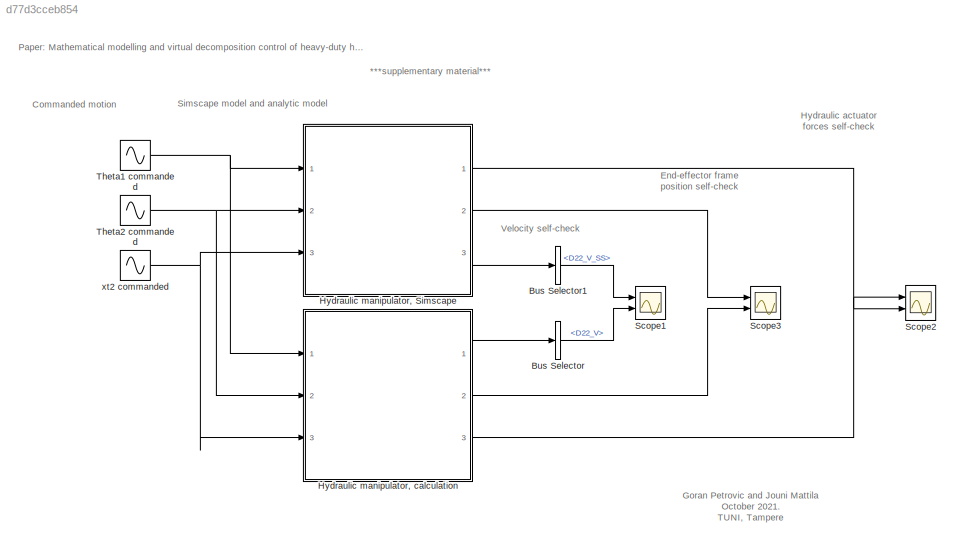
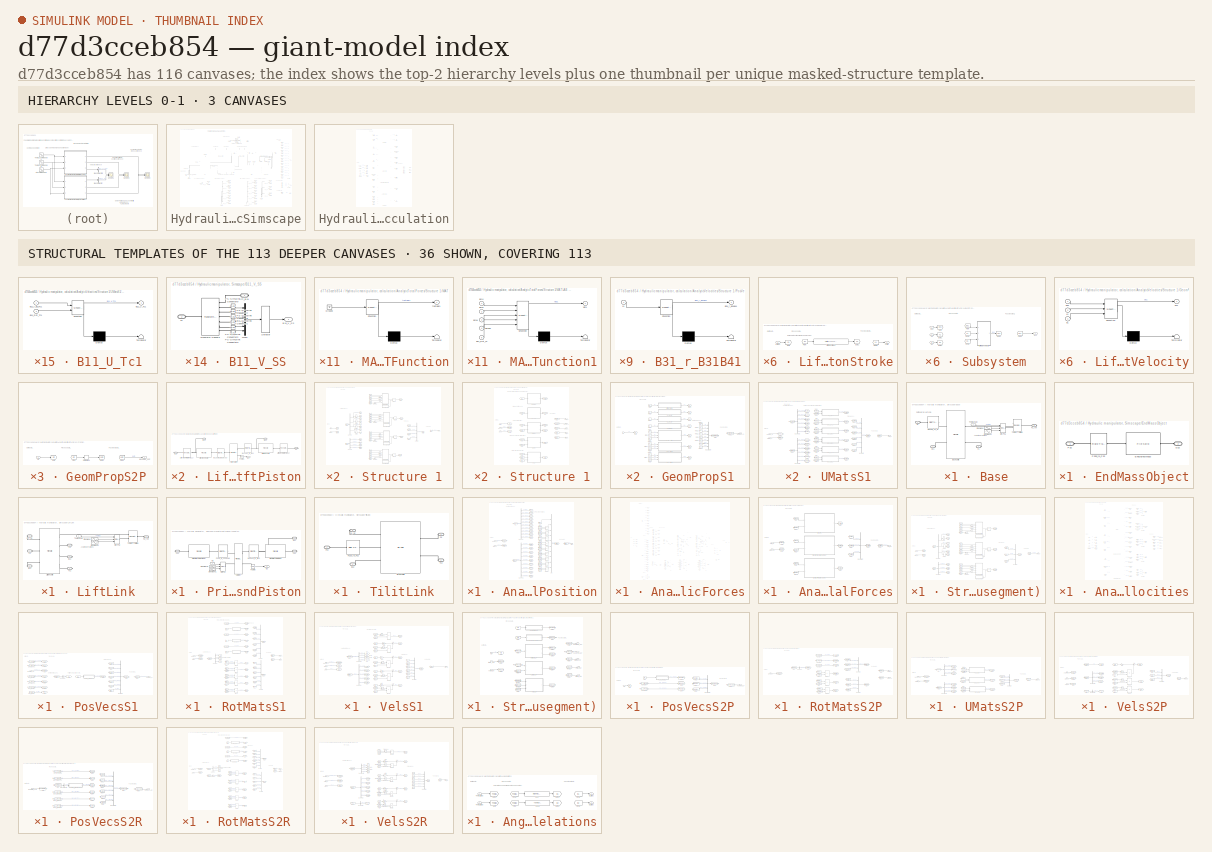
[diagram: thumbnail index - top-2 hierarchy levels (3 canvases) + 36 structural-template representatives of the remaining 113 canvases]
MODEL slx_d77d3cceb854
KIND model
CONFIG AbsTol = auto
CONFIG EnableMultiTasking = off
CONFIG FixedStep = 0.001
CONFIG MaxStep = 0.001
CONFIG MinStep = auto
CONFIG RelTol = 1e-7
CONFIG SampleTimeConstraint = Unconstrained
CONFIG SolverName = ode4
CONFIG StartTime = 0.0
CONFIG StopTime = 10
BLOCK [BusSelector] Bus Selector
  OutputSignals = Vels_S2P.D22_V
  Ports = [1, 1]
BLOCK [BusSelector] Bus Selector1
  OutputSignals = D22_V_SS
  Ports = [1, 1]
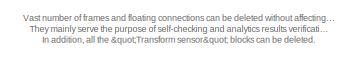
[diagram: Hydraulic manipulator, Simscape - part 1/6, top left region]
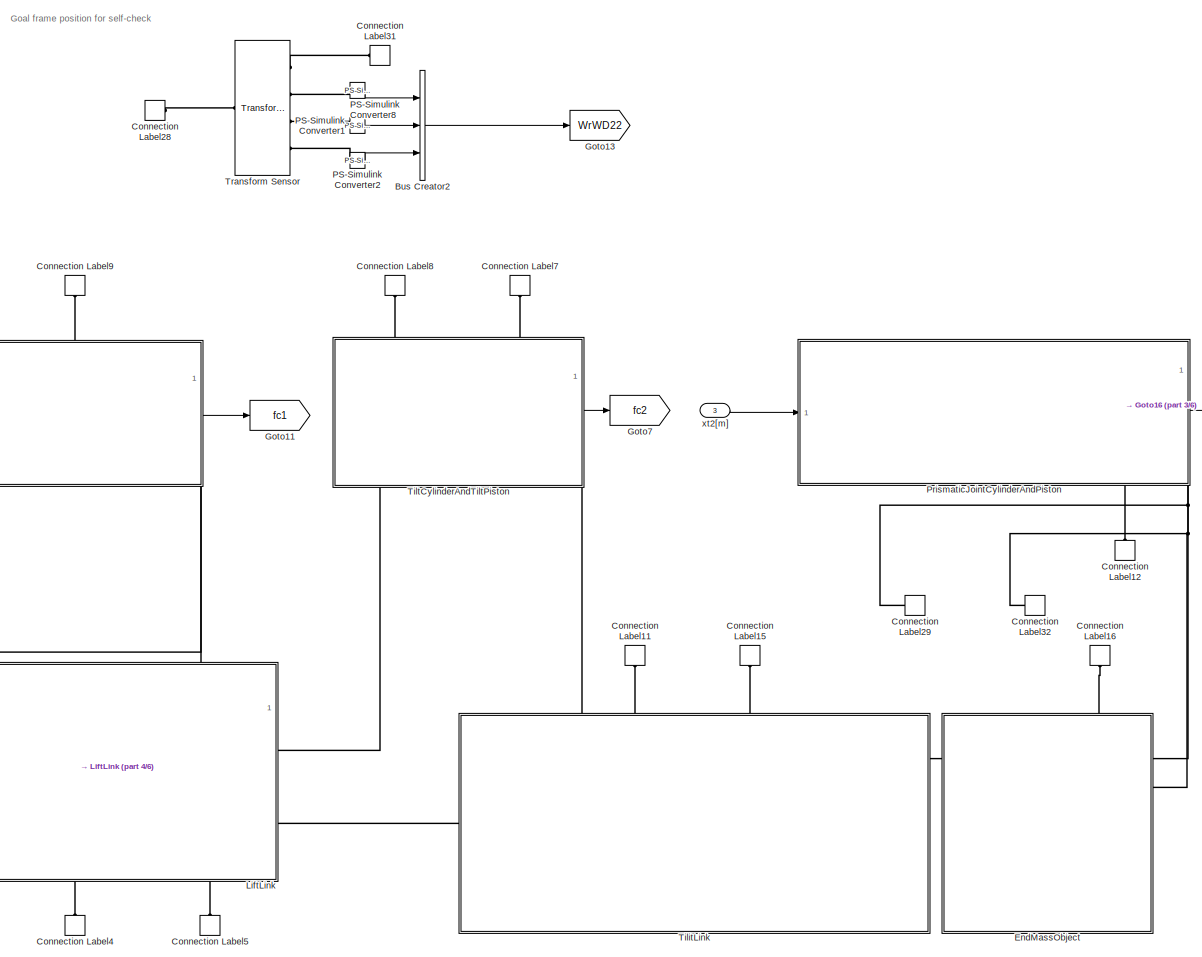
[diagram: Hydraulic manipulator, Simscape - part 2/6, central region]
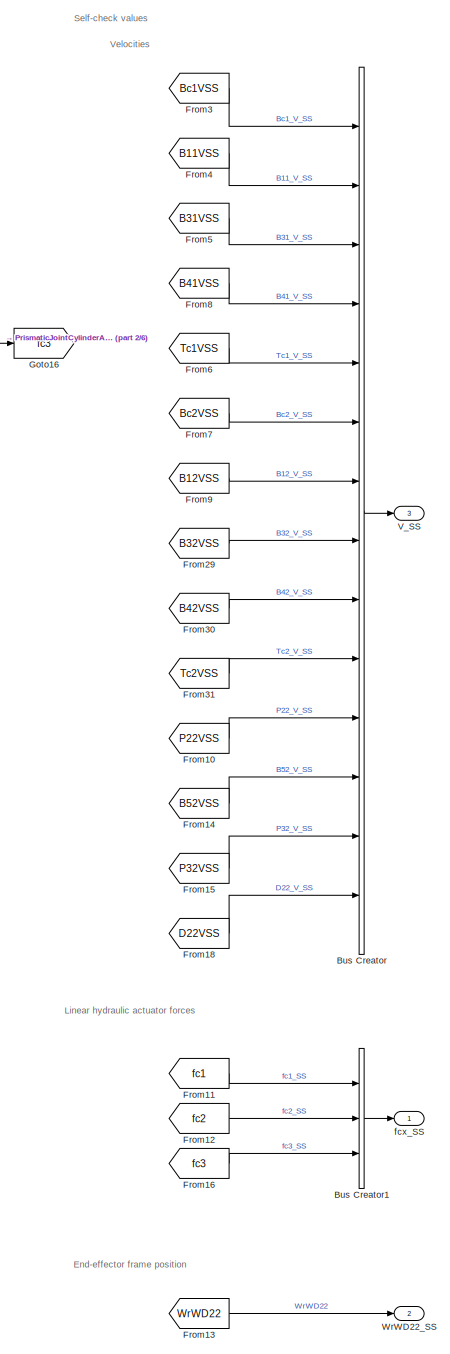
[diagram: Hydraulic manipulator, Simscape - part 3/6, middle right region]
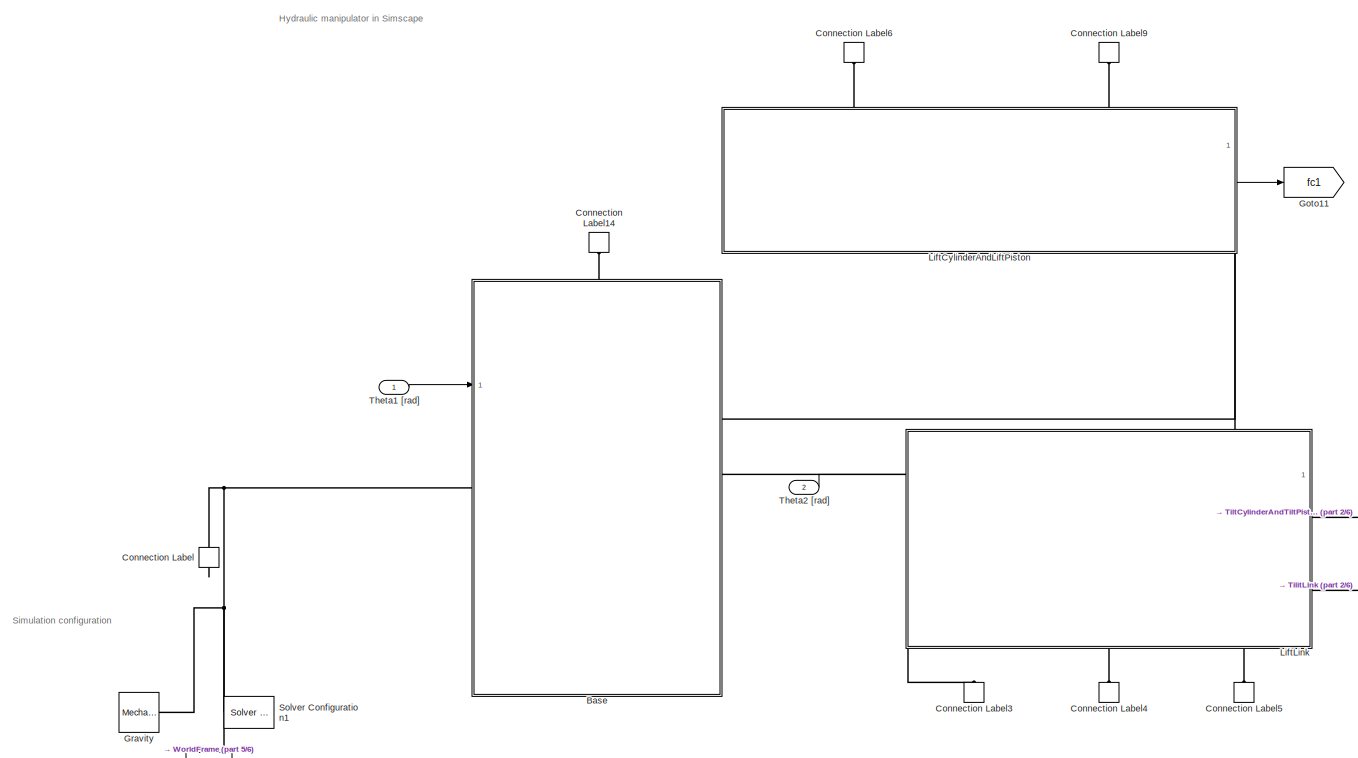
[diagram: Hydraulic manipulator, Simscape - part 4/6, middle left region]
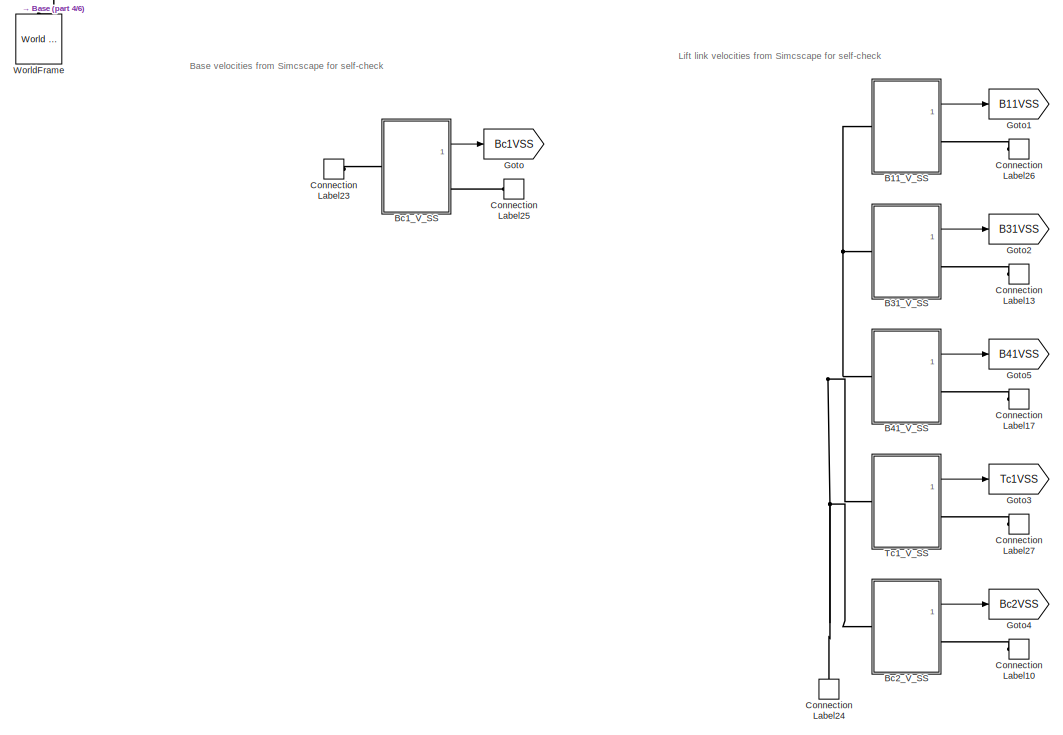
[diagram: Hydraulic manipulator, Simscape - part 5/6, bottom left region]
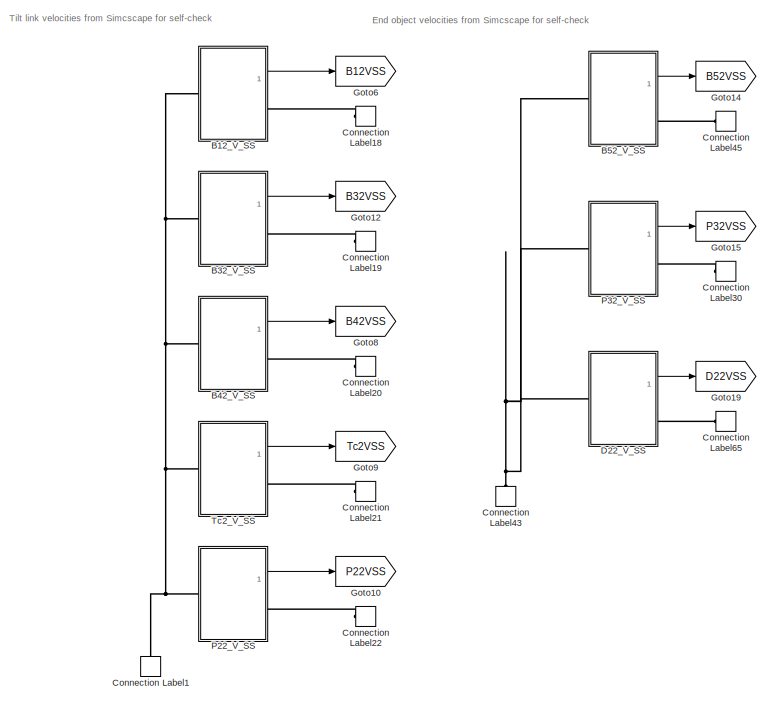
[diagram: Hydraulic manipulator, Simscape - part 6/6, bottom right region]
BLOCK [SubSystem] Hydraulic manipulator, Simscape
  Ports = [3, 3]
  RequestExecContextInheritance = off
BLOCK [SubSystem] Hydraulic manipulator, Simscape/B11_V_SS
  Ports = [0, 1, 0, 0, 0, 1, 1]
  RequestExecContextInheritance = off
BLOCK [Outport] Hydraulic manipulator, Simscape/B11_V_SS/B11_V_SS
BLOCK [PMIOPort] Hydraulic manipulator, Simscape/B11_V_SS/Lift_B11
  Side = Right
BLOCK [Mux] Hydraulic manipulator, Simscape/B11_V_SS/Mux3
  DisplayOption = bar
  Inputs = 6
  Ports = [6, 1]
BLOCK [Reference] Hydraulic manipulator, Simscape/B11_V_SS/PS-Simulink Converter1  REF=nesl_utility/PS-Simulink
Converter
  Ports = [0, 1, 0, 0, 0, 1]
  SourceBlock = nesl_utility/PS-Simulink\nConverter
  SourceProductBaseCode = SS
  SourceType = PS-Simulink\nConverter
BLOCK [Reference] Hydraulic manipulator, Simscape/B11_V_SS/PS-Simulink Converter2  REF=nesl_utility/PS-Simulink
Converter
  Ports = [0, 1, 0, 0, 0, 1]
  SourceBlock = nesl_utility/PS-Simulink\nConverter
  SourceProductBaseCode = SS
  SourceType = PS-Simulink\nConverter
BLOCK [Reference] Hydraulic manipulator, Simscape/B11_V_SS/PS-Simulink Converter3  REF=nesl_utility/PS-Simulink
Converter
  Ports = [0, 1, 0, 0, 0, 1]
  SourceBlock = nesl_utility/PS-Simulink\nConverter
  SourceProductBaseCode = SS
  SourceType = PS-Simulink\nConverter
BLOCK [Reference] Hydraulic manipulator, Simscape/B11_V_SS/PS-Simulink Converter7  REF=nesl_utility/PS-Simulink
Converter
  Ports = [0, 1, 0, 0, 0, 1]
  SourceBlock = nesl_utility/PS-Simulink\nConverter
  SourceProductBaseCode = SS
  SourceType = PS-Simulink\nConverter
BLOCK [Reference] Hydraulic manipulator, Simscape/B11_V_SS/PS-Simulink Converter8  REF=nesl_utility/PS-Simulink
Converter
  Ports = [0, 1, 0, 0, 0, 1]
  SourceBlock = nesl_utility/PS-Simulink\nConverter
  SourceProductBaseCode = SS
  SourceType = PS-Simulink\nConverter
BLOCK [Reference] Hydraulic manipulator, Simscape/B11_V_SS/PS-Simulink Converter9  REF=nesl_utility/PS-Simulink
Converter
  Ports = [0, 1, 0, 0, 0, 1]
  SourceBlock = nesl_utility/PS-Simulink\nConverter
  SourceProductBaseCode = SS
  SourceType = PS-Simulink\nConverter
BLOCK [Selector] Hydraulic manipulator, Simscape/B11_V_SS/Selector
  IndexOptions = Index vector (dialog)
  Indices = [4 5 6 1 2 3]
  InputPortWidth = 6
  OutputSizes = 1
  Ports = [1, 1]
BLOCK [Reference] Hydraulic manipulator, Simscape/B11_V_SS/Transform Sensor3  REF=sm_lib/Frames and
Transforms/Transform
Sensor
  Ports = [0, 0, 0, 0, 0, 1, 7]
  SourceBlock = sm_lib/Frames and\nTransforms/Transform\nSensor
  SourceProductBaseCode = MS
  SourceType = Transform\nSensor
BLOCK [PMIOPort] Hydraulic manipulator, Simscape/B11_V_SS/W
  Port = 2
  Side = Left
BLOCK [SubSystem] Hydraulic manipulator, Simscape/B12_V_SS
  Ports = [0, 1, 0, 0, 0, 1, 1]
  RequestExecContextInheritance = off
BLOCK [Outport] Hydraulic manipulator, Simscape/B12_V_SS/B12_V_SS
BLOCK [Mux] Hydraulic manipulator, Simscape/B12_V_SS/Mux3
  DisplayOption = bar
  Inputs = 6
  Ports = [6, 1]
BLOCK [Reference] Hydraulic manipulator, Simscape/B12_V_SS/PS-Simulink Converter1  REF=nesl_utility/PS-Simulink
Converter
  Ports = [0, 1, 0, 0, 0, 1]
  SourceBlock = nesl_utility/PS-Simulink\nConverter
  SourceProductBaseCode = SS
  SourceType = PS-Simulink\nConverter
BLOCK [Reference] Hydraulic manipulator, Simscape/B12_V_SS/PS-Simulink Converter2  REF=nesl_utility/PS-Simulink
Converter
  Ports = [0, 1, 0, 0, 0, 1]
  SourceBlock = nesl_utility/PS-Simulink\nConverter
  SourceProductBaseCode = SS
  SourceType = PS-Simulink\nConverter
BLOCK [Reference] Hydraulic manipulator, Simscape/B12_V_SS/PS-Simulink Converter3  REF=nesl_utility/PS-Simulink
Converter
  Ports = [0, 1, 0, 0, 0, 1]
  SourceBlock = nesl_utility/PS-Simulink\nConverter
  SourceProductBaseCode = SS
  SourceType = PS-Simulink\nConverter
BLOCK [Reference] Hydraulic manipulator, Simscape/B12_V_SS/PS-Simulink Converter7  REF=nesl_utility/PS-Simulink
Converter
  Ports = [0, 1, 0, 0, 0, 1]
  SourceBlock = nesl_utility/PS-Simulink\nConverter
  SourceProductBaseCode = SS
  SourceType = PS-Simulink\nConverter
BLOCK [Reference] Hydraulic manipulator, Simscape/B12_V_SS/PS-Simulink Converter8  REF=nesl_utility/PS-Simulink
Converter
  Ports = [0, 1, 0, 0, 0, 1]
  SourceBlock = nesl_utility/PS-Simulink\nConverter
  SourceProductBaseCode = SS
  SourceType = PS-Simulink\nConverter
BLOCK [Reference] Hydraulic manipulator, Simscape/B12_V_SS/PS-Simulink Converter9  REF=nesl_utility/PS-Simulink
Converter
  Ports = [0, 1, 0, 0, 0, 1]
  SourceBlock = nesl_utility/PS-Simulink\nConverter
  SourceProductBaseCode = SS
  SourceType = PS-Simulink\nConverter
BLOCK [Selector] Hydraulic manipulator, Simscape/B12_V_SS/Selector1
  IndexOptions = Index vector (dialog)
  Indices = [4 5 6 1 2 3]
  InputPortWidth = 6
  OutputSizes = 1
  Ports = [1, 1]
BLOCK [PMIOPort] Hydraulic manipulator, Simscape/B12_V_SS/Tilt_B12
  Side = Right
BLOCK [Reference] Hydraulic manipulator, Simscape/B12_V_SS/Transform Sensor1  REF=sm_lib/Frames and
Transforms/Transform
Sensor
  Ports = [0, 0, 0, 0, 0, 1, 7]
  SourceBlock = sm_lib/Frames and\nTransforms/Transform\nSensor
  SourceProductBaseCode = MS
  SourceType = Transform\nSensor
BLOCK [PMIOPort] Hydraulic manipulator, Simscape/B12_V_SS/W
  Port = 2
  Side = Left
BLOCK [SubSystem] Hydraulic manipulator, Simscape/B31_V_SS
  Ports = [0, 1, 0, 0, 0, 1, 1]
  RequestExecContextInheritance = off
BLOCK [Outport] Hydraulic manipulator, Simscape/B31_V_SS/B31_V_SS
BLOCK [PMIOPort] Hydraulic manipulator, Simscape/B31_V_SS/Lift_B31
  Side = Right
BLOCK [Mux] Hydraulic manipulator, Simscape/B31_V_SS/Mux3
  DisplayOption = bar
  Inputs = 6
  Ports = [6, 1]
BLOCK [Reference] Hydraulic manipulator, Simscape/B31_V_SS/PS-Simulink Converter1  REF=nesl_utility/PS-Simulink
Converter
  Ports = [0, 1, 0, 0, 0, 1]
  SourceBlock = nesl_utility/PS-Simulink\nConverter
  SourceProductBaseCode = SS
  SourceType = PS-Simulink\nConverter
BLOCK [Reference] Hydraulic manipulator, Simscape/B31_V_SS/PS-Simulink Converter2  REF=nesl_utility/PS-Simulink
Converter
  Ports = [0, 1, 0, 0, 0, 1]
  SourceBlock = nesl_utility/PS-Simulink\nConverter
  SourceProductBaseCode = SS
  SourceType = PS-Simulink\nConverter
BLOCK [Reference] Hydraulic manipulator, Simscape/B31_V_SS/PS-Simulink Converter3  REF=nesl_utility/PS-Simulink
Converter
  Ports = [0, 1, 0, 0, 0, 1]
  SourceBlock = nesl_utility/PS-Simulink\nConverter
  SourceProductBaseCode = SS
  SourceType = PS-Simulink\nConverter
BLOCK [Reference] Hydraulic manipulator, Simscape/B31_V_SS/PS-Simulink Converter7  REF=nesl_utility/PS-Simulink
Converter
  Ports = [0, 1, 0, 0, 0, 1]
  SourceBlock = nesl_utility/PS-Simulink\nConverter
  SourceProductBaseCode = SS
  SourceType = PS-Simulink\nConverter
BLOCK [Reference] Hydraulic manipulator, Simscape/B31_V_SS/PS-Simulink Converter8  REF=nesl_utility/PS-Simulink
Converter
  Ports = [0, 1, 0, 0, 0, 1]
  SourceBlock = nesl_utility/PS-Simulink\nConverter
  SourceProductBaseCode = SS
  SourceType = PS-Simulink\nConverter
BLOCK [Reference] Hydraulic manipulator, Simscape/B31_V_SS/PS-Simulink Converter9  REF=nesl_utility/PS-Simulink
Converter
  Ports = [0, 1, 0, 0, 0, 1]
  SourceBlock = nesl_utility/PS-Simulink\nConverter
  SourceProductBaseCode = SS
  SourceType = PS-Simulink\nConverter
BLOCK [Selector] Hydraulic manipulator, Simscape/B31_V_SS/Selector1
  IndexOptions = Index vector (dialog)
  Indices = [4 5 6 1 2 3]
  InputPortWidth = 6
  OutputSizes = 1
  Ports = [1, 1]
BLOCK [Reference] Hydraulic manipulator, Simscape/B31_V_SS/Transform Sensor1  REF=sm_lib/Frames and
Transforms/Transform
Sensor
  Ports = [0, 0, 0, 0, 0, 1, 7]
  SourceBlock = sm_lib/Frames and\nTransforms/Transform\nSensor
  SourceProductBaseCode = MS
  SourceType = Transform\nSensor
BLOCK [PMIOPort] Hydraulic manipulator, Simscape/B31_V_SS/W
  Port = 2
  Side = Left
BLOCK [SubSystem] Hydraulic manipulator, Simscape/B32_V_SS
  Ports = [0, 1, 0, 0, 0, 1, 1]
  RequestExecContextInheritance = off
BLOCK [Outport] Hydraulic manipulator, Simscape/B32_V_SS/B32_V_SS
BLOCK [Mux] Hydraulic manipulator, Simscape/B32_V_SS/Mux3
  DisplayOption = bar
  Inputs = 6
  Ports = [6, 1]
BLOCK [Reference] Hydraulic manipulator, Simscape/B32_V_SS/PS-Simulink Converter1  REF=nesl_utility/PS-Simulink
Converter
  Ports = [0, 1, 0, 0, 0, 1]
  SourceBlock = nesl_utility/PS-Simulink\nConverter
  SourceProductBaseCode = SS
  SourceType = PS-Simulink\nConverter
BLOCK [Reference] Hydraulic manipulator, Simscape/B32_V_SS/PS-Simulink Converter2  REF=nesl_utility/PS-Simulink
Converter
  Ports = [0, 1, 0, 0, 0, 1]
  SourceBlock = nesl_utility/PS-Simulink\nConverter
  SourceProductBaseCode = SS
  SourceType = PS-Simulink\nConverter
BLOCK [Reference] Hydraulic manipulator, Simscape/B32_V_SS/PS-Simulink Converter3  REF=nesl_utility/PS-Simulink
Converter
  Ports = [0, 1, 0, 0, 0, 1]
  SourceBlock = nesl_utility/PS-Simulink\nConverter
  SourceProductBaseCode = SS
  SourceType = PS-Simulink\nConverter
BLOCK [Reference] Hydraulic manipulator, Simscape/B32_V_SS/PS-Simulink Converter7  REF=nesl_utility/PS-Simulink
Converter
  Ports = [0, 1, 0, 0, 0, 1]
  SourceBlock = nesl_utility/PS-Simulink\nConverter
  SourceProductBaseCode = SS
  SourceType = PS-Simulink\nConverter
BLOCK [Reference] Hydraulic manipulator, Simscape/B32_V_SS/PS-Simulink Converter8  REF=nesl_utility/PS-Simulink
Converter
  Ports = [0, 1, 0, 0, 0, 1]
  SourceBlock = nesl_utility/PS-Simulink\nConverter
  SourceProductBaseCode = SS
  SourceType = PS-Simulink\nConverter
BLOCK [Reference] Hydraulic manipulator, Simscape/B32_V_SS/PS-Simulink Converter9  REF=nesl_utility/PS-Simulink
Converter
  Ports = [0, 1, 0, 0, 0, 1]
  SourceBlock = nesl_utility/PS-Simulink\nConverter
  SourceProductBaseCode = SS
  SourceType = PS-Simulink\nConverter
BLOCK [Selector] Hydraulic manipulator, Simscape/B32_V_SS/Selector1
  IndexOptions = Index vector (dialog)
  Indices = [4 5 6 1 2 3]
  InputPortWidth = 6
  OutputSizes = 1
  Ports = [1, 1]
BLOCK [PMIOPort] Hydraulic manipulator, Simscape/B32_V_SS/Tilt_B32
  Side = Right
BLOCK [Reference] Hydraulic manipulator, Simscape/B32_V_SS/Transform Sensor1  REF=sm_lib/Frames and
Transforms/Transform
Sensor
  Ports = [0, 0, 0, 0, 0, 1, 7]
  SourceBlock = sm_lib/Frames and\nTransforms/Transform\nSensor
  SourceProductBaseCode = MS
  SourceType = Transform\nSensor
BLOCK [PMIOPort] Hydraulic manipulator, Simscape/B32_V_SS/W
  Port = 2
  Side = Left
BLOCK [SubSystem] Hydraulic manipulator, Simscape/B41_V_SS
  Ports = [0, 1, 0, 0, 0, 1, 1]
  RequestExecContextInheritance = off
BLOCK [Outport] Hydraulic manipulator, Simscape/B41_V_SS/B41_V_SS
BLOCK [PMIOPort] Hydraulic manipulator, Simscape/B41_V_SS/Lift_B41
  Side = Right
BLOCK [Mux] Hydraulic manipulator, Simscape/B41_V_SS/Mux3
  DisplayOption = bar
  Inputs = 6
  Ports = [6, 1]
BLOCK [Reference] Hydraulic manipulator, Simscape/B41_V_SS/PS-Simulink Converter1  REF=nesl_utility/PS-Simulink
Converter
  Ports = [0, 1, 0, 0, 0, 1]
  SourceBlock = nesl_utility/PS-Simulink\nConverter
  SourceProductBaseCode = SS
  SourceType = PS-Simulink\nConverter
BLOCK [Reference] Hydraulic manipulator, Simscape/B41_V_SS/PS-Simulink Converter2  REF=nesl_utility/PS-Simulink
Converter
  Ports = [0, 1, 0, 0, 0, 1]
  SourceBlock = nesl_utility/PS-Simulink\nConverter
  SourceProductBaseCode = SS
  SourceType = PS-Simulink\nConverter
BLOCK [Reference] Hydraulic manipulator, Simscape/B41_V_SS/PS-Simulink Converter3  REF=nesl_utility/PS-Simulink
Converter
  Ports = [0, 1, 0, 0, 0, 1]
  SourceBlock = nesl_utility/PS-Simulink\nConverter
  SourceProductBaseCode = SS
  SourceType = PS-Simulink\nConverter
BLOCK [Reference] Hydraulic manipulator, Simscape/B41_V_SS/PS-Simulink Converter7  REF=nesl_utility/PS-Simulink
Converter
  Ports = [0, 1, 0, 0, 0, 1]
  SourceBlock = nesl_utility/PS-Simulink\nConverter
  SourceProductBaseCode = SS
  SourceType = PS-Simulink\nConverter
BLOCK [Reference] Hydraulic manipulator, Simscape/B41_V_SS/PS-Simulink Converter8  REF=nesl_utility/PS-Simulink
Converter
  Ports = [0, 1, 0, 0, 0, 1]
  SourceBlock = nesl_utility/PS-Simulink\nConverter
  SourceProductBaseCode = SS
  SourceType = PS-Simulink\nConverter
BLOCK [Reference] Hydraulic manipulator, Simscape/B41_V_SS/PS-Simulink Converter9  REF=nesl_utility/PS-Simulink
Converter
  Ports = [0, 1, 0, 0, 0, 1]
  SourceBlock = nesl_utility/PS-Simulink\nConverter
  SourceProductBaseCode = SS
  SourceType = PS-Simulink\nConverter
BLOCK [Selector] Hydraulic manipulator, Simscape/B41_V_SS/Selector1
  IndexOptions = Index vector (dialog)
  Indices = [4 5 6 1 2 3]
  InputPortWidth = 6
  OutputSizes = 1
  Ports = [1, 1]
BLOCK [Reference] Hydraulic manipulator, Simscape/B41_V_SS/Transform Sensor1  REF=sm_lib/Frames and
Transforms/Transform
Sensor
  Ports = [0, 0, 0, 0, 0, 1, 7]
  SourceBlock = sm_lib/Frames and\nTransforms/Transform\nSensor
  SourceProductBaseCode = MS
  SourceType = Transform\nSensor
BLOCK [PMIOPort] Hydraulic manipulator, Simscape/B41_V_SS/W
  Port = 2
  Side = Left
BLOCK [SubSystem] Hydraulic manipulator, Simscape/B42_V_SS
  Ports = [0, 1, 0, 0, 0, 1, 1]
  RequestExecContextInheritance = off
BLOCK [Outport] Hydraulic manipulator, Simscape/B42_V_SS/B42_V_SS
BLOCK [Mux] Hydraulic manipulator, Simscape/B42_V_SS/Mux3
  DisplayOption = bar
  Inputs = 6
  Ports = [6, 1]
BLOCK [Reference] Hydraulic manipulator, Simscape/B42_V_SS/PS-Simulink Converter1  REF=nesl_utility/PS-Simulink
Converter
  Ports = [0, 1, 0, 0, 0, 1]
  SourceBlock = nesl_utility/PS-Simulink\nConverter
  SourceProductBaseCode = SS
  SourceType = PS-Simulink\nConverter
BLOCK [Reference] Hydraulic manipulator, Simscape/B42_V_SS/PS-Simulink Converter2  REF=nesl_utility/PS-Simulink
Converter
  Ports = [0, 1, 0, 0, 0, 1]
  SourceBlock = nesl_utility/PS-Simulink\nConverter
  SourceProductBaseCode = SS
  SourceType = PS-Simulink\nConverter
BLOCK [Reference] Hydraulic manipulator, Simscape/B42_V_SS/PS-Simulink Converter3  REF=nesl_utility/PS-Simulink
Converter
  Ports = [0, 1, 0, 0, 0, 1]
  SourceBlock = nesl_utility/PS-Simulink\nConverter
  SourceProductBaseCode = SS
  SourceType = PS-Simulink\nConverter
BLOCK [Reference] Hydraulic manipulator, Simscape/B42_V_SS/PS-Simulink Converter7  REF=nesl_utility/PS-Simulink
Converter
  Ports = [0, 1, 0, 0, 0, 1]
  SourceBlock = nesl_utility/PS-Simulink\nConverter
  SourceProductBaseCode = SS
  SourceType = PS-Simulink\nConverter
BLOCK [Reference] Hydraulic manipulator, Simscape/B42_V_SS/PS-Simulink Converter8  REF=nesl_utility/PS-Simulink
Converter
  Ports = [0, 1, 0, 0, 0, 1]
  SourceBlock = nesl_utility/PS-Simulink\nConverter
  SourceProductBaseCode = SS
  SourceType = PS-Simulink\nConverter
BLOCK [Reference] Hydraulic manipulator, Simscape/B42_V_SS/PS-Simulink Converter9  REF=nesl_utility/PS-Simulink
Converter
  Ports = [0, 1, 0, 0, 0, 1]
  SourceBlock = nesl_utility/PS-Simulink\nConverter
  SourceProductBaseCode = SS
  SourceType = PS-Simulink\nConverter
BLOCK [Selector] Hydraulic manipulator, Simscape/B42_V_SS/Selector1
  IndexOptions = Index vector (dialog)
  Indices = [4 5 6 1 2 3]
  InputPortWidth = 6
  OutputSizes = 1
  Ports = [1, 1]
BLOCK [PMIOPort] Hydraulic manipulator, Simscape/B42_V_SS/Tilt_B42
  Side = Right
BLOCK [Reference] Hydraulic manipulator, Simscape/B42_V_SS/Transform Sensor1  REF=sm_lib/Frames and
Transforms/Transform
Sensor
  Ports = [0, 0, 0, 0, 0, 1, 7]
  SourceBlock = sm_lib/Frames and\nTransforms/Transform\nSensor
  SourceProductBaseCode = MS
  SourceType = Transform\nSensor
BLOCK [PMIOPort] Hydraulic manipulator, Simscape/B42_V_SS/W
  Port = 2
  Side = Left
BLOCK [SubSystem] Hydraulic manipulator, Simscape/B52_V_SS
  Ports = [0, 1, 0, 0, 0, 1, 1]
  RequestExecContextInheritance = off
BLOCK [Outport] Hydraulic manipulator, Simscape/B52_V_SS/B52_V_SS
BLOCK [Mux] Hydraulic manipulator, Simscape/B52_V_SS/Mux3
  DisplayOption = bar
  Inputs = 6
  Ports = [6, 1]
BLOCK [PMIOPort] Hydraulic manipulator, Simscape/B52_V_SS/Obj_B52
  Side = Right
BLOCK [Reference] Hydraulic manipulator, Simscape/B52_V_SS/PS-Simulink Converter1  REF=nesl_utility/PS-Simulink
Converter
  Ports = [0, 1, 0, 0, 0, 1]
  SourceBlock = nesl_utility/PS-Simulink\nConverter
  SourceProductBaseCode = SS
  SourceType = PS-Simulink\nConverter
BLOCK [Reference] Hydraulic manipulator, Simscape/B52_V_SS/PS-Simulink Converter2  REF=nesl_utility/PS-Simulink
Converter
  Ports = [0, 1, 0, 0, 0, 1]
  SourceBlock = nesl_utility/PS-Simulink\nConverter
  SourceProductBaseCode = SS
  SourceType = PS-Simulink\nConverter
BLOCK [Reference] Hydraulic manipulator, Simscape/B52_V_SS/PS-Simulink Converter3  REF=nesl_utility/PS-Simulink
Converter
  Ports = [0, 1, 0, 0, 0, 1]
  SourceBlock = nesl_utility/PS-Simulink\nConverter
  SourceProductBaseCode = SS
  SourceType = PS-Simulink\nConverter
BLOCK [Reference] Hydraulic manipulator, Simscape/B52_V_SS/PS-Simulink Converter7  REF=nesl_utility/PS-Simulink
Converter
  Ports = [0, 1, 0, 0, 0, 1]
  SourceBlock = nesl_utility/PS-Simulink\nConverter
  SourceProductBaseCode = SS
  SourceType = PS-Simulink\nConverter
BLOCK [Reference] Hydraulic manipulator, Simscape/B52_V_SS/PS-Simulink Converter8  REF=nesl_utility/PS-Simulink
Converter
  Ports = [0, 1, 0, 0, 0, 1]
  SourceBlock = nesl_utility/PS-Simulink\nConverter
  SourceProductBaseCode = SS
  SourceType = PS-Simulink\nConverter
BLOCK [Reference] Hydraulic manipulator, Simscape/B52_V_SS/PS-Simulink Converter9  REF=nesl_utility/PS-Simulink
Converter
  Ports = [0, 1, 0, 0, 0, 1]
  SourceBlock = nesl_utility/PS-Simulink\nConverter
  SourceProductBaseCode = SS
  SourceType = PS-Simulink\nConverter
BLOCK [Selector] Hydraulic manipulator, Simscape/B52_V_SS/Selector1
  IndexOptions = Index vector (dialog)
  Indices = [4 5 6 1 2 3]
  InputPortWidth = 6
  OutputSizes = 1
  Ports = [1, 1]
BLOCK [Reference] Hydraulic manipulator, Simscape/B52_V_SS/Transform Sensor1  REF=sm_lib/Frames and
Transforms/Transform
Sensor
  Ports = [0, 0, 0, 0, 0, 1, 7]
  SourceBlock = sm_lib/Frames and\nTransforms/Transform\nSensor
  SourceProductBaseCode = MS
  SourceType = Transform\nSensor
BLOCK [PMIOPort] Hydraulic manipulator, Simscape/B52_V_SS/W
  Port = 2
  Side = Left
BLOCK [SubSystem] Hydraulic manipulator, Simscape/Base
  PortSchema = {"entries":[{"content":{"sides":[{"content":{"connectorIds":["In1","LConn1"]},"type":"ConnectorPlacement.EquallySpacedRectSide","uuid":"74e7f3c6-cbce-4102-a556-47a2132f5eea"},{"content":{"connectorIds":["RConn1","RConn2"],"side":"RIGHT"},"type":"ConnectorPlacement.EquallySpacedRectSide","uuid":"9dc74751-c8ff-4cb6-874a-dcd58e00de96"},{"content":{"connectorIds":["LConn2"],"side":"TOP"},"type":"Conne...<+270ch>
  Ports = [1, 0, 0, 0, 0, 2, 2]
  RequestExecContextInheritance = off
BLOCK [Reference] Hydraulic manipulator, Simscape/Base/BaseR_To_W  REF=sm_lib/Frames and
Transforms/Rigid
Transform
  Ports = [0, 0, 0, 0, 0, 1, 1]
  SourceBlock = sm_lib/Frames and\nTransforms/Rigid\nTransform
  SourceProductBaseCode = MS
  SourceType = Rigid\nTransform
BLOCK [Reference] Hydraulic manipulator, Simscape/Base/BaseSolid  REF=sm_lib/Body Elements/File Solid
  Ports = [0, 0, 0, 0, 0, 2, 2]
  SourceBlock = sm_lib/Body Elements/File Solid
  SourceProductBaseCode = MS
  SourceType = File Solid
BLOCK [PMIOPort] Hydraulic manipulator, Simscape/Base/Bc1
  NameLocation = top
  Port = 2
  Side = Left
BLOCK [PMIOPort] Hydraulic manipulator, Simscape/Base/F1
  Port = 3
  Side = Right
BLOCK [PMIOPort] Hydraulic manipulator, Simscape/Base/F2_rot
  Port = 4
  Side = Right
BLOCK [Reference] Hydraulic manipulator, Simscape/Base/Sim-PS1  REF=nesl_utility/Simulink-PS
Converter
  Ports = [3, 0, 0, 0, 0, 0, 1]
  SourceBlock = nesl_utility/Simulink-PS\nConverter
  SourceProductBaseCode = SS
  SourceType = Simulink-PS\nConverter
BLOCK [Sin] Hydraulic manipulator, Simscape/Base/Sine Wave
  Amplitude = Th1A*Th1f
  Frequency = Th1f
  Phase = pi/2
  Ports = [0, 1]
  SampleTime = 0
BLOCK [Sin] Hydraulic manipulator, Simscape/Base/Sine Wave1
  Amplitude = Th1A*Th1f*Th1f
  Frequency = Th1f
  Phase = pi
  Ports = [0, 1]
  SampleTime = 0
BLOCK [Reference] Hydraulic manipulator, Simscape/Base/Theta1-rotation  REF=sm_lib/Joints/Revolute Joint
  Ports = [0, 0, 0, 0, 0, 2, 1]
  SourceBlock = sm_lib/Joints/Revolute Joint
  SourceProductBaseCode = MS
  SourceType = Revolute Joint
BLOCK [Inport] Hydraulic manipulator, Simscape/Base/Theta1[rad]
BLOCK [PMIOPort] Hydraulic manipulator, Simscape/Base/W
  Side = Left
BLOCK [SubSystem] Hydraulic manipulator, Simscape/Bc1_V_SS
  Ports = [0, 1, 0, 0, 0, 1, 1]
  RequestExecContextInheritance = off
BLOCK [Outport] Hydraulic manipulator, Simscape/Bc1_V_SS/Bc1_V_SS
BLOCK [Mux] Hydraulic manipulator, Simscape/Bc1_V_SS/Mux3
  DisplayOption = bar
  Inputs = 6
  Ports = [6, 1]
BLOCK [Reference] Hydraulic manipulator, Simscape/Bc1_V_SS/PS-Simulink Converter1  REF=nesl_utility/PS-Simulink
Converter
  Ports = [0, 1, 0, 0, 0, 1]
  SourceBlock = nesl_utility/PS-Simulink\nConverter
  SourceProductBaseCode = SS
  SourceType = PS-Simulink\nConverter
BLOCK [Reference] Hydraulic manipulator, Simscape/Bc1_V_SS/PS-Simulink Converter2  REF=nesl_utility/PS-Simulink
Converter
  Ports = [0, 1, 0, 0, 0, 1]
  SourceBlock = nesl_utility/PS-Simulink\nConverter
  SourceProductBaseCode = SS
  SourceType = PS-Simulink\nConverter
BLOCK [Reference] Hydraulic manipulator, Simscape/Bc1_V_SS/PS-Simulink Converter3  REF=nesl_utility/PS-Simulink
Converter
  Ports = [0, 1, 0, 0, 0, 1]
  SourceBlock = nesl_utility/PS-Simulink\nConverter
  SourceProductBaseCode = SS
  SourceType = PS-Simulink\nConverter
BLOCK [Reference] Hydraulic manipulator, Simscape/Bc1_V_SS/PS-Simulink Converter7  REF=nesl_utility/PS-Simulink
Converter
  Ports = [0, 1, 0, 0, 0, 1]
  SourceBlock = nesl_utility/PS-Simulink\nConverter
  SourceProductBaseCode = SS
  SourceType = PS-Simulink\nConverter
BLOCK [Reference] Hydraulic manipulator, Simscape/Bc1_V_SS/PS-Simulink Converter8  REF=nesl_utility/PS-Simulink
Converter
  Ports = [0, 1, 0, 0, 0, 1]
  SourceBlock = nesl_utility/PS-Simulink\nConverter
  SourceProductBaseCode = SS
  SourceType = PS-Simulink\nConverter
BLOCK [Reference] Hydraulic manipulator, Simscape/Bc1_V_SS/PS-Simulink Converter9  REF=nesl_utility/PS-Simulink
Converter
  Ports = [0, 1, 0, 0, 0, 1]
  SourceBlock = nesl_utility/PS-Simulink\nConverter
  SourceProductBaseCode = SS
  SourceType = PS-Simulink\nConverter
BLOCK [PMIOPort] Hydraulic manipulator, Simscape/Bc1_V_SS/Pillar_Bc1
  Side = Right
BLOCK [Selector] Hydraulic manipulator, Simscape/Bc1_V_SS/Selector
  IndexOptions = Index vector (dialog)
  Indices = [4 5 6 1 2 3]
  InputPortWidth = 6
  OutputSizes = 1
  Ports = [1, 1]
BLOCK [Reference] Hydraulic manipulator, Simscape/Bc1_V_SS/Transform Sensor3  REF=sm_lib/Frames and
Transforms/Transform
Sensor
  Ports = [0, 0, 0, 0, 0, 1, 7]
  SourceBlock = sm_lib/Frames and\nTransforms/Transform\nSensor
  SourceProductBaseCode = MS
  SourceType = Transform\nSensor
BLOCK [PMIOPort] Hydraulic manipulator, Simscape/Bc1_V_SS/W
  Port = 2
  Side = Left
BLOCK [SubSystem] Hydraulic manipulator, Simscape/Bc2_V_SS
  Ports = [0, 1, 0, 0, 0, 1, 1]
  RequestExecContextInheritance = off
BLOCK [Outport] Hydraulic manipulator, Simscape/Bc2_V_SS/Bc2_V_SS
BLOCK [PMIOPort] Hydraulic manipulator, Simscape/Bc2_V_SS/Lift_Bc2
  Side = Right
BLOCK [Mux] Hydraulic manipulator, Simscape/Bc2_V_SS/Mux3
  DisplayOption = bar
  Inputs = 6
  Ports = [6, 1]
BLOCK [Reference] Hydraulic manipulator, Simscape/Bc2_V_SS/PS-Simulink Converter1  REF=nesl_utility/PS-Simulink
Converter
  Ports = [0, 1, 0, 0, 0, 1]
  SourceBlock = nesl_utility/PS-Simulink\nConverter
  SourceProductBaseCode = SS
  SourceType = PS-Simulink\nConverter
BLOCK [Reference] Hydraulic manipulator, Simscape/Bc2_V_SS/PS-Simulink Converter2  REF=nesl_utility/PS-Simulink
Converter
  Ports = [0, 1, 0, 0, 0, 1]
  SourceBlock = nesl_utility/PS-Simulink\nConverter
  SourceProductBaseCode = SS
  SourceType = PS-Simulink\nConverter
BLOCK [Reference] Hydraulic manipulator, Simscape/Bc2_V_SS/PS-Simulink Converter3  REF=nesl_utility/PS-Simulink
Converter
  Ports = [0, 1, 0, 0, 0, 1]
  SourceBlock = nesl_utility/PS-Simulink\nConverter
  SourceProductBaseCode = SS
  SourceType = PS-Simulink\nConverter
BLOCK [Reference] Hydraulic manipulator, Simscape/Bc2_V_SS/PS-Simulink Converter7  REF=nesl_utility/PS-Simulink
Converter
  Ports = [0, 1, 0, 0, 0, 1]
  SourceBlock = nesl_utility/PS-Simulink\nConverter
  SourceProductBaseCode = SS
  SourceType = PS-Simulink\nConverter
BLOCK [Reference] Hydraulic manipulator, Simscape/Bc2_V_SS/PS-Simulink Converter8  REF=nesl_utility/PS-Simulink
Converter
  Ports = [0, 1, 0, 0, 0, 1]
  SourceBlock = nesl_utility/PS-Simulink\nConverter
  SourceProductBaseCode = SS
  SourceType = PS-Simulink\nConverter
BLOCK [Reference] Hydraulic manipulator, Simscape/Bc2_V_SS/PS-Simulink Converter9  REF=nesl_utility/PS-Simulink
Converter
  Ports = [0, 1, 0, 0, 0, 1]
  SourceBlock = nesl_utility/PS-Simulink\nConverter
  SourceProductBaseCode = SS
  SourceType = PS-Simulink\nConverter
BLOCK [Selector] Hydraulic manipulator, Simscape/Bc2_V_SS/Selector1
  IndexOptions = Index vector (dialog)
  Indices = [4 5 6 1 2 3]
  InputPortWidth = 6
  OutputSizes = 1
  Ports = [1, 1]
BLOCK [Reference] Hydraulic manipulator, Simscape/Bc2_V_SS/Transform Sensor1  REF=sm_lib/Frames and
Transforms/Transform
Sensor
  Ports = [0, 0, 0, 0, 0, 1, 7]
  SourceBlock = sm_lib/Frames and\nTransforms/Transform\nSensor
  SourceProductBaseCode = MS
  SourceType = Transform\nSensor
BLOCK [PMIOPort] Hydraulic manipulator, Simscape/Bc2_V_SS/W
  Port = 2
  Side = Left
BLOCK [BusCreator] Hydraulic manipulator, Simscape/Bus Creator
  DisplayOption = bar
  InheritFromInputs = on
  Inputs = Bc1_V_SS,B11_V_SS,B31_V_SS,B41_V_SS,Tc1_V_SS,Bc2_V_SS,B12_V_SS,B32_V_SS,B42_V_SS,Tc2_V_SS,P22_V_SS,B52_V_SS,P32_V_SS,D22_V_SS
  Ports = [14, 1]
BLOCK [BusCreator] Hydraulic manipulator, Simscape/Bus Creator1
  DisplayOption = bar
  InheritFromInputs = on
  Inputs = 3
  Ports = [3, 1]
BLOCK [BusCreator] Hydraulic manipulator, Simscape/Bus Creator2
  DisplayOption = bar
  InheritFromInputs = on
  Inputs = 3
  Ports = [3, 1]
BLOCK [ConnectionLabel] Hydraulic manipulator, Simscape/Connection Label
  Label = W
  NameLocation = right
  Ports = [0, 0, 0, 0, 0, 1]
BLOCK [ConnectionLabel] Hydraulic manipulator, Simscape/Connection Label1
  Label = W
  NameLocation = left
  Ports = [0, 0, 0, 0, 0, 1]
BLOCK [ConnectionLabel] Hydraulic manipulator, Simscape/Connection Label10
  Label = Bc2
  Ports = [0, 0, 0, 0, 0, 1]
BLOCK [ConnectionLabel] Hydraulic manipulator, Simscape/Connection Label11
  Label = B12
  NameLocation = right
  Ports = [0, 0, 0, 0, 0, 1]
BLOCK [ConnectionLabel] Hydraulic manipulator, Simscape/Connection Label12
  Label = B52
  NameLocation = left
  Ports = [0, 0, 0, 0, 0, 1]
BLOCK [ConnectionLabel] Hydraulic manipulator, Simscape/Connection Label13
  Label = B31
  Ports = [0, 0, 0, 0, 0, 1]
BLOCK [ConnectionLabel] Hydraulic manipulator, Simscape/Connection Label14
  Label = Bc1
  NameLocation = right
  Ports = [0, 0, 0, 0, 0, 1]
BLOCK [ConnectionLabel] Hydraulic manipulator, Simscape/Connection Label15
  Label = Tc2
  NameLocation = right
  Ports = [0, 0, 0, 0, 0, 1]
BLOCK [ConnectionLabel] Hydraulic manipulator, Simscape/Connection Label16
  Label = D22
  NameLocation = right
  Ports = [0, 0, 0, 0, 0, 1]
BLOCK [ConnectionLabel] Hydraulic manipulator, Simscape/Connection Label17
  Label = B41
  Ports = [0, 0, 0, 0, 0, 1]
BLOCK [ConnectionLabel] Hydraulic manipulator, Simscape/Connection Label18
  Label = B12
  Ports = [0, 0, 0, 0, 0, 1]
BLOCK [ConnectionLabel] Hydraulic manipulator, Simscape/Connection Label19
  Label = B32
  Ports = [0, 0, 0, 0, 0, 1]
BLOCK [ConnectionLabel] Hydraulic manipulator, Simscape/Connection Label20
  Label = B42
  Ports = [0, 0, 0, 0, 0, 1]
BLOCK [ConnectionLabel] Hydraulic manipulator, Simscape/Connection Label21
  Label = Tc2
  Ports = [0, 0, 0, 0, 0, 1]
BLOCK [ConnectionLabel] Hydraulic manipulator, Simscape/Connection Label22
  Label = P22
  Ports = [0, 0, 0, 0, 0, 1]
BLOCK [ConnectionLabel] Hydraulic manipulator, Simscape/Connection Label23
  Label = W
  NameLocation = top
  Ports = [0, 0, 0, 0, 0, 1]
BLOCK [ConnectionLabel] Hydraulic manipulator, Simscape/Connection Label24
  Label = W
  NameLocation = left
  Ports = [0, 0, 0, 0, 0, 1]
BLOCK [ConnectionLabel] Hydraulic manipulator, Simscape/Connection Label25
  Label = Bc1
  Ports = [0, 0, 0, 0, 0, 1]
BLOCK [ConnectionLabel] Hydraulic manipulator, Simscape/Connection Label26
  Label = B11
  Ports = [0, 0, 0, 0, 0, 1]
BLOCK [ConnectionLabel] Hydraulic manipulator, Simscape/Connection Label27
  Label = Tc1
  Ports = [0, 0, 0, 0, 0, 1]
BLOCK [ConnectionLabel] Hydraulic manipulator, Simscape/Connection Label28
  Label = W
  NameLocation = top
  Ports = [0, 0, 0, 0, 0, 1]
BLOCK [ConnectionLabel] Hydraulic manipulator, Simscape/Connection Label29
  Label = P22
  Ports = [0, 0, 0, 0, 0, 1]
BLOCK [ConnectionLabel] Hydraulic manipulator, Simscape/Connection Label3
  Label = Tc1
  NameLocation = left
  Ports = [0, 0, 0, 0, 0, 1]
BLOCK [ConnectionLabel] Hydraulic manipulator, Simscape/Connection Label30
  Label = P32
  Ports = [0, 0, 0, 0, 0, 1]
BLOCK [ConnectionLabel] Hydraulic manipulator, Simscape/Connection Label31
  Label = D22
  Ports = [0, 0, 0, 0, 0, 1]
BLOCK [ConnectionLabel] Hydraulic manipulator, Simscape/Connection Label32
  Label = P32
  Ports = [0, 0, 0, 0, 0, 1]
BLOCK [ConnectionLabel] Hydraulic manipulator, Simscape/Connection Label4
  Label = B11
  NameLocation = left
  Ports = [0, 0, 0, 0, 0, 1]
BLOCK [ConnectionLabel] Hydraulic manipulator, Simscape/Connection Label43
  Label = W
  NameLocation = left
  Ports = [0, 0, 0, 0, 0, 1]
BLOCK [ConnectionLabel] Hydraulic manipulator, Simscape/Connection Label45
  Label = B52
  Ports = [0, 0, 0, 0, 0, 1]
BLOCK [ConnectionLabel] Hydraulic manipulator, Simscape/Connection Label5
  Label = Bc2
  NameLocation = left
  Ports = [0, 0, 0, 0, 0, 1]
BLOCK [ConnectionLabel] Hydraulic manipulator, Simscape/Connection Label6
  Label = B31
  NameLocation = right
  Ports = [0, 0, 0, 0, 0, 1]
BLOCK [ConnectionLabel] Hydraulic manipulator, Simscape/Connection Label65
  Label = D22
  Ports = [0, 0, 0, 0, 0, 1]
BLOCK [ConnectionLabel] Hydraulic manipulator, Simscape/Connection Label7
  Label = B42
  NameLocation = right
  Ports = [0, 0, 0, 0, 0, 1]
BLOCK [ConnectionLabel] Hydraulic manipulator, Simscape/Connection Label8
  Label = B32
  NameLocation = right
  Ports = [0, 0, 0, 0, 0, 1]
BLOCK [ConnectionLabel] Hydraulic manipulator, Simscape/Connection Label9
  Label = B41
  NameLocation = right
  Ports = [0, 0, 0, 0, 0, 1]
BLOCK [SubSystem] Hydraulic manipulator, Simscape/D22_V_SS
  Ports = [0, 1, 0, 0, 0, 1, 1]
  RequestExecContextInheritance = off
BLOCK [Outport] Hydraulic manipulator, Simscape/D22_V_SS/D22_V_SS
BLOCK [Mux] Hydraulic manipulator, Simscape/D22_V_SS/Mux3
  DisplayOption = bar
  Inputs = 6
  Ports = [6, 1]
BLOCK [PMIOPort] Hydraulic manipulator, Simscape/D22_V_SS/Obj_D22
  Side = Right
BLOCK [Reference] Hydraulic manipulator, Simscape/D22_V_SS/PS-Simulink Converter1  REF=nesl_utility/PS-Simulink
Converter
  Ports = [0, 1, 0, 0, 0, 1]
  SourceBlock = nesl_utility/PS-Simulink\nConverter
  SourceProductBaseCode = SS
  SourceType = PS-Simulink\nConverter
BLOCK [Reference] Hydraulic manipulator, Simscape/D22_V_SS/PS-Simulink Converter2  REF=nesl_utility/PS-Simulink
Converter
  Ports = [0, 1, 0, 0, 0, 1]
  SourceBlock = nesl_utility/PS-Simulink\nConverter
  SourceProductBaseCode = SS
  SourceType = PS-Simulink\nConverter
BLOCK [Reference] Hydraulic manipulator, Simscape/D22_V_SS/PS-Simulink Converter3  REF=nesl_utility/PS-Simulink
Converter
  Ports = [0, 1, 0, 0, 0, 1]
  SourceBlock = nesl_utility/PS-Simulink\nConverter
  SourceProductBaseCode = SS
  SourceType = PS-Simulink\nConverter
BLOCK [Reference] Hydraulic manipulator, Simscape/D22_V_SS/PS-Simulink Converter7  REF=nesl_utility/PS-Simulink
Converter
  Ports = [0, 1, 0, 0, 0, 1]
  SourceBlock = nesl_utility/PS-Simulink\nConverter
  SourceProductBaseCode = SS
  SourceType = PS-Simulink\nConverter
BLOCK [Reference] Hydraulic manipulator, Simscape/D22_V_SS/PS-Simulink Converter8  REF=nesl_utility/PS-Simulink
Converter
  Ports = [0, 1, 0, 0, 0, 1]
  SourceBlock = nesl_utility/PS-Simulink\nConverter
  SourceProductBaseCode = SS
  SourceType = PS-Simulink\nConverter
BLOCK [Reference] Hydraulic manipulator, Simscape/D22_V_SS/PS-Simulink Converter9  REF=nesl_utility/PS-Simulink
Converter
  Ports = [0, 1, 0, 0, 0, 1]
  SourceBlock = nesl_utility/PS-Simulink\nConverter
  SourceProductBaseCode = SS
  SourceType = PS-Simulink\nConverter
BLOCK [Selector] Hydraulic manipulator, Simscape/D22_V_SS/Selector1
  IndexOptions = Index vector (dialog)
  Indices = [4 5 6 1 2 3]
  InputPortWidth = 6
  OutputSizes = 1
  Ports = [1, 1]
BLOCK [Reference] Hydraulic manipulator, Simscape/D22_V_SS/Transform Sensor1  REF=sm_lib/Frames and
Transforms/Transform
Sensor
  Ports = [0, 0, 0, 0, 0, 1, 7]
  SourceBlock = sm_lib/Frames and\nTransforms/Transform\nSensor
  SourceProductBaseCode = MS
  SourceType = Transform\nSensor
BLOCK [PMIOPort] Hydraulic manipulator, Simscape/D22_V_SS/W
  Port = 2
  Side = Left
BLOCK [SubSystem] Hydraulic manipulator, Simscape/EndMassObject
  PortSchema = {"entries":[{"content":{"sides":[{"content":{"connectorIds":[]},"type":"ConnectorPlacement.EquallySpacedRectSide","uuid":"c1652833-a888-40a4-a60e-17be9708feae"},{"content":{"connectorIds":[],"side":"RIGHT"},"type":"ConnectorPlacement.EquallySpacedRectSide","uuid":"55671429-adc4-418e-b6f5-c624f049c776"},{"content":{"connectorIds":["LConn1","LConn2"],"side":"TOP"},"type":"ConnectorPlacement.EquallyS...<+248ch>
  Ports = [0, 0, 0, 0, 0, 2]
  RequestExecContextInheritance = off
BLOCK [PMIOPort] Hydraulic manipulator, Simscape/EndMassObject/D22
  Port = 2
  Side = Left
BLOCK [Reference] Hydraulic manipulator, Simscape/EndMassObject/EndObjectMass  REF=sm_lib/Body Elements/File Solid
  Ports = [0, 0, 0, 0, 0, 1, 1]
  SourceBlock = sm_lib/Body Elements/File Solid
  SourceProductBaseCode = MS
  SourceType = File Solid
BLOCK [PMIOPort] Hydraulic manipulator, Simscape/EndMassObject/P32
  Side = Left
BLOCK [Reference] Hydraulic manipulator, Simscape/EndMassObject/P32p_to_P32  REF=sm_lib/Frames and
Transforms/Rigid
Transform
  Ports = [0, 0, 0, 0, 0, 1, 1]
  SourceBlock = sm_lib/Frames and\nTransforms/Rigid\nTransform
  SourceProductBaseCode = MS
  SourceType = Rigid\nTransform
BLOCK [From] Hydraulic manipulator, Simscape/From10
  GotoTag = P22VSS
BLOCK [From] Hydraulic manipulator, Simscape/From11
  GotoTag = fc1
BLOCK [From] Hydraulic manipulator, Simscape/From12
  GotoTag = fc2
BLOCK [From] Hydraulic manipulator, Simscape/From13
  GotoTag = WrWD22
BLOCK [From] Hydraulic manipulator, Simscape/From14
  GotoTag = B52VSS
BLOCK [From] Hydraulic manipulator, Simscape/From15
  GotoTag = P32VSS
BLOCK [From] Hydraulic manipulator, Simscape/From16
  GotoTag = fc3
BLOCK [From] Hydraulic manipulator, Simscape/From18
  GotoTag = D22VSS
BLOCK [From] Hydraulic manipulator, Simscape/From29
  GotoTag = B32VSS
BLOCK [From] Hydraulic manipulator, Simscape/From3
  GotoTag = Bc1VSS
BLOCK [From] Hydraulic manipulator, Simscape/From30
  GotoTag = B42VSS
BLOCK [From] Hydraulic manipulator, Simscape/From31
  GotoTag = Tc2VSS
BLOCK [From] Hydraulic manipulator, Simscape/From4
  GotoTag = B11VSS
BLOCK [From] Hydraulic manipulator, Simscape/From5
  GotoTag = B31VSS
BLOCK [From] Hydraulic manipulator, Simscape/From6
  GotoTag = Tc1VSS
BLOCK [From] Hydraulic manipulator, Simscape/From7
  GotoTag = Bc2VSS
BLOCK [From] Hydraulic manipulator, Simscape/From8
  GotoTag = B41VSS
BLOCK [From] Hydraulic manipulator, Simscape/From9
  GotoTag = B12VSS
BLOCK [Goto] Hydraulic manipulator, Simscape/Goto
  GotoTag = Bc1VSS
BLOCK [Goto] Hydraulic manipulator, Simscape/Goto1
  GotoTag = B11VSS
BLOCK [Goto] Hydraulic manipulator, Simscape/Goto10
  GotoTag = P22VSS
BLOCK [Goto] Hydraulic manipulator, Simscape/Goto11
  GotoTag = fc1
BLOCK [Goto] Hydraulic manipulator, Simscape/Goto12
  GotoTag = B32VSS
BLOCK [Goto] Hydraulic manipulator, Simscape/Goto13
  GotoTag = WrWD22
BLOCK [Goto] Hydraulic manipulator, Simscape/Goto14
  GotoTag = B52VSS
BLOCK [Goto] Hydraulic manipulator, Simscape/Goto15
  GotoTag = P32VSS
BLOCK [Goto] Hydraulic manipulator, Simscape/Goto16
  GotoTag = fc3
BLOCK [Goto] Hydraulic manipulator, Simscape/Goto19
  GotoTag = D22VSS
BLOCK [Goto] Hydraulic manipulator, Simscape/Goto2
  GotoTag = B31VSS
BLOCK [Goto] Hydraulic manipulator, Simscape/Goto3
  GotoTag = Tc1VSS
BLOCK [Goto] Hydraulic manipulator, Simscape/Goto4
  GotoTag = Bc2VSS
BLOCK [Goto] Hydraulic manipulator, Simscape/Goto5
  GotoTag = B41VSS
BLOCK [Goto] Hydraulic manipulator, Simscape/Goto6
  GotoTag = B12VSS
BLOCK [Goto] Hydraulic manipulator, Simscape/Goto7
  GotoTag = fc2
BLOCK [Goto] Hydraulic manipulator, Simscape/Goto8
  GotoTag = B42VSS
BLOCK [Goto] Hydraulic manipulator, Simscape/Goto9
  GotoTag = Tc2VSS
BLOCK [Reference] Hydraulic manipulator, Simscape/Gravity  REF=sm_lib/Utilities/Mechanism
Configuration
  NameLocation = top
  Ports = [0, 0, 0, 0, 0, 0, 1]
  SourceBlock = sm_lib/Utilities/Mechanism\nConfiguration
  SourceProductBaseCode = MS
  SourceType = Mechanism\nConfiguration
BLOCK [SubSystem] Hydraulic manipulator, Simscape/LiftCylinderAndLiftPiston
  PortSchema = {"entries":[{"content":{"sides":[{"content":{"connectorIds":[]},"type":"ConnectorPlacement.EquallySpacedRectSide","uuid":"a609877c-275e-4024-96c6-67831631fbf9"},{"content":{"connectorIds":["Out1"],"side":"RIGHT"},"type":"ConnectorPlacement.EquallySpacedRectSide","uuid":"b747ace3-04d7-42f4-87a7-c62fd6093e0d"},{"content":{"connectorIds":["LConn1","LConn2"],"side":"TOP"},"type":"ConnectorPlacement.Eq...<+415ch>
  Ports = [0, 1, 0, 0, 0, 2, 2]
  RequestExecContextInheritance = off
BLOCK [PMIOPort] Hydraulic manipulator, Simscape/LiftCylinderAndLiftPiston/B31
  Side = Left
BLOCK [Reference] Hydraulic manipulator, Simscape/LiftCylinderAndLiftPiston/B31p_to_B31pAux  REF=sm_lib/Frames and
Transforms/Rigid
Transform
  Ports = [0, 0, 0, 0, 0, 1, 1]
  SourceBlock = sm_lib/Frames and\nTransforms/Rigid\nTransform
  SourceProductBaseCode = MS
  SourceType = Rigid\nTransform
BLOCK [PMIOPort] Hydraulic manipulator, Simscape/LiftCylinderAndLiftPiston/B41
  Port = 2
  Side = Left
BLOCK [Reference] Hydraulic manipulator, Simscape/LiftCylinderAndLiftPiston/B41Aux_to_B41  REF=sm_lib/Frames and
Transforms/Rigid
Transform
  Ports = [0, 0, 0, 0, 0, 1, 1]
  SourceBlock = sm_lib/Frames and\nTransforms/Rigid\nTransform
  SourceProductBaseCode = MS
  SourceType = Rigid\nTransform
BLOCK [PMIOPort] Hydraulic manipulator, Simscape/LiftCylinderAndLiftPiston/F1
  Port = 3
  Side = Right
BLOCK [PMIOPort] Hydraulic manipulator, Simscape/LiftCylinderAndLiftPiston/F3
  Port = 4
  Side = Right
BLOCK [Reference] Hydraulic manipulator, Simscape/LiftCylinderAndLiftPiston/Lift cylinder rotation (q11)  REF=sm_lib/Joints/Revolute Joint
  Ports = [0, 0, 0, 0, 0, 1, 1]
  SourceBlock = sm_lib/Joints/Revolute Joint
  SourceProductBaseCode = MS
  SourceType = Revolute Joint
BLOCK [Reference] Hydraulic manipulator, Simscape/LiftCylinderAndLiftPiston/Lift piston rotation (q12)  REF=sm_lib/Joints/Revolute Joint
  Ports = [0, 0, 0, 0, 0, 1, 1]
  SourceBlock = sm_lib/Joints/Revolute Joint
  SourceProductBaseCode = MS
  SourceType = Revolute Joint
BLOCK [Reference] Hydraulic manipulator, Simscape/LiftCylinderAndLiftPiston/LiftCylinderSolid  REF=sm_lib/Body Elements/File Solid
  Ports = [0, 0, 0, 0, 0, 1, 1]
  SourceBlock = sm_lib/Body Elements/File Solid
  SourceProductBaseCode = MS
  SourceType = File Solid
BLOCK [Reference] Hydraulic manipulator, Simscape/LiftCylinderAndLiftPiston/LiftPistonSolid  REF=sm_lib/Body Elements/File Solid
  Ports = [0, 0, 0, 0, 0, 1, 1]
  SourceBlock = sm_lib/Body Elements/File Solid
  SourceProductBaseCode = MS
  SourceType = File Solid
BLOCK [Reference] Hydraulic manipulator, Simscape/LiftCylinderAndLiftPiston/PS-Sim1  REF=nesl_utility/PS-Simulink
Converter
  Ports = [0, 1, 0, 0, 0, 1]
  SourceBlock = nesl_utility/PS-Simulink\nConverter
  SourceProductBaseCode = SS
  SourceType = PS-Simulink\nConverter
BLOCK [Outport] Hydraulic manipulator, Simscape/LiftCylinderAndLiftPiston/fc1
BLOCK [Reference] Hydraulic manipulator, Simscape/LiftCylinderAndLiftPiston/x1-translation  REF=sm_lib/Joints/Prismatic
Joint
  Ports = [0, 0, 0, 0, 0, 1, 2]
  SourceBlock = sm_lib/Joints/Prismatic\nJoint
  SourceProductBaseCode = MS
  SourceType = Prismatic\nJoint
BLOCK [SubSystem] Hydraulic manipulator, Simscape/LiftLink
  NameLocation = right
  PortSchema = {"entries":[{"content":{"sides":[{"content":{"connectorIds":["LConn1","LConn2"]},"type":"ConnectorPlacement.EquallySpacedRectSide","uuid":"50668ed3-3246-41c6-a320-c5b34ebd86b6"},{"content":{"connectorIds":["In1","RConn1"],"side":"RIGHT"},"type":"ConnectorPlacement.EquallySpacedRectSide","uuid":"d76ddc23-e4dc-4bdf-9e15-3eadac6cf1e2"},{"content":{"connectorIds":["LConn3"],"side":"TOP"},"type":"Conne...<+440ch>
  Ports = [1, 0, 0, 0, 0, 3, 4]
  RequestExecContextInheritance = off
BLOCK [PMIOPort] Hydraulic manipulator, Simscape/LiftLink/B11
  Port = 6
  Side = Right
BLOCK [PMIOPort] Hydraulic manipulator, Simscape/LiftLink/Bc2
  Port = 5
  Side = Right
BLOCK [PMIOPort] Hydraulic manipulator, Simscape/LiftLink/F2_rot
  Port = 4
  Side = Right
BLOCK [PMIOPort] Hydraulic manipulator, Simscape/LiftLink/F3
  Port = 3
  Side = Left
BLOCK [PMIOPort] Hydraulic manipulator, Simscape/LiftLink/F4
  Side = Left
BLOCK [PMIOPort] Hydraulic manipulator, Simscape/LiftLink/F5_rot
  Port = 2
  Side = Left
BLOCK [Reference] Hydraulic manipulator, Simscape/LiftLink/LiftLinkSolid  REF=sm_lib/Body Elements/File Solid
  Ports = [0, 0, 0, 0, 0, 4, 3]
  SourceBlock = sm_lib/Body Elements/File Solid
  SourceProductBaseCode = MS
  SourceType = File Solid
BLOCK [Reference] Hydraulic manipulator, Simscape/LiftLink/Sim-PS2  REF=nesl_utility/Simulink-PS
Converter
  Ports = [3, 0, 0, 0, 0, 0, 1]
  SourceBlock = nesl_utility/Simulink-PS\nConverter
  SourceProductBaseCode = SS
  SourceType = Simulink-PS\nConverter
BLOCK [Sin] Hydraulic manipulator, Simscape/LiftLink/Sine Wave
  Amplitude = Th2A*Th2f
  Frequency = Th2f
  Phase = pi/2
  Ports = [0, 1]
  SampleTime = 0
BLOCK [Sin] Hydraulic manipulator, Simscape/LiftLink/Sine Wave1
  Amplitude = Th2A*Th2f*Th2f
  Frequency = Th2f
  Phase = pi
  Ports = [0, 1]
  SampleTime = 0
BLOCK [PMIOPort] Hydraulic manipulator, Simscape/LiftLink/Tc1
  Port = 7
  Side = Right
BLOCK [Reference] Hydraulic manipulator, Simscape/LiftLink/Theta2-rotation  REF=sm_lib/Joints/Revolute Joint
  Ports = [0, 0, 0, 0, 0, 2, 1]
  SourceBlock = sm_lib/Joints/Revolute Joint
  SourceProductBaseCode = MS
  SourceType = Revolute Joint
BLOCK [Inport] Hydraulic manipulator, Simscape/LiftLink/Theta2[rad]
BLOCK [SubSystem] Hydraulic manipulator, Simscape/P22_V_SS
  Ports = [0, 1, 0, 0, 0, 1, 1]
  RequestExecContextInheritance = off
BLOCK [Mux] Hydraulic manipulator, Simscape/P22_V_SS/Mux3
  DisplayOption = bar
  Inputs = 6
  Ports = [6, 1]
BLOCK [Outport] Hydraulic manipulator, Simscape/P22_V_SS/P22_V_SS
BLOCK [Reference] Hydraulic manipulator, Simscape/P22_V_SS/PS-Simulink Converter1  REF=nesl_utility/PS-Simulink
Converter
  Ports = [0, 1, 0, 0, 0, 1]
  SourceBlock = nesl_utility/PS-Simulink\nConverter
  SourceProductBaseCode = SS
  SourceType = PS-Simulink\nConverter
BLOCK [Reference] Hydraulic manipulator, Simscape/P22_V_SS/PS-Simulink Converter2  REF=nesl_utility/PS-Simulink
Converter
  Ports = [0, 1, 0, 0, 0, 1]
  SourceBlock = nesl_utility/PS-Simulink\nConverter
  SourceProductBaseCode = SS
  SourceType = PS-Simulink\nConverter
BLOCK [Reference] Hydraulic manipulator, Simscape/P22_V_SS/PS-Simulink Converter3  REF=nesl_utility/PS-Simulink
Converter
  Ports = [0, 1, 0, 0, 0, 1]
  SourceBlock = nesl_utility/PS-Simulink\nConverter
  SourceProductBaseCode = SS
  SourceType = PS-Simulink\nConverter
BLOCK [Reference] Hydraulic manipulator, Simscape/P22_V_SS/PS-Simulink Converter7  REF=nesl_utility/PS-Simulink
Converter
  Ports = [0, 1, 0, 0, 0, 1]
  SourceBlock = nesl_utility/PS-Simulink\nConverter
  SourceProductBaseCode = SS
  SourceType = PS-Simulink\nConverter
BLOCK [Reference] Hydraulic manipulator, Simscape/P22_V_SS/PS-Simulink Converter8  REF=nesl_utility/PS-Simulink
Converter
  Ports = [0, 1, 0, 0, 0, 1]
  SourceBlock = nesl_utility/PS-Simulink\nConverter
  SourceProductBaseCode = SS
  SourceType = PS-Simulink\nConverter
BLOCK [Reference] Hydraulic manipulator, Simscape/P22_V_SS/PS-Simulink Converter9  REF=nesl_utility/PS-Simulink
Converter
  Ports = [0, 1, 0, 0, 0, 1]
  SourceBlock = nesl_utility/PS-Simulink\nConverter
  SourceProductBaseCode = SS
  SourceType = PS-Simulink\nConverter
BLOCK [Selector] Hydraulic manipulator, Simscape/P22_V_SS/Selector1
  IndexOptions = Index vector (dialog)
  Indices = [4 5 6 1 2 3]
  InputPortWidth = 6
  OutputSizes = 1
  Ports = [1, 1]
BLOCK [PMIOPort] Hydraulic manipulator, Simscape/P22_V_SS/Tilt_P22
  Side = Right
BLOCK [Reference] Hydraulic manipulator, Simscape/P22_V_SS/Transform Sensor1  REF=sm_lib/Frames and
Transforms/Transform
Sensor
  Ports = [0, 0, 0, 0, 0, 1, 7]
  SourceBlock = sm_lib/Frames and\nTransforms/Transform\nSensor
  SourceProductBaseCode = MS
  SourceType = Transform\nSensor
BLOCK [PMIOPort] Hydraulic manipulator, Simscape/P22_V_SS/W
  Port = 2
  Side = Left
BLOCK [SubSystem] Hydraulic manipulator, Simscape/P32_V_SS
  Ports = [0, 1, 0, 0, 0, 1, 1]
  RequestExecContextInheritance = off
BLOCK [Mux] Hydraulic manipulator, Simscape/P32_V_SS/Mux3
  DisplayOption = bar
  Inputs = 6
  Ports = [6, 1]
BLOCK [PMIOPort] Hydraulic manipulator, Simscape/P32_V_SS/Obj_P32
  Side = Right
BLOCK [Outport] Hydraulic manipulator, Simscape/P32_V_SS/P32_V_SS
BLOCK [Reference] Hydraulic manipulator, Simscape/P32_V_SS/PS-Simulink Converter1  REF=nesl_utility/PS-Simulink
Converter
  Ports = [0, 1, 0, 0, 0, 1]
  SourceBlock = nesl_utility/PS-Simulink\nConverter
  SourceProductBaseCode = SS
  SourceType = PS-Simulink\nConverter
BLOCK [Reference] Hydraulic manipulator, Simscape/P32_V_SS/PS-Simulink Converter2  REF=nesl_utility/PS-Simulink
Converter
  Ports = [0, 1, 0, 0, 0, 1]
  SourceBlock = nesl_utility/PS-Simulink\nConverter
  SourceProductBaseCode = SS
  SourceType = PS-Simulink\nConverter
BLOCK [Reference] Hydraulic manipulator, Simscape/P32_V_SS/PS-Simulink Converter3  REF=nesl_utility/PS-Simulink
Converter
  Ports = [0, 1, 0, 0, 0, 1]
  SourceBlock = nesl_utility/PS-Simulink\nConverter
  SourceProductBaseCode = SS
  SourceType = PS-Simulink\nConverter
BLOCK [Reference] Hydraulic manipulator, Simscape/P32_V_SS/PS-Simulink Converter7  REF=nesl_utility/PS-Simulink
Converter
  Ports = [0, 1, 0, 0, 0, 1]
  SourceBlock = nesl_utility/PS-Simulink\nConverter
  SourceProductBaseCode = SS
  SourceType = PS-Simulink\nConverter
BLOCK [Reference] Hydraulic manipulator, Simscape/P32_V_SS/PS-Simulink Converter8  REF=nesl_utility/PS-Simulink
Converter
  Ports = [0, 1, 0, 0, 0, 1]
  SourceBlock = nesl_utility/PS-Simulink\nConverter
  SourceProductBaseCode = SS
  SourceType = PS-Simulink\nConverter
BLOCK [Reference] Hydraulic manipulator, Simscape/P32_V_SS/PS-Simulink Converter9  REF=nesl_utility/PS-Simulink
Converter
  Ports = [0, 1, 0, 0, 0, 1]
  SourceBlock = nesl_utility/PS-Simulink\nConverter
  SourceProductBaseCode = SS
  SourceType = PS-Simulink\nConverter
BLOCK [Selector] Hydraulic manipulator, Simscape/P32_V_SS/Selector1
  IndexOptions = Index vector (dialog)
  Indices = [4 5 6 1 2 3]
  InputPortWidth = 6
  OutputSizes = 1
  Ports = [1, 1]
BLOCK [Reference] Hydraulic manipulator, Simscape/P32_V_SS/Transform Sensor1  REF=sm_lib/Frames and
Transforms/Transform
Sensor
  Ports = [0, 0, 0, 0, 0, 1, 7]
  SourceBlock = sm_lib/Frames and\nTransforms/Transform\nSensor
  SourceProductBaseCode = MS
  SourceType = Transform\nSensor
BLOCK [PMIOPort] Hydraulic manipulator, Simscape/P32_V_SS/W
  Port = 2
  Side = Left
BLOCK [Reference] Hydraulic manipulator, Simscape/PS-Simulink Converter1  REF=nesl_utility/PS-Simulink
Converter
  Ports = [0, 1, 0, 0, 0, 1]
  SourceBlock = nesl_utility/PS-Simulink\nConverter
  SourceProductBaseCode = SS
  SourceType = PS-Simulink\nConverter
BLOCK [Reference] Hydraulic manipulator, Simscape/PS-Simulink Converter2  REF=nesl_utility/PS-Simulink
Converter
  Ports = [0, 1, 0, 0, 0, 1]
  SourceBlock = nesl_utility/PS-Simulink\nConverter
  SourceProductBaseCode = SS
  SourceType = PS-Simulink\nConverter
BLOCK [Reference] Hydraulic manipulator, Simscape/PS-Simulink Converter8  REF=nesl_utility/PS-Simulink
Converter
  Ports = [0, 1, 0, 0, 0, 1]
  SourceBlock = nesl_utility/PS-Simulink\nConverter
  SourceProductBaseCode = SS
  SourceType = PS-Simulink\nConverter
BLOCK [SubSystem] Hydraulic manipulator, Simscape/PrismaticJointCylinderAndPiston
  NameLocation = top
  PortSchema = {"entries":[{"content":{"sides":[{"content":{"connectorIds":["In1"]},"type":"ConnectorPlacement.EquallySpacedRectSide","uuid":"002196eb-b81c-4ad4-9df1-33c4ef5d5c77"},{"content":{"connectorIds":["Out1"],"side":"RIGHT"},"type":"ConnectorPlacement.EquallySpacedRectSide","uuid":"e0d61efe-ea5d-4756-bea5-1d107b09975a"},{"content":{"connectorIds":[],"side":"TOP"},"type":"ConnectorPlacement.EquallySpacedR...<+412ch>
  Ports = [1, 1, 0, 0, 0, 0, 3]
  RequestExecContextInheritance = off
BLOCK [PMIOPort] Hydraulic manipulator, Simscape/PrismaticJointCylinderAndPiston/B52
  Port = 3
  Side = Right
BLOCK [Reference] Hydraulic manipulator, Simscape/PrismaticJointCylinderAndPiston/B52Aux_to_B52  REF=sm_lib/Frames and
Transforms/Rigid
Transform
  Ports = [0, 0, 0, 0, 0, 1, 1]
  SourceBlock = sm_lib/Frames and\nTransforms/Rigid\nTransform
  SourceProductBaseCode = MS
  SourceType = Rigid\nTransform
BLOCK [PMIOPort] Hydraulic manipulator, Simscape/PrismaticJointCylinderAndPiston/P22
  Side = Right
BLOCK [Reference] Hydraulic manipulator, Simscape/PrismaticJointCylinderAndPiston/P22p_to_P22pAux  REF=sm_lib/Frames and
Transforms/Rigid
Transform
  Ports = [0, 0, 0, 0, 0, 1, 1]
  SourceBlock = sm_lib/Frames and\nTransforms/Rigid\nTransform
  SourceProductBaseCode = MS
  SourceType = Rigid\nTransform
BLOCK [PMIOPort] Hydraulic manipulator, Simscape/PrismaticJointCylinderAndPiston/P32
  Port = 2
  Side = Right
BLOCK [Reference] Hydraulic manipulator, Simscape/PrismaticJointCylinderAndPiston/PS-Sim3  REF=nesl_utility/PS-Simulink
Converter
  Ports = [0, 1, 0, 0, 0, 1]
  SourceBlock = nesl_utility/PS-Simulink\nConverter
  SourceProductBaseCode = SS
  SourceType = PS-Simulink\nConverter
BLOCK [Reference] Hydraulic manipulator, Simscape/PrismaticJointCylinderAndPiston/PrismaticJointCylinder  REF=sm_lib/Body Elements/File Solid
  Ports = [0, 0, 0, 0, 0, 1, 1]
  SourceBlock = sm_lib/Body Elements/File Solid
  SourceProductBaseCode = MS
  SourceType = File Solid
BLOCK [Reference] Hydraulic manipulator, Simscape/PrismaticJointCylinderAndPiston/PrismaticJointPiston  REF=sm_lib/Body Elements/File Solid
  Ports = [0, 0, 0, 0, 0, 1, 1]
  SourceBlock = sm_lib/Body Elements/File Solid
  SourceProductBaseCode = MS
  SourceType = File Solid
BLOCK [Reference] Hydraulic manipulator, Simscape/PrismaticJointCylinderAndPiston/Sim-PS3  REF=nesl_utility/Simulink-PS
Converter
  Ports = [3, 0, 0, 0, 0, 0, 1]
  SourceBlock = nesl_utility/Simulink-PS\nConverter
  SourceProductBaseCode = SS
  SourceType = Simulink-PS\nConverter
BLOCK [Sin] Hydraulic manipulator, Simscape/PrismaticJointCylinderAndPiston/Sine Wave1
  Amplitude = xt2A*xt2f*xt2f
  Frequency = xt2f
  Phase = pi
  Ports = [0, 1]
  SampleTime = 0
BLOCK [Sin] Hydraulic manipulator, Simscape/PrismaticJointCylinderAndPiston/Sine Wave3
  Amplitude = xt2A*xt2f
  Frequency = xt2f
  Phase = pi/2
  Ports = [0, 1]
  SampleTime = 0
BLOCK [Outport] Hydraulic manipulator, Simscape/PrismaticJointCylinderAndPiston/fc3
BLOCK [Inport] Hydraulic manipulator, Simscape/PrismaticJointCylinderAndPiston/xt2
  NameLocation = top
BLOCK [Reference] Hydraulic manipulator, Simscape/PrismaticJointCylinderAndPiston/xt2-joint  REF=sm_lib/Joints/Prismatic
Joint
  Ports = [0, 0, 0, 0, 0, 2, 2]
  SourceBlock = sm_lib/Joints/Prismatic\nJoint
  SourceProductBaseCode = MS
  SourceType = Prismatic\nJoint
BLOCK [Reference] Hydraulic manipulator, Simscape/Solver Configuration1  REF=nesl_utility/Solver
Configuration
  NameLocation = top
  Ports = [0, 0, 0, 0, 0, 0, 1]
  SourceBlock = nesl_utility/Solver\nConfiguration
  SourceProductBaseCode = SS
  SourceType = Solver\nConfiguration
BLOCK [SubSystem] Hydraulic manipulator, Simscape/Tc1_V_SS
  Ports = [0, 1, 0, 0, 0, 1, 1]
  RequestExecContextInheritance = off
BLOCK [PMIOPort] Hydraulic manipulator, Simscape/Tc1_V_SS/Lift_Tc1
  Side = Right
BLOCK [Mux] Hydraulic manipulator, Simscape/Tc1_V_SS/Mux3
  DisplayOption = bar
  Inputs = 6
  Ports = [6, 1]
BLOCK [Reference] Hydraulic manipulator, Simscape/Tc1_V_SS/PS-Simulink Converter1  REF=nesl_utility/PS-Simulink
Converter
  Ports = [0, 1, 0, 0, 0, 1]
  SourceBlock = nesl_utility/PS-Simulink\nConverter
  SourceProductBaseCode = SS
  SourceType = PS-Simulink\nConverter
BLOCK [Reference] Hydraulic manipulator, Simscape/Tc1_V_SS/PS-Simulink Converter2  REF=nesl_utility/PS-Simulink
Converter
  Ports = [0, 1, 0, 0, 0, 1]
  SourceBlock = nesl_utility/PS-Simulink\nConverter
  SourceProductBaseCode = SS
  SourceType = PS-Simulink\nConverter
BLOCK [Reference] Hydraulic manipulator, Simscape/Tc1_V_SS/PS-Simulink Converter3  REF=nesl_utility/PS-Simulink
Converter
  Ports = [0, 1, 0, 0, 0, 1]
  SourceBlock = nesl_utility/PS-Simulink\nConverter
  SourceProductBaseCode = SS
  SourceType = PS-Simulink\nConverter
BLOCK [Reference] Hydraulic manipulator, Simscape/Tc1_V_SS/PS-Simulink Converter7  REF=nesl_utility/PS-Simulink
Converter
  Ports = [0, 1, 0, 0, 0, 1]
  SourceBlock = nesl_utility/PS-Simulink\nConverter
  SourceProductBaseCode = SS
  SourceType = PS-Simulink\nConverter
BLOCK [Reference] Hydraulic manipulator, Simscape/Tc1_V_SS/PS-Simulink Converter8  REF=nesl_utility/PS-Simulink
Converter
  Ports = [0, 1, 0, 0, 0, 1]
  SourceBlock = nesl_utility/PS-Simulink\nConverter
  SourceProductBaseCode = SS
  SourceType = PS-Simulink\nConverter
BLOCK [Reference] Hydraulic manipulator, Simscape/Tc1_V_SS/PS-Simulink Converter9  REF=nesl_utility/PS-Simulink
Converter
  Ports = [0, 1, 0, 0, 0, 1]
  SourceBlock = nesl_utility/PS-Simulink\nConverter
  SourceProductBaseCode = SS
  SourceType = PS-Simulink\nConverter
BLOCK [Selector] Hydraulic manipulator, Simscape/Tc1_V_SS/Selector1
  IndexOptions = Index vector (dialog)
  Indices = [4 5 6 1 2 3]
  InputPortWidth = 6
  OutputSizes = 1
  Ports = [1, 1]
BLOCK [Outport] Hydraulic manipulator, Simscape/Tc1_V_SS/Tc1_V_SS
BLOCK [Reference] Hydraulic manipulator, Simscape/Tc1_V_SS/Transform Sensor1  REF=sm_lib/Frames and
Transforms/Transform
Sensor
  Ports = [0, 0, 0, 0, 0, 1, 7]
  SourceBlock = sm_lib/Frames and\nTransforms/Transform\nSensor
  SourceProductBaseCode = MS
  SourceType = Transform\nSensor
BLOCK [PMIOPort] Hydraulic manipulator, Simscape/Tc1_V_SS/W
  Port = 2
  Side = Left
BLOCK [SubSystem] Hydraulic manipulator, Simscape/Tc2_V_SS
  Ports = [0, 1, 0, 0, 0, 1, 1]
  RequestExecContextInheritance = off
BLOCK [Mux] Hydraulic manipulator, Simscape/Tc2_V_SS/Mux3
  DisplayOption = bar
  Inputs = 6
  Ports = [6, 1]
BLOCK [Reference] Hydraulic manipulator, Simscape/Tc2_V_SS/PS-Simulink Converter1  REF=nesl_utility/PS-Simulink
Converter
  Ports = [0, 1, 0, 0, 0, 1]
  SourceBlock = nesl_utility/PS-Simulink\nConverter
  SourceProductBaseCode = SS
  SourceType = PS-Simulink\nConverter
BLOCK [Reference] Hydraulic manipulator, Simscape/Tc2_V_SS/PS-Simulink Converter2  REF=nesl_utility/PS-Simulink
Converter
  Ports = [0, 1, 0, 0, 0, 1]
  SourceBlock = nesl_utility/PS-Simulink\nConverter
  SourceProductBaseCode = SS
  SourceType = PS-Simulink\nConverter
BLOCK [Reference] Hydraulic manipulator, Simscape/Tc2_V_SS/PS-Simulink Converter3  REF=nesl_utility/PS-Simulink
Converter
  Ports = [0, 1, 0, 0, 0, 1]
  SourceBlock = nesl_utility/PS-Simulink\nConverter
  SourceProductBaseCode = SS
  SourceType = PS-Simulink\nConverter
BLOCK [Reference] Hydraulic manipulator, Simscape/Tc2_V_SS/PS-Simulink Converter7  REF=nesl_utility/PS-Simulink
Converter
  Ports = [0, 1, 0, 0, 0, 1]
  SourceBlock = nesl_utility/PS-Simulink\nConverter
  SourceProductBaseCode = SS
  SourceType = PS-Simulink\nConverter
BLOCK [Reference] Hydraulic manipulator, Simscape/Tc2_V_SS/PS-Simulink Converter8  REF=nesl_utility/PS-Simulink
Converter
  Ports = [0, 1, 0, 0, 0, 1]
  SourceBlock = nesl_utility/PS-Simulink\nConverter
  SourceProductBaseCode = SS
  SourceType = PS-Simulink\nConverter
BLOCK [Reference] Hydraulic manipulator, Simscape/Tc2_V_SS/PS-Simulink Converter9  REF=nesl_utility/PS-Simulink
Converter
  Ports = [0, 1, 0, 0, 0, 1]
  SourceBlock = nesl_utility/PS-Simulink\nConverter
  SourceProductBaseCode = SS
  SourceType = PS-Simulink\nConverter
BLOCK [Selector] Hydraulic manipulator, Simscape/Tc2_V_SS/Selector1
  IndexOptions = Index vector (dialog)
  Indices = [4 5 6 1 2 3]
  InputPortWidth = 6
  OutputSizes = 1
  Ports = [1, 1]
BLOCK [Outport] Hydraulic manipulator, Simscape/Tc2_V_SS/Tc2_V_SS
BLOCK [PMIOPort] Hydraulic manipulator, Simscape/Tc2_V_SS/Tilt_Tc2
  Side = Right
BLOCK [Reference] Hydraulic manipulator, Simscape/Tc2_V_SS/Transform Sensor1  REF=sm_lib/Frames and
Transforms/Transform
Sensor
  Ports = [0, 0, 0, 0, 0, 1, 7]
  SourceBlock = sm_lib/Frames and\nTransforms/Transform\nSensor
  SourceProductBaseCode = MS
  SourceType = Transform\nSensor
BLOCK [PMIOPort] Hydraulic manipulator, Simscape/Tc2_V_SS/W
  Port = 2
  Side = Left
BLOCK [Inport] Hydraulic manipulator, Simscape/Theta1 [rad]
BLOCK [Inport] Hydraulic manipulator, Simscape/Theta2 [rad]
  Port = 2
BLOCK [SubSystem] Hydraulic manipulator, Simscape/TilitLink
  PortSchema = {"entries":[{"content":{"sides":[{"content":{"connectorIds":[]},"type":"ConnectorPlacement.EquallySpacedRectSide","uuid":"3124f0ed-3daa-4e61-aa81-877c0a0fd3a0"},{"content":{"connectorIds":["RConn1"],"side":"RIGHT"},"type":"ConnectorPlacement.EquallySpacedRectSide","uuid":"bc27bd78-7de5-476c-8b4b-17e2ed4c2476"},{"content":{"connectorIds":["LConn1","LConn2","LConn3","LConn4"],"side":"TOP"},"type":"C...<+274ch>
  Ports = [0, 0, 0, 0, 0, 4, 1]
  RequestExecContextInheritance = off
BLOCK [PMIOPort] Hydraulic manipulator, Simscape/TilitLink/B12
  Port = 3
  Side = Left
BLOCK [PMIOPort] Hydraulic manipulator, Simscape/TilitLink/F5_rot
  Port = 5
  Side = Right
BLOCK [PMIOPort] Hydraulic manipulator, Simscape/TilitLink/F6
  Port = 4
  Side = Left
BLOCK [PMIOPort] Hydraulic manipulator, Simscape/TilitLink/P22
  Side = Left
BLOCK [Reference] Hydraulic manipulator, Simscape/TilitLink/P22p_to_P22  REF=sm_lib/Frames and
Transforms/Rigid
Transform
  Ports = [0, 0, 0, 0, 0, 1, 1]
  SourceBlock = sm_lib/Frames and\nTransforms/Rigid\nTransform
  SourceProductBaseCode = MS
  SourceType = Rigid\nTransform
BLOCK [PMIOPort] Hydraulic manipulator, Simscape/TilitLink/Tc2
  Port = 2
  Side = Left
BLOCK [Reference] Hydraulic manipulator, Simscape/TilitLink/TiltLinkSolid  REF=sm_lib/Body Elements/File Solid
  Ports = [0, 0, 0, 0, 0, 3, 2]
  SourceBlock = sm_lib/Body Elements/File Solid
  SourceProductBaseCode = MS
  SourceType = File Solid
BLOCK [SubSystem] Hydraulic manipulator, Simscape/TiltCylinderAndTiltPiston
  PortSchema = {"entries":[{"content":{"sides":[{"content":{"connectorIds":[]},"type":"ConnectorPlacement.EquallySpacedRectSide","uuid":"a609877c-275e-4024-96c6-67831631fbf9"},{"content":{"connectorIds":["Out1"],"side":"RIGHT"},"type":"ConnectorPlacement.EquallySpacedRectSide","uuid":"b747ace3-04d7-42f4-87a7-c62fd6093e0d"},{"content":{"connectorIds":["LConn1","LConn2"],"side":"TOP"},"type":"ConnectorPlacement.Eq...<+415ch>
  Ports = [0, 1, 0, 0, 0, 2, 2]
  RequestExecContextInheritance = off
BLOCK [PMIOPort] Hydraulic manipulator, Simscape/TiltCylinderAndTiltPiston/B32
  Side = Left
BLOCK [Reference] Hydraulic manipulator, Simscape/TiltCylinderAndTiltPiston/B32Aux  REF=sm_lib/Frames and
Transforms/Rigid
Transform
  Ports = [0, 0, 0, 0, 0, 1, 1]
  SourceBlock = sm_lib/Frames and\nTransforms/Rigid\nTransform
  SourceProductBaseCode = MS
  SourceType = Rigid\nTransform
BLOCK [PMIOPort] Hydraulic manipulator, Simscape/TiltCylinderAndTiltPiston/B42
  Port = 2
  Side = Left
BLOCK [Reference] Hydraulic manipulator, Simscape/TiltCylinderAndTiltPiston/B42Aux  REF=sm_lib/Frames and
Transforms/Rigid
Transform
  Ports = [0, 0, 0, 0, 0, 1, 1]
  SourceBlock = sm_lib/Frames and\nTransforms/Rigid\nTransform
  SourceProductBaseCode = MS
  SourceType = Rigid\nTransform
BLOCK [PMIOPort] Hydraulic manipulator, Simscape/TiltCylinderAndTiltPiston/F4
  Port = 3
  Side = Right
BLOCK [PMIOPort] Hydraulic manipulator, Simscape/TiltCylinderAndTiltPiston/F6
  Port = 4
  Side = Right
BLOCK [Reference] Hydraulic manipulator, Simscape/TiltCylinderAndTiltPiston/PS-Sim2  REF=nesl_utility/PS-Simulink
Converter
  Ports = [0, 1, 0, 0, 0, 1]
  SourceBlock = nesl_utility/PS-Simulink\nConverter
  SourceProductBaseCode = SS
  SourceType = PS-Simulink\nConverter
BLOCK [Reference] Hydraulic manipulator, Simscape/TiltCylinderAndTiltPiston/Tilt cylinder rotation (q21)  REF=sm_lib/Joints/Revolute Joint
  Ports = [0, 0, 0, 0, 0, 1, 1]
  SourceBlock = sm_lib/Joints/Revolute Joint
  SourceProductBaseCode = MS
  SourceType = Revolute Joint
BLOCK [Reference] Hydraulic manipulator, Simscape/TiltCylinderAndTiltPiston/Tilt piston rotation (q22)  REF=sm_lib/Joints/Revolute Joint
  Ports = [0, 0, 0, 0, 0, 1, 1]
  SourceBlock = sm_lib/Joints/Revolute Joint
  SourceProductBaseCode = MS
  SourceType = Revolute Joint
BLOCK [Reference] Hydraulic manipulator, Simscape/TiltCylinderAndTiltPiston/TiltCylinderSolid  REF=sm_lib/Body Elements/File Solid
  Ports = [0, 0, 0, 0, 0, 1, 1]
  SourceBlock = sm_lib/Body Elements/File Solid
  SourceProductBaseCode = MS
  SourceType = File Solid
BLOCK [Reference] Hydraulic manipulator, Simscape/TiltCylinderAndTiltPiston/TiltPistonSolid  REF=sm_lib/Body Elements/File Solid
  Ports = [0, 0, 0, 0, 0, 1, 1]
  SourceBlock = sm_lib/Body Elements/File Solid
  SourceProductBaseCode = MS
  SourceType = File Solid
BLOCK [Outport] Hydraulic manipulator, Simscape/TiltCylinderAndTiltPiston/fc2
BLOCK [Reference] Hydraulic manipulator, Simscape/TiltCylinderAndTiltPiston/x2-translation  REF=sm_lib/Joints/Prismatic
Joint
  Ports = [0, 0, 0, 0, 0, 1, 2]
  SourceBlock = sm_lib/Joints/Prismatic\nJoint
  SourceProductBaseCode = MS
  SourceType = Prismatic\nJoint
BLOCK [Reference] Hydraulic manipulator, Simscape/Transform Sensor  REF=sm_lib/Frames and
Transforms/Transform
Sensor
  Ports = [0, 0, 0, 0, 0, 1, 4]
  SourceBlock = sm_lib/Frames and\nTransforms/Transform\nSensor
  SourceProductBaseCode = MS
  SourceType = Transform\nSensor
BLOCK [Outport] Hydraulic manipulator, Simscape/V_SS
  Port = 3
BLOCK [Reference] Hydraulic manipulator, Simscape/WorldFrame  REF=sm_lib/Frames and
Transforms/World Frame
  Ports = [0, 0, 0, 0, 0, 0, 1]
  SourceBlock = sm_lib/Frames and\nTransforms/World Frame
  SourceProductBaseCode = MS
  SourceType = World Frame
BLOCK [Outport] Hydraulic manipulator, Simscape/WrWD22_SS
  Port = 2
BLOCK [Outport] Hydraulic manipulator, Simscape/fcx_SS
BLOCK [Inport] Hydraulic manipulator, Simscape/xt2[m]
  Port = 3
BLOCK [SubSystem] Hydraulic manipulator, calculation
  Ports = [3, 3]
  RequestExecContextInheritance = off
BLOCK [SubSystem] Hydraulic manipulator, calculation/AnalyticEnd-EffectorFramePosition
  Ports = [2, 1]
  RequestExecContextInheritance = off
BLOCK [BusSelector] Hydraulic manipulator, calculation/AnalyticEnd-EffectorFramePosition/Bus Selector
  OutputSignals = PosVecs_S1.W_r_WBc1,PosVecs_S1.Bc1_r_Bc1B11,PosVecs_S1.B11_r_B11Tc1,PosVecs_S1.Tc1_r_Tc1Bc2,PosVecs_S2R.Bc2_r_Bc2B12,PosVecs_S2R.B12_r_B12Tc2,PosVecs_S2R.Tc2_r_Tc2P22,PosVecs_S2P.P22_r_P22B52,PosVecs_S2P.B52_r_B52P32,PosVecs_S2P.P32_r_P32D22
  Ports = [1, 10]
BLOCK [BusSelector] Hydraulic manipulator, calculation/AnalyticEnd-EffectorFramePosition/Bus Selector1
  OutputSignals = WRotX_S1.W_Rot_Bc1,WRotX_S1.W_Rot_B11,WRotX_S1.W_Rot_Tc1,WRotX_S1.W_Rot_Bc2,WRotX_S2R.W_Rot_B12,WRotX_S2R.W_Rot_Tc2,WRotX_S2R.W_Rot_P22,WRotX_S2P.W_Rot_B52,WRotX_S2P.W_Rot_P32
  Ports = [1, 9]
BLOCK [From] Hydraulic manipulator, calculation/AnalyticEnd-EffectorFramePosition/From
  GotoTag = PosVecsSx
BLOCK [From] Hydraulic manipulator, calculation/AnalyticEnd-EffectorFramePosition/From1
  GotoTag = rWBc1
BLOCK [From] Hydraulic manipulator, calculation/AnalyticEnd-EffectorFramePosition/From10
  GotoTag = WRotXSx
BLOCK [From] Hydraulic manipulator, calculation/AnalyticEnd-EffectorFramePosition/From11
  GotoTag = WRotTc2
BLOCK [From] Hydraulic manipulator, calculation/AnalyticEnd-EffectorFramePosition/From12
  GotoTag = WRotB12
BLOCK [From] Hydraulic manipulator, calculation/AnalyticEnd-EffectorFramePosition/From13
  GotoTag = WRotBc2
BLOCK [From] Hydraulic manipulator, calculation/AnalyticEnd-EffectorFramePosition/From14
  GotoTag = WRotTc1
BLOCK [From] Hydraulic manipulator, calculation/AnalyticEnd-EffectorFramePosition/From15
  GotoTag = WRotB11
BLOCK [From] Hydraulic manipulator, calculation/AnalyticEnd-EffectorFramePosition/From16
  GotoTag = WRotBc1
BLOCK [From] Hydraulic manipulator, calculation/AnalyticEnd-EffectorFramePosition/From19
  GotoTag = WrWD22
BLOCK [From] Hydraulic manipulator, calculation/AnalyticEnd-EffectorFramePosition/From20
  GotoTag = rP22B52
BLOCK [From] Hydraulic manipulator, calculation/AnalyticEnd-EffectorFramePosition/From21
  GotoTag = WRotP22
BLOCK [From] Hydraulic manipulator, calculation/AnalyticEnd-EffectorFramePosition/From22
  GotoTag = WRotB52
BLOCK [From] Hydraulic manipulator, calculation/AnalyticEnd-EffectorFramePosition/From23
  GotoTag = rB52P32
BLOCK [From] Hydraulic manipulator, calculation/AnalyticEnd-EffectorFramePosition/From24
  GotoTag = WRotP32
BLOCK [From] Hydraulic manipulator, calculation/AnalyticEnd-EffectorFramePosition/From25
  GotoTag = rP32G
BLOCK [From] Hydraulic manipulator, calculation/AnalyticEnd-EffectorFramePosition/From4
  GotoTag = rBc1B11
BLOCK [From] Hydraulic manipulator, calculation/AnalyticEnd-EffectorFramePosition/From5
  GotoTag = rB11Tc1
BLOCK [From] Hydraulic manipulator, calculation/AnalyticEnd-EffectorFramePosition/From6
  GotoTag = rTc1Bc2
BLOCK [From] Hydraulic manipulator, calculation/AnalyticEnd-EffectorFramePosition/From7
  GotoTag = rBc2B12
BLOCK [From] Hydraulic manipulator, calculation/AnalyticEnd-EffectorFramePosition/From8
  GotoTag = rB12Tc2
BLOCK [From] Hydraulic manipulator, calculation/AnalyticEnd-EffectorFramePosition/From9
  GotoTag = rTc2P22
BLOCK [Goto] Hydraulic manipulator, calculation/AnalyticEnd-EffectorFramePosition/Goto1
  GotoTag = PosVecsSx
BLOCK [Goto] Hydraulic manipulator, calculation/AnalyticEnd-EffectorFramePosition/Goto10
  GotoTag = rTc2P22
BLOCK [Goto] Hydraulic manipulator, calculation/AnalyticEnd-EffectorFramePosition/Goto13
  GotoTag = WRotBc1
BLOCK [Goto] Hydraulic manipulator, calculation/AnalyticEnd-EffectorFramePosition/Goto14
  GotoTag = WRotB11
BLOCK [Goto] Hydraulic manipulator, calculation/AnalyticEnd-EffectorFramePosition/Goto15
  GotoTag = WRotTc1
BLOCK [Goto] Hydraulic manipulator, calculation/AnalyticEnd-EffectorFramePosition/Goto16
  GotoTag = WRotBc2
BLOCK [Goto] Hydraulic manipulator, calculation/AnalyticEnd-EffectorFramePosition/Goto17
  GotoTag = WRotTc2
BLOCK [Goto] Hydraulic manipulator, calculation/AnalyticEnd-EffectorFramePosition/Goto18
  GotoTag = WRotB12
BLOCK [Goto] Hydraulic manipulator, calculation/AnalyticEnd-EffectorFramePosition/Goto19
  GotoTag = WrWD22
BLOCK [Goto] Hydraulic manipulator, calculation/AnalyticEnd-EffectorFramePosition/Goto2
  GotoTag = WRotXSx
BLOCK [Goto] Hydraulic manipulator, calculation/AnalyticEnd-EffectorFramePosition/Goto20
  GotoTag = WRotP22
BLOCK [Goto] Hydraulic manipulator, calculation/AnalyticEnd-EffectorFramePosition/Goto21
  GotoTag = WRotB52
BLOCK [Goto] Hydraulic manipulator, calculation/AnalyticEnd-EffectorFramePosition/Goto22
  GotoTag = rP22B52
BLOCK [Goto] Hydraulic manipulator, calculation/AnalyticEnd-EffectorFramePosition/Goto23
  GotoTag = rB52P32
BLOCK [Goto] Hydraulic manipulator, calculation/AnalyticEnd-EffectorFramePosition/Goto24
  GotoTag = WRotP32
BLOCK [Goto] Hydraulic manipulator, calculation/AnalyticEnd-EffectorFramePosition/Goto25
  GotoTag = rP32G
BLOCK [Goto] Hydraulic manipulator, calculation/AnalyticEnd-EffectorFramePosition/Goto3
  GotoTag = rWBc1
BLOCK [Goto] Hydraulic manipulator, calculation/AnalyticEnd-EffectorFramePosition/Goto5
  GotoTag = rBc1B11
BLOCK [Goto] Hydraulic manipulator, calculation/AnalyticEnd-EffectorFramePosition/Goto6
  GotoTag = rB11Tc1
BLOCK [Goto] Hydraulic manipulator, calculation/AnalyticEnd-EffectorFramePosition/Goto7
  GotoTag = rTc1Bc2
BLOCK [Goto] Hydraulic manipulator, calculation/AnalyticEnd-EffectorFramePosition/Goto8
  GotoTag = rBc2B12
BLOCK [Goto] Hydraulic manipulator, calculation/AnalyticEnd-EffectorFramePosition/Goto9
  GotoTag = rB12Tc2
BLOCK [Inport] Hydraulic manipulator, calculation/AnalyticEnd-EffectorFramePosition/PosVecs_Sx
BLOCK [Product] Hydraulic manipulator, calculation/AnalyticEnd-EffectorFramePosition/Product10
  Multiplication = Matrix(*)
  Ports = [2, 1]
BLOCK [Product] Hydraulic manipulator, calculation/AnalyticEnd-EffectorFramePosition/Product2
  Multiplication = Matrix(*)
  Ports = [2, 1]
BLOCK [Product] Hydraulic manipulator, calculation/AnalyticEnd-EffectorFramePosition/Product3
  Multiplication = Matrix(*)
  Ports = [2, 1]
BLOCK [Product] Hydraulic manipulator, calculation/AnalyticEnd-EffectorFramePosition/Product4
  Multiplication = Matrix(*)
  Ports = [2, 1]
BLOCK [Product] Hydraulic manipulator, calculation/AnalyticEnd-EffectorFramePosition/Product5
  Multiplication = Matrix(*)
  Ports = [2, 1]
BLOCK [Product] Hydraulic manipulator, calculation/AnalyticEnd-EffectorFramePosition/Product6
  Multiplication = Matrix(*)
  Ports = [2, 1]
BLOCK [Product] Hydraulic manipulator, calculation/AnalyticEnd-EffectorFramePosition/Product7
  Multiplication = Matrix(*)
  Ports = [2, 1]
BLOCK [Product] Hydraulic manipulator, calculation/AnalyticEnd-EffectorFramePosition/Product8
  Multiplication = Matrix(*)
  Ports = [2, 1]
BLOCK [Product] Hydraulic manipulator, calculation/AnalyticEnd-EffectorFramePosition/Product9
  Multiplication = Matrix(*)
  Ports = [2, 1]
BLOCK [Sum] Hydraulic manipulator, calculation/AnalyticEnd-EffectorFramePosition/Sum
  IconShape = rectangular
  Inputs = |++++++++++
  Ports = [10, 1]
BLOCK [Inport] Hydraulic manipulator, calculation/AnalyticEnd-EffectorFramePosition/WRotX_Sx
  Port = 2
BLOCK [Outport] Hydraulic manipulator, calculation/AnalyticEnd-EffectorFramePosition/WrWD22
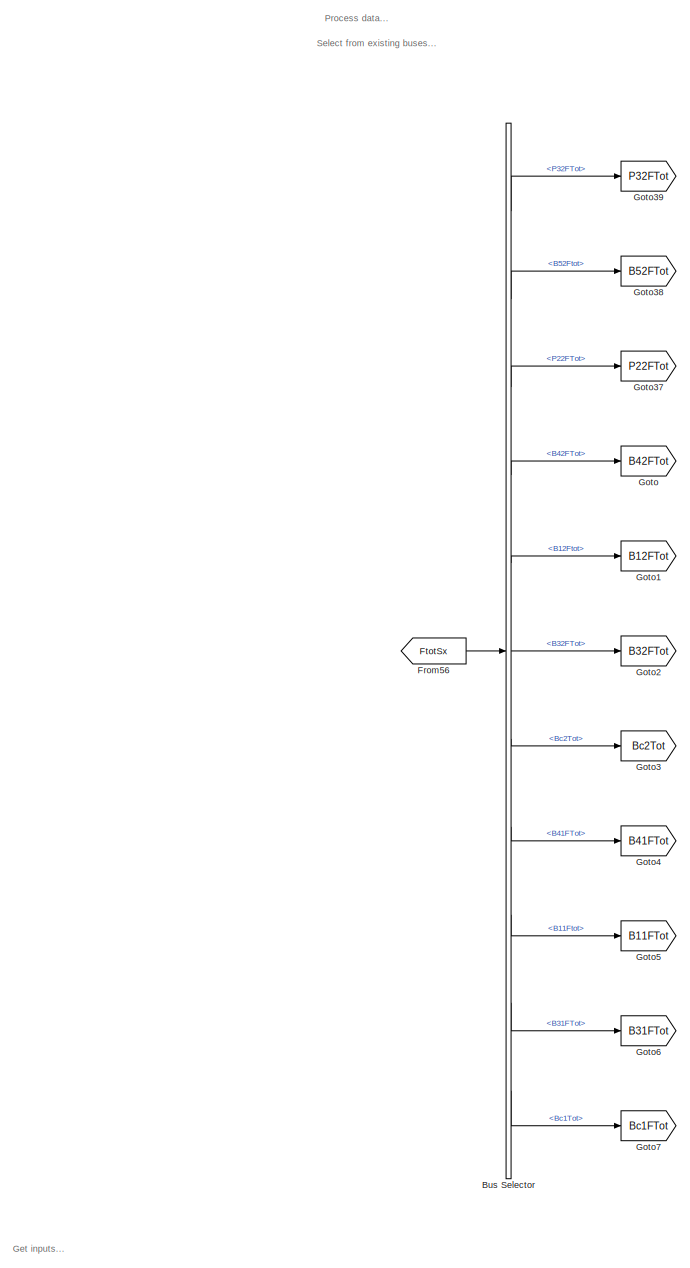
[diagram: Hydraulic manipulator, calculation/AnalyticForces - part 1/8, top left region]
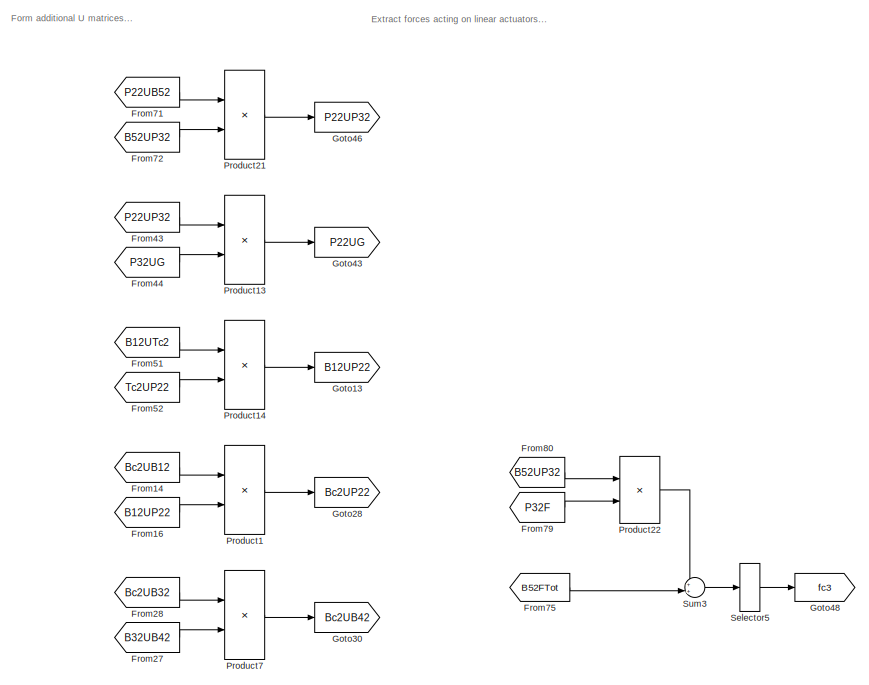
[diagram: Hydraulic manipulator, calculation/AnalyticForces - part 2/8, middle left region]
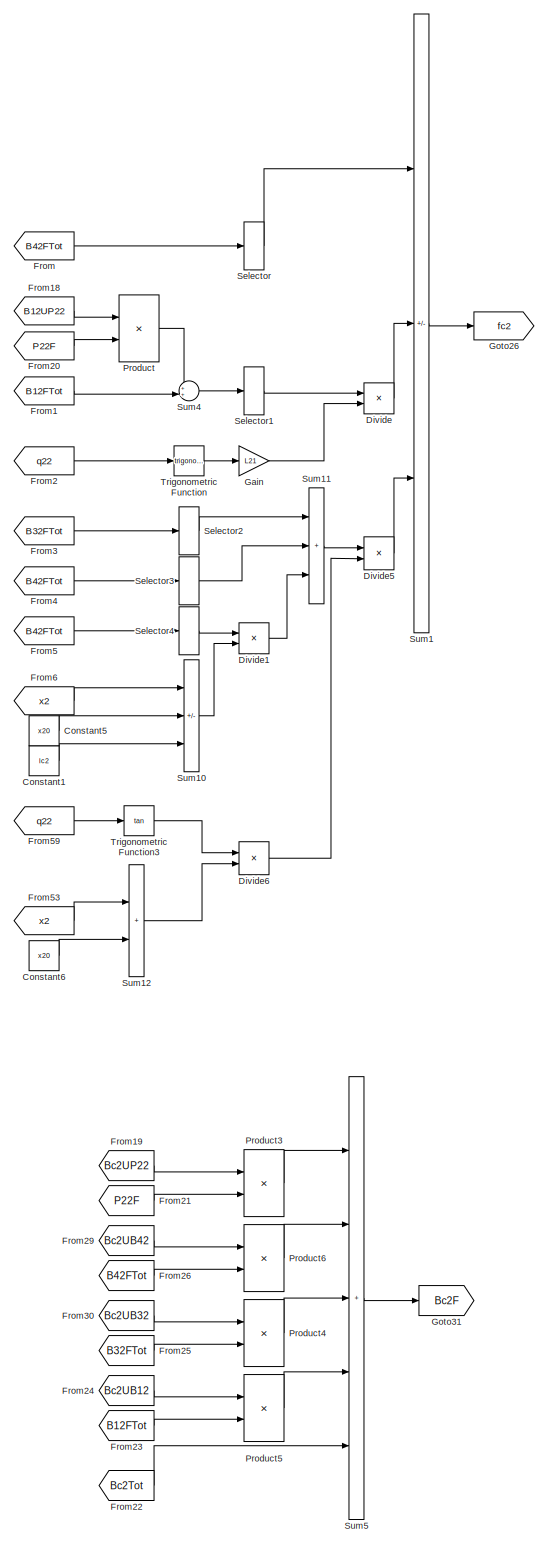
[diagram: Hydraulic manipulator, calculation/AnalyticForces - part 3/8, central region]
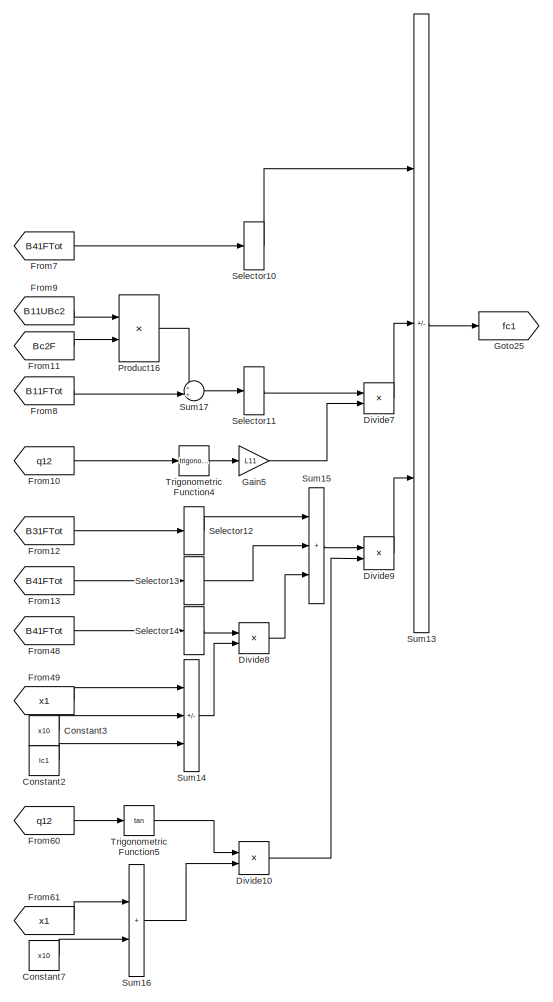
[diagram: Hydraulic manipulator, calculation/AnalyticForces - part 4/8, middle right region]
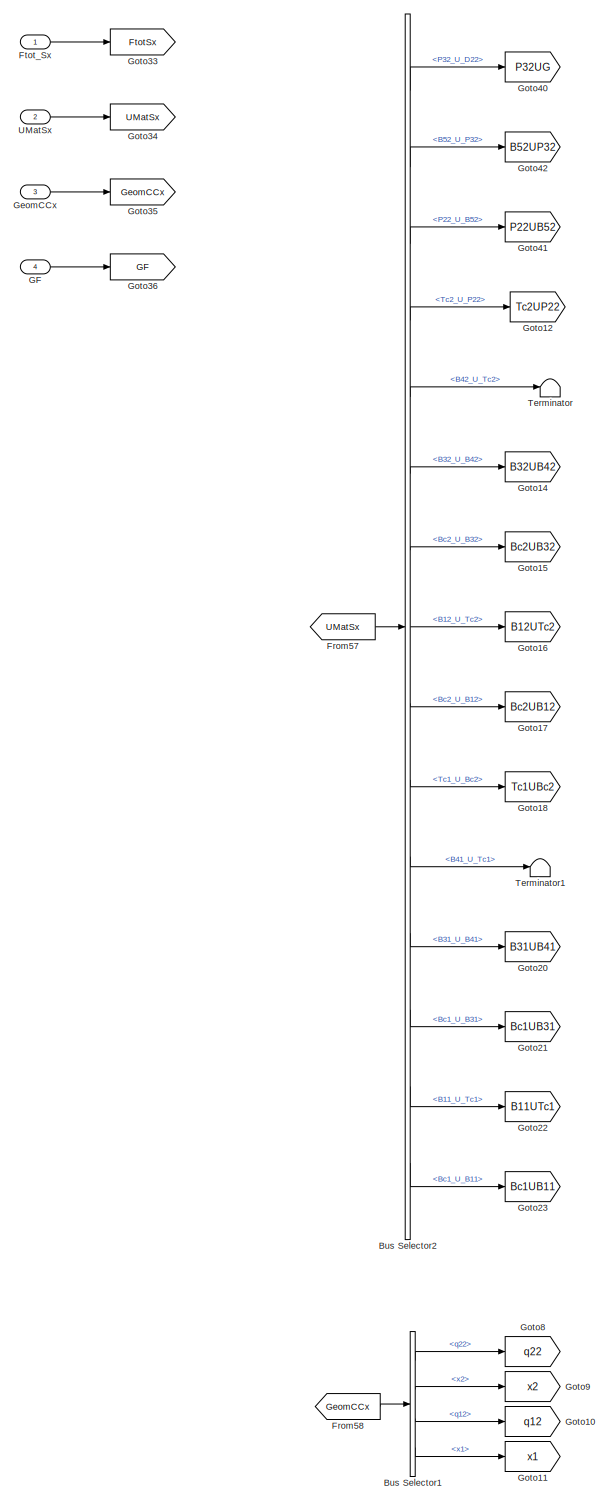
[diagram: Hydraulic manipulator, calculation/AnalyticForces - part 5/8, bottom left region]
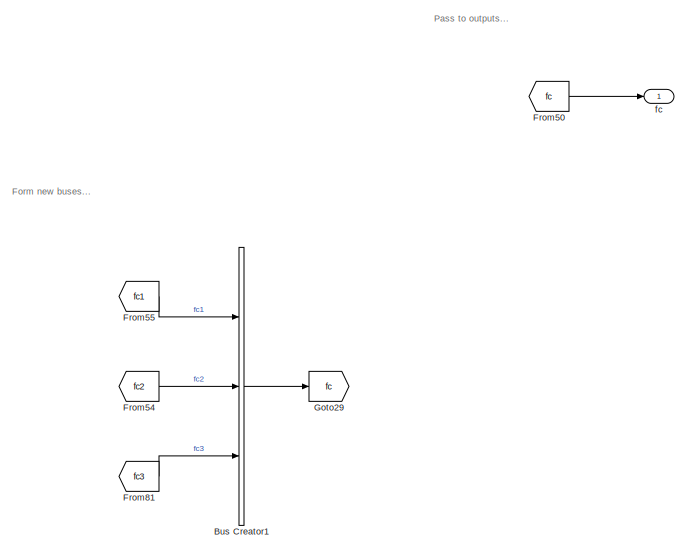
[diagram: Hydraulic manipulator, calculation/AnalyticForces - part 6/8, middle right region]
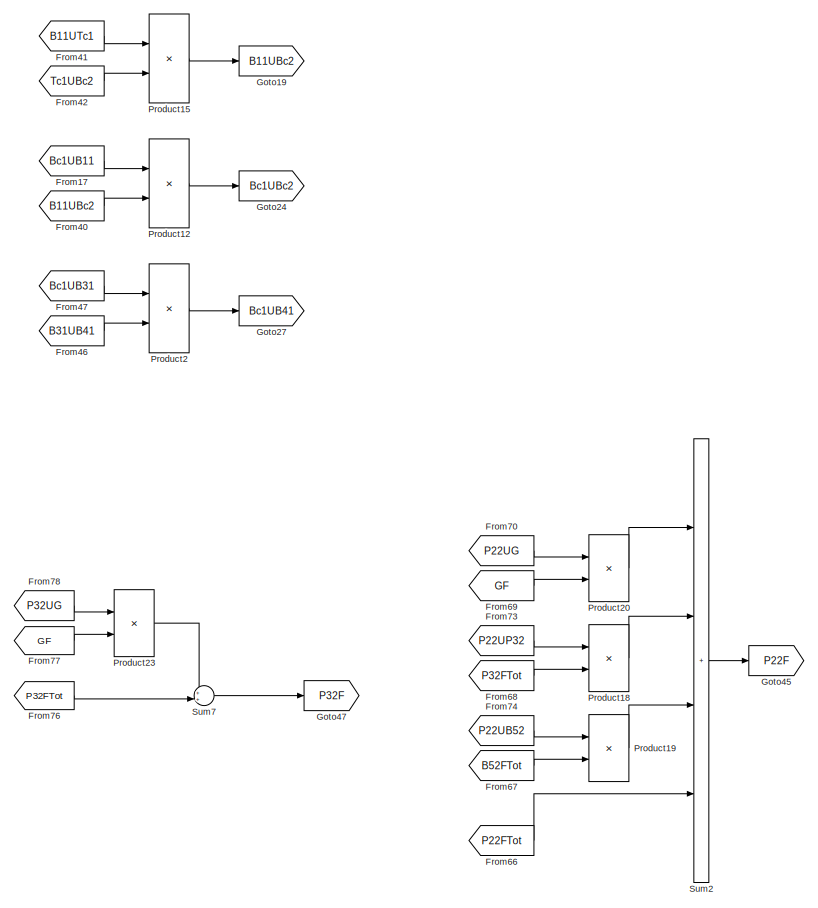
[diagram: Hydraulic manipulator, calculation/AnalyticForces - part 7/8, bottom left region]
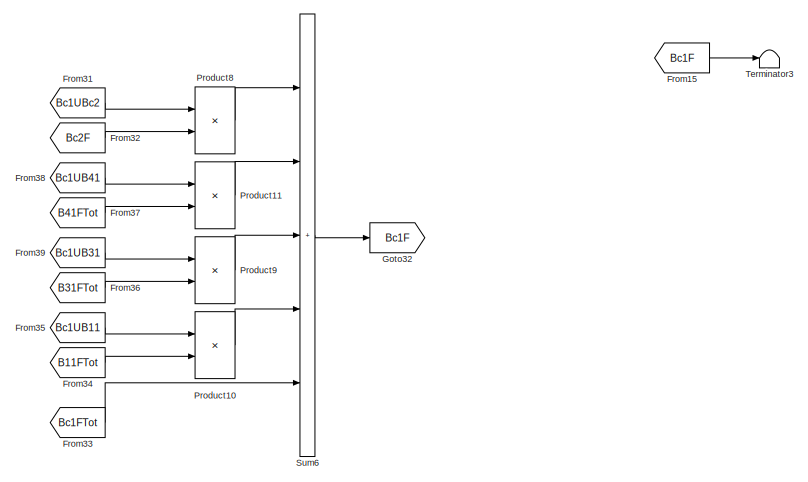
[diagram: Hydraulic manipulator, calculation/AnalyticForces - part 8/8, bottom right region]
BLOCK [SubSystem] Hydraulic manipulator, calculation/AnalyticForces
  Ports = [4, 1]
  RequestExecContextInheritance = off
BLOCK [BusCreator] Hydraulic manipulator, calculation/AnalyticForces/Bus Creator1
  DisplayOption = bar
  InheritFromInputs = on
  Inputs = 3
  Ports = [3, 1]
BLOCK [BusSelector] Hydraulic manipulator, calculation/AnalyticForces/Bus Selector
  OutputSignals = FTot_S2P.P32FTot,FTot_S2P.B52Ftot,FTot_S2P.P22FTot,FTot_S2R.B42FTot,FTot_S2R.B12Ftot,FTot_S2R.B32FTot,FTot_S2R.Bc2Tot,FTot_S1.B41FTot,FTot_S1.B11Ftot,FTot_S1.B31FTot,FTot_S1.Bc1Tot
  Ports = [1, 11]
BLOCK [BusSelector] Hydraulic manipulator, calculation/AnalyticForces/Bus Selector1
  OutputSignals = Geom_S2R.q22,Geom_S2R.x2,Geom_S1.q12,Geom_S1.x1
  Ports = [1, 4]
BLOCK [BusSelector] Hydraulic manipulator, calculation/AnalyticForces/Bus Selector2
  OutputSignals = UMats_S2P.P32_U_D22,UMats_S2P.B52_U_P32,UMats_S2P.P22_U_B52,UMats_S2R.Tc2_U_P22,UMats_S2R.B42_U_Tc2,UMats_S2R.B32_U_B42,UMats_S2R.Bc2_U_B32,UMats_S2R.B12_U_Tc2,UMats_S2R.Bc2_U_B12,UMats_S1.Tc1_U_Bc2,UMats_S1.B41_U_Tc1,UMats_S1.B31_U_B41,UMats_S1.Bc1_U_B31,UMats_S1.B11_U_Tc1,UMats_S1.Bc1_U_B11
  Ports = [1, 15]
BLOCK [Constant] Hydraulic manipulator, calculation/AnalyticForces/Constant1
  Value = lc2
BLOCK [Constant] Hydraulic manipulator, calculation/AnalyticForces/Constant2
  Value = lc1
BLOCK [Constant] Hydraulic manipulator, calculation/AnalyticForces/Constant3
  Value = x10
BLOCK [Constant] Hydraulic manipulator, calculation/AnalyticForces/Constant5
  Value = x20
BLOCK [Constant] Hydraulic manipulator, calculation/AnalyticForces/Constant6
  Value = x20
BLOCK [Constant] Hydraulic manipulator, calculation/AnalyticForces/Constant7
  Value = x10
BLOCK [Product] Hydraulic manipulator, calculation/AnalyticForces/Divide
  Inputs = */
  Ports = [2, 1]
BLOCK [Product] Hydraulic manipulator, calculation/AnalyticForces/Divide1
  Inputs = **
  Ports = [2, 1]
BLOCK [Product] Hydraulic manipulator, calculation/AnalyticForces/Divide10
  Inputs = **
  Ports = [2, 1]
BLOCK [Product] Hydraulic manipulator, calculation/AnalyticForces/Divide5
  Inputs = */
  Ports = [2, 1]
BLOCK [Product] Hydraulic manipulator, calculation/AnalyticForces/Divide6
  Inputs = **
  Ports = [2, 1]
BLOCK [Product] Hydraulic manipulator, calculation/AnalyticForces/Divide7
  Inputs = */
  Ports = [2, 1]
BLOCK [Product] Hydraulic manipulator, calculation/AnalyticForces/Divide8
  Inputs = **
  Ports = [2, 1]
BLOCK [Product] Hydraulic manipulator, calculation/AnalyticForces/Divide9
  Inputs = */
  Ports = [2, 1]
BLOCK [From] Hydraulic manipulator, calculation/AnalyticForces/From
  GotoTag = B42FTot
BLOCK [From] Hydraulic manipulator, calculation/AnalyticForces/From1
  GotoTag = B12FTot
BLOCK [From] Hydraulic manipulator, calculation/AnalyticForces/From10
  GotoTag = q12
BLOCK [From] Hydraulic manipulator, calculation/AnalyticForces/From11
  GotoTag = Bc2F
BLOCK [From] Hydraulic manipulator, calculation/AnalyticForces/From12
  GotoTag = B31FTot
BLOCK [From] Hydraulic manipulator, calculation/AnalyticForces/From13
  GotoTag = B41FTot
BLOCK [From] Hydraulic manipulator, calculation/AnalyticForces/From14
  GotoTag = Bc2UB12
BLOCK [From] Hydraulic manipulator, calculation/AnalyticForces/From15
  GotoTag = Bc1F
BLOCK [From] Hydraulic manipulator, calculation/AnalyticForces/From16
  GotoTag = B12UP22
BLOCK [From] Hydraulic manipulator, calculation/AnalyticForces/From17
  GotoTag = Bc1UB11
BLOCK [From] Hydraulic manipulator, calculation/AnalyticForces/From18
  GotoTag = B12UP22
BLOCK [From] Hydraulic manipulator, calculation/AnalyticForces/From19
  GotoTag = Bc2UP22
BLOCK [From] Hydraulic manipulator, calculation/AnalyticForces/From2
  GotoTag = q22
BLOCK [From] Hydraulic manipulator, calculation/AnalyticForces/From20
  GotoTag = P22F
BLOCK [From] Hydraulic manipulator, calculation/AnalyticForces/From21
  GotoTag = P22F
BLOCK [From] Hydraulic manipulator, calculation/AnalyticForces/From22
  GotoTag = Bc2Tot
BLOCK [From] Hydraulic manipulator, calculation/AnalyticForces/From23
  GotoTag = B12FTot
BLOCK [From] Hydraulic manipulator, calculation/AnalyticForces/From24
  GotoTag = Bc2UB12
BLOCK [From] Hydraulic manipulator, calculation/AnalyticForces/From25
  GotoTag = B32FTot
BLOCK [From] Hydraulic manipulator, calculation/AnalyticForces/From26
  GotoTag = B42FTot
BLOCK [From] Hydraulic manipulator, calculation/AnalyticForces/From27
  GotoTag = B32UB42
BLOCK [From] Hydraulic manipulator, calculation/AnalyticForces/From28
  GotoTag = Bc2UB32
BLOCK [From] Hydraulic manipulator, calculation/AnalyticForces/From29
  GotoTag = Bc2UB42
BLOCK [From] Hydraulic manipulator, calculation/AnalyticForces/From3
  GotoTag = B32FTot
BLOCK [From] Hydraulic manipulator, calculation/AnalyticForces/From30
  GotoTag = Bc2UB32
BLOCK [From] Hydraulic manipulator, calculation/AnalyticForces/From31
  GotoTag = Bc1UBc2
BLOCK [From] Hydraulic manipulator, calculation/AnalyticForces/From32
  GotoTag = Bc2F
BLOCK [From] Hydraulic manipulator, calculation/AnalyticForces/From33
  GotoTag = Bc1FTot
BLOCK [From] Hydraulic manipulator, calculation/AnalyticForces/From34
  GotoTag = B11FTot
BLOCK [From] Hydraulic manipulator, calculation/AnalyticForces/From35
  GotoTag = Bc1UB11
BLOCK [From] Hydraulic manipulator, calculation/AnalyticForces/From36
  GotoTag = B31FTot
BLOCK [From] Hydraulic manipulator, calculation/AnalyticForces/From37
  GotoTag = B41FTot
BLOCK [From] Hydraulic manipulator, calculation/AnalyticForces/From38
  GotoTag = Bc1UB41
BLOCK [From] Hydraulic manipulator, calculation/AnalyticForces/From39
  GotoTag = Bc1UB31
BLOCK [From] Hydraulic manipulator, calculation/AnalyticForces/From4
  GotoTag = B42FTot
BLOCK [From] Hydraulic manipulator, calculation/AnalyticForces/From40
  GotoTag = B11UBc2
BLOCK [From] Hydraulic manipulator, calculation/AnalyticForces/From41
  GotoTag = B11UTc1
BLOCK [From] Hydraulic manipulator, calculation/AnalyticForces/From42
  GotoTag = Tc1UBc2
BLOCK [From] Hydraulic manipulator, calculation/AnalyticForces/From43
  GotoTag = P22UP32
BLOCK [From] Hydraulic manipulator, calculation/AnalyticForces/From44
  GotoTag = P32UG
BLOCK [From] Hydraulic manipulator, calculation/AnalyticForces/From46
  GotoTag = B31UB41
BLOCK [From] Hydraulic manipulator, calculation/AnalyticForces/From47
  GotoTag = Bc1UB31
BLOCK [From] Hydraulic manipulator, calculation/AnalyticForces/From48
  GotoTag = B41FTot
BLOCK [From] Hydraulic manipulator, calculation/AnalyticForces/From49
  GotoTag = x1
BLOCK [From] Hydraulic manipulator, calculation/AnalyticForces/From5
  GotoTag = B42FTot
BLOCK [From] Hydraulic manipulator, calculation/AnalyticForces/From50
  GotoTag = fc
BLOCK [From] Hydraulic manipulator, calculation/AnalyticForces/From51
  GotoTag = B12UTc2
BLOCK [From] Hydraulic manipulator, calculation/AnalyticForces/From52
  GotoTag = Tc2UP22
BLOCK [From] Hydraulic manipulator, calculation/AnalyticForces/From53
  GotoTag = x2
BLOCK [From] Hydraulic manipulator, calculation/AnalyticForces/From54
  GotoTag = fc2
BLOCK [From] Hydraulic manipulator, calculation/AnalyticForces/From55
  GotoTag = fc1
BLOCK [From] Hydraulic manipulator, calculation/AnalyticForces/From56
  GotoTag = FtotSx
BLOCK [From] Hydraulic manipulator, calculation/AnalyticForces/From57
  GotoTag = UMatSx
BLOCK [From] Hydraulic manipulator, calculation/AnalyticForces/From58
  GotoTag = GeomCCx
BLOCK [From] Hydraulic manipulator, calculation/AnalyticForces/From59
  GotoTag = q22
BLOCK [From] Hydraulic manipulator, calculation/AnalyticForces/From6
  GotoTag = x2
BLOCK [From] Hydraulic manipulator, calculation/AnalyticForces/From60
  GotoTag = q12
BLOCK [From] Hydraulic manipulator, calculation/AnalyticForces/From61
  GotoTag = x1
BLOCK [From] Hydraulic manipulator, calculation/AnalyticForces/From66
  GotoTag = P22FTot
BLOCK [From] Hydraulic manipulator, calculation/AnalyticForces/From67
  GotoTag = B52FTot
BLOCK [From] Hydraulic manipulator, calculation/AnalyticForces/From68
  GotoTag = P32FTot
BLOCK [From] Hydraulic manipulator, calculation/AnalyticForces/From69
  GotoTag = GF
BLOCK [From] Hydraulic manipulator, calculation/AnalyticForces/From7
  GotoTag = B41FTot
BLOCK [From] Hydraulic manipulator, calculation/AnalyticForces/From70
  GotoTag = P22UG
BLOCK [From] Hydraulic manipulator, calculation/AnalyticForces/From71
  GotoTag = P22UB52
BLOCK [From] Hydraulic manipulator, calculation/AnalyticForces/From72
  GotoTag = B52UP32
BLOCK [From] Hydraulic manipulator, calculation/AnalyticForces/From73
  GotoTag = P22UP32
BLOCK [From] Hydraulic manipulator, calculation/AnalyticForces/From74
  GotoTag = P22UB52
BLOCK [From] Hydraulic manipulator, calculation/AnalyticForces/From75
  GotoTag = B52FTot
BLOCK [From] Hydraulic manipulator, calculation/AnalyticForces/From76
  GotoTag = P32FTot
BLOCK [From] Hydraulic manipulator, calculation/AnalyticForces/From77
  GotoTag = GF
BLOCK [From] Hydraulic manipulator, calculation/AnalyticForces/From78
  GotoTag = P32UG
BLOCK [From] Hydraulic manipulator, calculation/AnalyticForces/From79
  GotoTag = P32F
BLOCK [From] Hydraulic manipulator, calculation/AnalyticForces/From8
  GotoTag = B11FTot
BLOCK [From] Hydraulic manipulator, calculation/AnalyticForces/From80
  GotoTag = B52UP32
BLOCK [From] Hydraulic manipulator, calculation/AnalyticForces/From81
  GotoTag = fc3
BLOCK [From] Hydraulic manipulator, calculation/AnalyticForces/From9
  GotoTag = B11UBc2
BLOCK [Inport] Hydraulic manipulator, calculation/AnalyticForces/Ftot_Sx
BLOCK [Inport] Hydraulic manipulator, calculation/AnalyticForces/GF
  Port = 4
BLOCK [Gain] Hydraulic manipulator, calculation/AnalyticForces/Gain
  Gain = L21
BLOCK [Gain] Hydraulic manipulator, calculation/AnalyticForces/Gain5
  Gain = L11
BLOCK [Inport] Hydraulic manipulator, calculation/AnalyticForces/GeomCCx
  Port = 3
BLOCK [Goto] Hydraulic manipulator, calculation/AnalyticForces/Goto
  GotoTag = B42FTot
BLOCK [Goto] Hydraulic manipulator, calculation/AnalyticForces/Goto1
  GotoTag = B12FTot
BLOCK [Goto] Hydraulic manipulator, calculation/AnalyticForces/Goto10
  GotoTag = q12
BLOCK [Goto] Hydraulic manipulator, calculation/AnalyticForces/Goto11
  GotoTag = x1
BLOCK [Goto] Hydraulic manipulator, calculation/AnalyticForces/Goto12
  GotoTag = Tc2UP22
BLOCK [Goto] Hydraulic manipulator, calculation/AnalyticForces/Goto13
  GotoTag = B12UP22
BLOCK [Goto] Hydraulic manipulator, calculation/AnalyticForces/Goto14
  GotoTag = B32UB42
BLOCK [Goto] Hydraulic manipulator, calculation/AnalyticForces/Goto15
  GotoTag = Bc2UB32
BLOCK [Goto] Hydraulic manipulator, calculation/AnalyticForces/Goto16
  GotoTag = B12UTc2
BLOCK [Goto] Hydraulic manipulator, calculation/AnalyticForces/Goto17
  GotoTag = Bc2UB12
BLOCK [Goto] Hydraulic manipulator, calculation/AnalyticForces/Goto18
  GotoTag = Tc1UBc2
BLOCK [Goto] Hydraulic manipulator, calculation/AnalyticForces/Goto19
  GotoTag = B11UBc2
BLOCK [Goto] Hydraulic manipulator, calculation/AnalyticForces/Goto2
  GotoTag = B32FTot
BLOCK [Goto] Hydraulic manipulator, calculation/AnalyticForces/Goto20
  GotoTag = B31UB41
BLOCK [Goto] Hydraulic manipulator, calculation/AnalyticForces/Goto21
  GotoTag = Bc1UB31
BLOCK [Goto] Hydraulic manipulator, calculation/AnalyticForces/Goto22
  GotoTag = B11UTc1
BLOCK [Goto] Hydraulic manipulator, calculation/AnalyticForces/Goto23
  GotoTag = Bc1UB11
BLOCK [Goto] Hydraulic manipulator, calculation/AnalyticForces/Goto24
  GotoTag = Bc1UBc2
BLOCK [Goto] Hydraulic manipulator, calculation/AnalyticForces/Goto25
  GotoTag = fc1
BLOCK [Goto] Hydraulic manipulator, calculation/AnalyticForces/Goto26
  GotoTag = fc2
BLOCK [Goto] Hydraulic manipulator, calculation/AnalyticForces/Goto27
  GotoTag = Bc1UB41
BLOCK [Goto] Hydraulic manipulator, calculation/AnalyticForces/Goto28
  GotoTag = Bc2UP22
BLOCK [Goto] Hydraulic manipulator, calculation/AnalyticForces/Goto29
  GotoTag = fc
BLOCK [Goto] Hydraulic manipulator, calculation/AnalyticForces/Goto3
  GotoTag = Bc2Tot
BLOCK [Goto] Hydraulic manipulator, calculation/AnalyticForces/Goto30
  GotoTag = Bc2UB42
BLOCK [Goto] Hydraulic manipulator, calculation/AnalyticForces/Goto31
  GotoTag = Bc2F
BLOCK [Goto] Hydraulic manipulator, calculation/AnalyticForces/Goto32
  GotoTag = Bc1F
BLOCK [Goto] Hydraulic manipulator, calculation/AnalyticForces/Goto33
  GotoTag = FtotSx
BLOCK [Goto] Hydraulic manipulator, calculation/AnalyticForces/Goto34
  GotoTag = UMatSx
BLOCK [Goto] Hydraulic manipulator, calculation/AnalyticForces/Goto35
  GotoTag = GeomCCx
BLOCK [Goto] Hydraulic manipulator, calculation/AnalyticForces/Goto36
  GotoTag = GF
BLOCK [Goto] Hydraulic manipulator, calculation/AnalyticForces/Goto37
  GotoTag = P22FTot
BLOCK [Goto] Hydraulic manipulator, calculation/AnalyticForces/Goto38
  GotoTag = B52FTot
BLOCK [Goto] Hydraulic manipulator, calculation/AnalyticForces/Goto39
  GotoTag = P32FTot
BLOCK [Goto] Hydraulic manipulator, calculation/AnalyticForces/Goto4
  GotoTag = B41FTot
BLOCK [Goto] Hydraulic manipulator, calculation/AnalyticForces/Goto40
  GotoTag = P32UG
BLOCK [Goto] Hydraulic manipulator, calculation/AnalyticForces/Goto41
  GotoTag = P22UB52
BLOCK [Goto] Hydraulic manipulator, calculation/AnalyticForces/Goto42
  GotoTag = B52UP32
BLOCK [Goto] Hydraulic manipulator, calculation/AnalyticForces/Goto43
  GotoTag = P22UG
BLOCK [Goto] Hydraulic manipulator, calculation/AnalyticForces/Goto45
  GotoTag = P22F
BLOCK [Goto] Hydraulic manipulator, calculation/AnalyticForces/Goto46
  GotoTag = P22UP32
BLOCK [Goto] Hydraulic manipulator, calculation/AnalyticForces/Goto47
  GotoTag = P32F
BLOCK [Goto] Hydraulic manipulator, calculation/AnalyticForces/Goto48
  GotoTag = fc3
BLOCK [Goto] Hydraulic manipulator, calculation/AnalyticForces/Goto5
  GotoTag = B11FTot
BLOCK [Goto] Hydraulic manipulator, calculation/AnalyticForces/Goto6
  GotoTag = B31FTot
BLOCK [Goto] Hydraulic manipulator, calculation/AnalyticForces/Goto7
  GotoTag = Bc1FTot
BLOCK [Goto] Hydraulic manipulator, calculation/AnalyticForces/Goto8
  GotoTag = q22
BLOCK [Goto] Hydraulic manipulator, calculation/AnalyticForces/Goto9
  GotoTag = x2
BLOCK [Product] Hydraulic manipulator, calculation/AnalyticForces/Product
  Multiplication = Matrix(*)
  Ports = [2, 1]
BLOCK [Product] Hydraulic manipulator, calculation/AnalyticForces/Product1
  Multiplication = Matrix(*)
  Ports = [2, 1]
BLOCK [Product] Hydraulic manipulator, calculation/AnalyticForces/Product10
  Multiplication = Matrix(*)
  Ports = [2, 1]
BLOCK [Product] Hydraulic manipulator, calculation/AnalyticForces/Product11
  Multiplication = Matrix(*)
  Ports = [2, 1]
BLOCK [Product] Hydraulic manipulator, calculation/AnalyticForces/Product12
  Multiplication = Matrix(*)
  Ports = [2, 1]
BLOCK [Product] Hydraulic manipulator, calculation/AnalyticForces/Product13
  Multiplication = Matrix(*)
  Ports = [2, 1]
BLOCK [Product] Hydraulic manipulator, calculation/AnalyticForces/Product14
  Multiplication = Matrix(*)
  Ports = [2, 1]
BLOCK [Product] Hydraulic manipulator, calculation/AnalyticForces/Product15
  Multiplication = Matrix(*)
  Ports = [2, 1]
BLOCK [Product] Hydraulic manipulator, calculation/AnalyticForces/Product16
  Multiplication = Matrix(*)
  Ports = [2, 1]
BLOCK [Product] Hydraulic manipulator, calculation/AnalyticForces/Product18
  Multiplication = Matrix(*)
  Ports = [2, 1]
BLOCK [Product] Hydraulic manipulator, calculation/AnalyticForces/Product19
  Multiplication = Matrix(*)
  Ports = [2, 1]
BLOCK [Product] Hydraulic manipulator, calculation/AnalyticForces/Product2
  Multiplication = Matrix(*)
  Ports = [2, 1]
BLOCK [Product] Hydraulic manipulator, calculation/AnalyticForces/Product20
  Multiplication = Matrix(*)
  Ports = [2, 1]
BLOCK [Product] Hydraulic manipulator, calculation/AnalyticForces/Product21
  Multiplication = Matrix(*)
  Ports = [2, 1]
BLOCK [Product] Hydraulic manipulator, calculation/AnalyticForces/Product22
  Multiplication = Matrix(*)
  Ports = [2, 1]
BLOCK [Product] Hydraulic manipulator, calculation/AnalyticForces/Product23
  Multiplication = Matrix(*)
  Ports = [2, 1]
BLOCK [Product] Hydraulic manipulator, calculation/AnalyticForces/Product3
  Multiplication = Matrix(*)
  Ports = [2, 1]
BLOCK [Product] Hydraulic manipulator, calculation/AnalyticForces/Product4
  Multiplication = Matrix(*)
  Ports = [2, 1]
BLOCK [Product] Hydraulic manipulator, calculation/AnalyticForces/Product5
  Multiplication = Matrix(*)
  Ports = [2, 1]
BLOCK [Product] Hydraulic manipulator, calculation/AnalyticForces/Product6
  Multiplication = Matrix(*)
  Ports = [2, 1]
BLOCK [Product] Hydraulic manipulator, calculation/AnalyticForces/Product7
  Multiplication = Matrix(*)
  Ports = [2, 1]
BLOCK [Product] Hydraulic manipulator, calculation/AnalyticForces/Product8
  Multiplication = Matrix(*)
  Ports = [2, 1]
BLOCK [Product] Hydraulic manipulator, calculation/AnalyticForces/Product9
  Multiplication = Matrix(*)
  Ports = [2, 1]
BLOCK [Selector] Hydraulic manipulator, calculation/AnalyticForces/Selector
  IndexOptions = Index vector (dialog)
  Indices = [1]
  InputPortWidth = 6
  OutputSizes = 1
  Ports = [1, 1]
BLOCK [Selector] Hydraulic manipulator, calculation/AnalyticForces/Selector1
  IndexOptions = Index vector (dialog)
  Indices = [6]
  InputPortWidth = 6
  OutputSizes = 1
  Ports = [1, 1]
BLOCK [Selector] Hydraulic manipulator, calculation/AnalyticForces/Selector10
  IndexOptions = Index vector (dialog)
  Indices = [1]
  InputPortWidth = 6
  OutputSizes = 1
  Ports = [1, 1]
BLOCK [Selector] Hydraulic manipulator, calculation/AnalyticForces/Selector11
  IndexOptions = Index vector (dialog)
  Indices = [6]
  InputPortWidth = 6
  OutputSizes = 1
  Ports = [1, 1]
BLOCK [Selector] Hydraulic manipulator, calculation/AnalyticForces/Selector12
  IndexOptions = Index vector (dialog)
  Indices = [6]
  InputPortWidth = 6
  OutputSizes = 1
  Ports = [1, 1]
BLOCK [Selector] Hydraulic manipulator, calculation/AnalyticForces/Selector13
  IndexOptions = Index vector (dialog)
  Indices = [6]
  InputPortWidth = 6
  OutputSizes = 1
  Ports = [1, 1]
BLOCK [Selector] Hydraulic manipulator, calculation/AnalyticForces/Selector14
  IndexOptions = Index vector (dialog)
  Indices = [2]
  InputPortWidth = 6
  OutputSizes = 1
  Ports = [1, 1]
BLOCK [Selector] Hydraulic manipulator, calculation/AnalyticForces/Selector2
  IndexOptions = Index vector (dialog)
  Indices = [6]
  InputPortWidth = 6
  OutputSizes = 1
  Ports = [1, 1]
BLOCK [Selector] Hydraulic manipulator, calculation/AnalyticForces/Selector3
  IndexOptions = Index vector (dialog)
  Indices = [6]
  InputPortWidth = 6
  OutputSizes = 1
  Ports = [1, 1]
BLOCK [Selector] Hydraulic manipulator, calculation/AnalyticForces/Selector4
  IndexOptions = Index vector (dialog)
  Indices = [2]
  InputPortWidth = 6
  OutputSizes = 1
  Ports = [1, 1]
BLOCK [Selector] Hydraulic manipulator, calculation/AnalyticForces/Selector5
  IndexOptions = Index vector (dialog)
  Indices = [1]
  InputPortWidth = 6
  OutputSizes = 1
  Ports = [1, 1]
BLOCK [Sum] Hydraulic manipulator, calculation/AnalyticForces/Sum1
  IconShape = rectangular
  Inputs = |+--
  Ports = [3, 1]
BLOCK [Sum] Hydraulic manipulator, calculation/AnalyticForces/Sum10
  IconShape = rectangular
  Inputs = |++-
  Ports = [3, 1]
BLOCK [Sum] Hydraulic manipulator, calculation/AnalyticForces/Sum11
  IconShape = rectangular
  Inputs = |+++
  Ports = [3, 1]
BLOCK [Sum] Hydraulic manipulator, calculation/AnalyticForces/Sum12
  IconShape = rectangular
  Inputs = |++
  Ports = [2, 1]
BLOCK [Sum] Hydraulic manipulator, calculation/AnalyticForces/Sum13
  IconShape = rectangular
  Inputs = |+--
  Ports = [3, 1]
BLOCK [Sum] Hydraulic manipulator, calculation/AnalyticForces/Sum14
  IconShape = rectangular
  Inputs = |++-
  Ports = [3, 1]
BLOCK [Sum] Hydraulic manipulator, calculation/AnalyticForces/Sum15
  IconShape = rectangular
  Inputs = |+++
  Ports = [3, 1]
BLOCK [Sum] Hydraulic manipulator, calculation/AnalyticForces/Sum16
  IconShape = rectangular
  Inputs = |++
  Ports = [2, 1]
BLOCK [Sum] Hydraulic manipulator, calculation/AnalyticForces/Sum17
  Inputs = ++|
  Ports = [2, 1]
BLOCK [Sum] Hydraulic manipulator, calculation/AnalyticForces/Sum2
  IconShape = rectangular
  Inputs = |++++
  Ports = [4, 1]
BLOCK [Sum] Hydraulic manipulator, calculation/AnalyticForces/Sum3
  Inputs = ++|
  Ports = [2, 1]
BLOCK [Sum] Hydraulic manipulator, calculation/AnalyticForces/Sum4
  Inputs = ++|
  Ports = [2, 1]
BLOCK [Sum] Hydraulic manipulator, calculation/AnalyticForces/Sum5
  IconShape = rectangular
  Inputs = |+++++
  Ports = [5, 1]
BLOCK [Sum] Hydraulic manipulator, calculation/AnalyticForces/Sum6
  IconShape = rectangular
  Inputs = |+++++
  Ports = [5, 1]
BLOCK [Sum] Hydraulic manipulator, calculation/AnalyticForces/Sum7
  Inputs = ++|
  Ports = [2, 1]
BLOCK [Terminator] Hydraulic manipulator, calculation/AnalyticForces/Terminator
BLOCK [Terminator] Hydraulic manipulator, calculation/AnalyticForces/Terminator1
BLOCK [Terminator] Hydraulic manipulator, calculation/AnalyticForces/Terminator3
BLOCK [Trigonometry] Hydraulic manipulator, calculation/AnalyticForces/Trigonometric Function
  Ports = [1, 1]
BLOCK [Trigonometry] Hydraulic manipulator, calculation/AnalyticForces/Trigonometric Function3
  Operator = tan
  Ports = [1, 1]
BLOCK [Trigonometry] Hydraulic manipulator, calculation/AnalyticForces/Trigonometric Function4
  Ports = [1, 1]
BLOCK [Trigonometry] Hydraulic manipulator, calculation/AnalyticForces/Trigonometric Function5
  Operator = tan
  Ports = [1, 1]
BLOCK [Inport] Hydraulic manipulator, calculation/AnalyticForces/UMatSx
  Port = 2
BLOCK [Outport] Hydraulic manipulator, calculation/AnalyticForces/fc
BLOCK [SubSystem] Hydraulic manipulator, calculation/AnalyticTotalForces
  Ports = [2, 1]
  RequestExecContextInheritance = off
BLOCK [BusCreator] Hydraulic manipulator, calculation/AnalyticTotalForces/Bus Creator
  DisplayOption = bar
  InheritFromInputs = on
  Inputs = FTot_S1,FTot_S2R,FTot_S2P
  Ports = [3, 1]
BLOCK [Outport] Hydraulic manipulator, calculation/AnalyticTotalForces/FTot_Sx
BLOCK [From] Hydraulic manipulator, calculation/AnalyticTotalForces/From
  GotoTag = VelsSx
BLOCK [From] Hydraulic manipulator, calculation/AnalyticTotalForces/From1
  GotoTag = VelsSx
BLOCK [From] Hydraulic manipulator, calculation/AnalyticTotalForces/From2
  GotoTag = WRotSx
BLOCK [From] Hydraulic manipulator, calculation/AnalyticTotalForces/From3
  GotoTag = WRotSx
BLOCK [From] Hydraulic manipulator, calculation/AnalyticTotalForces/From4
  GotoTag = FTotS1
BLOCK [From] Hydraulic manipulator, calculation/AnalyticTotalForces/From5
  GotoTag = FTotS2R
BLOCK [From] Hydraulic manipulator, calculation/AnalyticTotalForces/From6
  GotoTag = FTotSx
BLOCK [From] Hydraulic manipulator, calculation/AnalyticTotalForces/From7
  GotoTag = WRotSx
BLOCK [From] Hydraulic manipulator, calculation/AnalyticTotalForces/From8
  GotoTag = VelsSx
BLOCK [From] Hydraulic manipulator, calculation/AnalyticTotalForces/From9
  GotoTag = FTotS2P
BLOCK [Goto] Hydraulic manipulator, calculation/AnalyticTotalForces/Goto
  GotoTag = VelsSx
BLOCK [Goto] Hydraulic manipulator, calculation/AnalyticTotalForces/Goto1
  GotoTag = WRotSx
BLOCK [Goto] Hydraulic manipulator, calculation/AnalyticTotalForces/Goto2
  GotoTag = FTotS1
BLOCK [Goto] Hydraulic manipulator, calculation/AnalyticTotalForces/Goto3
  GotoTag = FTotS2R
BLOCK [Goto] Hydraulic manipulator, calculation/AnalyticTotalForces/Goto4
  GotoTag = FTotSx
BLOCK [Goto] Hydraulic manipulator, calculation/AnalyticTotalForces/Goto5
  GotoTag = FTotS2P
BLOCK [SubSystem] Hydraulic manipulator, calculation/AnalyticTotalForces/Structure 1
  Ports = [2, 1]
  RequestExecContextInheritance = off
BLOCK [BusCreator] Hydraulic manipulator, calculation/AnalyticTotalForces/Structure 1/Bus Creator
  DisplayOption = bar
  InheritFromInputs = on
  Inputs = Bc1Tot,B11Ftot,B31FTot,B41FTot
  Ports = [4, 1]
BLOCK [BusSelector] Hydraulic manipulator, calculation/AnalyticTotalForces/Structure 1/Bus Selector
  OutputSignals = Vels_S1.Bc1_V,Vels_S1.B11_V,Vels_S1.B31_V,Vels_S1.B41_V
  Ports = [1, 4]
BLOCK [BusSelector] Hydraulic manipulator, calculation/AnalyticTotalForces/Structure 1/Bus Selector1
  OutputSignals = WRotX_S1.W_Rot_Bc1,WRotX_S1.W_Rot_B11,WRotX_S1.W_Rot_B31,WRotX_S1.W_Rot_B41
  Ports = [1, 4]
BLOCK [Derivative] Hydraulic manipulator, calculation/AnalyticTotalForces/Structure 1/Derivative
BLOCK [Derivative] Hydraulic manipulator, calculation/AnalyticTotalForces/Structure 1/Derivative1
BLOCK [Derivative] Hydraulic manipulator, calculation/AnalyticTotalForces/Structure 1/Derivative2
BLOCK [Derivative] Hydraulic manipulator, calculation/AnalyticTotalForces/Structure 1/Derivative3
BLOCK [Derivative] Hydraulic manipulator, calculation/AnalyticTotalForces/Structure 1/Derivative4
BLOCK [Derivative] Hydraulic manipulator, calculation/AnalyticTotalForces/Structure 1/Derivative5
BLOCK [Derivative] Hydraulic manipulator, calculation/AnalyticTotalForces/Structure 1/Derivative6
BLOCK [Derivative] Hydraulic manipulator, calculation/AnalyticTotalForces/Structure 1/Derivative7
BLOCK [Outport] Hydraulic manipulator, calculation/AnalyticTotalForces/Structure 1/FTot_S1
BLOCK [From] Hydraulic manipulator, calculation/AnalyticTotalForces/Structure 1/From1
  GotoTag = Bc1V
BLOCK [From] Hydraulic manipulator, calculation/AnalyticTotalForces/Structure 1/From10
  GotoTag = B31V
BLOCK [From] Hydraulic manipulator, calculation/AnalyticTotalForces/Structure 1/From11
  GotoTag = B41V
BLOCK [From] Hydraulic manipulator, calculation/AnalyticTotalForces/Structure 1/From12
  GotoTag = WRotB31
BLOCK [From] Hydraulic manipulator, calculation/AnalyticTotalForces/Structure 1/From13
  GotoTag = B41V
BLOCK [From] Hydraulic manipulator, calculation/AnalyticTotalForces/Structure 1/From15
  GotoTag = WRotB41
BLOCK [From] Hydraulic manipulator, calculation/AnalyticTotalForces/Structure 1/From16
  GotoTag = B41w
BLOCK [From] Hydraulic manipulator, calculation/AnalyticTotalForces/Structure 1/From17
  GotoTag = B11Ftot
BLOCK [From] Hydraulic manipulator, calculation/AnalyticTotalForces/Structure 1/From18
  GotoTag = B31Ftot
BLOCK [From] Hydraulic manipulator, calculation/AnalyticTotalForces/Structure 1/From19
  GotoTag = B41Ftot
BLOCK [From] Hydraulic manipulator, calculation/AnalyticTotalForces/Structure 1/From2
  GotoTag = Bc1w
BLOCK [From] Hydraulic manipulator, calculation/AnalyticTotalForces/Structure 1/From20
  GotoTag = WRotSx
BLOCK [From] Hydraulic manipulator, calculation/AnalyticTotalForces/Structure 1/From21
  GotoTag = VelsSx
BLOCK [From] Hydraulic manipulator, calculation/AnalyticTotalForces/Structure 1/From22
  GotoTag = FTotS1
BLOCK [From] Hydraulic manipulator, calculation/AnalyticTotalForces/Structure 1/From23
  GotoTag = Bc1V
BLOCK [From] Hydraulic manipulator, calculation/AnalyticTotalForces/Structure 1/From24
  GotoTag = B31V
BLOCK [From] Hydraulic manipulator, calculation/AnalyticTotalForces/Structure 1/From25
  GotoTag = Bc1w
BLOCK [From] Hydraulic manipulator, calculation/AnalyticTotalForces/Structure 1/From26
  GotoTag = WRotBc1
BLOCK [From] Hydraulic manipulator, calculation/AnalyticTotalForces/Structure 1/From27
  GotoTag = B31w
BLOCK [From] Hydraulic manipulator, calculation/AnalyticTotalForces/Structure 1/From28
  GotoTag = B41w
BLOCK [From] Hydraulic manipulator, calculation/AnalyticTotalForces/Structure 1/From3
  GotoTag = B11V
BLOCK [From] Hydraulic manipulator, calculation/AnalyticTotalForces/Structure 1/From4
  GotoTag = B11w
BLOCK [From] Hydraulic manipulator, calculation/AnalyticTotalForces/Structure 1/From5
  GotoTag = B11V
BLOCK [From] Hydraulic manipulator, calculation/AnalyticTotalForces/Structure 1/From6
  GotoTag = B11w
BLOCK [From] Hydraulic manipulator, calculation/AnalyticTotalForces/Structure 1/From7
  GotoTag = WRotB11
BLOCK [From] Hydraulic manipulator, calculation/AnalyticTotalForces/Structure 1/From8
  GotoTag = B31w
BLOCK [From] Hydraulic manipulator, calculation/AnalyticTotalForces/Structure 1/From9
  GotoTag = Bc1Ftot
BLOCK [Goto] Hydraulic manipulator, calculation/AnalyticTotalForces/Structure 1/Goto
  GotoTag = Bc1w
BLOCK [Goto] Hydraulic manipulator, calculation/AnalyticTotalForces/Structure 1/Goto1
  GotoTag = B11w
BLOCK [Goto] Hydraulic manipulator, calculation/AnalyticTotalForces/Structure 1/Goto10
  GotoTag = B11Ftot
BLOCK [Goto] Hydraulic manipulator, calculation/AnalyticTotalForces/Structure 1/Goto11
  GotoTag = WRotB11
BLOCK [Goto] Hydraulic manipulator, calculation/AnalyticTotalForces/Structure 1/Goto12
  GotoTag = WRotB31
BLOCK [Goto] Hydraulic manipulator, calculation/AnalyticTotalForces/Structure 1/Goto13
  GotoTag = WRotB41
BLOCK [Goto] Hydraulic manipulator, calculation/AnalyticTotalForces/Structure 1/Goto14
  GotoTag = B41Ftot
BLOCK [Goto] Hydraulic manipulator, calculation/AnalyticTotalForces/Structure 1/Goto15
  GotoTag = B31Ftot
BLOCK [Goto] Hydraulic manipulator, calculation/AnalyticTotalForces/Structure 1/Goto16
  GotoTag = WRotSx
BLOCK [Goto] Hydraulic manipulator, calculation/AnalyticTotalForces/Structure 1/Goto17
  GotoTag = VelsSx
BLOCK [Goto] Hydraulic manipulator, calculation/AnalyticTotalForces/Structure 1/Goto18
  GotoTag = FTotS1
BLOCK [Goto] Hydraulic manipulator, calculation/AnalyticTotalForces/Structure 1/Goto2
  GotoTag = B31w
BLOCK [Goto] Hydraulic manipulator, calculation/AnalyticTotalForces/Structure 1/Goto3
  GotoTag = B41w
BLOCK [Goto] Hydraulic manipulator, calculation/AnalyticTotalForces/Structure 1/Goto4
  GotoTag = Bc1V
BLOCK [Goto] Hydraulic manipulator, calculation/AnalyticTotalForces/Structure 1/Goto5
  GotoTag = B11V
BLOCK [Goto] Hydraulic manipulator, calculation/AnalyticTotalForces/Structure 1/Goto6
  GotoTag = B31V
BLOCK [Goto] Hydraulic manipulator, calculation/AnalyticTotalForces/Structure 1/Goto7
  GotoTag = B41V
BLOCK [Goto] Hydraulic manipulator, calculation/AnalyticTotalForces/Structure 1/Goto8
  GotoTag = WRotBc1
BLOCK [Goto] Hydraulic manipulator, calculation/AnalyticTotalForces/Structure 1/Goto9
  GotoTag = Bc1Ftot
BLOCK [SubSystem] Hydraulic manipulator, calculation/AnalyticTotalForces/Structure 1/MATLAB Function
  ErrorFcn = Stateflow.Translate.translate
  PermitHierarchicalResolution = ExplicitOnly
  Ports = [0, 1]
  RequestExecContextInheritance = off
  SFBlockType = MATLAB Function
  TreatAsAtomicUnit = on
BLOCK [Demux] Hydraulic manipulator, calculation/AnalyticTotalForces/Structure 1/MATLAB Function/ Demux 
  Outputs = 1
  Ports = [1, 1]
BLOCK [Ground] Hydraulic manipulator, calculation/AnalyticTotalForces/Structure 1/MATLAB Function/ Ground 
BLOCK [S-Function] Hydraulic manipulator, calculation/AnalyticTotalForces/Structure 1/MATLAB Function/ SFunction 
  EnableBusSupport = on
  FunctionName = sf_sfun
  Parameters = Bc1_r_Bc1C,Bc1cI,mBc1
  PortCounts = [1 2]
  Ports = [1, 2]
  SFcnIsStateOwnerBlock = off
  SFunctionDeploymentMode = off
  Tag = Stateflow S-Function 111
BLOCK [Terminator] Hydraulic manipulator, calculation/AnalyticTotalForces/Structure 1/MATLAB Function/ Terminator 
BLOCK [Outport] Hydraulic manipulator, calculation/AnalyticTotalForces/Structure 1/MATLAB Function/thetaBc1
BLOCK [SubSystem] Hydraulic manipulator, calculation/AnalyticTotalForces/Structure 1/MATLAB Function1
  ErrorFcn = Stateflow.Translate.translate
  PermitHierarchicalResolution = ExplicitOnly
  Ports = [5, 1]
  RequestExecContextInheritance = off
  SFBlockType = MATLAB Function
  TreatAsAtomicUnit = on
BLOCK [Demux] Hydraulic manipulator, calculation/AnalyticTotalForces/Structure 1/MATLAB Function1/ Demux 
  Outputs = 1
  Ports = [1, 1]
BLOCK [S-Function] Hydraulic manipulator, calculation/AnalyticTotalForces/Structure 1/MATLAB Function1/ SFunction 
  EnableBusSupport = on
  FunctionName = sf_sfun
  Parameters = Wg
  PortCounts = [5 2]
  Ports = [5, 2]
  SFcnIsStateOwnerBlock = off
  SFunctionDeploymentMode = off
  Tag = Stateflow S-Function 112
BLOCK [Terminator] Hydraulic manipulator, calculation/AnalyticTotalForces/Structure 1/MATLAB Function1/ Terminator 
BLOCK [Inport] Hydraulic manipulator, calculation/AnalyticTotalForces/Structure 1/MATLAB Function1/Bc1V
BLOCK [Inport] Hydraulic manipulator, calculation/AnalyticTotalForces/Structure 1/MATLAB Function1/Bc1_Rot_W
  Port = 5
BLOCK [Inport] Hydraulic manipulator, calculation/AnalyticTotalForces/Structure 1/MATLAB Function1/Bc1a
  Port = 2
BLOCK [Inport] Hydraulic manipulator, calculation/AnalyticTotalForces/Structure 1/MATLAB Function1/Bc1dw
  Port = 4
BLOCK [Inport] Hydraulic manipulator, calculation/AnalyticTotalForces/Structure 1/MATLAB Function1/Bc1w
  Port = 3
BLOCK [Outport] Hydraulic manipulator, calculation/AnalyticTotalForces/Structure 1/MATLAB Function1/YBc1
BLOCK [SubSystem] Hydraulic manipulator, calculation/AnalyticTotalForces/Structure 1/MATLAB Function2
  ErrorFcn = Stateflow.Translate.translate
  PermitHierarchicalResolution = ExplicitOnly
  Ports = [0, 1]
  RequestExecContextInheritance = off
  SFBlockType = MATLAB Function
  TreatAsAtomicUnit = on
BLOCK [Demux] Hydraulic manipulator, calculation/AnalyticTotalForces/Structure 1/MATLAB Function2/ Demux 
  Outputs = 1
  Ports = [1, 1]
BLOCK [Ground] Hydraulic manipulator, calculation/AnalyticTotalForces/Structure 1/MATLAB Function2/ Ground 
BLOCK [S-Function] Hydraulic manipulator, calculation/AnalyticTotalForces/Structure 1/MATLAB Function2/ SFunction 
  EnableBusSupport = on
  FunctionName = sf_sfun
  Parameters = B11_r_B11C,B11cI,mB11
  PortCounts = [1 2]
  Ports = [1, 2]
  SFcnIsStateOwnerBlock = off
  SFunctionDeploymentMode = off
  Tag = Stateflow S-Function 28
BLOCK [Terminator] Hydraulic manipulator, calculation/AnalyticTotalForces/Structure 1/MATLAB Function2/ Terminator 
BLOCK [Outport] Hydraulic manipulator, calculation/AnalyticTotalForces/Structure 1/MATLAB Function2/thetaB11
BLOCK [SubSystem] Hydraulic manipulator, calculation/AnalyticTotalForces/Structure 1/MATLAB Function3
  ErrorFcn = Stateflow.Translate.translate
  PermitHierarchicalResolution = ExplicitOnly
  Ports = [5, 1]
  RequestExecContextInheritance = off
  SFBlockType = MATLAB Function
  TreatAsAtomicUnit = on
BLOCK [Demux] Hydraulic manipulator, calculation/AnalyticTotalForces/Structure 1/MATLAB Function3/ Demux 
  Outputs = 1
  Ports = [1, 1]
BLOCK [S-Function] Hydraulic manipulator, calculation/AnalyticTotalForces/Structure 1/MATLAB Function3/ SFunction 
  EnableBusSupport = on
  FunctionName = sf_sfun
  Parameters = Wg
  PortCounts = [5 2]
  Ports = [5, 2]
  SFcnIsStateOwnerBlock = off
  SFunctionDeploymentMode = off
  Tag = Stateflow S-Function 29
BLOCK [Terminator] Hydraulic manipulator, calculation/AnalyticTotalForces/Structure 1/MATLAB Function3/ Terminator 
BLOCK [Inport] Hydraulic manipulator, calculation/AnalyticTotalForces/Structure 1/MATLAB Function3/B11V
BLOCK [Inport] Hydraulic manipulator, calculation/AnalyticTotalForces/Structure 1/MATLAB Function3/B11_Rot_W
  Port = 5
BLOCK [Inport] Hydraulic manipulator, calculation/AnalyticTotalForces/Structure 1/MATLAB Function3/B11a
  Port = 2
BLOCK [Inport] Hydraulic manipulator, calculation/AnalyticTotalForces/Structure 1/MATLAB Function3/B11dw
  Port = 4
BLOCK [Inport] Hydraulic manipulator, calculation/AnalyticTotalForces/Structure 1/MATLAB Function3/B11w
  Port = 3
BLOCK [Outport] Hydraulic manipulator, calculation/AnalyticTotalForces/Structure 1/MATLAB Function3/YB11
BLOCK [SubSystem] Hydraulic manipulator, calculation/AnalyticTotalForces/Structure 1/MATLAB Function4
  ErrorFcn = Stateflow.Translate.translate
  PermitHierarchicalResolution = ExplicitOnly
  Ports = [0, 1]
  RequestExecContextInheritance = off
  SFBlockType = MATLAB Function
  TreatAsAtomicUnit = on
BLOCK [Demux] Hydraulic manipulator, calculation/AnalyticTotalForces/Structure 1/MATLAB Function4/ Demux 
  Outputs = 1
  Ports = [1, 1]
BLOCK [Ground] Hydraulic manipulator, calculation/AnalyticTotalForces/Structure 1/MATLAB Function4/ Ground 
BLOCK [S-Function] Hydraulic manipulator, calculation/AnalyticTotalForces/Structure 1/MATLAB Function4/ SFunction 
  EnableBusSupport = on
  FunctionName = sf_sfun
  Parameters = B31_r_B31C,B31cI,mB31
  PortCounts = [1 2]
  Ports = [1, 2]
  SFcnIsStateOwnerBlock = off
  SFunctionDeploymentMode = off
  Tag = Stateflow S-Function 30
BLOCK [Terminator] Hydraulic manipulator, calculation/AnalyticTotalForces/Structure 1/MATLAB Function4/ Terminator 
BLOCK [Outport] Hydraulic manipulator, calculation/AnalyticTotalForces/Structure 1/MATLAB Function4/thetaB31
BLOCK [SubSystem] Hydraulic manipulator, calculation/AnalyticTotalForces/Structure 1/MATLAB Function5
  ErrorFcn = Stateflow.Translate.translate
  PermitHierarchicalResolution = ExplicitOnly
  Ports = [5, 1]
  RequestExecContextInheritance = off
  SFBlockType = MATLAB Function
  TreatAsAtomicUnit = on
BLOCK [Demux] Hydraulic manipulator, calculation/AnalyticTotalForces/Structure 1/MATLAB Function5/ Demux 
  Outputs = 1
  Ports = [1, 1]
BLOCK [S-Function] Hydraulic manipulator, calculation/AnalyticTotalForces/Structure 1/MATLAB Function5/ SFunction 
  EnableBusSupport = on
  FunctionName = sf_sfun
  Parameters = Wg
  PortCounts = [5 2]
  Ports = [5, 2]
  SFcnIsStateOwnerBlock = off
  SFunctionDeploymentMode = off
  Tag = Stateflow S-Function 32
BLOCK [Terminator] Hydraulic manipulator, calculation/AnalyticTotalForces/Structure 1/MATLAB Function5/ Terminator 
BLOCK [Inport] Hydraulic manipulator, calculation/AnalyticTotalForces/Structure 1/MATLAB Function5/B31V
BLOCK [Inport] Hydraulic manipulator, calculation/AnalyticTotalForces/Structure 1/MATLAB Function5/B31_Rot_W
  Port = 5
BLOCK [Inport] Hydraulic manipulator, calculation/AnalyticTotalForces/Structure 1/MATLAB Function5/B31a
  Port = 2
BLOCK [Inport] Hydraulic manipulator, calculation/AnalyticTotalForces/Structure 1/MATLAB Function5/B31dw
  Port = 4
BLOCK [Inport] Hydraulic manipulator, calculation/AnalyticTotalForces/Structure 1/MATLAB Function5/B31w
  Port = 3
BLOCK [Outport] Hydraulic manipulator, calculation/AnalyticTotalForces/Structure 1/MATLAB Function5/YB31
BLOCK [SubSystem] Hydraulic manipulator, calculation/AnalyticTotalForces/Structure 1/MATLAB Function6
  ErrorFcn = Stateflow.Translate.translate
  PermitHierarchicalResolution = ExplicitOnly
  Ports = [0, 1]
  RequestExecContextInheritance = off
  SFBlockType = MATLAB Function
  TreatAsAtomicUnit = on
BLOCK [Demux] Hydraulic manipulator, calculation/AnalyticTotalForces/Structure 1/MATLAB Function6/ Demux 
  Outputs = 1
  Ports = [1, 1]
BLOCK [Ground] Hydraulic manipulator, calculation/AnalyticTotalForces/Structure 1/MATLAB Function6/ Ground 
BLOCK [S-Function] Hydraulic manipulator, calculation/AnalyticTotalForces/Structure 1/MATLAB Function6/ SFunction 
  EnableBusSupport = on
  FunctionName = sf_sfun
  Parameters = B41_r_B41C,B41cI,mB41
  PortCounts = [1 2]
  Ports = [1, 2]
  SFcnIsStateOwnerBlock = off
  SFunctionDeploymentMode = off
  Tag = Stateflow S-Function 33
BLOCK [Terminator] Hydraulic manipulator, calculation/AnalyticTotalForces/Structure 1/MATLAB Function6/ Terminator 
BLOCK [Outport] Hydraulic manipulator, calculation/AnalyticTotalForces/Structure 1/MATLAB Function6/thetaB41
BLOCK [SubSystem] Hydraulic manipulator, calculation/AnalyticTotalForces/Structure 1/MATLAB Function7
  ErrorFcn = Stateflow.Translate.translate
  PermitHierarchicalResolution = ExplicitOnly
  Ports = [5, 1]
  RequestExecContextInheritance = off
  SFBlockType = MATLAB Function
  TreatAsAtomicUnit = on
BLOCK [Demux] Hydraulic manipulator, calculation/AnalyticTotalForces/Structure 1/MATLAB Function7/ Demux 
  Outputs = 1
  Ports = [1, 1]
BLOCK [S-Function] Hydraulic manipulator, calculation/AnalyticTotalForces/Structure 1/MATLAB Function7/ SFunction 
  EnableBusSupport = on
  FunctionName = sf_sfun
  Parameters = Wg
  PortCounts = [5 2]
  Ports = [5, 2]
  SFcnIsStateOwnerBlock = off
  SFunctionDeploymentMode = off
  Tag = Stateflow S-Function 34
BLOCK [Terminator] Hydraulic manipulator, calculation/AnalyticTotalForces/Structure 1/MATLAB Function7/ Terminator 
BLOCK [Inport] Hydraulic manipulator, calculation/AnalyticTotalForces/Structure 1/MATLAB Function7/B41V
BLOCK [Inport] Hydraulic manipulator, calculation/AnalyticTotalForces/Structure 1/MATLAB Function7/B41_Rot_W
  Port = 5
BLOCK [Inport] Hydraulic manipulator, calculation/AnalyticTotalForces/Structure 1/MATLAB Function7/B41a
  Port = 2
BLOCK [Inport] Hydraulic manipulator, calculation/AnalyticTotalForces/Structure 1/MATLAB Function7/B41dw
  Port = 4
BLOCK [Inport] Hydraulic manipulator, calculation/AnalyticTotalForces/Structure 1/MATLAB Function7/B41w
  Port = 3
BLOCK [Outport] Hydraulic manipulator, calculation/AnalyticTotalForces/Structure 1/MATLAB Function7/YB41
BLOCK [Product] Hydraulic manipulator, calculation/AnalyticTotalForces/Structure 1/Product1
  Multiplication = Matrix(*)
  Ports = [2, 1]
BLOCK [Product] Hydraulic manipulator, calculation/AnalyticTotalForces/Structure 1/Product2
  Multiplication = Matrix(*)
  Ports = [2, 1]
BLOCK [Product] Hydraulic manipulator, calculation/AnalyticTotalForces/Structure 1/Product3
  Multiplication = Matrix(*)
  Ports = [2, 1]
BLOCK [Product] Hydraulic manipulator, calculation/AnalyticTotalForces/Structure 1/Product8
  Multiplication = Matrix(*)
  Ports = [2, 1]
BLOCK [Selector] Hydraulic manipulator, calculation/AnalyticTotalForces/Structure 1/Selector
  IndexOptions = Index vector (dialog)
  Indices = [4 5 6]
  InputPortWidth = 6
  OutputSizes = 1
  Ports = [1, 1]
BLOCK [Selector] Hydraulic manipulator, calculation/AnalyticTotalForces/Structure 1/Selector1
  IndexOptions = Index vector (dialog)
  Indices = [4 5 6]
  InputPortWidth = 6
  OutputSizes = 1
  Ports = [1, 1]
BLOCK [Selector] Hydraulic manipulator, calculation/AnalyticTotalForces/Structure 1/Selector2
  IndexOptions = Index vector (dialog)
  Indices = [4 5 6]
  InputPortWidth = 6
  OutputSizes = 1
  Ports = [1, 1]
BLOCK [Selector] Hydraulic manipulator, calculation/AnalyticTotalForces/Structure 1/Selector3
  IndexOptions = Index vector (dialog)
  Indices = [4 5 6]
  InputPortWidth = 6
  OutputSizes = 1
  Ports = [1, 1]
BLOCK [Math] Hydraulic manipulator, calculation/AnalyticTotalForces/Structure 1/Transpose1
  Operator = transpose
  Ports = [1, 1]
BLOCK [Math] Hydraulic manipulator, calculation/AnalyticTotalForces/Structure 1/Transpose2
  Operator = transpose
  Ports = [1, 1]
BLOCK [Math] Hydraulic manipulator, calculation/AnalyticTotalForces/Structure 1/Transpose3
  Operator = transpose
  Ports = [1, 1]
BLOCK [Math] Hydraulic manipulator, calculation/AnalyticTotalForces/Structure 1/Transpose4
  Operator = transpose
  Ports = [1, 1]
BLOCK [Inport] Hydraulic manipulator, calculation/AnalyticTotalForces/Structure 1/Vels_Sx
BLOCK [Inport] Hydraulic manipulator, calculation/AnalyticTotalForces/Structure 1/WRotX_Sx
  Port = 2
BLOCK [SubSystem] Hydraulic manipulator, calculation/AnalyticTotalForces/Structure 2 (Prismatic segment)
  Ports = [2, 1]
  RequestExecContextInheritance = off
BLOCK [BusCreator] Hydraulic manipulator, calculation/AnalyticTotalForces/Structure 2 (Prismatic segment)/Bus Creator
  DisplayOption = bar
  InheritFromInputs = on
  Inputs = P22FTot,B52Ftot,P32FTot
  Ports = [3, 1]
BLOCK [BusSelector] Hydraulic manipulator, calculation/AnalyticTotalForces/Structure 2 (Prismatic segment)/Bus Selector
  OutputSignals = Vels_S2R.P22_V,Vels_S2P.B52_V,Vels_S2P.P32_V
  Ports = [1, 3]
BLOCK [BusSelector] Hydraulic manipulator, calculation/AnalyticTotalForces/Structure 2 (Prismatic segment)/Bus Selector1
  OutputSignals = WRotX_S2R.W_Rot_P22,WRotX_S2P.W_Rot_B52,WRotX_S2P.W_Rot_P32
  Ports = [1, 3]
BLOCK [Derivative] Hydraulic manipulator, calculation/AnalyticTotalForces/Structure 2 (Prismatic segment)/Derivative
BLOCK [Derivative] Hydraulic manipulator, calculation/AnalyticTotalForces/Structure 2 (Prismatic segment)/Derivative1
BLOCK [Derivative] Hydraulic manipulator, calculation/AnalyticTotalForces/Structure 2 (Prismatic segment)/Derivative2
BLOCK [Derivative] Hydraulic manipulator, calculation/AnalyticTotalForces/Structure 2 (Prismatic segment)/Derivative3
BLOCK [Derivative] Hydraulic manipulator, calculation/AnalyticTotalForces/Structure 2 (Prismatic segment)/Derivative4
BLOCK [Derivative] Hydraulic manipulator, calculation/AnalyticTotalForces/Structure 2 (Prismatic segment)/Derivative5
BLOCK [Outport] Hydraulic manipulator, calculation/AnalyticTotalForces/Structure 2 (Prismatic segment)/FTot_S2P
BLOCK [From] Hydraulic manipulator, calculation/AnalyticTotalForces/Structure 2 (Prismatic segment)/From
  GotoTag = P22w
BLOCK [From] Hydraulic manipulator, calculation/AnalyticTotalForces/Structure 2 (Prismatic segment)/From1
  GotoTag = P22V
BLOCK [From] Hydraulic manipulator, calculation/AnalyticTotalForces/Structure 2 (Prismatic segment)/From10
  GotoTag = P32w
BLOCK [From] Hydraulic manipulator, calculation/AnalyticTotalForces/Structure 2 (Prismatic segment)/From11
  GotoTag = P32V
BLOCK [From] Hydraulic manipulator, calculation/AnalyticTotalForces/Structure 2 (Prismatic segment)/From12
  GotoTag = WRotP32
BLOCK [From] Hydraulic manipulator, calculation/AnalyticTotalForces/Structure 2 (Prismatic segment)/From13
  GotoTag = P22w
BLOCK [From] Hydraulic manipulator, calculation/AnalyticTotalForces/Structure 2 (Prismatic segment)/From14
  GotoTag = B52w
BLOCK [From] Hydraulic manipulator, calculation/AnalyticTotalForces/Structure 2 (Prismatic segment)/From15
  GotoTag = P32V
BLOCK [From] Hydraulic manipulator, calculation/AnalyticTotalForces/Structure 2 (Prismatic segment)/From17
  GotoTag = B52Ftot
BLOCK [From] Hydraulic manipulator, calculation/AnalyticTotalForces/Structure 2 (Prismatic segment)/From18
  GotoTag = P32Ftot
BLOCK [From] Hydraulic manipulator, calculation/AnalyticTotalForces/Structure 2 (Prismatic segment)/From2
  GotoTag = P22V
BLOCK [From] Hydraulic manipulator, calculation/AnalyticTotalForces/Structure 2 (Prismatic segment)/From20
  GotoTag = WRotSx
BLOCK [From] Hydraulic manipulator, calculation/AnalyticTotalForces/Structure 2 (Prismatic segment)/From21
  GotoTag = VelsSx
BLOCK [From] Hydraulic manipulator, calculation/AnalyticTotalForces/Structure 2 (Prismatic segment)/From3
  GotoTag = WRotP22
BLOCK [From] Hydraulic manipulator, calculation/AnalyticTotalForces/Structure 2 (Prismatic segment)/From35
  GotoTag = FTotS2P
BLOCK [From] Hydraulic manipulator, calculation/AnalyticTotalForces/Structure 2 (Prismatic segment)/From4
  GotoTag = B52w
BLOCK [From] Hydraulic manipulator, calculation/AnalyticTotalForces/Structure 2 (Prismatic segment)/From5
  GotoTag = B52V
BLOCK [From] Hydraulic manipulator, calculation/AnalyticTotalForces/Structure 2 (Prismatic segment)/From6
  GotoTag = B52V
BLOCK [From] Hydraulic manipulator, calculation/AnalyticTotalForces/Structure 2 (Prismatic segment)/From7
  GotoTag = WRotB52
BLOCK [From] Hydraulic manipulator, calculation/AnalyticTotalForces/Structure 2 (Prismatic segment)/From8
  GotoTag = P32w
BLOCK [From] Hydraulic manipulator, calculation/AnalyticTotalForces/Structure 2 (Prismatic segment)/From9
  GotoTag = P22Ftot
BLOCK [Goto] Hydraulic manipulator, calculation/AnalyticTotalForces/Structure 2 (Prismatic segment)/Goto
  GotoTag = P22w
BLOCK [Goto] Hydraulic manipulator, calculation/AnalyticTotalForces/Structure 2 (Prismatic segment)/Goto1
  GotoTag = B52w
BLOCK [Goto] Hydraulic manipulator, calculation/AnalyticTotalForces/Structure 2 (Prismatic segment)/Goto10
  GotoTag = B52Ftot
BLOCK [Goto] Hydraulic manipulator, calculation/AnalyticTotalForces/Structure 2 (Prismatic segment)/Goto11
  GotoTag = WRotB52
BLOCK [Goto] Hydraulic manipulator, calculation/AnalyticTotalForces/Structure 2 (Prismatic segment)/Goto12
  GotoTag = WRotP32
BLOCK [Goto] Hydraulic manipulator, calculation/AnalyticTotalForces/Structure 2 (Prismatic segment)/Goto15
  GotoTag = P32Ftot
BLOCK [Goto] Hydraulic manipulator, calculation/AnalyticTotalForces/Structure 2 (Prismatic segment)/Goto2
  GotoTag = P32w
BLOCK [Goto] Hydraulic manipulator, calculation/AnalyticTotalForces/Structure 2 (Prismatic segment)/Goto24
  GotoTag = WRotSx
BLOCK [Goto] Hydraulic manipulator, calculation/AnalyticTotalForces/Structure 2 (Prismatic segment)/Goto25
  GotoTag = VelsSx
BLOCK [Goto] Hydraulic manipulator, calculation/AnalyticTotalForces/Structure 2 (Prismatic segment)/Goto26
  GotoTag = FTotS2P
BLOCK [Goto] Hydraulic manipulator, calculation/AnalyticTotalForces/Structure 2 (Prismatic segment)/Goto4
  GotoTag = P22V
BLOCK [Goto] Hydraulic manipulator, calculation/AnalyticTotalForces/Structure 2 (Prismatic segment)/Goto5
  GotoTag = B52V
BLOCK [Goto] Hydraulic manipulator, calculation/AnalyticTotalForces/Structure 2 (Prismatic segment)/Goto6
  GotoTag = P32V
BLOCK [Goto] Hydraulic manipulator, calculation/AnalyticTotalForces/Structure 2 (Prismatic segment)/Goto8
  GotoTag = WRotP22
BLOCK [Goto] Hydraulic manipulator, calculation/AnalyticTotalForces/Structure 2 (Prismatic segment)/Goto9
  GotoTag = P22Ftot
BLOCK [SubSystem] Hydraulic manipulator, calculation/AnalyticTotalForces/Structure 2 (Prismatic segment)/MATLAB Function1
  ErrorFcn = Stateflow.Translate.translate
  PermitHierarchicalResolution = ExplicitOnly
  Ports = [0, 1]
  RequestExecContextInheritance = off
  SFBlockType = MATLAB Function
  TreatAsAtomicUnit = on
BLOCK [Demux] Hydraulic manipulator, calculation/AnalyticTotalForces/Structure 2 (Prismatic segment)/MATLAB Function1/ Demux 
  Outputs = 1
  Ports = [1, 1]
BLOCK [Ground] Hydraulic manipulator, calculation/AnalyticTotalForces/Structure 2 (Prismatic segment)/MATLAB Function1/ Ground 
BLOCK [S-Function] Hydraulic manipulator, calculation/AnalyticTotalForces/Structure 2 (Prismatic segment)/MATLAB Function1/ SFunction 
  EnableBusSupport = on
  FunctionName = sf_sfun
  Parameters = B52_r_B52C,B52cI,mB52
  PortCounts = [1 2]
  Ports = [1, 2]
  SFcnIsStateOwnerBlock = off
  SFunctionDeploymentMode = off
  Tag = Stateflow S-Function 51
BLOCK [Terminator] Hydraulic manipulator, calculation/AnalyticTotalForces/Structure 2 (Prismatic segment)/MATLAB Function1/ Terminator 
BLOCK [Outport] Hydraulic manipulator, calculation/AnalyticTotalForces/Structure 2 (Prismatic segment)/MATLAB Function1/thetaB52
BLOCK [SubSystem] Hydraulic manipulator, calculation/AnalyticTotalForces/Structure 2 (Prismatic segment)/MATLAB Function2
  ErrorFcn = Stateflow.Translate.translate
  PermitHierarchicalResolution = ExplicitOnly
  Ports = [5, 1]
  RequestExecContextInheritance = off
  SFBlockType = MATLAB Function
  TreatAsAtomicUnit = on
BLOCK [Demux] Hydraulic manipulator, calculation/AnalyticTotalForces/Structure 2 (Prismatic segment)/MATLAB Function2/ Demux 
  Outputs = 1
  Ports = [1, 1]
BLOCK [S-Function] Hydraulic manipulator, calculation/AnalyticTotalForces/Structure 2 (Prismatic segment)/MATLAB Function2/ SFunction 
  EnableBusSupport = on
  FunctionName = sf_sfun
  Parameters = Wg
  PortCounts = [5 2]
  Ports = [5, 2]
  SFcnIsStateOwnerBlock = off
  SFunctionDeploymentMode = off
  Tag = Stateflow S-Function 52
BLOCK [Terminator] Hydraulic manipulator, calculation/AnalyticTotalForces/Structure 2 (Prismatic segment)/MATLAB Function2/ Terminator 
BLOCK [Inport] Hydraulic manipulator, calculation/AnalyticTotalForces/Structure 2 (Prismatic segment)/MATLAB Function2/B52V
BLOCK [Inport] Hydraulic manipulator, calculation/AnalyticTotalForces/Structure 2 (Prismatic segment)/MATLAB Function2/B52_Rot_W
  Port = 5
BLOCK [Inport] Hydraulic manipulator, calculation/AnalyticTotalForces/Structure 2 (Prismatic segment)/MATLAB Function2/B52a
  Port = 2
BLOCK [Inport] Hydraulic manipulator, calculation/AnalyticTotalForces/Structure 2 (Prismatic segment)/MATLAB Function2/B52dw
  Port = 4
BLOCK [Inport] Hydraulic manipulator, calculation/AnalyticTotalForces/Structure 2 (Prismatic segment)/MATLAB Function2/B52w
  Port = 3
BLOCK [Outport] Hydraulic manipulator, calculation/AnalyticTotalForces/Structure 2 (Prismatic segment)/MATLAB Function2/YB52
BLOCK [SubSystem] Hydraulic manipulator, calculation/AnalyticTotalForces/Structure 2 (Prismatic segment)/MATLAB Function3
  ErrorFcn = Stateflow.Translate.translate
  PermitHierarchicalResolution = ExplicitOnly
  Ports = [0, 1]
  RequestExecContextInheritance = off
  SFBlockType = MATLAB Function
  TreatAsAtomicUnit = on
BLOCK [Demux] Hydraulic manipulator, calculation/AnalyticTotalForces/Structure 2 (Prismatic segment)/MATLAB Function3/ Demux 
  Outputs = 1
  Ports = [1, 1]
BLOCK [Ground] Hydraulic manipulator, calculation/AnalyticTotalForces/Structure 2 (Prismatic segment)/MATLAB Function3/ Ground 
BLOCK [S-Function] Hydraulic manipulator, calculation/AnalyticTotalForces/Structure 2 (Prismatic segment)/MATLAB Function3/ SFunction 
  EnableBusSupport = on
  FunctionName = sf_sfun
  Parameters = P32_r_P32C,P32cI,mP32
  PortCounts = [1 2]
  Ports = [1, 2]
  SFcnIsStateOwnerBlock = off
  SFunctionDeploymentMode = off
  Tag = Stateflow S-Function 54
BLOCK [Terminator] Hydraulic manipulator, calculation/AnalyticTotalForces/Structure 2 (Prismatic segment)/MATLAB Function3/ Terminator 
BLOCK [Outport] Hydraulic manipulator, calculation/AnalyticTotalForces/Structure 2 (Prismatic segment)/MATLAB Function3/thetaP32
BLOCK [SubSystem] Hydraulic manipulator, calculation/AnalyticTotalForces/Structure 2 (Prismatic segment)/MATLAB Function4
  ErrorFcn = Stateflow.Translate.translate
  PermitHierarchicalResolution = ExplicitOnly
  Ports = [5, 1]
  RequestExecContextInheritance = off
  SFBlockType = MATLAB Function
  TreatAsAtomicUnit = on
BLOCK [Demux] Hydraulic manipulator, calculation/AnalyticTotalForces/Structure 2 (Prismatic segment)/MATLAB Function4/ Demux 
  Outputs = 1
  Ports = [1, 1]
BLOCK [S-Function] Hydraulic manipulator, calculation/AnalyticTotalForces/Structure 2 (Prismatic segment)/MATLAB Function4/ SFunction 
  EnableBusSupport = on
  FunctionName = sf_sfun
  Parameters = Wg
  PortCounts = [5 2]
  Ports = [5, 2]
  SFcnIsStateOwnerBlock = off
  SFunctionDeploymentMode = off
  Tag = Stateflow S-Function 58
BLOCK [Terminator] Hydraulic manipulator, calculation/AnalyticTotalForces/Structure 2 (Prismatic segment)/MATLAB Function4/ Terminator 
BLOCK [Inport] Hydraulic manipulator, calculation/AnalyticTotalForces/Structure 2 (Prismatic segment)/MATLAB Function4/P32V
BLOCK [Inport] Hydraulic manipulator, calculation/AnalyticTotalForces/Structure 2 (Prismatic segment)/MATLAB Function4/P32_Rot_W
  Port = 5
BLOCK [Inport] Hydraulic manipulator, calculation/AnalyticTotalForces/Structure 2 (Prismatic segment)/MATLAB Function4/P32a
  Port = 2
BLOCK [Inport] Hydraulic manipulator, calculation/AnalyticTotalForces/Structure 2 (Prismatic segment)/MATLAB Function4/P32dw
  Port = 4
BLOCK [Inport] Hydraulic manipulator, calculation/AnalyticTotalForces/Structure 2 (Prismatic segment)/MATLAB Function4/P32w
  Port = 3
BLOCK [Outport] Hydraulic manipulator, calculation/AnalyticTotalForces/Structure 2 (Prismatic segment)/MATLAB Function4/YP32
BLOCK [SubSystem] Hydraulic manipulator, calculation/AnalyticTotalForces/Structure 2 (Prismatic segment)/MATLAB Function6
  ErrorFcn = Stateflow.Translate.translate
  PermitHierarchicalResolution = ExplicitOnly
  Ports = [0, 1]
  RequestExecContextInheritance = off
  SFBlockType = MATLAB Function
  TreatAsAtomicUnit = on
BLOCK [Demux] Hydraulic manipulator, calculation/AnalyticTotalForces/Structure 2 (Prismatic segment)/MATLAB Function6/ Demux 
  Outputs = 1
  Ports = [1, 1]
BLOCK [Ground] Hydraulic manipulator, calculation/AnalyticTotalForces/Structure 2 (Prismatic segment)/MATLAB Function6/ Ground 
BLOCK [S-Function] Hydraulic manipulator, calculation/AnalyticTotalForces/Structure 2 (Prismatic segment)/MATLAB Function6/ SFunction 
  EnableBusSupport = on
  FunctionName = sf_sfun
  Parameters = P22_r_P22C,P22cI,mP22
  PortCounts = [1 2]
  Ports = [1, 2]
  SFcnIsStateOwnerBlock = off
  SFunctionDeploymentMode = off
  Tag = Stateflow S-Function 49
BLOCK [Terminator] Hydraulic manipulator, calculation/AnalyticTotalForces/Structure 2 (Prismatic segment)/MATLAB Function6/ Terminator 
BLOCK [Outport] Hydraulic manipulator, calculation/AnalyticTotalForces/Structure 2 (Prismatic segment)/MATLAB Function6/thetaP22
BLOCK [SubSystem] Hydraulic manipulator, calculation/AnalyticTotalForces/Structure 2 (Prismatic segment)/MATLAB Function7
  ErrorFcn = Stateflow.Translate.translate
  PermitHierarchicalResolution = ExplicitOnly
  Ports = [5, 1]
  RequestExecContextInheritance = off
  SFBlockType = MATLAB Function
  TreatAsAtomicUnit = on
BLOCK [Demux] Hydraulic manipulator, calculation/AnalyticTotalForces/Structure 2 (Prismatic segment)/MATLAB Function7/ Demux 
  Outputs = 1
  Ports = [1, 1]
BLOCK [S-Function] Hydraulic manipulator, calculation/AnalyticTotalForces/Structure 2 (Prismatic segment)/MATLAB Function7/ SFunction 
  EnableBusSupport = on
  FunctionName = sf_sfun
  Parameters = Wg
  PortCounts = [5 2]
  Ports = [5, 2]
  SFcnIsStateOwnerBlock = off
  SFunctionDeploymentMode = off
  Tag = Stateflow S-Function 50
BLOCK [Terminator] Hydraulic manipulator, calculation/AnalyticTotalForces/Structure 2 (Prismatic segment)/MATLAB Function7/ Terminator 
BLOCK [Inport] Hydraulic manipulator, calculation/AnalyticTotalForces/Structure 2 (Prismatic segment)/MATLAB Function7/P22V
BLOCK [Inport] Hydraulic manipulator, calculation/AnalyticTotalForces/Structure 2 (Prismatic segment)/MATLAB Function7/P22_Rot_W
  Port = 5
BLOCK [Inport] Hydraulic manipulator, calculation/AnalyticTotalForces/Structure 2 (Prismatic segment)/MATLAB Function7/P22a
  Port = 2
BLOCK [Inport] Hydraulic manipulator, calculation/AnalyticTotalForces/Structure 2 (Prismatic segment)/MATLAB Function7/P22dw
  Port = 4
BLOCK [Inport] Hydraulic manipulator, calculation/AnalyticTotalForces/Structure 2 (Prismatic segment)/MATLAB Function7/P22w
  Port = 3
BLOCK [Outport] Hydraulic manipulator, calculation/AnalyticTotalForces/Structure 2 (Prismatic segment)/MATLAB Function7/YP22
BLOCK [Product] Hydraulic manipulator, calculation/AnalyticTotalForces/Structure 2 (Prismatic segment)/Product1
  Multiplication = Matrix(*)
  Ports = [2, 1]
BLOCK [Product] Hydraulic manipulator, calculation/AnalyticTotalForces/Structure 2 (Prismatic segment)/Product2
  Multiplication = Matrix(*)
  Ports = [2, 1]
BLOCK [Product] Hydraulic manipulator, calculation/AnalyticTotalForces/Structure 2 (Prismatic segment)/Product3
  Multiplication = Matrix(*)
  Ports = [2, 1]
BLOCK [Selector] Hydraulic manipulator, calculation/AnalyticTotalForces/Structure 2 (Prismatic segment)/Selector
  IndexOptions = Index vector (dialog)
  Indices = [4 5 6]
  InputPortWidth = 6
  OutputSizes = 1
  Ports = [1, 1]
BLOCK [Selector] Hydraulic manipulator, calculation/AnalyticTotalForces/Structure 2 (Prismatic segment)/Selector1
  IndexOptions = Index vector (dialog)
  Indices = [4 5 6]
  InputPortWidth = 6
  OutputSizes = 1
  Ports = [1, 1]
BLOCK [Selector] Hydraulic manipulator, calculation/AnalyticTotalForces/Structure 2 (Prismatic segment)/Selector2
  IndexOptions = Index vector (dialog)
  Indices = [4 5 6]
  InputPortWidth = 6
  OutputSizes = 1
  Ports = [1, 1]
BLOCK [Math] Hydraulic manipulator, calculation/AnalyticTotalForces/Structure 2 (Prismatic segment)/Transpose
  Operator = transpose
  Ports = [1, 1]
BLOCK [Math] Hydraulic manipulator, calculation/AnalyticTotalForces/Structure 2 (Prismatic segment)/Transpose1
  Operator = transpose
  Ports = [1, 1]
BLOCK [Math] Hydraulic manipulator, calculation/AnalyticTotalForces/Structure 2 (Prismatic segment)/Transpose2
  Operator = transpose
  Ports = [1, 1]
BLOCK [Inport] Hydraulic manipulator, calculation/AnalyticTotalForces/Structure 2 (Prismatic segment)/Vels_Sx
BLOCK [Inport] Hydraulic manipulator, calculation/AnalyticTotalForces/Structure 2 (Prismatic segment)/WRotX_Sx
  Port = 2
BLOCK [SubSystem] Hydraulic manipulator, calculation/AnalyticTotalForces/Structure 2 (Revolute segment)
  Ports = [2, 1]
  RequestExecContextInheritance = off
BLOCK [BusCreator] Hydraulic manipulator, calculation/AnalyticTotalForces/Structure 2 (Revolute segment)/Bus Creator
  DisplayOption = bar
  InheritFromInputs = on
  Inputs = Bc2Tot,B12Ftot,B32FTot,B42FTot
  Ports = [4, 1]
BLOCK [BusSelector] Hydraulic manipulator, calculation/AnalyticTotalForces/Structure 2 (Revolute segment)/Bus Selector
  OutputSignals = Vels_S1.Bc2_V,Vels_S2R.B12_V,Vels_S2R.B32_V,Vels_S2R.B42_V
  Ports = [1, 4]
BLOCK [BusSelector] Hydraulic manipulator, calculation/AnalyticTotalForces/Structure 2 (Revolute segment)/Bus Selector1
  OutputSignals = WRotX_S1.W_Rot_Bc2,WRotX_S2R.W_Rot_B12,WRotX_S2R.W_Rot_B32,WRotX_S2R.W_Rot_B42
  Ports = [1, 4]
BLOCK [Derivative] Hydraulic manipulator, calculation/AnalyticTotalForces/Structure 2 (Revolute segment)/Derivative
BLOCK [Derivative] Hydraulic manipulator, calculation/AnalyticTotalForces/Structure 2 (Revolute segment)/Derivative1
BLOCK [Derivative] Hydraulic manipulator, calculation/AnalyticTotalForces/Structure 2 (Revolute segment)/Derivative2
BLOCK [Derivative] Hydraulic manipulator, calculation/AnalyticTotalForces/Structure 2 (Revolute segment)/Derivative3
BLOCK [Derivative] Hydraulic manipulator, calculation/AnalyticTotalForces/Structure 2 (Revolute segment)/Derivative4
BLOCK [Derivative] Hydraulic manipulator, calculation/AnalyticTotalForces/Structure 2 (Revolute segment)/Derivative5
BLOCK [Derivative] Hydraulic manipulator, calculation/AnalyticTotalForces/Structure 2 (Revolute segment)/Derivative6
BLOCK [Derivative] Hydraulic manipulator, calculation/AnalyticTotalForces/Structure 2 (Revolute segment)/Derivative7
BLOCK [Outport] Hydraulic manipulator, calculation/AnalyticTotalForces/Structure 2 (Revolute segment)/FTot_S2R
BLOCK [From] Hydraulic manipulator, calculation/AnalyticTotalForces/Structure 2 (Revolute segment)/From
  GotoTag = Bc2w
BLOCK [From] Hydraulic manipulator, calculation/AnalyticTotalForces/Structure 2 (Revolute segment)/From1
  GotoTag = Bc2V
BLOCK [From] Hydraulic manipulator, calculation/AnalyticTotalForces/Structure 2 (Revolute segment)/From10
  GotoTag = B32V
BLOCK [From] Hydraulic manipulator, calculation/AnalyticTotalForces/Structure 2 (Revolute segment)/From11
  GotoTag = B42w
BLOCK [From] Hydraulic manipulator, calculation/AnalyticTotalForces/Structure 2 (Revolute segment)/From12
  GotoTag = WRotB32
BLOCK [From] Hydraulic manipulator, calculation/AnalyticTotalForces/Structure 2 (Revolute segment)/From13
  GotoTag = B42V
BLOCK [From] Hydraulic manipulator, calculation/AnalyticTotalForces/Structure 2 (Revolute segment)/From14
  GotoTag = B42V
BLOCK [From] Hydraulic manipulator, calculation/AnalyticTotalForces/Structure 2 (Revolute segment)/From15
  GotoTag = WRotB42
BLOCK [From] Hydraulic manipulator, calculation/AnalyticTotalForces/Structure 2 (Revolute segment)/From16
  GotoTag = B42w
BLOCK [From] Hydraulic manipulator, calculation/AnalyticTotalForces/Structure 2 (Revolute segment)/From17
  GotoTag = B12Ftot
BLOCK [From] Hydraulic manipulator, calculation/AnalyticTotalForces/Structure 2 (Revolute segment)/From18
  GotoTag = B32Ftot
BLOCK [From] Hydraulic manipulator, calculation/AnalyticTotalForces/Structure 2 (Revolute segment)/From19
  GotoTag = B42Ftot
BLOCK [From] Hydraulic manipulator, calculation/AnalyticTotalForces/Structure 2 (Revolute segment)/From2
  GotoTag = Bc2V
BLOCK [From] Hydraulic manipulator, calculation/AnalyticTotalForces/Structure 2 (Revolute segment)/From20
  GotoTag = WRotSx
BLOCK [From] Hydraulic manipulator, calculation/AnalyticTotalForces/Structure 2 (Revolute segment)/From21
  GotoTag = VelsSx
BLOCK [From] Hydraulic manipulator, calculation/AnalyticTotalForces/Structure 2 (Revolute segment)/From22
  GotoTag = Bc2w
BLOCK [From] Hydraulic manipulator, calculation/AnalyticTotalForces/Structure 2 (Revolute segment)/From23
  GotoTag = B12w
BLOCK [From] Hydraulic manipulator, calculation/AnalyticTotalForces/Structure 2 (Revolute segment)/From24
  GotoTag = B32V
BLOCK [From] Hydraulic manipulator, calculation/AnalyticTotalForces/Structure 2 (Revolute segment)/From25
  GotoTag = B32w
BLOCK [From] Hydraulic manipulator, calculation/AnalyticTotalForces/Structure 2 (Revolute segment)/From3
  GotoTag = WRotBc2
BLOCK [From] Hydraulic manipulator, calculation/AnalyticTotalForces/Structure 2 (Revolute segment)/From35
  GotoTag = FTotS2R
BLOCK [From] Hydraulic manipulator, calculation/AnalyticTotalForces/Structure 2 (Revolute segment)/From4
  GotoTag = B12w
BLOCK [From] Hydraulic manipulator, calculation/AnalyticTotalForces/Structure 2 (Revolute segment)/From5
  GotoTag = B12V
BLOCK [From] Hydraulic manipulator, calculation/AnalyticTotalForces/Structure 2 (Revolute segment)/From6
  GotoTag = B12V
BLOCK [From] Hydraulic manipulator, calculation/AnalyticTotalForces/Structure 2 (Revolute segment)/From7
  GotoTag = WRotB12
BLOCK [From] Hydraulic manipulator, calculation/AnalyticTotalForces/Structure 2 (Revolute segment)/From8
  GotoTag = B32w
BLOCK [From] Hydraulic manipulator, calculation/AnalyticTotalForces/Structure 2 (Revolute segment)/From9
  GotoTag = Bc2Ftot
BLOCK [Goto] Hydraulic manipulator, calculation/AnalyticTotalForces/Structure 2 (Revolute segment)/Goto
  GotoTag = Bc2w
BLOCK [Goto] Hydraulic manipulator, calculation/AnalyticTotalForces/Structure 2 (Revolute segment)/Goto1
  GotoTag = B12w
BLOCK [Goto] Hydraulic manipulator, calculation/AnalyticTotalForces/Structure 2 (Revolute segment)/Goto10
  GotoTag = B12Ftot
BLOCK [Goto] Hydraulic manipulator, calculation/AnalyticTotalForces/Structure 2 (Revolute segment)/Goto11
  GotoTag = WRotB12
BLOCK [Goto] Hydraulic manipulator, calculation/AnalyticTotalForces/Structure 2 (Revolute segment)/Goto12
  GotoTag = WRotB32
BLOCK [Goto] Hydraulic manipulator, calculation/AnalyticTotalForces/Structure 2 (Revolute segment)/Goto13
  GotoTag = WRotB42
BLOCK [Goto] Hydraulic manipulator, calculation/AnalyticTotalForces/Structure 2 (Revolute segment)/Goto14
  GotoTag = B42Ftot
BLOCK [Goto] Hydraulic manipulator, calculation/AnalyticTotalForces/Structure 2 (Revolute segment)/Goto15
  GotoTag = B32Ftot
BLOCK [Goto] Hydraulic manipulator, calculation/AnalyticTotalForces/Structure 2 (Revolute segment)/Goto2
  GotoTag = B32w
BLOCK [Goto] Hydraulic manipulator, calculation/AnalyticTotalForces/Structure 2 (Revolute segment)/Goto24
  GotoTag = WRotSx
BLOCK [Goto] Hydraulic manipulator, calculation/AnalyticTotalForces/Structure 2 (Revolute segment)/Goto25
  GotoTag = VelsSx
BLOCK [Goto] Hydraulic manipulator, calculation/AnalyticTotalForces/Structure 2 (Revolute segment)/Goto26
  GotoTag = FTotS2R
BLOCK [Goto] Hydraulic manipulator, calculation/AnalyticTotalForces/Structure 2 (Revolute segment)/Goto3
  GotoTag = B42w
BLOCK [Goto] Hydraulic manipulator, calculation/AnalyticTotalForces/Structure 2 (Revolute segment)/Goto4
  GotoTag = Bc2V
BLOCK [Goto] Hydraulic manipulator, calculation/AnalyticTotalForces/Structure 2 (Revolute segment)/Goto5
  GotoTag = B12V
BLOCK [Goto] Hydraulic manipulator, calculation/AnalyticTotalForces/Structure 2 (Revolute segment)/Goto6
  GotoTag = B32V
BLOCK [Goto] Hydraulic manipulator, calculation/AnalyticTotalForces/Structure 2 (Revolute segment)/Goto7
  GotoTag = B42V
BLOCK [Goto] Hydraulic manipulator, calculation/AnalyticTotalForces/Structure 2 (Revolute segment)/Goto8
  GotoTag = WRotBc2
BLOCK [Goto] Hydraulic manipulator, calculation/AnalyticTotalForces/Structure 2 (Revolute segment)/Goto9
  GotoTag = Bc2Ftot
BLOCK [SubSystem] Hydraulic manipulator, calculation/AnalyticTotalForces/Structure 2 (Revolute segment)/MATLAB Function
  ErrorFcn = Stateflow.Translate.translate
  PermitHierarchicalResolution = ExplicitOnly
  Ports = [0, 1]
  RequestExecContextInheritance = off
  SFBlockType = MATLAB Function
  TreatAsAtomicUnit = on
BLOCK [Demux] Hydraulic manipulator, calculation/AnalyticTotalForces/Structure 2 (Revolute segment)/MATLAB Function/ Demux 
  Outputs = 1
  Ports = [1, 1]
BLOCK [Ground] Hydraulic manipulator, calculation/AnalyticTotalForces/Structure 2 (Revolute segment)/MATLAB Function/ Ground 
BLOCK [S-Function] Hydraulic manipulator, calculation/AnalyticTotalForces/Structure 2 (Revolute segment)/MATLAB Function/ SFunction 
  EnableBusSupport = on
  FunctionName = sf_sfun
  Parameters = Bc2_r_Bc2C,Bc2cI,mBc2
  PortCounts = [1 2]
  Ports = [1, 2]
  SFcnIsStateOwnerBlock = off
  SFunctionDeploymentMode = off
  Tag = Stateflow S-Function 44
BLOCK [Terminator] Hydraulic manipulator, calculation/AnalyticTotalForces/Structure 2 (Revolute segment)/MATLAB Function/ Terminator 
BLOCK [Outport] Hydraulic manipulator, calculation/AnalyticTotalForces/Structure 2 (Revolute segment)/MATLAB Function/thetaBc2
BLOCK [SubSystem] Hydraulic manipulator, calculation/AnalyticTotalForces/Structure 2 (Revolute segment)/MATLAB Function1
  ErrorFcn = Stateflow.Translate.translate
  PermitHierarchicalResolution = ExplicitOnly
  Ports = [5, 1]
  RequestExecContextInheritance = off
  SFBlockType = MATLAB Function
  TreatAsAtomicUnit = on
BLOCK [Demux] Hydraulic manipulator, calculation/AnalyticTotalForces/Structure 2 (Revolute segment)/MATLAB Function1/ Demux 
  Outputs = 1
  Ports = [1, 1]
BLOCK [S-Function] Hydraulic manipulator, calculation/AnalyticTotalForces/Structure 2 (Revolute segment)/MATLAB Function1/ SFunction 
  EnableBusSupport = on
  FunctionName = sf_sfun
  Parameters = Wg
  PortCounts = [5 2]
  Ports = [5, 2]
  SFcnIsStateOwnerBlock = off
  SFunctionDeploymentMode = off
  Tag = Stateflow S-Function 48
BLOCK [Terminator] Hydraulic manipulator, calculation/AnalyticTotalForces/Structure 2 (Revolute segment)/MATLAB Function1/ Terminator 
BLOCK [Inport] Hydraulic manipulator, calculation/AnalyticTotalForces/Structure 2 (Revolute segment)/MATLAB Function1/Bc2V
BLOCK [Inport] Hydraulic manipulator, calculation/AnalyticTotalForces/Structure 2 (Revolute segment)/MATLAB Function1/Bc2_Rot_W
  Port = 5
BLOCK [Inport] Hydraulic manipulator, calculation/AnalyticTotalForces/Structure 2 (Revolute segment)/MATLAB Function1/Bc2a
  Port = 2
BLOCK [Inport] Hydraulic manipulator, calculation/AnalyticTotalForces/Structure 2 (Revolute segment)/MATLAB Function1/Bc2dw
  Port = 4
BLOCK [Inport] Hydraulic manipulator, calculation/AnalyticTotalForces/Structure 2 (Revolute segment)/MATLAB Function1/Bc2w
  Port = 3
BLOCK [Outport] Hydraulic manipulator, calculation/AnalyticTotalForces/Structure 2 (Revolute segment)/MATLAB Function1/YBc2
BLOCK [SubSystem] Hydraulic manipulator, calculation/AnalyticTotalForces/Structure 2 (Revolute segment)/MATLAB Function2
  ErrorFcn = Stateflow.Translate.translate
  PermitHierarchicalResolution = ExplicitOnly
  Ports = [0, 1]
  RequestExecContextInheritance = off
  SFBlockType = MATLAB Function
  TreatAsAtomicUnit = on
BLOCK [Demux] Hydraulic manipulator, calculation/AnalyticTotalForces/Structure 2 (Revolute segment)/MATLAB Function2/ Demux 
  Outputs = 1
  Ports = [1, 1]
BLOCK [Ground] Hydraulic manipulator, calculation/AnalyticTotalForces/Structure 2 (Revolute segment)/MATLAB Function2/ Ground 
BLOCK [S-Function] Hydraulic manipulator, calculation/AnalyticTotalForces/Structure 2 (Revolute segment)/MATLAB Function2/ SFunction 
  EnableBusSupport = on
  FunctionName = sf_sfun
  Parameters = B12_r_B12C,B12cI,mB12
  PortCounts = [1 2]
  Ports = [1, 2]
  SFcnIsStateOwnerBlock = off
  SFunctionDeploymentMode = off
  Tag = Stateflow S-Function 41
BLOCK [Terminator] Hydraulic manipulator, calculation/AnalyticTotalForces/Structure 2 (Revolute segment)/MATLAB Function2/ Terminator 
BLOCK [Outport] Hydraulic manipulator, calculation/AnalyticTotalForces/Structure 2 (Revolute segment)/MATLAB Function2/thetaB12
BLOCK [SubSystem] Hydraulic manipulator, calculation/AnalyticTotalForces/Structure 2 (Revolute segment)/MATLAB Function3
  ErrorFcn = Stateflow.Translate.translate
  PermitHierarchicalResolution = ExplicitOnly
  Ports = [5, 1]
  RequestExecContextInheritance = off
  SFBlockType = MATLAB Function
  TreatAsAtomicUnit = on
BLOCK [Demux] Hydraulic manipulator, calculation/AnalyticTotalForces/Structure 2 (Revolute segment)/MATLAB Function3/ Demux 
  Outputs = 1
  Ports = [1, 1]
BLOCK [S-Function] Hydraulic manipulator, calculation/AnalyticTotalForces/Structure 2 (Revolute segment)/MATLAB Function3/ SFunction 
  EnableBusSupport = on
  FunctionName = sf_sfun
  Parameters = Wg
  PortCounts = [5 2]
  Ports = [5, 2]
  SFcnIsStateOwnerBlock = off
  SFunctionDeploymentMode = off
  Tag = Stateflow S-Function 45
BLOCK [Terminator] Hydraulic manipulator, calculation/AnalyticTotalForces/Structure 2 (Revolute segment)/MATLAB Function3/ Terminator 
BLOCK [Inport] Hydraulic manipulator, calculation/AnalyticTotalForces/Structure 2 (Revolute segment)/MATLAB Function3/B12V
BLOCK [Inport] Hydraulic manipulator, calculation/AnalyticTotalForces/Structure 2 (Revolute segment)/MATLAB Function3/B12_Rot_W
  Port = 5
BLOCK [Inport] Hydraulic manipulator, calculation/AnalyticTotalForces/Structure 2 (Revolute segment)/MATLAB Function3/B12a
  Port = 2
BLOCK [Inport] Hydraulic manipulator, calculation/AnalyticTotalForces/Structure 2 (Revolute segment)/MATLAB Function3/B12dw
  Port = 4
BLOCK [Inport] Hydraulic manipulator, calculation/AnalyticTotalForces/Structure 2 (Revolute segment)/MATLAB Function3/B12w
  Port = 3
BLOCK [Outport] Hydraulic manipulator, calculation/AnalyticTotalForces/Structure 2 (Revolute segment)/MATLAB Function3/YB12
BLOCK [SubSystem] Hydraulic manipulator, calculation/AnalyticTotalForces/Structure 2 (Revolute segment)/MATLAB Function4
  ErrorFcn = Stateflow.Translate.translate
  PermitHierarchicalResolution = ExplicitOnly
  Ports = [0, 1]
  RequestExecContextInheritance = off
  SFBlockType = MATLAB Function
  TreatAsAtomicUnit = on
BLOCK [Demux] Hydraulic manipulator, calculation/AnalyticTotalForces/Structure 2 (Revolute segment)/MATLAB Function4/ Demux 
  Outputs = 1
  Ports = [1, 1]
BLOCK [Ground] Hydraulic manipulator, calculation/AnalyticTotalForces/Structure 2 (Revolute segment)/MATLAB Function4/ Ground 
BLOCK [S-Function] Hydraulic manipulator, calculation/AnalyticTotalForces/Structure 2 (Revolute segment)/MATLAB Function4/ SFunction 
  EnableBusSupport = on
  FunctionName = sf_sfun
  Parameters = B32_r_B32C,B32cI,mB32
  PortCounts = [1 2]
  Ports = [1, 2]
  SFcnIsStateOwnerBlock = off
  SFunctionDeploymentMode = off
  Tag = Stateflow S-Function 42
BLOCK [Terminator] Hydraulic manipulator, calculation/AnalyticTotalForces/Structure 2 (Revolute segment)/MATLAB Function4/ Terminator 
BLOCK [Outport] Hydraulic manipulator, calculation/AnalyticTotalForces/Structure 2 (Revolute segment)/MATLAB Function4/thetaB32
BLOCK [SubSystem] Hydraulic manipulator, calculation/AnalyticTotalForces/Structure 2 (Revolute segment)/MATLAB Function5
  ErrorFcn = Stateflow.Translate.translate
  PermitHierarchicalResolution = ExplicitOnly
  Ports = [5, 1]
  RequestExecContextInheritance = off
  SFBlockType = MATLAB Function
  TreatAsAtomicUnit = on
BLOCK [Demux] Hydraulic manipulator, calculation/AnalyticTotalForces/Structure 2 (Revolute segment)/MATLAB Function5/ Demux 
  Outputs = 1
  Ports = [1, 1]
BLOCK [S-Function] Hydraulic manipulator, calculation/AnalyticTotalForces/Structure 2 (Revolute segment)/MATLAB Function5/ SFunction 
  EnableBusSupport = on
  FunctionName = sf_sfun
  Parameters = Wg
  PortCounts = [5 2]
  Ports = [5, 2]
  SFcnIsStateOwnerBlock = off
  SFunctionDeploymentMode = off
  Tag = Stateflow S-Function 46
BLOCK [Terminator] Hydraulic manipulator, calculation/AnalyticTotalForces/Structure 2 (Revolute segment)/MATLAB Function5/ Terminator 
BLOCK [Inport] Hydraulic manipulator, calculation/AnalyticTotalForces/Structure 2 (Revolute segment)/MATLAB Function5/B32V
BLOCK [Inport] Hydraulic manipulator, calculation/AnalyticTotalForces/Structure 2 (Revolute segment)/MATLAB Function5/B32_Rot_W
  Port = 5
BLOCK [Inport] Hydraulic manipulator, calculation/AnalyticTotalForces/Structure 2 (Revolute segment)/MATLAB Function5/B32a
  Port = 2
BLOCK [Inport] Hydraulic manipulator, calculation/AnalyticTotalForces/Structure 2 (Revolute segment)/MATLAB Function5/B32dw
  Port = 4
BLOCK [Inport] Hydraulic manipulator, calculation/AnalyticTotalForces/Structure 2 (Revolute segment)/MATLAB Function5/B32w
  Port = 3
BLOCK [Outport] Hydraulic manipulator, calculation/AnalyticTotalForces/Structure 2 (Revolute segment)/MATLAB Function5/YB32
BLOCK [SubSystem] Hydraulic manipulator, calculation/AnalyticTotalForces/Structure 2 (Revolute segment)/MATLAB Function6
  ErrorFcn = Stateflow.Translate.translate
  PermitHierarchicalResolution = ExplicitOnly
  Ports = [0, 1]
  RequestExecContextInheritance = off
  SFBlockType = MATLAB Function
  TreatAsAtomicUnit = on
BLOCK [Demux] Hydraulic manipulator, calculation/AnalyticTotalForces/Structure 2 (Revolute segment)/MATLAB Function6/ Demux 
  Outputs = 1
  Ports = [1, 1]
BLOCK [Ground] Hydraulic manipulator, calculation/AnalyticTotalForces/Structure 2 (Revolute segment)/MATLAB Function6/ Ground 
BLOCK [S-Function] Hydraulic manipulator, calculation/AnalyticTotalForces/Structure 2 (Revolute segment)/MATLAB Function6/ SFunction 
  EnableBusSupport = on
  FunctionName = sf_sfun
  Parameters = B42_r_B42C,B42cI,mB42
  PortCounts = [1 2]
  Ports = [1, 2]
  SFcnIsStateOwnerBlock = off
  SFunctionDeploymentMode = off
  Tag = Stateflow S-Function 43
BLOCK [Terminator] Hydraulic manipulator, calculation/AnalyticTotalForces/Structure 2 (Revolute segment)/MATLAB Function6/ Terminator 
BLOCK [Outport] Hydraulic manipulator, calculation/AnalyticTotalForces/Structure 2 (Revolute segment)/MATLAB Function6/thetaB42
BLOCK [SubSystem] Hydraulic manipulator, calculation/AnalyticTotalForces/Structure 2 (Revolute segment)/MATLAB Function7
  ErrorFcn = Stateflow.Translate.translate
  PermitHierarchicalResolution = ExplicitOnly
  Ports = [5, 1]
  RequestExecContextInheritance = off
  SFBlockType = MATLAB Function
  TreatAsAtomicUnit = on
BLOCK [Demux] Hydraulic manipulator, calculation/AnalyticTotalForces/Structure 2 (Revolute segment)/MATLAB Function7/ Demux 
  Outputs = 1
  Ports = [1, 1]
BLOCK [S-Function] Hydraulic manipulator, calculation/AnalyticTotalForces/Structure 2 (Revolute segment)/MATLAB Function7/ SFunction 
  EnableBusSupport = on
  FunctionName = sf_sfun
  Parameters = Wg
  PortCounts = [5 2]
  Ports = [5, 2]
  SFcnIsStateOwnerBlock = off
  SFunctionDeploymentMode = off
  Tag = Stateflow S-Function 47
BLOCK [Terminator] Hydraulic manipulator, calculation/AnalyticTotalForces/Structure 2 (Revolute segment)/MATLAB Function7/ Terminator 
BLOCK [Inport] Hydraulic manipulator, calculation/AnalyticTotalForces/Structure 2 (Revolute segment)/MATLAB Function7/B42V
BLOCK [Inport] Hydraulic manipulator, calculation/AnalyticTotalForces/Structure 2 (Revolute segment)/MATLAB Function7/B42_Rot_W
  Port = 5
BLOCK [Inport] Hydraulic manipulator, calculation/AnalyticTotalForces/Structure 2 (Revolute segment)/MATLAB Function7/B42a
  Port = 2
BLOCK [Inport] Hydraulic manipulator, calculation/AnalyticTotalForces/Structure 2 (Revolute segment)/MATLAB Function7/B42dw
  Port = 4
BLOCK [Inport] Hydraulic manipulator, calculation/AnalyticTotalForces/Structure 2 (Revolute segment)/MATLAB Function7/B42w
  Port = 3
BLOCK [Outport] Hydraulic manipulator, calculation/AnalyticTotalForces/Structure 2 (Revolute segment)/MATLAB Function7/YB42
BLOCK [Product] Hydraulic manipulator, calculation/AnalyticTotalForces/Structure 2 (Revolute segment)/Product1
  Multiplication = Matrix(*)
  Ports = [2, 1]
BLOCK [Product] Hydraulic manipulator, calculation/AnalyticTotalForces/Structure 2 (Revolute segment)/Product2
  Multiplication = Matrix(*)
  Ports = [2, 1]
BLOCK [Product] Hydraulic manipulator, calculation/AnalyticTotalForces/Structure 2 (Revolute segment)/Product3
  Multiplication = Matrix(*)
  Ports = [2, 1]
BLOCK [Product] Hydraulic manipulator, calculation/AnalyticTotalForces/Structure 2 (Revolute segment)/Product8
  Multiplication = Matrix(*)
  Ports = [2, 1]
BLOCK [Selector] Hydraulic manipulator, calculation/AnalyticTotalForces/Structure 2 (Revolute segment)/Selector
  IndexOptions = Index vector (dialog)
  Indices = [4 5 6]
  InputPortWidth = 6
  OutputSizes = 1
  Ports = [1, 1]
BLOCK [Selector] Hydraulic manipulator, calculation/AnalyticTotalForces/Structure 2 (Revolute segment)/Selector1
  IndexOptions = Index vector (dialog)
  Indices = [4 5 6]
  InputPortWidth = 6
  OutputSizes = 1
  Ports = [1, 1]
BLOCK [Selector] Hydraulic manipulator, calculation/AnalyticTotalForces/Structure 2 (Revolute segment)/Selector2
  IndexOptions = Index vector (dialog)
  Indices = [4 5 6]
  InputPortWidth = 6
  OutputSizes = 1
  Ports = [1, 1]
BLOCK [Selector] Hydraulic manipulator, calculation/AnalyticTotalForces/Structure 2 (Revolute segment)/Selector3
  IndexOptions = Index vector (dialog)
  Indices = [4 5 6]
  InputPortWidth = 6
  OutputSizes = 1
  Ports = [1, 1]
BLOCK [Math] Hydraulic manipulator, calculation/AnalyticTotalForces/Structure 2 (Revolute segment)/Transpose1
  Operator = transpose
  Ports = [1, 1]
BLOCK [Math] Hydraulic manipulator, calculation/AnalyticTotalForces/Structure 2 (Revolute segment)/Transpose2
  Operator = transpose
  Ports = [1, 1]
BLOCK [Math] Hydraulic manipulator, calculation/AnalyticTotalForces/Structure 2 (Revolute segment)/Transpose4
  Operator = transpose
  Ports = [1, 1]
BLOCK [Math] Hydraulic manipulator, calculation/AnalyticTotalForces/Structure 2 (Revolute segment)/Transpose5
  Operator = transpose
  Ports = [1, 1]
BLOCK [Inport] Hydraulic manipulator, calculation/AnalyticTotalForces/Structure 2 (Revolute segment)/Vels_Sx
BLOCK [Inport] Hydraulic manipulator, calculation/AnalyticTotalForces/Structure 2 (Revolute segment)/WRotX_Sx
  Port = 2
BLOCK [Inport] Hydraulic manipulator, calculation/AnalyticTotalForces/Vels_Sx
BLOCK [Inport] Hydraulic manipulator, calculation/AnalyticTotalForces/WRotX_Sx
  Port = 2
BLOCK [SubSystem] Hydraulic manipulator, calculation/AnalyticVelocities
  Ports = [4, 5]
  RequestExecContextInheritance = off
BLOCK [Inport] Hydraulic manipulator, calculation/AnalyticVelocities/Bc1V
  Port = 4
BLOCK [BusCreator] Hydraulic manipulator, calculation/AnalyticVelocities/Bus Creator
  DisplayOption = bar
  InheritFromInputs = on
  Inputs = 3
  Ports = [3, 1]
BLOCK [BusCreator] Hydraulic manipulator, calculation/AnalyticVelocities/Bus Creator1
  DisplayOption = bar
  InheritFromInputs = on
  Inputs = 3
  Ports = [3, 1]
BLOCK [BusCreator] Hydraulic manipulator, calculation/AnalyticVelocities/Bus Creator2
  DisplayOption = bar
  InheritFromInputs = on
  Inputs = 3
  Ports = [3, 1]
BLOCK [BusCreator] Hydraulic manipulator, calculation/AnalyticVelocities/Bus Creator3
  DisplayOption = bar
  InheritFromInputs = on
  Inputs = 3
  Ports = [3, 1]
BLOCK [BusCreator] Hydraulic manipulator, calculation/AnalyticVelocities/Bus Creator4
  DisplayOption = bar
  InheritFromInputs = on
  Inputs = 3
  Ports = [3, 1]
BLOCK [Constant] Hydraulic manipulator, calculation/AnalyticVelocities/Constant
  Value = W_Rot_Bc1
BLOCK [From] Hydraulic manipulator, calculation/AnalyticVelocities/From
  GotoTag = UMatS1
BLOCK [From] Hydraulic manipulator, calculation/AnalyticVelocities/From1
  GotoTag = UMatS2R
BLOCK [From] Hydraulic manipulator, calculation/AnalyticVelocities/From11
  GotoTag = WRotBc1
BLOCK [From] Hydraulic manipulator, calculation/AnalyticVelocities/From13
  GotoTag = q1
BLOCK [From] Hydraulic manipulator, calculation/AnalyticVelocities/From14
  GotoTag = q2
BLOCK [From] Hydraulic manipulator, calculation/AnalyticVelocities/From15
  GotoTag = WRotXS1
BLOCK [From] Hydraulic manipulator, calculation/AnalyticVelocities/From16
  GotoTag = VelsS1
BLOCK [From] Hydraulic manipulator, calculation/AnalyticVelocities/From18
  GotoTag = PosVecsS1
BLOCK [From] Hydraulic manipulator, calculation/AnalyticVelocities/From19
  GotoTag = PosVecsS2R
BLOCK [From] Hydraulic manipulator, calculation/AnalyticVelocities/From2
  GotoTag = VelsS1
BLOCK [From] Hydraulic manipulator, calculation/AnalyticVelocities/From24
  GotoTag = WRotXS2R
BLOCK [From] Hydraulic manipulator, calculation/AnalyticVelocities/From25
  GotoTag = GeomSx
BLOCK [From] Hydraulic manipulator, calculation/AnalyticVelocities/From26
  GotoTag = PosVecsSx
BLOCK [From] Hydraulic manipulator, calculation/AnalyticVelocities/From27
  GotoTag = WRotXSx
BLOCK [From] Hydraulic manipulator, calculation/AnalyticVelocities/From28
  GotoTag = VelsSx
BLOCK [From] Hydraulic manipulator, calculation/AnalyticVelocities/From29
  GotoTag = UMatSx
BLOCK [From] Hydraulic manipulator, calculation/AnalyticVelocities/From3
  GotoTag = VelsS2R
BLOCK [From] Hydraulic manipulator, calculation/AnalyticVelocities/From30
  GotoTag = VelsS2R
BLOCK [From] Hydraulic manipulator, calculation/AnalyticVelocities/From31
  GotoTag = xt2
BLOCK [From] Hydraulic manipulator, calculation/AnalyticVelocities/From32
  GotoTag = GeomS2P
BLOCK [From] Hydraulic manipulator, calculation/AnalyticVelocities/From33
  GotoTag = PosVecsS2P
BLOCK [From] Hydraulic manipulator, calculation/AnalyticVelocities/From34
  GotoTag = WRotXS2P
BLOCK [From] Hydraulic manipulator, calculation/AnalyticVelocities/From35
  GotoTag = VelsS2P
BLOCK [From] Hydraulic manipulator, calculation/AnalyticVelocities/From36
  GotoTag = UMatsS2P
BLOCK [From] Hydraulic manipulator, calculation/AnalyticVelocities/From4
  GotoTag = WRotXS1
BLOCK [From] Hydraulic manipulator, calculation/AnalyticVelocities/From5
  GotoTag = WRotXS2R
BLOCK [From] Hydraulic manipulator, calculation/AnalyticVelocities/From6
  GotoTag = GeomS2R
BLOCK [From] Hydraulic manipulator, calculation/AnalyticVelocities/From7
  GotoTag = GeomS1
BLOCK [From] Hydraulic manipulator, calculation/AnalyticVelocities/From8
  GotoTag = Bc1V
BLOCK [Outport] Hydraulic manipulator, calculation/AnalyticVelocities/GeomProp_Sx
BLOCK [Goto] Hydraulic manipulator, calculation/AnalyticVelocities/Goto
  GotoTag = Bc1V
BLOCK [Goto] Hydraulic manipulator, calculation/AnalyticVelocities/Goto1
  GotoTag = WRotXS1
BLOCK [Goto] Hydraulic manipulator, calculation/AnalyticVelocities/Goto13
  GotoTag = WRotBc1
BLOCK [Goto] Hydraulic manipulator, calculation/AnalyticVelocities/Goto14
  GotoTag = q1
BLOCK [Goto] Hydraulic manipulator, calculation/AnalyticVelocities/Goto15
  GotoTag = q2
BLOCK [Goto] Hydraulic manipulator, calculation/AnalyticVelocities/Goto16
  GotoTag = PosVecsS1
BLOCK [Goto] Hydraulic manipulator, calculation/AnalyticVelocities/Goto17
  GotoTag = VelsS1
BLOCK [Goto] Hydraulic manipulator, calculation/AnalyticVelocities/Goto18
  GotoTag = PosVecsS2R
BLOCK [Goto] Hydraulic manipulator, calculation/AnalyticVelocities/Goto2
  GotoTag = WRotXS2R
BLOCK [Goto] Hydraulic manipulator, calculation/AnalyticVelocities/Goto20
  GotoTag = GeomSx
BLOCK [Goto] Hydraulic manipulator, calculation/AnalyticVelocities/Goto21
  GotoTag = PosVecsSx
BLOCK [Goto] Hydraulic manipulator, calculation/AnalyticVelocities/Goto22
  GotoTag = WRotXSx
BLOCK [Goto] Hydraulic manipulator, calculation/AnalyticVelocities/Goto23
  GotoTag = VelsSx
BLOCK [Goto] Hydraulic manipulator, calculation/AnalyticVelocities/Goto24
  GotoTag = UMatSx
BLOCK [Goto] Hydraulic manipulator, calculation/AnalyticVelocities/Goto25
  GotoTag = xt2
BLOCK [Goto] Hydraulic manipulator, calculation/AnalyticVelocities/Goto26
  GotoTag = GeomS2P
BLOCK [Goto] Hydraulic manipulator, calculation/AnalyticVelocities/Goto27
  GotoTag = PosVecsS2P
BLOCK [Goto] Hydraulic manipulator, calculation/AnalyticVelocities/Goto28
  GotoTag = WRotXS2P
BLOCK [Goto] Hydraulic manipulator, calculation/AnalyticVelocities/Goto29
  GotoTag = VelsS2P
BLOCK [Goto] Hydraulic manipulator, calculation/AnalyticVelocities/Goto3
  GotoTag = UMatS2R
BLOCK [Goto] Hydraulic manipulator, calculation/AnalyticVelocities/Goto30
  GotoTag = UMatsS2P
BLOCK [Goto] Hydraulic manipulator, calculation/AnalyticVelocities/Goto4
  GotoTag = UMatS1
BLOCK [Goto] Hydraulic manipulator, calculation/AnalyticVelocities/Goto5
  GotoTag = VelsS2R
BLOCK [Goto] Hydraulic manipulator, calculation/AnalyticVelocities/Goto6
  GotoTag = GeomS2R
BLOCK [Goto] Hydraulic manipulator, calculation/AnalyticVelocities/Goto7
  GotoTag = GeomS1
BLOCK [Outport] Hydraulic manipulator, calculation/AnalyticVelocities/PosVecs_Sx
  Port = 2
BLOCK [SubSystem] Hydraulic manipulator, calculation/AnalyticVelocities/Structure 1
  Ports = [3, 5]
  RequestExecContextInheritance = off
BLOCK [Inport] Hydraulic manipulator, calculation/AnalyticVelocities/Structure 1/Bc1_V
  Port = 3
  PortDimensions = [6 1]
BLOCK [From] Hydraulic manipulator, calculation/AnalyticVelocities/Structure 1/From
  GotoTag = GeomS1
BLOCK [From] Hydraulic manipulator, calculation/AnalyticVelocities/Structure 1/From1
  GotoTag = GeomS1
BLOCK [From] Hydraulic manipulator, calculation/AnalyticVelocities/Structure 1/From11
  GotoTag = WRotBc1
BLOCK [From] Hydraulic manipulator, calculation/AnalyticVelocities/Structure 1/From12
  GotoTag = UMatsS1
BLOCK [From] Hydraulic manipulator, calculation/AnalyticVelocities/Structure 1/From13
  GotoTag = WRotXS1
BLOCK [From] Hydraulic manipulator, calculation/AnalyticVelocities/Structure 1/From14
  GotoTag = q1
BLOCK [From] Hydraulic manipulator, calculation/AnalyticVelocities/Structure 1/From15
  GotoTag = PosVecsS1
BLOCK [From] Hydraulic manipulator, calculation/AnalyticVelocities/Structure 1/From2
  GotoTag = GeomS1
BLOCK [From] Hydraulic manipulator, calculation/AnalyticVelocities/Structure 1/From3
  GotoTag = RotMatsS1
BLOCK [From] Hydraulic manipulator, calculation/AnalyticVelocities/Structure 1/From4
  GotoTag = PosVecsS1
BLOCK [From] Hydraulic manipulator, calculation/AnalyticVelocities/Structure 1/From5
  GotoTag = GeomS1
BLOCK [From] Hydraulic manipulator, calculation/AnalyticVelocities/Structure 1/From6
  GotoTag = VelsS1
BLOCK [From] Hydraulic manipulator, calculation/AnalyticVelocities/Structure 1/From7
  GotoTag = UMatsS1
BLOCK [From] Hydraulic manipulator, calculation/AnalyticVelocities/Structure 1/From9
  GotoTag = Bc1V
BLOCK [SubSystem] Hydraulic manipulator, calculation/AnalyticVelocities/Structure 1/GeomPropS1
  Ports = [1, 1]
  RequestExecContextInheritance = off
BLOCK [BusCreator] Hydraulic manipulator, calculation/AnalyticVelocities/Structure 1/GeomPropS1/Bus Creator
  DisplayOption = bar
  InheritFromInputs = on
  Inputs = q1,x1,q11,q12,dq1,dx1,dq11,dq12
  Ports = [8, 1]
BLOCK [From] Hydraulic manipulator, calculation/AnalyticVelocities/Structure 1/GeomPropS1/From
  GotoTag = q1
BLOCK [From] Hydraulic manipulator, calculation/AnalyticVelocities/Structure 1/GeomPropS1/From1
  GotoTag = q1
BLOCK [From] Hydraulic manipulator, calculation/AnalyticVelocities/Structure 1/GeomPropS1/From10
  GotoTag = x1
BLOCK [From] Hydraulic manipulator, calculation/AnalyticVelocities/Structure 1/GeomPropS1/From11
  GotoTag = x1
BLOCK [From] Hydraulic manipulator, calculation/AnalyticVelocities/Structure 1/GeomPropS1/From12
  GotoTag = q12
BLOCK [From] Hydraulic manipulator, calculation/AnalyticVelocities/Structure 1/GeomPropS1/From13
  GotoTag = q1
BLOCK [From] Hydraulic manipulator, calculation/AnalyticVelocities/Structure 1/GeomPropS1/From14
  GotoTag = x1
BLOCK [From] Hydraulic manipulator, calculation/AnalyticVelocities/Structure 1/GeomPropS1/From15
  GotoTag = q11
BLOCK [From] Hydraulic manipulator, calculation/AnalyticVelocities/Structure 1/GeomPropS1/From16
  GotoTag = q11
BLOCK [From] Hydraulic manipulator, calculation/AnalyticVelocities/Structure 1/GeomPropS1/From17
  GotoTag = q12
BLOCK [From] Hydraulic manipulator, calculation/AnalyticVelocities/Structure 1/GeomPropS1/From18
  GotoTag = dx1
BLOCK [From] Hydraulic manipulator, calculation/AnalyticVelocities/Structure 1/GeomPropS1/From19
  GotoTag = dq12
BLOCK [From] Hydraulic manipulator, calculation/AnalyticVelocities/Structure 1/GeomPropS1/From2
  GotoTag = q1
BLOCK [From] Hydraulic manipulator, calculation/AnalyticVelocities/Structure 1/GeomPropS1/From20
  GotoTag = dq11
BLOCK [From] Hydraulic manipulator, calculation/AnalyticVelocities/Structure 1/GeomPropS1/From21
  GotoTag = GeomPropS1
BLOCK [From] Hydraulic manipulator, calculation/AnalyticVelocities/Structure 1/GeomPropS1/From3
  GotoTag = x1
BLOCK [From] Hydraulic manipulator, calculation/AnalyticVelocities/Structure 1/GeomPropS1/From4
  GotoTag = x1
BLOCK [From] Hydraulic manipulator, calculation/AnalyticVelocities/Structure 1/GeomPropS1/From5
  GotoTag = x1
BLOCK [From] Hydraulic manipulator, calculation/AnalyticVelocities/Structure 1/GeomPropS1/From6
  GotoTag = dq1
BLOCK [From] Hydraulic manipulator, calculation/AnalyticVelocities/Structure 1/GeomPropS1/From7
  GotoTag = dq1
BLOCK [From] Hydraulic manipulator, calculation/AnalyticVelocities/Structure 1/GeomPropS1/From8
  GotoTag = dx1
BLOCK [From] Hydraulic manipulator, calculation/AnalyticVelocities/Structure 1/GeomPropS1/From9
  GotoTag = dx1
BLOCK [Outport] Hydraulic manipulator, calculation/AnalyticVelocities/Structure 1/GeomPropS1/GeomProp_S1
BLOCK [Goto] Hydraulic manipulator, calculation/AnalyticVelocities/Structure 1/GeomPropS1/Goto
  GotoTag = q1
BLOCK [Goto] Hydraulic manipulator, calculation/AnalyticVelocities/Structure 1/GeomPropS1/Goto1
  GotoTag = x1
BLOCK [Goto] Hydraulic manipulator, calculation/AnalyticVelocities/Structure 1/GeomPropS1/Goto2
  GotoTag = dq1
BLOCK [Goto] Hydraulic manipulator, calculation/AnalyticVelocities/Structure 1/GeomPropS1/Goto3
  GotoTag = dx1
BLOCK [Goto] Hydraulic manipulator, calculation/AnalyticVelocities/Structure 1/GeomPropS1/Goto4
  GotoTag = q12
BLOCK [Goto] Hydraulic manipulator, calculation/AnalyticVelocities/Structure 1/GeomPropS1/Goto5
  GotoTag = q11
BLOCK [Goto] Hydraulic manipulator, calculation/AnalyticVelocities/Structure 1/GeomPropS1/Goto6
  GotoTag = dq11
BLOCK [Goto] Hydraulic manipulator, calculation/AnalyticVelocities/Structure 1/GeomPropS1/Goto7
  GotoTag = dq12
BLOCK [Goto] Hydraulic manipulator, calculation/AnalyticVelocities/Structure 1/GeomPropS1/Goto8
  GotoTag = GeomPropS1
BLOCK [SubSystem] Hydraulic manipulator, calculation/AnalyticVelocities/Structure 1/GeomPropS1/LiftPistonStroke
  Ports = [1, 1]
  RequestExecContextInheritance = off
BLOCK [From] Hydraulic manipulator, calculation/AnalyticVelocities/Structure 1/GeomPropS1/LiftPistonStroke/From
  GotoTag = q1
BLOCK [From] Hydraulic manipulator, calculation/AnalyticVelocities/Structure 1/GeomPropS1/LiftPistonStroke/From1
  GotoTag = x1
BLOCK [Goto] Hydraulic manipulator, calculation/AnalyticVelocities/Structure 1/GeomPropS1/LiftPistonStroke/Goto
  GotoTag = q1
BLOCK [Goto] Hydraulic manipulator, calculation/AnalyticVelocities/Structure 1/GeomPropS1/LiftPistonStroke/Goto1
  GotoTag = x1
BLOCK [Fcn] Hydraulic manipulator, calculation/AnalyticVelocities/Structure 1/GeomPropS1/LiftPistonStroke/LiftPistonStroke
  Expr = sqrt(L1*L1+L11*L11+2*L1*L11*cos(u))-x10
BLOCK [Inport] Hydraulic manipulator, calculation/AnalyticVelocities/Structure 1/GeomPropS1/LiftPistonStroke/q1[rad]
BLOCK [Outport] Hydraulic manipulator, calculation/AnalyticVelocities/Structure 1/GeomPropS1/LiftPistonStroke/x1[m]
BLOCK [SubSystem] Hydraulic manipulator, calculation/AnalyticVelocities/Structure 1/GeomPropS1/Subsystem
  Ports = [3, 1]
  RequestExecContextInheritance = off
BLOCK [From] Hydraulic manipulator, calculation/AnalyticVelocities/Structure 1/GeomPropS1/Subsystem/From
  GotoTag = dq1
BLOCK [From] Hydraulic manipulator, calculation/AnalyticVelocities/Structure 1/GeomPropS1/Subsystem/From1
  GotoTag = x1
BLOCK [From] Hydraulic manipulator, calculation/AnalyticVelocities/Structure 1/GeomPropS1/Subsystem/From2
  GotoTag = q1
BLOCK [From] Hydraulic manipulator, calculation/AnalyticVelocities/Structure 1/GeomPropS1/Subsystem/From3
  GotoTag = dx1
BLOCK [Goto] Hydraulic manipulator, calculation/AnalyticVelocities/Structure 1/GeomPropS1/Subsystem/Goto
  GotoTag = dq1
BLOCK [Goto] Hydraulic manipulator, calculation/AnalyticVelocities/Structure 1/GeomPropS1/Subsystem/Goto1
  GotoTag = x1
BLOCK [Goto] Hydraulic manipulator, calculation/AnalyticVelocities/Structure 1/GeomPropS1/Subsystem/Goto2
  GotoTag = q1
BLOCK [Goto] Hydraulic manipulator, calculation/AnalyticVelocities/Structure 1/GeomPropS1/Subsystem/Goto3
  GotoTag = dx1
BLOCK [SubSystem] Hydraulic manipulator, calculation/AnalyticVelocities/Structure 1/GeomPropS1/Subsystem/LiftPistonVelocity
  ErrorFcn = Stateflow.Translate.translate
  PermitHierarchicalResolution = ExplicitOnly
  Ports = [3, 1]
  RequestExecContextInheritance = off
  SFBlockType = MATLAB Function
  TreatAsAtomicUnit = on
BLOCK [Demux] Hydraulic manipulator, calculation/AnalyticVelocities/Structure 1/GeomPropS1/Subsystem/LiftPistonVelocity/ Demux 
  Outputs = 1
  Ports = [1, 1]
BLOCK [S-Function] Hydraulic manipulator, calculation/AnalyticVelocities/Structure 1/GeomPropS1/Subsystem/LiftPistonVelocity/ SFunction 
  EnableBusSupport = on
  FunctionName = sf_sfun
  Parameters = L1,L11,x10
  PortCounts = [3 2]
  Ports = [3, 2]
  SFcnIsStateOwnerBlock = off
  SFunctionDeploymentMode = off
  Tag = Stateflow S-Function 4
BLOCK [Terminator] Hydraulic manipulator, calculation/AnalyticVelocities/Structure 1/GeomPropS1/Subsystem/LiftPistonVelocity/ Terminator 
BLOCK [Inport] Hydraulic manipulator, calculation/AnalyticVelocities/Structure 1/GeomPropS1/Subsystem/LiftPistonVelocity/dq1
BLOCK [Outport] Hydraulic manipulator, calculation/AnalyticVelocities/Structure 1/GeomPropS1/Subsystem/LiftPistonVelocity/dx1
BLOCK [Inport] Hydraulic manipulator, calculation/AnalyticVelocities/Structure 1/GeomPropS1/Subsystem/LiftPistonVelocity/q1
  Port = 3
BLOCK [Inport] Hydraulic manipulator, calculation/AnalyticVelocities/Structure 1/GeomPropS1/Subsystem/LiftPistonVelocity/x1
  Port = 2
BLOCK [Inport] Hydraulic manipulator, calculation/AnalyticVelocities/Structure 1/GeomPropS1/Subsystem/dq1
BLOCK [Outport] Hydraulic manipulator, calculation/AnalyticVelocities/Structure 1/GeomPropS1/Subsystem/dx1
BLOCK [Inport] Hydraulic manipulator, calculation/AnalyticVelocities/Structure 1/GeomPropS1/Subsystem/q1
  Port = 3
BLOCK [Inport] Hydraulic manipulator, calculation/AnalyticVelocities/Structure 1/GeomPropS1/Subsystem/x1
  Port = 2
BLOCK [SubSystem] Hydraulic manipulator, calculation/AnalyticVelocities/Structure 1/GeomPropS1/Subsystem1
  Ports = [3, 1]
  RequestExecContextInheritance = off
BLOCK [From] Hydraulic manipulator, calculation/AnalyticVelocities/Structure 1/GeomPropS1/Subsystem1/From
  GotoTag = x1
BLOCK [From] Hydraulic manipulator, calculation/AnalyticVelocities/Structure 1/GeomPropS1/Subsystem1/From1
  GotoTag = q11
BLOCK [From] Hydraulic manipulator, calculation/AnalyticVelocities/Structure 1/GeomPropS1/Subsystem1/From2
  GotoTag = dx1
BLOCK [From] Hydraulic manipulator, calculation/AnalyticVelocities/Structure 1/GeomPropS1/Subsystem1/From3
  GotoTag = dq11
BLOCK [Goto] Hydraulic manipulator, calculation/AnalyticVelocities/Structure 1/GeomPropS1/Subsystem1/Goto
  GotoTag = x1
BLOCK [Goto] Hydraulic manipulator, calculation/AnalyticVelocities/Structure 1/GeomPropS1/Subsystem1/Goto1
  GotoTag = q11
BLOCK [Goto] Hydraulic manipulator, calculation/AnalyticVelocities/Structure 1/GeomPropS1/Subsystem1/Goto2
  GotoTag = dx1
BLOCK [Goto] Hydraulic manipulator, calculation/AnalyticVelocities/Structure 1/GeomPropS1/Subsystem1/Goto3
  GotoTag = dq11
BLOCK [Outport] Hydraulic manipulator, calculation/AnalyticVelocities/Structure 1/GeomPropS1/Subsystem1/dq11
BLOCK [Inport] Hydraulic manipulator, calculation/AnalyticVelocities/Structure 1/GeomPropS1/Subsystem1/dx1
  Port = 3
BLOCK [Inport] Hydraulic manipulator, calculation/AnalyticVelocities/Structure 1/GeomPropS1/Subsystem1/q11
  Port = 2
BLOCK [SubSystem] Hydraulic manipulator, calculation/AnalyticVelocities/Structure 1/GeomPropS1/Subsystem1/q11AngularVelocity
  ErrorFcn = Stateflow.Translate.translate
  PermitHierarchicalResolution = ExplicitOnly
  Ports = [3, 1]
  RequestExecContextInheritance = off
  SFBlockType = MATLAB Function
  TreatAsAtomicUnit = on
BLOCK [Demux] Hydraulic manipulator, calculation/AnalyticVelocities/Structure 1/GeomPropS1/Subsystem1/q11AngularVelocity/ Demux 
  Outputs = 1
  Ports = [1, 1]
BLOCK [S-Function] Hydraulic manipulator, calculation/AnalyticVelocities/Structure 1/GeomPropS1/Subsystem1/q11AngularVelocity/ SFunction 
  EnableBusSupport = on
  FunctionName = sf_sfun
  Parameters = L1,x10
  PortCounts = [3 2]
  Ports = [3, 2]
  SFcnIsStateOwnerBlock = off
  SFunctionDeploymentMode = off
  Tag = Stateflow S-Function 5
BLOCK [Terminator] Hydraulic manipulator, calculation/AnalyticVelocities/Structure 1/GeomPropS1/Subsystem1/q11AngularVelocity/ Terminator 
BLOCK [Outport] Hydraulic manipulator, calculation/AnalyticVelocities/Structure 1/GeomPropS1/Subsystem1/q11AngularVelocity/dq11
BLOCK [Inport] Hydraulic manipulator, calculation/AnalyticVelocities/Structure 1/GeomPropS1/Subsystem1/q11AngularVelocity/dx1
  Port = 3
BLOCK [Inport] Hydraulic manipulator, calculation/AnalyticVelocities/Structure 1/GeomPropS1/Subsystem1/q11AngularVelocity/q11
  Port = 2
BLOCK [Inport] Hydraulic manipulator, calculation/AnalyticVelocities/Structure 1/GeomPropS1/Subsystem1/q11AngularVelocity/x1
BLOCK [Inport] Hydraulic manipulator, calculation/AnalyticVelocities/Structure 1/GeomPropS1/Subsystem1/x1
BLOCK [SubSystem] Hydraulic manipulator, calculation/AnalyticVelocities/Structure 1/GeomPropS1/Subsystem2
  Ports = [3, 1]
  RequestExecContextInheritance = off
BLOCK [From] Hydraulic manipulator, calculation/AnalyticVelocities/Structure 1/GeomPropS1/Subsystem2/From
  GotoTag = x1
BLOCK [From] Hydraulic manipulator, calculation/AnalyticVelocities/Structure 1/GeomPropS1/Subsystem2/From1
  GotoTag = q12
BLOCK [From] Hydraulic manipulator, calculation/AnalyticVelocities/Structure 1/GeomPropS1/Subsystem2/From2
  GotoTag = dx1
BLOCK [From] Hydraulic manipulator, calculation/AnalyticVelocities/Structure 1/GeomPropS1/Subsystem2/From3
  GotoTag = dq12
BLOCK [Goto] Hydraulic manipulator, calculation/AnalyticVelocities/Structure 1/GeomPropS1/Subsystem2/Goto
  GotoTag = x1
BLOCK [Goto] Hydraulic manipulator, calculation/AnalyticVelocities/Structure 1/GeomPropS1/Subsystem2/Goto1
  GotoTag = q12
BLOCK [Goto] Hydraulic manipulator, calculation/AnalyticVelocities/Structure 1/GeomPropS1/Subsystem2/Goto2
  GotoTag = dx1
BLOCK [Goto] Hydraulic manipulator, calculation/AnalyticVelocities/Structure 1/GeomPropS1/Subsystem2/Goto3
  GotoTag = dq12
BLOCK [Outport] Hydraulic manipulator, calculation/AnalyticVelocities/Structure 1/GeomPropS1/Subsystem2/dq12
BLOCK [Inport] Hydraulic manipulator, calculation/AnalyticVelocities/Structure 1/GeomPropS1/Subsystem2/dx1
  Port = 3
BLOCK [Inport] Hydraulic manipulator, calculation/AnalyticVelocities/Structure 1/GeomPropS1/Subsystem2/q12
  Port = 2
BLOCK [SubSystem] Hydraulic manipulator, calculation/AnalyticVelocities/Structure 1/GeomPropS1/Subsystem2/q12AngularVelocity
  ErrorFcn = Stateflow.Translate.translate
  PermitHierarchicalResolution = ExplicitOnly
  Ports = [3, 1]
  RequestExecContextInheritance = off
  SFBlockType = MATLAB Function
  TreatAsAtomicUnit = on
BLOCK [Demux] Hydraulic manipulator, calculation/AnalyticVelocities/Structure 1/GeomPropS1/Subsystem2/q12AngularVelocity/ Demux 
  Outputs = 1
  Ports = [1, 1]
BLOCK [S-Function] Hydraulic manipulator, calculation/AnalyticVelocities/Structure 1/GeomPropS1/Subsystem2/q12AngularVelocity/ SFunction 
  EnableBusSupport = on
  FunctionName = sf_sfun
  Parameters = L11,x10
  PortCounts = [3 2]
  Ports = [3, 2]
  SFcnIsStateOwnerBlock = off
  SFunctionDeploymentMode = off
  Tag = Stateflow S-Function 6
BLOCK [Terminator] Hydraulic manipulator, calculation/AnalyticVelocities/Structure 1/GeomPropS1/Subsystem2/q12AngularVelocity/ Terminator 
BLOCK [Outport] Hydraulic manipulator, calculation/AnalyticVelocities/Structure 1/GeomPropS1/Subsystem2/q12AngularVelocity/dq12
BLOCK [Inport] Hydraulic manipulator, calculation/AnalyticVelocities/Structure 1/GeomPropS1/Subsystem2/q12AngularVelocity/dx1
  Port = 3
BLOCK [Inport] Hydraulic manipulator, calculation/AnalyticVelocities/Structure 1/GeomPropS1/Subsystem2/q12AngularVelocity/q12
  Port = 2
BLOCK [Inport] Hydraulic manipulator, calculation/AnalyticVelocities/Structure 1/GeomPropS1/Subsystem2/q12AngularVelocity/x1
BLOCK [Inport] Hydraulic manipulator, calculation/AnalyticVelocities/Structure 1/GeomPropS1/Subsystem2/x1
BLOCK [Inport] Hydraulic manipulator, calculation/AnalyticVelocities/Structure 1/GeomPropS1/q1
BLOCK [SubSystem] Hydraulic manipulator, calculation/AnalyticVelocities/Structure 1/GeomPropS1/q11-angle
  Ports = [1, 1]
  RequestExecContextInheritance = off
BLOCK [Fcn] Hydraulic manipulator, calculation/AnalyticVelocities/Structure 1/GeomPropS1/q11-angle/Fcn
  Expr = -acos((L11*L11-(u+x10)*(u+x10)-L1*L1)/(-2*(u+x10)*L1))
BLOCK [From] Hydraulic manipulator, calculation/AnalyticVelocities/Structure 1/GeomPropS1/q11-angle/From
  GotoTag = x1
BLOCK [From] Hydraulic manipulator, calculation/AnalyticVelocities/Structure 1/GeomPropS1/q11-angle/From1
  GotoTag = q11
BLOCK [Goto] Hydraulic manipulator, calculation/AnalyticVelocities/Structure 1/GeomPropS1/q11-angle/Goto
  GotoTag = x1
BLOCK [Goto] Hydraulic manipulator, calculation/AnalyticVelocities/Structure 1/GeomPropS1/q11-angle/Goto1
  GotoTag = q11
BLOCK [Outport] Hydraulic manipulator, calculation/AnalyticVelocities/Structure 1/GeomPropS1/q11-angle/q11
BLOCK [Inport] Hydraulic manipulator, calculation/AnalyticVelocities/Structure 1/GeomPropS1/q11-angle/x1
BLOCK [SubSystem] Hydraulic manipulator, calculation/AnalyticVelocities/Structure 1/GeomPropS1/q12-angle
  Ports = [1, 1]
  RequestExecContextInheritance = off
BLOCK [Fcn] Hydraulic manipulator, calculation/AnalyticVelocities/Structure 1/GeomPropS1/q12-angle/Fcn
  Expr = -acos((L1*L1-(u+x10)*(u+x10)-L11*L11)/(-2*(u+x10)*L11))
BLOCK [From] Hydraulic manipulator, calculation/AnalyticVelocities/Structure 1/GeomPropS1/q12-angle/From
  GotoTag = x1
BLOCK [From] Hydraulic manipulator, calculation/AnalyticVelocities/Structure 1/GeomPropS1/q12-angle/From1
  GotoTag = q12
BLOCK [Goto] Hydraulic manipulator, calculation/AnalyticVelocities/Structure 1/GeomPropS1/q12-angle/Goto
  GotoTag = x1
BLOCK [Goto] Hydraulic manipulator, calculation/AnalyticVelocities/Structure 1/GeomPropS1/q12-angle/Goto1
  GotoTag = q12
BLOCK [Outport] Hydraulic manipulator, calculation/AnalyticVelocities/Structure 1/GeomPropS1/q12-angle/q12
BLOCK [Inport] Hydraulic manipulator, calculation/AnalyticVelocities/Structure 1/GeomPropS1/q12-angle/x1
BLOCK [SubSystem] Hydraulic manipulator, calculation/AnalyticVelocities/Structure 1/GeomPropS1/q1Derivative
  Ports = [1, 1]
  RequestExecContextInheritance = off
BLOCK [Derivative] Hydraulic manipulator, calculation/AnalyticVelocities/Structure 1/GeomPropS1/q1Derivative/Derivative4
BLOCK [From] Hydraulic manipulator, calculation/AnalyticVelocities/Structure 1/GeomPropS1/q1Derivative/From
  GotoTag = q1
BLOCK [From] Hydraulic manipulator, calculation/AnalyticVelocities/Structure 1/GeomPropS1/q1Derivative/From1
  GotoTag = dq1
BLOCK [Goto] Hydraulic manipulator, calculation/AnalyticVelocities/Structure 1/GeomPropS1/q1Derivative/Goto
  GotoTag = q1
BLOCK [Goto] Hydraulic manipulator, calculation/AnalyticVelocities/Structure 1/GeomPropS1/q1Derivative/Goto1
  GotoTag = dq1
BLOCK [Outport] Hydraulic manipulator, calculation/AnalyticVelocities/Structure 1/GeomPropS1/q1Derivative/dq1
BLOCK [Inport] Hydraulic manipulator, calculation/AnalyticVelocities/Structure 1/GeomPropS1/q1Derivative/q1
BLOCK [Outport] Hydraulic manipulator, calculation/AnalyticVelocities/Structure 1/Geom_S1
BLOCK [Goto] Hydraulic manipulator, calculation/AnalyticVelocities/Structure 1/Goto
  GotoTag = GeomS1
BLOCK [Goto] Hydraulic manipulator, calculation/AnalyticVelocities/Structure 1/Goto1
  GotoTag = RotMatsS1
BLOCK [Goto] Hydraulic manipulator, calculation/AnalyticVelocities/Structure 1/Goto10
  GotoTag = q1
BLOCK [Goto] Hydraulic manipulator, calculation/AnalyticVelocities/Structure 1/Goto2
  GotoTag = PosVecsS1
BLOCK [Goto] Hydraulic manipulator, calculation/AnalyticVelocities/Structure 1/Goto3
  GotoTag = VelsS1
BLOCK [Goto] Hydraulic manipulator, calculation/AnalyticVelocities/Structure 1/Goto4
  GotoTag = UMatsS1
BLOCK [Goto] Hydraulic manipulator, calculation/AnalyticVelocities/Structure 1/Goto5
  GotoTag = Bc1V
BLOCK [Goto] Hydraulic manipulator, calculation/AnalyticVelocities/Structure 1/Goto7
  GotoTag = WRotBc1
BLOCK [Goto] Hydraulic manipulator, calculation/AnalyticVelocities/Structure 1/Goto9
  GotoTag = WRotXS1
BLOCK [SubSystem] Hydraulic manipulator, calculation/AnalyticVelocities/Structure 1/PosVecsS1
  Ports = [1, 1]
  RequestExecContextInheritance = off
BLOCK [Constant] Hydraulic manipulator, calculation/AnalyticVelocities/Structure 1/PosVecsS1/B11_r_B11Tc1
  Value = B11_r_B11Tc1
BLOCK [SubSystem] Hydraulic manipulator, calculation/AnalyticVelocities/Structure 1/PosVecsS1/B31_r_B31B41
  ErrorFcn = Stateflow.Translate.translate
  PermitHierarchicalResolution = ExplicitOnly
  Ports = [1, 1]
  RequestExecContextInheritance = off
  SFBlockType = MATLAB Function
  TreatAsAtomicUnit = on
BLOCK [Demux] Hydraulic manipulator, calculation/AnalyticVelocities/Structure 1/PosVecsS1/B31_r_B31B41/ Demux 
  Outputs = 1
  Ports = [1, 1]
BLOCK [S-Function] Hydraulic manipulator, calculation/AnalyticVelocities/Structure 1/PosVecsS1/B31_r_B31B41/ SFunction 
  EnableBusSupport = on
  FunctionName = sf_sfun
  Parameters = B31_r_B31B31p
  PortCounts = [1 2]
  Ports = [1, 2]
  SFcnIsStateOwnerBlock = off
  SFunctionDeploymentMode = off
  Tag = Stateflow S-Function 10
BLOCK [Terminator] Hydraulic manipulator, calculation/AnalyticVelocities/Structure 1/PosVecsS1/B31_r_B31B41/ Terminator 
BLOCK [Outport] Hydraulic manipulator, calculation/AnalyticVelocities/Structure 1/PosVecsS1/B31_r_B31B41/B31_r_B31B41
BLOCK [Inport] Hydraulic manipulator, calculation/AnalyticVelocities/Structure 1/PosVecsS1/B31_r_B31B41/x1
BLOCK [Constant] Hydraulic manipulator, calculation/AnalyticVelocities/Structure 1/PosVecsS1/B41_r_B41Tc1
  Value = B41_r_B41Tc1
BLOCK [Constant] Hydraulic manipulator, calculation/AnalyticVelocities/Structure 1/PosVecsS1/Bc1_r_Bc1B1
  Value = W_r_WBc1
BLOCK [Constant] Hydraulic manipulator, calculation/AnalyticVelocities/Structure 1/PosVecsS1/Bc1_r_Bc1B11
  Value = Bc1_r_Bc1B11
BLOCK [Constant] Hydraulic manipulator, calculation/AnalyticVelocities/Structure 1/PosVecsS1/Bc1_r_Bc1B31
  Value = Bc1_r_Bc1B31
BLOCK [BusCreator] Hydraulic manipulator, calculation/AnalyticVelocities/Structure 1/PosVecsS1/Bus Creator
  DisplayOption = bar
  InheritFromInputs = on
  Inputs = Tc1_r_Tc1Bc2,B41_r_B41Tc1,B31_r_B31B41,Bc1_r_Bc1B31,B11_r_B11Tc1,Bc1_r_Bc1B11,W_r_WBc1
  Ports = [7, 1]
BLOCK [BusSelector] Hydraulic manipulator, calculation/AnalyticVelocities/Structure 1/PosVecsS1/Bus Selector
  OutputSignals = x1
  Ports = [1, 1]
BLOCK [From] Hydraulic manipulator, calculation/AnalyticVelocities/Structure 1/PosVecsS1/From
  GotoTag = GeomPropCC1
BLOCK [From] Hydraulic manipulator, calculation/AnalyticVelocities/Structure 1/PosVecsS1/From1
  GotoTag = rTc1Bc2
BLOCK [From] Hydraulic manipulator, calculation/AnalyticVelocities/Structure 1/PosVecsS1/From2
  GotoTag = rB41Tc1
BLOCK [From] Hydraulic manipulator, calculation/AnalyticVelocities/Structure 1/PosVecsS1/From3
  GotoTag = rB31B41
BLOCK [From] Hydraulic manipulator, calculation/AnalyticVelocities/Structure 1/PosVecsS1/From4
  GotoTag = rBc1B31
BLOCK [From] Hydraulic manipulator, calculation/AnalyticVelocities/Structure 1/PosVecsS1/From5
  GotoTag = rB11Tc1
BLOCK [From] Hydraulic manipulator, calculation/AnalyticVelocities/Structure 1/PosVecsS1/From6
  GotoTag = rBc1B11
BLOCK [From] Hydraulic manipulator, calculation/AnalyticVelocities/Structure 1/PosVecsS1/From7
  GotoTag = rWBc1
BLOCK [From] Hydraulic manipulator, calculation/AnalyticVelocities/Structure 1/PosVecsS1/From8
  GotoTag = x1
BLOCK [From] Hydraulic manipulator, calculation/AnalyticVelocities/Structure 1/PosVecsS1/From9
  GotoTag = PosVecsS1
BLOCK [Inport] Hydraulic manipulator, calculation/AnalyticVelocities/Structure 1/PosVecsS1/GeomProp_CC1
BLOCK [Goto] Hydraulic manipulator, calculation/AnalyticVelocities/Structure 1/PosVecsS1/Goto
  GotoTag = GeomPropCC1
BLOCK [Goto] Hydraulic manipulator, calculation/AnalyticVelocities/Structure 1/PosVecsS1/Goto1
  GotoTag = rTc1Bc2
BLOCK [Goto] Hydraulic manipulator, calculation/AnalyticVelocities/Structure 1/PosVecsS1/Goto2
  GotoTag = rB41Tc1
BLOCK [Goto] Hydraulic manipulator, calculation/AnalyticVelocities/Structure 1/PosVecsS1/Goto3
  GotoTag = rB31B41
BLOCK [Goto] Hydraulic manipulator, calculation/AnalyticVelocities/Structure 1/PosVecsS1/Goto4
  GotoTag = rBc1B31
BLOCK [Goto] Hydraulic manipulator, calculation/AnalyticVelocities/Structure 1/PosVecsS1/Goto5
  GotoTag = rB11Tc1
BLOCK [Goto] Hydraulic manipulator, calculation/AnalyticVelocities/Structure 1/PosVecsS1/Goto6
  GotoTag = rBc1B11
BLOCK [Goto] Hydraulic manipulator, calculation/AnalyticVelocities/Structure 1/PosVecsS1/Goto7
  GotoTag = rWBc1
BLOCK [Goto] Hydraulic manipulator, calculation/AnalyticVelocities/Structure 1/PosVecsS1/Goto8
  GotoTag = x1
BLOCK [Goto] Hydraulic manipulator, calculation/AnalyticVelocities/Structure 1/PosVecsS1/Goto9
  GotoTag = PosVecsS1
BLOCK [Outport] Hydraulic manipulator, calculation/AnalyticVelocities/Structure 1/PosVecsS1/PosVecs_S1
BLOCK [Constant] Hydraulic manipulator, calculation/AnalyticVelocities/Structure 1/PosVecsS1/Tc1_r_Tc1Bc2
  Value = Tc1_r_Tc1Bc2
BLOCK [Outport] Hydraulic manipulator, calculation/AnalyticVelocities/Structure 1/PosVecs_S1
  Port = 2
BLOCK [SubSystem] Hydraulic manipulator, calculation/AnalyticVelocities/Structure 1/RotMatsS1
  Ports = [2, 2]
  RequestExecContextInheritance = off
BLOCK [Constant] Hydraulic manipulator, calculation/AnalyticVelocities/Structure 1/RotMatsS1/B11_Rot_Tc1
  Value = B11_Rot_Tc1
BLOCK [Constant] Hydraulic manipulator, calculation/AnalyticVelocities/Structure 1/RotMatsS1/B31_Rot_B41
  Value = B31_Rot_B41
BLOCK [SubSystem] Hydraulic manipulator, calculation/AnalyticVelocities/Structure 1/RotMatsS1/B41_Rot_Tc1
  ErrorFcn = Stateflow.Translate.translate
  PermitHierarchicalResolution = ExplicitOnly
  Ports = [1, 1]
  RequestExecContextInheritance = off
  SFBlockType = MATLAB Function
  TreatAsAtomicUnit = on
BLOCK [Demux] Hydraulic manipulator, calculation/AnalyticVelocities/Structure 1/RotMatsS1/B41_Rot_Tc1/ Demux 
  Outputs = 1
  Ports = [1, 1]
BLOCK [S-Function] Hydraulic manipulator, calculation/AnalyticVelocities/Structure 1/RotMatsS1/B41_Rot_Tc1/ SFunction 
  EnableBusSupport = on
  FunctionName = sf_sfun
  PortCounts = [1 2]
  Ports = [1, 2]
  SFcnIsStateOwnerBlock = off
  SFunctionDeploymentMode = off
  Tag = Stateflow S-Function 13
BLOCK [Terminator] Hydraulic manipulator, calculation/AnalyticVelocities/Structure 1/RotMatsS1/B41_Rot_Tc1/ Terminator 
BLOCK [Outport] Hydraulic manipulator, calculation/AnalyticVelocities/Structure 1/RotMatsS1/B41_Rot_Tc1/B41_Rot_Tc1
BLOCK [Inport] Hydraulic manipulator, calculation/AnalyticVelocities/Structure 1/RotMatsS1/B41_Rot_Tc1/q12
BLOCK [SubSystem] Hydraulic manipulator, calculation/AnalyticVelocities/Structure 1/RotMatsS1/Bc1_Rot_B11
  ErrorFcn = Stateflow.Translate.translate
  PermitHierarchicalResolution = ExplicitOnly
  Ports = [1, 1]
  RequestExecContextInheritance = off
  SFBlockType = MATLAB Function
  TreatAsAtomicUnit = on
BLOCK [Demux] Hydraulic manipulator, calculation/AnalyticVelocities/Structure 1/RotMatsS1/Bc1_Rot_B11/ Demux 
  Outputs = 1
  Ports = [1, 1]
BLOCK [S-Function] Hydraulic manipulator, calculation/AnalyticVelocities/Structure 1/RotMatsS1/Bc1_Rot_B11/ SFunction 
  EnableBusSupport = on
  FunctionName = sf_sfun
  PortCounts = [1 2]
  Ports = [1, 2]
  SFcnIsStateOwnerBlock = off
  SFunctionDeploymentMode = off
  Tag = Stateflow S-Function 2
BLOCK [Terminator] Hydraulic manipulator, calculation/AnalyticVelocities/Structure 1/RotMatsS1/Bc1_Rot_B11/ Terminator 
BLOCK [Outport] Hydraulic manipulator, calculation/AnalyticVelocities/Structure 1/RotMatsS1/Bc1_Rot_B11/Bc1_Rot_B11
BLOCK [Inport] Hydraulic manipulator, calculation/AnalyticVelocities/Structure 1/RotMatsS1/Bc1_Rot_B11/q1
BLOCK [SubSystem] Hydraulic manipulator, calculation/AnalyticVelocities/Structure 1/RotMatsS1/Bc1_Rot_B31
  ErrorFcn = Stateflow.Translate.translate
  PermitHierarchicalResolution = ExplicitOnly
  Ports = [1, 1]
  RequestExecContextInheritance = off
  SFBlockType = MATLAB Function
  TreatAsAtomicUnit = on
BLOCK [Demux] Hydraulic manipulator, calculation/AnalyticVelocities/Structure 1/RotMatsS1/Bc1_Rot_B31/ Demux 
  Outputs = 1
  Ports = [1, 1]
BLOCK [S-Function] Hydraulic manipulator, calculation/AnalyticVelocities/Structure 1/RotMatsS1/Bc1_Rot_B31/ SFunction 
  EnableBusSupport = on
  FunctionName = sf_sfun
  PortCounts = [1 2]
  Ports = [1, 2]
  SFcnIsStateOwnerBlock = off
  SFunctionDeploymentMode = off
  Tag = Stateflow S-Function 8
BLOCK [Terminator] Hydraulic manipulator, calculation/AnalyticVelocities/Structure 1/RotMatsS1/Bc1_Rot_B31/ Terminator 
BLOCK [Outport] Hydraulic manipulator, calculation/AnalyticVelocities/Structure 1/RotMatsS1/Bc1_Rot_B31/Bc1_Rot_B31
BLOCK [Inport] Hydraulic manipulator, calculation/AnalyticVelocities/Structure 1/RotMatsS1/Bc1_Rot_B31/q11
BLOCK [BusCreator] Hydraulic manipulator, calculation/AnalyticVelocities/Structure 1/RotMatsS1/Bus Creator
  DisplayOption = bar
  InheritFromInputs = on
  Inputs = 6
  Ports = [6, 1]
BLOCK [BusCreator] Hydraulic manipulator, calculation/AnalyticVelocities/Structure 1/RotMatsS1/Bus Creator1
  DisplayOption = bar
  InheritFromInputs = on
  Inputs = W_Rot_Bc1,W_Rot_B11,W_Rot_Tc1,W_Rot_Bc2,W_Rot_B31,W_Rot_B41
  Ports = [6, 1]
BLOCK [BusSelector] Hydraulic manipulator, calculation/AnalyticVelocities/Structure 1/RotMatsS1/Bus Selector
  OutputSignals = q1,q11,q12
  Ports = [1, 3]
BLOCK [From] Hydraulic manipulator, calculation/AnalyticVelocities/Structure 1/RotMatsS1/From
  GotoTag = Tc1RotBc2
BLOCK [From] Hydraulic manipulator, calculation/AnalyticVelocities/Structure 1/RotMatsS1/From1
  GotoTag = Bc1RotB11
BLOCK [From] Hydraulic manipulator, calculation/AnalyticVelocities/Structure 1/RotMatsS1/From10
  GotoTag = WRotB31
BLOCK [From] Hydraulic manipulator, calculation/AnalyticVelocities/Structure 1/RotMatsS1/From11
  GotoTag = B31RotB41
BLOCK [From] Hydraulic manipulator, calculation/AnalyticVelocities/Structure 1/RotMatsS1/From12
  GotoTag = WRotB41
BLOCK [From] Hydraulic manipulator, calculation/AnalyticVelocities/Structure 1/RotMatsS1/From13
  GotoTag = B41RotTc1
BLOCK [From] Hydraulic manipulator, calculation/AnalyticVelocities/Structure 1/RotMatsS1/From14
  GotoTag = WRotBc1
BLOCK [From] Hydraulic manipulator, calculation/AnalyticVelocities/Structure 1/RotMatsS1/From15
  GotoTag = WRotB31
BLOCK [From] Hydraulic manipulator, calculation/AnalyticVelocities/Structure 1/RotMatsS1/From16
  GotoTag = WRotB41
BLOCK [From] Hydraulic manipulator, calculation/AnalyticVelocities/Structure 1/RotMatsS1/From17
  GotoTag = WRotTc1
BLOCK [From] Hydraulic manipulator, calculation/AnalyticVelocities/Structure 1/RotMatsS1/From18
  GotoTag = WRotTc1
BLOCK [From] Hydraulic manipulator, calculation/AnalyticVelocities/Structure 1/RotMatsS1/From19
  GotoTag = Tc1RotBc2
BLOCK [From] Hydraulic manipulator, calculation/AnalyticVelocities/Structure 1/RotMatsS1/From2
  GotoTag = B11RotTc1
BLOCK [From] Hydraulic manipulator, calculation/AnalyticVelocities/Structure 1/RotMatsS1/From20
  GotoTag = WRotBc2
BLOCK [From] Hydraulic manipulator, calculation/AnalyticVelocities/Structure 1/RotMatsS1/From21
  GotoTag = WRotBc1
BLOCK [From] Hydraulic manipulator, calculation/AnalyticVelocities/Structure 1/RotMatsS1/From22
  GotoTag = Bc1RotB11
BLOCK [From] Hydraulic manipulator, calculation/AnalyticVelocities/Structure 1/RotMatsS1/From23
  GotoTag = WRotB11
BLOCK [From] Hydraulic manipulator, calculation/AnalyticVelocities/Structure 1/RotMatsS1/From25
  GotoTag = GeomPropS1
BLOCK [From] Hydraulic manipulator, calculation/AnalyticVelocities/Structure 1/RotMatsS1/From26
  GotoTag = q1
BLOCK [From] Hydraulic manipulator, calculation/AnalyticVelocities/Structure 1/RotMatsS1/From27
  GotoTag = q12
BLOCK [From] Hydraulic manipulator, calculation/AnalyticVelocities/Structure 1/RotMatsS1/From28
  GotoTag = q11
BLOCK [From] Hydraulic manipulator, calculation/AnalyticVelocities/Structure 1/RotMatsS1/From3
  GotoTag = B41RotTc1
BLOCK [From] Hydraulic manipulator, calculation/AnalyticVelocities/Structure 1/RotMatsS1/From30
  GotoTag = WRotXS1
BLOCK [From] Hydraulic manipulator, calculation/AnalyticVelocities/Structure 1/RotMatsS1/From31
  GotoTag = RotMatsS1
BLOCK [From] Hydraulic manipulator, calculation/AnalyticVelocities/Structure 1/RotMatsS1/From4
  GotoTag = B31RotB41
BLOCK [From] Hydraulic manipulator, calculation/AnalyticVelocities/Structure 1/RotMatsS1/From5
  GotoTag = Bc1RotB31
BLOCK [From] Hydraulic manipulator, calculation/AnalyticVelocities/Structure 1/RotMatsS1/From8
  GotoTag = Bc1RotB31
BLOCK [From] Hydraulic manipulator, calculation/AnalyticVelocities/Structure 1/RotMatsS1/From9
  GotoTag = WRotBc1
BLOCK [Inport] Hydraulic manipulator, calculation/AnalyticVelocities/Structure 1/RotMatsS1/GeomProp_S1
BLOCK [Goto] Hydraulic manipulator, calculation/AnalyticVelocities/Structure 1/RotMatsS1/Goto
  GotoTag = Tc1RotBc2
BLOCK [Goto] Hydraulic manipulator, calculation/AnalyticVelocities/Structure 1/RotMatsS1/Goto1
  GotoTag = Bc1RotB11
BLOCK [Goto] Hydraulic manipulator, calculation/AnalyticVelocities/Structure 1/RotMatsS1/Goto10
  GotoTag = WRotTc1
BLOCK [Goto] Hydraulic manipulator, calculation/AnalyticVelocities/Structure 1/RotMatsS1/Goto11
  GotoTag = WRotBc2
BLOCK [Goto] Hydraulic manipulator, calculation/AnalyticVelocities/Structure 1/RotMatsS1/Goto12
  GotoTag = WRotB11
BLOCK [Goto] Hydraulic manipulator, calculation/AnalyticVelocities/Structure 1/RotMatsS1/Goto14
  GotoTag = WRotBc1
BLOCK [Goto] Hydraulic manipulator, calculation/AnalyticVelocities/Structure 1/RotMatsS1/Goto15
  GotoTag = GeomPropS1
BLOCK [Goto] Hydraulic manipulator, calculation/AnalyticVelocities/Structure 1/RotMatsS1/Goto16
  GotoTag = q1
BLOCK [Goto] Hydraulic manipulator, calculation/AnalyticVelocities/Structure 1/RotMatsS1/Goto17
  GotoTag = q12
BLOCK [Goto] Hydraulic manipulator, calculation/AnalyticVelocities/Structure 1/RotMatsS1/Goto18
  GotoTag = q11
BLOCK [Goto] Hydraulic manipulator, calculation/AnalyticVelocities/Structure 1/RotMatsS1/Goto19
  GotoTag = RotMatsS1
BLOCK [Goto] Hydraulic manipulator, calculation/AnalyticVelocities/Structure 1/RotMatsS1/Goto2
  GotoTag = B11RotTc1
BLOCK [Goto] Hydraulic manipulator, calculation/AnalyticVelocities/Structure 1/RotMatsS1/Goto20
  GotoTag = WRotXS1
BLOCK [Goto] Hydraulic manipulator, calculation/AnalyticVelocities/Structure 1/RotMatsS1/Goto3
  GotoTag = B41RotTc1
BLOCK [Goto] Hydraulic manipulator, calculation/AnalyticVelocities/Structure 1/RotMatsS1/Goto4
  GotoTag = B31RotB41
BLOCK [Goto] Hydraulic manipulator, calculation/AnalyticVelocities/Structure 1/RotMatsS1/Goto5
  GotoTag = Bc1RotB31
BLOCK [Goto] Hydraulic manipulator, calculation/AnalyticVelocities/Structure 1/RotMatsS1/Goto8
  GotoTag = WRotB31
BLOCK [Goto] Hydraulic manipulator, calculation/AnalyticVelocities/Structure 1/RotMatsS1/Goto9
  GotoTag = WRotB41
BLOCK [Product] Hydraulic manipulator, calculation/AnalyticVelocities/Structure 1/RotMatsS1/Product1
  Multiplication = Matrix(*)
  Ports = [2, 1]
BLOCK [Product] Hydraulic manipulator, calculation/AnalyticVelocities/Structure 1/RotMatsS1/Product3
  Multiplication = Matrix(*)
  Ports = [2, 1]
BLOCK [Product] Hydraulic manipulator, calculation/AnalyticVelocities/Structure 1/RotMatsS1/Product4
  Multiplication = Matrix(*)
  Ports = [2, 1]
BLOCK [Product] Hydraulic manipulator, calculation/AnalyticVelocities/Structure 1/RotMatsS1/Product5
  Multiplication = Matrix(*)
  Ports = [2, 1]
BLOCK [Product] Hydraulic manipulator, calculation/AnalyticVelocities/Structure 1/RotMatsS1/Product6
  Multiplication = Matrix(*)
  Ports = [2, 1]
BLOCK [Outport] Hydraulic manipulator, calculation/AnalyticVelocities/Structure 1/RotMatsS1/RotMats_S1
BLOCK [Constant] Hydraulic manipulator, calculation/AnalyticVelocities/Structure 1/RotMatsS1/Tc1_Rot_Bc2
  Value = Tc1_Rot_Bc2
BLOCK [Inport] Hydraulic manipulator, calculation/AnalyticVelocities/Structure 1/RotMatsS1/WRotBc1
  Port = 2
BLOCK [Outport] Hydraulic manipulator, calculation/AnalyticVelocities/Structure 1/RotMatsS1/WRotX_S1
  Port = 2
BLOCK [Outport] Hydraulic manipulator, calculation/AnalyticVelocities/Structure 1/UMat_S1
  Port = 5
BLOCK [SubSystem] Hydraulic manipulator, calculation/AnalyticVelocities/Structure 1/UMatsS1
  Ports = [2, 1]
  RequestExecContextInheritance = off
BLOCK [SubSystem] Hydraulic manipulator, calculation/AnalyticVelocities/Structure 1/UMatsS1/B11_U_Tc1
  ErrorFcn = Stateflow.Translate.translate
  PermitHierarchicalResolution = ExplicitOnly
  Ports = [2, 1]
  RequestExecContextInheritance = off
  SFBlockType = MATLAB Function
  TreatAsAtomicUnit = on
BLOCK [Demux] Hydraulic manipulator, calculation/AnalyticVelocities/Structure 1/UMatsS1/B11_U_Tc1/ Demux 
  Outputs = 1
  Ports = [1, 1]
BLOCK [S-Function] Hydraulic manipulator, calculation/AnalyticVelocities/Structure 1/UMatsS1/B11_U_Tc1/ SFunction 
  EnableBusSupport = on
  FunctionName = sf_sfun
  PortCounts = [2 2]
  Ports = [2, 2]
  SFcnIsStateOwnerBlock = off
  SFunctionDeploymentMode = off
  Tag = Stateflow S-Function 3
BLOCK [Terminator] Hydraulic manipulator, calculation/AnalyticVelocities/Structure 1/UMatsS1/B11_U_Tc1/ Terminator 
BLOCK [Inport] Hydraulic manipulator, calculation/AnalyticVelocities/Structure 1/UMatsS1/B11_U_Tc1/B11_Rot_Tc1
  Port = 2
BLOCK [Outport] Hydraulic manipulator, calculation/AnalyticVelocities/Structure 1/UMatsS1/B11_U_Tc1/B11_U_Tc1
BLOCK [Inport] Hydraulic manipulator, calculation/AnalyticVelocities/Structure 1/UMatsS1/B11_U_Tc1/B11_r_B11Tc1
BLOCK [SubSystem] Hydraulic manipulator, calculation/AnalyticVelocities/Structure 1/UMatsS1/B31_U_B41
  ErrorFcn = Stateflow.Translate.translate
  PermitHierarchicalResolution = ExplicitOnly
  Ports = [2, 1]
  RequestExecContextInheritance = off
  SFBlockType = MATLAB Function
  TreatAsAtomicUnit = on
BLOCK [Demux] Hydraulic manipulator, calculation/AnalyticVelocities/Structure 1/UMatsS1/B31_U_B41/ Demux 
  Outputs = 1
  Ports = [1, 1]
BLOCK [S-Function] Hydraulic manipulator, calculation/AnalyticVelocities/Structure 1/UMatsS1/B31_U_B41/ SFunction 
  EnableBusSupport = on
  FunctionName = sf_sfun
  PortCounts = [2 2]
  Ports = [2, 2]
  SFcnIsStateOwnerBlock = off
  SFunctionDeploymentMode = off
  Tag = Stateflow S-Function 9
BLOCK [Terminator] Hydraulic manipulator, calculation/AnalyticVelocities/Structure 1/UMatsS1/B31_U_B41/ Terminator 
BLOCK [Inport] Hydraulic manipulator, calculation/AnalyticVelocities/Structure 1/UMatsS1/B31_U_B41/B31_Rot_B41
  Port = 2
BLOCK [Outport] Hydraulic manipulator, calculation/AnalyticVelocities/Structure 1/UMatsS1/B31_U_B41/B31_U_B41
BLOCK [Inport] Hydraulic manipulator, calculation/AnalyticVelocities/Structure 1/UMatsS1/B31_U_B41/B31_r_B31B41
BLOCK [SubSystem] Hydraulic manipulator, calculation/AnalyticVelocities/Structure 1/UMatsS1/B41_U_Tc1
  ErrorFcn = Stateflow.Translate.translate
  PermitHierarchicalResolution = ExplicitOnly
  Ports = [2, 1]
  RequestExecContextInheritance = off
  SFBlockType = MATLAB Function
  TreatAsAtomicUnit = on
BLOCK [Demux] Hydraulic manipulator, calculation/AnalyticVelocities/Structure 1/UMatsS1/B41_U_Tc1/ Demux 
  Outputs = 1
  Ports = [1, 1]
BLOCK [S-Function] Hydraulic manipulator, calculation/AnalyticVelocities/Structure 1/UMatsS1/B41_U_Tc1/ SFunction 
  EnableBusSupport = on
  FunctionName = sf_sfun
  PortCounts = [2 2]
  Ports = [2, 2]
  SFcnIsStateOwnerBlock = off
  SFunctionDeploymentMode = off
  Tag = Stateflow S-Function 12
BLOCK [Terminator] Hydraulic manipulator, calculation/AnalyticVelocities/Structure 1/UMatsS1/B41_U_Tc1/ Terminator 
BLOCK [Inport] Hydraulic manipulator, calculation/AnalyticVelocities/Structure 1/UMatsS1/B41_U_Tc1/B41_Rot_Tc1
  Port = 2
BLOCK [Outport] Hydraulic manipulator, calculation/AnalyticVelocities/Structure 1/UMatsS1/B41_U_Tc1/B41_U_Tc1
BLOCK [Inport] Hydraulic manipulator, calculation/AnalyticVelocities/Structure 1/UMatsS1/B41_U_Tc1/B41_r_B41Tc1
BLOCK [SubSystem] Hydraulic manipulator, calculation/AnalyticVelocities/Structure 1/UMatsS1/Bc1_U_B11
  ErrorFcn = Stateflow.Translate.translate
  PermitHierarchicalResolution = ExplicitOnly
  Ports = [2, 1]
  RequestExecContextInheritance = off
  SFBlockType = MATLAB Function
  TreatAsAtomicUnit = on
BLOCK [Demux] Hydraulic manipulator, calculation/AnalyticVelocities/Structure 1/UMatsS1/Bc1_U_B11/ Demux 
  Outputs = 1
  Ports = [1, 1]
BLOCK [S-Function] Hydraulic manipulator, calculation/AnalyticVelocities/Structure 1/UMatsS1/Bc1_U_B11/ SFunction 
  EnableBusSupport = on
  FunctionName = sf_sfun
  PortCounts = [2 2]
  Ports = [2, 2]
  SFcnIsStateOwnerBlock = off
  SFunctionDeploymentMode = off
  Tag = Stateflow S-Function 1
BLOCK [Terminator] Hydraulic manipulator, calculation/AnalyticVelocities/Structure 1/UMatsS1/Bc1_U_B11/ Terminator 
BLOCK [Inport] Hydraulic manipulator, calculation/AnalyticVelocities/Structure 1/UMatsS1/Bc1_U_B11/Bc1_Rot_B11
  Port = 2
BLOCK [Outport] Hydraulic manipulator, calculation/AnalyticVelocities/Structure 1/UMatsS1/Bc1_U_B11/Bc1_U_B11
BLOCK [Inport] Hydraulic manipulator, calculation/AnalyticVelocities/Structure 1/UMatsS1/Bc1_U_B11/Bc1_r_Bc1B11
BLOCK [SubSystem] Hydraulic manipulator, calculation/AnalyticVelocities/Structure 1/UMatsS1/Bc1_U_B31
  ErrorFcn = Stateflow.Translate.translate
  PermitHierarchicalResolution = ExplicitOnly
  Ports = [2, 1]
  RequestExecContextInheritance = off
  SFBlockType = MATLAB Function
  TreatAsAtomicUnit = on
BLOCK [Demux] Hydraulic manipulator, calculation/AnalyticVelocities/Structure 1/UMatsS1/Bc1_U_B31/ Demux 
  Outputs = 1
  Ports = [1, 1]
BLOCK [S-Function] Hydraulic manipulator, calculation/AnalyticVelocities/Structure 1/UMatsS1/Bc1_U_B31/ SFunction 
  EnableBusSupport = on
  FunctionName = sf_sfun
  PortCounts = [2 2]
  Ports = [2, 2]
  SFcnIsStateOwnerBlock = off
  SFunctionDeploymentMode = off
  Tag = Stateflow S-Function 7
BLOCK [Terminator] Hydraulic manipulator, calculation/AnalyticVelocities/Structure 1/UMatsS1/Bc1_U_B31/ Terminator 
BLOCK [Inport] Hydraulic manipulator, calculation/AnalyticVelocities/Structure 1/UMatsS1/Bc1_U_B31/Bc1_Rot_B31
  Port = 2
BLOCK [Outport] Hydraulic manipulator, calculation/AnalyticVelocities/Structure 1/UMatsS1/Bc1_U_B31/Bc1_U_B31
BLOCK [Inport] Hydraulic manipulator, calculation/AnalyticVelocities/Structure 1/UMatsS1/Bc1_U_B31/Bc1_r_Bc1B31
BLOCK [BusCreator] Hydraulic manipulator, calculation/AnalyticVelocities/Structure 1/UMatsS1/Bus Creator
  DisplayOption = bar
  InheritFromInputs = on
  Inputs = 6
  Ports = [6, 1]
BLOCK [BusSelector] Hydraulic manipulator, calculation/AnalyticVelocities/Structure 1/UMatsS1/Bus Selector
  OutputSignals = Tc1_r_Tc1Bc2,B41_r_B41Tc1,B31_r_B31B41,Bc1_r_Bc1B31,B11_r_B11Tc1,Bc1_r_Bc1B11
  Ports = [1, 6]
BLOCK [BusSelector] Hydraulic manipulator, calculation/AnalyticVelocities/Structure 1/UMatsS1/Bus Selector1
  OutputSignals = Tc1_Rot_Bc2,B41_Rot_Tc1,B31_Rot_B41,Bc1_Rot_B31,B11_Rot_Tc1,Bc1_Rot_B11
  Ports = [1, 6]
BLOCK [From] Hydraulic manipulator, calculation/AnalyticVelocities/Structure 1/UMatsS1/From
  GotoTag = rB41Tc1
BLOCK [From] Hydraulic manipulator, calculation/AnalyticVelocities/Structure 1/UMatsS1/From1
  GotoTag = rB31B41
BLOCK [From] Hydraulic manipulator, calculation/AnalyticVelocities/Structure 1/UMatsS1/From10
  GotoTag = B31RotB41
BLOCK [From] Hydraulic manipulator, calculation/AnalyticVelocities/Structure 1/UMatsS1/From11
  GotoTag = B41RotTc1
BLOCK [From] Hydraulic manipulator, calculation/AnalyticVelocities/Structure 1/UMatsS1/From12
  GotoTag = rTc1Bc2
BLOCK [From] Hydraulic manipulator, calculation/AnalyticVelocities/Structure 1/UMatsS1/From13
  GotoTag = Tc1RotBc2
BLOCK [From] Hydraulic manipulator, calculation/AnalyticVelocities/Structure 1/UMatsS1/From14
  GotoTag = PosVecsS1
BLOCK [From] Hydraulic manipulator, calculation/AnalyticVelocities/Structure 1/UMatsS1/From15
  GotoTag = RotMatsS1
BLOCK [From] Hydraulic manipulator, calculation/AnalyticVelocities/Structure 1/UMatsS1/From16
  GotoTag = Tc1UBc2
BLOCK [From] Hydraulic manipulator, calculation/AnalyticVelocities/Structure 1/UMatsS1/From17
  GotoTag = B41UTc1
BLOCK [From] Hydraulic manipulator, calculation/AnalyticVelocities/Structure 1/UMatsS1/From18
  GotoTag = B31UB41
BLOCK [From] Hydraulic manipulator, calculation/AnalyticVelocities/Structure 1/UMatsS1/From2
  GotoTag = rBc1B31
BLOCK [From] Hydraulic manipulator, calculation/AnalyticVelocities/Structure 1/UMatsS1/From20
  GotoTag = Bc1UB31
BLOCK [From] Hydraulic manipulator, calculation/AnalyticVelocities/Structure 1/UMatsS1/From21
  GotoTag = B11UTc1
BLOCK [From] Hydraulic manipulator, calculation/AnalyticVelocities/Structure 1/UMatsS1/From22
  GotoTag = Bc1UB11
BLOCK [From] Hydraulic manipulator, calculation/AnalyticVelocities/Structure 1/UMatsS1/From23
  GotoTag = UMatS1
BLOCK [From] Hydraulic manipulator, calculation/AnalyticVelocities/Structure 1/UMatsS1/From3
  GotoTag = rB11Tc1
BLOCK [From] Hydraulic manipulator, calculation/AnalyticVelocities/Structure 1/UMatsS1/From4
  GotoTag = rBc1B11
BLOCK [From] Hydraulic manipulator, calculation/AnalyticVelocities/Structure 1/UMatsS1/From7
  GotoTag = Bc1RotB11
BLOCK [From] Hydraulic manipulator, calculation/AnalyticVelocities/Structure 1/UMatsS1/From8
  GotoTag = B11RotTc1
BLOCK [From] Hydraulic manipulator, calculation/AnalyticVelocities/Structure 1/UMatsS1/From9
  GotoTag = Bc1RotB31
BLOCK [Goto] Hydraulic manipulator, calculation/AnalyticVelocities/Structure 1/UMatsS1/Goto
  GotoTag = rB41Tc1
BLOCK [Goto] Hydraulic manipulator, calculation/AnalyticVelocities/Structure 1/UMatsS1/Goto1
  GotoTag = rB31B41
BLOCK [Goto] Hydraulic manipulator, calculation/AnalyticVelocities/Structure 1/UMatsS1/Goto10
  GotoTag = Bc1RotB11
BLOCK [Goto] Hydraulic manipulator, calculation/AnalyticVelocities/Structure 1/UMatsS1/Goto12
  GotoTag = Tc1RotBc2
BLOCK [Goto] Hydraulic manipulator, calculation/AnalyticVelocities/Structure 1/UMatsS1/Goto13
  GotoTag = PosVecsS1
BLOCK [Goto] Hydraulic manipulator, calculation/AnalyticVelocities/Structure 1/UMatsS1/Goto14
  GotoTag = RotMatsS1
BLOCK [Goto] Hydraulic manipulator, calculation/AnalyticVelocities/Structure 1/UMatsS1/Goto15
  GotoTag = Tc1UBc2
BLOCK [Goto] Hydraulic manipulator, calculation/AnalyticVelocities/Structure 1/UMatsS1/Goto16
  GotoTag = B41UTc1
BLOCK [Goto] Hydraulic manipulator, calculation/AnalyticVelocities/Structure 1/UMatsS1/Goto17
  GotoTag = B31UB41
BLOCK [Goto] Hydraulic manipulator, calculation/AnalyticVelocities/Structure 1/UMatsS1/Goto18
  GotoTag = Bc1UB31
BLOCK [Goto] Hydraulic manipulator, calculation/AnalyticVelocities/Structure 1/UMatsS1/Goto19
  GotoTag = B11UTc1
BLOCK [Goto] Hydraulic manipulator, calculation/AnalyticVelocities/Structure 1/UMatsS1/Goto2
  GotoTag = rBc1B31
BLOCK [Goto] Hydraulic manipulator, calculation/AnalyticVelocities/Structure 1/UMatsS1/Goto20
  GotoTag = Bc1UB11
BLOCK [Goto] Hydraulic manipulator, calculation/AnalyticVelocities/Structure 1/UMatsS1/Goto22
  GotoTag = rTc1Bc2
BLOCK [Goto] Hydraulic manipulator, calculation/AnalyticVelocities/Structure 1/UMatsS1/Goto23
  GotoTag = UMatS1
BLOCK [Goto] Hydraulic manipulator, calculation/AnalyticVelocities/Structure 1/UMatsS1/Goto3
  GotoTag = rB11Tc1
BLOCK [Goto] Hydraulic manipulator, calculation/AnalyticVelocities/Structure 1/UMatsS1/Goto4
  GotoTag = rBc1B11
BLOCK [Goto] Hydraulic manipulator, calculation/AnalyticVelocities/Structure 1/UMatsS1/Goto6
  GotoTag = B41RotTc1
BLOCK [Goto] Hydraulic manipulator, calculation/AnalyticVelocities/Structure 1/UMatsS1/Goto7
  GotoTag = B31RotB41
BLOCK [Goto] Hydraulic manipulator, calculation/AnalyticVelocities/Structure 1/UMatsS1/Goto8
  GotoTag = Bc1RotB31
BLOCK [Goto] Hydraulic manipulator, calculation/AnalyticVelocities/Structure 1/UMatsS1/Goto9
  GotoTag = B11RotTc1
BLOCK [Inport] Hydraulic manipulator, calculation/AnalyticVelocities/Structure 1/UMatsS1/PosVecs_S1
BLOCK [Inport] Hydraulic manipulator, calculation/AnalyticVelocities/Structure 1/UMatsS1/RotMats_S1
  Port = 2
BLOCK [SubSystem] Hydraulic manipulator, calculation/AnalyticVelocities/Structure 1/UMatsS1/Tc1_U_Bc2
  ErrorFcn = Stateflow.Translate.translate
  PermitHierarchicalResolution = ExplicitOnly
  Ports = [2, 1]
  RequestExecContextInheritance = off
  SFBlockType = MATLAB Function
  TreatAsAtomicUnit = on
BLOCK [Demux] Hydraulic manipulator, calculation/AnalyticVelocities/Structure 1/UMatsS1/Tc1_U_Bc2/ Demux 
  Outputs = 1
  Ports = [1, 1]
BLOCK [S-Function] Hydraulic manipulator, calculation/AnalyticVelocities/Structure 1/UMatsS1/Tc1_U_Bc2/ SFunction 
  EnableBusSupport = on
  FunctionName = sf_sfun
  PortCounts = [2 2]
  Ports = [2, 2]
  SFcnIsStateOwnerBlock = off
  SFunctionDeploymentMode = off
  Tag = Stateflow S-Function 26
BLOCK [Terminator] Hydraulic manipulator, calculation/AnalyticVelocities/Structure 1/UMatsS1/Tc1_U_Bc2/ Terminator 
BLOCK [Inport] Hydraulic manipulator, calculation/AnalyticVelocities/Structure 1/UMatsS1/Tc1_U_Bc2/Tc1_Rot_Bc2
  Port = 2
BLOCK [Outport] Hydraulic manipulator, calculation/AnalyticVelocities/Structure 1/UMatsS1/Tc1_U_Bc2/Tc1_U_Bc2
BLOCK [Inport] Hydraulic manipulator, calculation/AnalyticVelocities/Structure 1/UMatsS1/Tc1_U_Bc2/Tc1_r_Tc1Bc2
BLOCK [Outport] Hydraulic manipulator, calculation/AnalyticVelocities/Structure 1/UMatsS1/UMat_S1
BLOCK [SubSystem] Hydraulic manipulator, calculation/AnalyticVelocities/Structure 1/VelsS1
  Ports = [3, 1]
  RequestExecContextInheritance = off
BLOCK [Inport] Hydraulic manipulator, calculation/AnalyticVelocities/Structure 1/VelsS1/Bc1_V
  Port = 3
BLOCK [BusCreator] Hydraulic manipulator, calculation/AnalyticVelocities/Structure 1/VelsS1/Bus Creator
  DisplayOption = bar
  InheritFromInputs = on
  Inputs = Bc2_V,T21_V,B41_V,B31_V,B11_V,Bc1_V
  Ports = [6, 1]
BLOCK [BusSelector] Hydraulic manipulator, calculation/AnalyticVelocities/Structure 1/VelsS1/Bus Selector
  OutputSignals = Tc1_U_Bc2,B41_U_Tc1,B31_U_B41,Bc1_U_B31,Bc1_U_B11
  Ports = [1, 5]
BLOCK [BusSelector] Hydraulic manipulator, calculation/AnalyticVelocities/Structure 1/VelsS1/Bus Selector1
  OutputSignals = dq1,dx1,dq11,dq12
  Ports = [1, 4]
BLOCK [From] Hydraulic manipulator, calculation/AnalyticVelocities/Structure 1/VelsS1/From1
  GotoTag = dq1
BLOCK [From] Hydraulic manipulator, calculation/AnalyticVelocities/Structure 1/VelsS1/From10
  GotoTag = Tc1UBc2
BLOCK [From] Hydraulic manipulator, calculation/AnalyticVelocities/Structure 1/VelsS1/From11
  GotoTag = UMatsS1
BLOCK [From] Hydraulic manipulator, calculation/AnalyticVelocities/Structure 1/VelsS1/From12
  GotoTag = GeomPropS1
BLOCK [From] Hydraulic manipulator, calculation/AnalyticVelocities/Structure 1/VelsS1/From14
  GotoTag = Bc2V
BLOCK [From] Hydraulic manipulator, calculation/AnalyticVelocities/Structure 1/VelsS1/From16
  GotoTag = T21V
BLOCK [From] Hydraulic manipulator, calculation/AnalyticVelocities/Structure 1/VelsS1/From18
  GotoTag = B41V
BLOCK [From] Hydraulic manipulator, calculation/AnalyticVelocities/Structure 1/VelsS1/From19
  GotoTag = B31V
BLOCK [From] Hydraulic manipulator, calculation/AnalyticVelocities/Structure 1/VelsS1/From2
  GotoTag = Bc1UB11
BLOCK [From] Hydraulic manipulator, calculation/AnalyticVelocities/Structure 1/VelsS1/From20
  GotoTag = Bc1V
BLOCK [From] Hydraulic manipulator, calculation/AnalyticVelocities/Structure 1/VelsS1/From21
  GotoTag = Bc1V
BLOCK [From] Hydraulic manipulator, calculation/AnalyticVelocities/Structure 1/VelsS1/From23
  GotoTag = T21V
BLOCK [From] Hydraulic manipulator, calculation/AnalyticVelocities/Structure 1/VelsS1/From24
  GotoTag = B41V
BLOCK [From] Hydraulic manipulator, calculation/AnalyticVelocities/Structure 1/VelsS1/From25
  GotoTag = B31V
BLOCK [From] Hydraulic manipulator, calculation/AnalyticVelocities/Structure 1/VelsS1/From26
  GotoTag = B11V
BLOCK [From] Hydraulic manipulator, calculation/AnalyticVelocities/Structure 1/VelsS1/From27
  GotoTag = Bc1V
BLOCK [From] Hydraulic manipulator, calculation/AnalyticVelocities/Structure 1/VelsS1/From28
  GotoTag = VelsS1
BLOCK [From] Hydraulic manipulator, calculation/AnalyticVelocities/Structure 1/VelsS1/From4
  GotoTag = Bc1UB31
BLOCK [From] Hydraulic manipulator, calculation/AnalyticVelocities/Structure 1/VelsS1/From5
  GotoTag = dq11
BLOCK [From] Hydraulic manipulator, calculation/AnalyticVelocities/Structure 1/VelsS1/From6
  GotoTag = B31UB41
BLOCK [From] Hydraulic manipulator, calculation/AnalyticVelocities/Structure 1/VelsS1/From7
  GotoTag = dx1
BLOCK [From] Hydraulic manipulator, calculation/AnalyticVelocities/Structure 1/VelsS1/From8
  GotoTag = B41UTc1
BLOCK [From] Hydraulic manipulator, calculation/AnalyticVelocities/Structure 1/VelsS1/From9
  GotoTag = dq12
BLOCK [Gain] Hydraulic manipulator, calculation/AnalyticVelocities/Structure 1/VelsS1/Gain
  Gain = ztau
BLOCK [Gain] Hydraulic manipulator, calculation/AnalyticVelocities/Structure 1/VelsS1/Gain1
  Gain = ztau
BLOCK [Gain] Hydraulic manipulator, calculation/AnalyticVelocities/Structure 1/VelsS1/Gain4
  Gain = xf
BLOCK [Gain] Hydraulic manipulator, calculation/AnalyticVelocities/Structure 1/VelsS1/Gain5
  Gain = ztau
BLOCK [Inport] Hydraulic manipulator, calculation/AnalyticVelocities/Structure 1/VelsS1/GeomProp_S1
BLOCK [Goto] Hydraulic manipulator, calculation/AnalyticVelocities/Structure 1/VelsS1/Goto1
  GotoTag = dq1
BLOCK [Goto] Hydraulic manipulator, calculation/AnalyticVelocities/Structure 1/VelsS1/Goto10
  GotoTag = Tc1UBc2
BLOCK [Goto] Hydraulic manipulator, calculation/AnalyticVelocities/Structure 1/VelsS1/Goto11
  GotoTag = GeomPropS1
BLOCK [Goto] Hydraulic manipulator, calculation/AnalyticVelocities/Structure 1/VelsS1/Goto12
  GotoTag = UMatsS1
BLOCK [Goto] Hydraulic manipulator, calculation/AnalyticVelocities/Structure 1/VelsS1/Goto16
  GotoTag = Bc1V
BLOCK [Goto] Hydraulic manipulator, calculation/AnalyticVelocities/Structure 1/VelsS1/Goto17
  GotoTag = T21V
BLOCK [Goto] Hydraulic manipulator, calculation/AnalyticVelocities/Structure 1/VelsS1/Goto18
  GotoTag = B41V
BLOCK [Goto] Hydraulic manipulator, calculation/AnalyticVelocities/Structure 1/VelsS1/Goto19
  GotoTag = B31V
BLOCK [Goto] Hydraulic manipulator, calculation/AnalyticVelocities/Structure 1/VelsS1/Goto2
  GotoTag = Bc1UB11
BLOCK [Goto] Hydraulic manipulator, calculation/AnalyticVelocities/Structure 1/VelsS1/Goto21
  GotoTag = B11V
BLOCK [Goto] Hydraulic manipulator, calculation/AnalyticVelocities/Structure 1/VelsS1/Goto22
  GotoTag = Bc2V
BLOCK [Goto] Hydraulic manipulator, calculation/AnalyticVelocities/Structure 1/VelsS1/Goto23
  GotoTag = VelsS1
BLOCK [Goto] Hydraulic manipulator, calculation/AnalyticVelocities/Structure 1/VelsS1/Goto4
  GotoTag = Bc1UB31
BLOCK [Goto] Hydraulic manipulator, calculation/AnalyticVelocities/Structure 1/VelsS1/Goto5
  GotoTag = B31UB41
BLOCK [Goto] Hydraulic manipulator, calculation/AnalyticVelocities/Structure 1/VelsS1/Goto6
  GotoTag = dx1
BLOCK [Goto] Hydraulic manipulator, calculation/AnalyticVelocities/Structure 1/VelsS1/Goto7
  GotoTag = B41UTc1
BLOCK [Goto] Hydraulic manipulator, calculation/AnalyticVelocities/Structure 1/VelsS1/Goto8
  GotoTag = dq11
BLOCK [Goto] Hydraulic manipulator, calculation/AnalyticVelocities/Structure 1/VelsS1/Goto9
  GotoTag = dq12
BLOCK [Product] Hydraulic manipulator, calculation/AnalyticVelocities/Structure 1/VelsS1/Product1
  Multiplication = Matrix(*)
  Ports = [2, 1]
BLOCK [Product] Hydraulic manipulator, calculation/AnalyticVelocities/Structure 1/VelsS1/Product3
  Multiplication = Matrix(*)
  Ports = [2, 1]
BLOCK [Product] Hydraulic manipulator, calculation/AnalyticVelocities/Structure 1/VelsS1/Product4
  Multiplication = Matrix(*)
  Ports = [2, 1]
BLOCK [Product] Hydraulic manipulator, calculation/AnalyticVelocities/Structure 1/VelsS1/Product5
  Multiplication = Matrix(*)
  Ports = [2, 1]
BLOCK [Product] Hydraulic manipulator, calculation/AnalyticVelocities/Structure 1/VelsS1/Product6
  Multiplication = Matrix(*)
  Ports = [2, 1]
BLOCK [Sum] Hydraulic manipulator, calculation/AnalyticVelocities/Structure 1/VelsS1/Sum1
  Inputs = |++
  Ports = [2, 1]
BLOCK [Sum] Hydraulic manipulator, calculation/AnalyticVelocities/Structure 1/VelsS1/Sum2
  Inputs = |++
  Ports = [2, 1]
BLOCK [Sum] Hydraulic manipulator, calculation/AnalyticVelocities/Structure 1/VelsS1/Sum3
  Inputs = |++
  Ports = [2, 1]
BLOCK [Sum] Hydraulic manipulator, calculation/AnalyticVelocities/Structure 1/VelsS1/Sum4
  Inputs = |++
  Ports = [2, 1]
BLOCK [Math] Hydraulic manipulator, calculation/AnalyticVelocities/Structure 1/VelsS1/Transpose1
  Operator = transpose
  Ports = [1, 1]
BLOCK [Math] Hydraulic manipulator, calculation/AnalyticVelocities/Structure 1/VelsS1/Transpose3
  Operator = transpose
  Ports = [1, 1]
BLOCK [Math] Hydraulic manipulator, calculation/AnalyticVelocities/Structure 1/VelsS1/Transpose4
  Operator = transpose
  Ports = [1, 1]
BLOCK [Math] Hydraulic manipulator, calculation/AnalyticVelocities/Structure 1/VelsS1/Transpose5
  Operator = transpose
  Ports = [1, 1]
BLOCK [Math] Hydraulic manipulator, calculation/AnalyticVelocities/Structure 1/VelsS1/Transpose6
  Operator = transpose
  Ports = [1, 1]
BLOCK [Inport] Hydraulic manipulator, calculation/AnalyticVelocities/Structure 1/VelsS1/UMats_S1
  Port = 2
BLOCK [Outport] Hydraulic manipulator, calculation/AnalyticVelocities/Structure 1/VelsS1/Vels_S1
BLOCK [Outport] Hydraulic manipulator, calculation/AnalyticVelocities/Structure 1/Vels_S1
  Port = 4
BLOCK [Outport] Hydraulic manipulator, calculation/AnalyticVelocities/Structure 1/WRotX_S1
  Port = 3
BLOCK [Inport] Hydraulic manipulator, calculation/AnalyticVelocities/Structure 1/W_Rot_Bc1
  Port = 2
BLOCK [Inport] Hydraulic manipulator, calculation/AnalyticVelocities/Structure 1/q1[rad]
  Unit = rad
BLOCK [SubSystem] Hydraulic manipulator, calculation/AnalyticVelocities/Structure 2 (Prismatic segment)
  Ports = [3, 5]
  RequestExecContextInheritance = off
BLOCK [From] Hydraulic manipulator, calculation/AnalyticVelocities/Structure 2 (Prismatic segment)/From
  GotoTag = GeomS2P
BLOCK [From] Hydraulic manipulator, calculation/AnalyticVelocities/Structure 2 (Prismatic segment)/From1
  GotoTag = xt2
BLOCK [From] Hydraulic manipulator, calculation/AnalyticVelocities/Structure 2 (Prismatic segment)/From10
  GotoTag = GeomS2P
BLOCK [From] Hydraulic manipulator, calculation/AnalyticVelocities/Structure 2 (Prismatic segment)/From11
  GotoTag = UMatsS2P
BLOCK [From] Hydraulic manipulator, calculation/AnalyticVelocities/Structure 2 (Prismatic segment)/From12
  GotoTag = VelsS2P
BLOCK [From] Hydraulic manipulator, calculation/AnalyticVelocities/Structure 2 (Prismatic segment)/From2
  GotoTag = xt2
BLOCK [From] Hydraulic manipulator, calculation/AnalyticVelocities/Structure 2 (Prismatic segment)/From3
  GotoTag = PosVecsS2P
BLOCK [From] Hydraulic manipulator, calculation/AnalyticVelocities/Structure 2 (Prismatic segment)/From4
  GotoTag = RotMatsS2P
BLOCK [From] Hydraulic manipulator, calculation/AnalyticVelocities/Structure 2 (Prismatic segment)/From5
  GotoTag = WRotXS2R
BLOCK [From] Hydraulic manipulator, calculation/AnalyticVelocities/Structure 2 (Prismatic segment)/From6
  GotoTag = WRotXS2P
BLOCK [From] Hydraulic manipulator, calculation/AnalyticVelocities/Structure 2 (Prismatic segment)/From7
  GotoTag = PosVecsS2P
BLOCK [From] Hydraulic manipulator, calculation/AnalyticVelocities/Structure 2 (Prismatic segment)/From8
  GotoTag = UMatsS2P
BLOCK [From] Hydraulic manipulator, calculation/AnalyticVelocities/Structure 2 (Prismatic segment)/From9
  GotoTag = VelsS2R
BLOCK [SubSystem] Hydraulic manipulator, calculation/AnalyticVelocities/Structure 2 (Prismatic segment)/GeomPropS2P
  Ports = [1, 1]
  RequestExecContextInheritance = off
BLOCK [Derivative] Hydraulic manipulator, calculation/AnalyticVelocities/Structure 2 (Prismatic segment)/GeomPropS2P/Derivative4
BLOCK [From] Hydraulic manipulator, calculation/AnalyticVelocities/Structure 2 (Prismatic segment)/GeomPropS2P/From
  GotoTag = xt2
BLOCK [From] Hydraulic manipulator, calculation/AnalyticVelocities/Structure 2 (Prismatic segment)/GeomPropS2P/From1
  GotoTag = dxt2
BLOCK [Outport] Hydraulic manipulator, calculation/AnalyticVelocities/Structure 2 (Prismatic segment)/GeomPropS2P/GeomProp_S2P
BLOCK [Goto] Hydraulic manipulator, calculation/AnalyticVelocities/Structure 2 (Prismatic segment)/GeomPropS2P/Goto
  GotoTag = xt2
BLOCK [Goto] Hydraulic manipulator, calculation/AnalyticVelocities/Structure 2 (Prismatic segment)/GeomPropS2P/Goto1
  GotoTag = dxt2
BLOCK [Inport] Hydraulic manipulator, calculation/AnalyticVelocities/Structure 2 (Prismatic segment)/GeomPropS2P/xt2
BLOCK [Outport] Hydraulic manipulator, calculation/AnalyticVelocities/Structure 2 (Prismatic segment)/GeomProp_S2P
BLOCK [Goto] Hydraulic manipulator, calculation/AnalyticVelocities/Structure 2 (Prismatic segment)/Goto
  GotoTag = xt2
BLOCK [Goto] Hydraulic manipulator, calculation/AnalyticVelocities/Structure 2 (Prismatic segment)/Goto1
  GotoTag = WRotXS2R
BLOCK [Goto] Hydraulic manipulator, calculation/AnalyticVelocities/Structure 2 (Prismatic segment)/Goto2
  GotoTag = VelsS2R
BLOCK [Goto] Hydraulic manipulator, calculation/AnalyticVelocities/Structure 2 (Prismatic segment)/Goto3
  GotoTag = GeomS2P
BLOCK [Goto] Hydraulic manipulator, calculation/AnalyticVelocities/Structure 2 (Prismatic segment)/Goto4
  GotoTag = PosVecsS2P
BLOCK [Goto] Hydraulic manipulator, calculation/AnalyticVelocities/Structure 2 (Prismatic segment)/Goto5
  GotoTag = WRotXS2P
BLOCK [Goto] Hydraulic manipulator, calculation/AnalyticVelocities/Structure 2 (Prismatic segment)/Goto6
  GotoTag = RotMatsS2P
BLOCK [Goto] Hydraulic manipulator, calculation/AnalyticVelocities/Structure 2 (Prismatic segment)/Goto7
  GotoTag = UMatsS2P
BLOCK [Goto] Hydraulic manipulator, calculation/AnalyticVelocities/Structure 2 (Prismatic segment)/Goto8
  GotoTag = VelsS2P
BLOCK [SubSystem] Hydraulic manipulator, calculation/AnalyticVelocities/Structure 2 (Prismatic segment)/PosVecsS2P
  Ports = [1, 1]
  RequestExecContextInheritance = off
BLOCK [BusCreator] Hydraulic manipulator, calculation/AnalyticVelocities/Structure 2 (Prismatic segment)/PosVecsS2P/Bus Creator
  DisplayOption = bar
  InheritFromInputs = on
  Inputs = P22_r_P22B52,B52_r_B52P32,P32_r_P32D22
  Ports = [3, 1]
BLOCK [Constant] Hydraulic manipulator, calculation/AnalyticVelocities/Structure 2 (Prismatic segment)/PosVecsS2P/Constant
  Value = B52_r_B52P32
BLOCK [Constant] Hydraulic manipulator, calculation/AnalyticVelocities/Structure 2 (Prismatic segment)/PosVecsS2P/Constant1
  Value = P32_r_P32D22
BLOCK [From] Hydraulic manipulator, calculation/AnalyticVelocities/Structure 2 (Prismatic segment)/PosVecsS2P/From
  GotoTag = xt2
BLOCK [From] Hydraulic manipulator, calculation/AnalyticVelocities/Structure 2 (Prismatic segment)/PosVecsS2P/From1
  GotoTag = rP22B52
BLOCK [From] Hydraulic manipulator, calculation/AnalyticVelocities/Structure 2 (Prismatic segment)/PosVecsS2P/From2
  GotoTag = rB52P32
BLOCK [From] Hydraulic manipulator, calculation/AnalyticVelocities/Structure 2 (Prismatic segment)/PosVecsS2P/From3
  GotoTag = PosVecsS2P
BLOCK [From] Hydraulic manipulator, calculation/AnalyticVelocities/Structure 2 (Prismatic segment)/PosVecsS2P/From4
  GotoTag = rP32D22
BLOCK [Goto] Hydraulic manipulator, calculation/AnalyticVelocities/Structure 2 (Prismatic segment)/PosVecsS2P/Goto
  GotoTag = xt2
BLOCK [Goto] Hydraulic manipulator, calculation/AnalyticVelocities/Structure 2 (Prismatic segment)/PosVecsS2P/Goto1
  GotoTag = rP22B52
BLOCK [Goto] Hydraulic manipulator, calculation/AnalyticVelocities/Structure 2 (Prismatic segment)/PosVecsS2P/Goto2
  GotoTag = rB52P32
BLOCK [Goto] Hydraulic manipulator, calculation/AnalyticVelocities/Structure 2 (Prismatic segment)/PosVecsS2P/Goto3
  GotoTag = PosVecsS2P
BLOCK [Goto] Hydraulic manipulator, calculation/AnalyticVelocities/Structure 2 (Prismatic segment)/PosVecsS2P/Goto4
  GotoTag = rP32D22
BLOCK [SubSystem] Hydraulic manipulator, calculation/AnalyticVelocities/Structure 2 (Prismatic segment)/PosVecsS2P/P22_r_P22B52
  ErrorFcn = Stateflow.Translate.translate
  PermitHierarchicalResolution = ExplicitOnly
  Ports = [1, 1]
  RequestExecContextInheritance = off
  SFBlockType = MATLAB Function
  TreatAsAtomicUnit = on
BLOCK [Demux] Hydraulic manipulator, calculation/AnalyticVelocities/Structure 2 (Prismatic segment)/PosVecsS2P/P22_r_P22B52/ Demux 
  Outputs = 1
  Ports = [1, 1]
BLOCK [S-Function] Hydraulic manipulator, calculation/AnalyticVelocities/Structure 2 (Prismatic segment)/PosVecsS2P/P22_r_P22B52/ SFunction 
  EnableBusSupport = on
  FunctionName = sf_sfun
  Parameters = P22_r_P22P22p
  PortCounts = [1 2]
  Ports = [1, 2]
  SFcnIsStateOwnerBlock = off
  SFunctionDeploymentMode = off
  Tag = Stateflow S-Function 14
BLOCK [Terminator] Hydraulic manipulator, calculation/AnalyticVelocities/Structure 2 (Prismatic segment)/PosVecsS2P/P22_r_P22B52/ Terminator 
BLOCK [Outport] Hydraulic manipulator, calculation/AnalyticVelocities/Structure 2 (Prismatic segment)/PosVecsS2P/P22_r_P22B52/P22_r_P22B52
BLOCK [Inport] Hydraulic manipulator, calculation/AnalyticVelocities/Structure 2 (Prismatic segment)/PosVecsS2P/P22_r_P22B52/xt2
BLOCK [Outport] Hydraulic manipulator, calculation/AnalyticVelocities/Structure 2 (Prismatic segment)/PosVecsS2P/PosVecsS2P
BLOCK [Inport] Hydraulic manipulator, calculation/AnalyticVelocities/Structure 2 (Prismatic segment)/PosVecsS2P/xt2
BLOCK [Outport] Hydraulic manipulator, calculation/AnalyticVelocities/Structure 2 (Prismatic segment)/PosVecs_S2P
  Port = 2
BLOCK [SubSystem] Hydraulic manipulator, calculation/AnalyticVelocities/Structure 2 (Prismatic segment)/RotMatsS2P
  Ports = [1, 2]
  RequestExecContextInheritance = off
BLOCK [BusCreator] Hydraulic manipulator, calculation/AnalyticVelocities/Structure 2 (Prismatic segment)/RotMatsS2P/Bus Creator1
  DisplayOption = bar
  InheritFromInputs = on
  Inputs = W_Rot_B52,W_Rot_P32,W_Rot_D22
  Ports = [3, 1]
BLOCK [BusCreator] Hydraulic manipulator, calculation/AnalyticVelocities/Structure 2 (Prismatic segment)/RotMatsS2P/Bus Creator2
  DisplayOption = bar
  InheritFromInputs = on
  Inputs = P22_Rot_B52,B52_Rot_P32,P32_Rot_D22
  Ports = [3, 1]
BLOCK [BusSelector] Hydraulic manipulator, calculation/AnalyticVelocities/Structure 2 (Prismatic segment)/RotMatsS2P/Bus Selector
  OutputSignals = W_Rot_P22
  Ports = [1, 1]
BLOCK [Constant] Hydraulic manipulator, calculation/AnalyticVelocities/Structure 2 (Prismatic segment)/RotMatsS2P/Constant
  Value = P22_Rot_B52
BLOCK [Constant] Hydraulic manipulator, calculation/AnalyticVelocities/Structure 2 (Prismatic segment)/RotMatsS2P/Constant1
  Value = B52_Rot_P32
BLOCK [Constant] Hydraulic manipulator, calculation/AnalyticVelocities/Structure 2 (Prismatic segment)/RotMatsS2P/Constant2
  Value = P32_Rot_D22
BLOCK [From] Hydraulic manipulator, calculation/AnalyticVelocities/Structure 2 (Prismatic segment)/RotMatsS2P/From
  GotoTag = P22RotB52
BLOCK [From] Hydraulic manipulator, calculation/AnalyticVelocities/Structure 2 (Prismatic segment)/RotMatsS2P/From1
  GotoTag = B52RotP32
BLOCK [From] Hydraulic manipulator, calculation/AnalyticVelocities/Structure 2 (Prismatic segment)/RotMatsS2P/From10
  GotoTag = WRotXS2P
BLOCK [From] Hydraulic manipulator, calculation/AnalyticVelocities/Structure 2 (Prismatic segment)/RotMatsS2P/From11
  GotoTag = WRotP32
BLOCK [From] Hydraulic manipulator, calculation/AnalyticVelocities/Structure 2 (Prismatic segment)/RotMatsS2P/From12
  GotoTag = P32RotD22
BLOCK [From] Hydraulic manipulator, calculation/AnalyticVelocities/Structure 2 (Prismatic segment)/RotMatsS2P/From13
  GotoTag = P32RotD22
BLOCK [From] Hydraulic manipulator, calculation/AnalyticVelocities/Structure 2 (Prismatic segment)/RotMatsS2P/From14
  GotoTag = WRotD22
BLOCK [From] Hydraulic manipulator, calculation/AnalyticVelocities/Structure 2 (Prismatic segment)/RotMatsS2P/From2
  GotoTag = WRotP22
BLOCK [From] Hydraulic manipulator, calculation/AnalyticVelocities/Structure 2 (Prismatic segment)/RotMatsS2P/From3
  GotoTag = P22RotB52
BLOCK [From] Hydraulic manipulator, calculation/AnalyticVelocities/Structure 2 (Prismatic segment)/RotMatsS2P/From4
  GotoTag = WRotB52
BLOCK [From] Hydraulic manipulator, calculation/AnalyticVelocities/Structure 2 (Prismatic segment)/RotMatsS2P/From5
  GotoTag = B52RotP32
BLOCK [From] Hydraulic manipulator, calculation/AnalyticVelocities/Structure 2 (Prismatic segment)/RotMatsS2P/From6
  GotoTag = WRotB52
BLOCK [From] Hydraulic manipulator, calculation/AnalyticVelocities/Structure 2 (Prismatic segment)/RotMatsS2P/From7
  GotoTag = WRotP32
BLOCK [From] Hydraulic manipulator, calculation/AnalyticVelocities/Structure 2 (Prismatic segment)/RotMatsS2P/From8
  GotoTag = WRotXS2R
BLOCK [From] Hydraulic manipulator, calculation/AnalyticVelocities/Structure 2 (Prismatic segment)/RotMatsS2P/From9
  GotoTag = RotMatsS2P
BLOCK [Goto] Hydraulic manipulator, calculation/AnalyticVelocities/Structure 2 (Prismatic segment)/RotMatsS2P/Goto
  GotoTag = P22RotB52
BLOCK [Goto] Hydraulic manipulator, calculation/AnalyticVelocities/Structure 2 (Prismatic segment)/RotMatsS2P/Goto1
  GotoTag = B52RotP32
BLOCK [Goto] Hydraulic manipulator, calculation/AnalyticVelocities/Structure 2 (Prismatic segment)/RotMatsS2P/Goto2
  GotoTag = WRotP22
BLOCK [Goto] Hydraulic manipulator, calculation/AnalyticVelocities/Structure 2 (Prismatic segment)/RotMatsS2P/Goto3
  GotoTag = WRotB52
BLOCK [Goto] Hydraulic manipulator, calculation/AnalyticVelocities/Structure 2 (Prismatic segment)/RotMatsS2P/Goto4
  GotoTag = WRotP32
BLOCK [Goto] Hydraulic manipulator, calculation/AnalyticVelocities/Structure 2 (Prismatic segment)/RotMatsS2P/Goto5
  GotoTag = WRotXS2R
BLOCK [Goto] Hydraulic manipulator, calculation/AnalyticVelocities/Structure 2 (Prismatic segment)/RotMatsS2P/Goto6
  GotoTag = RotMatsS2P
BLOCK [Goto] Hydraulic manipulator, calculation/AnalyticVelocities/Structure 2 (Prismatic segment)/RotMatsS2P/Goto7
  GotoTag = WRotXS2P
BLOCK [Goto] Hydraulic manipulator, calculation/AnalyticVelocities/Structure 2 (Prismatic segment)/RotMatsS2P/Goto8
  GotoTag = P32RotD22
BLOCK [Goto] Hydraulic manipulator, calculation/AnalyticVelocities/Structure 2 (Prismatic segment)/RotMatsS2P/Goto9
  GotoTag = WRotD22
BLOCK [Product] Hydraulic manipulator, calculation/AnalyticVelocities/Structure 2 (Prismatic segment)/RotMatsS2P/Product
  Multiplication = Matrix(*)
  Ports = [2, 1]
BLOCK [Product] Hydraulic manipulator, calculation/AnalyticVelocities/Structure 2 (Prismatic segment)/RotMatsS2P/Product1
  Multiplication = Matrix(*)
  Ports = [2, 1]
BLOCK [Product] Hydraulic manipulator, calculation/AnalyticVelocities/Structure 2 (Prismatic segment)/RotMatsS2P/Product2
  Multiplication = Matrix(*)
  Ports = [2, 1]
BLOCK [Outport] Hydraulic manipulator, calculation/AnalyticVelocities/Structure 2 (Prismatic segment)/RotMatsS2P/RotMats_S2P
BLOCK [Outport] Hydraulic manipulator, calculation/AnalyticVelocities/Structure 2 (Prismatic segment)/RotMatsS2P/WRotX_S2P
  Port = 2
BLOCK [Inport] Hydraulic manipulator, calculation/AnalyticVelocities/Structure 2 (Prismatic segment)/RotMatsS2P/WRotX_S2R
BLOCK [SubSystem] Hydraulic manipulator, calculation/AnalyticVelocities/Structure 2 (Prismatic segment)/UMatsS2P
  Ports = [2, 1]
  RequestExecContextInheritance = off
BLOCK [SubSystem] Hydraulic manipulator, calculation/AnalyticVelocities/Structure 2 (Prismatic segment)/UMatsS2P/B52_U_P32
  ErrorFcn = Stateflow.Translate.translate
  PermitHierarchicalResolution = ExplicitOnly
  Ports = [2, 1]
  RequestExecContextInheritance = off
  SFBlockType = MATLAB Function
  TreatAsAtomicUnit = on
BLOCK [Demux] Hydraulic manipulator, calculation/AnalyticVelocities/Structure 2 (Prismatic segment)/UMatsS2P/B52_U_P32/ Demux 
  Outputs = 1
  Ports = [1, 1]
BLOCK [S-Function] Hydraulic manipulator, calculation/AnalyticVelocities/Structure 2 (Prismatic segment)/UMatsS2P/B52_U_P32/ SFunction 
  EnableBusSupport = on
  FunctionName = sf_sfun
  PortCounts = [2 2]
  Ports = [2, 2]
  SFcnIsStateOwnerBlock = off
  SFunctionDeploymentMode = off
  Tag = Stateflow S-Function 16
BLOCK [Terminator] Hydraulic manipulator, calculation/AnalyticVelocities/Structure 2 (Prismatic segment)/UMatsS2P/B52_U_P32/ Terminator 
BLOCK [Inport] Hydraulic manipulator, calculation/AnalyticVelocities/Structure 2 (Prismatic segment)/UMatsS2P/B52_U_P32/B52_Rot_B32
  Port = 2
BLOCK [Outport] Hydraulic manipulator, calculation/AnalyticVelocities/Structure 2 (Prismatic segment)/UMatsS2P/B52_U_P32/B52_U_P32
BLOCK [Inport] Hydraulic manipulator, calculation/AnalyticVelocities/Structure 2 (Prismatic segment)/UMatsS2P/B52_U_P32/B52_r_B52B32
BLOCK [BusCreator] Hydraulic manipulator, calculation/AnalyticVelocities/Structure 2 (Prismatic segment)/UMatsS2P/Bus Creator
  DisplayOption = bar
  InheritFromInputs = on
  Inputs = P22_U_B52,B52_U_P32,P32_U_D22
  Ports = [3, 1]
BLOCK [BusSelector] Hydraulic manipulator, calculation/AnalyticVelocities/Structure 2 (Prismatic segment)/UMatsS2P/Bus Selector
  OutputSignals = P22_r_P22B52,B52_r_B52P32,P32_r_P32D22
  Ports = [1, 3]
BLOCK [BusSelector] Hydraulic manipulator, calculation/AnalyticVelocities/Structure 2 (Prismatic segment)/UMatsS2P/Bus Selector1
  OutputSignals = P22_Rot_B52,B52_Rot_P32,P32_Rot_D22
  Ports = [1, 3]
BLOCK [From] Hydraulic manipulator, calculation/AnalyticVelocities/Structure 2 (Prismatic segment)/UMatsS2P/From
  GotoTag = PosVecsS2P
BLOCK [From] Hydraulic manipulator, calculation/AnalyticVelocities/Structure 2 (Prismatic segment)/UMatsS2P/From1
  GotoTag = RotMatsS2P
BLOCK [From] Hydraulic manipulator, calculation/AnalyticVelocities/Structure 2 (Prismatic segment)/UMatsS2P/From10
  GotoTag = P32RotD22
BLOCK [From] Hydraulic manipulator, calculation/AnalyticVelocities/Structure 2 (Prismatic segment)/UMatsS2P/From11
  GotoTag = P32UD22
BLOCK [From] Hydraulic manipulator, calculation/AnalyticVelocities/Structure 2 (Prismatic segment)/UMatsS2P/From2
  GotoTag = rP22B52
BLOCK [From] Hydraulic manipulator, calculation/AnalyticVelocities/Structure 2 (Prismatic segment)/UMatsS2P/From3
  GotoTag = P22RotB52
BLOCK [From] Hydraulic manipulator, calculation/AnalyticVelocities/Structure 2 (Prismatic segment)/UMatsS2P/From4
  GotoTag = B52RotP32
BLOCK [From] Hydraulic manipulator, calculation/AnalyticVelocities/Structure 2 (Prismatic segment)/UMatsS2P/From5
  GotoTag = rB52P32
BLOCK [From] Hydraulic manipulator, calculation/AnalyticVelocities/Structure 2 (Prismatic segment)/UMatsS2P/From6
  GotoTag = B52UP32
BLOCK [From] Hydraulic manipulator, calculation/AnalyticVelocities/Structure 2 (Prismatic segment)/UMatsS2P/From7
  GotoTag = P22UB52
BLOCK [From] Hydraulic manipulator, calculation/AnalyticVelocities/Structure 2 (Prismatic segment)/UMatsS2P/From8
  GotoTag = UMatsS2P
BLOCK [From] Hydraulic manipulator, calculation/AnalyticVelocities/Structure 2 (Prismatic segment)/UMatsS2P/From9
  GotoTag = rP32D22
BLOCK [Goto] Hydraulic manipulator, calculation/AnalyticVelocities/Structure 2 (Prismatic segment)/UMatsS2P/Goto
  GotoTag = PosVecsS2P
BLOCK [Goto] Hydraulic manipulator, calculation/AnalyticVelocities/Structure 2 (Prismatic segment)/UMatsS2P/Goto1
  GotoTag = RotMatsS2P
BLOCK [Goto] Hydraulic manipulator, calculation/AnalyticVelocities/Structure 2 (Prismatic segment)/UMatsS2P/Goto10
  GotoTag = rP32D22
BLOCK [Goto] Hydraulic manipulator, calculation/AnalyticVelocities/Structure 2 (Prismatic segment)/UMatsS2P/Goto11
  GotoTag = P32UD22
BLOCK [Goto] Hydraulic manipulator, calculation/AnalyticVelocities/Structure 2 (Prismatic segment)/UMatsS2P/Goto2
  GotoTag = rP22B52
BLOCK [Goto] Hydraulic manipulator, calculation/AnalyticVelocities/Structure 2 (Prismatic segment)/UMatsS2P/Goto3
  GotoTag = P22RotB52
BLOCK [Goto] Hydraulic manipulator, calculation/AnalyticVelocities/Structure 2 (Prismatic segment)/UMatsS2P/Goto4
  GotoTag = B52RotP32
BLOCK [Goto] Hydraulic manipulator, calculation/AnalyticVelocities/Structure 2 (Prismatic segment)/UMatsS2P/Goto5
  GotoTag = rB52P32
BLOCK [Goto] Hydraulic manipulator, calculation/AnalyticVelocities/Structure 2 (Prismatic segment)/UMatsS2P/Goto6
  GotoTag = P22UB52
BLOCK [Goto] Hydraulic manipulator, calculation/AnalyticVelocities/Structure 2 (Prismatic segment)/UMatsS2P/Goto7
  GotoTag = B52UP32
BLOCK [Goto] Hydraulic manipulator, calculation/AnalyticVelocities/Structure 2 (Prismatic segment)/UMatsS2P/Goto8
  GotoTag = UMatsS2P
BLOCK [Goto] Hydraulic manipulator, calculation/AnalyticVelocities/Structure 2 (Prismatic segment)/UMatsS2P/Goto9
  GotoTag = P32RotD22
BLOCK [SubSystem] Hydraulic manipulator, calculation/AnalyticVelocities/Structure 2 (Prismatic segment)/UMatsS2P/P22_U_B52
  ErrorFcn = Stateflow.Translate.translate
  PermitHierarchicalResolution = ExplicitOnly
  Ports = [2, 1]
  RequestExecContextInheritance = off
  SFBlockType = MATLAB Function
  TreatAsAtomicUnit = on
BLOCK [Demux] Hydraulic manipulator, calculation/AnalyticVelocities/Structure 2 (Prismatic segment)/UMatsS2P/P22_U_B52/ Demux 
  Outputs = 1
  Ports = [1, 1]
BLOCK [S-Function] Hydraulic manipulator, calculation/AnalyticVelocities/Structure 2 (Prismatic segment)/UMatsS2P/P22_U_B52/ SFunction 
  EnableBusSupport = on
  FunctionName = sf_sfun
  PortCounts = [2 2]
  Ports = [2, 2]
  SFcnIsStateOwnerBlock = off
  SFunctionDeploymentMode = off
  Tag = Stateflow S-Function 15
BLOCK [Terminator] Hydraulic manipulator, calculation/AnalyticVelocities/Structure 2 (Prismatic segment)/UMatsS2P/P22_U_B52/ Terminator 
BLOCK [Inport] Hydraulic manipulator, calculation/AnalyticVelocities/Structure 2 (Prismatic segment)/UMatsS2P/P22_U_B52/P22_Rot_B52
  Port = 2
BLOCK [Outport] Hydraulic manipulator, calculation/AnalyticVelocities/Structure 2 (Prismatic segment)/UMatsS2P/P22_U_B52/P22_U_B52
BLOCK [Inport] Hydraulic manipulator, calculation/AnalyticVelocities/Structure 2 (Prismatic segment)/UMatsS2P/P22_U_B52/P22_r_P22B52
BLOCK [SubSystem] Hydraulic manipulator, calculation/AnalyticVelocities/Structure 2 (Prismatic segment)/UMatsS2P/P32_U_D22
  ErrorFcn = Stateflow.Translate.translate
  PermitHierarchicalResolution = ExplicitOnly
  Ports = [2, 1]
  RequestExecContextInheritance = off
  SFBlockType = MATLAB Function
  TreatAsAtomicUnit = on
BLOCK [Demux] Hydraulic manipulator, calculation/AnalyticVelocities/Structure 2 (Prismatic segment)/UMatsS2P/P32_U_D22/ Demux 
  Outputs = 1
  Ports = [1, 1]
BLOCK [S-Function] Hydraulic manipulator, calculation/AnalyticVelocities/Structure 2 (Prismatic segment)/UMatsS2P/P32_U_D22/ SFunction 
  EnableBusSupport = on
  FunctionName = sf_sfun
  PortCounts = [2 2]
  Ports = [2, 2]
  SFcnIsStateOwnerBlock = off
  SFunctionDeploymentMode = off
  Tag = Stateflow S-Function 69
BLOCK [Terminator] Hydraulic manipulator, calculation/AnalyticVelocities/Structure 2 (Prismatic segment)/UMatsS2P/P32_U_D22/ Terminator 
BLOCK [Inport] Hydraulic manipulator, calculation/AnalyticVelocities/Structure 2 (Prismatic segment)/UMatsS2P/P32_U_D22/P32_Rot_D22
  Port = 2
BLOCK [Outport] Hydraulic manipulator, calculation/AnalyticVelocities/Structure 2 (Prismatic segment)/UMatsS2P/P32_U_D22/P32_U_D22
BLOCK [Inport] Hydraulic manipulator, calculation/AnalyticVelocities/Structure 2 (Prismatic segment)/UMatsS2P/P32_U_D22/P32_r_P32D22
BLOCK [Inport] Hydraulic manipulator, calculation/AnalyticVelocities/Structure 2 (Prismatic segment)/UMatsS2P/PosVecs_S2P
BLOCK [Inport] Hydraulic manipulator, calculation/AnalyticVelocities/Structure 2 (Prismatic segment)/UMatsS2P/RotMats_S2P
  Port = 2
BLOCK [Outport] Hydraulic manipulator, calculation/AnalyticVelocities/Structure 2 (Prismatic segment)/UMatsS2P/UMats_S2P
BLOCK [Outport] Hydraulic manipulator, calculation/AnalyticVelocities/Structure 2 (Prismatic segment)/UMats_S2P
  Port = 5
BLOCK [SubSystem] Hydraulic manipulator, calculation/AnalyticVelocities/Structure 2 (Prismatic segment)/VelsS2P
  Ports = [3, 1]
  RequestExecContextInheritance = off
BLOCK [BusCreator] Hydraulic manipulator, calculation/AnalyticVelocities/Structure 2 (Prismatic segment)/VelsS2P/Bus Creator
  DisplayOption = bar
  InheritFromInputs = on
  Inputs = B52_V,P32_V,D22_V
  Ports = [3, 1]
BLOCK [BusSelector] Hydraulic manipulator, calculation/AnalyticVelocities/Structure 2 (Prismatic segment)/VelsS2P/Bus Selector1
  OutputSignals = P22_V
  Ports = [1, 1]
BLOCK [BusSelector] Hydraulic manipulator, calculation/AnalyticVelocities/Structure 2 (Prismatic segment)/VelsS2P/Bus Selector2
  OutputSignals = P22_U_B52,B52_U_P32,P32_U_D22
  Ports = [1, 3]
BLOCK [From] Hydraulic manipulator, calculation/AnalyticVelocities/Structure 2 (Prismatic segment)/VelsS2P/From
  GotoTag = VelsS2R
BLOCK [From] Hydraulic manipulator, calculation/AnalyticVelocities/Structure 2 (Prismatic segment)/VelsS2P/From1
  GotoTag = GeomS2P
BLOCK [From] Hydraulic manipulator, calculation/AnalyticVelocities/Structure 2 (Prismatic segment)/VelsS2P/From10
  GotoTag = VelsS2P
BLOCK [From] Hydraulic manipulator, calculation/AnalyticVelocities/Structure 2 (Prismatic segment)/VelsS2P/From11
  GotoTag = P32V
BLOCK [From] Hydraulic manipulator, calculation/AnalyticVelocities/Structure 2 (Prismatic segment)/VelsS2P/From12
  GotoTag = P32UG
BLOCK [From] Hydraulic manipulator, calculation/AnalyticVelocities/Structure 2 (Prismatic segment)/VelsS2P/From13
  GotoTag = D22V
BLOCK [From] Hydraulic manipulator, calculation/AnalyticVelocities/Structure 2 (Prismatic segment)/VelsS2P/From2
  GotoTag = P22V
BLOCK [From] Hydraulic manipulator, calculation/AnalyticVelocities/Structure 2 (Prismatic segment)/VelsS2P/From3
  GotoTag = dxt2
BLOCK [From] Hydraulic manipulator, calculation/AnalyticVelocities/Structure 2 (Prismatic segment)/VelsS2P/From4
  GotoTag = B52V
BLOCK [From] Hydraulic manipulator, calculation/AnalyticVelocities/Structure 2 (Prismatic segment)/VelsS2P/From5
  GotoTag = UMatsS2P
BLOCK [From] Hydraulic manipulator, calculation/AnalyticVelocities/Structure 2 (Prismatic segment)/VelsS2P/From6
  GotoTag = P22UB52
BLOCK [From] Hydraulic manipulator, calculation/AnalyticVelocities/Structure 2 (Prismatic segment)/VelsS2P/From7
  GotoTag = B52UP32
BLOCK [From] Hydraulic manipulator, calculation/AnalyticVelocities/Structure 2 (Prismatic segment)/VelsS2P/From8
  GotoTag = P32V
BLOCK [From] Hydraulic manipulator, calculation/AnalyticVelocities/Structure 2 (Prismatic segment)/VelsS2P/From9
  GotoTag = B52V
BLOCK [Gain] Hydraulic manipulator, calculation/AnalyticVelocities/Structure 2 (Prismatic segment)/VelsS2P/Gain
  Gain = xf
BLOCK [Inport] Hydraulic manipulator, calculation/AnalyticVelocities/Structure 2 (Prismatic segment)/VelsS2P/GeomProp_S2P
BLOCK [Goto] Hydraulic manipulator, calculation/AnalyticVelocities/Structure 2 (Prismatic segment)/VelsS2P/Goto
  GotoTag = GeomS2P
BLOCK [Goto] Hydraulic manipulator, calculation/AnalyticVelocities/Structure 2 (Prismatic segment)/VelsS2P/Goto1
  GotoTag = VelsS2R
BLOCK [Goto] Hydraulic manipulator, calculation/AnalyticVelocities/Structure 2 (Prismatic segment)/VelsS2P/Goto10
  GotoTag = P32UG
BLOCK [Goto] Hydraulic manipulator, calculation/AnalyticVelocities/Structure 2 (Prismatic segment)/VelsS2P/Goto11
  GotoTag = D22V
BLOCK [Goto] Hydraulic manipulator, calculation/AnalyticVelocities/Structure 2 (Prismatic segment)/VelsS2P/Goto2
  GotoTag = UMatsS2P
BLOCK [Goto] Hydraulic manipulator, calculation/AnalyticVelocities/Structure 2 (Prismatic segment)/VelsS2P/Goto3
  GotoTag = dxt2
BLOCK [Goto] Hydraulic manipulator, calculation/AnalyticVelocities/Structure 2 (Prismatic segment)/VelsS2P/Goto4
  GotoTag = P22V
BLOCK [Goto] Hydraulic manipulator, calculation/AnalyticVelocities/Structure 2 (Prismatic segment)/VelsS2P/Goto5
  GotoTag = B52V
BLOCK [Goto] Hydraulic manipulator, calculation/AnalyticVelocities/Structure 2 (Prismatic segment)/VelsS2P/Goto6
  GotoTag = P22UB52
BLOCK [Goto] Hydraulic manipulator, calculation/AnalyticVelocities/Structure 2 (Prismatic segment)/VelsS2P/Goto7
  GotoTag = B52UP32
BLOCK [Goto] Hydraulic manipulator, calculation/AnalyticVelocities/Structure 2 (Prismatic segment)/VelsS2P/Goto8
  GotoTag = P32V
BLOCK [Goto] Hydraulic manipulator, calculation/AnalyticVelocities/Structure 2 (Prismatic segment)/VelsS2P/Goto9
  GotoTag = VelsS2P
BLOCK [Product] Hydraulic manipulator, calculation/AnalyticVelocities/Structure 2 (Prismatic segment)/VelsS2P/Product
  Multiplication = Matrix(*)
  Ports = [2, 1]
BLOCK [Product] Hydraulic manipulator, calculation/AnalyticVelocities/Structure 2 (Prismatic segment)/VelsS2P/Product1
  Multiplication = Matrix(*)
  Ports = [2, 1]
BLOCK [Product] Hydraulic manipulator, calculation/AnalyticVelocities/Structure 2 (Prismatic segment)/VelsS2P/Product2
  Multiplication = Matrix(*)
  Ports = [2, 1]
BLOCK [Sum] Hydraulic manipulator, calculation/AnalyticVelocities/Structure 2 (Prismatic segment)/VelsS2P/Sum
  Inputs = |++
  Ports = [2, 1]
BLOCK [Math] Hydraulic manipulator, calculation/AnalyticVelocities/Structure 2 (Prismatic segment)/VelsS2P/Transpose
  Operator = transpose
  Ports = [1, 1]
BLOCK [Math] Hydraulic manipulator, calculation/AnalyticVelocities/Structure 2 (Prismatic segment)/VelsS2P/Transpose1
  Operator = transpose
  Ports = [1, 1]
BLOCK [Math] Hydraulic manipulator, calculation/AnalyticVelocities/Structure 2 (Prismatic segment)/VelsS2P/Transpose2
  Operator = transpose
  Ports = [1, 1]
BLOCK [Inport] Hydraulic manipulator, calculation/AnalyticVelocities/Structure 2 (Prismatic segment)/VelsS2P/UMats_S2P
  Port = 2
BLOCK [Outport] Hydraulic manipulator, calculation/AnalyticVelocities/Structure 2 (Prismatic segment)/VelsS2P/Vels_S2P
BLOCK [Inport] Hydraulic manipulator, calculation/AnalyticVelocities/Structure 2 (Prismatic segment)/VelsS2P/Vels_S2R
  Port = 3
BLOCK [Outport] Hydraulic manipulator, calculation/AnalyticVelocities/Structure 2 (Prismatic segment)/Vels_S2P
  Port = 4
BLOCK [Inport] Hydraulic manipulator, calculation/AnalyticVelocities/Structure 2 (Prismatic segment)/Vels_S2R
  Port = 3
BLOCK [Outport] Hydraulic manipulator, calculation/AnalyticVelocities/Structure 2 (Prismatic segment)/WRotX_S2P
  Port = 3
BLOCK [Inport] Hydraulic manipulator, calculation/AnalyticVelocities/Structure 2 (Prismatic segment)/WRotX_S2R
  Port = 2
BLOCK [Inport] Hydraulic manipulator, calculation/AnalyticVelocities/Structure 2 (Prismatic segment)/xt2
BLOCK [SubSystem] Hydraulic manipulator, calculation/AnalyticVelocities/Structure 2 (Revolute segment)
  Ports = [3, 5]
  RequestExecContextInheritance = off
BLOCK [From] Hydraulic manipulator, calculation/AnalyticVelocities/Structure 2 (Revolute segment)/From
  GotoTag = GeomS2R
BLOCK [From] Hydraulic manipulator, calculation/AnalyticVelocities/Structure 2 (Revolute segment)/From1
  GotoTag = GeomS2R
BLOCK [From] Hydraulic manipulator, calculation/AnalyticVelocities/Structure 2 (Revolute segment)/From10
  GotoTag = WRotXS2R
BLOCK [From] Hydraulic manipulator, calculation/AnalyticVelocities/Structure 2 (Revolute segment)/From11
  GotoTag = VelsS1
BLOCK [From] Hydraulic manipulator, calculation/AnalyticVelocities/Structure 2 (Revolute segment)/From12
  GotoTag = WRotXS1
BLOCK [From] Hydraulic manipulator, calculation/AnalyticVelocities/Structure 2 (Revolute segment)/From13
  GotoTag = VelsS2R
BLOCK [From] Hydraulic manipulator, calculation/AnalyticVelocities/Structure 2 (Revolute segment)/From2
  GotoTag = GeomS2R
BLOCK [From] Hydraulic manipulator, calculation/AnalyticVelocities/Structure 2 (Revolute segment)/From3
  GotoTag = q2
BLOCK [From] Hydraulic manipulator, calculation/AnalyticVelocities/Structure 2 (Revolute segment)/From4
  GotoTag = GeomS2R
BLOCK [From] Hydraulic manipulator, calculation/AnalyticVelocities/Structure 2 (Revolute segment)/From5
  GotoTag = PosVecsS2R
BLOCK [From] Hydraulic manipulator, calculation/AnalyticVelocities/Structure 2 (Revolute segment)/From6
  GotoTag = PosVecsS2R
BLOCK [From] Hydraulic manipulator, calculation/AnalyticVelocities/Structure 2 (Revolute segment)/From7
  GotoTag = RotMatsS2R
BLOCK [From] Hydraulic manipulator, calculation/AnalyticVelocities/Structure 2 (Revolute segment)/From8
  GotoTag = UMatsS2R
BLOCK [From] Hydraulic manipulator, calculation/AnalyticVelocities/Structure 2 (Revolute segment)/From9
  GotoTag = UMatsS2R
BLOCK [SubSystem] Hydraulic manipulator, calculation/AnalyticVelocities/Structure 2 (Revolute segment)/GeomPropS2R
  Ports = [1, 1]
  RequestExecContextInheritance = off
BLOCK [BusCreator] Hydraulic manipulator, calculation/AnalyticVelocities/Structure 2 (Revolute segment)/GeomPropS2R/Bus Creator
  DisplayOption = bar
  InheritFromInputs = on
  Inputs = q2,x2,q21,q22,dq2,dx2,dq21,dq22
  Ports = [8, 1]
BLOCK [From] Hydraulic manipulator, calculation/AnalyticVelocities/Structure 2 (Revolute segment)/GeomPropS2R/From
  GotoTag = q2
BLOCK [From] Hydraulic manipulator, calculation/AnalyticVelocities/Structure 2 (Revolute segment)/GeomPropS2R/From1
  GotoTag = x2
BLOCK [From] Hydraulic manipulator, calculation/AnalyticVelocities/Structure 2 (Revolute segment)/GeomPropS2R/From10
  GotoTag = q22
BLOCK [From] Hydraulic manipulator, calculation/AnalyticVelocities/Structure 2 (Revolute segment)/GeomPropS2R/From11
  GotoTag = dq21
BLOCK [From] Hydraulic manipulator, calculation/AnalyticVelocities/Structure 2 (Revolute segment)/GeomPropS2R/From12
  GotoTag = dq22
BLOCK [From] Hydraulic manipulator, calculation/AnalyticVelocities/Structure 2 (Revolute segment)/GeomPropS2R/From13
  GotoTag = dq2
BLOCK [From] Hydraulic manipulator, calculation/AnalyticVelocities/Structure 2 (Revolute segment)/GeomPropS2R/From14
  GotoTag = x2
BLOCK [From] Hydraulic manipulator, calculation/AnalyticVelocities/Structure 2 (Revolute segment)/GeomPropS2R/From15
  GotoTag = q2
BLOCK [From] Hydraulic manipulator, calculation/AnalyticVelocities/Structure 2 (Revolute segment)/GeomPropS2R/From16
  GotoTag = GeomS2R
BLOCK [From] Hydraulic manipulator, calculation/AnalyticVelocities/Structure 2 (Revolute segment)/GeomPropS2R/From17
  GotoTag = q21
BLOCK [From] Hydraulic manipulator, calculation/AnalyticVelocities/Structure 2 (Revolute segment)/GeomPropS2R/From18
  GotoTag = dx2
BLOCK [From] Hydraulic manipulator, calculation/AnalyticVelocities/Structure 2 (Revolute segment)/GeomPropS2R/From19
  GotoTag = x2
BLOCK [From] Hydraulic manipulator, calculation/AnalyticVelocities/Structure 2 (Revolute segment)/GeomPropS2R/From2
  GotoTag = x2
BLOCK [From] Hydraulic manipulator, calculation/AnalyticVelocities/Structure 2 (Revolute segment)/GeomPropS2R/From20
  GotoTag = q22
BLOCK [From] Hydraulic manipulator, calculation/AnalyticVelocities/Structure 2 (Revolute segment)/GeomPropS2R/From21
  GotoTag = dx2
BLOCK [From] Hydraulic manipulator, calculation/AnalyticVelocities/Structure 2 (Revolute segment)/GeomPropS2R/From3
  GotoTag = x2
BLOCK [From] Hydraulic manipulator, calculation/AnalyticVelocities/Structure 2 (Revolute segment)/GeomPropS2R/From4
  GotoTag = q2
BLOCK [From] Hydraulic manipulator, calculation/AnalyticVelocities/Structure 2 (Revolute segment)/GeomPropS2R/From5
  GotoTag = dq2
BLOCK [From] Hydraulic manipulator, calculation/AnalyticVelocities/Structure 2 (Revolute segment)/GeomPropS2R/From6
  GotoTag = q21
BLOCK [From] Hydraulic manipulator, calculation/AnalyticVelocities/Structure 2 (Revolute segment)/GeomPropS2R/From7
  GotoTag = q2
BLOCK [From] Hydraulic manipulator, calculation/AnalyticVelocities/Structure 2 (Revolute segment)/GeomPropS2R/From8
  GotoTag = x2
BLOCK [From] Hydraulic manipulator, calculation/AnalyticVelocities/Structure 2 (Revolute segment)/GeomPropS2R/From9
  GotoTag = dx2
BLOCK [Outport] Hydraulic manipulator, calculation/AnalyticVelocities/Structure 2 (Revolute segment)/GeomPropS2R/GeomProp_S2R
BLOCK [Goto] Hydraulic manipulator, calculation/AnalyticVelocities/Structure 2 (Revolute segment)/GeomPropS2R/Goto
  GotoTag = q2
BLOCK [Goto] Hydraulic manipulator, calculation/AnalyticVelocities/Structure 2 (Revolute segment)/GeomPropS2R/Goto1
  GotoTag = x2
BLOCK [Goto] Hydraulic manipulator, calculation/AnalyticVelocities/Structure 2 (Revolute segment)/GeomPropS2R/Goto2
  GotoTag = dq2
BLOCK [Goto] Hydraulic manipulator, calculation/AnalyticVelocities/Structure 2 (Revolute segment)/GeomPropS2R/Goto3
  GotoTag = q21
BLOCK [Goto] Hydraulic manipulator, calculation/AnalyticVelocities/Structure 2 (Revolute segment)/GeomPropS2R/Goto4
  GotoTag = dx2
BLOCK [Goto] Hydraulic manipulator, calculation/AnalyticVelocities/Structure 2 (Revolute segment)/GeomPropS2R/Goto5
  GotoTag = q22
BLOCK [Goto] Hydraulic manipulator, calculation/AnalyticVelocities/Structure 2 (Revolute segment)/GeomPropS2R/Goto6
  GotoTag = dq21
BLOCK [Goto] Hydraulic manipulator, calculation/AnalyticVelocities/Structure 2 (Revolute segment)/GeomPropS2R/Goto7
  GotoTag = dq22
BLOCK [Goto] Hydraulic manipulator, calculation/AnalyticVelocities/Structure 2 (Revolute segment)/GeomPropS2R/Goto8
  GotoTag = GeomS2R
BLOCK [SubSystem] Hydraulic manipulator, calculation/AnalyticVelocities/Structure 2 (Revolute segment)/GeomPropS2R/Subsystem4
  Ports = [3, 1]
  RequestExecContextInheritance = off
BLOCK [From] Hydraulic manipulator, calculation/AnalyticVelocities/Structure 2 (Revolute segment)/GeomPropS2R/Subsystem4/From
  GotoTag = x2
BLOCK [From] Hydraulic manipulator, calculation/AnalyticVelocities/Structure 2 (Revolute segment)/GeomPropS2R/Subsystem4/From1
  GotoTag = q21
BLOCK [From] Hydraulic manipulator, calculation/AnalyticVelocities/Structure 2 (Revolute segment)/GeomPropS2R/Subsystem4/From2
  GotoTag = dx2
BLOCK [From] Hydraulic manipulator, calculation/AnalyticVelocities/Structure 2 (Revolute segment)/GeomPropS2R/Subsystem4/From3
  GotoTag = dq21
BLOCK [Goto] Hydraulic manipulator, calculation/AnalyticVelocities/Structure 2 (Revolute segment)/GeomPropS2R/Subsystem4/Goto
  GotoTag = x2
BLOCK [Goto] Hydraulic manipulator, calculation/AnalyticVelocities/Structure 2 (Revolute segment)/GeomPropS2R/Subsystem4/Goto1
  GotoTag = q21
BLOCK [Goto] Hydraulic manipulator, calculation/AnalyticVelocities/Structure 2 (Revolute segment)/GeomPropS2R/Subsystem4/Goto2
  GotoTag = dx2
BLOCK [Goto] Hydraulic manipulator, calculation/AnalyticVelocities/Structure 2 (Revolute segment)/GeomPropS2R/Subsystem4/Goto3
  GotoTag = dq21
BLOCK [Outport] Hydraulic manipulator, calculation/AnalyticVelocities/Structure 2 (Revolute segment)/GeomPropS2R/Subsystem4/dq21
BLOCK [Inport] Hydraulic manipulator, calculation/AnalyticVelocities/Structure 2 (Revolute segment)/GeomPropS2R/Subsystem4/dx2
  Port = 3
BLOCK [Inport] Hydraulic manipulator, calculation/AnalyticVelocities/Structure 2 (Revolute segment)/GeomPropS2R/Subsystem4/q21
  Port = 2
BLOCK [SubSystem] Hydraulic manipulator, calculation/AnalyticVelocities/Structure 2 (Revolute segment)/GeomPropS2R/Subsystem4/q21AngularVelocity
  ErrorFcn = Stateflow.Translate.translate
  PermitHierarchicalResolution = ExplicitOnly
  Ports = [3, 1]
  RequestExecContextInheritance = off
  SFBlockType = MATLAB Function
  TreatAsAtomicUnit = on
BLOCK [Demux] Hydraulic manipulator, calculation/AnalyticVelocities/Structure 2 (Revolute segment)/GeomPropS2R/Subsystem4/q21AngularVelocity/ Demux 
  Outputs = 1
  Ports = [1, 1]
BLOCK [S-Function] Hydraulic manipulator, calculation/AnalyticVelocities/Structure 2 (Revolute segment)/GeomPropS2R/Subsystem4/q21AngularVelocity/ SFunction 
  EnableBusSupport = on
  FunctionName = sf_sfun
  Parameters = L2,x20
  PortCounts = [3 2]
  Ports = [3, 2]
  SFcnIsStateOwnerBlock = off
  SFunctionDeploymentMode = off
  Tag = Stateflow S-Function 55
BLOCK [Terminator] Hydraulic manipulator, calculation/AnalyticVelocities/Structure 2 (Revolute segment)/GeomPropS2R/Subsystem4/q21AngularVelocity/ Terminator 
BLOCK [Outport] Hydraulic manipulator, calculation/AnalyticVelocities/Structure 2 (Revolute segment)/GeomPropS2R/Subsystem4/q21AngularVelocity/dq21
BLOCK [Inport] Hydraulic manipulator, calculation/AnalyticVelocities/Structure 2 (Revolute segment)/GeomPropS2R/Subsystem4/q21AngularVelocity/dx2
  Port = 2
BLOCK [Inport] Hydraulic manipulator, calculation/AnalyticVelocities/Structure 2 (Revolute segment)/GeomPropS2R/Subsystem4/q21AngularVelocity/q21
  Port = 3
BLOCK [Inport] Hydraulic manipulator, calculation/AnalyticVelocities/Structure 2 (Revolute segment)/GeomPropS2R/Subsystem4/q21AngularVelocity/x2
BLOCK [Inport] Hydraulic manipulator, calculation/AnalyticVelocities/Structure 2 (Revolute segment)/GeomPropS2R/Subsystem4/x2
BLOCK [SubSystem] Hydraulic manipulator, calculation/AnalyticVelocities/Structure 2 (Revolute segment)/GeomPropS2R/Subsystem5
  Ports = [3, 1]
  RequestExecContextInheritance = off
BLOCK [From] Hydraulic manipulator, calculation/AnalyticVelocities/Structure 2 (Revolute segment)/GeomPropS2R/Subsystem5/From
  GotoTag = x2
BLOCK [From] Hydraulic manipulator, calculation/AnalyticVelocities/Structure 2 (Revolute segment)/GeomPropS2R/Subsystem5/From1
  GotoTag = q22
BLOCK [From] Hydraulic manipulator, calculation/AnalyticVelocities/Structure 2 (Revolute segment)/GeomPropS2R/Subsystem5/From2
  GotoTag = dx2
BLOCK [From] Hydraulic manipulator, calculation/AnalyticVelocities/Structure 2 (Revolute segment)/GeomPropS2R/Subsystem5/From3
  GotoTag = dq22
BLOCK [Goto] Hydraulic manipulator, calculation/AnalyticVelocities/Structure 2 (Revolute segment)/GeomPropS2R/Subsystem5/Goto
  GotoTag = x2
BLOCK [Goto] Hydraulic manipulator, calculation/AnalyticVelocities/Structure 2 (Revolute segment)/GeomPropS2R/Subsystem5/Goto1
  GotoTag = q22
BLOCK [Goto] Hydraulic manipulator, calculation/AnalyticVelocities/Structure 2 (Revolute segment)/GeomPropS2R/Subsystem5/Goto2
  GotoTag = dx2
BLOCK [Goto] Hydraulic manipulator, calculation/AnalyticVelocities/Structure 2 (Revolute segment)/GeomPropS2R/Subsystem5/Goto3
  GotoTag = dq22
BLOCK [Outport] Hydraulic manipulator, calculation/AnalyticVelocities/Structure 2 (Revolute segment)/GeomPropS2R/Subsystem5/dq22
BLOCK [Inport] Hydraulic manipulator, calculation/AnalyticVelocities/Structure 2 (Revolute segment)/GeomPropS2R/Subsystem5/dx2
  Port = 3
BLOCK [Inport] Hydraulic manipulator, calculation/AnalyticVelocities/Structure 2 (Revolute segment)/GeomPropS2R/Subsystem5/q22
  Port = 2
BLOCK [SubSystem] Hydraulic manipulator, calculation/AnalyticVelocities/Structure 2 (Revolute segment)/GeomPropS2R/Subsystem5/q22AngularVelocity
  ErrorFcn = Stateflow.Translate.translate
  PermitHierarchicalResolution = ExplicitOnly
  Ports = [3, 1]
  RequestExecContextInheritance = off
  SFBlockType = MATLAB Function
  TreatAsAtomicUnit = on
BLOCK [Demux] Hydraulic manipulator, calculation/AnalyticVelocities/Structure 2 (Revolute segment)/GeomPropS2R/Subsystem5/q22AngularVelocity/ Demux 
  Outputs = 1
  Ports = [1, 1]
BLOCK [S-Function] Hydraulic manipulator, calculation/AnalyticVelocities/Structure 2 (Revolute segment)/GeomPropS2R/Subsystem5/q22AngularVelocity/ SFunction 
  EnableBusSupport = on
  FunctionName = sf_sfun
  Parameters = L21,x20
  PortCounts = [3 2]
  Ports = [3, 2]
  SFcnIsStateOwnerBlock = off
  SFunctionDeploymentMode = off
  Tag = Stateflow S-Function 56
BLOCK [Terminator] Hydraulic manipulator, calculation/AnalyticVelocities/Structure 2 (Revolute segment)/GeomPropS2R/Subsystem5/q22AngularVelocity/ Terminator 
BLOCK [Outport] Hydraulic manipulator, calculation/AnalyticVelocities/Structure 2 (Revolute segment)/GeomPropS2R/Subsystem5/q22AngularVelocity/dq22
BLOCK [Inport] Hydraulic manipulator, calculation/AnalyticVelocities/Structure 2 (Revolute segment)/GeomPropS2R/Subsystem5/q22AngularVelocity/dx2
  Port = 2
BLOCK [Inport] Hydraulic manipulator, calculation/AnalyticVelocities/Structure 2 (Revolute segment)/GeomPropS2R/Subsystem5/q22AngularVelocity/q22
  Port = 3
BLOCK [Inport] Hydraulic manipulator, calculation/AnalyticVelocities/Structure 2 (Revolute segment)/GeomPropS2R/Subsystem5/q22AngularVelocity/x2
BLOCK [Inport] Hydraulic manipulator, calculation/AnalyticVelocities/Structure 2 (Revolute segment)/GeomPropS2R/Subsystem5/x2
BLOCK [SubSystem] Hydraulic manipulator, calculation/AnalyticVelocities/Structure 2 (Revolute segment)/GeomPropS2R/TiltPistonStroke
  Ports = [1, 1]
  RequestExecContextInheritance = off
BLOCK [From] Hydraulic manipulator, calculation/AnalyticVelocities/Structure 2 (Revolute segment)/GeomPropS2R/TiltPistonStroke/From
  GotoTag = q2
BLOCK [From] Hydraulic manipulator, calculation/AnalyticVelocities/Structure 2 (Revolute segment)/GeomPropS2R/TiltPistonStroke/From1
  GotoTag = x2
BLOCK [Goto] Hydraulic manipulator, calculation/AnalyticVelocities/Structure 2 (Revolute segment)/GeomPropS2R/TiltPistonStroke/Goto
  GotoTag = q2
BLOCK [Goto] Hydraulic manipulator, calculation/AnalyticVelocities/Structure 2 (Revolute segment)/GeomPropS2R/TiltPistonStroke/Goto1
  GotoTag = x2
BLOCK [Fcn] Hydraulic manipulator, calculation/AnalyticVelocities/Structure 2 (Revolute segment)/GeomPropS2R/TiltPistonStroke/TiltPistonStroke
  Expr = sqrt(L2*L2+L21*L21+2*L2*L21*cos(u))-x20
BLOCK [Inport] Hydraulic manipulator, calculation/AnalyticVelocities/Structure 2 (Revolute segment)/GeomPropS2R/TiltPistonStroke/q2[rad]
BLOCK [Outport] Hydraulic manipulator, calculation/AnalyticVelocities/Structure 2 (Revolute segment)/GeomPropS2R/TiltPistonStroke/x2[m]
BLOCK [SubSystem] Hydraulic manipulator, calculation/AnalyticVelocities/Structure 2 (Revolute segment)/GeomPropS2R/TiltPistonVelocity
  Ports = [3, 1]
  RequestExecContextInheritance = off
BLOCK [From] Hydraulic manipulator, calculation/AnalyticVelocities/Structure 2 (Revolute segment)/GeomPropS2R/TiltPistonVelocity/From
  GotoTag = dq2
BLOCK [From] Hydraulic manipulator, calculation/AnalyticVelocities/Structure 2 (Revolute segment)/GeomPropS2R/TiltPistonVelocity/From1
  GotoTag = x2
BLOCK [From] Hydraulic manipulator, calculation/AnalyticVelocities/Structure 2 (Revolute segment)/GeomPropS2R/TiltPistonVelocity/From2
  GotoTag = q2
BLOCK [From] Hydraulic manipulator, calculation/AnalyticVelocities/Structure 2 (Revolute segment)/GeomPropS2R/TiltPistonVelocity/From3
  GotoTag = dx2
BLOCK [Goto] Hydraulic manipulator, calculation/AnalyticVelocities/Structure 2 (Revolute segment)/GeomPropS2R/TiltPistonVelocity/Goto
  GotoTag = dq2
BLOCK [Goto] Hydraulic manipulator, calculation/AnalyticVelocities/Structure 2 (Revolute segment)/GeomPropS2R/TiltPistonVelocity/Goto1
  GotoTag = x2
BLOCK [Goto] Hydraulic manipulator, calculation/AnalyticVelocities/Structure 2 (Revolute segment)/GeomPropS2R/TiltPistonVelocity/Goto2
  GotoTag = q2
BLOCK [Goto] Hydraulic manipulator, calculation/AnalyticVelocities/Structure 2 (Revolute segment)/GeomPropS2R/TiltPistonVelocity/Goto3
  GotoTag = dx2
BLOCK [SubSystem] Hydraulic manipulator, calculation/AnalyticVelocities/Structure 2 (Revolute segment)/GeomPropS2R/TiltPistonVelocity/TiltPistonVelocity
  ErrorFcn = Stateflow.Translate.translate
  PermitHierarchicalResolution = ExplicitOnly
  Ports = [3, 1]
  RequestExecContextInheritance = off
  SFBlockType = MATLAB Function
  TreatAsAtomicUnit = on
BLOCK [Demux] Hydraulic manipulator, calculation/AnalyticVelocities/Structure 2 (Revolute segment)/GeomPropS2R/TiltPistonVelocity/TiltPistonVelocity/ Demux 
  Outputs = 1
  Ports = [1, 1]
BLOCK [S-Function] Hydraulic manipulator, calculation/AnalyticVelocities/Structure 2 (Revolute segment)/GeomPropS2R/TiltPistonVelocity/TiltPistonVelocity/ SFunction 
  EnableBusSupport = on
  FunctionName = sf_sfun
  Parameters = L2,L21,x20
  PortCounts = [3 2]
  Ports = [3, 2]
  SFcnIsStateOwnerBlock = off
  SFunctionDeploymentMode = off
  Tag = Stateflow S-Function 57
BLOCK [Terminator] Hydraulic manipulator, calculation/AnalyticVelocities/Structure 2 (Revolute segment)/GeomPropS2R/TiltPistonVelocity/TiltPistonVelocity/ Terminator 
BLOCK [Inport] Hydraulic manipulator, calculation/AnalyticVelocities/Structure 2 (Revolute segment)/GeomPropS2R/TiltPistonVelocity/TiltPistonVelocity/dq2
  Port = 3
BLOCK [Outport] Hydraulic manipulator, calculation/AnalyticVelocities/Structure 2 (Revolute segment)/GeomPropS2R/TiltPistonVelocity/TiltPistonVelocity/dx2
BLOCK [Inport] Hydraulic manipulator, calculation/AnalyticVelocities/Structure 2 (Revolute segment)/GeomPropS2R/TiltPistonVelocity/TiltPistonVelocity/q2
  Port = 2
BLOCK [Inport] Hydraulic manipulator, calculation/AnalyticVelocities/Structure 2 (Revolute segment)/GeomPropS2R/TiltPistonVelocity/TiltPistonVelocity/x2
BLOCK [Inport] Hydraulic manipulator, calculation/AnalyticVelocities/Structure 2 (Revolute segment)/GeomPropS2R/TiltPistonVelocity/dq2
BLOCK [Outport] Hydraulic manipulator, calculation/AnalyticVelocities/Structure 2 (Revolute segment)/GeomPropS2R/TiltPistonVelocity/dx2
BLOCK [Inport] Hydraulic manipulator, calculation/AnalyticVelocities/Structure 2 (Revolute segment)/GeomPropS2R/TiltPistonVelocity/q2
  Port = 3
BLOCK [Inport] Hydraulic manipulator, calculation/AnalyticVelocities/Structure 2 (Revolute segment)/GeomPropS2R/TiltPistonVelocity/x2
  Port = 2
BLOCK [Inport] Hydraulic manipulator, calculation/AnalyticVelocities/Structure 2 (Revolute segment)/GeomPropS2R/q2
BLOCK [SubSystem] Hydraulic manipulator, calculation/AnalyticVelocities/Structure 2 (Revolute segment)/GeomPropS2R/q21-angle
  Ports = [1, 1]
  RequestExecContextInheritance = off
BLOCK [Fcn] Hydraulic manipulator, calculation/AnalyticVelocities/Structure 2 (Revolute segment)/GeomPropS2R/q21-angle/Fcn
  Expr = -acos((L21*L21-(u+x20)*(u+x20)-L2*L2)/(-2*(u+x20)*L2))
BLOCK [From] Hydraulic manipulator, calculation/AnalyticVelocities/Structure 2 (Revolute segment)/GeomPropS2R/q21-angle/From
  GotoTag = x2
BLOCK [From] Hydraulic manipulator, calculation/AnalyticVelocities/Structure 2 (Revolute segment)/GeomPropS2R/q21-angle/From1
  GotoTag = q21
BLOCK [Goto] Hydraulic manipulator, calculation/AnalyticVelocities/Structure 2 (Revolute segment)/GeomPropS2R/q21-angle/Goto
  GotoTag = x2
BLOCK [Goto] Hydraulic manipulator, calculation/AnalyticVelocities/Structure 2 (Revolute segment)/GeomPropS2R/q21-angle/Goto1
  GotoTag = q21
BLOCK [Outport] Hydraulic manipulator, calculation/AnalyticVelocities/Structure 2 (Revolute segment)/GeomPropS2R/q21-angle/q21
BLOCK [Inport] Hydraulic manipulator, calculation/AnalyticVelocities/Structure 2 (Revolute segment)/GeomPropS2R/q21-angle/x2
BLOCK [SubSystem] Hydraulic manipulator, calculation/AnalyticVelocities/Structure 2 (Revolute segment)/GeomPropS2R/q22-angle
  Ports = [1, 1]
  RequestExecContextInheritance = off
BLOCK [Fcn] Hydraulic manipulator, calculation/AnalyticVelocities/Structure 2 (Revolute segment)/GeomPropS2R/q22-angle/Fcn
  Expr = -acos((L2*L2-(u+x20)*(u+x20)-L21*L21)/(-2*(u+x20)*L21))
BLOCK [From] Hydraulic manipulator, calculation/AnalyticVelocities/Structure 2 (Revolute segment)/GeomPropS2R/q22-angle/From
  GotoTag = x2
BLOCK [From] Hydraulic manipulator, calculation/AnalyticVelocities/Structure 2 (Revolute segment)/GeomPropS2R/q22-angle/From1
  GotoTag = q22
BLOCK [Goto] Hydraulic manipulator, calculation/AnalyticVelocities/Structure 2 (Revolute segment)/GeomPropS2R/q22-angle/Goto
  GotoTag = x2
BLOCK [Goto] Hydraulic manipulator, calculation/AnalyticVelocities/Structure 2 (Revolute segment)/GeomPropS2R/q22-angle/Goto1
  GotoTag = q22
BLOCK [Outport] Hydraulic manipulator, calculation/AnalyticVelocities/Structure 2 (Revolute segment)/GeomPropS2R/q22-angle/q22
BLOCK [Inport] Hydraulic manipulator, calculation/AnalyticVelocities/Structure 2 (Revolute segment)/GeomPropS2R/q22-angle/x2
BLOCK [SubSystem] Hydraulic manipulator, calculation/AnalyticVelocities/Structure 2 (Revolute segment)/GeomPropS2R/q2Derivative
  Ports = [1, 1]
  RequestExecContextInheritance = off
BLOCK [Derivative] Hydraulic manipulator, calculation/AnalyticVelocities/Structure 2 (Revolute segment)/GeomPropS2R/q2Derivative/Derivative4
BLOCK [From] Hydraulic manipulator, calculation/AnalyticVelocities/Structure 2 (Revolute segment)/GeomPropS2R/q2Derivative/From
  GotoTag = q2
BLOCK [From] Hydraulic manipulator, calculation/AnalyticVelocities/Structure 2 (Revolute segment)/GeomPropS2R/q2Derivative/From1
  GotoTag = dq2
BLOCK [Goto] Hydraulic manipulator, calculation/AnalyticVelocities/Structure 2 (Revolute segment)/GeomPropS2R/q2Derivative/Goto
  GotoTag = q2
BLOCK [Goto] Hydraulic manipulator, calculation/AnalyticVelocities/Structure 2 (Revolute segment)/GeomPropS2R/q2Derivative/Goto1
  GotoTag = dq2
BLOCK [Outport] Hydraulic manipulator, calculation/AnalyticVelocities/Structure 2 (Revolute segment)/GeomPropS2R/q2Derivative/dq2
BLOCK [Inport] Hydraulic manipulator, calculation/AnalyticVelocities/Structure 2 (Revolute segment)/GeomPropS2R/q2Derivative/q2
BLOCK [Outport] Hydraulic manipulator, calculation/AnalyticVelocities/Structure 2 (Revolute segment)/GeomProp_S2R
BLOCK [Goto] Hydraulic manipulator, calculation/AnalyticVelocities/Structure 2 (Revolute segment)/Goto
  GotoTag = GeomS2R
BLOCK [Goto] Hydraulic manipulator, calculation/AnalyticVelocities/Structure 2 (Revolute segment)/Goto1
  GotoTag = q2
BLOCK [Goto] Hydraulic manipulator, calculation/AnalyticVelocities/Structure 2 (Revolute segment)/Goto2
  GotoTag = RotMatsS2R
BLOCK [Goto] Hydraulic manipulator, calculation/AnalyticVelocities/Structure 2 (Revolute segment)/Goto3
  GotoTag = PosVecsS2R
BLOCK [Goto] Hydraulic manipulator, calculation/AnalyticVelocities/Structure 2 (Revolute segment)/Goto4
  GotoTag = UMatsS2R
BLOCK [Goto] Hydraulic manipulator, calculation/AnalyticVelocities/Structure 2 (Revolute segment)/Goto5
  GotoTag = WRotXS2R
BLOCK [Goto] Hydraulic manipulator, calculation/AnalyticVelocities/Structure 2 (Revolute segment)/Goto6
  GotoTag = VelsS1
BLOCK [Goto] Hydraulic manipulator, calculation/AnalyticVelocities/Structure 2 (Revolute segment)/Goto7
  GotoTag = WRotXS1
BLOCK [Goto] Hydraulic manipulator, calculation/AnalyticVelocities/Structure 2 (Revolute segment)/Goto8
  GotoTag = VelsS2R
BLOCK [SubSystem] Hydraulic manipulator, calculation/AnalyticVelocities/Structure 2 (Revolute segment)/PosVecsS2R
  Ports = [1, 1]
  RequestExecContextInheritance = off
BLOCK [Constant] Hydraulic manipulator, calculation/AnalyticVelocities/Structure 2 (Revolute segment)/PosVecsS2R/B12_r_B12Tc2
  Value = B12_r_B12Tc2
BLOCK [SubSystem] Hydraulic manipulator, calculation/AnalyticVelocities/Structure 2 (Revolute segment)/PosVecsS2R/B32_r_B32B42
  ErrorFcn = Stateflow.Translate.translate
  PermitHierarchicalResolution = ExplicitOnly
  Ports = [1, 1]
  RequestExecContextInheritance = off
  SFBlockType = MATLAB Function
  TreatAsAtomicUnit = on
BLOCK [Demux] Hydraulic manipulator, calculation/AnalyticVelocities/Structure 2 (Revolute segment)/PosVecsS2R/B32_r_B32B42/ Demux 
  Outputs = 1
  Ports = [1, 1]
BLOCK [S-Function] Hydraulic manipulator, calculation/AnalyticVelocities/Structure 2 (Revolute segment)/PosVecsS2R/B32_r_B32B42/ SFunction 
  EnableBusSupport = on
  FunctionName = sf_sfun
  Parameters = B32_r_B32B32p
  PortCounts = [1 2]
  Ports = [1, 2]
  SFcnIsStateOwnerBlock = off
  SFunctionDeploymentMode = off
  Tag = Stateflow S-Function 17
BLOCK [Terminator] Hydraulic manipulator, calculation/AnalyticVelocities/Structure 2 (Revolute segment)/PosVecsS2R/B32_r_B32B42/ Terminator 
BLOCK [Outport] Hydraulic manipulator, calculation/AnalyticVelocities/Structure 2 (Revolute segment)/PosVecsS2R/B32_r_B32B42/B32_r_B32B42
BLOCK [Inport] Hydraulic manipulator, calculation/AnalyticVelocities/Structure 2 (Revolute segment)/PosVecsS2R/B32_r_B32B42/x2
BLOCK [Constant] Hydraulic manipulator, calculation/AnalyticVelocities/Structure 2 (Revolute segment)/PosVecsS2R/B42_r_B42Tc2
  Value = B42_r_B42Tc2
BLOCK [Constant] Hydraulic manipulator, calculation/AnalyticVelocities/Structure 2 (Revolute segment)/PosVecsS2R/Bc2_r_Bc2B12
  Value = Bc2_r_Bc2B12
BLOCK [Constant] Hydraulic manipulator, calculation/AnalyticVelocities/Structure 2 (Revolute segment)/PosVecsS2R/Bc2_r_Bc2B32
  Value = Bc2_r_Bc2B32
BLOCK [BusCreator] Hydraulic manipulator, calculation/AnalyticVelocities/Structure 2 (Revolute segment)/PosVecsS2R/Bus Creator
  DisplayOption = bar
  InheritFromInputs = on
  Inputs = Tc2_r_Tc2P22,B42_r_B42Tc2,B32_r_B32B42,Bc2_r_Bc2B32,B12_r_B12Tc2,Bc2_r_Bc2B12
  Ports = [6, 1]
BLOCK [BusSelector] Hydraulic manipulator, calculation/AnalyticVelocities/Structure 2 (Revolute segment)/PosVecsS2R/Bus Selector
  OutputSignals = x2
  Ports = [1, 1]
BLOCK [From] Hydraulic manipulator, calculation/AnalyticVelocities/Structure 2 (Revolute segment)/PosVecsS2R/From
  GotoTag = GeomPropS2R
BLOCK [From] Hydraulic manipulator, calculation/AnalyticVelocities/Structure 2 (Revolute segment)/PosVecsS2R/From1
  GotoTag = rTc2P22
BLOCK [From] Hydraulic manipulator, calculation/AnalyticVelocities/Structure 2 (Revolute segment)/PosVecsS2R/From2
  GotoTag = rB42Tc2
BLOCK [From] Hydraulic manipulator, calculation/AnalyticVelocities/Structure 2 (Revolute segment)/PosVecsS2R/From3
  GotoTag = rB32B42
BLOCK [From] Hydraulic manipulator, calculation/AnalyticVelocities/Structure 2 (Revolute segment)/PosVecsS2R/From4
  GotoTag = rBc2B32
BLOCK [From] Hydraulic manipulator, calculation/AnalyticVelocities/Structure 2 (Revolute segment)/PosVecsS2R/From5
  GotoTag = rB12Tc2
BLOCK [From] Hydraulic manipulator, calculation/AnalyticVelocities/Structure 2 (Revolute segment)/PosVecsS2R/From6
  GotoTag = rBc2B12
BLOCK [From] Hydraulic manipulator, calculation/AnalyticVelocities/Structure 2 (Revolute segment)/PosVecsS2R/From7
  GotoTag = PosVecsS2R
BLOCK [Inport] Hydraulic manipulator, calculation/AnalyticVelocities/Structure 2 (Revolute segment)/PosVecsS2R/GeomProp_S2R
BLOCK [Goto] Hydraulic manipulator, calculation/AnalyticVelocities/Structure 2 (Revolute segment)/PosVecsS2R/Goto
  GotoTag = GeomPropS2R
BLOCK [Goto] Hydraulic manipulator, calculation/AnalyticVelocities/Structure 2 (Revolute segment)/PosVecsS2R/Goto1
  GotoTag = rTc2P22
BLOCK [Goto] Hydraulic manipulator, calculation/AnalyticVelocities/Structure 2 (Revolute segment)/PosVecsS2R/Goto2
  GotoTag = rB42Tc2
BLOCK [Goto] Hydraulic manipulator, calculation/AnalyticVelocities/Structure 2 (Revolute segment)/PosVecsS2R/Goto3
  GotoTag = rB32B42
BLOCK [Goto] Hydraulic manipulator, calculation/AnalyticVelocities/Structure 2 (Revolute segment)/PosVecsS2R/Goto4
  GotoTag = rBc2B32
BLOCK [Goto] Hydraulic manipulator, calculation/AnalyticVelocities/Structure 2 (Revolute segment)/PosVecsS2R/Goto5
  GotoTag = rB12Tc2
BLOCK [Goto] Hydraulic manipulator, calculation/AnalyticVelocities/Structure 2 (Revolute segment)/PosVecsS2R/Goto6
  GotoTag = rBc2B12
BLOCK [Goto] Hydraulic manipulator, calculation/AnalyticVelocities/Structure 2 (Revolute segment)/PosVecsS2R/Goto7
  GotoTag = PosVecsS2R
BLOCK [Outport] Hydraulic manipulator, calculation/AnalyticVelocities/Structure 2 (Revolute segment)/PosVecsS2R/PosVecs_S2
BLOCK [Constant] Hydraulic manipulator, calculation/AnalyticVelocities/Structure 2 (Revolute segment)/PosVecsS2R/Tc2_r_Tc2P22
  Value = Tc2_r_Tc2P22
BLOCK [Outport] Hydraulic manipulator, calculation/AnalyticVelocities/Structure 2 (Revolute segment)/PosVecs_S2R
  Port = 2
BLOCK [SubSystem] Hydraulic manipulator, calculation/AnalyticVelocities/Structure 2 (Revolute segment)/RotMatsS2R
  Ports = [2, 2]
  RequestExecContextInheritance = off
BLOCK [Constant] Hydraulic manipulator, calculation/AnalyticVelocities/Structure 2 (Revolute segment)/RotMatsS2R/B12_Rot_Tc2
  Value = B12_Rot_Tc2
BLOCK [Constant] Hydraulic manipulator, calculation/AnalyticVelocities/Structure 2 (Revolute segment)/RotMatsS2R/B32_Rot_B42
  Value = B32_Rot_B42
BLOCK [SubSystem] Hydraulic manipulator, calculation/AnalyticVelocities/Structure 2 (Revolute segment)/RotMatsS2R/B42_Rot_Tc2
  ErrorFcn = Stateflow.Translate.translate
  PermitHierarchicalResolution = ExplicitOnly
  Ports = [1, 1]
  RequestExecContextInheritance = off
  SFBlockType = MATLAB Function
  TreatAsAtomicUnit = on
BLOCK [Demux] Hydraulic manipulator, calculation/AnalyticVelocities/Structure 2 (Revolute segment)/RotMatsS2R/B42_Rot_Tc2/ Demux 
  Outputs = 1
  Ports = [1, 1]
BLOCK [S-Function] Hydraulic manipulator, calculation/AnalyticVelocities/Structure 2 (Revolute segment)/RotMatsS2R/B42_Rot_Tc2/ SFunction 
  EnableBusSupport = on
  FunctionName = sf_sfun
  PortCounts = [1 2]
  Ports = [1, 2]
  SFcnIsStateOwnerBlock = off
  SFunctionDeploymentMode = off
  Tag = Stateflow S-Function 18
BLOCK [Terminator] Hydraulic manipulator, calculation/AnalyticVelocities/Structure 2 (Revolute segment)/RotMatsS2R/B42_Rot_Tc2/ Terminator 
BLOCK [Outport] Hydraulic manipulator, calculation/AnalyticVelocities/Structure 2 (Revolute segment)/RotMatsS2R/B42_Rot_Tc2/B42_Rot_Tc2
BLOCK [Inport] Hydraulic manipulator, calculation/AnalyticVelocities/Structure 2 (Revolute segment)/RotMatsS2R/B42_Rot_Tc2/q22
BLOCK [SubSystem] Hydraulic manipulator, calculation/AnalyticVelocities/Structure 2 (Revolute segment)/RotMatsS2R/Bc2_Rot_B12
  ErrorFcn = Stateflow.Translate.translate
  PermitHierarchicalResolution = ExplicitOnly
  Ports = [1, 1]
  RequestExecContextInheritance = off
  SFBlockType = MATLAB Function
  TreatAsAtomicUnit = on
BLOCK [Demux] Hydraulic manipulator, calculation/AnalyticVelocities/Structure 2 (Revolute segment)/RotMatsS2R/Bc2_Rot_B12/ Demux 
  Outputs = 1
  Ports = [1, 1]
BLOCK [S-Function] Hydraulic manipulator, calculation/AnalyticVelocities/Structure 2 (Revolute segment)/RotMatsS2R/Bc2_Rot_B12/ SFunction 
  EnableBusSupport = on
  FunctionName = sf_sfun
  PortCounts = [1 2]
  Ports = [1, 2]
  SFcnIsStateOwnerBlock = off
  SFunctionDeploymentMode = off
  Tag = Stateflow S-Function 19
BLOCK [Terminator] Hydraulic manipulator, calculation/AnalyticVelocities/Structure 2 (Revolute segment)/RotMatsS2R/Bc2_Rot_B12/ Terminator 
BLOCK [Outport] Hydraulic manipulator, calculation/AnalyticVelocities/Structure 2 (Revolute segment)/RotMatsS2R/Bc2_Rot_B12/Bc2_Rot_B12
BLOCK [Inport] Hydraulic manipulator, calculation/AnalyticVelocities/Structure 2 (Revolute segment)/RotMatsS2R/Bc2_Rot_B12/q2
BLOCK [SubSystem] Hydraulic manipulator, calculation/AnalyticVelocities/Structure 2 (Revolute segment)/RotMatsS2R/Bc2_Rot_B32
  ErrorFcn = Stateflow.Translate.translate
  PermitHierarchicalResolution = ExplicitOnly
  Ports = [1, 1]
  RequestExecContextInheritance = off
  SFBlockType = MATLAB Function
  TreatAsAtomicUnit = on
BLOCK [Demux] Hydraulic manipulator, calculation/AnalyticVelocities/Structure 2 (Revolute segment)/RotMatsS2R/Bc2_Rot_B32/ Demux 
  Outputs = 1
  Ports = [1, 1]
BLOCK [S-Function] Hydraulic manipulator, calculation/AnalyticVelocities/Structure 2 (Revolute segment)/RotMatsS2R/Bc2_Rot_B32/ SFunction 
  EnableBusSupport = on
  FunctionName = sf_sfun
  PortCounts = [1 2]
  Ports = [1, 2]
  SFcnIsStateOwnerBlock = off
  SFunctionDeploymentMode = off
  Tag = Stateflow S-Function 20
BLOCK [Terminator] Hydraulic manipulator, calculation/AnalyticVelocities/Structure 2 (Revolute segment)/RotMatsS2R/Bc2_Rot_B32/ Terminator 
BLOCK [Outport] Hydraulic manipulator, calculation/AnalyticVelocities/Structure 2 (Revolute segment)/RotMatsS2R/Bc2_Rot_B32/Bc2_Rot_B32
BLOCK [Inport] Hydraulic manipulator, calculation/AnalyticVelocities/Structure 2 (Revolute segment)/RotMatsS2R/Bc2_Rot_B32/q21
BLOCK [BusCreator] Hydraulic manipulator, calculation/AnalyticVelocities/Structure 2 (Revolute segment)/RotMatsS2R/Bus Creator
  DisplayOption = bar
  InheritFromInputs = on
  Inputs = Tc2_Rot_P22,B42_Rot_Tc2,B32_Rot_B42,Bc2_Rot_B32,B12_Rot_Tc2,Bc2_Rot_B12
  Ports = [6, 1]
BLOCK [BusCreator] Hydraulic manipulator, calculation/AnalyticVelocities/Structure 2 (Revolute segment)/RotMatsS2R/Bus Creator1
  DisplayOption = bar
  InheritFromInputs = on
  Inputs = W_Rot_B12,W_Rot_Tc2,W_Rot_P22,W_Rot_B32,W_Rot_B42
  Ports = [5, 1]
BLOCK [BusSelector] Hydraulic manipulator, calculation/AnalyticVelocities/Structure 2 (Revolute segment)/RotMatsS2R/Bus Selector
  OutputSignals = q22,q21,q2
  Ports = [1, 3]
BLOCK [BusSelector] Hydraulic manipulator, calculation/AnalyticVelocities/Structure 2 (Revolute segment)/RotMatsS2R/Bus Selector1
  OutputSignals = W_Rot_Bc2
  Ports = [1, 1]
BLOCK [From] Hydraulic manipulator, calculation/AnalyticVelocities/Structure 2 (Revolute segment)/RotMatsS2R/From
  GotoTag = Tc2RotP22
BLOCK [From] Hydraulic manipulator, calculation/AnalyticVelocities/Structure 2 (Revolute segment)/RotMatsS2R/From1
  GotoTag = B42RotTc2
BLOCK [From] Hydraulic manipulator, calculation/AnalyticVelocities/Structure 2 (Revolute segment)/RotMatsS2R/From10
  GotoTag = Tc2RotP22
BLOCK [From] Hydraulic manipulator, calculation/AnalyticVelocities/Structure 2 (Revolute segment)/RotMatsS2R/From11
  GotoTag = WRotBc2
BLOCK [From] Hydraulic manipulator, calculation/AnalyticVelocities/Structure 2 (Revolute segment)/RotMatsS2R/From12
  GotoTag = WRotBc2
BLOCK [From] Hydraulic manipulator, calculation/AnalyticVelocities/Structure 2 (Revolute segment)/RotMatsS2R/From13
  GotoTag = Bc2RotB32
BLOCK [From] Hydraulic manipulator, calculation/AnalyticVelocities/Structure 2 (Revolute segment)/RotMatsS2R/From14
  GotoTag = WRotB32
BLOCK [From] Hydraulic manipulator, calculation/AnalyticVelocities/Structure 2 (Revolute segment)/RotMatsS2R/From15
  GotoTag = B32RotB42
BLOCK [From] Hydraulic manipulator, calculation/AnalyticVelocities/Structure 2 (Revolute segment)/RotMatsS2R/From16
  GotoTag = WRotB12
BLOCK [From] Hydraulic manipulator, calculation/AnalyticVelocities/Structure 2 (Revolute segment)/RotMatsS2R/From17
  GotoTag = WRotTc2
BLOCK [From] Hydraulic manipulator, calculation/AnalyticVelocities/Structure 2 (Revolute segment)/RotMatsS2R/From18
  GotoTag = WRotP22
BLOCK [From] Hydraulic manipulator, calculation/AnalyticVelocities/Structure 2 (Revolute segment)/RotMatsS2R/From19
  GotoTag = WRotB32
BLOCK [From] Hydraulic manipulator, calculation/AnalyticVelocities/Structure 2 (Revolute segment)/RotMatsS2R/From2
  GotoTag = B32RotB42
BLOCK [From] Hydraulic manipulator, calculation/AnalyticVelocities/Structure 2 (Revolute segment)/RotMatsS2R/From20
  GotoTag = WRotB42
BLOCK [From] Hydraulic manipulator, calculation/AnalyticVelocities/Structure 2 (Revolute segment)/RotMatsS2R/From3
  GotoTag = Bc2RotB32
BLOCK [From] Hydraulic manipulator, calculation/AnalyticVelocities/Structure 2 (Revolute segment)/RotMatsS2R/From4
  GotoTag = B12RotTc2
BLOCK [From] Hydraulic manipulator, calculation/AnalyticVelocities/Structure 2 (Revolute segment)/RotMatsS2R/From45
  GotoTag = WRotXS2
BLOCK [From] Hydraulic manipulator, calculation/AnalyticVelocities/Structure 2 (Revolute segment)/RotMatsS2R/From46
  GotoTag = RotMatsS2
BLOCK [From] Hydraulic manipulator, calculation/AnalyticVelocities/Structure 2 (Revolute segment)/RotMatsS2R/From5
  GotoTag = Bc2RotB12
BLOCK [From] Hydraulic manipulator, calculation/AnalyticVelocities/Structure 2 (Revolute segment)/RotMatsS2R/From53
  GotoTag = q21
BLOCK [From] Hydraulic manipulator, calculation/AnalyticVelocities/Structure 2 (Revolute segment)/RotMatsS2R/From54
  GotoTag = GeomPropCC2
BLOCK [From] Hydraulic manipulator, calculation/AnalyticVelocities/Structure 2 (Revolute segment)/RotMatsS2R/From55
  GotoTag = WRotXS1
BLOCK [From] Hydraulic manipulator, calculation/AnalyticVelocities/Structure 2 (Revolute segment)/RotMatsS2R/From56
  GotoTag = q2
BLOCK [From] Hydraulic manipulator, calculation/AnalyticVelocities/Structure 2 (Revolute segment)/RotMatsS2R/From57
  GotoTag = q22
BLOCK [From] Hydraulic manipulator, calculation/AnalyticVelocities/Structure 2 (Revolute segment)/RotMatsS2R/From6
  GotoTag = Bc2RotB12
BLOCK [From] Hydraulic manipulator, calculation/AnalyticVelocities/Structure 2 (Revolute segment)/RotMatsS2R/From7
  GotoTag = WRotB12
BLOCK [From] Hydraulic manipulator, calculation/AnalyticVelocities/Structure 2 (Revolute segment)/RotMatsS2R/From8
  GotoTag = B12RotTc2
BLOCK [From] Hydraulic manipulator, calculation/AnalyticVelocities/Structure 2 (Revolute segment)/RotMatsS2R/From9
  GotoTag = WRotTc2
BLOCK [Inport] Hydraulic manipulator, calculation/AnalyticVelocities/Structure 2 (Revolute segment)/RotMatsS2R/GeomProp_CC2
BLOCK [Goto] Hydraulic manipulator, calculation/AnalyticVelocities/Structure 2 (Revolute segment)/RotMatsS2R/Goto
  GotoTag = Tc2RotP22
BLOCK [Goto] Hydraulic manipulator, calculation/AnalyticVelocities/Structure 2 (Revolute segment)/RotMatsS2R/Goto1
  GotoTag = B42RotTc2
BLOCK [Goto] Hydraulic manipulator, calculation/AnalyticVelocities/Structure 2 (Revolute segment)/RotMatsS2R/Goto10
  GotoTag = WRotB32
BLOCK [Goto] Hydraulic manipulator, calculation/AnalyticVelocities/Structure 2 (Revolute segment)/RotMatsS2R/Goto11
  GotoTag = WRotB42
BLOCK [Goto] Hydraulic manipulator, calculation/AnalyticVelocities/Structure 2 (Revolute segment)/RotMatsS2R/Goto12
  GotoTag = RotMatsS2
BLOCK [Goto] Hydraulic manipulator, calculation/AnalyticVelocities/Structure 2 (Revolute segment)/RotMatsS2R/Goto13
  GotoTag = WRotXS2
BLOCK [Goto] Hydraulic manipulator, calculation/AnalyticVelocities/Structure 2 (Revolute segment)/RotMatsS2R/Goto18
  GotoTag = q2
BLOCK [Goto] Hydraulic manipulator, calculation/AnalyticVelocities/Structure 2 (Revolute segment)/RotMatsS2R/Goto19
  GotoTag = q21
BLOCK [Goto] Hydraulic manipulator, calculation/AnalyticVelocities/Structure 2 (Revolute segment)/RotMatsS2R/Goto2
  GotoTag = B32RotB42
BLOCK [Goto] Hydraulic manipulator, calculation/AnalyticVelocities/Structure 2 (Revolute segment)/RotMatsS2R/Goto3
  GotoTag = Bc2RotB32
BLOCK [Goto] Hydraulic manipulator, calculation/AnalyticVelocities/Structure 2 (Revolute segment)/RotMatsS2R/Goto33
  GotoTag = GeomPropCC2
BLOCK [Goto] Hydraulic manipulator, calculation/AnalyticVelocities/Structure 2 (Revolute segment)/RotMatsS2R/Goto34
  GotoTag = WRotXS1
BLOCK [Goto] Hydraulic manipulator, calculation/AnalyticVelocities/Structure 2 (Revolute segment)/RotMatsS2R/Goto35
  GotoTag = q22
BLOCK [Goto] Hydraulic manipulator, calculation/AnalyticVelocities/Structure 2 (Revolute segment)/RotMatsS2R/Goto4
  GotoTag = B12RotTc2
BLOCK [Goto] Hydraulic manipulator, calculation/AnalyticVelocities/Structure 2 (Revolute segment)/RotMatsS2R/Goto5
  GotoTag = Bc2RotB12
BLOCK [Goto] Hydraulic manipulator, calculation/AnalyticVelocities/Structure 2 (Revolute segment)/RotMatsS2R/Goto6
  GotoTag = WRotB12
BLOCK [Goto] Hydraulic manipulator, calculation/AnalyticVelocities/Structure 2 (Revolute segment)/RotMatsS2R/Goto7
  GotoTag = WRotTc2
BLOCK [Goto] Hydraulic manipulator, calculation/AnalyticVelocities/Structure 2 (Revolute segment)/RotMatsS2R/Goto8
  GotoTag = WRotP22
BLOCK [Goto] Hydraulic manipulator, calculation/AnalyticVelocities/Structure 2 (Revolute segment)/RotMatsS2R/Goto9
  GotoTag = WRotBc2
BLOCK [Product] Hydraulic manipulator, calculation/AnalyticVelocities/Structure 2 (Revolute segment)/RotMatsS2R/Product
  Multiplication = Matrix(*)
  Ports = [2, 1]
BLOCK [Product] Hydraulic manipulator, calculation/AnalyticVelocities/Structure 2 (Revolute segment)/RotMatsS2R/Product1
  Multiplication = Matrix(*)
  Ports = [2, 1]
BLOCK [Product] Hydraulic manipulator, calculation/AnalyticVelocities/Structure 2 (Revolute segment)/RotMatsS2R/Product2
  Multiplication = Matrix(*)
  Ports = [2, 1]
BLOCK [Product] Hydraulic manipulator, calculation/AnalyticVelocities/Structure 2 (Revolute segment)/RotMatsS2R/Product3
  Multiplication = Matrix(*)
  Ports = [2, 1]
BLOCK [Product] Hydraulic manipulator, calculation/AnalyticVelocities/Structure 2 (Revolute segment)/RotMatsS2R/Product4
  Multiplication = Matrix(*)
  Ports = [2, 1]
BLOCK [Outport] Hydraulic manipulator, calculation/AnalyticVelocities/Structure 2 (Revolute segment)/RotMatsS2R/RotMats_S2
BLOCK [Constant] Hydraulic manipulator, calculation/AnalyticVelocities/Structure 2 (Revolute segment)/RotMatsS2R/Tc2_Rot_P22
  Value = Tc2_Rot_P22
BLOCK [Inport] Hydraulic manipulator, calculation/AnalyticVelocities/Structure 2 (Revolute segment)/RotMatsS2R/WRotX_S1
  Port = 2
BLOCK [Outport] Hydraulic manipulator, calculation/AnalyticVelocities/Structure 2 (Revolute segment)/RotMatsS2R/WRotX_S2
  Port = 2
BLOCK [SubSystem] Hydraulic manipulator, calculation/AnalyticVelocities/Structure 2 (Revolute segment)/UMatS2R
  Ports = [2, 1]
  RequestExecContextInheritance = off
BLOCK [SubSystem] Hydraulic manipulator, calculation/AnalyticVelocities/Structure 2 (Revolute segment)/UMatS2R/B12_U_Tc2
  ErrorFcn = Stateflow.Translate.translate
  PermitHierarchicalResolution = ExplicitOnly
  Ports = [2, 1]
  RequestExecContextInheritance = off
  SFBlockType = MATLAB Function
  TreatAsAtomicUnit = on
BLOCK [Demux] Hydraulic manipulator, calculation/AnalyticVelocities/Structure 2 (Revolute segment)/UMatS2R/B12_U_Tc2/ Demux 
  Outputs = 1
  Ports = [1, 1]
BLOCK [S-Function] Hydraulic manipulator, calculation/AnalyticVelocities/Structure 2 (Revolute segment)/UMatS2R/B12_U_Tc2/ SFunction 
  EnableBusSupport = on
  FunctionName = sf_sfun
  PortCounts = [2 2]
  Ports = [2, 2]
  SFcnIsStateOwnerBlock = off
  SFunctionDeploymentMode = off
  Tag = Stateflow S-Function 21
BLOCK [Terminator] Hydraulic manipulator, calculation/AnalyticVelocities/Structure 2 (Revolute segment)/UMatS2R/B12_U_Tc2/ Terminator 
BLOCK [Inport] Hydraulic manipulator, calculation/AnalyticVelocities/Structure 2 (Revolute segment)/UMatS2R/B12_U_Tc2/B12_Rot_Tc2
  Port = 2
BLOCK [Outport] Hydraulic manipulator, calculation/AnalyticVelocities/Structure 2 (Revolute segment)/UMatS2R/B12_U_Tc2/B12_U_Tc2
BLOCK [Inport] Hydraulic manipulator, calculation/AnalyticVelocities/Structure 2 (Revolute segment)/UMatS2R/B12_U_Tc2/B12_r_B12Tc2
BLOCK [SubSystem] Hydraulic manipulator, calculation/AnalyticVelocities/Structure 2 (Revolute segment)/UMatS2R/B32_U_B42
  ErrorFcn = Stateflow.Translate.translate
  PermitHierarchicalResolution = ExplicitOnly
  Ports = [2, 1]
  RequestExecContextInheritance = off
  SFBlockType = MATLAB Function
  TreatAsAtomicUnit = on
BLOCK [Demux] Hydraulic manipulator, calculation/AnalyticVelocities/Structure 2 (Revolute segment)/UMatS2R/B32_U_B42/ Demux 
  Outputs = 1
  Ports = [1, 1]
BLOCK [S-Function] Hydraulic manipulator, calculation/AnalyticVelocities/Structure 2 (Revolute segment)/UMatS2R/B32_U_B42/ SFunction 
  EnableBusSupport = on
  FunctionName = sf_sfun
  PortCounts = [2 2]
  Ports = [2, 2]
  SFcnIsStateOwnerBlock = off
  SFunctionDeploymentMode = off
  Tag = Stateflow S-Function 22
BLOCK [Terminator] Hydraulic manipulator, calculation/AnalyticVelocities/Structure 2 (Revolute segment)/UMatS2R/B32_U_B42/ Terminator 
BLOCK [Inport] Hydraulic manipulator, calculation/AnalyticVelocities/Structure 2 (Revolute segment)/UMatS2R/B32_U_B42/B32_Rot_B42
  Port = 2
BLOCK [Outport] Hydraulic manipulator, calculation/AnalyticVelocities/Structure 2 (Revolute segment)/UMatS2R/B32_U_B42/B32_U_B42
BLOCK [Inport] Hydraulic manipulator, calculation/AnalyticVelocities/Structure 2 (Revolute segment)/UMatS2R/B32_U_B42/B32_r_B32B42
BLOCK [SubSystem] Hydraulic manipulator, calculation/AnalyticVelocities/Structure 2 (Revolute segment)/UMatS2R/B42_U_Tc2
  ErrorFcn = Stateflow.Translate.translate
  PermitHierarchicalResolution = ExplicitOnly
  Ports = [2, 1]
  RequestExecContextInheritance = off
  SFBlockType = MATLAB Function
  TreatAsAtomicUnit = on
BLOCK [Demux] Hydraulic manipulator, calculation/AnalyticVelocities/Structure 2 (Revolute segment)/UMatS2R/B42_U_Tc2/ Demux 
  Outputs = 1
  Ports = [1, 1]
BLOCK [S-Function] Hydraulic manipulator, calculation/AnalyticVelocities/Structure 2 (Revolute segment)/UMatS2R/B42_U_Tc2/ SFunction 
  EnableBusSupport = on
  FunctionName = sf_sfun
  PortCounts = [2 2]
  Ports = [2, 2]
  SFcnIsStateOwnerBlock = off
  SFunctionDeploymentMode = off
  Tag = Stateflow S-Function 23
BLOCK [Terminator] Hydraulic manipulator, calculation/AnalyticVelocities/Structure 2 (Revolute segment)/UMatS2R/B42_U_Tc2/ Terminator 
BLOCK [Inport] Hydraulic manipulator, calculation/AnalyticVelocities/Structure 2 (Revolute segment)/UMatS2R/B42_U_Tc2/B42_Rot_Tc2
  Port = 2
BLOCK [Outport] Hydraulic manipulator, calculation/AnalyticVelocities/Structure 2 (Revolute segment)/UMatS2R/B42_U_Tc2/B42_U_Tc2
BLOCK [Inport] Hydraulic manipulator, calculation/AnalyticVelocities/Structure 2 (Revolute segment)/UMatS2R/B42_U_Tc2/B42_r_B42Tc2
BLOCK [SubSystem] Hydraulic manipulator, calculation/AnalyticVelocities/Structure 2 (Revolute segment)/UMatS2R/Bc2_U_B12
  ErrorFcn = Stateflow.Translate.translate
  PermitHierarchicalResolution = ExplicitOnly
  Ports = [2, 1]
  RequestExecContextInheritance = off
  SFBlockType = MATLAB Function
  TreatAsAtomicUnit = on
BLOCK [Demux] Hydraulic manipulator, calculation/AnalyticVelocities/Structure 2 (Revolute segment)/UMatS2R/Bc2_U_B12/ Demux 
  Outputs = 1
  Ports = [1, 1]
BLOCK [S-Function] Hydraulic manipulator, calculation/AnalyticVelocities/Structure 2 (Revolute segment)/UMatS2R/Bc2_U_B12/ SFunction 
  EnableBusSupport = on
  FunctionName = sf_sfun
  PortCounts = [2 2]
  Ports = [2, 2]
  SFcnIsStateOwnerBlock = off
  SFunctionDeploymentMode = off
  Tag = Stateflow S-Function 24
BLOCK [Terminator] Hydraulic manipulator, calculation/AnalyticVelocities/Structure 2 (Revolute segment)/UMatS2R/Bc2_U_B12/ Terminator 
BLOCK [Inport] Hydraulic manipulator, calculation/AnalyticVelocities/Structure 2 (Revolute segment)/UMatS2R/Bc2_U_B12/Bc2_Rot_B12
  Port = 2
BLOCK [Outport] Hydraulic manipulator, calculation/AnalyticVelocities/Structure 2 (Revolute segment)/UMatS2R/Bc2_U_B12/Bc2_U_B12
BLOCK [Inport] Hydraulic manipulator, calculation/AnalyticVelocities/Structure 2 (Revolute segment)/UMatS2R/Bc2_U_B12/Bc2_r_Bc2B12
BLOCK [SubSystem] Hydraulic manipulator, calculation/AnalyticVelocities/Structure 2 (Revolute segment)/UMatS2R/Bc2_U_B32
  ErrorFcn = Stateflow.Translate.translate
  PermitHierarchicalResolution = ExplicitOnly
  Ports = [2, 1]
  RequestExecContextInheritance = off
  SFBlockType = MATLAB Function
  TreatAsAtomicUnit = on
BLOCK [Demux] Hydraulic manipulator, calculation/AnalyticVelocities/Structure 2 (Revolute segment)/UMatS2R/Bc2_U_B32/ Demux 
  Outputs = 1
  Ports = [1, 1]
BLOCK [S-Function] Hydraulic manipulator, calculation/AnalyticVelocities/Structure 2 (Revolute segment)/UMatS2R/Bc2_U_B32/ SFunction 
  EnableBusSupport = on
  FunctionName = sf_sfun
  PortCounts = [2 2]
  Ports = [2, 2]
  SFcnIsStateOwnerBlock = off
  SFunctionDeploymentMode = off
  Tag = Stateflow S-Function 25
BLOCK [Terminator] Hydraulic manipulator, calculation/AnalyticVelocities/Structure 2 (Revolute segment)/UMatS2R/Bc2_U_B32/ Terminator 
BLOCK [Inport] Hydraulic manipulator, calculation/AnalyticVelocities/Structure 2 (Revolute segment)/UMatS2R/Bc2_U_B32/Bc2_Rot_B32
  Port = 2
BLOCK [Outport] Hydraulic manipulator, calculation/AnalyticVelocities/Structure 2 (Revolute segment)/UMatS2R/Bc2_U_B32/Bc2_U_B32
BLOCK [Inport] Hydraulic manipulator, calculation/AnalyticVelocities/Structure 2 (Revolute segment)/UMatS2R/Bc2_U_B32/Bc2_r_Bc2B32
BLOCK [BusCreator] Hydraulic manipulator, calculation/AnalyticVelocities/Structure 2 (Revolute segment)/UMatS2R/Bus Creator
  DisplayOption = bar
  InheritFromInputs = on
  Inputs = Tc2_U_P22,B42_U_Tc2,B32_U_B42,Bc2_U_B32,B12_U_Tc2,Bc2_U_B12
  Ports = [6, 1]
BLOCK [BusSelector] Hydraulic manipulator, calculation/AnalyticVelocities/Structure 2 (Revolute segment)/UMatS2R/Bus Selector
  OutputSignals = Tc2_r_Tc2P22,B42_r_B42Tc2,B32_r_B32B42,Bc2_r_Bc2B32,B12_r_B12Tc2,Bc2_r_Bc2B12
  Ports = [1, 6]
BLOCK [BusSelector] Hydraulic manipulator, calculation/AnalyticVelocities/Structure 2 (Revolute segment)/UMatS2R/Bus Selector1
  OutputSignals = Tc2_Rot_P22,B42_Rot_Tc2,B32_Rot_B42,Bc2_Rot_B32,B12_Rot_Tc2,Bc2_Rot_B12
  Ports = [1, 6]
BLOCK [From] Hydraulic manipulator, calculation/AnalyticVelocities/Structure 2 (Revolute segment)/UMatS2R/From
  GotoTag = rB42Tc2
BLOCK [From] Hydraulic manipulator, calculation/AnalyticVelocities/Structure 2 (Revolute segment)/UMatS2R/From1
  GotoTag = rB32B42
BLOCK [From] Hydraulic manipulator, calculation/AnalyticVelocities/Structure 2 (Revolute segment)/UMatS2R/From10
  GotoTag = B32RotB42
BLOCK [From] Hydraulic manipulator, calculation/AnalyticVelocities/Structure 2 (Revolute segment)/UMatS2R/From11
  GotoTag = B42RotTc2
BLOCK [From] Hydraulic manipulator, calculation/AnalyticVelocities/Structure 2 (Revolute segment)/UMatS2R/From12
  GotoTag = PosVecsS2
BLOCK [From] Hydraulic manipulator, calculation/AnalyticVelocities/Structure 2 (Revolute segment)/UMatS2R/From13
  GotoTag = RotMatsS2
BLOCK [From] Hydraulic manipulator, calculation/AnalyticVelocities/Structure 2 (Revolute segment)/UMatS2R/From14
  GotoTag = Tc2UP22
BLOCK [From] Hydraulic manipulator, calculation/AnalyticVelocities/Structure 2 (Revolute segment)/UMatS2R/From15
  GotoTag = B42UTc2
BLOCK [From] Hydraulic manipulator, calculation/AnalyticVelocities/Structure 2 (Revolute segment)/UMatS2R/From16
  GotoTag = B32UB42
BLOCK [From] Hydraulic manipulator, calculation/AnalyticVelocities/Structure 2 (Revolute segment)/UMatS2R/From17
  GotoTag = Bc2UB32
BLOCK [From] Hydraulic manipulator, calculation/AnalyticVelocities/Structure 2 (Revolute segment)/UMatS2R/From18
  GotoTag = B12UTc2
BLOCK [From] Hydraulic manipulator, calculation/AnalyticVelocities/Structure 2 (Revolute segment)/UMatS2R/From19
  GotoTag = Bc2UB12
BLOCK [From] Hydraulic manipulator, calculation/AnalyticVelocities/Structure 2 (Revolute segment)/UMatS2R/From2
  GotoTag = rBc2B32
BLOCK [From] Hydraulic manipulator, calculation/AnalyticVelocities/Structure 2 (Revolute segment)/UMatS2R/From20
  GotoTag = UMatS2
BLOCK [From] Hydraulic manipulator, calculation/AnalyticVelocities/Structure 2 (Revolute segment)/UMatS2R/From3
  GotoTag = rB12Tc2
BLOCK [From] Hydraulic manipulator, calculation/AnalyticVelocities/Structure 2 (Revolute segment)/UMatS2R/From4
  GotoTag = rBc2B12
BLOCK [From] Hydraulic manipulator, calculation/AnalyticVelocities/Structure 2 (Revolute segment)/UMatS2R/From5
  GotoTag = rTc2P22
BLOCK [From] Hydraulic manipulator, calculation/AnalyticVelocities/Structure 2 (Revolute segment)/UMatS2R/From6
  GotoTag = Tc2RotP22
BLOCK [From] Hydraulic manipulator, calculation/AnalyticVelocities/Structure 2 (Revolute segment)/UMatS2R/From7
  GotoTag = Bc2RotB12
BLOCK [From] Hydraulic manipulator, calculation/AnalyticVelocities/Structure 2 (Revolute segment)/UMatS2R/From8
  GotoTag = B12RotTc2
BLOCK [From] Hydraulic manipulator, calculation/AnalyticVelocities/Structure 2 (Revolute segment)/UMatS2R/From9
  GotoTag = Bc2RotB32
BLOCK [Goto] Hydraulic manipulator, calculation/AnalyticVelocities/Structure 2 (Revolute segment)/UMatS2R/Goto
  GotoTag = rB42Tc2
BLOCK [Goto] Hydraulic manipulator, calculation/AnalyticVelocities/Structure 2 (Revolute segment)/UMatS2R/Goto1
  GotoTag = rB32B42
BLOCK [Goto] Hydraulic manipulator, calculation/AnalyticVelocities/Structure 2 (Revolute segment)/UMatS2R/Goto10
  GotoTag = Bc2RotB12
BLOCK [Goto] Hydraulic manipulator, calculation/AnalyticVelocities/Structure 2 (Revolute segment)/UMatS2R/Goto11
  GotoTag = Tc2RotP22
BLOCK [Goto] Hydraulic manipulator, calculation/AnalyticVelocities/Structure 2 (Revolute segment)/UMatS2R/Goto12
  GotoTag = PosVecsS2
BLOCK [Goto] Hydraulic manipulator, calculation/AnalyticVelocities/Structure 2 (Revolute segment)/UMatS2R/Goto13
  GotoTag = RotMatsS2
BLOCK [Goto] Hydraulic manipulator, calculation/AnalyticVelocities/Structure 2 (Revolute segment)/UMatS2R/Goto14
  GotoTag = Tc2UP22
BLOCK [Goto] Hydraulic manipulator, calculation/AnalyticVelocities/Structure 2 (Revolute segment)/UMatS2R/Goto15
  GotoTag = B42UTc2
BLOCK [Goto] Hydraulic manipulator, calculation/AnalyticVelocities/Structure 2 (Revolute segment)/UMatS2R/Goto16
  GotoTag = B32UB42
BLOCK [Goto] Hydraulic manipulator, calculation/AnalyticVelocities/Structure 2 (Revolute segment)/UMatS2R/Goto17
  GotoTag = Bc2UB32
BLOCK [Goto] Hydraulic manipulator, calculation/AnalyticVelocities/Structure 2 (Revolute segment)/UMatS2R/Goto18
  GotoTag = B12UTc2
BLOCK [Goto] Hydraulic manipulator, calculation/AnalyticVelocities/Structure 2 (Revolute segment)/UMatS2R/Goto19
  GotoTag = Bc2UB12
BLOCK [Goto] Hydraulic manipulator, calculation/AnalyticVelocities/Structure 2 (Revolute segment)/UMatS2R/Goto2
  GotoTag = rBc2B32
BLOCK [Goto] Hydraulic manipulator, calculation/AnalyticVelocities/Structure 2 (Revolute segment)/UMatS2R/Goto20
  GotoTag = UMatS2
BLOCK [Goto] Hydraulic manipulator, calculation/AnalyticVelocities/Structure 2 (Revolute segment)/UMatS2R/Goto3
  GotoTag = rB12Tc2
BLOCK [Goto] Hydraulic manipulator, calculation/AnalyticVelocities/Structure 2 (Revolute segment)/UMatS2R/Goto4
  GotoTag = rBc2B12
BLOCK [Goto] Hydraulic manipulator, calculation/AnalyticVelocities/Structure 2 (Revolute segment)/UMatS2R/Goto5
  GotoTag = rTc2P22
BLOCK [Goto] Hydraulic manipulator, calculation/AnalyticVelocities/Structure 2 (Revolute segment)/UMatS2R/Goto6
  GotoTag = B42RotTc2
BLOCK [Goto] Hydraulic manipulator, calculation/AnalyticVelocities/Structure 2 (Revolute segment)/UMatS2R/Goto7
  GotoTag = B32RotB42
BLOCK [Goto] Hydraulic manipulator, calculation/AnalyticVelocities/Structure 2 (Revolute segment)/UMatS2R/Goto8
  GotoTag = Bc2RotB32
BLOCK [Goto] Hydraulic manipulator, calculation/AnalyticVelocities/Structure 2 (Revolute segment)/UMatS2R/Goto9
  GotoTag = B12RotTc2
BLOCK [Inport] Hydraulic manipulator, calculation/AnalyticVelocities/Structure 2 (Revolute segment)/UMatS2R/PosVecs_S2
BLOCK [Inport] Hydraulic manipulator, calculation/AnalyticVelocities/Structure 2 (Revolute segment)/UMatS2R/RotMats_S2
  Port = 2
BLOCK [SubSystem] Hydraulic manipulator, calculation/AnalyticVelocities/Structure 2 (Revolute segment)/UMatS2R/Tc2_U_P22
  ErrorFcn = Stateflow.Translate.translate
  PermitHierarchicalResolution = ExplicitOnly
  Ports = [2, 1]
  RequestExecContextInheritance = off
  SFBlockType = MATLAB Function
  TreatAsAtomicUnit = on
BLOCK [Demux] Hydraulic manipulator, calculation/AnalyticVelocities/Structure 2 (Revolute segment)/UMatS2R/Tc2_U_P22/ Demux 
  Outputs = 1
  Ports = [1, 1]
BLOCK [S-Function] Hydraulic manipulator, calculation/AnalyticVelocities/Structure 2 (Revolute segment)/UMatS2R/Tc2_U_P22/ SFunction 
  EnableBusSupport = on
  FunctionName = sf_sfun
  PortCounts = [2 2]
  Ports = [2, 2]
  SFcnIsStateOwnerBlock = off
  SFunctionDeploymentMode = off
  Tag = Stateflow S-Function 27
BLOCK [Terminator] Hydraulic manipulator, calculation/AnalyticVelocities/Structure 2 (Revolute segment)/UMatS2R/Tc2_U_P22/ Terminator 
BLOCK [Inport] Hydraulic manipulator, calculation/AnalyticVelocities/Structure 2 (Revolute segment)/UMatS2R/Tc2_U_P22/Tc2_Rot_P22
  Port = 2
BLOCK [Outport] Hydraulic manipulator, calculation/AnalyticVelocities/Structure 2 (Revolute segment)/UMatS2R/Tc2_U_P22/Tc2_U_P22
BLOCK [Inport] Hydraulic manipulator, calculation/AnalyticVelocities/Structure 2 (Revolute segment)/UMatS2R/Tc2_U_P22/Tc2_r_Tc2P22
BLOCK [Outport] Hydraulic manipulator, calculation/AnalyticVelocities/Structure 2 (Revolute segment)/UMatS2R/UMatS2
BLOCK [Outport] Hydraulic manipulator, calculation/AnalyticVelocities/Structure 2 (Revolute segment)/UMats_S2R
  Port = 5
BLOCK [SubSystem] Hydraulic manipulator, calculation/AnalyticVelocities/Structure 2 (Revolute segment)/VelsS2R
  Ports = [3, 1]
  RequestExecContextInheritance = off
BLOCK [BusCreator] Hydraulic manipulator, calculation/AnalyticVelocities/Structure 2 (Revolute segment)/VelsS2R/Bus Creator
  DisplayOption = bar
  InheritFromInputs = on
  Inputs = P22_V,T22_V,B42_V,B32_V,B12_V,Bc2_V
  Ports = [6, 1]
BLOCK [BusSelector] Hydraulic manipulator, calculation/AnalyticVelocities/Structure 2 (Revolute segment)/VelsS2R/Bus Selector
  OutputSignals = Tc2_U_P22,B42_U_Tc2,B32_U_B42,Bc2_U_B32,Bc2_U_B12
  Ports = [1, 5]
BLOCK [BusSelector] Hydraulic manipulator, calculation/AnalyticVelocities/Structure 2 (Revolute segment)/VelsS2R/Bus Selector1
  OutputSignals = dq2,dx2,dq21,dq22
  Ports = [1, 4]
BLOCK [BusSelector] Hydraulic manipulator, calculation/AnalyticVelocities/Structure 2 (Revolute segment)/VelsS2R/Bus Selector2
  OutputSignals = Bc2_V
  Ports = [1, 1]
BLOCK [From] Hydraulic manipulator, calculation/AnalyticVelocities/Structure 2 (Revolute segment)/VelsS2R/From
  GotoTag = Bc2V
BLOCK [From] Hydraulic manipulator, calculation/AnalyticVelocities/Structure 2 (Revolute segment)/VelsS2R/From1
  GotoTag = dq2
BLOCK [From] Hydraulic manipulator, calculation/AnalyticVelocities/Structure 2 (Revolute segment)/VelsS2R/From10
  GotoTag = Tc2UP22
BLOCK [From] Hydraulic manipulator, calculation/AnalyticVelocities/Structure 2 (Revolute segment)/VelsS2R/From11
  GotoTag = VelsS2
BLOCK [From] Hydraulic manipulator, calculation/AnalyticVelocities/Structure 2 (Revolute segment)/VelsS2R/From14
  GotoTag = GeomPropCC2
BLOCK [From] Hydraulic manipulator, calculation/AnalyticVelocities/Structure 2 (Revolute segment)/VelsS2R/From15
  GotoTag = Bc2V
BLOCK [From] Hydraulic manipulator, calculation/AnalyticVelocities/Structure 2 (Revolute segment)/VelsS2R/From16
  GotoTag = UMatsS2
BLOCK [From] Hydraulic manipulator, calculation/AnalyticVelocities/Structure 2 (Revolute segment)/VelsS2R/From2
  GotoTag = Bc2UB12
BLOCK [From] Hydraulic manipulator, calculation/AnalyticVelocities/Structure 2 (Revolute segment)/VelsS2R/From20
  GotoTag = Bc2V
BLOCK [From] Hydraulic manipulator, calculation/AnalyticVelocities/Structure 2 (Revolute segment)/VelsS2R/From4
  GotoTag = Bc2UB32
BLOCK [From] Hydraulic manipulator, calculation/AnalyticVelocities/Structure 2 (Revolute segment)/VelsS2R/From40
  GotoTag = VelsS1
BLOCK [From] Hydraulic manipulator, calculation/AnalyticVelocities/Structure 2 (Revolute segment)/VelsS2R/From41
  GotoTag = B12V
BLOCK [From] Hydraulic manipulator, calculation/AnalyticVelocities/Structure 2 (Revolute segment)/VelsS2R/From43
  GotoTag = B32V
BLOCK [From] Hydraulic manipulator, calculation/AnalyticVelocities/Structure 2 (Revolute segment)/VelsS2R/From44
  GotoTag = B32V
BLOCK [From] Hydraulic manipulator, calculation/AnalyticVelocities/Structure 2 (Revolute segment)/VelsS2R/From45
  GotoTag = B42V
BLOCK [From] Hydraulic manipulator, calculation/AnalyticVelocities/Structure 2 (Revolute segment)/VelsS2R/From46
  GotoTag = B42V
BLOCK [From] Hydraulic manipulator, calculation/AnalyticVelocities/Structure 2 (Revolute segment)/VelsS2R/From47
  GotoTag = T22V
BLOCK [From] Hydraulic manipulator, calculation/AnalyticVelocities/Structure 2 (Revolute segment)/VelsS2R/From48
  GotoTag = T22V
BLOCK [From] Hydraulic manipulator, calculation/AnalyticVelocities/Structure 2 (Revolute segment)/VelsS2R/From49
  GotoTag = P22V
BLOCK [From] Hydraulic manipulator, calculation/AnalyticVelocities/Structure 2 (Revolute segment)/VelsS2R/From5
  GotoTag = dq21
BLOCK [From] Hydraulic manipulator, calculation/AnalyticVelocities/Structure 2 (Revolute segment)/VelsS2R/From6
  GotoTag = B32UB42
BLOCK [From] Hydraulic manipulator, calculation/AnalyticVelocities/Structure 2 (Revolute segment)/VelsS2R/From7
  GotoTag = dx2
BLOCK [From] Hydraulic manipulator, calculation/AnalyticVelocities/Structure 2 (Revolute segment)/VelsS2R/From8
  GotoTag = B42UTc2
BLOCK [From] Hydraulic manipulator, calculation/AnalyticVelocities/Structure 2 (Revolute segment)/VelsS2R/From9
  GotoTag = dq22
BLOCK [Gain] Hydraulic manipulator, calculation/AnalyticVelocities/Structure 2 (Revolute segment)/VelsS2R/Gain
  Gain = ztau
BLOCK [Gain] Hydraulic manipulator, calculation/AnalyticVelocities/Structure 2 (Revolute segment)/VelsS2R/Gain1
  Gain = ztau
BLOCK [Gain] Hydraulic manipulator, calculation/AnalyticVelocities/Structure 2 (Revolute segment)/VelsS2R/Gain4
  Gain = xf
BLOCK [Gain] Hydraulic manipulator, calculation/AnalyticVelocities/Structure 2 (Revolute segment)/VelsS2R/Gain5
  Gain = ztau
BLOCK [Inport] Hydraulic manipulator, calculation/AnalyticVelocities/Structure 2 (Revolute segment)/VelsS2R/GeomProp_CC2
BLOCK [Goto] Hydraulic manipulator, calculation/AnalyticVelocities/Structure 2 (Revolute segment)/VelsS2R/Goto
  GotoTag = Bc2V
BLOCK [Goto] Hydraulic manipulator, calculation/AnalyticVelocities/Structure 2 (Revolute segment)/VelsS2R/Goto1
  GotoTag = dq2
BLOCK [Goto] Hydraulic manipulator, calculation/AnalyticVelocities/Structure 2 (Revolute segment)/VelsS2R/Goto10
  GotoTag = Tc2UP22
BLOCK [Goto] Hydraulic manipulator, calculation/AnalyticVelocities/Structure 2 (Revolute segment)/VelsS2R/Goto11
  GotoTag = B12V
BLOCK [Goto] Hydraulic manipulator, calculation/AnalyticVelocities/Structure 2 (Revolute segment)/VelsS2R/Goto12
  GotoTag = B32V
BLOCK [Goto] Hydraulic manipulator, calculation/AnalyticVelocities/Structure 2 (Revolute segment)/VelsS2R/Goto13
  GotoTag = B42V
BLOCK [Goto] Hydraulic manipulator, calculation/AnalyticVelocities/Structure 2 (Revolute segment)/VelsS2R/Goto14
  GotoTag = GeomPropCC2
BLOCK [Goto] Hydraulic manipulator, calculation/AnalyticVelocities/Structure 2 (Revolute segment)/VelsS2R/Goto15
  GotoTag = UMatsS2
BLOCK [Goto] Hydraulic manipulator, calculation/AnalyticVelocities/Structure 2 (Revolute segment)/VelsS2R/Goto16
  GotoTag = T22V
BLOCK [Goto] Hydraulic manipulator, calculation/AnalyticVelocities/Structure 2 (Revolute segment)/VelsS2R/Goto17
  GotoTag = VelsS2
BLOCK [Goto] Hydraulic manipulator, calculation/AnalyticVelocities/Structure 2 (Revolute segment)/VelsS2R/Goto18
  GotoTag = P22V
BLOCK [Goto] Hydraulic manipulator, calculation/AnalyticVelocities/Structure 2 (Revolute segment)/VelsS2R/Goto19
  GotoTag = VelsS1
BLOCK [Goto] Hydraulic manipulator, calculation/AnalyticVelocities/Structure 2 (Revolute segment)/VelsS2R/Goto2
  GotoTag = Bc2UB12
BLOCK [Goto] Hydraulic manipulator, calculation/AnalyticVelocities/Structure 2 (Revolute segment)/VelsS2R/Goto4
  GotoTag = Bc2UB32
BLOCK [Goto] Hydraulic manipulator, calculation/AnalyticVelocities/Structure 2 (Revolute segment)/VelsS2R/Goto5
  GotoTag = B32UB42
BLOCK [Goto] Hydraulic manipulator, calculation/AnalyticVelocities/Structure 2 (Revolute segment)/VelsS2R/Goto6
  GotoTag = dx2
BLOCK [Goto] Hydraulic manipulator, calculation/AnalyticVelocities/Structure 2 (Revolute segment)/VelsS2R/Goto7
  GotoTag = B42UTc2
BLOCK [Goto] Hydraulic manipulator, calculation/AnalyticVelocities/Structure 2 (Revolute segment)/VelsS2R/Goto8
  GotoTag = dq21
BLOCK [Goto] Hydraulic manipulator, calculation/AnalyticVelocities/Structure 2 (Revolute segment)/VelsS2R/Goto9
  GotoTag = dq22
BLOCK [Product] Hydraulic manipulator, calculation/AnalyticVelocities/Structure 2 (Revolute segment)/VelsS2R/Product1
  Multiplication = Matrix(*)
  Ports = [2, 1]
BLOCK [Product] Hydraulic manipulator, calculation/AnalyticVelocities/Structure 2 (Revolute segment)/VelsS2R/Product3
  Multiplication = Matrix(*)
  Ports = [2, 1]
BLOCK [Product] Hydraulic manipulator, calculation/AnalyticVelocities/Structure 2 (Revolute segment)/VelsS2R/Product4
  Multiplication = Matrix(*)
  Ports = [2, 1]
BLOCK [Product] Hydraulic manipulator, calculation/AnalyticVelocities/Structure 2 (Revolute segment)/VelsS2R/Product5
  Multiplication = Matrix(*)
  Ports = [2, 1]
BLOCK [Product] Hydraulic manipulator, calculation/AnalyticVelocities/Structure 2 (Revolute segment)/VelsS2R/Product6
  Multiplication = Matrix(*)
  Ports = [2, 1]
BLOCK [Sum] Hydraulic manipulator, calculation/AnalyticVelocities/Structure 2 (Revolute segment)/VelsS2R/Sum
  Inputs = |++
  Ports = [2, 1]
BLOCK [Sum] Hydraulic manipulator, calculation/AnalyticVelocities/Structure 2 (Revolute segment)/VelsS2R/Sum1
  Inputs = |++
  Ports = [2, 1]
BLOCK [Sum] Hydraulic manipulator, calculation/AnalyticVelocities/Structure 2 (Revolute segment)/VelsS2R/Sum2
  Inputs = |++
  Ports = [2, 1]
BLOCK [Sum] Hydraulic manipulator, calculation/AnalyticVelocities/Structure 2 (Revolute segment)/VelsS2R/Sum3
  Inputs = |++
  Ports = [2, 1]
BLOCK [Math] Hydraulic manipulator, calculation/AnalyticVelocities/Structure 2 (Revolute segment)/VelsS2R/Transpose1
  Operator = transpose
  Ports = [1, 1]
BLOCK [Math] Hydraulic manipulator, calculation/AnalyticVelocities/Structure 2 (Revolute segment)/VelsS2R/Transpose3
  Operator = transpose
  Ports = [1, 1]
BLOCK [Math] Hydraulic manipulator, calculation/AnalyticVelocities/Structure 2 (Revolute segment)/VelsS2R/Transpose4
  Operator = transpose
  Ports = [1, 1]
BLOCK [Math] Hydraulic manipulator, calculation/AnalyticVelocities/Structure 2 (Revolute segment)/VelsS2R/Transpose5
  Operator = transpose
  Ports = [1, 1]
BLOCK [Math] Hydraulic manipulator, calculation/AnalyticVelocities/Structure 2 (Revolute segment)/VelsS2R/Transpose6
  Operator = transpose
  Ports = [1, 1]
BLOCK [Inport] Hydraulic manipulator, calculation/AnalyticVelocities/Structure 2 (Revolute segment)/VelsS2R/UMats_S2
  Port = 2
BLOCK [Inport] Hydraulic manipulator, calculation/AnalyticVelocities/Structure 2 (Revolute segment)/VelsS2R/Vels_S1
  Port = 3
BLOCK [Outport] Hydraulic manipulator, calculation/AnalyticVelocities/Structure 2 (Revolute segment)/VelsS2R/Vels_S2
BLOCK [Inport] Hydraulic manipulator, calculation/AnalyticVelocities/Structure 2 (Revolute segment)/Vels_S1
  Port = 3
BLOCK [Outport] Hydraulic manipulator, calculation/AnalyticVelocities/Structure 2 (Revolute segment)/Vels_S2R
  Port = 4
BLOCK [Inport] Hydraulic manipulator, calculation/AnalyticVelocities/Structure 2 (Revolute segment)/WRotX_S1
  Port = 2
BLOCK [Outport] Hydraulic manipulator, calculation/AnalyticVelocities/Structure 2 (Revolute segment)/WRotX_S2R
  Port = 3
BLOCK [Inport] Hydraulic manipulator, calculation/AnalyticVelocities/Structure 2 (Revolute segment)/q2[rad]
BLOCK [Outport] Hydraulic manipulator, calculation/AnalyticVelocities/UMat_Sx
  Port = 4
BLOCK [Outport] Hydraulic manipulator, calculation/AnalyticVelocities/Vels_Sx
  Port = 5
BLOCK [Outport] Hydraulic manipulator, calculation/AnalyticVelocities/WRotX_Sx
  Port = 3
BLOCK [Inport] Hydraulic manipulator, calculation/AnalyticVelocities/q1[rad]
  Unit = rad
BLOCK [Inport] Hydraulic manipulator, calculation/AnalyticVelocities/q2[rad]
  Port = 2
BLOCK [Inport] Hydraulic manipulator, calculation/AnalyticVelocities/xt2[m]
  Port = 3
BLOCK [SubSystem] Hydraulic manipulator, calculation/AngleRelations
  Ports = [2, 2]
  RequestExecContextInheritance = off
BLOCK [Fcn] Hydraulic manipulator, calculation/AngleRelations/Fcn
  Expr = -pi/2 - beta1 - beta2 + u
BLOCK [Fcn] Hydraulic manipulator, calculation/AngleRelations/Fcn1
  Expr = +u - beta3 - beta4
BLOCK [From] Hydraulic manipulator, calculation/AngleRelations/From
  GotoTag = Theta2
BLOCK [From] Hydraulic manipulator, calculation/AngleRelations/From1
  GotoTag = Theta1
BLOCK [From] Hydraulic manipulator, calculation/AngleRelations/From2
  GotoTag = q1
BLOCK [From] Hydraulic manipulator, calculation/AngleRelations/From3
  GotoTag = q2
BLOCK [Goto] Hydraulic manipulator, calculation/AngleRelations/Goto
  GotoTag = Theta2
BLOCK [Goto] Hydraulic manipulator, calculation/AngleRelations/Goto1
  GotoTag = Theta1
BLOCK [Goto] Hydraulic manipulator, calculation/AngleRelations/Goto2
  GotoTag = q2
BLOCK [Goto] Hydraulic manipulator, calculation/AngleRelations/Goto3
  GotoTag = q1
BLOCK [Inport] Hydraulic manipulator, calculation/AngleRelations/Theta1[rad]
BLOCK [Inport] Hydraulic manipulator, calculation/AngleRelations/Theta2[rad]
  Port = 2
BLOCK [Outport] Hydraulic manipulator, calculation/AngleRelations/q1[rad]
BLOCK [Outport] Hydraulic manipulator, calculation/AngleRelations/q2[rad]
  Port = 2
BLOCK [Constant] Hydraulic manipulator, calculation/Constant1
  Value = Bc1_V
BLOCK [Constant] Hydraulic manipulator, calculation/D22F
  Value = D22F
BLOCK [From] Hydraulic manipulator, calculation/From
  GotoTag = VelsSx
BLOCK [From] Hydraulic manipulator, calculation/From1
  GotoTag = WRotXSx
  NameLocation = left
BLOCK [From] Hydraulic manipulator, calculation/From10
  GotoTag = fc
BLOCK [From] Hydraulic manipulator, calculation/From11
  GotoTag = VelsSx
BLOCK [From] Hydraulic manipulator, calculation/From12
  GotoTag = D22F
BLOCK [From] Hydraulic manipulator, calculation/From13
  GotoTag = WRotXSx
BLOCK [From] Hydraulic manipulator, calculation/From14
  GotoTag = PosVecsSx
BLOCK [From] Hydraulic manipulator, calculation/From15
  GotoTag = WrWD22
BLOCK [From] Hydraulic manipulator, calculation/From16
  GotoTag = xt2
BLOCK [From] Hydraulic manipulator, calculation/From2
  GotoTag = FTot_Sx
BLOCK [From] Hydraulic manipulator, calculation/From3
  GotoTag = UMatsSx
BLOCK [From] Hydraulic manipulator, calculation/From4
  GotoTag = GeomSx
BLOCK [From] Hydraulic manipulator, calculation/From5
  GotoTag = Bc1V
BLOCK [From] Hydraulic manipulator, calculation/From6
  GotoTag = Theta1
BLOCK [From] Hydraulic manipulator, calculation/From7
  GotoTag = Theta2
BLOCK [From] Hydraulic manipulator, calculation/From8
  GotoTag = q2
BLOCK [From] Hydraulic manipulator, calculation/From9
  GotoTag = q1
BLOCK [Goto] Hydraulic manipulator, calculation/Goto
  GotoTag = FTot_Sx
BLOCK [Goto] Hydraulic manipulator, calculation/Goto1
  GotoTag = UMatsSx
BLOCK [Goto] Hydraulic manipulator, calculation/Goto10
  GotoTag = fc
BLOCK [Goto] Hydraulic manipulator, calculation/Goto11
  GotoTag = D22F
BLOCK [Goto] Hydraulic manipulator, calculation/Goto12
  GotoTag = PosVecsSx
BLOCK [Goto] Hydraulic manipulator, calculation/Goto13
  GotoTag = WrWD22
BLOCK [Goto] Hydraulic manipulator, calculation/Goto14
  GotoTag = xt2
BLOCK [Goto] Hydraulic manipulator, calculation/Goto2
  GotoTag = VelsSx
BLOCK [Goto] Hydraulic manipulator, calculation/Goto3
  GotoTag = WRotXSx
BLOCK [Goto] Hydraulic manipulator, calculation/Goto4
  GotoTag = GeomSx
BLOCK [Goto] Hydraulic manipulator, calculation/Goto5
  GotoTag = Bc1V
BLOCK [Goto] Hydraulic manipulator, calculation/Goto6
  GotoTag = Theta1
BLOCK [Goto] Hydraulic manipulator, calculation/Goto7
  GotoTag = Theta2
BLOCK [Goto] Hydraulic manipulator, calculation/Goto8
  GotoTag = q1
BLOCK [Goto] Hydraulic manipulator, calculation/Goto9
  GotoTag = q2
BLOCK [Inport] Hydraulic manipulator, calculation/Theta1[rad]
BLOCK [Inport] Hydraulic manipulator, calculation/Theta2[rad]
  Port = 2
BLOCK [Outport] Hydraulic manipulator, calculation/V_calc
BLOCK [Outport] Hydraulic manipulator, calculation/WrWD22
  Port = 2
BLOCK [Outport] Hydraulic manipulator, calculation/fcx_calc
  Port = 3
BLOCK [Inport] Hydraulic manipulator, calculation/xt2[m]
  Port = 3
BLOCK [Scope] Scope1
  Floating = off
  NumInputPorts = 2
  Ports = [2]
  ScopeSpecificationString = Simulink.scopes.TimeScopeBlockCfg('CurrentConfiguration', extmgr.ConfigurationSet(extmgr.Configuration('Core','General UI',true),extmgr.Configuration('Core','Source UI',true),extmgr.Configuration('Sources','WiredSimulink',true,'DataLoggingVariableName','ScopeData1'),extmgr.Configuration('Visuals','Time Domain',true,'SerializedDisplays',{struct('MinYLimReal','-1.99088','MaxYLimReal','3.02227','YLab...<+3014ch>
BLOCK [Scope] Scope2
  Floating = off
  NumInputPorts = 2
  Ports = [2]
  ScopeSpecificationString = Simulink.scopes.TimeScopeBlockCfg('CurrentConfiguration', extmgr.ConfigurationSet(extmgr.Configuration('Core','General UI',true),extmgr.Configuration('Core','Source UI',true),extmgr.Configuration('Sources','WiredSimulink',true,'DataLoggingVariableName','ScopeData1'),extmgr.Configuration('Visuals','Time Domain',true,'SerializedDisplays',{struct('MinYLimReal','-10167.88906','MaxYLimReal','75969.0394...<+2422ch>
BLOCK [Scope] Scope3
  Floating = off
  NumInputPorts = 2
  Ports = [2]
  ScopeSpecificationString = Simulink.scopes.TimeScopeBlockCfg('CurrentConfiguration', extmgr.ConfigurationSet(extmgr.Configuration('Core','General UI',true),extmgr.Configuration('Core','Source UI',true),extmgr.Configuration('Sources','WiredSimulink',true,'DataLoggingVariableName','ScopeData2'),extmgr.Configuration('Visuals','Time Domain',true,'SerializedDisplays',{struct('MinYLimReal','-0.84044','MaxYLimReal','4.30119','YLab...<+3188ch>
BLOCK [Sin] Theta1 commanded
  Amplitude = Th1A
  Bias = Th1B
  Frequency = Th1f
  Ports = [0, 1]
  SampleTime = 0
BLOCK [Sin] Theta2 commanded
  Amplitude = Th2A
  Bias = Th2B
  Frequency = Th2f
  Ports = [0, 1]
  SampleTime = 0
BLOCK [Sin] xt2 commanded
  Amplitude = xt2A
  Bias = xt2B
  Frequency = xt2f
  Ports = [0, 1]
  SampleTime = 0
ANNOTATION (root): Paper: Mathematical modelling and virtual decomposition control of heavy-duty hydraulic manipulators
ANNOTATION (root): Goran Petrovic and Jouni Mattila October 2021. TUNI, Tampere
ANNOTATION (root): *** supplementary material ***
ANNOTATION (root): Commanded motion
ANNOTATION (root): End-effector frame position self-check
ANNOTATION (root): Hydraulic actuator forces self-check
ANNOTATION (root): Simscape model and analytic model
ANNOTATION (root): Velocity self-check
ANNOTATION Hydraulic manipulator, Simscape: Vast number of frames and floating connections can be deleted without affecting the functionality. They mainly serve the purpose of self-checking and analytics results verification. In addition, all the "Transform sensor" blocks can be deleted.
ANNOTATION Hydraulic manipulator, Simscape: Base velocities from Simcscape for self-check
ANNOTATION Hydraulic manipulator, Simscape: End object velocities from Simcscape for self-check
ANNOTATION Hydraulic manipulator, Simscape: End-effector frame position
ANNOTATION Hydraulic manipulator, Simscape: Goal frame position for self-check
ANNOTATION Hydraulic manipulator, Simscape: Hydraulic manipulator in Simscape
ANNOTATION Hydraulic manipulator, Simscape: Lift link velocities from Simcscape for self-check
ANNOTATION Hydraulic manipulator, Simscape: Linear hydraulic actuator forces
ANNOTATION Hydraulic manipulator, Simscape: Self-check values
ANNOTATION Hydraulic manipulator, Simscape: Simulation configuration
ANNOTATION Hydraulic manipulator, Simscape: Tilt link velocities from Simcscape for self-check
ANNOTATION Hydraulic manipulator, Simscape: Velocities
ANNOTATION Hydraulic manipulator, Simscape/Base: Analytic derivatives
ANNOTATION Hydraulic manipulator, Simscape/Base: Define world (W) frame.
ANNOTATION Hydraulic manipulator, Simscape/LiftLink: Analytic derivatives
ANNOTATION Hydraulic manipulator, calculation: Get inputs...
ANNOTATION Hydraulic manipulator, calculation: Pass to outputs...
ANNOTATION Hydraulic manipulator, calculation: Process data...
ANNOTATION Hydraulic manipulator, calculation/AnalyticEnd-EffectorFramePosition: Calculate end-effector position in the world frame...
ANNOTATION Hydraulic manipulator, calculation/AnalyticEnd-EffectorFramePosition: Get inputs...
ANNOTATION Hydraulic manipulator, calculation/AnalyticEnd-EffectorFramePosition: Pass to outputs...
ANNOTATION Hydraulic manipulator, calculation/AnalyticEnd-EffectorFramePosition: Process data...
ANNOTATION Hydraulic manipulator, calculation/AnalyticEnd-EffectorFramePosition: Select from existing buses...
ANNOTATION Hydraulic manipulator, calculation/AnalyticForces: Extract forces acting on linear actuators...
ANNOTATION Hydraulic manipulator, calculation/AnalyticForces: Form additional U matrices...
ANNOTATION Hydraulic manipulator, calculation/AnalyticForces: Form new buses...
ANNOTATION Hydraulic manipulator, calculation/AnalyticForces: Get inputs...
ANNOTATION Hydraulic manipulator, calculation/AnalyticForces: Pass to outputs...
ANNOTATION Hydraulic manipulator, calculation/AnalyticForces: Process data...
ANNOTATION Hydraulic manipulator, calculation/AnalyticForces: Select from existing buses...
ANNOTATION Hydraulic manipulator, calculation/AnalyticTotalForces: Get inputs...
ANNOTATION Hydraulic manipulator, calculation/AnalyticTotalForces: Pass to outputs...
ANNOTATION Hydraulic manipulator, calculation/AnalyticTotalForces: Process data...
ANNOTATION Hydraulic manipulator, calculation/AnalyticTotalForces/Structure 1: Form new buses...
ANNOTATION Hydraulic manipulator, calculation/AnalyticTotalForces/Structure 1: Get inputs...
ANNOTATION Hydraulic manipulator, calculation/AnalyticTotalForces/Structure 1: Pass to outputs...
ANNOTATION Hydraulic manipulator, calculation/AnalyticTotalForces/Structure 1: Process data...
ANNOTATION Hydraulic manipulator, calculation/AnalyticTotalForces/Structure 1: Select from existing buses...
ANNOTATION Hydraulic manipulator, calculation/AnalyticTotalForces/Structure 2 (Prismatic segment): Form new buses...
ANNOTATION Hydraulic manipulator, calculation/AnalyticTotalForces/Structure 2 (Prismatic segment): Get inputs...
ANNOTATION Hydraulic manipulator, calculation/AnalyticTotalForces/Structure 2 (Prismatic segment): Pass to outputs...
ANNOTATION Hydraulic manipulator, calculation/AnalyticTotalForces/Structure 2 (Prismatic segment): Process data...
ANNOTATION Hydraulic manipulator, calculation/AnalyticTotalForces/Structure 2 (Prismatic segment): Select from existing buses...
ANNOTATION Hydraulic manipulator, calculation/AnalyticTotalForces/Structure 2 (Revolute segment): Form new buses...
ANNOTATION Hydraulic manipulator, calculation/AnalyticTotalForces/Structure 2 (Revolute segment): Get inputs...
ANNOTATION Hydraulic manipulator, calculation/AnalyticTotalForces/Structure 2 (Revolute segment): Pass to outputs...
ANNOTATION Hydraulic manipulator, calculation/AnalyticTotalForces/Structure 2 (Revolute segment): Process data...
ANNOTATION Hydraulic manipulator, calculation/AnalyticTotalForces/Structure 2 (Revolute segment): Select from existing buses...
ANNOTATION Hydraulic manipulator, calculation/AnalyticVelocities: Form new buses...
ANNOTATION Hydraulic manipulator, calculation/AnalyticVelocities: Get inputs...
ANNOTATION Hydraulic manipulator, calculation/AnalyticVelocities: Pass to outputs...
ANNOTATION Hydraulic manipulator, calculation/AnalyticVelocities: Process data...
ANNOTATION Hydraulic manipulator, calculation/AnalyticVelocities/Structure 1: Calculate geometric properties of the closed kinematic chain 1...
ANNOTATION Hydraulic manipulator, calculation/AnalyticVelocities/Structure 1: Form relevant linear/angular velocities...
ANNOTATION Hydraulic manipulator, calculation/AnalyticVelocities/Structure 1: Form relevant position vectors...
ANNOTATION Hydraulic manipulator, calculation/AnalyticVelocities/Structure 1: Form relevant rotation matrices...
ANNOTATION Hydraulic manipulator, calculation/AnalyticVelocities/Structure 1: Form relevant velocity/force transformation matrices...
ANNOTATION Hydraulic manipulator, calculation/AnalyticVelocities/Structure 1: Get inputs...
ANNOTATION Hydraulic manipulator, calculation/AnalyticVelocities/Structure 1: Pass to outputs...
ANNOTATION Hydraulic manipulator, calculation/AnalyticVelocities/Structure 1: Process data...
ANNOTATION Hydraulic manipulator, calculation/AnalyticVelocities/Structure 1/GeomPropS1: Create new buses...
ANNOTATION Hydraulic manipulator, calculation/AnalyticVelocities/Structure 1/GeomPropS1: Get inputs...
ANNOTATION Hydraulic manipulator, calculation/AnalyticVelocities/Structure 1/GeomPropS1: Pass to outputs...
ANNOTATION Hydraulic manipulator, calculation/AnalyticVelocities/Structure 1/GeomPropS1: Process data...
ANNOTATION Hydraulic manipulator, calculation/AnalyticVelocities/Structure 1/GeomPropS1/LiftPistonStroke: Derive piston stroke from q1-angle value...
ANNOTATION Hydraulic manipulator, calculation/AnalyticVelocities/Structure 1/GeomPropS1/LiftPistonStroke: Get inputs...
ANNOTATION Hydraulic manipulator, calculation/AnalyticVelocities/Structure 1/GeomPropS1/LiftPistonStroke: Pass to outputs...
ANNOTATION Hydraulic manipulator, calculation/AnalyticVelocities/Structure 1/GeomPropS1/LiftPistonStroke: Process data...
ANNOTATION Hydraulic manipulator, calculation/AnalyticVelocities/Structure 1/GeomPropS1/Subsystem: Get inputs...
ANNOTATION Hydraulic manipulator, calculation/AnalyticVelocities/Structure 1/GeomPropS1/Subsystem: Pass to output...
ANNOTATION Hydraulic manipulator, calculation/AnalyticVelocities/Structure 1/GeomPropS1/Subsystem: Process data...
ANNOTATION Hydraulic manipulator, calculation/AnalyticVelocities/Structure 1/GeomPropS1/Subsystem1: Get inputs...
ANNOTATION Hydraulic manipulator, calculation/AnalyticVelocities/Structure 1/GeomPropS1/Subsystem1: Pass to outputs...
ANNOTATION Hydraulic manipulator, calculation/AnalyticVelocities/Structure 1/GeomPropS1/Subsystem1: Process data...
ANNOTATION Hydraulic manipulator, calculation/AnalyticVelocities/Structure 1/GeomPropS1/Subsystem2: Get inputs...
ANNOTATION Hydraulic manipulator, calculation/AnalyticVelocities/Structure 1/GeomPropS1/Subsystem2: Pass to outputs...
ANNOTATION Hydraulic manipulator, calculation/AnalyticVelocities/Structure 1/GeomPropS1/Subsystem2: Process data...
ANNOTATION Hydraulic manipulator, calculation/AnalyticVelocities/Structure 1/GeomPropS1/q11-angle: Get inputs...
ANNOTATION Hydraulic manipulator, calculation/AnalyticVelocities/Structure 1/GeomPropS1/q11-angle: Pass to outputs...
ANNOTATION Hydraulic manipulator, calculation/AnalyticVelocities/Structure 1/GeomPropS1/q11-angle: Process data...
ANNOTATION Hydraulic manipulator, calculation/AnalyticVelocities/Structure 1/GeomPropS1/q12-angle: Get inputs...
ANNOTATION Hydraulic manipulator, calculation/AnalyticVelocities/Structure 1/GeomPropS1/q12-angle: Pass to outputs...
ANNOTATION Hydraulic manipulator, calculation/AnalyticVelocities/Structure 1/GeomPropS1/q12-angle: Process data...
ANNOTATION Hydraulic manipulator, calculation/AnalyticVelocities/Structure 1/GeomPropS1/q1Derivative: Get inputs...
ANNOTATION Hydraulic manipulator, calculation/AnalyticVelocities/Structure 1/GeomPropS1/q1Derivative: Pass to outputs...
ANNOTATION Hydraulic manipulator, calculation/AnalyticVelocities/Structure 1/GeomPropS1/q1Derivative: Process data...
ANNOTATION Hydraulic manipulator, calculation/AnalyticVelocities/Structure 1/PosVecsS1: Create new buses...
ANNOTATION Hydraulic manipulator, calculation/AnalyticVelocities/Structure 1/PosVecsS1: Form time-varying position vectors...
ANNOTATION Hydraulic manipulator, calculation/AnalyticVelocities/Structure 1/PosVecsS1: Get inputs...
ANNOTATION Hydraulic manipulator, calculation/AnalyticVelocities/Structure 1/PosVecsS1: Pass to outputs...
ANNOTATION Hydraulic manipulator, calculation/AnalyticVelocities/Structure 1/PosVecsS1: Process data...
ANNOTATION Hydraulic manipulator, calculation/AnalyticVelocities/Structure 1/PosVecsS1: Select from existing buses...
ANNOTATION Hydraulic manipulator, calculation/AnalyticVelocities/Structure 1/RotMatsS1: Calculate rotation matrices from {X} frames to world {W} frame
ANNOTATION Hydraulic manipulator, calculation/AnalyticVelocities/Structure 1/RotMatsS1: Create new buses...
ANNOTATION Hydraulic manipulator, calculation/AnalyticVelocities/Structure 1/RotMatsS1: Form relevant rotation matrices between frames...
ANNOTATION Hydraulic manipulator, calculation/AnalyticVelocities/Structure 1/RotMatsS1: Get inputs...
ANNOTATION Hydraulic manipulator, calculation/AnalyticVelocities/Structure 1/RotMatsS1: Pass to outputs...
ANNOTATION Hydraulic manipulator, calculation/AnalyticVelocities/Structure 1/RotMatsS1: Process data...
ANNOTATION Hydraulic manipulator, calculation/AnalyticVelocities/Structure 1/RotMatsS1: Select from existing buses...
ANNOTATION Hydraulic manipulator, calculation/AnalyticVelocities/Structure 1/UMatsS1: Form new buses...
ANNOTATION Hydraulic manipulator, calculation/AnalyticVelocities/Structure 1/UMatsS1: Form relevant velocity/force transformation matrices...
ANNOTATION Hydraulic manipulator, calculation/AnalyticVelocities/Structure 1/UMatsS1: Get inputs...
ANNOTATION Hydraulic manipulator, calculation/AnalyticVelocities/Structure 1/UMatsS1: Pass to outputs...
ANNOTATION Hydraulic manipulator, calculation/AnalyticVelocities/Structure 1/UMatsS1: Process data...
ANNOTATION Hydraulic manipulator, calculation/AnalyticVelocities/Structure 1/UMatsS1: Select form existing buses...
ANNOTATION Hydraulic manipulator, calculation/AnalyticVelocities/Structure 1/VelsS1: Calculate relevant velocities...
ANNOTATION Hydraulic manipulator, calculation/AnalyticVelocities/Structure 1/VelsS1: Form new buses...
ANNOTATION Hydraulic manipulator, calculation/AnalyticVelocities/Structure 1/VelsS1: Get inputs...
ANNOTATION Hydraulic manipulator, calculation/AnalyticVelocities/Structure 1/VelsS1: Pass to outputs...
ANNOTATION Hydraulic manipulator, calculation/AnalyticVelocities/Structure 1/VelsS1: Process data...
ANNOTATION Hydraulic manipulator, calculation/AnalyticVelocities/Structure 1/VelsS1: Select from existing buses...
ANNOTATION Hydraulic manipulator, calculation/AnalyticVelocities/Structure 2 (Prismatic segment): Get inputs...
ANNOTATION Hydraulic manipulator, calculation/AnalyticVelocities/Structure 2 (Prismatic segment): Pass to outputs...
ANNOTATION Hydraulic manipulator, calculation/AnalyticVelocities/Structure 2 (Prismatic segment): Process data...
ANNOTATION Hydraulic manipulator, calculation/AnalyticVelocities/Structure 2 (Prismatic segment)/GeomPropS2P: Get inputs...
ANNOTATION Hydraulic manipulator, calculation/AnalyticVelocities/Structure 2 (Prismatic segment)/GeomPropS2P: Pass to outputs...
ANNOTATION Hydraulic manipulator, calculation/AnalyticVelocities/Structure 2 (Prismatic segment)/GeomPropS2P: Process data...
ANNOTATION Hydraulic manipulator, calculation/AnalyticVelocities/Structure 2 (Prismatic segment)/PosVecsS2P: Get inputs...
ANNOTATION Hydraulic manipulator, calculation/AnalyticVelocities/Structure 2 (Prismatic segment)/PosVecsS2P: Pass to outputs...
ANNOTATION Hydraulic manipulator, calculation/AnalyticVelocities/Structure 2 (Prismatic segment)/PosVecsS2P: Process data...
ANNOTATION Hydraulic manipulator, calculation/AnalyticVelocities/Structure 2 (Prismatic segment)/RotMatsS2P: Get inputs...
ANNOTATION Hydraulic manipulator, calculation/AnalyticVelocities/Structure 2 (Prismatic segment)/RotMatsS2P: Pass to outputs...
ANNOTATION Hydraulic manipulator, calculation/AnalyticVelocities/Structure 2 (Prismatic segment)/RotMatsS2P: Process data...
ANNOTATION Hydraulic manipulator, calculation/AnalyticVelocities/Structure 2 (Prismatic segment)/UMatsS2P: Get inputs...
ANNOTATION Hydraulic manipulator, calculation/AnalyticVelocities/Structure 2 (Prismatic segment)/UMatsS2P: Pass to outputs...
ANNOTATION Hydraulic manipulator, calculation/AnalyticVelocities/Structure 2 (Prismatic segment)/UMatsS2P: Process data...
ANNOTATION Hydraulic manipulator, calculation/AnalyticVelocities/Structure 2 (Prismatic segment)/VelsS2P: Get inputs...
ANNOTATION Hydraulic manipulator, calculation/AnalyticVelocities/Structure 2 (Prismatic segment)/VelsS2P: Pass to outputs...
ANNOTATION Hydraulic manipulator, calculation/AnalyticVelocities/Structure 2 (Prismatic segment)/VelsS2P: Process data...
ANNOTATION Hydraulic manipulator, calculation/AnalyticVelocities/Structure 2 (Revolute segment): Get inputs...
ANNOTATION Hydraulic manipulator, calculation/AnalyticVelocities/Structure 2 (Revolute segment): Pass to outputs...
ANNOTATION Hydraulic manipulator, calculation/AnalyticVelocities/Structure 2 (Revolute segment): Process data...
ANNOTATION Hydraulic manipulator, calculation/AnalyticVelocities/Structure 2 (Revolute segment)/GeomPropS2R: Get inputs...
ANNOTATION Hydraulic manipulator, calculation/AnalyticVelocities/Structure 2 (Revolute segment)/GeomPropS2R: Pass to outputs...
ANNOTATION Hydraulic manipulator, calculation/AnalyticVelocities/Structure 2 (Revolute segment)/GeomPropS2R: Process data...
ANNOTATION Hydraulic manipulator, calculation/AnalyticVelocities/Structure 2 (Revolute segment)/GeomPropS2R/Subsystem4: Get inputs...
ANNOTATION Hydraulic manipulator, calculation/AnalyticVelocities/Structure 2 (Revolute segment)/GeomPropS2R/Subsystem4: Pass to outputs...
ANNOTATION Hydraulic manipulator, calculation/AnalyticVelocities/Structure 2 (Revolute segment)/GeomPropS2R/Subsystem4: Process data...
ANNOTATION Hydraulic manipulator, calculation/AnalyticVelocities/Structure 2 (Revolute segment)/GeomPropS2R/Subsystem5: Get inputs...
ANNOTATION Hydraulic manipulator, calculation/AnalyticVelocities/Structure 2 (Revolute segment)/GeomPropS2R/Subsystem5: Pass to outputs...
ANNOTATION Hydraulic manipulator, calculation/AnalyticVelocities/Structure 2 (Revolute segment)/GeomPropS2R/Subsystem5: Process data...
ANNOTATION Hydraulic manipulator, calculation/AnalyticVelocities/Structure 2 (Revolute segment)/GeomPropS2R/TiltPistonStroke: Derive the tilt piston stroke from q2-angle value...
ANNOTATION Hydraulic manipulator, calculation/AnalyticVelocities/Structure 2 (Revolute segment)/GeomPropS2R/TiltPistonStroke: Get inputs...
ANNOTATION Hydraulic manipulator, calculation/AnalyticVelocities/Structure 2 (Revolute segment)/GeomPropS2R/TiltPistonStroke: Pass to outputs...
ANNOTATION Hydraulic manipulator, calculation/AnalyticVelocities/Structure 2 (Revolute segment)/GeomPropS2R/TiltPistonStroke: Process data...
ANNOTATION Hydraulic manipulator, calculation/AnalyticVelocities/Structure 2 (Revolute segment)/GeomPropS2R/TiltPistonVelocity: Get inputs...
ANNOTATION Hydraulic manipulator, calculation/AnalyticVelocities/Structure 2 (Revolute segment)/GeomPropS2R/TiltPistonVelocity: Pass to output...
ANNOTATION Hydraulic manipulator, calculation/AnalyticVelocities/Structure 2 (Revolute segment)/GeomPropS2R/TiltPistonVelocity: Process data...
ANNOTATION Hydraulic manipulator, calculation/AnalyticVelocities/Structure 2 (Revolute segment)/GeomPropS2R/q21-angle: Get inputs...
ANNOTATION Hydraulic manipulator, calculation/AnalyticVelocities/Structure 2 (Revolute segment)/GeomPropS2R/q21-angle: Pass to outputs...
ANNOTATION Hydraulic manipulator, calculation/AnalyticVelocities/Structure 2 (Revolute segment)/GeomPropS2R/q21-angle: Process data...
ANNOTATION Hydraulic manipulator, calculation/AnalyticVelocities/Structure 2 (Revolute segment)/GeomPropS2R/q22-angle: Get inputs...
ANNOTATION Hydraulic manipulator, calculation/AnalyticVelocities/Structure 2 (Revolute segment)/GeomPropS2R/q22-angle: Pass to outputs...
ANNOTATION Hydraulic manipulator, calculation/AnalyticVelocities/Structure 2 (Revolute segment)/GeomPropS2R/q22-angle: Process data...
ANNOTATION Hydraulic manipulator, calculation/AnalyticVelocities/Structure 2 (Revolute segment)/GeomPropS2R/q2Derivative: Get inputs...
ANNOTATION Hydraulic manipulator, calculation/AnalyticVelocities/Structure 2 (Revolute segment)/GeomPropS2R/q2Derivative: Pass to outputs...
ANNOTATION Hydraulic manipulator, calculation/AnalyticVelocities/Structure 2 (Revolute segment)/GeomPropS2R/q2Derivative: Process data...
ANNOTATION Hydraulic manipulator, calculation/AnalyticVelocities/Structure 2 (Revolute segment)/PosVecsS2R: Get inputs...
ANNOTATION Hydraulic manipulator, calculation/AnalyticVelocities/Structure 2 (Revolute segment)/PosVecsS2R: Pass to outputs...
ANNOTATION Hydraulic manipulator, calculation/AnalyticVelocities/Structure 2 (Revolute segment)/PosVecsS2R: Process data...
ANNOTATION Hydraulic manipulator, calculation/AnalyticVelocities/Structure 2 (Revolute segment)/RotMatsS2R: Calculate rotation matrices from {X} frames to world {W} frame
ANNOTATION Hydraulic manipulator, calculation/AnalyticVelocities/Structure 2 (Revolute segment)/RotMatsS2R: Create new buses...
ANNOTATION Hydraulic manipulator, calculation/AnalyticVelocities/Structure 2 (Revolute segment)/RotMatsS2R: Form relevant rotation matrices between frames...
ANNOTATION Hydraulic manipulator, calculation/AnalyticVelocities/Structure 2 (Revolute segment)/RotMatsS2R: Get inputs...
ANNOTATION Hydraulic manipulator, calculation/AnalyticVelocities/Structure 2 (Revolute segment)/RotMatsS2R: Pass to outputs...
ANNOTATION Hydraulic manipulator, calculation/AnalyticVelocities/Structure 2 (Revolute segment)/RotMatsS2R: Process data...
ANNOTATION Hydraulic manipulator, calculation/AnalyticVelocities/Structure 2 (Revolute segment)/RotMatsS2R: Select from existing buses...
ANNOTATION Hydraulic manipulator, calculation/AnalyticVelocities/Structure 2 (Revolute segment)/UMatS2R: Create new buses...
ANNOTATION Hydraulic manipulator, calculation/AnalyticVelocities/Structure 2 (Revolute segment)/UMatS2R: Get inputs...
ANNOTATION Hydraulic manipulator, calculation/AnalyticVelocities/Structure 2 (Revolute segment)/UMatS2R: Pass to outputs...
ANNOTATION Hydraulic manipulator, calculation/AnalyticVelocities/Structure 2 (Revolute segment)/UMatS2R: Process data...
ANNOTATION Hydraulic manipulator, calculation/AnalyticVelocities/Structure 2 (Revolute segment)/UMatS2R: Select from existing buses...
ANNOTATION Hydraulic manipulator, calculation/AnalyticVelocities/Structure 2 (Revolute segment)/VelsS2R: Form new buses...
ANNOTATION Hydraulic manipulator, calculation/AnalyticVelocities/Structure 2 (Revolute segment)/VelsS2R: Get inputs...
ANNOTATION Hydraulic manipulator, calculation/AnalyticVelocities/Structure 2 (Revolute segment)/VelsS2R: Pass to outputs...
ANNOTATION Hydraulic manipulator, calculation/AnalyticVelocities/Structure 2 (Revolute segment)/VelsS2R: Process data...
ANNOTATION Hydraulic manipulator, calculation/AnalyticVelocities/Structure 2 (Revolute segment)/VelsS2R: Select from existing buses...
ANNOTATION Hydraulic manipulator, calculation/AngleRelations: Calculate q1 and q2 from Theta1 and Theta2...
ANNOTATION Hydraulic manipulator, calculation/AngleRelations: Get inputs...
ANNOTATION Hydraulic manipulator, calculation/AngleRelations: Pass to outputs...
ANNOTATION Hydraulic manipulator, calculation/AngleRelations: Process data...
LINE Bus Selector1:1 -> Scope1:1
LINE Bus Selector:1 -> Scope1:2
LINE Hydraulic manipulator, Simscape/B11_V_SS/Mux3:1 -> Hydraulic manipulator, Simscape/B11_V_SS/Selector:1
LINE Hydraulic manipulator, Simscape/B11_V_SS/PS-Simulink Converter1:1 -> Hydraulic manipulator, Simscape/B11_V_SS/Mux3:4
LINE Hydraulic manipulator, Simscape/B11_V_SS/PS-Simulink Converter2:1 -> Hydraulic manipulator, Simscape/B11_V_SS/Mux3:5
LINE Hydraulic manipulator, Simscape/B11_V_SS/PS-Simulink Converter3:1 -> Hydraulic manipulator, Simscape/B11_V_SS/Mux3:6
LINE Hydraulic manipulator, Simscape/B11_V_SS/PS-Simulink Converter7:1 -> Hydraulic manipulator, Simscape/B11_V_SS/Mux3:2
LINE Hydraulic manipulator, Simscape/B11_V_SS/PS-Simulink Converter8:1 -> Hydraulic manipulator, Simscape/B11_V_SS/Mux3:3
LINE Hydraulic manipulator, Simscape/B11_V_SS/PS-Simulink Converter9:1 -> Hydraulic manipulator, Simscape/B11_V_SS/Mux3:1
LINE Hydraulic manipulator, Simscape/B11_V_SS/Selector:1 -> Hydraulic manipulator, Simscape/B11_V_SS/B11_V_SS:1
LINE Hydraulic manipulator, Simscape/B11_V_SS:1 -> Hydraulic manipulator, Simscape/Goto1:1
LINE Hydraulic manipulator, Simscape/B12_V_SS/Mux3:1 -> Hydraulic manipulator, Simscape/B12_V_SS/Selector1:1
LINE Hydraulic manipulator, Simscape/B12_V_SS/PS-Simulink Converter1:1 -> Hydraulic manipulator, Simscape/B12_V_SS/Mux3:4
LINE Hydraulic manipulator, Simscape/B12_V_SS/PS-Simulink Converter2:1 -> Hydraulic manipulator, Simscape/B12_V_SS/Mux3:5
LINE Hydraulic manipulator, Simscape/B12_V_SS/PS-Simulink Converter3:1 -> Hydraulic manipulator, Simscape/B12_V_SS/Mux3:6
LINE Hydraulic manipulator, Simscape/B12_V_SS/PS-Simulink Converter7:1 -> Hydraulic manipulator, Simscape/B12_V_SS/Mux3:2
LINE Hydraulic manipulator, Simscape/B12_V_SS/PS-Simulink Converter8:1 -> Hydraulic manipulator, Simscape/B12_V_SS/Mux3:3
LINE Hydraulic manipulator, Simscape/B12_V_SS/PS-Simulink Converter9:1 -> Hydraulic manipulator, Simscape/B12_V_SS/Mux3:1
LINE Hydraulic manipulator, Simscape/B12_V_SS/Selector1:1 -> Hydraulic manipulator, Simscape/B12_V_SS/B12_V_SS:1
LINE Hydraulic manipulator, Simscape/B12_V_SS:1 -> Hydraulic manipulator, Simscape/Goto6:1
LINE Hydraulic manipulator, Simscape/B31_V_SS/Mux3:1 -> Hydraulic manipulator, Simscape/B31_V_SS/Selector1:1
LINE Hydraulic manipulator, Simscape/B31_V_SS/PS-Simulink Converter1:1 -> Hydraulic manipulator, Simscape/B31_V_SS/Mux3:4
LINE Hydraulic manipulator, Simscape/B31_V_SS/PS-Simulink Converter2:1 -> Hydraulic manipulator, Simscape/B31_V_SS/Mux3:5
LINE Hydraulic manipulator, Simscape/B31_V_SS/PS-Simulink Converter3:1 -> Hydraulic manipulator, Simscape/B31_V_SS/Mux3:6
LINE Hydraulic manipulator, Simscape/B31_V_SS/PS-Simulink Converter7:1 -> Hydraulic manipulator, Simscape/B31_V_SS/Mux3:2
LINE Hydraulic manipulator, Simscape/B31_V_SS/PS-Simulink Converter8:1 -> Hydraulic manipulator, Simscape/B31_V_SS/Mux3:3
LINE Hydraulic manipulator, Simscape/B31_V_SS/PS-Simulink Converter9:1 -> Hydraulic manipulator, Simscape/B31_V_SS/Mux3:1
LINE Hydraulic manipulator, Simscape/B31_V_SS/Selector1:1 -> Hydraulic manipulator, Simscape/B31_V_SS/B31_V_SS:1
LINE Hydraulic manipulator, Simscape/B31_V_SS:1 -> Hydraulic manipulator, Simscape/Goto2:1
LINE Hydraulic manipulator, Simscape/B32_V_SS/Mux3:1 -> Hydraulic manipulator, Simscape/B32_V_SS/Selector1:1
LINE Hydraulic manipulator, Simscape/B32_V_SS/PS-Simulink Converter1:1 -> Hydraulic manipulator, Simscape/B32_V_SS/Mux3:4
LINE Hydraulic manipulator, Simscape/B32_V_SS/PS-Simulink Converter2:1 -> Hydraulic manipulator, Simscape/B32_V_SS/Mux3:5
LINE Hydraulic manipulator, Simscape/B32_V_SS/PS-Simulink Converter3:1 -> Hydraulic manipulator, Simscape/B32_V_SS/Mux3:6
LINE Hydraulic manipulator, Simscape/B32_V_SS/PS-Simulink Converter7:1 -> Hydraulic manipulator, Simscape/B32_V_SS/Mux3:2
LINE Hydraulic manipulator, Simscape/B32_V_SS/PS-Simulink Converter8:1 -> Hydraulic manipulator, Simscape/B32_V_SS/Mux3:3
LINE Hydraulic manipulator, Simscape/B32_V_SS/PS-Simulink Converter9:1 -> Hydraulic manipulator, Simscape/B32_V_SS/Mux3:1
LINE Hydraulic manipulator, Simscape/B32_V_SS/Selector1:1 -> Hydraulic manipulator, Simscape/B32_V_SS/B32_V_SS:1
LINE Hydraulic manipulator, Simscape/B32_V_SS:1 -> Hydraulic manipulator, Simscape/Goto12:1
LINE Hydraulic manipulator, Simscape/B41_V_SS/Mux3:1 -> Hydraulic manipulator, Simscape/B41_V_SS/Selector1:1
LINE Hydraulic manipulator, Simscape/B41_V_SS/PS-Simulink Converter1:1 -> Hydraulic manipulator, Simscape/B41_V_SS/Mux3:4
LINE Hydraulic manipulator, Simscape/B41_V_SS/PS-Simulink Converter2:1 -> Hydraulic manipulator, Simscape/B41_V_SS/Mux3:5
LINE Hydraulic manipulator, Simscape/B41_V_SS/PS-Simulink Converter3:1 -> Hydraulic manipulator, Simscape/B41_V_SS/Mux3:6
LINE Hydraulic manipulator, Simscape/B41_V_SS/PS-Simulink Converter7:1 -> Hydraulic manipulator, Simscape/B41_V_SS/Mux3:2
LINE Hydraulic manipulator, Simscape/B41_V_SS/PS-Simulink Converter8:1 -> Hydraulic manipulator, Simscape/B41_V_SS/Mux3:3
LINE Hydraulic manipulator, Simscape/B41_V_SS/PS-Simulink Converter9:1 -> Hydraulic manipulator, Simscape/B41_V_SS/Mux3:1
LINE Hydraulic manipulator, Simscape/B41_V_SS/Selector1:1 -> Hydraulic manipulator, Simscape/B41_V_SS/B41_V_SS:1
LINE Hydraulic manipulator, Simscape/B41_V_SS:1 -> Hydraulic manipulator, Simscape/Goto5:1
LINE Hydraulic manipulator, Simscape/B42_V_SS/Mux3:1 -> Hydraulic manipulator, Simscape/B42_V_SS/Selector1:1
LINE Hydraulic manipulator, Simscape/B42_V_SS/PS-Simulink Converter1:1 -> Hydraulic manipulator, Simscape/B42_V_SS/Mux3:4
LINE Hydraulic manipulator, Simscape/B42_V_SS/PS-Simulink Converter2:1 -> Hydraulic manipulator, Simscape/B42_V_SS/Mux3:5
LINE Hydraulic manipulator, Simscape/B42_V_SS/PS-Simulink Converter3:1 -> Hydraulic manipulator, Simscape/B42_V_SS/Mux3:6
LINE Hydraulic manipulator, Simscape/B42_V_SS/PS-Simulink Converter7:1 -> Hydraulic manipulator, Simscape/B42_V_SS/Mux3:2
LINE Hydraulic manipulator, Simscape/B42_V_SS/PS-Simulink Converter8:1 -> Hydraulic manipulator, Simscape/B42_V_SS/Mux3:3
LINE Hydraulic manipulator, Simscape/B42_V_SS/PS-Simulink Converter9:1 -> Hydraulic manipulator, Simscape/B42_V_SS/Mux3:1
LINE Hydraulic manipulator, Simscape/B42_V_SS/Selector1:1 -> Hydraulic manipulator, Simscape/B42_V_SS/B42_V_SS:1
LINE Hydraulic manipulator, Simscape/B42_V_SS:1 -> Hydraulic manipulator, Simscape/Goto8:1
LINE Hydraulic manipulator, Simscape/B52_V_SS/Mux3:1 -> Hydraulic manipulator, Simscape/B52_V_SS/Selector1:1
LINE Hydraulic manipulator, Simscape/B52_V_SS/PS-Simulink Converter1:1 -> Hydraulic manipulator, Simscape/B52_V_SS/Mux3:4
LINE Hydraulic manipulator, Simscape/B52_V_SS/PS-Simulink Converter2:1 -> Hydraulic manipulator, Simscape/B52_V_SS/Mux3:5
LINE Hydraulic manipulator, Simscape/B52_V_SS/PS-Simulink Converter3:1 -> Hydraulic manipulator, Simscape/B52_V_SS/Mux3:6
LINE Hydraulic manipulator, Simscape/B52_V_SS/PS-Simulink Converter7:1 -> Hydraulic manipulator, Simscape/B52_V_SS/Mux3:2
LINE Hydraulic manipulator, Simscape/B52_V_SS/PS-Simulink Converter8:1 -> Hydraulic manipulator, Simscape/B52_V_SS/Mux3:3
LINE Hydraulic manipulator, Simscape/B52_V_SS/PS-Simulink Converter9:1 -> Hydraulic manipulator, Simscape/B52_V_SS/Mux3:1
LINE Hydraulic manipulator, Simscape/B52_V_SS/Selector1:1 -> Hydraulic manipulator, Simscape/B52_V_SS/B52_V_SS:1
LINE Hydraulic manipulator, Simscape/B52_V_SS:1 -> Hydraulic manipulator, Simscape/Goto14:1
LINE Hydraulic manipulator, Simscape/Base/Sine Wave1:1 -> Hydraulic manipulator, Simscape/Base/Sim-PS1:3
LINE Hydraulic manipulator, Simscape/Base/Sine Wave:1 -> Hydraulic manipulator, Simscape/Base/Sim-PS1:2
LINE Hydraulic manipulator, Simscape/Base/Theta1[rad]:1 -> Hydraulic manipulator, Simscape/Base/Sim-PS1:1
LINE Hydraulic manipulator, Simscape/Bc1_V_SS/Mux3:1 -> Hydraulic manipulator, Simscape/Bc1_V_SS/Selector:1
LINE Hydraulic manipulator, Simscape/Bc1_V_SS/PS-Simulink Converter1:1 -> Hydraulic manipulator, Simscape/Bc1_V_SS/Mux3:4
LINE Hydraulic manipulator, Simscape/Bc1_V_SS/PS-Simulink Converter2:1 -> Hydraulic manipulator, Simscape/Bc1_V_SS/Mux3:5
LINE Hydraulic manipulator, Simscape/Bc1_V_SS/PS-Simulink Converter3:1 -> Hydraulic manipulator, Simscape/Bc1_V_SS/Mux3:6
LINE Hydraulic manipulator, Simscape/Bc1_V_SS/PS-Simulink Converter7:1 -> Hydraulic manipulator, Simscape/Bc1_V_SS/Mux3:2
LINE Hydraulic manipulator, Simscape/Bc1_V_SS/PS-Simulink Converter8:1 -> Hydraulic manipulator, Simscape/Bc1_V_SS/Mux3:3
LINE Hydraulic manipulator, Simscape/Bc1_V_SS/PS-Simulink Converter9:1 -> Hydraulic manipulator, Simscape/Bc1_V_SS/Mux3:1
LINE Hydraulic manipulator, Simscape/Bc1_V_SS/Selector:1 -> Hydraulic manipulator, Simscape/Bc1_V_SS/Bc1_V_SS:1
LINE Hydraulic manipulator, Simscape/Bc1_V_SS:1 -> Hydraulic manipulator, Simscape/Goto:1
LINE Hydraulic manipulator, Simscape/Bc2_V_SS/Mux3:1 -> Hydraulic manipulator, Simscape/Bc2_V_SS/Selector1:1
LINE Hydraulic manipulator, Simscape/Bc2_V_SS/PS-Simulink Converter1:1 -> Hydraulic manipulator, Simscape/Bc2_V_SS/Mux3:4
LINE Hydraulic manipulator, Simscape/Bc2_V_SS/PS-Simulink Converter2:1 -> Hydraulic manipulator, Simscape/Bc2_V_SS/Mux3:5
LINE Hydraulic manipulator, Simscape/Bc2_V_SS/PS-Simulink Converter3:1 -> Hydraulic manipulator, Simscape/Bc2_V_SS/Mux3:6
LINE Hydraulic manipulator, Simscape/Bc2_V_SS/PS-Simulink Converter7:1 -> Hydraulic manipulator, Simscape/Bc2_V_SS/Mux3:2
LINE Hydraulic manipulator, Simscape/Bc2_V_SS/PS-Simulink Converter8:1 -> Hydraulic manipulator, Simscape/Bc2_V_SS/Mux3:3
LINE Hydraulic manipulator, Simscape/Bc2_V_SS/PS-Simulink Converter9:1 -> Hydraulic manipulator, Simscape/Bc2_V_SS/Mux3:1
LINE Hydraulic manipulator, Simscape/Bc2_V_SS/Selector1:1 -> Hydraulic manipulator, Simscape/Bc2_V_SS/Bc2_V_SS:1
LINE Hydraulic manipulator, Simscape/Bc2_V_SS:1 -> Hydraulic manipulator, Simscape/Goto4:1
LINE Hydraulic manipulator, Simscape/Bus Creator1:1 -> Hydraulic manipulator, Simscape/fcx_SS:1
LINE Hydraulic manipulator, Simscape/Bus Creator2:1 -> Hydraulic manipulator, Simscape/Goto13:1
LINE Hydraulic manipulator, Simscape/Bus Creator:1 -> Hydraulic manipulator, Simscape/V_SS:1
LINE Hydraulic manipulator, Simscape/D22_V_SS/Mux3:1 -> Hydraulic manipulator, Simscape/D22_V_SS/Selector1:1
LINE Hydraulic manipulator, Simscape/D22_V_SS/PS-Simulink Converter1:1 -> Hydraulic manipulator, Simscape/D22_V_SS/Mux3:4
LINE Hydraulic manipulator, Simscape/D22_V_SS/PS-Simulink Converter2:1 -> Hydraulic manipulator, Simscape/D22_V_SS/Mux3:5
LINE Hydraulic manipulator, Simscape/D22_V_SS/PS-Simulink Converter3:1 -> Hydraulic manipulator, Simscape/D22_V_SS/Mux3:6
LINE Hydraulic manipulator, Simscape/D22_V_SS/PS-Simulink Converter7:1 -> Hydraulic manipulator, Simscape/D22_V_SS/Mux3:2
LINE Hydraulic manipulator, Simscape/D22_V_SS/PS-Simulink Converter8:1 -> Hydraulic manipulator, Simscape/D22_V_SS/Mux3:3
LINE Hydraulic manipulator, Simscape/D22_V_SS/PS-Simulink Converter9:1 -> Hydraulic manipulator, Simscape/D22_V_SS/Mux3:1
LINE Hydraulic manipulator, Simscape/D22_V_SS/Selector1:1 -> Hydraulic manipulator, Simscape/D22_V_SS/D22_V_SS:1
LINE Hydraulic manipulator, Simscape/D22_V_SS:1 -> Hydraulic manipulator, Simscape/Goto19:1
LINE Hydraulic manipulator, Simscape/From10:1 -> Hydraulic manipulator, Simscape/Bus Creator:11
LINE Hydraulic manipulator, Simscape/From11:1 -> Hydraulic manipulator, Simscape/Bus Creator1:1
LINE Hydraulic manipulator, Simscape/From12:1 -> Hydraulic manipulator, Simscape/Bus Creator1:2
LINE Hydraulic manipulator, Simscape/From13:1 -> Hydraulic manipulator, Simscape/WrWD22_SS:1
LINE Hydraulic manipulator, Simscape/From14:1 -> Hydraulic manipulator, Simscape/Bus Creator:12
LINE Hydraulic manipulator, Simscape/From15:1 -> Hydraulic manipulator, Simscape/Bus Creator:13
LINE Hydraulic manipulator, Simscape/From16:1 -> Hydraulic manipulator, Simscape/Bus Creator1:3
LINE Hydraulic manipulator, Simscape/From18:1 -> Hydraulic manipulator, Simscape/Bus Creator:14
LINE Hydraulic manipulator, Simscape/From29:1 -> Hydraulic manipulator, Simscape/Bus Creator:8
LINE Hydraulic manipulator, Simscape/From30:1 -> Hydraulic manipulator, Simscape/Bus Creator:9
LINE Hydraulic manipulator, Simscape/From31:1 -> Hydraulic manipulator, Simscape/Bus Creator:10
LINE Hydraulic manipulator, Simscape/From3:1 -> Hydraulic manipulator, Simscape/Bus Creator:1
LINE Hydraulic manipulator, Simscape/From4:1 -> Hydraulic manipulator, Simscape/Bus Creator:2
LINE Hydraulic manipulator, Simscape/From5:1 -> Hydraulic manipulator, Simscape/Bus Creator:3
LINE Hydraulic manipulator, Simscape/From6:1 -> Hydraulic manipulator, Simscape/Bus Creator:5
LINE Hydraulic manipulator, Simscape/From7:1 -> Hydraulic manipulator, Simscape/Bus Creator:6
LINE Hydraulic manipulator, Simscape/From8:1 -> Hydraulic manipulator, Simscape/Bus Creator:4
LINE Hydraulic manipulator, Simscape/From9:1 -> Hydraulic manipulator, Simscape/Bus Creator:7
LINE Hydraulic manipulator, Simscape/LiftCylinderAndLiftPiston/PS-Sim1:1 -> Hydraulic manipulator, Simscape/LiftCylinderAndLiftPiston/fc1:1
LINE Hydraulic manipulator, Simscape/LiftCylinderAndLiftPiston:1 -> Hydraulic manipulator, Simscape/Goto11:1
LINE Hydraulic manipulator, Simscape/LiftLink/Sine Wave1:1 -> Hydraulic manipulator, Simscape/LiftLink/Sim-PS2:3
LINE Hydraulic manipulator, Simscape/LiftLink/Sine Wave:1 -> Hydraulic manipulator, Simscape/LiftLink/Sim-PS2:2
LINE Hydraulic manipulator, Simscape/LiftLink/Theta2[rad]:1 -> Hydraulic manipulator, Simscape/LiftLink/Sim-PS2:1
LINE Hydraulic manipulator, Simscape/P22_V_SS/Mux3:1 -> Hydraulic manipulator, Simscape/P22_V_SS/Selector1:1
LINE Hydraulic manipulator, Simscape/P22_V_SS/PS-Simulink Converter1:1 -> Hydraulic manipulator, Simscape/P22_V_SS/Mux3:4
LINE Hydraulic manipulator, Simscape/P22_V_SS/PS-Simulink Converter2:1 -> Hydraulic manipulator, Simscape/P22_V_SS/Mux3:5
LINE Hydraulic manipulator, Simscape/P22_V_SS/PS-Simulink Converter3:1 -> Hydraulic manipulator, Simscape/P22_V_SS/Mux3:6
LINE Hydraulic manipulator, Simscape/P22_V_SS/PS-Simulink Converter7:1 -> Hydraulic manipulator, Simscape/P22_V_SS/Mux3:2
LINE Hydraulic manipulator, Simscape/P22_V_SS/PS-Simulink Converter8:1 -> Hydraulic manipulator, Simscape/P22_V_SS/Mux3:3
LINE Hydraulic manipulator, Simscape/P22_V_SS/PS-Simulink Converter9:1 -> Hydraulic manipulator, Simscape/P22_V_SS/Mux3:1
LINE Hydraulic manipulator, Simscape/P22_V_SS/Selector1:1 -> Hydraulic manipulator, Simscape/P22_V_SS/P22_V_SS:1
LINE Hydraulic manipulator, Simscape/P22_V_SS:1 -> Hydraulic manipulator, Simscape/Goto10:1
LINE Hydraulic manipulator, Simscape/P32_V_SS/Mux3:1 -> Hydraulic manipulator, Simscape/P32_V_SS/Selector1:1
LINE Hydraulic manipulator, Simscape/P32_V_SS/PS-Simulink Converter1:1 -> Hydraulic manipulator, Simscape/P32_V_SS/Mux3:4
LINE Hydraulic manipulator, Simscape/P32_V_SS/PS-Simulink Converter2:1 -> Hydraulic manipulator, Simscape/P32_V_SS/Mux3:5
LINE Hydraulic manipulator, Simscape/P32_V_SS/PS-Simulink Converter3:1 -> Hydraulic manipulator, Simscape/P32_V_SS/Mux3:6
LINE Hydraulic manipulator, Simscape/P32_V_SS/PS-Simulink Converter7:1 -> Hydraulic manipulator, Simscape/P32_V_SS/Mux3:2
LINE Hydraulic manipulator, Simscape/P32_V_SS/PS-Simulink Converter8:1 -> Hydraulic manipulator, Simscape/P32_V_SS/Mux3:3
LINE Hydraulic manipulator, Simscape/P32_V_SS/PS-Simulink Converter9:1 -> Hydraulic manipulator, Simscape/P32_V_SS/Mux3:1
LINE Hydraulic manipulator, Simscape/P32_V_SS/Selector1:1 -> Hydraulic manipulator, Simscape/P32_V_SS/P32_V_SS:1
LINE Hydraulic manipulator, Simscape/P32_V_SS:1 -> Hydraulic manipulator, Simscape/Goto15:1
LINE Hydraulic manipulator, Simscape/PS-Simulink Converter1:1 -> Hydraulic manipulator, Simscape/Bus Creator2:2
LINE Hydraulic manipulator, Simscape/PS-Simulink Converter2:1 -> Hydraulic manipulator, Simscape/Bus Creator2:3
LINE Hydraulic manipulator, Simscape/PS-Simulink Converter8:1 -> Hydraulic manipulator, Simscape/Bus Creator2:1
LINE Hydraulic manipulator, Simscape/PrismaticJointCylinderAndPiston/PS-Sim3:1 -> Hydraulic manipulator, Simscape/PrismaticJointCylinderAndPiston/fc3:1
LINE Hydraulic manipulator, Simscape/PrismaticJointCylinderAndPiston/Sine Wave1:1 -> Hydraulic manipulator, Simscape/PrismaticJointCylinderAndPiston/Sim-PS3:3
LINE Hydraulic manipulator, Simscape/PrismaticJointCylinderAndPiston/Sine Wave3:1 -> Hydraulic manipulator, Simscape/PrismaticJointCylinderAndPiston/Sim-PS3:2
LINE Hydraulic manipulator, Simscape/PrismaticJointCylinderAndPiston/xt2:1 -> Hydraulic manipulator, Simscape/PrismaticJointCylinderAndPiston/Sim-PS3:1
LINE Hydraulic manipulator, Simscape/PrismaticJointCylinderAndPiston:1 -> Hydraulic manipulator, Simscape/Goto16:1
LINE Hydraulic manipulator, Simscape/Tc1_V_SS/Mux3:1 -> Hydraulic manipulator, Simscape/Tc1_V_SS/Selector1:1
LINE Hydraulic manipulator, Simscape/Tc1_V_SS/PS-Simulink Converter1:1 -> Hydraulic manipulator, Simscape/Tc1_V_SS/Mux3:4
LINE Hydraulic manipulator, Simscape/Tc1_V_SS/PS-Simulink Converter2:1 -> Hydraulic manipulator, Simscape/Tc1_V_SS/Mux3:5
LINE Hydraulic manipulator, Simscape/Tc1_V_SS/PS-Simulink Converter3:1 -> Hydraulic manipulator, Simscape/Tc1_V_SS/Mux3:6
LINE Hydraulic manipulator, Simscape/Tc1_V_SS/PS-Simulink Converter7:1 -> Hydraulic manipulator, Simscape/Tc1_V_SS/Mux3:2
LINE Hydraulic manipulator, Simscape/Tc1_V_SS/PS-Simulink Converter8:1 -> Hydraulic manipulator, Simscape/Tc1_V_SS/Mux3:3
LINE Hydraulic manipulator, Simscape/Tc1_V_SS/PS-Simulink Converter9:1 -> Hydraulic manipulator, Simscape/Tc1_V_SS/Mux3:1
LINE Hydraulic manipulator, Simscape/Tc1_V_SS/Selector1:1 -> Hydraulic manipulator, Simscape/Tc1_V_SS/Tc1_V_SS:1
LINE Hydraulic manipulator, Simscape/Tc1_V_SS:1 -> Hydraulic manipulator, Simscape/Goto3:1
LINE Hydraulic manipulator, Simscape/Tc2_V_SS/Mux3:1 -> Hydraulic manipulator, Simscape/Tc2_V_SS/Selector1:1
LINE Hydraulic manipulator, Simscape/Tc2_V_SS/PS-Simulink Converter1:1 -> Hydraulic manipulator, Simscape/Tc2_V_SS/Mux3:4
LINE Hydraulic manipulator, Simscape/Tc2_V_SS/PS-Simulink Converter2:1 -> Hydraulic manipulator, Simscape/Tc2_V_SS/Mux3:5
LINE Hydraulic manipulator, Simscape/Tc2_V_SS/PS-Simulink Converter3:1 -> Hydraulic manipulator, Simscape/Tc2_V_SS/Mux3:6
LINE Hydraulic manipulator, Simscape/Tc2_V_SS/PS-Simulink Converter7:1 -> Hydraulic manipulator, Simscape/Tc2_V_SS/Mux3:2
LINE Hydraulic manipulator, Simscape/Tc2_V_SS/PS-Simulink Converter8:1 -> Hydraulic manipulator, Simscape/Tc2_V_SS/Mux3:3
LINE Hydraulic manipulator, Simscape/Tc2_V_SS/PS-Simulink Converter9:1 -> Hydraulic manipulator, Simscape/Tc2_V_SS/Mux3:1
LINE Hydraulic manipulator, Simscape/Tc2_V_SS/Selector1:1 -> Hydraulic manipulator, Simscape/Tc2_V_SS/Tc2_V_SS:1
LINE Hydraulic manipulator, Simscape/Tc2_V_SS:1 -> Hydraulic manipulator, Simscape/Goto9:1
LINE Hydraulic manipulator, Simscape/Theta1 [rad]:1 -> Hydraulic manipulator, Simscape/Base:1
LINE Hydraulic manipulator, Simscape/Theta2 [rad]:1 -> Hydraulic manipulator, Simscape/LiftLink:1
LINE Hydraulic manipulator, Simscape/TiltCylinderAndTiltPiston/PS-Sim2:1 -> Hydraulic manipulator, Simscape/TiltCylinderAndTiltPiston/fc2:1
LINE Hydraulic manipulator, Simscape/TiltCylinderAndTiltPiston:1 -> Hydraulic manipulator, Simscape/Goto7:1
LINE Hydraulic manipulator, Simscape/xt2[m]:1 -> Hydraulic manipulator, Simscape/PrismaticJointCylinderAndPiston:1
LINE Hydraulic manipulator, Simscape:1 -> Scope2:1
LINE Hydraulic manipulator, Simscape:2 -> Scope3:1
LINE Hydraulic manipulator, Simscape:3 -> Bus Selector1:1
LINE Hydraulic manipulator, calculation/AnalyticEnd-EffectorFramePosition/Bus Selector1:1 -> Hydraulic manipulator, calculation/AnalyticEnd-EffectorFramePosition/Goto13:1
LINE Hydraulic manipulator, calculation/AnalyticEnd-EffectorFramePosition/Bus Selector1:2 -> Hydraulic manipulator, calculation/AnalyticEnd-EffectorFramePosition/Goto14:1
LINE Hydraulic manipulator, calculation/AnalyticEnd-EffectorFramePosition/Bus Selector1:3 -> Hydraulic manipulator, calculation/AnalyticEnd-EffectorFramePosition/Goto15:1
LINE Hydraulic manipulator, calculation/AnalyticEnd-EffectorFramePosition/Bus Selector1:4 -> Hydraulic manipulator, calculation/AnalyticEnd-EffectorFramePosition/Goto16:1
LINE Hydraulic manipulator, calculation/AnalyticEnd-EffectorFramePosition/Bus Selector1:5 -> Hydraulic manipulator, calculation/AnalyticEnd-EffectorFramePosition/Goto18:1
LINE Hydraulic manipulator, calculation/AnalyticEnd-EffectorFramePosition/Bus Selector1:6 -> Hydraulic manipulator, calculation/AnalyticEnd-EffectorFramePosition/Goto17:1
LINE Hydraulic manipulator, calculation/AnalyticEnd-EffectorFramePosition/Bus Selector1:7 -> Hydraulic manipulator, calculation/AnalyticEnd-EffectorFramePosition/Goto20:1
LINE Hydraulic manipulator, calculation/AnalyticEnd-EffectorFramePosition/Bus Selector1:8 -> Hydraulic manipulator, calculation/AnalyticEnd-EffectorFramePosition/Goto21:1
LINE Hydraulic manipulator, calculation/AnalyticEnd-EffectorFramePosition/Bus Selector1:9 -> Hydraulic manipulator, calculation/AnalyticEnd-EffectorFramePosition/Goto24:1
LINE Hydraulic manipulator, calculation/AnalyticEnd-EffectorFramePosition/Bus Selector:1 -> Hydraulic manipulator, calculation/AnalyticEnd-EffectorFramePosition/Goto3:1
LINE Hydraulic manipulator, calculation/AnalyticEnd-EffectorFramePosition/Bus Selector:10 -> Hydraulic manipulator, calculation/AnalyticEnd-EffectorFramePosition/Goto25:1
LINE Hydraulic manipulator, calculation/AnalyticEnd-EffectorFramePosition/Bus Selector:2 -> Hydraulic manipulator, calculation/AnalyticEnd-EffectorFramePosition/Goto5:1
LINE Hydraulic manipulator, calculation/AnalyticEnd-EffectorFramePosition/Bus Selector:3 -> Hydraulic manipulator, calculation/AnalyticEnd-EffectorFramePosition/Goto6:1
LINE Hydraulic manipulator, calculation/AnalyticEnd-EffectorFramePosition/Bus Selector:4 -> Hydraulic manipulator, calculation/AnalyticEnd-EffectorFramePosition/Goto7:1
LINE Hydraulic manipulator, calculation/AnalyticEnd-EffectorFramePosition/Bus Selector:5 -> Hydraulic manipulator, calculation/AnalyticEnd-EffectorFramePosition/Goto8:1
LINE Hydraulic manipulator, calculation/AnalyticEnd-EffectorFramePosition/Bus Selector:6 -> Hydraulic manipulator, calculation/AnalyticEnd-EffectorFramePosition/Goto9:1
LINE Hydraulic manipulator, calculation/AnalyticEnd-EffectorFramePosition/Bus Selector:7 -> Hydraulic manipulator, calculation/AnalyticEnd-EffectorFramePosition/Goto10:1
LINE Hydraulic manipulator, calculation/AnalyticEnd-EffectorFramePosition/Bus Selector:8 -> Hydraulic manipulator, calculation/AnalyticEnd-EffectorFramePosition/Goto22:1
LINE Hydraulic manipulator, calculation/AnalyticEnd-EffectorFramePosition/Bus Selector:9 -> Hydraulic manipulator, calculation/AnalyticEnd-EffectorFramePosition/Goto23:1
LINE Hydraulic manipulator, calculation/AnalyticEnd-EffectorFramePosition/From10:1 -> Hydraulic manipulator, calculation/AnalyticEnd-EffectorFramePosition/Bus Selector1:1
LINE Hydraulic manipulator, calculation/AnalyticEnd-EffectorFramePosition/From11:1 -> Hydraulic manipulator, calculation/AnalyticEnd-EffectorFramePosition/Product7:1
LINE Hydraulic manipulator, calculation/AnalyticEnd-EffectorFramePosition/From12:1 -> Hydraulic manipulator, calculation/AnalyticEnd-EffectorFramePosition/Product6:1
LINE Hydraulic manipulator, calculation/AnalyticEnd-EffectorFramePosition/From13:1 -> Hydraulic manipulator, calculation/AnalyticEnd-EffectorFramePosition/Product5:1
LINE Hydraulic manipulator, calculation/AnalyticEnd-EffectorFramePosition/From14:1 -> Hydraulic manipulator, calculation/AnalyticEnd-EffectorFramePosition/Product4:1
LINE Hydraulic manipulator, calculation/AnalyticEnd-EffectorFramePosition/From15:1 -> Hydraulic manipulator, calculation/AnalyticEnd-EffectorFramePosition/Product3:1
LINE Hydraulic manipulator, calculation/AnalyticEnd-EffectorFramePosition/From16:1 -> Hydraulic manipulator, calculation/AnalyticEnd-EffectorFramePosition/Product2:1
LINE Hydraulic manipulator, calculation/AnalyticEnd-EffectorFramePosition/From19:1 -> Hydraulic manipulator, calculation/AnalyticEnd-EffectorFramePosition/WrWD22:1
LINE Hydraulic manipulator, calculation/AnalyticEnd-EffectorFramePosition/From1:1 -> Hydraulic manipulator, calculation/AnalyticEnd-EffectorFramePosition/Sum:1
LINE Hydraulic manipulator, calculation/AnalyticEnd-EffectorFramePosition/From20:1 -> Hydraulic manipulator, calculation/AnalyticEnd-EffectorFramePosition/Product8:2
LINE Hydraulic manipulator, calculation/AnalyticEnd-EffectorFramePosition/From21:1 -> Hydraulic manipulator, calculation/AnalyticEnd-EffectorFramePosition/Product8:1
LINE Hydraulic manipulator, calculation/AnalyticEnd-EffectorFramePosition/From22:1 -> Hydraulic manipulator, calculation/AnalyticEnd-EffectorFramePosition/Product9:1
LINE Hydraulic manipulator, calculation/AnalyticEnd-EffectorFramePosition/From23:1 -> Hydraulic manipulator, calculation/AnalyticEnd-EffectorFramePosition/Product9:2
LINE Hydraulic manipulator, calculation/AnalyticEnd-EffectorFramePosition/From24:1 -> Hydraulic manipulator, calculation/AnalyticEnd-EffectorFramePosition/Product10:1
LINE Hydraulic manipulator, calculation/AnalyticEnd-EffectorFramePosition/From25:1 -> Hydraulic manipulator, calculation/AnalyticEnd-EffectorFramePosition/Product10:2
LINE Hydraulic manipulator, calculation/AnalyticEnd-EffectorFramePosition/From4:1 -> Hydraulic manipulator, calculation/AnalyticEnd-EffectorFramePosition/Product2:2
LINE Hydraulic manipulator, calculation/AnalyticEnd-EffectorFramePosition/From5:1 -> Hydraulic manipulator, calculation/AnalyticEnd-EffectorFramePosition/Product3:2
LINE Hydraulic manipulator, calculation/AnalyticEnd-EffectorFramePosition/From6:1 -> Hydraulic manipulator, calculation/AnalyticEnd-EffectorFramePosition/Product4:2
LINE Hydraulic manipulator, calculation/AnalyticEnd-EffectorFramePosition/From7:1 -> Hydraulic manipulator, calculation/AnalyticEnd-EffectorFramePosition/Product5:2
LINE Hydraulic manipulator, calculation/AnalyticEnd-EffectorFramePosition/From8:1 -> Hydraulic manipulator, calculation/AnalyticEnd-EffectorFramePosition/Product6:2
LINE Hydraulic manipulator, calculation/AnalyticEnd-EffectorFramePosition/From9:1 -> Hydraulic manipulator, calculation/AnalyticEnd-EffectorFramePosition/Product7:2
LINE Hydraulic manipulator, calculation/AnalyticEnd-EffectorFramePosition/From:1 -> Hydraulic manipulator, calculation/AnalyticEnd-EffectorFramePosition/Bus Selector:1
LINE Hydraulic manipulator, calculation/AnalyticEnd-EffectorFramePosition/PosVecs_Sx:1 -> Hydraulic manipulator, calculation/AnalyticEnd-EffectorFramePosition/Goto1:1
LINE Hydraulic manipulator, calculation/AnalyticEnd-EffectorFramePosition/Product10:1 -> Hydraulic manipulator, calculation/AnalyticEnd-EffectorFramePosition/Sum:10
LINE Hydraulic manipulator, calculation/AnalyticEnd-EffectorFramePosition/Product2:1 -> Hydraulic manipulator, calculation/AnalyticEnd-EffectorFramePosition/Sum:2
LINE Hydraulic manipulator, calculation/AnalyticEnd-EffectorFramePosition/Product3:1 -> Hydraulic manipulator, calculation/AnalyticEnd-EffectorFramePosition/Sum:3
LINE Hydraulic manipulator, calculation/AnalyticEnd-EffectorFramePosition/Product4:1 -> Hydraulic manipulator, calculation/AnalyticEnd-EffectorFramePosition/Sum:4
LINE Hydraulic manipulator, calculation/AnalyticEnd-EffectorFramePosition/Product5:1 -> Hydraulic manipulator, calculation/AnalyticEnd-EffectorFramePosition/Sum:5
LINE Hydraulic manipulator, calculation/AnalyticEnd-EffectorFramePosition/Product6:1 -> Hydraulic manipulator, calculation/AnalyticEnd-EffectorFramePosition/Sum:6
LINE Hydraulic manipulator, calculation/AnalyticEnd-EffectorFramePosition/Product7:1 -> Hydraulic manipulator, calculation/AnalyticEnd-EffectorFramePosition/Sum:7
LINE Hydraulic manipulator, calculation/AnalyticEnd-EffectorFramePosition/Product8:1 -> Hydraulic manipulator, calculation/AnalyticEnd-EffectorFramePosition/Sum:8
LINE Hydraulic manipulator, calculation/AnalyticEnd-EffectorFramePosition/Product9:1 -> Hydraulic manipulator, calculation/AnalyticEnd-EffectorFramePosition/Sum:9
LINE Hydraulic manipulator, calculation/AnalyticEnd-EffectorFramePosition/Sum:1 -> Hydraulic manipulator, calculation/AnalyticEnd-EffectorFramePosition/Goto19:1
LINE Hydraulic manipulator, calculation/AnalyticEnd-EffectorFramePosition/WRotX_Sx:1 -> Hydraulic manipulator, calculation/AnalyticEnd-EffectorFramePosition/Goto2:1
LINE Hydraulic manipulator, calculation/AnalyticEnd-EffectorFramePosition:1 -> Hydraulic manipulator, calculation/Goto13:1
LINE Hydraulic manipulator, calculation/AnalyticForces/Bus Creator1:1 -> Hydraulic manipulator, calculation/AnalyticForces/Goto29:1
LINE Hydraulic manipulator, calculation/AnalyticForces/Bus Selector1:1 -> Hydraulic manipulator, calculation/AnalyticForces/Goto8:1
LINE Hydraulic manipulator, calculation/AnalyticForces/Bus Selector1:2 -> Hydraulic manipulator, calculation/AnalyticForces/Goto9:1
LINE Hydraulic manipulator, calculation/AnalyticForces/Bus Selector1:3 -> Hydraulic manipulator, calculation/AnalyticForces/Goto10:1
LINE Hydraulic manipulator, calculation/AnalyticForces/Bus Selector1:4 -> Hydraulic manipulator, calculation/AnalyticForces/Goto11:1
LINE Hydraulic manipulator, calculation/AnalyticForces/Bus Selector2:1 -> Hydraulic manipulator, calculation/AnalyticForces/Goto40:1
LINE Hydraulic manipulator, calculation/AnalyticForces/Bus Selector2:10 -> Hydraulic manipulator, calculation/AnalyticForces/Goto18:1
LINE Hydraulic manipulator, calculation/AnalyticForces/Bus Selector2:11 -> Hydraulic manipulator, calculation/AnalyticForces/Terminator1:1
LINE Hydraulic manipulator, calculation/AnalyticForces/Bus Selector2:12 -> Hydraulic manipulator, calculation/AnalyticForces/Goto20:1
LINE Hydraulic manipulator, calculation/AnalyticForces/Bus Selector2:13 -> Hydraulic manipulator, calculation/AnalyticForces/Goto21:1
LINE Hydraulic manipulator, calculation/AnalyticForces/Bus Selector2:14 -> Hydraulic manipulator, calculation/AnalyticForces/Goto22:1
LINE Hydraulic manipulator, calculation/AnalyticForces/Bus Selector2:15 -> Hydraulic manipulator, calculation/AnalyticForces/Goto23:1
LINE Hydraulic manipulator, calculation/AnalyticForces/Bus Selector2:2 -> Hydraulic manipulator, calculation/AnalyticForces/Goto42:1
LINE Hydraulic manipulator, calculation/AnalyticForces/Bus Selector2:3 -> Hydraulic manipulator, calculation/AnalyticForces/Goto41:1
LINE Hydraulic manipulator, calculation/AnalyticForces/Bus Selector2:4 -> Hydraulic manipulator, calculation/AnalyticForces/Goto12:1
LINE Hydraulic manipulator, calculation/AnalyticForces/Bus Selector2:5 -> Hydraulic manipulator, calculation/AnalyticForces/Terminator:1
LINE Hydraulic manipulator, calculation/AnalyticForces/Bus Selector2:6 -> Hydraulic manipulator, calculation/AnalyticForces/Goto14:1
LINE Hydraulic manipulator, calculation/AnalyticForces/Bus Selector2:7 -> Hydraulic manipulator, calculation/AnalyticForces/Goto15:1
LINE Hydraulic manipulator, calculation/AnalyticForces/Bus Selector2:8 -> Hydraulic manipulator, calculation/AnalyticForces/Goto16:1
LINE Hydraulic manipulator, calculation/AnalyticForces/Bus Selector2:9 -> Hydraulic manipulator, calculation/AnalyticForces/Goto17:1
LINE Hydraulic manipulator, calculation/AnalyticForces/Bus Selector:1 -> Hydraulic manipulator, calculation/AnalyticForces/Goto39:1
LINE Hydraulic manipulator, calculation/AnalyticForces/Bus Selector:10 -> Hydraulic manipulator, calculation/AnalyticForces/Goto6:1
LINE Hydraulic manipulator, calculation/AnalyticForces/Bus Selector:11 -> Hydraulic manipulator, calculation/AnalyticForces/Goto7:1
LINE Hydraulic manipulator, calculation/AnalyticForces/Bus Selector:2 -> Hydraulic manipulator, calculation/AnalyticForces/Goto38:1
LINE Hydraulic manipulator, calculation/AnalyticForces/Bus Selector:3 -> Hydraulic manipulator, calculation/AnalyticForces/Goto37:1
LINE Hydraulic manipulator, calculation/AnalyticForces/Bus Selector:4 -> Hydraulic manipulator, calculation/AnalyticForces/Goto:1
LINE Hydraulic manipulator, calculation/AnalyticForces/Bus Selector:5 -> Hydraulic manipulator, calculation/AnalyticForces/Goto1:1
LINE Hydraulic manipulator, calculation/AnalyticForces/Bus Selector:6 -> Hydraulic manipulator, calculation/AnalyticForces/Goto2:1
LINE Hydraulic manipulator, calculation/AnalyticForces/Bus Selector:7 -> Hydraulic manipulator, calculation/AnalyticForces/Goto3:1
LINE Hydraulic manipulator, calculation/AnalyticForces/Bus Selector:8 -> Hydraulic manipulator, calculation/AnalyticForces/Goto4:1
LINE Hydraulic manipulator, calculation/AnalyticForces/Bus Selector:9 -> Hydraulic manipulator, calculation/AnalyticForces/Goto5:1
LINE Hydraulic manipulator, calculation/AnalyticForces/Constant1:1 -> Hydraulic manipulator, calculation/AnalyticForces/Sum10:3
LINE Hydraulic manipulator, calculation/AnalyticForces/Constant2:1 -> Hydraulic manipulator, calculation/AnalyticForces/Sum14:3
LINE Hydraulic manipulator, calculation/AnalyticForces/Constant3:1 -> Hydraulic manipulator, calculation/AnalyticForces/Sum14:2
LINE Hydraulic manipulator, calculation/AnalyticForces/Constant5:1 -> Hydraulic manipulator, calculation/AnalyticForces/Sum10:2
LINE Hydraulic manipulator, calculation/AnalyticForces/Constant6:1 -> Hydraulic manipulator, calculation/AnalyticForces/Sum12:2
LINE Hydraulic manipulator, calculation/AnalyticForces/Constant7:1 -> Hydraulic manipulator, calculation/AnalyticForces/Sum16:2
LINE Hydraulic manipulator, calculation/AnalyticForces/Divide10:1 -> Hydraulic manipulator, calculation/AnalyticForces/Divide9:2
LINE Hydraulic manipulator, calculation/AnalyticForces/Divide1:1 -> Hydraulic manipulator, calculation/AnalyticForces/Sum11:3
LINE Hydraulic manipulator, calculation/AnalyticForces/Divide5:1 -> Hydraulic manipulator, calculation/AnalyticForces/Sum1:3
LINE Hydraulic manipulator, calculation/AnalyticForces/Divide6:1 -> Hydraulic manipulator, calculation/AnalyticForces/Divide5:2
LINE Hydraulic manipulator, calculation/AnalyticForces/Divide7:1 -> Hydraulic manipulator, calculation/AnalyticForces/Sum13:2
LINE Hydraulic manipulator, calculation/AnalyticForces/Divide8:1 -> Hydraulic manipulator, calculation/AnalyticForces/Sum15:3
LINE Hydraulic manipulator, calculation/AnalyticForces/Divide9:1 -> Hydraulic manipulator, calculation/AnalyticForces/Sum13:3
LINE Hydraulic manipulator, calculation/AnalyticForces/Divide:1 -> Hydraulic manipulator, calculation/AnalyticForces/Sum1:2
LINE Hydraulic manipulator, calculation/AnalyticForces/From10:1 -> Hydraulic manipulator, calculation/AnalyticForces/Trigonometric Function4:1
LINE Hydraulic manipulator, calculation/AnalyticForces/From11:1 -> Hydraulic manipulator, calculation/AnalyticForces/Product16:2
LINE Hydraulic manipulator, calculation/AnalyticForces/From12:1 -> Hydraulic manipulator, calculation/AnalyticForces/Selector12:1
LINE Hydraulic manipulator, calculation/AnalyticForces/From13:1 -> Hydraulic manipulator, calculation/AnalyticForces/Selector13:1
LINE Hydraulic manipulator, calculation/AnalyticForces/From14:1 -> Hydraulic manipulator, calculation/AnalyticForces/Product1:1
LINE Hydraulic manipulator, calculation/AnalyticForces/From15:1 -> Hydraulic manipulator, calculation/AnalyticForces/Terminator3:1
LINE Hydraulic manipulator, calculation/AnalyticForces/From16:1 -> Hydraulic manipulator, calculation/AnalyticForces/Product1:2
LINE Hydraulic manipulator, calculation/AnalyticForces/From17:1 -> Hydraulic manipulator, calculation/AnalyticForces/Product12:1
LINE Hydraulic manipulator, calculation/AnalyticForces/From18:1 -> Hydraulic manipulator, calculation/AnalyticForces/Product:1
LINE Hydraulic manipulator, calculation/AnalyticForces/From19:1 -> Hydraulic manipulator, calculation/AnalyticForces/Product3:1
LINE Hydraulic manipulator, calculation/AnalyticForces/From1:1 -> Hydraulic manipulator, calculation/AnalyticForces/Sum4:2
LINE Hydraulic manipulator, calculation/AnalyticForces/From20:1 -> Hydraulic manipulator, calculation/AnalyticForces/Product:2
LINE Hydraulic manipulator, calculation/AnalyticForces/From21:1 -> Hydraulic manipulator, calculation/AnalyticForces/Product3:2
LINE Hydraulic manipulator, calculation/AnalyticForces/From22:1 -> Hydraulic manipulator, calculation/AnalyticForces/Sum5:5
LINE Hydraulic manipulator, calculation/AnalyticForces/From23:1 -> Hydraulic manipulator, calculation/AnalyticForces/Product5:2
LINE Hydraulic manipulator, calculation/AnalyticForces/From24:1 -> Hydraulic manipulator, calculation/AnalyticForces/Product5:1
LINE Hydraulic manipulator, calculation/AnalyticForces/From25:1 -> Hydraulic manipulator, calculation/AnalyticForces/Product4:2
LINE Hydraulic manipulator, calculation/AnalyticForces/From26:1 -> Hydraulic manipulator, calculation/AnalyticForces/Product6:2
LINE Hydraulic manipulator, calculation/AnalyticForces/From27:1 -> Hydraulic manipulator, calculation/AnalyticForces/Product7:2
LINE Hydraulic manipulator, calculation/AnalyticForces/From28:1 -> Hydraulic manipulator, calculation/AnalyticForces/Product7:1
LINE Hydraulic manipulator, calculation/AnalyticForces/From29:1 -> Hydraulic manipulator, calculation/AnalyticForces/Product6:1
LINE Hydraulic manipulator, calculation/AnalyticForces/From2:1 -> Hydraulic manipulator, calculation/AnalyticForces/Trigonometric Function:1
LINE Hydraulic manipulator, calculation/AnalyticForces/From30:1 -> Hydraulic manipulator, calculation/AnalyticForces/Product4:1
LINE Hydraulic manipulator, calculation/AnalyticForces/From31:1 -> Hydraulic manipulator, calculation/AnalyticForces/Product8:1
LINE Hydraulic manipulator, calculation/AnalyticForces/From32:1 -> Hydraulic manipulator, calculation/AnalyticForces/Product8:2
LINE Hydraulic manipulator, calculation/AnalyticForces/From33:1 -> Hydraulic manipulator, calculation/AnalyticForces/Sum6:5
LINE Hydraulic manipulator, calculation/AnalyticForces/From34:1 -> Hydraulic manipulator, calculation/AnalyticForces/Product10:2
LINE Hydraulic manipulator, calculation/AnalyticForces/From35:1 -> Hydraulic manipulator, calculation/AnalyticForces/Product10:1
LINE Hydraulic manipulator, calculation/AnalyticForces/From36:1 -> Hydraulic manipulator, calculation/AnalyticForces/Product9:2
LINE Hydraulic manipulator, calculation/AnalyticForces/From37:1 -> Hydraulic manipulator, calculation/AnalyticForces/Product11:2
LINE Hydraulic manipulator, calculation/AnalyticForces/From38:1 -> Hydraulic manipulator, calculation/AnalyticForces/Product11:1
LINE Hydraulic manipulator, calculation/AnalyticForces/From39:1 -> Hydraulic manipulator, calculation/AnalyticForces/Product9:1
LINE Hydraulic manipulator, calculation/AnalyticForces/From3:1 -> Hydraulic manipulator, calculation/AnalyticForces/Selector2:1
LINE Hydraulic manipulator, calculation/AnalyticForces/From40:1 -> Hydraulic manipulator, calculation/AnalyticForces/Product12:2
LINE Hydraulic manipulator, calculation/AnalyticForces/From41:1 -> Hydraulic manipulator, calculation/AnalyticForces/Product15:1
LINE Hydraulic manipulator, calculation/AnalyticForces/From42:1 -> Hydraulic manipulator, calculation/AnalyticForces/Product15:2
LINE Hydraulic manipulator, calculation/AnalyticForces/From43:1 -> Hydraulic manipulator, calculation/AnalyticForces/Product13:1
LINE Hydraulic manipulator, calculation/AnalyticForces/From44:1 -> Hydraulic manipulator, calculation/AnalyticForces/Product13:2
LINE Hydraulic manipulator, calculation/AnalyticForces/From46:1 -> Hydraulic manipulator, calculation/AnalyticForces/Product2:2
LINE Hydraulic manipulator, calculation/AnalyticForces/From47:1 -> Hydraulic manipulator, calculation/AnalyticForces/Product2:1
LINE Hydraulic manipulator, calculation/AnalyticForces/From48:1 -> Hydraulic manipulator, calculation/AnalyticForces/Selector14:1
LINE Hydraulic manipulator, calculation/AnalyticForces/From49:1 -> Hydraulic manipulator, calculation/AnalyticForces/Sum14:1
LINE Hydraulic manipulator, calculation/AnalyticForces/From4:1 -> Hydraulic manipulator, calculation/AnalyticForces/Selector3:1
LINE Hydraulic manipulator, calculation/AnalyticForces/From50:1 -> Hydraulic manipulator, calculation/AnalyticForces/fc:1
LINE Hydraulic manipulator, calculation/AnalyticForces/From51:1 -> Hydraulic manipulator, calculation/AnalyticForces/Product14:1
LINE Hydraulic manipulator, calculation/AnalyticForces/From52:1 -> Hydraulic manipulator, calculation/AnalyticForces/Product14:2
LINE Hydraulic manipulator, calculation/AnalyticForces/From53:1 -> Hydraulic manipulator, calculation/AnalyticForces/Sum12:1
LINE Hydraulic manipulator, calculation/AnalyticForces/From54:1 -> Hydraulic manipulator, calculation/AnalyticForces/Bus Creator1:2
LINE Hydraulic manipulator, calculation/AnalyticForces/From55:1 -> Hydraulic manipulator, calculation/AnalyticForces/Bus Creator1:1
LINE Hydraulic manipulator, calculation/AnalyticForces/From56:1 -> Hydraulic manipulator, calculation/AnalyticForces/Bus Selector:1
LINE Hydraulic manipulator, calculation/AnalyticForces/From57:1 -> Hydraulic manipulator, calculation/AnalyticForces/Bus Selector2:1
LINE Hydraulic manipulator, calculation/AnalyticForces/From58:1 -> Hydraulic manipulator, calculation/AnalyticForces/Bus Selector1:1
LINE Hydraulic manipulator, calculation/AnalyticForces/From59:1 -> Hydraulic manipulator, calculation/AnalyticForces/Trigonometric Function3:1
LINE Hydraulic manipulator, calculation/AnalyticForces/From5:1 -> Hydraulic manipulator, calculation/AnalyticForces/Selector4:1
LINE Hydraulic manipulator, calculation/AnalyticForces/From60:1 -> Hydraulic manipulator, calculation/AnalyticForces/Trigonometric Function5:1
LINE Hydraulic manipulator, calculation/AnalyticForces/From61:1 -> Hydraulic manipulator, calculation/AnalyticForces/Sum16:1
LINE Hydraulic manipulator, calculation/AnalyticForces/From66:1 -> Hydraulic manipulator, calculation/AnalyticForces/Sum2:4
LINE Hydraulic manipulator, calculation/AnalyticForces/From67:1 -> Hydraulic manipulator, calculation/AnalyticForces/Product19:2
LINE Hydraulic manipulator, calculation/AnalyticForces/From68:1 -> Hydraulic manipulator, calculation/AnalyticForces/Product18:2
LINE Hydraulic manipulator, calculation/AnalyticForces/From69:1 -> Hydraulic manipulator, calculation/AnalyticForces/Product20:2
LINE Hydraulic manipulator, calculation/AnalyticForces/From6:1 -> Hydraulic manipulator, calculation/AnalyticForces/Sum10:1
LINE Hydraulic manipulator, calculation/AnalyticForces/From70:1 -> Hydraulic manipulator, calculation/AnalyticForces/Product20:1
LINE Hydraulic manipulator, calculation/AnalyticForces/From71:1 -> Hydraulic manipulator, calculation/AnalyticForces/Product21:1
LINE Hydraulic manipulator, calculation/AnalyticForces/From72:1 -> Hydraulic manipulator, calculation/AnalyticForces/Product21:2
LINE Hydraulic manipulator, calculation/AnalyticForces/From73:1 -> Hydraulic manipulator, calculation/AnalyticForces/Product18:1
LINE Hydraulic manipulator, calculation/AnalyticForces/From74:1 -> Hydraulic manipulator, calculation/AnalyticForces/Product19:1
LINE Hydraulic manipulator, calculation/AnalyticForces/From75:1 -> Hydraulic manipulator, calculation/AnalyticForces/Sum3:2
LINE Hydraulic manipulator, calculation/AnalyticForces/From76:1 -> Hydraulic manipulator, calculation/AnalyticForces/Sum7:2
LINE Hydraulic manipulator, calculation/AnalyticForces/From77:1 -> Hydraulic manipulator, calculation/AnalyticForces/Product23:2
LINE Hydraulic manipulator, calculation/AnalyticForces/From78:1 -> Hydraulic manipulator, calculation/AnalyticForces/Product23:1
LINE Hydraulic manipulator, calculation/AnalyticForces/From79:1 -> Hydraulic manipulator, calculation/AnalyticForces/Product22:2
LINE Hydraulic manipulator, calculation/AnalyticForces/From7:1 -> Hydraulic manipulator, calculation/AnalyticForces/Selector10:1
LINE Hydraulic manipulator, calculation/AnalyticForces/From80:1 -> Hydraulic manipulator, calculation/AnalyticForces/Product22:1
LINE Hydraulic manipulator, calculation/AnalyticForces/From81:1 -> Hydraulic manipulator, calculation/AnalyticForces/Bus Creator1:3
LINE Hydraulic manipulator, calculation/AnalyticForces/From8:1 -> Hydraulic manipulator, calculation/AnalyticForces/Sum17:2
LINE Hydraulic manipulator, calculation/AnalyticForces/From9:1 -> Hydraulic manipulator, calculation/AnalyticForces/Product16:1
LINE Hydraulic manipulator, calculation/AnalyticForces/From:1 -> Hydraulic manipulator, calculation/AnalyticForces/Selector:1
LINE Hydraulic manipulator, calculation/AnalyticForces/Ftot_Sx:1 -> Hydraulic manipulator, calculation/AnalyticForces/Goto33:1
LINE Hydraulic manipulator, calculation/AnalyticForces/GF:1 -> Hydraulic manipulator, calculation/AnalyticForces/Goto36:1
LINE Hydraulic manipulator, calculation/AnalyticForces/Gain5:1 -> Hydraulic manipulator, calculation/AnalyticForces/Divide7:2
LINE Hydraulic manipulator, calculation/AnalyticForces/Gain:1 -> Hydraulic manipulator, calculation/AnalyticForces/Divide:2
LINE Hydraulic manipulator, calculation/AnalyticForces/GeomCCx:1 -> Hydraulic manipulator, calculation/AnalyticForces/Goto35:1
LINE Hydraulic manipulator, calculation/AnalyticForces/Product10:1 -> Hydraulic manipulator, calculation/AnalyticForces/Sum6:4
LINE Hydraulic manipulator, calculation/AnalyticForces/Product11:1 -> Hydraulic manipulator, calculation/AnalyticForces/Sum6:2
LINE Hydraulic manipulator, calculation/AnalyticForces/Product12:1 -> Hydraulic manipulator, calculation/AnalyticForces/Goto24:1
LINE Hydraulic manipulator, calculation/AnalyticForces/Product13:1 -> Hydraulic manipulator, calculation/AnalyticForces/Goto43:1
LINE Hydraulic manipulator, calculation/AnalyticForces/Product14:1 -> Hydraulic manipulator, calculation/AnalyticForces/Goto13:1
LINE Hydraulic manipulator, calculation/AnalyticForces/Product15:1 -> Hydraulic manipulator, calculation/AnalyticForces/Goto19:1
LINE Hydraulic manipulator, calculation/AnalyticForces/Product16:1 -> Hydraulic manipulator, calculation/AnalyticForces/Sum17:1
LINE Hydraulic manipulator, calculation/AnalyticForces/Product18:1 -> Hydraulic manipulator, calculation/AnalyticForces/Sum2:2
LINE Hydraulic manipulator, calculation/AnalyticForces/Product19:1 -> Hydraulic manipulator, calculation/AnalyticForces/Sum2:3
LINE Hydraulic manipulator, calculation/AnalyticForces/Product1:1 -> Hydraulic manipulator, calculation/AnalyticForces/Goto28:1
LINE Hydraulic manipulator, calculation/AnalyticForces/Product20:1 -> Hydraulic manipulator, calculation/AnalyticForces/Sum2:1
LINE Hydraulic manipulator, calculation/AnalyticForces/Product21:1 -> Hydraulic manipulator, calculation/AnalyticForces/Goto46:1
LINE Hydraulic manipulator, calculation/AnalyticForces/Product22:1 -> Hydraulic manipulator, calculation/AnalyticForces/Sum3:1
LINE Hydraulic manipulator, calculation/AnalyticForces/Product23:1 -> Hydraulic manipulator, calculation/AnalyticForces/Sum7:1
LINE Hydraulic manipulator, calculation/AnalyticForces/Product2:1 -> Hydraulic manipulator, calculation/AnalyticForces/Goto27:1
LINE Hydraulic manipulator, calculation/AnalyticForces/Product3:1 -> Hydraulic manipulator, calculation/AnalyticForces/Sum5:1
LINE Hydraulic manipulator, calculation/AnalyticForces/Product4:1 -> Hydraulic manipulator, calculation/AnalyticForces/Sum5:3
LINE Hydraulic manipulator, calculation/AnalyticForces/Product5:1 -> Hydraulic manipulator, calculation/AnalyticForces/Sum5:4
LINE Hydraulic manipulator, calculation/AnalyticForces/Product6:1 -> Hydraulic manipulator, calculation/AnalyticForces/Sum5:2
LINE Hydraulic manipulator, calculation/AnalyticForces/Product7:1 -> Hydraulic manipulator, calculation/AnalyticForces/Goto30:1
LINE Hydraulic manipulator, calculation/AnalyticForces/Product8:1 -> Hydraulic manipulator, calculation/AnalyticForces/Sum6:1
LINE Hydraulic manipulator, calculation/AnalyticForces/Product9:1 -> Hydraulic manipulator, calculation/AnalyticForces/Sum6:3
LINE Hydraulic manipulator, calculation/AnalyticForces/Product:1 -> Hydraulic manipulator, calculation/AnalyticForces/Sum4:1
LINE Hydraulic manipulator, calculation/AnalyticForces/Selector10:1 -> Hydraulic manipulator, calculation/AnalyticForces/Sum13:1
LINE Hydraulic manipulator, calculation/AnalyticForces/Selector11:1 -> Hydraulic manipulator, calculation/AnalyticForces/Divide7:1
LINE Hydraulic manipulator, calculation/AnalyticForces/Selector12:1 -> Hydraulic manipulator, calculation/AnalyticForces/Sum15:1
LINE Hydraulic manipulator, calculation/AnalyticForces/Selector13:1 -> Hydraulic manipulator, calculation/AnalyticForces/Sum15:2
LINE Hydraulic manipulator, calculation/AnalyticForces/Selector14:1 -> Hydraulic manipulator, calculation/AnalyticForces/Divide8:1
LINE Hydraulic manipulator, calculation/AnalyticForces/Selector1:1 -> Hydraulic manipulator, calculation/AnalyticForces/Divide:1
LINE Hydraulic manipulator, calculation/AnalyticForces/Selector2:1 -> Hydraulic manipulator, calculation/AnalyticForces/Sum11:1
LINE Hydraulic manipulator, calculation/AnalyticForces/Selector3:1 -> Hydraulic manipulator, calculation/AnalyticForces/Sum11:2
LINE Hydraulic manipulator, calculation/AnalyticForces/Selector4:1 -> Hydraulic manipulator, calculation/AnalyticForces/Divide1:1
LINE Hydraulic manipulator, calculation/AnalyticForces/Selector5:1 -> Hydraulic manipulator, calculation/AnalyticForces/Goto48:1
LINE Hydraulic manipulator, calculation/AnalyticForces/Selector:1 -> Hydraulic manipulator, calculation/AnalyticForces/Sum1:1
LINE Hydraulic manipulator, calculation/AnalyticForces/Sum10:1 -> Hydraulic manipulator, calculation/AnalyticForces/Divide1:2
LINE Hydraulic manipulator, calculation/AnalyticForces/Sum11:1 -> Hydraulic manipulator, calculation/AnalyticForces/Divide5:1
LINE Hydraulic manipulator, calculation/AnalyticForces/Sum12:1 -> Hydraulic manipulator, calculation/AnalyticForces/Divide6:2
LINE Hydraulic manipulator, calculation/AnalyticForces/Sum13:1 -> Hydraulic manipulator, calculation/AnalyticForces/Goto25:1
LINE Hydraulic manipulator, calculation/AnalyticForces/Sum14:1 -> Hydraulic manipulator, calculation/AnalyticForces/Divide8:2
LINE Hydraulic manipulator, calculation/AnalyticForces/Sum15:1 -> Hydraulic manipulator, calculation/AnalyticForces/Divide9:1
LINE Hydraulic manipulator, calculation/AnalyticForces/Sum16:1 -> Hydraulic manipulator, calculation/AnalyticForces/Divide10:2
LINE Hydraulic manipulator, calculation/AnalyticForces/Sum17:1 -> Hydraulic manipulator, calculation/AnalyticForces/Selector11:1
LINE Hydraulic manipulator, calculation/AnalyticForces/Sum1:1 -> Hydraulic manipulator, calculation/AnalyticForces/Goto26:1
LINE Hydraulic manipulator, calculation/AnalyticForces/Sum2:1 -> Hydraulic manipulator, calculation/AnalyticForces/Goto45:1
LINE Hydraulic manipulator, calculation/AnalyticForces/Sum3:1 -> Hydraulic manipulator, calculation/AnalyticForces/Selector5:1
LINE Hydraulic manipulator, calculation/AnalyticForces/Sum4:1 -> Hydraulic manipulator, calculation/AnalyticForces/Selector1:1
LINE Hydraulic manipulator, calculation/AnalyticForces/Sum5:1 -> Hydraulic manipulator, calculation/AnalyticForces/Goto31:1
LINE Hydraulic manipulator, calculation/AnalyticForces/Sum6:1 -> Hydraulic manipulator, calculation/AnalyticForces/Goto32:1
LINE Hydraulic manipulator, calculation/AnalyticForces/Sum7:1 -> Hydraulic manipulator, calculation/AnalyticForces/Goto47:1
LINE Hydraulic manipulator, calculation/AnalyticForces/Trigonometric Function3:1 -> Hydraulic manipulator, calculation/AnalyticForces/Divide6:1
LINE Hydraulic manipulator, calculation/AnalyticForces/Trigonometric Function4:1 -> Hydraulic manipulator, calculation/AnalyticForces/Gain5:1
LINE Hydraulic manipulator, calculation/AnalyticForces/Trigonometric Function5:1 -> Hydraulic manipulator, calculation/AnalyticForces/Divide10:1
LINE Hydraulic manipulator, calculation/AnalyticForces/Trigonometric Function:1 -> Hydraulic manipulator, calculation/AnalyticForces/Gain:1
LINE Hydraulic manipulator, calculation/AnalyticForces/UMatSx:1 -> Hydraulic manipulator, calculation/AnalyticForces/Goto34:1
LINE Hydraulic manipulator, calculation/AnalyticForces:1 -> Hydraulic manipulator, calculation/Goto10:1
LINE Hydraulic manipulator, calculation/AnalyticTotalForces/Bus Creator:1 -> Hydraulic manipulator, calculation/AnalyticTotalForces/Goto4:1
LINE Hydraulic manipulator, calculation/AnalyticTotalForces/From1:1 -> Hydraulic manipulator, calculation/AnalyticTotalForces/Structure 2 (Revolute segment):1
LINE Hydraulic manipulator, calculation/AnalyticTotalForces/From2:1 -> Hydraulic manipulator, calculation/AnalyticTotalForces/Structure 1:2
LINE Hydraulic manipulator, calculation/AnalyticTotalForces/From3:1 -> Hydraulic manipulator, calculation/AnalyticTotalForces/Structure 2 (Revolute segment):2
LINE Hydraulic manipulator, calculation/AnalyticTotalForces/From4:1 -> Hydraulic manipulator, calculation/AnalyticTotalForces/Bus Creator:1
LINE Hydraulic manipulator, calculation/AnalyticTotalForces/From5:1 -> Hydraulic manipulator, calculation/AnalyticTotalForces/Bus Creator:2
LINE Hydraulic manipulator, calculation/AnalyticTotalForces/From6:1 -> Hydraulic manipulator, calculation/AnalyticTotalForces/FTot_Sx:1
LINE Hydraulic manipulator, calculation/AnalyticTotalForces/From7:1 -> Hydraulic manipulator, calculation/AnalyticTotalForces/Structure 2 (Prismatic segment):2
LINE Hydraulic manipulator, calculation/AnalyticTotalForces/From8:1 -> Hydraulic manipulator, calculation/AnalyticTotalForces/Structure 2 (Prismatic segment):1
LINE Hydraulic manipulator, calculation/AnalyticTotalForces/From9:1 -> Hydraulic manipulator, calculation/AnalyticTotalForces/Bus Creator:3
LINE Hydraulic manipulator, calculation/AnalyticTotalForces/From:1 -> Hydraulic manipulator, calculation/AnalyticTotalForces/Structure 1:1
LINE Hydraulic manipulator, calculation/AnalyticTotalForces/Structure 1/Bus Creator:1 -> Hydraulic manipulator, calculation/AnalyticTotalForces/Structure 1/Goto18:1
LINE Hydraulic manipulator, calculation/AnalyticTotalForces/Structure 1/Bus Selector1:1 -> Hydraulic manipulator, calculation/AnalyticTotalForces/Structure 1/Goto8:1
LINE Hydraulic manipulator, calculation/AnalyticTotalForces/Structure 1/Bus Selector1:2 -> Hydraulic manipulator, calculation/AnalyticTotalForces/Structure 1/Goto11:1
LINE Hydraulic manipulator, calculation/AnalyticTotalForces/Structure 1/Bus Selector1:3 -> Hydraulic manipulator, calculation/AnalyticTotalForces/Structure 1/Goto12:1
LINE Hydraulic manipulator, calculation/AnalyticTotalForces/Structure 1/Bus Selector1:4 -> Hydraulic manipulator, calculation/AnalyticTotalForces/Structure 1/Goto13:1
NET Hydraulic manipulator, calculation/AnalyticTotalForces/Structure 1/Bus Selector:1 -> Hydraulic manipulator, calculation/AnalyticTotalForces/Structure 1/Goto4:1, Hydraulic manipulator, calculation/AnalyticTotalForces/Structure 1/Selector:1
NET Hydraulic manipulator, calculation/AnalyticTotalForces/Structure 1/Bus Selector:2 -> Hydraulic manipulator, calculation/AnalyticTotalForces/Structure 1/Goto5:1, Hydraulic manipulator, calculation/AnalyticTotalForces/Structure 1/Selector1:1
NET Hydraulic manipulator, calculation/AnalyticTotalForces/Structure 1/Bus Selector:3 -> Hydraulic manipulator, calculation/AnalyticTotalForces/Structure 1/Goto6:1, Hydraulic manipulator, calculation/AnalyticTotalForces/Structure 1/Selector2:1
NET Hydraulic manipulator, calculation/AnalyticTotalForces/Structure 1/Bus Selector:4 -> Hydraulic manipulator, calculation/AnalyticTotalForces/Structure 1/Goto7:1, Hydraulic manipulator, calculation/AnalyticTotalForces/Structure 1/Selector3:1
LINE Hydraulic manipulator, calculation/AnalyticTotalForces/Structure 1/Derivative1:1 -> Hydraulic manipulator, calculation/AnalyticTotalForces/Structure 1/MATLAB Function5:4
LINE Hydraulic manipulator, calculation/AnalyticTotalForces/Structure 1/Derivative2:1 -> Hydraulic manipulator, calculation/AnalyticTotalForces/Structure 1/MATLAB Function7:2
LINE Hydraulic manipulator, calculation/AnalyticTotalForces/Structure 1/Derivative3:1 -> Hydraulic manipulator, calculation/AnalyticTotalForces/Structure 1/MATLAB Function5:2
LINE Hydraulic manipulator, calculation/AnalyticTotalForces/Structure 1/Derivative4:1 -> Hydraulic manipulator, calculation/AnalyticTotalForces/Structure 1/MATLAB Function3:4
LINE Hydraulic manipulator, calculation/AnalyticTotalForces/Structure 1/Derivative5:1 -> Hydraulic manipulator, calculation/AnalyticTotalForces/Structure 1/MATLAB Function3:2
LINE Hydraulic manipulator, calculation/AnalyticTotalForces/Structure 1/Derivative6:1 -> Hydraulic manipulator, calculation/AnalyticTotalForces/Structure 1/MATLAB Function1:4
LINE Hydraulic manipulator, calculation/AnalyticTotalForces/Structure 1/Derivative7:1 -> Hydraulic manipulator, calculation/AnalyticTotalForces/Structure 1/MATLAB Function1:2
LINE Hydraulic manipulator, calculation/AnalyticTotalForces/Structure 1/Derivative:1 -> Hydraulic manipulator, calculation/AnalyticTotalForces/Structure 1/MATLAB Function7:4
LINE Hydraulic manipulator, calculation/AnalyticTotalForces/Structure 1/From10:1 -> Hydraulic manipulator, calculation/AnalyticTotalForces/Structure 1/MATLAB Function5:1
LINE Hydraulic manipulator, calculation/AnalyticTotalForces/Structure 1/From11:1 -> Hydraulic manipulator, calculation/AnalyticTotalForces/Structure 1/Derivative2:1
LINE Hydraulic manipulator, calculation/AnalyticTotalForces/Structure 1/From12:1 -> Hydraulic manipulator, calculation/AnalyticTotalForces/Structure 1/Transpose2:1
LINE Hydraulic manipulator, calculation/AnalyticTotalForces/Structure 1/From13:1 -> Hydraulic manipulator, calculation/AnalyticTotalForces/Structure 1/MATLAB Function7:1
LINE Hydraulic manipulator, calculation/AnalyticTotalForces/Structure 1/From15:1 -> Hydraulic manipulator, calculation/AnalyticTotalForces/Structure 1/Transpose3:1
LINE Hydraulic manipulator, calculation/AnalyticTotalForces/Structure 1/From16:1 -> Hydraulic manipulator, calculation/AnalyticTotalForces/Structure 1/MATLAB Function7:3
LINE Hydraulic manipulator, calculation/AnalyticTotalForces/Structure 1/From17:1 -> Hydraulic manipulator, calculation/AnalyticTotalForces/Structure 1/Bus Creator:2
LINE Hydraulic manipulator, calculation/AnalyticTotalForces/Structure 1/From18:1 -> Hydraulic manipulator, calculation/AnalyticTotalForces/Structure 1/Bus Creator:3
LINE Hydraulic manipulator, calculation/AnalyticTotalForces/Structure 1/From19:1 -> Hydraulic manipulator, calculation/AnalyticTotalForces/Structure 1/Bus Creator:4
LINE Hydraulic manipulator, calculation/AnalyticTotalForces/Structure 1/From1:1 -> Hydraulic manipulator, calculation/AnalyticTotalForces/Structure 1/MATLAB Function1:1
LINE Hydraulic manipulator, calculation/AnalyticTotalForces/Structure 1/From20:1 -> Hydraulic manipulator, calculation/AnalyticTotalForces/Structure 1/Bus Selector1:1
LINE Hydraulic manipulator, calculation/AnalyticTotalForces/Structure 1/From21:1 -> Hydraulic manipulator, calculation/AnalyticTotalForces/Structure 1/Bus Selector:1
LINE Hydraulic manipulator, calculation/AnalyticTotalForces/Structure 1/From22:1 -> Hydraulic manipulator, calculation/AnalyticTotalForces/Structure 1/FTot_S1:1
LINE Hydraulic manipulator, calculation/AnalyticTotalForces/Structure 1/From23:1 -> Hydraulic manipulator, calculation/AnalyticTotalForces/Structure 1/Derivative7:1
LINE Hydraulic manipulator, calculation/AnalyticTotalForces/Structure 1/From24:1 -> Hydraulic manipulator, calculation/AnalyticTotalForces/Structure 1/Derivative3:1
LINE Hydraulic manipulator, calculation/AnalyticTotalForces/Structure 1/From25:1 -> Hydraulic manipulator, calculation/AnalyticTotalForces/Structure 1/Derivative6:1
LINE Hydraulic manipulator, calculation/AnalyticTotalForces/Structure 1/From26:1 -> Hydraulic manipulator, calculation/AnalyticTotalForces/Structure 1/Transpose4:1
LINE Hydraulic manipulator, calculation/AnalyticTotalForces/Structure 1/From27:1 -> Hydraulic manipulator, calculation/AnalyticTotalForces/Structure 1/MATLAB Function5:3
LINE Hydraulic manipulator, calculation/AnalyticTotalForces/Structure 1/From28:1 -> Hydraulic manipulator, calculation/AnalyticTotalForces/Structure 1/Derivative:1
LINE Hydraulic manipulator, calculation/AnalyticTotalForces/Structure 1/From2:1 -> Hydraulic manipulator, calculation/AnalyticTotalForces/Structure 1/MATLAB Function1:3
LINE Hydraulic manipulator, calculation/AnalyticTotalForces/Structure 1/From3:1 -> Hydraulic manipulator, calculation/AnalyticTotalForces/Structure 1/Derivative5:1
LINE Hydraulic manipulator, calculation/AnalyticTotalForces/Structure 1/From4:1 -> Hydraulic manipulator, calculation/AnalyticTotalForces/Structure 1/Derivative4:1
LINE Hydraulic manipulator, calculation/AnalyticTotalForces/Structure 1/From5:1 -> Hydraulic manipulator, calculation/AnalyticTotalForces/Structure 1/MATLAB Function3:1
LINE Hydraulic manipulator, calculation/AnalyticTotalForces/Structure 1/From6:1 -> Hydraulic manipulator, calculation/AnalyticTotalForces/Structure 1/MATLAB Function3:3
LINE Hydraulic manipulator, calculation/AnalyticTotalForces/Structure 1/From7:1 -> Hydraulic manipulator, calculation/AnalyticTotalForces/Structure 1/Transpose1:1
LINE Hydraulic manipulator, calculation/AnalyticTotalForces/Structure 1/From8:1 -> Hydraulic manipulator, calculation/AnalyticTotalForces/Structure 1/Derivative1:1
LINE Hydraulic manipulator, calculation/AnalyticTotalForces/Structure 1/From9:1 -> Hydraulic manipulator, calculation/AnalyticTotalForces/Structure 1/Bus Creator:1
LINE Hydraulic manipulator, calculation/AnalyticTotalForces/Structure 1/MATLAB Function1:1 -> Hydraulic manipulator, calculation/AnalyticTotalForces/Structure 1/Product8:1
LINE Hydraulic manipulator, calculation/AnalyticTotalForces/Structure 1/MATLAB Function2:1 -> Hydraulic manipulator, calculation/AnalyticTotalForces/Structure 1/Product1:2
LINE Hydraulic manipulator, calculation/AnalyticTotalForces/Structure 1/MATLAB Function3:1 -> Hydraulic manipulator, calculation/AnalyticTotalForces/Structure 1/Product1:1
LINE Hydraulic manipulator, calculation/AnalyticTotalForces/Structure 1/MATLAB Function4:1 -> Hydraulic manipulator, calculation/AnalyticTotalForces/Structure 1/Product2:2
LINE Hydraulic manipulator, calculation/AnalyticTotalForces/Structure 1/MATLAB Function5:1 -> Hydraulic manipulator, calculation/AnalyticTotalForces/Structure 1/Product2:1
LINE Hydraulic manipulator, calculation/AnalyticTotalForces/Structure 1/MATLAB Function6:1 -> Hydraulic manipulator, calculation/AnalyticTotalForces/Structure 1/Product3:2
LINE Hydraulic manipulator, calculation/AnalyticTotalForces/Structure 1/MATLAB Function7:1 -> Hydraulic manipulator, calculation/AnalyticTotalForces/Structure 1/Product3:1
LINE Hydraulic manipulator, calculation/AnalyticTotalForces/Structure 1/MATLAB Function:1 -> Hydraulic manipulator, calculation/AnalyticTotalForces/Structure 1/Product8:2
LINE Hydraulic manipulator, calculation/AnalyticTotalForces/Structure 1/Product1:1 -> Hydraulic manipulator, calculation/AnalyticTotalForces/Structure 1/Goto10:1
LINE Hydraulic manipulator, calculation/AnalyticTotalForces/Structure 1/Product2:1 -> Hydraulic manipulator, calculation/AnalyticTotalForces/Structure 1/Goto15:1
LINE Hydraulic manipulator, calculation/AnalyticTotalForces/Structure 1/Product3:1 -> Hydraulic manipulator, calculation/AnalyticTotalForces/Structure 1/Goto14:1
LINE Hydraulic manipulator, calculation/AnalyticTotalForces/Structure 1/Product8:1 -> Hydraulic manipulator, calculation/AnalyticTotalForces/Structure 1/Goto9:1
LINE Hydraulic manipulator, calculation/AnalyticTotalForces/Structure 1/Selector1:1 -> Hydraulic manipulator, calculation/AnalyticTotalForces/Structure 1/Goto1:1
LINE Hydraulic manipulator, calculation/AnalyticTotalForces/Structure 1/Selector2:1 -> Hydraulic manipulator, calculation/AnalyticTotalForces/Structure 1/Goto2:1
LINE Hydraulic manipulator, calculation/AnalyticTotalForces/Structure 1/Selector3:1 -> Hydraulic manipulator, calculation/AnalyticTotalForces/Structure 1/Goto3:1
LINE Hydraulic manipulator, calculation/AnalyticTotalForces/Structure 1/Selector:1 -> Hydraulic manipulator, calculation/AnalyticTotalForces/Structure 1/Goto:1
LINE Hydraulic manipulator, calculation/AnalyticTotalForces/Structure 1/Transpose1:1 -> Hydraulic manipulator, calculation/AnalyticTotalForces/Structure 1/MATLAB Function3:5
LINE Hydraulic manipulator, calculation/AnalyticTotalForces/Structure 1/Transpose2:1 -> Hydraulic manipulator, calculation/AnalyticTotalForces/Structure 1/MATLAB Function5:5
LINE Hydraulic manipulator, calculation/AnalyticTotalForces/Structure 1/Transpose3:1 -> Hydraulic manipulator, calculation/AnalyticTotalForces/Structure 1/MATLAB Function7:5
LINE Hydraulic manipulator, calculation/AnalyticTotalForces/Structure 1/Transpose4:1 -> Hydraulic manipulator, calculation/AnalyticTotalForces/Structure 1/MATLAB Function1:5
LINE Hydraulic manipulator, calculation/AnalyticTotalForces/Structure 1/Vels_Sx:1 -> Hydraulic manipulator, calculation/AnalyticTotalForces/Structure 1/Goto17:1
LINE Hydraulic manipulator, calculation/AnalyticTotalForces/Structure 1/WRotX_Sx:1 -> Hydraulic manipulator, calculation/AnalyticTotalForces/Structure 1/Goto16:1
LINE Hydraulic manipulator, calculation/AnalyticTotalForces/Structure 1:1 -> Hydraulic manipulator, calculation/AnalyticTotalForces/Goto2:1
LINE Hydraulic manipulator, calculation/AnalyticTotalForces/Structure 2 (Prismatic segment)/Bus Creator:1 -> Hydraulic manipulator, calculation/AnalyticTotalForces/Structure 2 (Prismatic segment)/Goto26:1
LINE Hydraulic manipulator, calculation/AnalyticTotalForces/Structure 2 (Prismatic segment)/Bus Selector1:1 -> Hydraulic manipulator, calculation/AnalyticTotalForces/Structure 2 (Prismatic segment)/Goto8:1
LINE Hydraulic manipulator, calculation/AnalyticTotalForces/Structure 2 (Prismatic segment)/Bus Selector1:2 -> Hydraulic manipulator, calculation/AnalyticTotalForces/Structure 2 (Prismatic segment)/Goto11:1
LINE Hydraulic manipulator, calculation/AnalyticTotalForces/Structure 2 (Prismatic segment)/Bus Selector1:3 -> Hydraulic manipulator, calculation/AnalyticTotalForces/Structure 2 (Prismatic segment)/Goto12:1
NET Hydraulic manipulator, calculation/AnalyticTotalForces/Structure 2 (Prismatic segment)/Bus Selector:1 -> Hydraulic manipulator, calculation/AnalyticTotalForces/Structure 2 (Prismatic segment)/Goto4:1, Hydraulic manipulator, calculation/AnalyticTotalForces/Structure 2 (Prismatic segment)/Selector:1
NET Hydraulic manipulator, calculation/AnalyticTotalForces/Structure 2 (Prismatic segment)/Bus Selector:2 -> Hydraulic manipulator, calculation/AnalyticTotalForces/Structure 2 (Prismatic segment)/Goto5:1, Hydraulic manipulator, calculation/AnalyticTotalForces/Structure 2 (Prismatic segment)/Selector1:1
NET Hydraulic manipulator, calculation/AnalyticTotalForces/Structure 2 (Prismatic segment)/Bus Selector:3 -> Hydraulic manipulator, calculation/AnalyticTotalForces/Structure 2 (Prismatic segment)/Goto6:1, Hydraulic manipulator, calculation/AnalyticTotalForces/Structure 2 (Prismatic segment)/Selector2:1
LINE Hydraulic manipulator, calculation/AnalyticTotalForces/Structure 2 (Prismatic segment)/Derivative1:1 -> Hydraulic manipulator, calculation/AnalyticTotalForces/Structure 2 (Prismatic segment)/MATLAB Function7:4
LINE Hydraulic manipulator, calculation/AnalyticTotalForces/Structure 2 (Prismatic segment)/Derivative2:1 -> Hydraulic manipulator, calculation/AnalyticTotalForces/Structure 2 (Prismatic segment)/MATLAB Function2:2
LINE Hydraulic manipulator, calculation/AnalyticTotalForces/Structure 2 (Prismatic segment)/Derivative3:1 -> Hydraulic manipulator, calculation/AnalyticTotalForces/Structure 2 (Prismatic segment)/MATLAB Function2:4
LINE Hydraulic manipulator, calculation/AnalyticTotalForces/Structure 2 (Prismatic segment)/Derivative4:1 -> Hydraulic manipulator, calculation/AnalyticTotalForces/Structure 2 (Prismatic segment)/MATLAB Function4:2
LINE Hydraulic manipulator, calculation/AnalyticTotalForces/Structure 2 (Prismatic segment)/Derivative5:1 -> Hydraulic manipulator, calculation/AnalyticTotalForces/Structure 2 (Prismatic segment)/MATLAB Function4:4
LINE Hydraulic manipulator, calculation/AnalyticTotalForces/Structure 2 (Prismatic segment)/Derivative:1 -> Hydraulic manipulator, calculation/AnalyticTotalForces/Structure 2 (Prismatic segment)/MATLAB Function7:2
LINE Hydraulic manipulator, calculation/AnalyticTotalForces/Structure 2 (Prismatic segment)/From10:1 -> Hydraulic manipulator, calculation/AnalyticTotalForces/Structure 2 (Prismatic segment)/Derivative5:1
LINE Hydraulic manipulator, calculation/AnalyticTotalForces/Structure 2 (Prismatic segment)/From11:1 -> Hydraulic manipulator, calculation/AnalyticTotalForces/Structure 2 (Prismatic segment)/MATLAB Function4:1
LINE Hydraulic manipulator, calculation/AnalyticTotalForces/Structure 2 (Prismatic segment)/From12:1 -> Hydraulic manipulator, calculation/AnalyticTotalForces/Structure 2 (Prismatic segment)/Transpose2:1
LINE Hydraulic manipulator, calculation/AnalyticTotalForces/Structure 2 (Prismatic segment)/From13:1 -> Hydraulic manipulator, calculation/AnalyticTotalForces/Structure 2 (Prismatic segment)/Derivative1:1
LINE Hydraulic manipulator, calculation/AnalyticTotalForces/Structure 2 (Prismatic segment)/From14:1 -> Hydraulic manipulator, calculation/AnalyticTotalForces/Structure 2 (Prismatic segment)/Derivative3:1
LINE Hydraulic manipulator, calculation/AnalyticTotalForces/Structure 2 (Prismatic segment)/From15:1 -> Hydraulic manipulator, calculation/AnalyticTotalForces/Structure 2 (Prismatic segment)/Derivative4:1
LINE Hydraulic manipulator, calculation/AnalyticTotalForces/Structure 2 (Prismatic segment)/From17:1 -> Hydraulic manipulator, calculation/AnalyticTotalForces/Structure 2 (Prismatic segment)/Bus Creator:2
LINE Hydraulic manipulator, calculation/AnalyticTotalForces/Structure 2 (Prismatic segment)/From18:1 -> Hydraulic manipulator, calculation/AnalyticTotalForces/Structure 2 (Prismatic segment)/Bus Creator:3
LINE Hydraulic manipulator, calculation/AnalyticTotalForces/Structure 2 (Prismatic segment)/From1:1 -> Hydraulic manipulator, calculation/AnalyticTotalForces/Structure 2 (Prismatic segment)/MATLAB Function7:1
LINE Hydraulic manipulator, calculation/AnalyticTotalForces/Structure 2 (Prismatic segment)/From20:1 -> Hydraulic manipulator, calculation/AnalyticTotalForces/Structure 2 (Prismatic segment)/Bus Selector1:1
LINE Hydraulic manipulator, calculation/AnalyticTotalForces/Structure 2 (Prismatic segment)/From21:1 -> Hydraulic manipulator, calculation/AnalyticTotalForces/Structure 2 (Prismatic segment)/Bus Selector:1
LINE Hydraulic manipulator, calculation/AnalyticTotalForces/Structure 2 (Prismatic segment)/From2:1 -> Hydraulic manipulator, calculation/AnalyticTotalForces/Structure 2 (Prismatic segment)/Derivative:1
LINE Hydraulic manipulator, calculation/AnalyticTotalForces/Structure 2 (Prismatic segment)/From35:1 -> Hydraulic manipulator, calculation/AnalyticTotalForces/Structure 2 (Prismatic segment)/FTot_S2P:1
LINE Hydraulic manipulator, calculation/AnalyticTotalForces/Structure 2 (Prismatic segment)/From3:1 -> Hydraulic manipulator, calculation/AnalyticTotalForces/Structure 2 (Prismatic segment)/Transpose:1
LINE Hydraulic manipulator, calculation/AnalyticTotalForces/Structure 2 (Prismatic segment)/From4:1 -> Hydraulic manipulator, calculation/AnalyticTotalForces/Structure 2 (Prismatic segment)/MATLAB Function2:3
LINE Hydraulic manipulator, calculation/AnalyticTotalForces/Structure 2 (Prismatic segment)/From5:1 -> Hydraulic manipulator, calculation/AnalyticTotalForces/Structure 2 (Prismatic segment)/MATLAB Function2:1
LINE Hydraulic manipulator, calculation/AnalyticTotalForces/Structure 2 (Prismatic segment)/From6:1 -> Hydraulic manipulator, calculation/AnalyticTotalForces/Structure 2 (Prismatic segment)/Derivative2:1
LINE Hydraulic manipulator, calculation/AnalyticTotalForces/Structure 2 (Prismatic segment)/From7:1 -> Hydraulic manipulator, calculation/AnalyticTotalForces/Structure 2 (Prismatic segment)/Transpose1:1
LINE Hydraulic manipulator, calculation/AnalyticTotalForces/Structure 2 (Prismatic segment)/From8:1 -> Hydraulic manipulator, calculation/AnalyticTotalForces/Structure 2 (Prismatic segment)/MATLAB Function4:3
LINE Hydraulic manipulator, calculation/AnalyticTotalForces/Structure 2 (Prismatic segment)/From9:1 -> Hydraulic manipulator, calculation/AnalyticTotalForces/Structure 2 (Prismatic segment)/Bus Creator:1
LINE Hydraulic manipulator, calculation/AnalyticTotalForces/Structure 2 (Prismatic segment)/From:1 -> Hydraulic manipulator, calculation/AnalyticTotalForces/Structure 2 (Prismatic segment)/MATLAB Function7:3
LINE Hydraulic manipulator, calculation/AnalyticTotalForces/Structure 2 (Prismatic segment)/MATLAB Function1:1 -> Hydraulic manipulator, calculation/AnalyticTotalForces/Structure 2 (Prismatic segment)/Product2:2
LINE Hydraulic manipulator, calculation/AnalyticTotalForces/Structure 2 (Prismatic segment)/MATLAB Function2:1 -> Hydraulic manipulator, calculation/AnalyticTotalForces/Structure 2 (Prismatic segment)/Product2:1
LINE Hydraulic manipulator, calculation/AnalyticTotalForces/Structure 2 (Prismatic segment)/MATLAB Function3:1 -> Hydraulic manipulator, calculation/AnalyticTotalForces/Structure 2 (Prismatic segment)/Product3:2
LINE Hydraulic manipulator, calculation/AnalyticTotalForces/Structure 2 (Prismatic segment)/MATLAB Function4:1 -> Hydraulic manipulator, calculation/AnalyticTotalForces/Structure 2 (Prismatic segment)/Product3:1
LINE Hydraulic manipulator, calculation/AnalyticTotalForces/Structure 2 (Prismatic segment)/MATLAB Function6:1 -> Hydraulic manipulator, calculation/AnalyticTotalForces/Structure 2 (Prismatic segment)/Product1:2
LINE Hydraulic manipulator, calculation/AnalyticTotalForces/Structure 2 (Prismatic segment)/MATLAB Function7:1 -> Hydraulic manipulator, calculation/AnalyticTotalForces/Structure 2 (Prismatic segment)/Product1:1
LINE Hydraulic manipulator, calculation/AnalyticTotalForces/Structure 2 (Prismatic segment)/Product1:1 -> Hydraulic manipulator, calculation/AnalyticTotalForces/Structure 2 (Prismatic segment)/Goto9:1
LINE Hydraulic manipulator, calculation/AnalyticTotalForces/Structure 2 (Prismatic segment)/Product2:1 -> Hydraulic manipulator, calculation/AnalyticTotalForces/Structure 2 (Prismatic segment)/Goto10:1
LINE Hydraulic manipulator, calculation/AnalyticTotalForces/Structure 2 (Prismatic segment)/Product3:1 -> Hydraulic manipulator, calculation/AnalyticTotalForces/Structure 2 (Prismatic segment)/Goto15:1
LINE Hydraulic manipulator, calculation/AnalyticTotalForces/Structure 2 (Prismatic segment)/Selector1:1 -> Hydraulic manipulator, calculation/AnalyticTotalForces/Structure 2 (Prismatic segment)/Goto1:1
LINE Hydraulic manipulator, calculation/AnalyticTotalForces/Structure 2 (Prismatic segment)/Selector2:1 -> Hydraulic manipulator, calculation/AnalyticTotalForces/Structure 2 (Prismatic segment)/Goto2:1
LINE Hydraulic manipulator, calculation/AnalyticTotalForces/Structure 2 (Prismatic segment)/Selector:1 -> Hydraulic manipulator, calculation/AnalyticTotalForces/Structure 2 (Prismatic segment)/Goto:1
LINE Hydraulic manipulator, calculation/AnalyticTotalForces/Structure 2 (Prismatic segment)/Transpose1:1 -> Hydraulic manipulator, calculation/AnalyticTotalForces/Structure 2 (Prismatic segment)/MATLAB Function2:5
LINE Hydraulic manipulator, calculation/AnalyticTotalForces/Structure 2 (Prismatic segment)/Transpose2:1 -> Hydraulic manipulator, calculation/AnalyticTotalForces/Structure 2 (Prismatic segment)/MATLAB Function4:5
LINE Hydraulic manipulator, calculation/AnalyticTotalForces/Structure 2 (Prismatic segment)/Transpose:1 -> Hydraulic manipulator, calculation/AnalyticTotalForces/Structure 2 (Prismatic segment)/MATLAB Function7:5
LINE Hydraulic manipulator, calculation/AnalyticTotalForces/Structure 2 (Prismatic segment)/Vels_Sx:1 -> Hydraulic manipulator, calculation/AnalyticTotalForces/Structure 2 (Prismatic segment)/Goto25:1
LINE Hydraulic manipulator, calculation/AnalyticTotalForces/Structure 2 (Prismatic segment)/WRotX_Sx:1 -> Hydraulic manipulator, calculation/AnalyticTotalForces/Structure 2 (Prismatic segment)/Goto24:1
LINE Hydraulic manipulator, calculation/AnalyticTotalForces/Structure 2 (Prismatic segment):1 -> Hydraulic manipulator, calculation/AnalyticTotalForces/Goto5:1
LINE Hydraulic manipulator, calculation/AnalyticTotalForces/Structure 2 (Revolute segment)/Bus Creator:1 -> Hydraulic manipulator, calculation/AnalyticTotalForces/Structure 2 (Revolute segment)/Goto26:1
LINE Hydraulic manipulator, calculation/AnalyticTotalForces/Structure 2 (Revolute segment)/Bus Selector1:1 -> Hydraulic manipulator, calculation/AnalyticTotalForces/Structure 2 (Revolute segment)/Goto8:1
LINE Hydraulic manipulator, calculation/AnalyticTotalForces/Structure 2 (Revolute segment)/Bus Selector1:2 -> Hydraulic manipulator, calculation/AnalyticTotalForces/Structure 2 (Revolute segment)/Goto11:1
LINE Hydraulic manipulator, calculation/AnalyticTotalForces/Structure 2 (Revolute segment)/Bus Selector1:3 -> Hydraulic manipulator, calculation/AnalyticTotalForces/Structure 2 (Revolute segment)/Goto12:1
LINE Hydraulic manipulator, calculation/AnalyticTotalForces/Structure 2 (Revolute segment)/Bus Selector1:4 -> Hydraulic manipulator, calculation/AnalyticTotalForces/Structure 2 (Revolute segment)/Goto13:1
NET Hydraulic manipulator, calculation/AnalyticTotalForces/Structure 2 (Revolute segment)/Bus Selector:1 -> Hydraulic manipulator, calculation/AnalyticTotalForces/Structure 2 (Revolute segment)/Goto4:1, Hydraulic manipulator, calculation/AnalyticTotalForces/Structure 2 (Revolute segment)/Selector:1
NET Hydraulic manipulator, calculation/AnalyticTotalForces/Structure 2 (Revolute segment)/Bus Selector:2 -> Hydraulic manipulator, calculation/AnalyticTotalForces/Structure 2 (Revolute segment)/Goto5:1, Hydraulic manipulator, calculation/AnalyticTotalForces/Structure 2 (Revolute segment)/Selector1:1
NET Hydraulic manipulator, calculation/AnalyticTotalForces/Structure 2 (Revolute segment)/Bus Selector:3 -> Hydraulic manipulator, calculation/AnalyticTotalForces/Structure 2 (Revolute segment)/Goto6:1, Hydraulic manipulator, calculation/AnalyticTotalForces/Structure 2 (Revolute segment)/Selector2:1
NET Hydraulic manipulator, calculation/AnalyticTotalForces/Structure 2 (Revolute segment)/Bus Selector:4 -> Hydraulic manipulator, calculation/AnalyticTotalForces/Structure 2 (Revolute segment)/Goto7:1, Hydraulic manipulator, calculation/AnalyticTotalForces/Structure 2 (Revolute segment)/Selector3:1
LINE Hydraulic manipulator, calculation/AnalyticTotalForces/Structure 2 (Revolute segment)/Derivative1:1 -> Hydraulic manipulator, calculation/AnalyticTotalForces/Structure 2 (Revolute segment)/MATLAB Function1:4
LINE Hydraulic manipulator, calculation/AnalyticTotalForces/Structure 2 (Revolute segment)/Derivative2:1 -> Hydraulic manipulator, calculation/AnalyticTotalForces/Structure 2 (Revolute segment)/MATLAB Function3:2
LINE Hydraulic manipulator, calculation/AnalyticTotalForces/Structure 2 (Revolute segment)/Derivative3:1 -> Hydraulic manipulator, calculation/AnalyticTotalForces/Structure 2 (Revolute segment)/MATLAB Function3:4
LINE Hydraulic manipulator, calculation/AnalyticTotalForces/Structure 2 (Revolute segment)/Derivative4:1 -> Hydraulic manipulator, calculation/AnalyticTotalForces/Structure 2 (Revolute segment)/MATLAB Function5:4
LINE Hydraulic manipulator, calculation/AnalyticTotalForces/Structure 2 (Revolute segment)/Derivative5:1 -> Hydraulic manipulator, calculation/AnalyticTotalForces/Structure 2 (Revolute segment)/MATLAB Function5:2
LINE Hydraulic manipulator, calculation/AnalyticTotalForces/Structure 2 (Revolute segment)/Derivative6:1 -> Hydraulic manipulator, calculation/AnalyticTotalForces/Structure 2 (Revolute segment)/MATLAB Function7:2
LINE Hydraulic manipulator, calculation/AnalyticTotalForces/Structure 2 (Revolute segment)/Derivative7:1 -> Hydraulic manipulator, calculation/AnalyticTotalForces/Structure 2 (Revolute segment)/MATLAB Function7:4
LINE Hydraulic manipulator, calculation/AnalyticTotalForces/Structure 2 (Revolute segment)/Derivative:1 -> Hydraulic manipulator, calculation/AnalyticTotalForces/Structure 2 (Revolute segment)/MATLAB Function1:2
LINE Hydraulic manipulator, calculation/AnalyticTotalForces/Structure 2 (Revolute segment)/From10:1 -> Hydraulic manipulator, calculation/AnalyticTotalForces/Structure 2 (Revolute segment)/MATLAB Function5:1
LINE Hydraulic manipulator, calculation/AnalyticTotalForces/Structure 2 (Revolute segment)/From11:1 -> Hydraulic manipulator, calculation/AnalyticTotalForces/Structure 2 (Revolute segment)/MATLAB Function7:3
LINE Hydraulic manipulator, calculation/AnalyticTotalForces/Structure 2 (Revolute segment)/From12:1 -> Hydraulic manipulator, calculation/AnalyticTotalForces/Structure 2 (Revolute segment)/Transpose2:1
LINE Hydraulic manipulator, calculation/AnalyticTotalForces/Structure 2 (Revolute segment)/From13:1 -> Hydraulic manipulator, calculation/AnalyticTotalForces/Structure 2 (Revolute segment)/Derivative6:1
LINE Hydraulic manipulator, calculation/AnalyticTotalForces/Structure 2 (Revolute segment)/From14:1 -> Hydraulic manipulator, calculation/AnalyticTotalForces/Structure 2 (Revolute segment)/MATLAB Function7:1
LINE Hydraulic manipulator, calculation/AnalyticTotalForces/Structure 2 (Revolute segment)/From15:1 -> Hydraulic manipulator, calculation/AnalyticTotalForces/Structure 2 (Revolute segment)/Transpose5:1
LINE Hydraulic manipulator, calculation/AnalyticTotalForces/Structure 2 (Revolute segment)/From16:1 -> Hydraulic manipulator, calculation/AnalyticTotalForces/Structure 2 (Revolute segment)/Derivative7:1
LINE Hydraulic manipulator, calculation/AnalyticTotalForces/Structure 2 (Revolute segment)/From17:1 -> Hydraulic manipulator, calculation/AnalyticTotalForces/Structure 2 (Revolute segment)/Bus Creator:2
LINE Hydraulic manipulator, calculation/AnalyticTotalForces/Structure 2 (Revolute segment)/From18:1 -> Hydraulic manipulator, calculation/AnalyticTotalForces/Structure 2 (Revolute segment)/Bus Creator:3
LINE Hydraulic manipulator, calculation/AnalyticTotalForces/Structure 2 (Revolute segment)/From19:1 -> Hydraulic manipulator, calculation/AnalyticTotalForces/Structure 2 (Revolute segment)/Bus Creator:4
LINE Hydraulic manipulator, calculation/AnalyticTotalForces/Structure 2 (Revolute segment)/From1:1 -> Hydraulic manipulator, calculation/AnalyticTotalForces/Structure 2 (Revolute segment)/MATLAB Function1:1
LINE Hydraulic manipulator, calculation/AnalyticTotalForces/Structure 2 (Revolute segment)/From20:1 -> Hydraulic manipulator, calculation/AnalyticTotalForces/Structure 2 (Revolute segment)/Bus Selector1:1
LINE Hydraulic manipulator, calculation/AnalyticTotalForces/Structure 2 (Revolute segment)/From21:1 -> Hydraulic manipulator, calculation/AnalyticTotalForces/Structure 2 (Revolute segment)/Bus Selector:1
LINE Hydraulic manipulator, calculation/AnalyticTotalForces/Structure 2 (Revolute segment)/From22:1 -> Hydraulic manipulator, calculation/AnalyticTotalForces/Structure 2 (Revolute segment)/MATLAB Function1:3
LINE Hydraulic manipulator, calculation/AnalyticTotalForces/Structure 2 (Revolute segment)/From23:1 -> Hydraulic manipulator, calculation/AnalyticTotalForces/Structure 2 (Revolute segment)/MATLAB Function3:3
LINE Hydraulic manipulator, calculation/AnalyticTotalForces/Structure 2 (Revolute segment)/From24:1 -> Hydraulic manipulator, calculation/AnalyticTotalForces/Structure 2 (Revolute segment)/Derivative5:1
LINE Hydraulic manipulator, calculation/AnalyticTotalForces/Structure 2 (Revolute segment)/From25:1 -> Hydraulic manipulator, calculation/AnalyticTotalForces/Structure 2 (Revolute segment)/Derivative4:1
LINE Hydraulic manipulator, calculation/AnalyticTotalForces/Structure 2 (Revolute segment)/From2:1 -> Hydraulic manipulator, calculation/AnalyticTotalForces/Structure 2 (Revolute segment)/Derivative:1
LINE Hydraulic manipulator, calculation/AnalyticTotalForces/Structure 2 (Revolute segment)/From35:1 -> Hydraulic manipulator, calculation/AnalyticTotalForces/Structure 2 (Revolute segment)/FTot_S2R:1
LINE Hydraulic manipulator, calculation/AnalyticTotalForces/Structure 2 (Revolute segment)/From3:1 -> Hydraulic manipulator, calculation/AnalyticTotalForces/Structure 2 (Revolute segment)/Transpose4:1
LINE Hydraulic manipulator, calculation/AnalyticTotalForces/Structure 2 (Revolute segment)/From4:1 -> Hydraulic manipulator, calculation/AnalyticTotalForces/Structure 2 (Revolute segment)/Derivative3:1
LINE Hydraulic manipulator, calculation/AnalyticTotalForces/Structure 2 (Revolute segment)/From5:1 -> Hydraulic manipulator, calculation/AnalyticTotalForces/Structure 2 (Revolute segment)/MATLAB Function3:1
LINE Hydraulic manipulator, calculation/AnalyticTotalForces/Structure 2 (Revolute segment)/From6:1 -> Hydraulic manipulator, calculation/AnalyticTotalForces/Structure 2 (Revolute segment)/Derivative2:1
LINE Hydraulic manipulator, calculation/AnalyticTotalForces/Structure 2 (Revolute segment)/From7:1 -> Hydraulic manipulator, calculation/AnalyticTotalForces/Structure 2 (Revolute segment)/Transpose1:1
LINE Hydraulic manipulator, calculation/AnalyticTotalForces/Structure 2 (Revolute segment)/From8:1 -> Hydraulic manipulator, calculation/AnalyticTotalForces/Structure 2 (Revolute segment)/MATLAB Function5:3
LINE Hydraulic manipulator, calculation/AnalyticTotalForces/Structure 2 (Revolute segment)/From9:1 -> Hydraulic manipulator, calculation/AnalyticTotalForces/Structure 2 (Revolute segment)/Bus Creator:1
LINE Hydraulic manipulator, calculation/AnalyticTotalForces/Structure 2 (Revolute segment)/From:1 -> Hydraulic manipulator, calculation/AnalyticTotalForces/Structure 2 (Revolute segment)/Derivative1:1
LINE Hydraulic manipulator, calculation/AnalyticTotalForces/Structure 2 (Revolute segment)/MATLAB Function1:1 -> Hydraulic manipulator, calculation/AnalyticTotalForces/Structure 2 (Revolute segment)/Product8:1
LINE Hydraulic manipulator, calculation/AnalyticTotalForces/Structure 2 (Revolute segment)/MATLAB Function2:1 -> Hydraulic manipulator, calculation/AnalyticTotalForces/Structure 2 (Revolute segment)/Product1:2
LINE Hydraulic manipulator, calculation/AnalyticTotalForces/Structure 2 (Revolute segment)/MATLAB Function3:1 -> Hydraulic manipulator, calculation/AnalyticTotalForces/Structure 2 (Revolute segment)/Product1:1
LINE Hydraulic manipulator, calculation/AnalyticTotalForces/Structure 2 (Revolute segment)/MATLAB Function4:1 -> Hydraulic manipulator, calculation/AnalyticTotalForces/Structure 2 (Revolute segment)/Product2:2
LINE Hydraulic manipulator, calculation/AnalyticTotalForces/Structure 2 (Revolute segment)/MATLAB Function5:1 -> Hydraulic manipulator, calculation/AnalyticTotalForces/Structure 2 (Revolute segment)/Product2:1
LINE Hydraulic manipulator, calculation/AnalyticTotalForces/Structure 2 (Revolute segment)/MATLAB Function6:1 -> Hydraulic manipulator, calculation/AnalyticTotalForces/Structure 2 (Revolute segment)/Product3:2
LINE Hydraulic manipulator, calculation/AnalyticTotalForces/Structure 2 (Revolute segment)/MATLAB Function7:1 -> Hydraulic manipulator, calculation/AnalyticTotalForces/Structure 2 (Revolute segment)/Product3:1
LINE Hydraulic manipulator, calculation/AnalyticTotalForces/Structure 2 (Revolute segment)/MATLAB Function:1 -> Hydraulic manipulator, calculation/AnalyticTotalForces/Structure 2 (Revolute segment)/Product8:2
LINE Hydraulic manipulator, calculation/AnalyticTotalForces/Structure 2 (Revolute segment)/Product1:1 -> Hydraulic manipulator, calculation/AnalyticTotalForces/Structure 2 (Revolute segment)/Goto10:1
LINE Hydraulic manipulator, calculation/AnalyticTotalForces/Structure 2 (Revolute segment)/Product2:1 -> Hydraulic manipulator, calculation/AnalyticTotalForces/Structure 2 (Revolute segment)/Goto15:1
LINE Hydraulic manipulator, calculation/AnalyticTotalForces/Structure 2 (Revolute segment)/Product3:1 -> Hydraulic manipulator, calculation/AnalyticTotalForces/Structure 2 (Revolute segment)/Goto14:1
LINE Hydraulic manipulator, calculation/AnalyticTotalForces/Structure 2 (Revolute segment)/Product8:1 -> Hydraulic manipulator, calculation/AnalyticTotalForces/Structure 2 (Revolute segment)/Goto9:1
LINE Hydraulic manipulator, calculation/AnalyticTotalForces/Structure 2 (Revolute segment)/Selector1:1 -> Hydraulic manipulator, calculation/AnalyticTotalForces/Structure 2 (Revolute segment)/Goto1:1
LINE Hydraulic manipulator, calculation/AnalyticTotalForces/Structure 2 (Revolute segment)/Selector2:1 -> Hydraulic manipulator, calculation/AnalyticTotalForces/Structure 2 (Revolute segment)/Goto2:1
LINE Hydraulic manipulator, calculation/AnalyticTotalForces/Structure 2 (Revolute segment)/Selector3:1 -> Hydraulic manipulator, calculation/AnalyticTotalForces/Structure 2 (Revolute segment)/Goto3:1
LINE Hydraulic manipulator, calculation/AnalyticTotalForces/Structure 2 (Revolute segment)/Selector:1 -> Hydraulic manipulator, calculation/AnalyticTotalForces/Structure 2 (Revolute segment)/Goto:1
LINE Hydraulic manipulator, calculation/AnalyticTotalForces/Structure 2 (Revolute segment)/Transpose1:1 -> Hydraulic manipulator, calculation/AnalyticTotalForces/Structure 2 (Revolute segment)/MATLAB Function3:5
LINE Hydraulic manipulator, calculation/AnalyticTotalForces/Structure 2 (Revolute segment)/Transpose2:1 -> Hydraulic manipulator, calculation/AnalyticTotalForces/Structure 2 (Revolute segment)/MATLAB Function5:5
LINE Hydraulic manipulator, calculation/AnalyticTotalForces/Structure 2 (Revolute segment)/Transpose4:1 -> Hydraulic manipulator, calculation/AnalyticTotalForces/Structure 2 (Revolute segment)/MATLAB Function1:5
LINE Hydraulic manipulator, calculation/AnalyticTotalForces/Structure 2 (Revolute segment)/Transpose5:1 -> Hydraulic manipulator, calculation/AnalyticTotalForces/Structure 2 (Revolute segment)/MATLAB Function7:5
LINE Hydraulic manipulator, calculation/AnalyticTotalForces/Structure 2 (Revolute segment)/Vels_Sx:1 -> Hydraulic manipulator, calculation/AnalyticTotalForces/Structure 2 (Revolute segment)/Goto25:1
LINE Hydraulic manipulator, calculation/AnalyticTotalForces/Structure 2 (Revolute segment)/WRotX_Sx:1 -> Hydraulic manipulator, calculation/AnalyticTotalForces/Structure 2 (Revolute segment)/Goto24:1
LINE Hydraulic manipulator, calculation/AnalyticTotalForces/Structure 2 (Revolute segment):1 -> Hydraulic manipulator, calculation/AnalyticTotalForces/Goto3:1
LINE Hydraulic manipulator, calculation/AnalyticTotalForces/Vels_Sx:1 -> Hydraulic manipulator, calculation/AnalyticTotalForces/Goto:1
LINE Hydraulic manipulator, calculation/AnalyticTotalForces/WRotX_Sx:1 -> Hydraulic manipulator, calculation/AnalyticTotalForces/Goto1:1
LINE Hydraulic manipulator, calculation/AnalyticTotalForces:1 -> Hydraulic manipulator, calculation/Goto:1
LINE Hydraulic manipulator, calculation/AnalyticVelocities/Bc1V:1 -> Hydraulic manipulator, calculation/AnalyticVelocities/Goto:1
LINE Hydraulic manipulator, calculation/AnalyticVelocities/Bus Creator1:1 -> Hydraulic manipulator, calculation/AnalyticVelocities/Goto23:1
LINE Hydraulic manipulator, calculation/AnalyticVelocities/Bus Creator2:1 -> Hydraulic manipulator, calculation/AnalyticVelocities/Goto22:1
LINE Hydraulic manipulator, calculation/AnalyticVelocities/Bus Creator3:1 -> Hydraulic manipulator, calculation/AnalyticVelocities/Goto20:1
LINE Hydraulic manipulator, calculation/AnalyticVelocities/Bus Creator4:1 -> Hydraulic manipulator, calculation/AnalyticVelocities/Goto21:1
LINE Hydraulic manipulator, calculation/AnalyticVelocities/Bus Creator:1 -> Hydraulic manipulator, calculation/AnalyticVelocities/Goto24:1
LINE Hydraulic manipulator, calculation/AnalyticVelocities/Constant:1 -> Hydraulic manipulator, calculation/AnalyticVelocities/Goto13:1
LINE Hydraulic manipulator, calculation/AnalyticVelocities/From11:1 -> Hydraulic manipulator, calculation/AnalyticVelocities/Structure 1:2
LINE Hydraulic manipulator, calculation/AnalyticVelocities/From13:1 -> Hydraulic manipulator, calculation/AnalyticVelocities/Structure 1:1
LINE Hydraulic manipulator, calculation/AnalyticVelocities/From14:1 -> Hydraulic manipulator, calculation/AnalyticVelocities/Structure 2 (Revolute segment):1
LINE Hydraulic manipulator, calculation/AnalyticVelocities/From15:1 -> Hydraulic manipulator, calculation/AnalyticVelocities/Structure 2 (Revolute segment):2
LINE Hydraulic manipulator, calculation/AnalyticVelocities/From16:1 -> Hydraulic manipulator, calculation/AnalyticVelocities/Structure 2 (Revolute segment):3
LINE Hydraulic manipulator, calculation/AnalyticVelocities/From18:1 -> Hydraulic manipulator, calculation/AnalyticVelocities/Bus Creator4:1
LINE Hydraulic manipulator, calculation/AnalyticVelocities/From19:1 -> Hydraulic manipulator, calculation/AnalyticVelocities/Bus Creator4:2
LINE Hydraulic manipulator, calculation/AnalyticVelocities/From1:1 -> Hydraulic manipulator, calculation/AnalyticVelocities/Bus Creator:2
LINE Hydraulic manipulator, calculation/AnalyticVelocities/From24:1 -> Hydraulic manipulator, calculation/AnalyticVelocities/Structure 2 (Prismatic segment):2
LINE Hydraulic manipulator, calculation/AnalyticVelocities/From25:1 -> Hydraulic manipulator, calculation/AnalyticVelocities/GeomProp_Sx:1
LINE Hydraulic manipulator, calculation/AnalyticVelocities/From26:1 -> Hydraulic manipulator, calculation/AnalyticVelocities/PosVecs_Sx:1
LINE Hydraulic manipulator, calculation/AnalyticVelocities/From27:1 -> Hydraulic manipulator, calculation/AnalyticVelocities/WRotX_Sx:1
LINE Hydraulic manipulator, calculation/AnalyticVelocities/From28:1 -> Hydraulic manipulator, calculation/AnalyticVelocities/Vels_Sx:1
LINE Hydraulic manipulator, calculation/AnalyticVelocities/From29:1 -> Hydraulic manipulator, calculation/AnalyticVelocities/UMat_Sx:1
LINE Hydraulic manipulator, calculation/AnalyticVelocities/From2:1 -> Hydraulic manipulator, calculation/AnalyticVelocities/Bus Creator1:1
LINE Hydraulic manipulator, calculation/AnalyticVelocities/From30:1 -> Hydraulic manipulator, calculation/AnalyticVelocities/Structure 2 (Prismatic segment):3
LINE Hydraulic manipulator, calculation/AnalyticVelocities/From31:1 -> Hydraulic manipulator, calculation/AnalyticVelocities/Structure 2 (Prismatic segment):1
LINE Hydraulic manipulator, calculation/AnalyticVelocities/From32:1 -> Hydraulic manipulator, calculation/AnalyticVelocities/Bus Creator3:3
LINE Hydraulic manipulator, calculation/AnalyticVelocities/From33:1 -> Hydraulic manipulator, calculation/AnalyticVelocities/Bus Creator4:3
LINE Hydraulic manipulator, calculation/AnalyticVelocities/From34:1 -> Hydraulic manipulator, calculation/AnalyticVelocities/Bus Creator2:3
LINE Hydraulic manipulator, calculation/AnalyticVelocities/From35:1 -> Hydraulic manipulator, calculation/AnalyticVelocities/Bus Creator1:3
LINE Hydraulic manipulator, calculation/AnalyticVelocities/From36:1 -> Hydraulic manipulator, calculation/AnalyticVelocities/Bus Creator:3
LINE Hydraulic manipulator, calculation/AnalyticVelocities/From3:1 -> Hydraulic manipulator, calculation/AnalyticVelocities/Bus Creator1:2
LINE Hydraulic manipulator, calculation/AnalyticVelocities/From4:1 -> Hydraulic manipulator, calculation/AnalyticVelocities/Bus Creator2:1
LINE Hydraulic manipulator, calculation/AnalyticVelocities/From5:1 -> Hydraulic manipulator, calculation/AnalyticVelocities/Bus Creator2:2
LINE Hydraulic manipulator, calculation/AnalyticVelocities/From6:1 -> Hydraulic manipulator, calculation/AnalyticVelocities/Bus Creator3:2
LINE Hydraulic manipulator, calculation/AnalyticVelocities/From7:1 -> Hydraulic manipulator, calculation/AnalyticVelocities/Bus Creator3:1
LINE Hydraulic manipulator, calculation/AnalyticVelocities/From8:1 -> Hydraulic manipulator, calculation/AnalyticVelocities/Structure 1:3
LINE Hydraulic manipulator, calculation/AnalyticVelocities/From:1 -> Hydraulic manipulator, calculation/AnalyticVelocities/Bus Creator:1
LINE Hydraulic manipulator, calculation/AnalyticVelocities/Structure 1/Bc1_V:1 -> Hydraulic manipulator, calculation/AnalyticVelocities/Structure 1/Goto5:1
LINE Hydraulic manipulator, calculation/AnalyticVelocities/Structure 1/From11:1 -> Hydraulic manipulator, calculation/AnalyticVelocities/Structure 1/RotMatsS1:2
LINE Hydraulic manipulator, calculation/AnalyticVelocities/Structure 1/From12:1 -> Hydraulic manipulator, calculation/AnalyticVelocities/Structure 1/UMat_S1:1
LINE Hydraulic manipulator, calculation/AnalyticVelocities/Structure 1/From13:1 -> Hydraulic manipulator, calculation/AnalyticVelocities/Structure 1/WRotX_S1:1
LINE Hydraulic manipulator, calculation/AnalyticVelocities/Structure 1/From14:1 -> Hydraulic manipulator, calculation/AnalyticVelocities/Structure 1/GeomPropS1:1
LINE Hydraulic manipulator, calculation/AnalyticVelocities/Structure 1/From15:1 -> Hydraulic manipulator, calculation/AnalyticVelocities/Structure 1/PosVecs_S1:1
LINE Hydraulic manipulator, calculation/AnalyticVelocities/Structure 1/From1:1 -> Hydraulic manipulator, calculation/AnalyticVelocities/Structure 1/RotMatsS1:1
LINE Hydraulic manipulator, calculation/AnalyticVelocities/Structure 1/From2:1 -> Hydraulic manipulator, calculation/AnalyticVelocities/Structure 1/VelsS1:1
LINE Hydraulic manipulator, calculation/AnalyticVelocities/Structure 1/From3:1 -> Hydraulic manipulator, calculation/AnalyticVelocities/Structure 1/UMatsS1:2
LINE Hydraulic manipulator, calculation/AnalyticVelocities/Structure 1/From4:1 -> Hydraulic manipulator, calculation/AnalyticVelocities/Structure 1/UMatsS1:1
LINE Hydraulic manipulator, calculation/AnalyticVelocities/Structure 1/From5:1 -> Hydraulic manipulator, calculation/AnalyticVelocities/Structure 1/Geom_S1:1
LINE Hydraulic manipulator, calculation/AnalyticVelocities/Structure 1/From6:1 -> Hydraulic manipulator, calculation/AnalyticVelocities/Structure 1/Vels_S1:1
LINE Hydraulic manipulator, calculation/AnalyticVelocities/Structure 1/From7:1 -> Hydraulic manipulator, calculation/AnalyticVelocities/Structure 1/VelsS1:2
LINE Hydraulic manipulator, calculation/AnalyticVelocities/Structure 1/From9:1 -> Hydraulic manipulator, calculation/AnalyticVelocities/Structure 1/VelsS1:3
LINE Hydraulic manipulator, calculation/AnalyticVelocities/Structure 1/From:1 -> Hydraulic manipulator, calculation/AnalyticVelocities/Structure 1/PosVecsS1:1
LINE Hydraulic manipulator, calculation/AnalyticVelocities/Structure 1/GeomPropS1/Bus Creator:1 -> Hydraulic manipulator, calculation/AnalyticVelocities/Structure 1/GeomPropS1/Goto8:1
LINE Hydraulic manipulator, calculation/AnalyticVelocities/Structure 1/GeomPropS1/From10:1 -> Hydraulic manipulator, calculation/AnalyticVelocities/Structure 1/GeomPropS1/Subsystem1:1
LINE Hydraulic manipulator, calculation/AnalyticVelocities/Structure 1/GeomPropS1/From11:1 -> Hydraulic manipulator, calculation/AnalyticVelocities/Structure 1/GeomPropS1/Subsystem2:1
LINE Hydraulic manipulator, calculation/AnalyticVelocities/Structure 1/GeomPropS1/From12:1 -> Hydraulic manipulator, calculation/AnalyticVelocities/Structure 1/GeomPropS1/Bus Creator:4
LINE Hydraulic manipulator, calculation/AnalyticVelocities/Structure 1/GeomPropS1/From13:1 -> Hydraulic manipulator, calculation/AnalyticVelocities/Structure 1/GeomPropS1/Bus Creator:1
LINE Hydraulic manipulator, calculation/AnalyticVelocities/Structure 1/GeomPropS1/From14:1 -> Hydraulic manipulator, calculation/AnalyticVelocities/Structure 1/GeomPropS1/Bus Creator:2
LINE Hydraulic manipulator, calculation/AnalyticVelocities/Structure 1/GeomPropS1/From15:1 -> Hydraulic manipulator, calculation/AnalyticVelocities/Structure 1/GeomPropS1/Bus Creator:3
LINE Hydraulic manipulator, calculation/AnalyticVelocities/Structure 1/GeomPropS1/From16:1 -> Hydraulic manipulator, calculation/AnalyticVelocities/Structure 1/GeomPropS1/Subsystem1:2
LINE Hydraulic manipulator, calculation/AnalyticVelocities/Structure 1/GeomPropS1/From17:1 -> Hydraulic manipulator, calculation/AnalyticVelocities/Structure 1/GeomPropS1/Subsystem2:2
LINE Hydraulic manipulator, calculation/AnalyticVelocities/Structure 1/GeomPropS1/From18:1 -> Hydraulic manipulator, calculation/AnalyticVelocities/Structure 1/GeomPropS1/Bus Creator:6
LINE Hydraulic manipulator, calculation/AnalyticVelocities/Structure 1/GeomPropS1/From19:1 -> Hydraulic manipulator, calculation/AnalyticVelocities/Structure 1/GeomPropS1/Bus Creator:8
LINE Hydraulic manipulator, calculation/AnalyticVelocities/Structure 1/GeomPropS1/From1:1 -> Hydraulic manipulator, calculation/AnalyticVelocities/Structure 1/GeomPropS1/Subsystem:3
LINE Hydraulic manipulator, calculation/AnalyticVelocities/Structure 1/GeomPropS1/From20:1 -> Hydraulic manipulator, calculation/AnalyticVelocities/Structure 1/GeomPropS1/Bus Creator:7
LINE Hydraulic manipulator, calculation/AnalyticVelocities/Structure 1/GeomPropS1/From21:1 -> Hydraulic manipulator, calculation/AnalyticVelocities/Structure 1/GeomPropS1/GeomProp_S1:1
LINE Hydraulic manipulator, calculation/AnalyticVelocities/Structure 1/GeomPropS1/From2:1 -> Hydraulic manipulator, calculation/AnalyticVelocities/Structure 1/GeomPropS1/q1Derivative:1
LINE Hydraulic manipulator, calculation/AnalyticVelocities/Structure 1/GeomPropS1/From3:1 -> Hydraulic manipulator, calculation/AnalyticVelocities/Structure 1/GeomPropS1/q11-angle:1
LINE Hydraulic manipulator, calculation/AnalyticVelocities/Structure 1/GeomPropS1/From4:1 -> Hydraulic manipulator, calculation/AnalyticVelocities/Structure 1/GeomPropS1/q12-angle:1
LINE Hydraulic manipulator, calculation/AnalyticVelocities/Structure 1/GeomPropS1/From5:1 -> Hydraulic manipulator, calculation/AnalyticVelocities/Structure 1/GeomPropS1/Subsystem:2
LINE Hydraulic manipulator, calculation/AnalyticVelocities/Structure 1/GeomPropS1/From6:1 -> Hydraulic manipulator, calculation/AnalyticVelocities/Structure 1/GeomPropS1/Bus Creator:5
LINE Hydraulic manipulator, calculation/AnalyticVelocities/Structure 1/GeomPropS1/From7:1 -> Hydraulic manipulator, calculation/AnalyticVelocities/Structure 1/GeomPropS1/Subsystem:1
LINE Hydraulic manipulator, calculation/AnalyticVelocities/Structure 1/GeomPropS1/From8:1 -> Hydraulic manipulator, calculation/AnalyticVelocities/Structure 1/GeomPropS1/Subsystem1:3
LINE Hydraulic manipulator, calculation/AnalyticVelocities/Structure 1/GeomPropS1/From9:1 -> Hydraulic manipulator, calculation/AnalyticVelocities/Structure 1/GeomPropS1/Subsystem2:3
LINE Hydraulic manipulator, calculation/AnalyticVelocities/Structure 1/GeomPropS1/From:1 -> Hydraulic manipulator, calculation/AnalyticVelocities/Structure 1/GeomPropS1/LiftPistonStroke:1
LINE Hydraulic manipulator, calculation/AnalyticVelocities/Structure 1/GeomPropS1/LiftPistonStroke/From1:1 -> Hydraulic manipulator, calculation/AnalyticVelocities/Structure 1/GeomPropS1/LiftPistonStroke/x1[m]:1
LINE Hydraulic manipulator, calculation/AnalyticVelocities/Structure 1/GeomPropS1/LiftPistonStroke/From:1 -> Hydraulic manipulator, calculation/AnalyticVelocities/Structure 1/GeomPropS1/LiftPistonStroke/LiftPistonStroke:1
LINE Hydraulic manipulator, calculation/AnalyticVelocities/Structure 1/GeomPropS1/LiftPistonStroke/LiftPistonStroke:1 -> Hydraulic manipulator, calculation/AnalyticVelocities/Structure 1/GeomPropS1/LiftPistonStroke/Goto1:1
LINE Hydraulic manipulator, calculation/AnalyticVelocities/Structure 1/GeomPropS1/LiftPistonStroke/q1[rad]:1 -> Hydraulic manipulator, calculation/AnalyticVelocities/Structure 1/GeomPropS1/LiftPistonStroke/Goto:1
LINE Hydraulic manipulator, calculation/AnalyticVelocities/Structure 1/GeomPropS1/LiftPistonStroke:1 -> Hydraulic manipulator, calculation/AnalyticVelocities/Structure 1/GeomPropS1/Goto1:1
LINE Hydraulic manipulator, calculation/AnalyticVelocities/Structure 1/GeomPropS1/Subsystem/From1:1 -> Hydraulic manipulator, calculation/AnalyticVelocities/Structure 1/GeomPropS1/Subsystem/LiftPistonVelocity:2
LINE Hydraulic manipulator, calculation/AnalyticVelocities/Structure 1/GeomPropS1/Subsystem/From2:1 -> Hydraulic manipulator, calculation/AnalyticVelocities/Structure 1/GeomPropS1/Subsystem/LiftPistonVelocity:3
LINE Hydraulic manipulator, calculation/AnalyticVelocities/Structure 1/GeomPropS1/Subsystem/From3:1 -> Hydraulic manipulator, calculation/AnalyticVelocities/Structure 1/GeomPropS1/Subsystem/dx1:1
LINE Hydraulic manipulator, calculation/AnalyticVelocities/Structure 1/GeomPropS1/Subsystem/From:1 -> Hydraulic manipulator, calculation/AnalyticVelocities/Structure 1/GeomPropS1/Subsystem/LiftPistonVelocity:1
LINE Hydraulic manipulator, calculation/AnalyticVelocities/Structure 1/GeomPropS1/Subsystem/LiftPistonVelocity:1 -> Hydraulic manipulator, calculation/AnalyticVelocities/Structure 1/GeomPropS1/Subsystem/Goto3:1
LINE Hydraulic manipulator, calculation/AnalyticVelocities/Structure 1/GeomPropS1/Subsystem/dq1:1 -> Hydraulic manipulator, calculation/AnalyticVelocities/Structure 1/GeomPropS1/Subsystem/Goto:1
LINE Hydraulic manipulator, calculation/AnalyticVelocities/Structure 1/GeomPropS1/Subsystem/q1:1 -> Hydraulic manipulator, calculation/AnalyticVelocities/Structure 1/GeomPropS1/Subsystem/Goto2:1
LINE Hydraulic manipulator, calculation/AnalyticVelocities/Structure 1/GeomPropS1/Subsystem/x1:1 -> Hydraulic manipulator, calculation/AnalyticVelocities/Structure 1/GeomPropS1/Subsystem/Goto1:1
LINE Hydraulic manipulator, calculation/AnalyticVelocities/Structure 1/GeomPropS1/Subsystem1/From1:1 -> Hydraulic manipulator, calculation/AnalyticVelocities/Structure 1/GeomPropS1/Subsystem1/q11AngularVelocity:2
LINE Hydraulic manipulator, calculation/AnalyticVelocities/Structure 1/GeomPropS1/Subsystem1/From2:1 -> Hydraulic manipulator, calculation/AnalyticVelocities/Structure 1/GeomPropS1/Subsystem1/q11AngularVelocity:3
LINE Hydraulic manipulator, calculation/AnalyticVelocities/Structure 1/GeomPropS1/Subsystem1/From3:1 -> Hydraulic manipulator, calculation/AnalyticVelocities/Structure 1/GeomPropS1/Subsystem1/dq11:1
LINE Hydraulic manipulator, calculation/AnalyticVelocities/Structure 1/GeomPropS1/Subsystem1/From:1 -> Hydraulic manipulator, calculation/AnalyticVelocities/Structure 1/GeomPropS1/Subsystem1/q11AngularVelocity:1
LINE Hydraulic manipulator, calculation/AnalyticVelocities/Structure 1/GeomPropS1/Subsystem1/dx1:1 -> Hydraulic manipulator, calculation/AnalyticVelocities/Structure 1/GeomPropS1/Subsystem1/Goto2:1
LINE Hydraulic manipulator, calculation/AnalyticVelocities/Structure 1/GeomPropS1/Subsystem1/q11:1 -> Hydraulic manipulator, calculation/AnalyticVelocities/Structure 1/GeomPropS1/Subsystem1/Goto1:1
LINE Hydraulic manipulator, calculation/AnalyticVelocities/Structure 1/GeomPropS1/Subsystem1/q11AngularVelocity:1 -> Hydraulic manipulator, calculation/AnalyticVelocities/Structure 1/GeomPropS1/Subsystem1/Goto3:1
LINE Hydraulic manipulator, calculation/AnalyticVelocities/Structure 1/GeomPropS1/Subsystem1/x1:1 -> Hydraulic manipulator, calculation/AnalyticVelocities/Structure 1/GeomPropS1/Subsystem1/Goto:1
LINE Hydraulic manipulator, calculation/AnalyticVelocities/Structure 1/GeomPropS1/Subsystem1:1 -> Hydraulic manipulator, calculation/AnalyticVelocities/Structure 1/GeomPropS1/Goto6:1
LINE Hydraulic manipulator, calculation/AnalyticVelocities/Structure 1/GeomPropS1/Subsystem2/From1:1 -> Hydraulic manipulator, calculation/AnalyticVelocities/Structure 1/GeomPropS1/Subsystem2/q12AngularVelocity:2
LINE Hydraulic manipulator, calculation/AnalyticVelocities/Structure 1/GeomPropS1/Subsystem2/From2:1 -> Hydraulic manipulator, calculation/AnalyticVelocities/Structure 1/GeomPropS1/Subsystem2/q12AngularVelocity:3
LINE Hydraulic manipulator, calculation/AnalyticVelocities/Structure 1/GeomPropS1/Subsystem2/From3:1 -> Hydraulic manipulator, calculation/AnalyticVelocities/Structure 1/GeomPropS1/Subsystem2/dq12:1
LINE Hydraulic manipulator, calculation/AnalyticVelocities/Structure 1/GeomPropS1/Subsystem2/From:1 -> Hydraulic manipulator, calculation/AnalyticVelocities/Structure 1/GeomPropS1/Subsystem2/q12AngularVelocity:1
LINE Hydraulic manipulator, calculation/AnalyticVelocities/Structure 1/GeomPropS1/Subsystem2/dx1:1 -> Hydraulic manipulator, calculation/AnalyticVelocities/Structure 1/GeomPropS1/Subsystem2/Goto2:1
LINE Hydraulic manipulator, calculation/AnalyticVelocities/Structure 1/GeomPropS1/Subsystem2/q12:1 -> Hydraulic manipulator, calculation/AnalyticVelocities/Structure 1/GeomPropS1/Subsystem2/Goto1:1
LINE Hydraulic manipulator, calculation/AnalyticVelocities/Structure 1/GeomPropS1/Subsystem2/q12AngularVelocity:1 -> Hydraulic manipulator, calculation/AnalyticVelocities/Structure 1/GeomPropS1/Subsystem2/Goto3:1
LINE Hydraulic manipulator, calculation/AnalyticVelocities/Structure 1/GeomPropS1/Subsystem2/x1:1 -> Hydraulic manipulator, calculation/AnalyticVelocities/Structure 1/GeomPropS1/Subsystem2/Goto:1
LINE Hydraulic manipulator, calculation/AnalyticVelocities/Structure 1/GeomPropS1/Subsystem2:1 -> Hydraulic manipulator, calculation/AnalyticVelocities/Structure 1/GeomPropS1/Goto7:1
LINE Hydraulic manipulator, calculation/AnalyticVelocities/Structure 1/GeomPropS1/Subsystem:1 -> Hydraulic manipulator, calculation/AnalyticVelocities/Structure 1/GeomPropS1/Goto3:1
LINE Hydraulic manipulator, calculation/AnalyticVelocities/Structure 1/GeomPropS1/q11-angle/Fcn:1 -> Hydraulic manipulator, calculation/AnalyticVelocities/Structure 1/GeomPropS1/q11-angle/Goto1:1
LINE Hydraulic manipulator, calculation/AnalyticVelocities/Structure 1/GeomPropS1/q11-angle/From1:1 -> Hydraulic manipulator, calculation/AnalyticVelocities/Structure 1/GeomPropS1/q11-angle/q11:1
LINE Hydraulic manipulator, calculation/AnalyticVelocities/Structure 1/GeomPropS1/q11-angle/From:1 -> Hydraulic manipulator, calculation/AnalyticVelocities/Structure 1/GeomPropS1/q11-angle/Fcn:1
LINE Hydraulic manipulator, calculation/AnalyticVelocities/Structure 1/GeomPropS1/q11-angle/x1:1 -> Hydraulic manipulator, calculation/AnalyticVelocities/Structure 1/GeomPropS1/q11-angle/Goto:1
LINE Hydraulic manipulator, calculation/AnalyticVelocities/Structure 1/GeomPropS1/q11-angle:1 -> Hydraulic manipulator, calculation/AnalyticVelocities/Structure 1/GeomPropS1/Goto5:1
LINE Hydraulic manipulator, calculation/AnalyticVelocities/Structure 1/GeomPropS1/q12-angle/Fcn:1 -> Hydraulic manipulator, calculation/AnalyticVelocities/Structure 1/GeomPropS1/q12-angle/Goto1:1
LINE Hydraulic manipulator, calculation/AnalyticVelocities/Structure 1/GeomPropS1/q12-angle/From1:1 -> Hydraulic manipulator, calculation/AnalyticVelocities/Structure 1/GeomPropS1/q12-angle/q12:1
LINE Hydraulic manipulator, calculation/AnalyticVelocities/Structure 1/GeomPropS1/q12-angle/From:1 -> Hydraulic manipulator, calculation/AnalyticVelocities/Structure 1/GeomPropS1/q12-angle/Fcn:1
LINE Hydraulic manipulator, calculation/AnalyticVelocities/Structure 1/GeomPropS1/q12-angle/x1:1 -> Hydraulic manipulator, calculation/AnalyticVelocities/Structure 1/GeomPropS1/q12-angle/Goto:1
LINE Hydraulic manipulator, calculation/AnalyticVelocities/Structure 1/GeomPropS1/q12-angle:1 -> Hydraulic manipulator, calculation/AnalyticVelocities/Structure 1/GeomPropS1/Goto4:1
LINE Hydraulic manipulator, calculation/AnalyticVelocities/Structure 1/GeomPropS1/q1:1 -> Hydraulic manipulator, calculation/AnalyticVelocities/Structure 1/GeomPropS1/Goto:1
LINE Hydraulic manipulator, calculation/AnalyticVelocities/Structure 1/GeomPropS1/q1Derivative/Derivative4:1 -> Hydraulic manipulator, calculation/AnalyticVelocities/Structure 1/GeomPropS1/q1Derivative/Goto1:1
LINE Hydraulic manipulator, calculation/AnalyticVelocities/Structure 1/GeomPropS1/q1Derivative/From1:1 -> Hydraulic manipulator, calculation/AnalyticVelocities/Structure 1/GeomPropS1/q1Derivative/dq1:1
LINE Hydraulic manipulator, calculation/AnalyticVelocities/Structure 1/GeomPropS1/q1Derivative/From:1 -> Hydraulic manipulator, calculation/AnalyticVelocities/Structure 1/GeomPropS1/q1Derivative/Derivative4:1
LINE Hydraulic manipulator, calculation/AnalyticVelocities/Structure 1/GeomPropS1/q1Derivative/q1:1 -> Hydraulic manipulator, calculation/AnalyticVelocities/Structure 1/GeomPropS1/q1Derivative/Goto:1
LINE Hydraulic manipulator, calculation/AnalyticVelocities/Structure 1/GeomPropS1/q1Derivative:1 -> Hydraulic manipulator, calculation/AnalyticVelocities/Structure 1/GeomPropS1/Goto2:1
LINE Hydraulic manipulator, calculation/AnalyticVelocities/Structure 1/GeomPropS1:1 -> Hydraulic manipulator, calculation/AnalyticVelocities/Structure 1/Goto:1
LINE Hydraulic manipulator, calculation/AnalyticVelocities/Structure 1/PosVecsS1/B11_r_B11Tc1:1 -> Hydraulic manipulator, calculation/AnalyticVelocities/Structure 1/PosVecsS1/Goto5:1
LINE Hydraulic manipulator, calculation/AnalyticVelocities/Structure 1/PosVecsS1/B31_r_B31B41:1 -> Hydraulic manipulator, calculation/AnalyticVelocities/Structure 1/PosVecsS1/Goto3:1
LINE Hydraulic manipulator, calculation/AnalyticVelocities/Structure 1/PosVecsS1/B41_r_B41Tc1:1 -> Hydraulic manipulator, calculation/AnalyticVelocities/Structure 1/PosVecsS1/Goto2:1
LINE Hydraulic manipulator, calculation/AnalyticVelocities/Structure 1/PosVecsS1/Bc1_r_Bc1B11:1 -> Hydraulic manipulator, calculation/AnalyticVelocities/Structure 1/PosVecsS1/Goto6:1
LINE Hydraulic manipulator, calculation/AnalyticVelocities/Structure 1/PosVecsS1/Bc1_r_Bc1B1:1 -> Hydraulic manipulator, calculation/AnalyticVelocities/Structure 1/PosVecsS1/Goto7:1
LINE Hydraulic manipulator, calculation/AnalyticVelocities/Structure 1/PosVecsS1/Bc1_r_Bc1B31:1 -> Hydraulic manipulator, calculation/AnalyticVelocities/Structure 1/PosVecsS1/Goto4:1
LINE Hydraulic manipulator, calculation/AnalyticVelocities/Structure 1/PosVecsS1/Bus Creator:1 -> Hydraulic manipulator, calculation/AnalyticVelocities/Structure 1/PosVecsS1/Goto9:1
LINE Hydraulic manipulator, calculation/AnalyticVelocities/Structure 1/PosVecsS1/Bus Selector:1 -> Hydraulic manipulator, calculation/AnalyticVelocities/Structure 1/PosVecsS1/Goto8:1
LINE Hydraulic manipulator, calculation/AnalyticVelocities/Structure 1/PosVecsS1/From1:1 -> Hydraulic manipulator, calculation/AnalyticVelocities/Structure 1/PosVecsS1/Bus Creator:1
LINE Hydraulic manipulator, calculation/AnalyticVelocities/Structure 1/PosVecsS1/From2:1 -> Hydraulic manipulator, calculation/AnalyticVelocities/Structure 1/PosVecsS1/Bus Creator:2
LINE Hydraulic manipulator, calculation/AnalyticVelocities/Structure 1/PosVecsS1/From3:1 -> Hydraulic manipulator, calculation/AnalyticVelocities/Structure 1/PosVecsS1/Bus Creator:3
LINE Hydraulic manipulator, calculation/AnalyticVelocities/Structure 1/PosVecsS1/From4:1 -> Hydraulic manipulator, calculation/AnalyticVelocities/Structure 1/PosVecsS1/Bus Creator:4
LINE Hydraulic manipulator, calculation/AnalyticVelocities/Structure 1/PosVecsS1/From5:1 -> Hydraulic manipulator, calculation/AnalyticVelocities/Structure 1/PosVecsS1/Bus Creator:5
LINE Hydraulic manipulator, calculation/AnalyticVelocities/Structure 1/PosVecsS1/From6:1 -> Hydraulic manipulator, calculation/AnalyticVelocities/Structure 1/PosVecsS1/Bus Creator:6
LINE Hydraulic manipulator, calculation/AnalyticVelocities/Structure 1/PosVecsS1/From7:1 -> Hydraulic manipulator, calculation/AnalyticVelocities/Structure 1/PosVecsS1/Bus Creator:7
LINE Hydraulic manipulator, calculation/AnalyticVelocities/Structure 1/PosVecsS1/From8:1 -> Hydraulic manipulator, calculation/AnalyticVelocities/Structure 1/PosVecsS1/B31_r_B31B41:1
LINE Hydraulic manipulator, calculation/AnalyticVelocities/Structure 1/PosVecsS1/From9:1 -> Hydraulic manipulator, calculation/AnalyticVelocities/Structure 1/PosVecsS1/PosVecs_S1:1
LINE Hydraulic manipulator, calculation/AnalyticVelocities/Structure 1/PosVecsS1/From:1 -> Hydraulic manipulator, calculation/AnalyticVelocities/Structure 1/PosVecsS1/Bus Selector:1
LINE Hydraulic manipulator, calculation/AnalyticVelocities/Structure 1/PosVecsS1/GeomProp_CC1:1 -> Hydraulic manipulator, calculation/AnalyticVelocities/Structure 1/PosVecsS1/Goto:1
LINE Hydraulic manipulator, calculation/AnalyticVelocities/Structure 1/PosVecsS1/Tc1_r_Tc1Bc2:1 -> Hydraulic manipulator, calculation/AnalyticVelocities/Structure 1/PosVecsS1/Goto1:1
LINE Hydraulic manipulator, calculation/AnalyticVelocities/Structure 1/PosVecsS1:1 -> Hydraulic manipulator, calculation/AnalyticVelocities/Structure 1/Goto2:1
LINE Hydraulic manipulator, calculation/AnalyticVelocities/Structure 1/RotMatsS1/B11_Rot_Tc1:1 -> Hydraulic manipulator, calculation/AnalyticVelocities/Structure 1/RotMatsS1/Goto2:1
LINE Hydraulic manipulator, calculation/AnalyticVelocities/Structure 1/RotMatsS1/B31_Rot_B41:1 -> Hydraulic manipulator, calculation/AnalyticVelocities/Structure 1/RotMatsS1/Goto4:1
LINE Hydraulic manipulator, calculation/AnalyticVelocities/Structure 1/RotMatsS1/B41_Rot_Tc1:1 -> Hydraulic manipulator, calculation/AnalyticVelocities/Structure 1/RotMatsS1/Goto3:1
LINE Hydraulic manipulator, calculation/AnalyticVelocities/Structure 1/RotMatsS1/Bc1_Rot_B11:1 -> Hydraulic manipulator, calculation/AnalyticVelocities/Structure 1/RotMatsS1/Goto1:1
LINE Hydraulic manipulator, calculation/AnalyticVelocities/Structure 1/RotMatsS1/Bc1_Rot_B31:1 -> Hydraulic manipulator, calculation/AnalyticVelocities/Structure 1/RotMatsS1/Goto5:1
LINE Hydraulic manipulator, calculation/AnalyticVelocities/Structure 1/RotMatsS1/Bus Creator1:1 -> Hydraulic manipulator, calculation/AnalyticVelocities/Structure 1/RotMatsS1/Goto20:1
LINE Hydraulic manipulator, calculation/AnalyticVelocities/Structure 1/RotMatsS1/Bus Creator:1 -> Hydraulic manipulator, calculation/AnalyticVelocities/Structure 1/RotMatsS1/Goto19:1
LINE Hydraulic manipulator, calculation/AnalyticVelocities/Structure 1/RotMatsS1/Bus Selector:1 -> Hydraulic manipulator, calculation/AnalyticVelocities/Structure 1/RotMatsS1/Goto16:1
LINE Hydraulic manipulator, calculation/AnalyticVelocities/Structure 1/RotMatsS1/Bus Selector:2 -> Hydraulic manipulator, calculation/AnalyticVelocities/Structure 1/RotMatsS1/Goto18:1
LINE Hydraulic manipulator, calculation/AnalyticVelocities/Structure 1/RotMatsS1/Bus Selector:3 -> Hydraulic manipulator, calculation/AnalyticVelocities/Structure 1/RotMatsS1/Goto17:1
LINE Hydraulic manipulator, calculation/AnalyticVelocities/Structure 1/RotMatsS1/From10:1 -> Hydraulic manipulator, calculation/AnalyticVelocities/Structure 1/RotMatsS1/Product4:1
LINE Hydraulic manipulator, calculation/AnalyticVelocities/Structure 1/RotMatsS1/From11:1 -> Hydraulic manipulator, calculation/AnalyticVelocities/Structure 1/RotMatsS1/Product4:2
LINE Hydraulic manipulator, calculation/AnalyticVelocities/Structure 1/RotMatsS1/From12:1 -> Hydraulic manipulator, calculation/AnalyticVelocities/Structure 1/RotMatsS1/Product5:1
LINE Hydraulic manipulator, calculation/AnalyticVelocities/Structure 1/RotMatsS1/From13:1 -> Hydraulic manipulator, calculation/AnalyticVelocities/Structure 1/RotMatsS1/Product5:2
LINE Hydraulic manipulator, calculation/AnalyticVelocities/Structure 1/RotMatsS1/From14:1 -> Hydraulic manipulator, calculation/AnalyticVelocities/Structure 1/RotMatsS1/Bus Creator1:1
LINE Hydraulic manipulator, calculation/AnalyticVelocities/Structure 1/RotMatsS1/From15:1 -> Hydraulic manipulator, calculation/AnalyticVelocities/Structure 1/RotMatsS1/Bus Creator1:5
LINE Hydraulic manipulator, calculation/AnalyticVelocities/Structure 1/RotMatsS1/From16:1 -> Hydraulic manipulator, calculation/AnalyticVelocities/Structure 1/RotMatsS1/Bus Creator1:6
LINE Hydraulic manipulator, calculation/AnalyticVelocities/Structure 1/RotMatsS1/From17:1 -> Hydraulic manipulator, calculation/AnalyticVelocities/Structure 1/RotMatsS1/Bus Creator1:3
LINE Hydraulic manipulator, calculation/AnalyticVelocities/Structure 1/RotMatsS1/From18:1 -> Hydraulic manipulator, calculation/AnalyticVelocities/Structure 1/RotMatsS1/Product3:1
LINE Hydraulic manipulator, calculation/AnalyticVelocities/Structure 1/RotMatsS1/From19:1 -> Hydraulic manipulator, calculation/AnalyticVelocities/Structure 1/RotMatsS1/Product3:2
LINE Hydraulic manipulator, calculation/AnalyticVelocities/Structure 1/RotMatsS1/From1:1 -> Hydraulic manipulator, calculation/AnalyticVelocities/Structure 1/RotMatsS1/Bus Creator:2
LINE Hydraulic manipulator, calculation/AnalyticVelocities/Structure 1/RotMatsS1/From20:1 -> Hydraulic manipulator, calculation/AnalyticVelocities/Structure 1/RotMatsS1/Bus Creator1:4
LINE Hydraulic manipulator, calculation/AnalyticVelocities/Structure 1/RotMatsS1/From21:1 -> Hydraulic manipulator, calculation/AnalyticVelocities/Structure 1/RotMatsS1/Product6:1
LINE Hydraulic manipulator, calculation/AnalyticVelocities/Structure 1/RotMatsS1/From22:1 -> Hydraulic manipulator, calculation/AnalyticVelocities/Structure 1/RotMatsS1/Product6:2
LINE Hydraulic manipulator, calculation/AnalyticVelocities/Structure 1/RotMatsS1/From23:1 -> Hydraulic manipulator, calculation/AnalyticVelocities/Structure 1/RotMatsS1/Bus Creator1:2
LINE Hydraulic manipulator, calculation/AnalyticVelocities/Structure 1/RotMatsS1/From25:1 -> Hydraulic manipulator, calculation/AnalyticVelocities/Structure 1/RotMatsS1/Bus Selector:1
LINE Hydraulic manipulator, calculation/AnalyticVelocities/Structure 1/RotMatsS1/From26:1 -> Hydraulic manipulator, calculation/AnalyticVelocities/Structure 1/RotMatsS1/Bc1_Rot_B11:1
LINE Hydraulic manipulator, calculation/AnalyticVelocities/Structure 1/RotMatsS1/From27:1 -> Hydraulic manipulator, calculation/AnalyticVelocities/Structure 1/RotMatsS1/B41_Rot_Tc1:1
LINE Hydraulic manipulator, calculation/AnalyticVelocities/Structure 1/RotMatsS1/From28:1 -> Hydraulic manipulator, calculation/AnalyticVelocities/Structure 1/RotMatsS1/Bc1_Rot_B31:1
LINE Hydraulic manipulator, calculation/AnalyticVelocities/Structure 1/RotMatsS1/From2:1 -> Hydraulic manipulator, calculation/AnalyticVelocities/Structure 1/RotMatsS1/Bus Creator:3
LINE Hydraulic manipulator, calculation/AnalyticVelocities/Structure 1/RotMatsS1/From30:1 -> Hydraulic manipulator, calculation/AnalyticVelocities/Structure 1/RotMatsS1/WRotX_S1:1
LINE Hydraulic manipulator, calculation/AnalyticVelocities/Structure 1/RotMatsS1/From31:1 -> Hydraulic manipulator, calculation/AnalyticVelocities/Structure 1/RotMatsS1/RotMats_S1:1
LINE Hydraulic manipulator, calculation/AnalyticVelocities/Structure 1/RotMatsS1/From3:1 -> Hydraulic manipulator, calculation/AnalyticVelocities/Structure 1/RotMatsS1/Bus Creator:4
LINE Hydraulic manipulator, calculation/AnalyticVelocities/Structure 1/RotMatsS1/From4:1 -> Hydraulic manipulator, calculation/AnalyticVelocities/Structure 1/RotMatsS1/Bus Creator:5
LINE Hydraulic manipulator, calculation/AnalyticVelocities/Structure 1/RotMatsS1/From5:1 -> Hydraulic manipulator, calculation/AnalyticVelocities/Structure 1/RotMatsS1/Bus Creator:6
LINE Hydraulic manipulator, calculation/AnalyticVelocities/Structure 1/RotMatsS1/From8:1 -> Hydraulic manipulator, calculation/AnalyticVelocities/Structure 1/RotMatsS1/Product1:2
LINE Hydraulic manipulator, calculation/AnalyticVelocities/Structure 1/RotMatsS1/From9:1 -> Hydraulic manipulator, calculation/AnalyticVelocities/Structure 1/RotMatsS1/Product1:1
LINE Hydraulic manipulator, calculation/AnalyticVelocities/Structure 1/RotMatsS1/From:1 -> Hydraulic manipulator, calculation/AnalyticVelocities/Structure 1/RotMatsS1/Bus Creator:1
LINE Hydraulic manipulator, calculation/AnalyticVelocities/Structure 1/RotMatsS1/GeomProp_S1:1 -> Hydraulic manipulator, calculation/AnalyticVelocities/Structure 1/RotMatsS1/Goto15:1
LINE Hydraulic manipulator, calculation/AnalyticVelocities/Structure 1/RotMatsS1/Product1:1 -> Hydraulic manipulator, calculation/AnalyticVelocities/Structure 1/RotMatsS1/Goto8:1
LINE Hydraulic manipulator, calculation/AnalyticVelocities/Structure 1/RotMatsS1/Product3:1 -> Hydraulic manipulator, calculation/AnalyticVelocities/Structure 1/RotMatsS1/Goto11:1
LINE Hydraulic manipulator, calculation/AnalyticVelocities/Structure 1/RotMatsS1/Product4:1 -> Hydraulic manipulator, calculation/AnalyticVelocities/Structure 1/RotMatsS1/Goto9:1
LINE Hydraulic manipulator, calculation/AnalyticVelocities/Structure 1/RotMatsS1/Product5:1 -> Hydraulic manipulator, calculation/AnalyticVelocities/Structure 1/RotMatsS1/Goto10:1
LINE Hydraulic manipulator, calculation/AnalyticVelocities/Structure 1/RotMatsS1/Product6:1 -> Hydraulic manipulator, calculation/AnalyticVelocities/Structure 1/RotMatsS1/Goto12:1
LINE Hydraulic manipulator, calculation/AnalyticVelocities/Structure 1/RotMatsS1/Tc1_Rot_Bc2:1 -> Hydraulic manipulator, calculation/AnalyticVelocities/Structure 1/RotMatsS1/Goto:1
LINE Hydraulic manipulator, calculation/AnalyticVelocities/Structure 1/RotMatsS1/WRotBc1:1 -> Hydraulic manipulator, calculation/AnalyticVelocities/Structure 1/RotMatsS1/Goto14:1
LINE Hydraulic manipulator, calculation/AnalyticVelocities/Structure 1/RotMatsS1:1 -> Hydraulic manipulator, calculation/AnalyticVelocities/Structure 1/Goto1:1
LINE Hydraulic manipulator, calculation/AnalyticVelocities/Structure 1/RotMatsS1:2 -> Hydraulic manipulator, calculation/AnalyticVelocities/Structure 1/Goto9:1
LINE Hydraulic manipulator, calculation/AnalyticVelocities/Structure 1/UMatsS1/B11_U_Tc1:1 -> Hydraulic manipulator, calculation/AnalyticVelocities/Structure 1/UMatsS1/Goto19:1
LINE Hydraulic manipulator, calculation/AnalyticVelocities/Structure 1/UMatsS1/B31_U_B41:1 -> Hydraulic manipulator, calculation/AnalyticVelocities/Structure 1/UMatsS1/Goto17:1
LINE Hydraulic manipulator, calculation/AnalyticVelocities/Structure 1/UMatsS1/B41_U_Tc1:1 -> Hydraulic manipulator, calculation/AnalyticVelocities/Structure 1/UMatsS1/Goto16:1
LINE Hydraulic manipulator, calculation/AnalyticVelocities/Structure 1/UMatsS1/Bc1_U_B11:1 -> Hydraulic manipulator, calculation/AnalyticVelocities/Structure 1/UMatsS1/Goto20:1
LINE Hydraulic manipulator, calculation/AnalyticVelocities/Structure 1/UMatsS1/Bc1_U_B31:1 -> Hydraulic manipulator, calculation/AnalyticVelocities/Structure 1/UMatsS1/Goto18:1
LINE Hydraulic manipulator, calculation/AnalyticVelocities/Structure 1/UMatsS1/Bus Creator:1 -> Hydraulic manipulator, calculation/AnalyticVelocities/Structure 1/UMatsS1/Goto23:1
LINE Hydraulic manipulator, calculation/AnalyticVelocities/Structure 1/UMatsS1/Bus Selector1:1 -> Hydraulic manipulator, calculation/AnalyticVelocities/Structure 1/UMatsS1/Goto12:1
LINE Hydraulic manipulator, calculation/AnalyticVelocities/Structure 1/UMatsS1/Bus Selector1:2 -> Hydraulic manipulator, calculation/AnalyticVelocities/Structure 1/UMatsS1/Goto6:1
LINE Hydraulic manipulator, calculation/AnalyticVelocities/Structure 1/UMatsS1/Bus Selector1:3 -> Hydraulic manipulator, calculation/AnalyticVelocities/Structure 1/UMatsS1/Goto7:1
LINE Hydraulic manipulator, calculation/AnalyticVelocities/Structure 1/UMatsS1/Bus Selector1:4 -> Hydraulic manipulator, calculation/AnalyticVelocities/Structure 1/UMatsS1/Goto8:1
LINE Hydraulic manipulator, calculation/AnalyticVelocities/Structure 1/UMatsS1/Bus Selector1:5 -> Hydraulic manipulator, calculation/AnalyticVelocities/Structure 1/UMatsS1/Goto9:1
LINE Hydraulic manipulator, calculation/AnalyticVelocities/Structure 1/UMatsS1/Bus Selector1:6 -> Hydraulic manipulator, calculation/AnalyticVelocities/Structure 1/UMatsS1/Goto10:1
LINE Hydraulic manipulator, calculation/AnalyticVelocities/Structure 1/UMatsS1/Bus Selector:1 -> Hydraulic manipulator, calculation/AnalyticVelocities/Structure 1/UMatsS1/Goto22:1
LINE Hydraulic manipulator, calculation/AnalyticVelocities/Structure 1/UMatsS1/Bus Selector:2 -> Hydraulic manipulator, calculation/AnalyticVelocities/Structure 1/UMatsS1/Goto:1
LINE Hydraulic manipulator, calculation/AnalyticVelocities/Structure 1/UMatsS1/Bus Selector:3 -> Hydraulic manipulator, calculation/AnalyticVelocities/Structure 1/UMatsS1/Goto1:1
LINE Hydraulic manipulator, calculation/AnalyticVelocities/Structure 1/UMatsS1/Bus Selector:4 -> Hydraulic manipulator, calculation/AnalyticVelocities/Structure 1/UMatsS1/Goto2:1
LINE Hydraulic manipulator, calculation/AnalyticVelocities/Structure 1/UMatsS1/Bus Selector:5 -> Hydraulic manipulator, calculation/AnalyticVelocities/Structure 1/UMatsS1/Goto3:1
LINE Hydraulic manipulator, calculation/AnalyticVelocities/Structure 1/UMatsS1/Bus Selector:6 -> Hydraulic manipulator, calculation/AnalyticVelocities/Structure 1/UMatsS1/Goto4:1
LINE Hydraulic manipulator, calculation/AnalyticVelocities/Structure 1/UMatsS1/From10:1 -> Hydraulic manipulator, calculation/AnalyticVelocities/Structure 1/UMatsS1/B31_U_B41:2
LINE Hydraulic manipulator, calculation/AnalyticVelocities/Structure 1/UMatsS1/From11:1 -> Hydraulic manipulator, calculation/AnalyticVelocities/Structure 1/UMatsS1/B41_U_Tc1:2
LINE Hydraulic manipulator, calculation/AnalyticVelocities/Structure 1/UMatsS1/From12:1 -> Hydraulic manipulator, calculation/AnalyticVelocities/Structure 1/UMatsS1/Tc1_U_Bc2:1
LINE Hydraulic manipulator, calculation/AnalyticVelocities/Structure 1/UMatsS1/From13:1 -> Hydraulic manipulator, calculation/AnalyticVelocities/Structure 1/UMatsS1/Tc1_U_Bc2:2
LINE Hydraulic manipulator, calculation/AnalyticVelocities/Structure 1/UMatsS1/From14:1 -> Hydraulic manipulator, calculation/AnalyticVelocities/Structure 1/UMatsS1/Bus Selector:1
LINE Hydraulic manipulator, calculation/AnalyticVelocities/Structure 1/UMatsS1/From15:1 -> Hydraulic manipulator, calculation/AnalyticVelocities/Structure 1/UMatsS1/Bus Selector1:1
LINE Hydraulic manipulator, calculation/AnalyticVelocities/Structure 1/UMatsS1/From16:1 -> Hydraulic manipulator, calculation/AnalyticVelocities/Structure 1/UMatsS1/Bus Creator:1
LINE Hydraulic manipulator, calculation/AnalyticVelocities/Structure 1/UMatsS1/From17:1 -> Hydraulic manipulator, calculation/AnalyticVelocities/Structure 1/UMatsS1/Bus Creator:2
LINE Hydraulic manipulator, calculation/AnalyticVelocities/Structure 1/UMatsS1/From18:1 -> Hydraulic manipulator, calculation/AnalyticVelocities/Structure 1/UMatsS1/Bus Creator:3
LINE Hydraulic manipulator, calculation/AnalyticVelocities/Structure 1/UMatsS1/From1:1 -> Hydraulic manipulator, calculation/AnalyticVelocities/Structure 1/UMatsS1/B31_U_B41:1
LINE Hydraulic manipulator, calculation/AnalyticVelocities/Structure 1/UMatsS1/From20:1 -> Hydraulic manipulator, calculation/AnalyticVelocities/Structure 1/UMatsS1/Bus Creator:4
LINE Hydraulic manipulator, calculation/AnalyticVelocities/Structure 1/UMatsS1/From21:1 -> Hydraulic manipulator, calculation/AnalyticVelocities/Structure 1/UMatsS1/Bus Creator:5
LINE Hydraulic manipulator, calculation/AnalyticVelocities/Structure 1/UMatsS1/From22:1 -> Hydraulic manipulator, calculation/AnalyticVelocities/Structure 1/UMatsS1/Bus Creator:6
LINE Hydraulic manipulator, calculation/AnalyticVelocities/Structure 1/UMatsS1/From23:1 -> Hydraulic manipulator, calculation/AnalyticVelocities/Structure 1/UMatsS1/UMat_S1:1
LINE Hydraulic manipulator, calculation/AnalyticVelocities/Structure 1/UMatsS1/From2:1 -> Hydraulic manipulator, calculation/AnalyticVelocities/Structure 1/UMatsS1/Bc1_U_B31:1
LINE Hydraulic manipulator, calculation/AnalyticVelocities/Structure 1/UMatsS1/From3:1 -> Hydraulic manipulator, calculation/AnalyticVelocities/Structure 1/UMatsS1/B11_U_Tc1:1
LINE Hydraulic manipulator, calculation/AnalyticVelocities/Structure 1/UMatsS1/From4:1 -> Hydraulic manipulator, calculation/AnalyticVelocities/Structure 1/UMatsS1/Bc1_U_B11:1
LINE Hydraulic manipulator, calculation/AnalyticVelocities/Structure 1/UMatsS1/From7:1 -> Hydraulic manipulator, calculation/AnalyticVelocities/Structure 1/UMatsS1/Bc1_U_B11:2
LINE Hydraulic manipulator, calculation/AnalyticVelocities/Structure 1/UMatsS1/From8:1 -> Hydraulic manipulator, calculation/AnalyticVelocities/Structure 1/UMatsS1/B11_U_Tc1:2
LINE Hydraulic manipulator, calculation/AnalyticVelocities/Structure 1/UMatsS1/From9:1 -> Hydraulic manipulator, calculation/AnalyticVelocities/Structure 1/UMatsS1/Bc1_U_B31:2
LINE Hydraulic manipulator, calculation/AnalyticVelocities/Structure 1/UMatsS1/From:1 -> Hydraulic manipulator, calculation/AnalyticVelocities/Structure 1/UMatsS1/B41_U_Tc1:1
LINE Hydraulic manipulator, calculation/AnalyticVelocities/Structure 1/UMatsS1/PosVecs_S1:1 -> Hydraulic manipulator, calculation/AnalyticVelocities/Structure 1/UMatsS1/Goto13:1
LINE Hydraulic manipulator, calculation/AnalyticVelocities/Structure 1/UMatsS1/RotMats_S1:1 -> Hydraulic manipulator, calculation/AnalyticVelocities/Structure 1/UMatsS1/Goto14:1
LINE Hydraulic manipulator, calculation/AnalyticVelocities/Structure 1/UMatsS1/Tc1_U_Bc2:1 -> Hydraulic manipulator, calculation/AnalyticVelocities/Structure 1/UMatsS1/Goto15:1
LINE Hydraulic manipulator, calculation/AnalyticVelocities/Structure 1/UMatsS1:1 -> Hydraulic manipulator, calculation/AnalyticVelocities/Structure 1/Goto4:1
LINE Hydraulic manipulator, calculation/AnalyticVelocities/Structure 1/VelsS1/Bc1_V:1 -> Hydraulic manipulator, calculation/AnalyticVelocities/Structure 1/VelsS1/Goto16:1
LINE Hydraulic manipulator, calculation/AnalyticVelocities/Structure 1/VelsS1/Bus Creator:1 -> Hydraulic manipulator, calculation/AnalyticVelocities/Structure 1/VelsS1/Goto23:1
LINE Hydraulic manipulator, calculation/AnalyticVelocities/Structure 1/VelsS1/Bus Selector1:1 -> Hydraulic manipulator, calculation/AnalyticVelocities/Structure 1/VelsS1/Goto1:1
LINE Hydraulic manipulator, calculation/AnalyticVelocities/Structure 1/VelsS1/Bus Selector1:2 -> Hydraulic manipulator, calculation/AnalyticVelocities/Structure 1/VelsS1/Goto6:1
LINE Hydraulic manipulator, calculation/AnalyticVelocities/Structure 1/VelsS1/Bus Selector1:3 -> Hydraulic manipulator, calculation/AnalyticVelocities/Structure 1/VelsS1/Goto8:1
LINE Hydraulic manipulator, calculation/AnalyticVelocities/Structure 1/VelsS1/Bus Selector1:4 -> Hydraulic manipulator, calculation/AnalyticVelocities/Structure 1/VelsS1/Goto9:1
LINE Hydraulic manipulator, calculation/AnalyticVelocities/Structure 1/VelsS1/Bus Selector:1 -> Hydraulic manipulator, calculation/AnalyticVelocities/Structure 1/VelsS1/Goto10:1
LINE Hydraulic manipulator, calculation/AnalyticVelocities/Structure 1/VelsS1/Bus Selector:2 -> Hydraulic manipulator, calculation/AnalyticVelocities/Structure 1/VelsS1/Goto7:1
LINE Hydraulic manipulator, calculation/AnalyticVelocities/Structure 1/VelsS1/Bus Selector:3 -> Hydraulic manipulator, calculation/AnalyticVelocities/Structure 1/VelsS1/Goto5:1
LINE Hydraulic manipulator, calculation/AnalyticVelocities/Structure 1/VelsS1/Bus Selector:4 -> Hydraulic manipulator, calculation/AnalyticVelocities/Structure 1/VelsS1/Goto4:1
LINE Hydraulic manipulator, calculation/AnalyticVelocities/Structure 1/VelsS1/Bus Selector:5 -> Hydraulic manipulator, calculation/AnalyticVelocities/Structure 1/VelsS1/Goto2:1
LINE Hydraulic manipulator, calculation/AnalyticVelocities/Structure 1/VelsS1/From10:1 -> Hydraulic manipulator, calculation/AnalyticVelocities/Structure 1/VelsS1/Transpose6:1
LINE Hydraulic manipulator, calculation/AnalyticVelocities/Structure 1/VelsS1/From11:1 -> Hydraulic manipulator, calculation/AnalyticVelocities/Structure 1/VelsS1/Bus Selector:1
LINE Hydraulic manipulator, calculation/AnalyticVelocities/Structure 1/VelsS1/From12:1 -> Hydraulic manipulator, calculation/AnalyticVelocities/Structure 1/VelsS1/Bus Selector1:1
LINE Hydraulic manipulator, calculation/AnalyticVelocities/Structure 1/VelsS1/From14:1 -> Hydraulic manipulator, calculation/AnalyticVelocities/Structure 1/VelsS1/Bus Creator:1
LINE Hydraulic manipulator, calculation/AnalyticVelocities/Structure 1/VelsS1/From16:1 -> Hydraulic manipulator, calculation/AnalyticVelocities/Structure 1/VelsS1/Product6:2
LINE Hydraulic manipulator, calculation/AnalyticVelocities/Structure 1/VelsS1/From18:1 -> Hydraulic manipulator, calculation/AnalyticVelocities/Structure 1/VelsS1/Product5:2
LINE Hydraulic manipulator, calculation/AnalyticVelocities/Structure 1/VelsS1/From19:1 -> Hydraulic manipulator, calculation/AnalyticVelocities/Structure 1/VelsS1/Product4:2
LINE Hydraulic manipulator, calculation/AnalyticVelocities/Structure 1/VelsS1/From1:1 -> Hydraulic manipulator, calculation/AnalyticVelocities/Structure 1/VelsS1/Gain:1
LINE Hydraulic manipulator, calculation/AnalyticVelocities/Structure 1/VelsS1/From20:1 -> Hydraulic manipulator, calculation/AnalyticVelocities/Structure 1/VelsS1/Product1:2
LINE Hydraulic manipulator, calculation/AnalyticVelocities/Structure 1/VelsS1/From21:1 -> Hydraulic manipulator, calculation/AnalyticVelocities/Structure 1/VelsS1/Product3:2
LINE Hydraulic manipulator, calculation/AnalyticVelocities/Structure 1/VelsS1/From23:1 -> Hydraulic manipulator, calculation/AnalyticVelocities/Structure 1/VelsS1/Bus Creator:2
LINE Hydraulic manipulator, calculation/AnalyticVelocities/Structure 1/VelsS1/From24:1 -> Hydraulic manipulator, calculation/AnalyticVelocities/Structure 1/VelsS1/Bus Creator:3
LINE Hydraulic manipulator, calculation/AnalyticVelocities/Structure 1/VelsS1/From25:1 -> Hydraulic manipulator, calculation/AnalyticVelocities/Structure 1/VelsS1/Bus Creator:4
LINE Hydraulic manipulator, calculation/AnalyticVelocities/Structure 1/VelsS1/From26:1 -> Hydraulic manipulator, calculation/AnalyticVelocities/Structure 1/VelsS1/Bus Creator:5
LINE Hydraulic manipulator, calculation/AnalyticVelocities/Structure 1/VelsS1/From27:1 -> Hydraulic manipulator, calculation/AnalyticVelocities/Structure 1/VelsS1/Bus Creator:6
LINE Hydraulic manipulator, calculation/AnalyticVelocities/Structure 1/VelsS1/From28:1 -> Hydraulic manipulator, calculation/AnalyticVelocities/Structure 1/VelsS1/Vels_S1:1
LINE Hydraulic manipulator, calculation/AnalyticVelocities/Structure 1/VelsS1/From2:1 -> Hydraulic manipulator, calculation/AnalyticVelocities/Structure 1/VelsS1/Transpose1:1
LINE Hydraulic manipulator, calculation/AnalyticVelocities/Structure 1/VelsS1/From4:1 -> Hydraulic manipulator, calculation/AnalyticVelocities/Structure 1/VelsS1/Transpose3:1
LINE Hydraulic manipulator, calculation/AnalyticVelocities/Structure 1/VelsS1/From5:1 -> Hydraulic manipulator, calculation/AnalyticVelocities/Structure 1/VelsS1/Gain1:1
LINE Hydraulic manipulator, calculation/AnalyticVelocities/Structure 1/VelsS1/From6:1 -> Hydraulic manipulator, calculation/AnalyticVelocities/Structure 1/VelsS1/Transpose4:1
LINE Hydraulic manipulator, calculation/AnalyticVelocities/Structure 1/VelsS1/From7:1 -> Hydraulic manipulator, calculation/AnalyticVelocities/Structure 1/VelsS1/Gain4:1
LINE Hydraulic manipulator, calculation/AnalyticVelocities/Structure 1/VelsS1/From8:1 -> Hydraulic manipulator, calculation/AnalyticVelocities/Structure 1/VelsS1/Transpose5:1
LINE Hydraulic manipulator, calculation/AnalyticVelocities/Structure 1/VelsS1/From9:1 -> Hydraulic manipulator, calculation/AnalyticVelocities/Structure 1/VelsS1/Gain5:1
LINE Hydraulic manipulator, calculation/AnalyticVelocities/Structure 1/VelsS1/Gain1:1 -> Hydraulic manipulator, calculation/AnalyticVelocities/Structure 1/VelsS1/Sum1:1
LINE Hydraulic manipulator, calculation/AnalyticVelocities/Structure 1/VelsS1/Gain4:1 -> Hydraulic manipulator, calculation/AnalyticVelocities/Structure 1/VelsS1/Sum2:1
LINE Hydraulic manipulator, calculation/AnalyticVelocities/Structure 1/VelsS1/Gain5:1 -> Hydraulic manipulator, calculation/AnalyticVelocities/Structure 1/VelsS1/Sum3:1
LINE Hydraulic manipulator, calculation/AnalyticVelocities/Structure 1/VelsS1/Gain:1 -> Hydraulic manipulator, calculation/AnalyticVelocities/Structure 1/VelsS1/Sum4:1
LINE Hydraulic manipulator, calculation/AnalyticVelocities/Structure 1/VelsS1/GeomProp_S1:1 -> Hydraulic manipulator, calculation/AnalyticVelocities/Structure 1/VelsS1/Goto11:1
LINE Hydraulic manipulator, calculation/AnalyticVelocities/Structure 1/VelsS1/Product1:1 -> Hydraulic manipulator, calculation/AnalyticVelocities/Structure 1/VelsS1/Sum4:2
LINE Hydraulic manipulator, calculation/AnalyticVelocities/Structure 1/VelsS1/Product3:1 -> Hydraulic manipulator, calculation/AnalyticVelocities/Structure 1/VelsS1/Sum1:2
LINE Hydraulic manipulator, calculation/AnalyticVelocities/Structure 1/VelsS1/Product4:1 -> Hydraulic manipulator, calculation/AnalyticVelocities/Structure 1/VelsS1/Sum2:2
LINE Hydraulic manipulator, calculation/AnalyticVelocities/Structure 1/VelsS1/Product5:1 -> Hydraulic manipulator, calculation/AnalyticVelocities/Structure 1/VelsS1/Sum3:2
LINE Hydraulic manipulator, calculation/AnalyticVelocities/Structure 1/VelsS1/Product6:1 -> Hydraulic manipulator, calculation/AnalyticVelocities/Structure 1/VelsS1/Goto22:1
LINE Hydraulic manipulator, calculation/AnalyticVelocities/Structure 1/VelsS1/Sum1:1 -> Hydraulic manipulator, calculation/AnalyticVelocities/Structure 1/VelsS1/Goto19:1
LINE Hydraulic manipulator, calculation/AnalyticVelocities/Structure 1/VelsS1/Sum2:1 -> Hydraulic manipulator, calculation/AnalyticVelocities/Structure 1/VelsS1/Goto18:1
LINE Hydraulic manipulator, calculation/AnalyticVelocities/Structure 1/VelsS1/Sum3:1 -> Hydraulic manipulator, calculation/AnalyticVelocities/Structure 1/VelsS1/Goto17:1
LINE Hydraulic manipulator, calculation/AnalyticVelocities/Structure 1/VelsS1/Sum4:1 -> Hydraulic manipulator, calculation/AnalyticVelocities/Structure 1/VelsS1/Goto21:1
LINE Hydraulic manipulator, calculation/AnalyticVelocities/Structure 1/VelsS1/Transpose1:1 -> Hydraulic manipulator, calculation/AnalyticVelocities/Structure 1/VelsS1/Product1:1
LINE Hydraulic manipulator, calculation/AnalyticVelocities/Structure 1/VelsS1/Transpose3:1 -> Hydraulic manipulator, calculation/AnalyticVelocities/Structure 1/VelsS1/Product3:1
LINE Hydraulic manipulator, calculation/AnalyticVelocities/Structure 1/VelsS1/Transpose4:1 -> Hydraulic manipulator, calculation/AnalyticVelocities/Structure 1/VelsS1/Product4:1
LINE Hydraulic manipulator, calculation/AnalyticVelocities/Structure 1/VelsS1/Transpose5:1 -> Hydraulic manipulator, calculation/AnalyticVelocities/Structure 1/VelsS1/Product5:1
LINE Hydraulic manipulator, calculation/AnalyticVelocities/Structure 1/VelsS1/Transpose6:1 -> Hydraulic manipulator, calculation/AnalyticVelocities/Structure 1/VelsS1/Product6:1
LINE Hydraulic manipulator, calculation/AnalyticVelocities/Structure 1/VelsS1/UMats_S1:1 -> Hydraulic manipulator, calculation/AnalyticVelocities/Structure 1/VelsS1/Goto12:1
LINE Hydraulic manipulator, calculation/AnalyticVelocities/Structure 1/VelsS1:1 -> Hydraulic manipulator, calculation/AnalyticVelocities/Structure 1/Goto3:1
LINE Hydraulic manipulator, calculation/AnalyticVelocities/Structure 1/W_Rot_Bc1:1 -> Hydraulic manipulator, calculation/AnalyticVelocities/Structure 1/Goto7:1
LINE Hydraulic manipulator, calculation/AnalyticVelocities/Structure 1/q1[rad]:1 -> Hydraulic manipulator, calculation/AnalyticVelocities/Structure 1/Goto10:1
LINE Hydraulic manipulator, calculation/AnalyticVelocities/Structure 1:1 -> Hydraulic manipulator, calculation/AnalyticVelocities/Goto7:1
LINE Hydraulic manipulator, calculation/AnalyticVelocities/Structure 1:2 -> Hydraulic manipulator, calculation/AnalyticVelocities/Goto16:1
LINE Hydraulic manipulator, calculation/AnalyticVelocities/Structure 1:3 -> Hydraulic manipulator, calculation/AnalyticVelocities/Goto1:1
LINE Hydraulic manipulator, calculation/AnalyticVelocities/Structure 1:4 -> Hydraulic manipulator, calculation/AnalyticVelocities/Goto17:1
LINE Hydraulic manipulator, calculation/AnalyticVelocities/Structure 1:5 -> Hydraulic manipulator, calculation/AnalyticVelocities/Goto4:1
LINE Hydraulic manipulator, calculation/AnalyticVelocities/Structure 2 (Prismatic segment)/From10:1 -> Hydraulic manipulator, calculation/AnalyticVelocities/Structure 2 (Prismatic segment)/VelsS2P:1
LINE Hydraulic manipulator, calculation/AnalyticVelocities/Structure 2 (Prismatic segment)/From11:1 -> Hydraulic manipulator, calculation/AnalyticVelocities/Structure 2 (Prismatic segment)/VelsS2P:2
LINE Hydraulic manipulator, calculation/AnalyticVelocities/Structure 2 (Prismatic segment)/From12:1 -> Hydraulic manipulator, calculation/AnalyticVelocities/Structure 2 (Prismatic segment)/Vels_S2P:1
LINE Hydraulic manipulator, calculation/AnalyticVelocities/Structure 2 (Prismatic segment)/From1:1 -> Hydraulic manipulator, calculation/AnalyticVelocities/Structure 2 (Prismatic segment)/GeomPropS2P:1
LINE Hydraulic manipulator, calculation/AnalyticVelocities/Structure 2 (Prismatic segment)/From2:1 -> Hydraulic manipulator, calculation/AnalyticVelocities/Structure 2 (Prismatic segment)/PosVecsS2P:1
LINE Hydraulic manipulator, calculation/AnalyticVelocities/Structure 2 (Prismatic segment)/From3:1 -> Hydraulic manipulator, calculation/AnalyticVelocities/Structure 2 (Prismatic segment)/PosVecs_S2P:1
LINE Hydraulic manipulator, calculation/AnalyticVelocities/Structure 2 (Prismatic segment)/From4:1 -> Hydraulic manipulator, calculation/AnalyticVelocities/Structure 2 (Prismatic segment)/UMatsS2P:2
LINE Hydraulic manipulator, calculation/AnalyticVelocities/Structure 2 (Prismatic segment)/From5:1 -> Hydraulic manipulator, calculation/AnalyticVelocities/Structure 2 (Prismatic segment)/RotMatsS2P:1
LINE Hydraulic manipulator, calculation/AnalyticVelocities/Structure 2 (Prismatic segment)/From6:1 -> Hydraulic manipulator, calculation/AnalyticVelocities/Structure 2 (Prismatic segment)/WRotX_S2P:1
LINE Hydraulic manipulator, calculation/AnalyticVelocities/Structure 2 (Prismatic segment)/From7:1 -> Hydraulic manipulator, calculation/AnalyticVelocities/Structure 2 (Prismatic segment)/UMatsS2P:1
LINE Hydraulic manipulator, calculation/AnalyticVelocities/Structure 2 (Prismatic segment)/From8:1 -> Hydraulic manipulator, calculation/AnalyticVelocities/Structure 2 (Prismatic segment)/UMats_S2P:1
LINE Hydraulic manipulator, calculation/AnalyticVelocities/Structure 2 (Prismatic segment)/From9:1 -> Hydraulic manipulator, calculation/AnalyticVelocities/Structure 2 (Prismatic segment)/VelsS2P:3
LINE Hydraulic manipulator, calculation/AnalyticVelocities/Structure 2 (Prismatic segment)/From:1 -> Hydraulic manipulator, calculation/AnalyticVelocities/Structure 2 (Prismatic segment)/GeomProp_S2P:1
LINE Hydraulic manipulator, calculation/AnalyticVelocities/Structure 2 (Prismatic segment)/GeomPropS2P/Derivative4:1 -> Hydraulic manipulator, calculation/AnalyticVelocities/Structure 2 (Prismatic segment)/GeomPropS2P/Goto1:1
LINE Hydraulic manipulator, calculation/AnalyticVelocities/Structure 2 (Prismatic segment)/GeomPropS2P/From1:1 -> Hydraulic manipulator, calculation/AnalyticVelocities/Structure 2 (Prismatic segment)/GeomPropS2P/GeomProp_S2P:1
LINE Hydraulic manipulator, calculation/AnalyticVelocities/Structure 2 (Prismatic segment)/GeomPropS2P/From:1 -> Hydraulic manipulator, calculation/AnalyticVelocities/Structure 2 (Prismatic segment)/GeomPropS2P/Derivative4:1
LINE Hydraulic manipulator, calculation/AnalyticVelocities/Structure 2 (Prismatic segment)/GeomPropS2P/xt2:1 -> Hydraulic manipulator, calculation/AnalyticVelocities/Structure 2 (Prismatic segment)/GeomPropS2P/Goto:1
LINE Hydraulic manipulator, calculation/AnalyticVelocities/Structure 2 (Prismatic segment)/GeomPropS2P:1 -> Hydraulic manipulator, calculation/AnalyticVelocities/Structure 2 (Prismatic segment)/Goto3:1
LINE Hydraulic manipulator, calculation/AnalyticVelocities/Structure 2 (Prismatic segment)/PosVecsS2P/Bus Creator:1 -> Hydraulic manipulator, calculation/AnalyticVelocities/Structure 2 (Prismatic segment)/PosVecsS2P/Goto3:1
LINE Hydraulic manipulator, calculation/AnalyticVelocities/Structure 2 (Prismatic segment)/PosVecsS2P/Constant1:1 -> Hydraulic manipulator, calculation/AnalyticVelocities/Structure 2 (Prismatic segment)/PosVecsS2P/Goto4:1
LINE Hydraulic manipulator, calculation/AnalyticVelocities/Structure 2 (Prismatic segment)/PosVecsS2P/Constant:1 -> Hydraulic manipulator, calculation/AnalyticVelocities/Structure 2 (Prismatic segment)/PosVecsS2P/Goto2:1
LINE Hydraulic manipulator, calculation/AnalyticVelocities/Structure 2 (Prismatic segment)/PosVecsS2P/From1:1 -> Hydraulic manipulator, calculation/AnalyticVelocities/Structure 2 (Prismatic segment)/PosVecsS2P/Bus Creator:1
LINE Hydraulic manipulator, calculation/AnalyticVelocities/Structure 2 (Prismatic segment)/PosVecsS2P/From2:1 -> Hydraulic manipulator, calculation/AnalyticVelocities/Structure 2 (Prismatic segment)/PosVecsS2P/Bus Creator:2
LINE Hydraulic manipulator, calculation/AnalyticVelocities/Structure 2 (Prismatic segment)/PosVecsS2P/From3:1 -> Hydraulic manipulator, calculation/AnalyticVelocities/Structure 2 (Prismatic segment)/PosVecsS2P/PosVecsS2P:1
LINE Hydraulic manipulator, calculation/AnalyticVelocities/Structure 2 (Prismatic segment)/PosVecsS2P/From4:1 -> Hydraulic manipulator, calculation/AnalyticVelocities/Structure 2 (Prismatic segment)/PosVecsS2P/Bus Creator:3
LINE Hydraulic manipulator, calculation/AnalyticVelocities/Structure 2 (Prismatic segment)/PosVecsS2P/From:1 -> Hydraulic manipulator, calculation/AnalyticVelocities/Structure 2 (Prismatic segment)/PosVecsS2P/P22_r_P22B52:1
LINE Hydraulic manipulator, calculation/AnalyticVelocities/Structure 2 (Prismatic segment)/PosVecsS2P/P22_r_P22B52:1 -> Hydraulic manipulator, calculation/AnalyticVelocities/Structure 2 (Prismatic segment)/PosVecsS2P/Goto1:1
LINE Hydraulic manipulator, calculation/AnalyticVelocities/Structure 2 (Prismatic segment)/PosVecsS2P/xt2:1 -> Hydraulic manipulator, calculation/AnalyticVelocities/Structure 2 (Prismatic segment)/PosVecsS2P/Goto:1
LINE Hydraulic manipulator, calculation/AnalyticVelocities/Structure 2 (Prismatic segment)/PosVecsS2P:1 -> Hydraulic manipulator, calculation/AnalyticVelocities/Structure 2 (Prismatic segment)/Goto4:1
LINE Hydraulic manipulator, calculation/AnalyticVelocities/Structure 2 (Prismatic segment)/RotMatsS2P/Bus Creator1:1 -> Hydraulic manipulator, calculation/AnalyticVelocities/Structure 2 (Prismatic segment)/RotMatsS2P/Goto7:1
LINE Hydraulic manipulator, calculation/AnalyticVelocities/Structure 2 (Prismatic segment)/RotMatsS2P/Bus Creator2:1 -> Hydraulic manipulator, calculation/AnalyticVelocities/Structure 2 (Prismatic segment)/RotMatsS2P/Goto6:1
LINE Hydraulic manipulator, calculation/AnalyticVelocities/Structure 2 (Prismatic segment)/RotMatsS2P/Bus Selector:1 -> Hydraulic manipulator, calculation/AnalyticVelocities/Structure 2 (Prismatic segment)/RotMatsS2P/Goto2:1
LINE Hydraulic manipulator, calculation/AnalyticVelocities/Structure 2 (Prismatic segment)/RotMatsS2P/Constant1:1 -> Hydraulic manipulator, calculation/AnalyticVelocities/Structure 2 (Prismatic segment)/RotMatsS2P/Goto1:1
LINE Hydraulic manipulator, calculation/AnalyticVelocities/Structure 2 (Prismatic segment)/RotMatsS2P/Constant2:1 -> Hydraulic manipulator, calculation/AnalyticVelocities/Structure 2 (Prismatic segment)/RotMatsS2P/Goto8:1
LINE Hydraulic manipulator, calculation/AnalyticVelocities/Structure 2 (Prismatic segment)/RotMatsS2P/Constant:1 -> Hydraulic manipulator, calculation/AnalyticVelocities/Structure 2 (Prismatic segment)/RotMatsS2P/Goto:1
LINE Hydraulic manipulator, calculation/AnalyticVelocities/Structure 2 (Prismatic segment)/RotMatsS2P/From10:1 -> Hydraulic manipulator, calculation/AnalyticVelocities/Structure 2 (Prismatic segment)/RotMatsS2P/WRotX_S2P:1
LINE Hydraulic manipulator, calculation/AnalyticVelocities/Structure 2 (Prismatic segment)/RotMatsS2P/From11:1 -> Hydraulic manipulator, calculation/AnalyticVelocities/Structure 2 (Prismatic segment)/RotMatsS2P/Product2:1
LINE Hydraulic manipulator, calculation/AnalyticVelocities/Structure 2 (Prismatic segment)/RotMatsS2P/From12:1 -> Hydraulic manipulator, calculation/AnalyticVelocities/Structure 2 (Prismatic segment)/RotMatsS2P/Product2:2
LINE Hydraulic manipulator, calculation/AnalyticVelocities/Structure 2 (Prismatic segment)/RotMatsS2P/From13:1 -> Hydraulic manipulator, calculation/AnalyticVelocities/Structure 2 (Prismatic segment)/RotMatsS2P/Bus Creator2:3
LINE Hydraulic manipulator, calculation/AnalyticVelocities/Structure 2 (Prismatic segment)/RotMatsS2P/From14:1 -> Hydraulic manipulator, calculation/AnalyticVelocities/Structure 2 (Prismatic segment)/RotMatsS2P/Bus Creator1:3
LINE Hydraulic manipulator, calculation/AnalyticVelocities/Structure 2 (Prismatic segment)/RotMatsS2P/From1:1 -> Hydraulic manipulator, calculation/AnalyticVelocities/Structure 2 (Prismatic segment)/RotMatsS2P/Bus Creator2:2
LINE Hydraulic manipulator, calculation/AnalyticVelocities/Structure 2 (Prismatic segment)/RotMatsS2P/From2:1 -> Hydraulic manipulator, calculation/AnalyticVelocities/Structure 2 (Prismatic segment)/RotMatsS2P/Product:1
LINE Hydraulic manipulator, calculation/AnalyticVelocities/Structure 2 (Prismatic segment)/RotMatsS2P/From3:1 -> Hydraulic manipulator, calculation/AnalyticVelocities/Structure 2 (Prismatic segment)/RotMatsS2P/Product:2
LINE Hydraulic manipulator, calculation/AnalyticVelocities/Structure 2 (Prismatic segment)/RotMatsS2P/From4:1 -> Hydraulic manipulator, calculation/AnalyticVelocities/Structure 2 (Prismatic segment)/RotMatsS2P/Product1:1
LINE Hydraulic manipulator, calculation/AnalyticVelocities/Structure 2 (Prismatic segment)/RotMatsS2P/From5:1 -> Hydraulic manipulator, calculation/AnalyticVelocities/Structure 2 (Prismatic segment)/RotMatsS2P/Product1:2
LINE Hydraulic manipulator, calculation/AnalyticVelocities/Structure 2 (Prismatic segment)/RotMatsS2P/From6:1 -> Hydraulic manipulator, calculation/AnalyticVelocities/Structure 2 (Prismatic segment)/RotMatsS2P/Bus Creator1:1
LINE Hydraulic manipulator, calculation/AnalyticVelocities/Structure 2 (Prismatic segment)/RotMatsS2P/From7:1 -> Hydraulic manipulator, calculation/AnalyticVelocities/Structure 2 (Prismatic segment)/RotMatsS2P/Bus Creator1:2
LINE Hydraulic manipulator, calculation/AnalyticVelocities/Structure 2 (Prismatic segment)/RotMatsS2P/From8:1 -> Hydraulic manipulator, calculation/AnalyticVelocities/Structure 2 (Prismatic segment)/RotMatsS2P/Bus Selector:1
LINE Hydraulic manipulator, calculation/AnalyticVelocities/Structure 2 (Prismatic segment)/RotMatsS2P/From9:1 -> Hydraulic manipulator, calculation/AnalyticVelocities/Structure 2 (Prismatic segment)/RotMatsS2P/RotMats_S2P:1
LINE Hydraulic manipulator, calculation/AnalyticVelocities/Structure 2 (Prismatic segment)/RotMatsS2P/From:1 -> Hydraulic manipulator, calculation/AnalyticVelocities/Structure 2 (Prismatic segment)/RotMatsS2P/Bus Creator2:1
LINE Hydraulic manipulator, calculation/AnalyticVelocities/Structure 2 (Prismatic segment)/RotMatsS2P/Product1:1 -> Hydraulic manipulator, calculation/AnalyticVelocities/Structure 2 (Prismatic segment)/RotMatsS2P/Goto4:1
LINE Hydraulic manipulator, calculation/AnalyticVelocities/Structure 2 (Prismatic segment)/RotMatsS2P/Product2:1 -> Hydraulic manipulator, calculation/AnalyticVelocities/Structure 2 (Prismatic segment)/RotMatsS2P/Goto9:1
LINE Hydraulic manipulator, calculation/AnalyticVelocities/Structure 2 (Prismatic segment)/RotMatsS2P/Product:1 -> Hydraulic manipulator, calculation/AnalyticVelocities/Structure 2 (Prismatic segment)/RotMatsS2P/Goto3:1
LINE Hydraulic manipulator, calculation/AnalyticVelocities/Structure 2 (Prismatic segment)/RotMatsS2P/WRotX_S2R:1 -> Hydraulic manipulator, calculation/AnalyticVelocities/Structure 2 (Prismatic segment)/RotMatsS2P/Goto5:1
LINE Hydraulic manipulator, calculation/AnalyticVelocities/Structure 2 (Prismatic segment)/RotMatsS2P:1 -> Hydraulic manipulator, calculation/AnalyticVelocities/Structure 2 (Prismatic segment)/Goto6:1
LINE Hydraulic manipulator, calculation/AnalyticVelocities/Structure 2 (Prismatic segment)/RotMatsS2P:2 -> Hydraulic manipulator, calculation/AnalyticVelocities/Structure 2 (Prismatic segment)/Goto5:1
LINE Hydraulic manipulator, calculation/AnalyticVelocities/Structure 2 (Prismatic segment)/UMatsS2P/B52_U_P32:1 -> Hydraulic manipulator, calculation/AnalyticVelocities/Structure 2 (Prismatic segment)/UMatsS2P/Goto7:1
LINE Hydraulic manipulator, calculation/AnalyticVelocities/Structure 2 (Prismatic segment)/UMatsS2P/Bus Creator:1 -> Hydraulic manipulator, calculation/AnalyticVelocities/Structure 2 (Prismatic segment)/UMatsS2P/Goto8:1
LINE Hydraulic manipulator, calculation/AnalyticVelocities/Structure 2 (Prismatic segment)/UMatsS2P/Bus Selector1:1 -> Hydraulic manipulator, calculation/AnalyticVelocities/Structure 2 (Prismatic segment)/UMatsS2P/Goto3:1
LINE Hydraulic manipulator, calculation/AnalyticVelocities/Structure 2 (Prismatic segment)/UMatsS2P/Bus Selector1:2 -> Hydraulic manipulator, calculation/AnalyticVelocities/Structure 2 (Prismatic segment)/UMatsS2P/Goto4:1
LINE Hydraulic manipulator, calculation/AnalyticVelocities/Structure 2 (Prismatic segment)/UMatsS2P/Bus Selector1:3 -> Hydraulic manipulator, calculation/AnalyticVelocities/Structure 2 (Prismatic segment)/UMatsS2P/Goto9:1
LINE Hydraulic manipulator, calculation/AnalyticVelocities/Structure 2 (Prismatic segment)/UMatsS2P/Bus Selector:1 -> Hydraulic manipulator, calculation/AnalyticVelocities/Structure 2 (Prismatic segment)/UMatsS2P/Goto2:1
LINE Hydraulic manipulator, calculation/AnalyticVelocities/Structure 2 (Prismatic segment)/UMatsS2P/Bus Selector:2 -> Hydraulic manipulator, calculation/AnalyticVelocities/Structure 2 (Prismatic segment)/UMatsS2P/Goto5:1
LINE Hydraulic manipulator, calculation/AnalyticVelocities/Structure 2 (Prismatic segment)/UMatsS2P/Bus Selector:3 -> Hydraulic manipulator, calculation/AnalyticVelocities/Structure 2 (Prismatic segment)/UMatsS2P/Goto10:1
LINE Hydraulic manipulator, calculation/AnalyticVelocities/Structure 2 (Prismatic segment)/UMatsS2P/From10:1 -> Hydraulic manipulator, calculation/AnalyticVelocities/Structure 2 (Prismatic segment)/UMatsS2P/P32_U_D22:2
LINE Hydraulic manipulator, calculation/AnalyticVelocities/Structure 2 (Prismatic segment)/UMatsS2P/From11:1 -> Hydraulic manipulator, calculation/AnalyticVelocities/Structure 2 (Prismatic segment)/UMatsS2P/Bus Creator:3
LINE Hydraulic manipulator, calculation/AnalyticVelocities/Structure 2 (Prismatic segment)/UMatsS2P/From1:1 -> Hydraulic manipulator, calculation/AnalyticVelocities/Structure 2 (Prismatic segment)/UMatsS2P/Bus Selector1:1
LINE Hydraulic manipulator, calculation/AnalyticVelocities/Structure 2 (Prismatic segment)/UMatsS2P/From2:1 -> Hydraulic manipulator, calculation/AnalyticVelocities/Structure 2 (Prismatic segment)/UMatsS2P/P22_U_B52:1
LINE Hydraulic manipulator, calculation/AnalyticVelocities/Structure 2 (Prismatic segment)/UMatsS2P/From3:1 -> Hydraulic manipulator, calculation/AnalyticVelocities/Structure 2 (Prismatic segment)/UMatsS2P/P22_U_B52:2
LINE Hydraulic manipulator, calculation/AnalyticVelocities/Structure 2 (Prismatic segment)/UMatsS2P/From4:1 -> Hydraulic manipulator, calculation/AnalyticVelocities/Structure 2 (Prismatic segment)/UMatsS2P/B52_U_P32:2
LINE Hydraulic manipulator, calculation/AnalyticVelocities/Structure 2 (Prismatic segment)/UMatsS2P/From5:1 -> Hydraulic manipulator, calculation/AnalyticVelocities/Structure 2 (Prismatic segment)/UMatsS2P/B52_U_P32:1
LINE Hydraulic manipulator, calculation/AnalyticVelocities/Structure 2 (Prismatic segment)/UMatsS2P/From6:1 -> Hydraulic manipulator, calculation/AnalyticVelocities/Structure 2 (Prismatic segment)/UMatsS2P/Bus Creator:2
LINE Hydraulic manipulator, calculation/AnalyticVelocities/Structure 2 (Prismatic segment)/UMatsS2P/From7:1 -> Hydraulic manipulator, calculation/AnalyticVelocities/Structure 2 (Prismatic segment)/UMatsS2P/Bus Creator:1
LINE Hydraulic manipulator, calculation/AnalyticVelocities/Structure 2 (Prismatic segment)/UMatsS2P/From8:1 -> Hydraulic manipulator, calculation/AnalyticVelocities/Structure 2 (Prismatic segment)/UMatsS2P/UMats_S2P:1
LINE Hydraulic manipulator, calculation/AnalyticVelocities/Structure 2 (Prismatic segment)/UMatsS2P/From9:1 -> Hydraulic manipulator, calculation/AnalyticVelocities/Structure 2 (Prismatic segment)/UMatsS2P/P32_U_D22:1
LINE Hydraulic manipulator, calculation/AnalyticVelocities/Structure 2 (Prismatic segment)/UMatsS2P/From:1 -> Hydraulic manipulator, calculation/AnalyticVelocities/Structure 2 (Prismatic segment)/UMatsS2P/Bus Selector:1
LINE Hydraulic manipulator, calculation/AnalyticVelocities/Structure 2 (Prismatic segment)/UMatsS2P/P22_U_B52:1 -> Hydraulic manipulator, calculation/AnalyticVelocities/Structure 2 (Prismatic segment)/UMatsS2P/Goto6:1
LINE Hydraulic manipulator, calculation/AnalyticVelocities/Structure 2 (Prismatic segment)/UMatsS2P/P32_U_D22:1 -> Hydraulic manipulator, calculation/AnalyticVelocities/Structure 2 (Prismatic segment)/UMatsS2P/Goto11:1
LINE Hydraulic manipulator, calculation/AnalyticVelocities/Structure 2 (Prismatic segment)/UMatsS2P/PosVecs_S2P:1 -> Hydraulic manipulator, calculation/AnalyticVelocities/Structure 2 (Prismatic segment)/UMatsS2P/Goto:1
LINE Hydraulic manipulator, calculation/AnalyticVelocities/Structure 2 (Prismatic segment)/UMatsS2P/RotMats_S2P:1 -> Hydraulic manipulator, calculation/AnalyticVelocities/Structure 2 (Prismatic segment)/UMatsS2P/Goto1:1
LINE Hydraulic manipulator, calculation/AnalyticVelocities/Structure 2 (Prismatic segment)/UMatsS2P:1 -> Hydraulic manipulator, calculation/AnalyticVelocities/Structure 2 (Prismatic segment)/Goto7:1
LINE Hydraulic manipulator, calculation/AnalyticVelocities/Structure 2 (Prismatic segment)/VelsS2P/Bus Creator:1 -> Hydraulic manipulator, calculation/AnalyticVelocities/Structure 2 (Prismatic segment)/VelsS2P/Goto9:1
LINE Hydraulic manipulator, calculation/AnalyticVelocities/Structure 2 (Prismatic segment)/VelsS2P/Bus Selector1:1 -> Hydraulic manipulator, calculation/AnalyticVelocities/Structure 2 (Prismatic segment)/VelsS2P/Goto4:1
LINE Hydraulic manipulator, calculation/AnalyticVelocities/Structure 2 (Prismatic segment)/VelsS2P/Bus Selector2:1 -> Hydraulic manipulator, calculation/AnalyticVelocities/Structure 2 (Prismatic segment)/VelsS2P/Goto6:1
LINE Hydraulic manipulator, calculation/AnalyticVelocities/Structure 2 (Prismatic segment)/VelsS2P/Bus Selector2:2 -> Hydraulic manipulator, calculation/AnalyticVelocities/Structure 2 (Prismatic segment)/VelsS2P/Goto7:1
LINE Hydraulic manipulator, calculation/AnalyticVelocities/Structure 2 (Prismatic segment)/VelsS2P/Bus Selector2:3 -> Hydraulic manipulator, calculation/AnalyticVelocities/Structure 2 (Prismatic segment)/VelsS2P/Goto10:1
LINE Hydraulic manipulator, calculation/AnalyticVelocities/Structure 2 (Prismatic segment)/VelsS2P/From10:1 -> Hydraulic manipulator, calculation/AnalyticVelocities/Structure 2 (Prismatic segment)/VelsS2P/Vels_S2P:1
LINE Hydraulic manipulator, calculation/AnalyticVelocities/Structure 2 (Prismatic segment)/VelsS2P/From11:1 -> Hydraulic manipulator, calculation/AnalyticVelocities/Structure 2 (Prismatic segment)/VelsS2P/Product2:2
LINE Hydraulic manipulator, calculation/AnalyticVelocities/Structure 2 (Prismatic segment)/VelsS2P/From12:1 -> Hydraulic manipulator, calculation/AnalyticVelocities/Structure 2 (Prismatic segment)/VelsS2P/Transpose2:1
LINE Hydraulic manipulator, calculation/AnalyticVelocities/Structure 2 (Prismatic segment)/VelsS2P/From13:1 -> Hydraulic manipulator, calculation/AnalyticVelocities/Structure 2 (Prismatic segment)/VelsS2P/Bus Creator:3
LINE Hydraulic manipulator, calculation/AnalyticVelocities/Structure 2 (Prismatic segment)/VelsS2P/From1:1 -> Hydraulic manipulator, calculation/AnalyticVelocities/Structure 2 (Prismatic segment)/VelsS2P/Goto3:1
LINE Hydraulic manipulator, calculation/AnalyticVelocities/Structure 2 (Prismatic segment)/VelsS2P/From2:1 -> Hydraulic manipulator, calculation/AnalyticVelocities/Structure 2 (Prismatic segment)/VelsS2P/Product:2
LINE Hydraulic manipulator, calculation/AnalyticVelocities/Structure 2 (Prismatic segment)/VelsS2P/From3:1 -> Hydraulic manipulator, calculation/AnalyticVelocities/Structure 2 (Prismatic segment)/VelsS2P/Gain:1
LINE Hydraulic manipulator, calculation/AnalyticVelocities/Structure 2 (Prismatic segment)/VelsS2P/From4:1 -> Hydraulic manipulator, calculation/AnalyticVelocities/Structure 2 (Prismatic segment)/VelsS2P/Product1:2
LINE Hydraulic manipulator, calculation/AnalyticVelocities/Structure 2 (Prismatic segment)/VelsS2P/From5:1 -> Hydraulic manipulator, calculation/AnalyticVelocities/Structure 2 (Prismatic segment)/VelsS2P/Bus Selector2:1
LINE Hydraulic manipulator, calculation/AnalyticVelocities/Structure 2 (Prismatic segment)/VelsS2P/From6:1 -> Hydraulic manipulator, calculation/AnalyticVelocities/Structure 2 (Prismatic segment)/VelsS2P/Transpose:1
LINE Hydraulic manipulator, calculation/AnalyticVelocities/Structure 2 (Prismatic segment)/VelsS2P/From7:1 -> Hydraulic manipulator, calculation/AnalyticVelocities/Structure 2 (Prismatic segment)/VelsS2P/Transpose1:1
LINE Hydraulic manipulator, calculation/AnalyticVelocities/Structure 2 (Prismatic segment)/VelsS2P/From8:1 -> Hydraulic manipulator, calculation/AnalyticVelocities/Structure 2 (Prismatic segment)/VelsS2P/Bus Creator:2
LINE Hydraulic manipulator, calculation/AnalyticVelocities/Structure 2 (Prismatic segment)/VelsS2P/From9:1 -> Hydraulic manipulator, calculation/AnalyticVelocities/Structure 2 (Prismatic segment)/VelsS2P/Bus Creator:1
LINE Hydraulic manipulator, calculation/AnalyticVelocities/Structure 2 (Prismatic segment)/VelsS2P/From:1 -> Hydraulic manipulator, calculation/AnalyticVelocities/Structure 2 (Prismatic segment)/VelsS2P/Bus Selector1:1
LINE Hydraulic manipulator, calculation/AnalyticVelocities/Structure 2 (Prismatic segment)/VelsS2P/Gain:1 -> Hydraulic manipulator, calculation/AnalyticVelocities/Structure 2 (Prismatic segment)/VelsS2P/Sum:1
LINE Hydraulic manipulator, calculation/AnalyticVelocities/Structure 2 (Prismatic segment)/VelsS2P/GeomProp_S2P:1 -> Hydraulic manipulator, calculation/AnalyticVelocities/Structure 2 (Prismatic segment)/VelsS2P/Goto:1
LINE Hydraulic manipulator, calculation/AnalyticVelocities/Structure 2 (Prismatic segment)/VelsS2P/Product1:1 -> Hydraulic manipulator, calculation/AnalyticVelocities/Structure 2 (Prismatic segment)/VelsS2P/Goto8:1
LINE Hydraulic manipulator, calculation/AnalyticVelocities/Structure 2 (Prismatic segment)/VelsS2P/Product2:1 -> Hydraulic manipulator, calculation/AnalyticVelocities/Structure 2 (Prismatic segment)/VelsS2P/Goto11:1
LINE Hydraulic manipulator, calculation/AnalyticVelocities/Structure 2 (Prismatic segment)/VelsS2P/Product:1 -> Hydraulic manipulator, calculation/AnalyticVelocities/Structure 2 (Prismatic segment)/VelsS2P/Sum:2
LINE Hydraulic manipulator, calculation/AnalyticVelocities/Structure 2 (Prismatic segment)/VelsS2P/Sum:1 -> Hydraulic manipulator, calculation/AnalyticVelocities/Structure 2 (Prismatic segment)/VelsS2P/Goto5:1
LINE Hydraulic manipulator, calculation/AnalyticVelocities/Structure 2 (Prismatic segment)/VelsS2P/Transpose1:1 -> Hydraulic manipulator, calculation/AnalyticVelocities/Structure 2 (Prismatic segment)/VelsS2P/Product1:1
LINE Hydraulic manipulator, calculation/AnalyticVelocities/Structure 2 (Prismatic segment)/VelsS2P/Transpose2:1 -> Hydraulic manipulator, calculation/AnalyticVelocities/Structure 2 (Prismatic segment)/VelsS2P/Product2:1
LINE Hydraulic manipulator, calculation/AnalyticVelocities/Structure 2 (Prismatic segment)/VelsS2P/Transpose:1 -> Hydraulic manipulator, calculation/AnalyticVelocities/Structure 2 (Prismatic segment)/VelsS2P/Product:1
LINE Hydraulic manipulator, calculation/AnalyticVelocities/Structure 2 (Prismatic segment)/VelsS2P/UMats_S2P:1 -> Hydraulic manipulator, calculation/AnalyticVelocities/Structure 2 (Prismatic segment)/VelsS2P/Goto2:1
LINE Hydraulic manipulator, calculation/AnalyticVelocities/Structure 2 (Prismatic segment)/VelsS2P/Vels_S2R:1 -> Hydraulic manipulator, calculation/AnalyticVelocities/Structure 2 (Prismatic segment)/VelsS2P/Goto1:1
LINE Hydraulic manipulator, calculation/AnalyticVelocities/Structure 2 (Prismatic segment)/VelsS2P:1 -> Hydraulic manipulator, calculation/AnalyticVelocities/Structure 2 (Prismatic segment)/Goto8:1
LINE Hydraulic manipulator, calculation/AnalyticVelocities/Structure 2 (Prismatic segment)/Vels_S2R:1 -> Hydraulic manipulator, calculation/AnalyticVelocities/Structure 2 (Prismatic segment)/Goto2:1
LINE Hydraulic manipulator, calculation/AnalyticVelocities/Structure 2 (Prismatic segment)/WRotX_S2R:1 -> Hydraulic manipulator, calculation/AnalyticVelocities/Structure 2 (Prismatic segment)/Goto1:1
LINE Hydraulic manipulator, calculation/AnalyticVelocities/Structure 2 (Prismatic segment)/xt2:1 -> Hydraulic manipulator, calculation/AnalyticVelocities/Structure 2 (Prismatic segment)/Goto:1
LINE Hydraulic manipulator, calculation/AnalyticVelocities/Structure 2 (Prismatic segment):1 -> Hydraulic manipulator, calculation/AnalyticVelocities/Goto26:1
LINE Hydraulic manipulator, calculation/AnalyticVelocities/Structure 2 (Prismatic segment):2 -> Hydraulic manipulator, calculation/AnalyticVelocities/Goto27:1
LINE Hydraulic manipulator, calculation/AnalyticVelocities/Structure 2 (Prismatic segment):3 -> Hydraulic manipulator, calculation/AnalyticVelocities/Goto28:1
LINE Hydraulic manipulator, calculation/AnalyticVelocities/Structure 2 (Prismatic segment):4 -> Hydraulic manipulator, calculation/AnalyticVelocities/Goto29:1
LINE Hydraulic manipulator, calculation/AnalyticVelocities/Structure 2 (Prismatic segment):5 -> Hydraulic manipulator, calculation/AnalyticVelocities/Goto30:1
LINE Hydraulic manipulator, calculation/AnalyticVelocities/Structure 2 (Revolute segment)/From10:1 -> Hydraulic manipulator, calculation/AnalyticVelocities/Structure 2 (Revolute segment)/WRotX_S2R:1
LINE Hydraulic manipulator, calculation/AnalyticVelocities/Structure 2 (Revolute segment)/From11:1 -> Hydraulic manipulator, calculation/AnalyticVelocities/Structure 2 (Revolute segment)/VelsS2R:3
LINE Hydraulic manipulator, calculation/AnalyticVelocities/Structure 2 (Revolute segment)/From12:1 -> Hydraulic manipulator, calculation/AnalyticVelocities/Structure 2 (Revolute segment)/RotMatsS2R:2
LINE Hydraulic manipulator, calculation/AnalyticVelocities/Structure 2 (Revolute segment)/From13:1 -> Hydraulic manipulator, calculation/AnalyticVelocities/Structure 2 (Revolute segment)/Vels_S2R:1
LINE Hydraulic manipulator, calculation/AnalyticVelocities/Structure 2 (Revolute segment)/From1:1 -> Hydraulic manipulator, calculation/AnalyticVelocities/Structure 2 (Revolute segment)/RotMatsS2R:1
LINE Hydraulic manipulator, calculation/AnalyticVelocities/Structure 2 (Revolute segment)/From2:1 -> Hydraulic manipulator, calculation/AnalyticVelocities/Structure 2 (Revolute segment)/VelsS2R:1
LINE Hydraulic manipulator, calculation/AnalyticVelocities/Structure 2 (Revolute segment)/From3:1 -> Hydraulic manipulator, calculation/AnalyticVelocities/Structure 2 (Revolute segment)/GeomPropS2R:1
LINE Hydraulic manipulator, calculation/AnalyticVelocities/Structure 2 (Revolute segment)/From4:1 -> Hydraulic manipulator, calculation/AnalyticVelocities/Structure 2 (Revolute segment)/GeomProp_S2R:1
LINE Hydraulic manipulator, calculation/AnalyticVelocities/Structure 2 (Revolute segment)/From5:1 -> Hydraulic manipulator, calculation/AnalyticVelocities/Structure 2 (Revolute segment)/UMatS2R:1
LINE Hydraulic manipulator, calculation/AnalyticVelocities/Structure 2 (Revolute segment)/From6:1 -> Hydraulic manipulator, calculation/AnalyticVelocities/Structure 2 (Revolute segment)/PosVecs_S2R:1
LINE Hydraulic manipulator, calculation/AnalyticVelocities/Structure 2 (Revolute segment)/From7:1 -> Hydraulic manipulator, calculation/AnalyticVelocities/Structure 2 (Revolute segment)/UMatS2R:2
LINE Hydraulic manipulator, calculation/AnalyticVelocities/Structure 2 (Revolute segment)/From8:1 -> Hydraulic manipulator, calculation/AnalyticVelocities/Structure 2 (Revolute segment)/VelsS2R:2
LINE Hydraulic manipulator, calculation/AnalyticVelocities/Structure 2 (Revolute segment)/From9:1 -> Hydraulic manipulator, calculation/AnalyticVelocities/Structure 2 (Revolute segment)/UMats_S2R:1
LINE Hydraulic manipulator, calculation/AnalyticVelocities/Structure 2 (Revolute segment)/From:1 -> Hydraulic manipulator, calculation/AnalyticVelocities/Structure 2 (Revolute segment)/PosVecsS2R:1
LINE Hydraulic manipulator, calculation/AnalyticVelocities/Structure 2 (Revolute segment)/GeomPropS2R/Bus Creator:1 -> Hydraulic manipulator, calculation/AnalyticVelocities/Structure 2 (Revolute segment)/GeomPropS2R/Goto8:1
LINE Hydraulic manipulator, calculation/AnalyticVelocities/Structure 2 (Revolute segment)/GeomPropS2R/From10:1 -> Hydraulic manipulator, calculation/AnalyticVelocities/Structure 2 (Revolute segment)/GeomPropS2R/Bus Creator:4
LINE Hydraulic manipulator, calculation/AnalyticVelocities/Structure 2 (Revolute segment)/GeomPropS2R/From11:1 -> Hydraulic manipulator, calculation/AnalyticVelocities/Structure 2 (Revolute segment)/GeomPropS2R/Bus Creator:7
LINE Hydraulic manipulator, calculation/AnalyticVelocities/Structure 2 (Revolute segment)/GeomPropS2R/From12:1 -> Hydraulic manipulator, calculation/AnalyticVelocities/Structure 2 (Revolute segment)/GeomPropS2R/Bus Creator:8
LINE Hydraulic manipulator, calculation/AnalyticVelocities/Structure 2 (Revolute segment)/GeomPropS2R/From13:1 -> Hydraulic manipulator, calculation/AnalyticVelocities/Structure 2 (Revolute segment)/GeomPropS2R/TiltPistonVelocity:1
LINE Hydraulic manipulator, calculation/AnalyticVelocities/Structure 2 (Revolute segment)/GeomPropS2R/From14:1 -> Hydraulic manipulator, calculation/AnalyticVelocities/Structure 2 (Revolute segment)/GeomPropS2R/TiltPistonVelocity:2
LINE Hydraulic manipulator, calculation/AnalyticVelocities/Structure 2 (Revolute segment)/GeomPropS2R/From15:1 -> Hydraulic manipulator, calculation/AnalyticVelocities/Structure 2 (Revolute segment)/GeomPropS2R/TiltPistonVelocity:3
LINE Hydraulic manipulator, calculation/AnalyticVelocities/Structure 2 (Revolute segment)/GeomPropS2R/From16:1 -> Hydraulic manipulator, calculation/AnalyticVelocities/Structure 2 (Revolute segment)/GeomPropS2R/GeomProp_S2R:1
LINE Hydraulic manipulator, calculation/AnalyticVelocities/Structure 2 (Revolute segment)/GeomPropS2R/From17:1 -> Hydraulic manipulator, calculation/AnalyticVelocities/Structure 2 (Revolute segment)/GeomPropS2R/Subsystem4:2
LINE Hydraulic manipulator, calculation/AnalyticVelocities/Structure 2 (Revolute segment)/GeomPropS2R/From18:1 -> Hydraulic manipulator, calculation/AnalyticVelocities/Structure 2 (Revolute segment)/GeomPropS2R/Subsystem4:3
LINE Hydraulic manipulator, calculation/AnalyticVelocities/Structure 2 (Revolute segment)/GeomPropS2R/From19:1 -> Hydraulic manipulator, calculation/AnalyticVelocities/Structure 2 (Revolute segment)/GeomPropS2R/Subsystem5:1
LINE Hydraulic manipulator, calculation/AnalyticVelocities/Structure 2 (Revolute segment)/GeomPropS2R/From1:1 -> Hydraulic manipulator, calculation/AnalyticVelocities/Structure 2 (Revolute segment)/GeomPropS2R/q21-angle:1
LINE Hydraulic manipulator, calculation/AnalyticVelocities/Structure 2 (Revolute segment)/GeomPropS2R/From20:1 -> Hydraulic manipulator, calculation/AnalyticVelocities/Structure 2 (Revolute segment)/GeomPropS2R/Subsystem5:2
LINE Hydraulic manipulator, calculation/AnalyticVelocities/Structure 2 (Revolute segment)/GeomPropS2R/From21:1 -> Hydraulic manipulator, calculation/AnalyticVelocities/Structure 2 (Revolute segment)/GeomPropS2R/Subsystem5:3
LINE Hydraulic manipulator, calculation/AnalyticVelocities/Structure 2 (Revolute segment)/GeomPropS2R/From2:1 -> Hydraulic manipulator, calculation/AnalyticVelocities/Structure 2 (Revolute segment)/GeomPropS2R/q22-angle:1
LINE Hydraulic manipulator, calculation/AnalyticVelocities/Structure 2 (Revolute segment)/GeomPropS2R/From3:1 -> Hydraulic manipulator, calculation/AnalyticVelocities/Structure 2 (Revolute segment)/GeomPropS2R/Subsystem4:1
LINE Hydraulic manipulator, calculation/AnalyticVelocities/Structure 2 (Revolute segment)/GeomPropS2R/From4:1 -> Hydraulic manipulator, calculation/AnalyticVelocities/Structure 2 (Revolute segment)/GeomPropS2R/q2Derivative:1
LINE Hydraulic manipulator, calculation/AnalyticVelocities/Structure 2 (Revolute segment)/GeomPropS2R/From5:1 -> Hydraulic manipulator, calculation/AnalyticVelocities/Structure 2 (Revolute segment)/GeomPropS2R/Bus Creator:5
LINE Hydraulic manipulator, calculation/AnalyticVelocities/Structure 2 (Revolute segment)/GeomPropS2R/From6:1 -> Hydraulic manipulator, calculation/AnalyticVelocities/Structure 2 (Revolute segment)/GeomPropS2R/Bus Creator:3
LINE Hydraulic manipulator, calculation/AnalyticVelocities/Structure 2 (Revolute segment)/GeomPropS2R/From7:1 -> Hydraulic manipulator, calculation/AnalyticVelocities/Structure 2 (Revolute segment)/GeomPropS2R/Bus Creator:1
LINE Hydraulic manipulator, calculation/AnalyticVelocities/Structure 2 (Revolute segment)/GeomPropS2R/From8:1 -> Hydraulic manipulator, calculation/AnalyticVelocities/Structure 2 (Revolute segment)/GeomPropS2R/Bus Creator:2
LINE Hydraulic manipulator, calculation/AnalyticVelocities/Structure 2 (Revolute segment)/GeomPropS2R/From9:1 -> Hydraulic manipulator, calculation/AnalyticVelocities/Structure 2 (Revolute segment)/GeomPropS2R/Bus Creator:6
LINE Hydraulic manipulator, calculation/AnalyticVelocities/Structure 2 (Revolute segment)/GeomPropS2R/From:1 -> Hydraulic manipulator, calculation/AnalyticVelocities/Structure 2 (Revolute segment)/GeomPropS2R/TiltPistonStroke:1
LINE Hydraulic manipulator, calculation/AnalyticVelocities/Structure 2 (Revolute segment)/GeomPropS2R/Subsystem4/From1:1 -> Hydraulic manipulator, calculation/AnalyticVelocities/Structure 2 (Revolute segment)/GeomPropS2R/Subsystem4/q21AngularVelocity:3
LINE Hydraulic manipulator, calculation/AnalyticVelocities/Structure 2 (Revolute segment)/GeomPropS2R/Subsystem4/From2:1 -> Hydraulic manipulator, calculation/AnalyticVelocities/Structure 2 (Revolute segment)/GeomPropS2R/Subsystem4/q21AngularVelocity:2
LINE Hydraulic manipulator, calculation/AnalyticVelocities/Structure 2 (Revolute segment)/GeomPropS2R/Subsystem4/From3:1 -> Hydraulic manipulator, calculation/AnalyticVelocities/Structure 2 (Revolute segment)/GeomPropS2R/Subsystem4/dq21:1
LINE Hydraulic manipulator, calculation/AnalyticVelocities/Structure 2 (Revolute segment)/GeomPropS2R/Subsystem4/From:1 -> Hydraulic manipulator, calculation/AnalyticVelocities/Structure 2 (Revolute segment)/GeomPropS2R/Subsystem4/q21AngularVelocity:1
LINE Hydraulic manipulator, calculation/AnalyticVelocities/Structure 2 (Revolute segment)/GeomPropS2R/Subsystem4/dx2:1 -> Hydraulic manipulator, calculation/AnalyticVelocities/Structure 2 (Revolute segment)/GeomPropS2R/Subsystem4/Goto2:1
LINE Hydraulic manipulator, calculation/AnalyticVelocities/Structure 2 (Revolute segment)/GeomPropS2R/Subsystem4/q21:1 -> Hydraulic manipulator, calculation/AnalyticVelocities/Structure 2 (Revolute segment)/GeomPropS2R/Subsystem4/Goto1:1
LINE Hydraulic manipulator, calculation/AnalyticVelocities/Structure 2 (Revolute segment)/GeomPropS2R/Subsystem4/q21AngularVelocity:1 -> Hydraulic manipulator, calculation/AnalyticVelocities/Structure 2 (Revolute segment)/GeomPropS2R/Subsystem4/Goto3:1
LINE Hydraulic manipulator, calculation/AnalyticVelocities/Structure 2 (Revolute segment)/GeomPropS2R/Subsystem4/x2:1 -> Hydraulic manipulator, calculation/AnalyticVelocities/Structure 2 (Revolute segment)/GeomPropS2R/Subsystem4/Goto:1
LINE Hydraulic manipulator, calculation/AnalyticVelocities/Structure 2 (Revolute segment)/GeomPropS2R/Subsystem4:1 -> Hydraulic manipulator, calculation/AnalyticVelocities/Structure 2 (Revolute segment)/GeomPropS2R/Goto6:1
LINE Hydraulic manipulator, calculation/AnalyticVelocities/Structure 2 (Revolute segment)/GeomPropS2R/Subsystem5/From1:1 -> Hydraulic manipulator, calculation/AnalyticVelocities/Structure 2 (Revolute segment)/GeomPropS2R/Subsystem5/q22AngularVelocity:3
LINE Hydraulic manipulator, calculation/AnalyticVelocities/Structure 2 (Revolute segment)/GeomPropS2R/Subsystem5/From2:1 -> Hydraulic manipulator, calculation/AnalyticVelocities/Structure 2 (Revolute segment)/GeomPropS2R/Subsystem5/q22AngularVelocity:2
LINE Hydraulic manipulator, calculation/AnalyticVelocities/Structure 2 (Revolute segment)/GeomPropS2R/Subsystem5/From3:1 -> Hydraulic manipulator, calculation/AnalyticVelocities/Structure 2 (Revolute segment)/GeomPropS2R/Subsystem5/dq22:1
LINE Hydraulic manipulator, calculation/AnalyticVelocities/Structure 2 (Revolute segment)/GeomPropS2R/Subsystem5/From:1 -> Hydraulic manipulator, calculation/AnalyticVelocities/Structure 2 (Revolute segment)/GeomPropS2R/Subsystem5/q22AngularVelocity:1
LINE Hydraulic manipulator, calculation/AnalyticVelocities/Structure 2 (Revolute segment)/GeomPropS2R/Subsystem5/dx2:1 -> Hydraulic manipulator, calculation/AnalyticVelocities/Structure 2 (Revolute segment)/GeomPropS2R/Subsystem5/Goto2:1
LINE Hydraulic manipulator, calculation/AnalyticVelocities/Structure 2 (Revolute segment)/GeomPropS2R/Subsystem5/q22:1 -> Hydraulic manipulator, calculation/AnalyticVelocities/Structure 2 (Revolute segment)/GeomPropS2R/Subsystem5/Goto1:1
LINE Hydraulic manipulator, calculation/AnalyticVelocities/Structure 2 (Revolute segment)/GeomPropS2R/Subsystem5/q22AngularVelocity:1 -> Hydraulic manipulator, calculation/AnalyticVelocities/Structure 2 (Revolute segment)/GeomPropS2R/Subsystem5/Goto3:1
LINE Hydraulic manipulator, calculation/AnalyticVelocities/Structure 2 (Revolute segment)/GeomPropS2R/Subsystem5/x2:1 -> Hydraulic manipulator, calculation/AnalyticVelocities/Structure 2 (Revolute segment)/GeomPropS2R/Subsystem5/Goto:1
LINE Hydraulic manipulator, calculation/AnalyticVelocities/Structure 2 (Revolute segment)/GeomPropS2R/Subsystem5:1 -> Hydraulic manipulator, calculation/AnalyticVelocities/Structure 2 (Revolute segment)/GeomPropS2R/Goto7:1
LINE Hydraulic manipulator, calculation/AnalyticVelocities/Structure 2 (Revolute segment)/GeomPropS2R/TiltPistonStroke/From1:1 -> Hydraulic manipulator, calculation/AnalyticVelocities/Structure 2 (Revolute segment)/GeomPropS2R/TiltPistonStroke/x2[m]:1
LINE Hydraulic manipulator, calculation/AnalyticVelocities/Structure 2 (Revolute segment)/GeomPropS2R/TiltPistonStroke/From:1 -> Hydraulic manipulator, calculation/AnalyticVelocities/Structure 2 (Revolute segment)/GeomPropS2R/TiltPistonStroke/TiltPistonStroke:1
LINE Hydraulic manipulator, calculation/AnalyticVelocities/Structure 2 (Revolute segment)/GeomPropS2R/TiltPistonStroke/TiltPistonStroke:1 -> Hydraulic manipulator, calculation/AnalyticVelocities/Structure 2 (Revolute segment)/GeomPropS2R/TiltPistonStroke/Goto1:1
LINE Hydraulic manipulator, calculation/AnalyticVelocities/Structure 2 (Revolute segment)/GeomPropS2R/TiltPistonStroke/q2[rad]:1 -> Hydraulic manipulator, calculation/AnalyticVelocities/Structure 2 (Revolute segment)/GeomPropS2R/TiltPistonStroke/Goto:1
LINE Hydraulic manipulator, calculation/AnalyticVelocities/Structure 2 (Revolute segment)/GeomPropS2R/TiltPistonStroke:1 -> Hydraulic manipulator, calculation/AnalyticVelocities/Structure 2 (Revolute segment)/GeomPropS2R/Goto1:1
LINE Hydraulic manipulator, calculation/AnalyticVelocities/Structure 2 (Revolute segment)/GeomPropS2R/TiltPistonVelocity/From1:1 -> Hydraulic manipulator, calculation/AnalyticVelocities/Structure 2 (Revolute segment)/GeomPropS2R/TiltPistonVelocity/TiltPistonVelocity:1
LINE Hydraulic manipulator, calculation/AnalyticVelocities/Structure 2 (Revolute segment)/GeomPropS2R/TiltPistonVelocity/From2:1 -> Hydraulic manipulator, calculation/AnalyticVelocities/Structure 2 (Revolute segment)/GeomPropS2R/TiltPistonVelocity/TiltPistonVelocity:2
LINE Hydraulic manipulator, calculation/AnalyticVelocities/Structure 2 (Revolute segment)/GeomPropS2R/TiltPistonVelocity/From3:1 -> Hydraulic manipulator, calculation/AnalyticVelocities/Structure 2 (Revolute segment)/GeomPropS2R/TiltPistonVelocity/dx2:1
LINE Hydraulic manipulator, calculation/AnalyticVelocities/Structure 2 (Revolute segment)/GeomPropS2R/TiltPistonVelocity/From:1 -> Hydraulic manipulator, calculation/AnalyticVelocities/Structure 2 (Revolute segment)/GeomPropS2R/TiltPistonVelocity/TiltPistonVelocity:3
LINE Hydraulic manipulator, calculation/AnalyticVelocities/Structure 2 (Revolute segment)/GeomPropS2R/TiltPistonVelocity/TiltPistonVelocity:1 -> Hydraulic manipulator, calculation/AnalyticVelocities/Structure 2 (Revolute segment)/GeomPropS2R/TiltPistonVelocity/Goto3:1
LINE Hydraulic manipulator, calculation/AnalyticVelocities/Structure 2 (Revolute segment)/GeomPropS2R/TiltPistonVelocity/dq2:1 -> Hydraulic manipulator, calculation/AnalyticVelocities/Structure 2 (Revolute segment)/GeomPropS2R/TiltPistonVelocity/Goto:1
LINE Hydraulic manipulator, calculation/AnalyticVelocities/Structure 2 (Revolute segment)/GeomPropS2R/TiltPistonVelocity/q2:1 -> Hydraulic manipulator, calculation/AnalyticVelocities/Structure 2 (Revolute segment)/GeomPropS2R/TiltPistonVelocity/Goto2:1
LINE Hydraulic manipulator, calculation/AnalyticVelocities/Structure 2 (Revolute segment)/GeomPropS2R/TiltPistonVelocity/x2:1 -> Hydraulic manipulator, calculation/AnalyticVelocities/Structure 2 (Revolute segment)/GeomPropS2R/TiltPistonVelocity/Goto1:1
LINE Hydraulic manipulator, calculation/AnalyticVelocities/Structure 2 (Revolute segment)/GeomPropS2R/TiltPistonVelocity:1 -> Hydraulic manipulator, calculation/AnalyticVelocities/Structure 2 (Revolute segment)/GeomPropS2R/Goto4:1
LINE Hydraulic manipulator, calculation/AnalyticVelocities/Structure 2 (Revolute segment)/GeomPropS2R/q21-angle/Fcn:1 -> Hydraulic manipulator, calculation/AnalyticVelocities/Structure 2 (Revolute segment)/GeomPropS2R/q21-angle/Goto1:1
LINE Hydraulic manipulator, calculation/AnalyticVelocities/Structure 2 (Revolute segment)/GeomPropS2R/q21-angle/From1:1 -> Hydraulic manipulator, calculation/AnalyticVelocities/Structure 2 (Revolute segment)/GeomPropS2R/q21-angle/q21:1
LINE Hydraulic manipulator, calculation/AnalyticVelocities/Structure 2 (Revolute segment)/GeomPropS2R/q21-angle/From:1 -> Hydraulic manipulator, calculation/AnalyticVelocities/Structure 2 (Revolute segment)/GeomPropS2R/q21-angle/Fcn:1
LINE Hydraulic manipulator, calculation/AnalyticVelocities/Structure 2 (Revolute segment)/GeomPropS2R/q21-angle/x2:1 -> Hydraulic manipulator, calculation/AnalyticVelocities/Structure 2 (Revolute segment)/GeomPropS2R/q21-angle/Goto:1
LINE Hydraulic manipulator, calculation/AnalyticVelocities/Structure 2 (Revolute segment)/GeomPropS2R/q21-angle:1 -> Hydraulic manipulator, calculation/AnalyticVelocities/Structure 2 (Revolute segment)/GeomPropS2R/Goto3:1
LINE Hydraulic manipulator, calculation/AnalyticVelocities/Structure 2 (Revolute segment)/GeomPropS2R/q22-angle/Fcn:1 -> Hydraulic manipulator, calculation/AnalyticVelocities/Structure 2 (Revolute segment)/GeomPropS2R/q22-angle/Goto1:1
LINE Hydraulic manipulator, calculation/AnalyticVelocities/Structure 2 (Revolute segment)/GeomPropS2R/q22-angle/From1:1 -> Hydraulic manipulator, calculation/AnalyticVelocities/Structure 2 (Revolute segment)/GeomPropS2R/q22-angle/q22:1
LINE Hydraulic manipulator, calculation/AnalyticVelocities/Structure 2 (Revolute segment)/GeomPropS2R/q22-angle/From:1 -> Hydraulic manipulator, calculation/AnalyticVelocities/Structure 2 (Revolute segment)/GeomPropS2R/q22-angle/Fcn:1
LINE Hydraulic manipulator, calculation/AnalyticVelocities/Structure 2 (Revolute segment)/GeomPropS2R/q22-angle/x2:1 -> Hydraulic manipulator, calculation/AnalyticVelocities/Structure 2 (Revolute segment)/GeomPropS2R/q22-angle/Goto:1
LINE Hydraulic manipulator, calculation/AnalyticVelocities/Structure 2 (Revolute segment)/GeomPropS2R/q22-angle:1 -> Hydraulic manipulator, calculation/AnalyticVelocities/Structure 2 (Revolute segment)/GeomPropS2R/Goto5:1
LINE Hydraulic manipulator, calculation/AnalyticVelocities/Structure 2 (Revolute segment)/GeomPropS2R/q2:1 -> Hydraulic manipulator, calculation/AnalyticVelocities/Structure 2 (Revolute segment)/GeomPropS2R/Goto:1
LINE Hydraulic manipulator, calculation/AnalyticVelocities/Structure 2 (Revolute segment)/GeomPropS2R/q2Derivative/Derivative4:1 -> Hydraulic manipulator, calculation/AnalyticVelocities/Structure 2 (Revolute segment)/GeomPropS2R/q2Derivative/Goto1:1
LINE Hydraulic manipulator, calculation/AnalyticVelocities/Structure 2 (Revolute segment)/GeomPropS2R/q2Derivative/From1:1 -> Hydraulic manipulator, calculation/AnalyticVelocities/Structure 2 (Revolute segment)/GeomPropS2R/q2Derivative/dq2:1
LINE Hydraulic manipulator, calculation/AnalyticVelocities/Structure 2 (Revolute segment)/GeomPropS2R/q2Derivative/From:1 -> Hydraulic manipulator, calculation/AnalyticVelocities/Structure 2 (Revolute segment)/GeomPropS2R/q2Derivative/Derivative4:1
LINE Hydraulic manipulator, calculation/AnalyticVelocities/Structure 2 (Revolute segment)/GeomPropS2R/q2Derivative/q2:1 -> Hydraulic manipulator, calculation/AnalyticVelocities/Structure 2 (Revolute segment)/GeomPropS2R/q2Derivative/Goto:1
LINE Hydraulic manipulator, calculation/AnalyticVelocities/Structure 2 (Revolute segment)/GeomPropS2R/q2Derivative:1 -> Hydraulic manipulator, calculation/AnalyticVelocities/Structure 2 (Revolute segment)/GeomPropS2R/Goto2:1
LINE Hydraulic manipulator, calculation/AnalyticVelocities/Structure 2 (Revolute segment)/GeomPropS2R:1 -> Hydraulic manipulator, calculation/AnalyticVelocities/Structure 2 (Revolute segment)/Goto:1
LINE Hydraulic manipulator, calculation/AnalyticVelocities/Structure 2 (Revolute segment)/PosVecsS2R/B12_r_B12Tc2:1 -> Hydraulic manipulator, calculation/AnalyticVelocities/Structure 2 (Revolute segment)/PosVecsS2R/Goto5:1
LINE Hydraulic manipulator, calculation/AnalyticVelocities/Structure 2 (Revolute segment)/PosVecsS2R/B32_r_B32B42:1 -> Hydraulic manipulator, calculation/AnalyticVelocities/Structure 2 (Revolute segment)/PosVecsS2R/Goto3:1
LINE Hydraulic manipulator, calculation/AnalyticVelocities/Structure 2 (Revolute segment)/PosVecsS2R/B42_r_B42Tc2:1 -> Hydraulic manipulator, calculation/AnalyticVelocities/Structure 2 (Revolute segment)/PosVecsS2R/Goto2:1
LINE Hydraulic manipulator, calculation/AnalyticVelocities/Structure 2 (Revolute segment)/PosVecsS2R/Bc2_r_Bc2B12:1 -> Hydraulic manipulator, calculation/AnalyticVelocities/Structure 2 (Revolute segment)/PosVecsS2R/Goto6:1
LINE Hydraulic manipulator, calculation/AnalyticVelocities/Structure 2 (Revolute segment)/PosVecsS2R/Bc2_r_Bc2B32:1 -> Hydraulic manipulator, calculation/AnalyticVelocities/Structure 2 (Revolute segment)/PosVecsS2R/Goto4:1
LINE Hydraulic manipulator, calculation/AnalyticVelocities/Structure 2 (Revolute segment)/PosVecsS2R/Bus Creator:1 -> Hydraulic manipulator, calculation/AnalyticVelocities/Structure 2 (Revolute segment)/PosVecsS2R/Goto7:1
LINE Hydraulic manipulator, calculation/AnalyticVelocities/Structure 2 (Revolute segment)/PosVecsS2R/Bus Selector:1 -> Hydraulic manipulator, calculation/AnalyticVelocities/Structure 2 (Revolute segment)/PosVecsS2R/B32_r_B32B42:1
LINE Hydraulic manipulator, calculation/AnalyticVelocities/Structure 2 (Revolute segment)/PosVecsS2R/From1:1 -> Hydraulic manipulator, calculation/AnalyticVelocities/Structure 2 (Revolute segment)/PosVecsS2R/Bus Creator:1
LINE Hydraulic manipulator, calculation/AnalyticVelocities/Structure 2 (Revolute segment)/PosVecsS2R/From2:1 -> Hydraulic manipulator, calculation/AnalyticVelocities/Structure 2 (Revolute segment)/PosVecsS2R/Bus Creator:2
LINE Hydraulic manipulator, calculation/AnalyticVelocities/Structure 2 (Revolute segment)/PosVecsS2R/From3:1 -> Hydraulic manipulator, calculation/AnalyticVelocities/Structure 2 (Revolute segment)/PosVecsS2R/Bus Creator:3
LINE Hydraulic manipulator, calculation/AnalyticVelocities/Structure 2 (Revolute segment)/PosVecsS2R/From4:1 -> Hydraulic manipulator, calculation/AnalyticVelocities/Structure 2 (Revolute segment)/PosVecsS2R/Bus Creator:4
LINE Hydraulic manipulator, calculation/AnalyticVelocities/Structure 2 (Revolute segment)/PosVecsS2R/From5:1 -> Hydraulic manipulator, calculation/AnalyticVelocities/Structure 2 (Revolute segment)/PosVecsS2R/Bus Creator:5
LINE Hydraulic manipulator, calculation/AnalyticVelocities/Structure 2 (Revolute segment)/PosVecsS2R/From6:1 -> Hydraulic manipulator, calculation/AnalyticVelocities/Structure 2 (Revolute segment)/PosVecsS2R/Bus Creator:6
LINE Hydraulic manipulator, calculation/AnalyticVelocities/Structure 2 (Revolute segment)/PosVecsS2R/From7:1 -> Hydraulic manipulator, calculation/AnalyticVelocities/Structure 2 (Revolute segment)/PosVecsS2R/PosVecs_S2:1
LINE Hydraulic manipulator, calculation/AnalyticVelocities/Structure 2 (Revolute segment)/PosVecsS2R/From:1 -> Hydraulic manipulator, calculation/AnalyticVelocities/Structure 2 (Revolute segment)/PosVecsS2R/Bus Selector:1
LINE Hydraulic manipulator, calculation/AnalyticVelocities/Structure 2 (Revolute segment)/PosVecsS2R/GeomProp_S2R:1 -> Hydraulic manipulator, calculation/AnalyticVelocities/Structure 2 (Revolute segment)/PosVecsS2R/Goto:1
LINE Hydraulic manipulator, calculation/AnalyticVelocities/Structure 2 (Revolute segment)/PosVecsS2R/Tc2_r_Tc2P22:1 -> Hydraulic manipulator, calculation/AnalyticVelocities/Structure 2 (Revolute segment)/PosVecsS2R/Goto1:1
LINE Hydraulic manipulator, calculation/AnalyticVelocities/Structure 2 (Revolute segment)/PosVecsS2R:1 -> Hydraulic manipulator, calculation/AnalyticVelocities/Structure 2 (Revolute segment)/Goto3:1
LINE Hydraulic manipulator, calculation/AnalyticVelocities/Structure 2 (Revolute segment)/RotMatsS2R/B12_Rot_Tc2:1 -> Hydraulic manipulator, calculation/AnalyticVelocities/Structure 2 (Revolute segment)/RotMatsS2R/Goto4:1
LINE Hydraulic manipulator, calculation/AnalyticVelocities/Structure 2 (Revolute segment)/RotMatsS2R/B32_Rot_B42:1 -> Hydraulic manipulator, calculation/AnalyticVelocities/Structure 2 (Revolute segment)/RotMatsS2R/Goto2:1
LINE Hydraulic manipulator, calculation/AnalyticVelocities/Structure 2 (Revolute segment)/RotMatsS2R/B42_Rot_Tc2:1 -> Hydraulic manipulator, calculation/AnalyticVelocities/Structure 2 (Revolute segment)/RotMatsS2R/Goto1:1
LINE Hydraulic manipulator, calculation/AnalyticVelocities/Structure 2 (Revolute segment)/RotMatsS2R/Bc2_Rot_B12:1 -> Hydraulic manipulator, calculation/AnalyticVelocities/Structure 2 (Revolute segment)/RotMatsS2R/Goto5:1
LINE Hydraulic manipulator, calculation/AnalyticVelocities/Structure 2 (Revolute segment)/RotMatsS2R/Bc2_Rot_B32:1 -> Hydraulic manipulator, calculation/AnalyticVelocities/Structure 2 (Revolute segment)/RotMatsS2R/Goto3:1
LINE Hydraulic manipulator, calculation/AnalyticVelocities/Structure 2 (Revolute segment)/RotMatsS2R/Bus Creator1:1 -> Hydraulic manipulator, calculation/AnalyticVelocities/Structure 2 (Revolute segment)/RotMatsS2R/Goto13:1
LINE Hydraulic manipulator, calculation/AnalyticVelocities/Structure 2 (Revolute segment)/RotMatsS2R/Bus Creator:1 -> Hydraulic manipulator, calculation/AnalyticVelocities/Structure 2 (Revolute segment)/RotMatsS2R/Goto12:1
LINE Hydraulic manipulator, calculation/AnalyticVelocities/Structure 2 (Revolute segment)/RotMatsS2R/Bus Selector1:1 -> Hydraulic manipulator, calculation/AnalyticVelocities/Structure 2 (Revolute segment)/RotMatsS2R/Goto9:1
LINE Hydraulic manipulator, calculation/AnalyticVelocities/Structure 2 (Revolute segment)/RotMatsS2R/Bus Selector:1 -> Hydraulic manipulator, calculation/AnalyticVelocities/Structure 2 (Revolute segment)/RotMatsS2R/Goto35:1
LINE Hydraulic manipulator, calculation/AnalyticVelocities/Structure 2 (Revolute segment)/RotMatsS2R/Bus Selector:2 -> Hydraulic manipulator, calculation/AnalyticVelocities/Structure 2 (Revolute segment)/RotMatsS2R/Goto19:1
LINE Hydraulic manipulator, calculation/AnalyticVelocities/Structure 2 (Revolute segment)/RotMatsS2R/Bus Selector:3 -> Hydraulic manipulator, calculation/AnalyticVelocities/Structure 2 (Revolute segment)/RotMatsS2R/Goto18:1
LINE Hydraulic manipulator, calculation/AnalyticVelocities/Structure 2 (Revolute segment)/RotMatsS2R/From10:1 -> Hydraulic manipulator, calculation/AnalyticVelocities/Structure 2 (Revolute segment)/RotMatsS2R/Product2:2
LINE Hydraulic manipulator, calculation/AnalyticVelocities/Structure 2 (Revolute segment)/RotMatsS2R/From11:1 -> Hydraulic manipulator, calculation/AnalyticVelocities/Structure 2 (Revolute segment)/RotMatsS2R/Product:1
LINE Hydraulic manipulator, calculation/AnalyticVelocities/Structure 2 (Revolute segment)/RotMatsS2R/From12:1 -> Hydraulic manipulator, calculation/AnalyticVelocities/Structure 2 (Revolute segment)/RotMatsS2R/Product3:1
LINE Hydraulic manipulator, calculation/AnalyticVelocities/Structure 2 (Revolute segment)/RotMatsS2R/From13:1 -> Hydraulic manipulator, calculation/AnalyticVelocities/Structure 2 (Revolute segment)/RotMatsS2R/Product3:2
LINE Hydraulic manipulator, calculation/AnalyticVelocities/Structure 2 (Revolute segment)/RotMatsS2R/From14:1 -> Hydraulic manipulator, calculation/AnalyticVelocities/Structure 2 (Revolute segment)/RotMatsS2R/Product4:1
LINE Hydraulic manipulator, calculation/AnalyticVelocities/Structure 2 (Revolute segment)/RotMatsS2R/From15:1 -> Hydraulic manipulator, calculation/AnalyticVelocities/Structure 2 (Revolute segment)/RotMatsS2R/Product4:2
LINE Hydraulic manipulator, calculation/AnalyticVelocities/Structure 2 (Revolute segment)/RotMatsS2R/From16:1 -> Hydraulic manipulator, calculation/AnalyticVelocities/Structure 2 (Revolute segment)/RotMatsS2R/Bus Creator1:1
LINE Hydraulic manipulator, calculation/AnalyticVelocities/Structure 2 (Revolute segment)/RotMatsS2R/From17:1 -> Hydraulic manipulator, calculation/AnalyticVelocities/Structure 2 (Revolute segment)/RotMatsS2R/Bus Creator1:2
LINE Hydraulic manipulator, calculation/AnalyticVelocities/Structure 2 (Revolute segment)/RotMatsS2R/From18:1 -> Hydraulic manipulator, calculation/AnalyticVelocities/Structure 2 (Revolute segment)/RotMatsS2R/Bus Creator1:3
LINE Hydraulic manipulator, calculation/AnalyticVelocities/Structure 2 (Revolute segment)/RotMatsS2R/From19:1 -> Hydraulic manipulator, calculation/AnalyticVelocities/Structure 2 (Revolute segment)/RotMatsS2R/Bus Creator1:4
LINE Hydraulic manipulator, calculation/AnalyticVelocities/Structure 2 (Revolute segment)/RotMatsS2R/From1:1 -> Hydraulic manipulator, calculation/AnalyticVelocities/Structure 2 (Revolute segment)/RotMatsS2R/Bus Creator:2
LINE Hydraulic manipulator, calculation/AnalyticVelocities/Structure 2 (Revolute segment)/RotMatsS2R/From20:1 -> Hydraulic manipulator, calculation/AnalyticVelocities/Structure 2 (Revolute segment)/RotMatsS2R/Bus Creator1:5
LINE Hydraulic manipulator, calculation/AnalyticVelocities/Structure 2 (Revolute segment)/RotMatsS2R/From2:1 -> Hydraulic manipulator, calculation/AnalyticVelocities/Structure 2 (Revolute segment)/RotMatsS2R/Bus Creator:3
LINE Hydraulic manipulator, calculation/AnalyticVelocities/Structure 2 (Revolute segment)/RotMatsS2R/From3:1 -> Hydraulic manipulator, calculation/AnalyticVelocities/Structure 2 (Revolute segment)/RotMatsS2R/Bus Creator:4
LINE Hydraulic manipulator, calculation/AnalyticVelocities/Structure 2 (Revolute segment)/RotMatsS2R/From45:1 -> Hydraulic manipulator, calculation/AnalyticVelocities/Structure 2 (Revolute segment)/RotMatsS2R/WRotX_S2:1
LINE Hydraulic manipulator, calculation/AnalyticVelocities/Structure 2 (Revolute segment)/RotMatsS2R/From46:1 -> Hydraulic manipulator, calculation/AnalyticVelocities/Structure 2 (Revolute segment)/RotMatsS2R/RotMats_S2:1
LINE Hydraulic manipulator, calculation/AnalyticVelocities/Structure 2 (Revolute segment)/RotMatsS2R/From4:1 -> Hydraulic manipulator, calculation/AnalyticVelocities/Structure 2 (Revolute segment)/RotMatsS2R/Bus Creator:5
LINE Hydraulic manipulator, calculation/AnalyticVelocities/Structure 2 (Revolute segment)/RotMatsS2R/From53:1 -> Hydraulic manipulator, calculation/AnalyticVelocities/Structure 2 (Revolute segment)/RotMatsS2R/Bc2_Rot_B32:1
LINE Hydraulic manipulator, calculation/AnalyticVelocities/Structure 2 (Revolute segment)/RotMatsS2R/From54:1 -> Hydraulic manipulator, calculation/AnalyticVelocities/Structure 2 (Revolute segment)/RotMatsS2R/Bus Selector:1
LINE Hydraulic manipulator, calculation/AnalyticVelocities/Structure 2 (Revolute segment)/RotMatsS2R/From55:1 -> Hydraulic manipulator, calculation/AnalyticVelocities/Structure 2 (Revolute segment)/RotMatsS2R/Bus Selector1:1
LINE Hydraulic manipulator, calculation/AnalyticVelocities/Structure 2 (Revolute segment)/RotMatsS2R/From56:1 -> Hydraulic manipulator, calculation/AnalyticVelocities/Structure 2 (Revolute segment)/RotMatsS2R/Bc2_Rot_B12:1
LINE Hydraulic manipulator, calculation/AnalyticVelocities/Structure 2 (Revolute segment)/RotMatsS2R/From57:1 -> Hydraulic manipulator, calculation/AnalyticVelocities/Structure 2 (Revolute segment)/RotMatsS2R/B42_Rot_Tc2:1
LINE Hydraulic manipulator, calculation/AnalyticVelocities/Structure 2 (Revolute segment)/RotMatsS2R/From5:1 -> Hydraulic manipulator, calculation/AnalyticVelocities/Structure 2 (Revolute segment)/RotMatsS2R/Bus Creator:6
LINE Hydraulic manipulator, calculation/AnalyticVelocities/Structure 2 (Revolute segment)/RotMatsS2R/From6:1 -> Hydraulic manipulator, calculation/AnalyticVelocities/Structure 2 (Revolute segment)/RotMatsS2R/Product:2
LINE Hydraulic manipulator, calculation/AnalyticVelocities/Structure 2 (Revolute segment)/RotMatsS2R/From7:1 -> Hydraulic manipulator, calculation/AnalyticVelocities/Structure 2 (Revolute segment)/RotMatsS2R/Product1:1
LINE Hydraulic manipulator, calculation/AnalyticVelocities/Structure 2 (Revolute segment)/RotMatsS2R/From8:1 -> Hydraulic manipulator, calculation/AnalyticVelocities/Structure 2 (Revolute segment)/RotMatsS2R/Product1:2
LINE Hydraulic manipulator, calculation/AnalyticVelocities/Structure 2 (Revolute segment)/RotMatsS2R/From9:1 -> Hydraulic manipulator, calculation/AnalyticVelocities/Structure 2 (Revolute segment)/RotMatsS2R/Product2:1
LINE Hydraulic manipulator, calculation/AnalyticVelocities/Structure 2 (Revolute segment)/RotMatsS2R/From:1 -> Hydraulic manipulator, calculation/AnalyticVelocities/Structure 2 (Revolute segment)/RotMatsS2R/Bus Creator:1
LINE Hydraulic manipulator, calculation/AnalyticVelocities/Structure 2 (Revolute segment)/RotMatsS2R/GeomProp_CC2:1 -> Hydraulic manipulator, calculation/AnalyticVelocities/Structure 2 (Revolute segment)/RotMatsS2R/Goto33:1
LINE Hydraulic manipulator, calculation/AnalyticVelocities/Structure 2 (Revolute segment)/RotMatsS2R/Product1:1 -> Hydraulic manipulator, calculation/AnalyticVelocities/Structure 2 (Revolute segment)/RotMatsS2R/Goto7:1
LINE Hydraulic manipulator, calculation/AnalyticVelocities/Structure 2 (Revolute segment)/RotMatsS2R/Product2:1 -> Hydraulic manipulator, calculation/AnalyticVelocities/Structure 2 (Revolute segment)/RotMatsS2R/Goto8:1
LINE Hydraulic manipulator, calculation/AnalyticVelocities/Structure 2 (Revolute segment)/RotMatsS2R/Product3:1 -> Hydraulic manipulator, calculation/AnalyticVelocities/Structure 2 (Revolute segment)/RotMatsS2R/Goto10:1
LINE Hydraulic manipulator, calculation/AnalyticVelocities/Structure 2 (Revolute segment)/RotMatsS2R/Product4:1 -> Hydraulic manipulator, calculation/AnalyticVelocities/Structure 2 (Revolute segment)/RotMatsS2R/Goto11:1
LINE Hydraulic manipulator, calculation/AnalyticVelocities/Structure 2 (Revolute segment)/RotMatsS2R/Product:1 -> Hydraulic manipulator, calculation/AnalyticVelocities/Structure 2 (Revolute segment)/RotMatsS2R/Goto6:1
LINE Hydraulic manipulator, calculation/AnalyticVelocities/Structure 2 (Revolute segment)/RotMatsS2R/Tc2_Rot_P22:1 -> Hydraulic manipulator, calculation/AnalyticVelocities/Structure 2 (Revolute segment)/RotMatsS2R/Goto:1
LINE Hydraulic manipulator, calculation/AnalyticVelocities/Structure 2 (Revolute segment)/RotMatsS2R/WRotX_S1:1 -> Hydraulic manipulator, calculation/AnalyticVelocities/Structure 2 (Revolute segment)/RotMatsS2R/Goto34:1
LINE Hydraulic manipulator, calculation/AnalyticVelocities/Structure 2 (Revolute segment)/RotMatsS2R:1 -> Hydraulic manipulator, calculation/AnalyticVelocities/Structure 2 (Revolute segment)/Goto2:1
LINE Hydraulic manipulator, calculation/AnalyticVelocities/Structure 2 (Revolute segment)/RotMatsS2R:2 -> Hydraulic manipulator, calculation/AnalyticVelocities/Structure 2 (Revolute segment)/Goto5:1
LINE Hydraulic manipulator, calculation/AnalyticVelocities/Structure 2 (Revolute segment)/UMatS2R/B12_U_Tc2:1 -> Hydraulic manipulator, calculation/AnalyticVelocities/Structure 2 (Revolute segment)/UMatS2R/Goto18:1
LINE Hydraulic manipulator, calculation/AnalyticVelocities/Structure 2 (Revolute segment)/UMatS2R/B32_U_B42:1 -> Hydraulic manipulator, calculation/AnalyticVelocities/Structure 2 (Revolute segment)/UMatS2R/Goto16:1
LINE Hydraulic manipulator, calculation/AnalyticVelocities/Structure 2 (Revolute segment)/UMatS2R/B42_U_Tc2:1 -> Hydraulic manipulator, calculation/AnalyticVelocities/Structure 2 (Revolute segment)/UMatS2R/Goto15:1
LINE Hydraulic manipulator, calculation/AnalyticVelocities/Structure 2 (Revolute segment)/UMatS2R/Bc2_U_B12:1 -> Hydraulic manipulator, calculation/AnalyticVelocities/Structure 2 (Revolute segment)/UMatS2R/Goto19:1
LINE Hydraulic manipulator, calculation/AnalyticVelocities/Structure 2 (Revolute segment)/UMatS2R/Bc2_U_B32:1 -> Hydraulic manipulator, calculation/AnalyticVelocities/Structure 2 (Revolute segment)/UMatS2R/Goto17:1
LINE Hydraulic manipulator, calculation/AnalyticVelocities/Structure 2 (Revolute segment)/UMatS2R/Bus Creator:1 -> Hydraulic manipulator, calculation/AnalyticVelocities/Structure 2 (Revolute segment)/UMatS2R/Goto20:1
LINE Hydraulic manipulator, calculation/AnalyticVelocities/Structure 2 (Revolute segment)/UMatS2R/Bus Selector1:1 -> Hydraulic manipulator, calculation/AnalyticVelocities/Structure 2 (Revolute segment)/UMatS2R/Goto11:1
LINE Hydraulic manipulator, calculation/AnalyticVelocities/Structure 2 (Revolute segment)/UMatS2R/Bus Selector1:2 -> Hydraulic manipulator, calculation/AnalyticVelocities/Structure 2 (Revolute segment)/UMatS2R/Goto6:1
LINE Hydraulic manipulator, calculation/AnalyticVelocities/Structure 2 (Revolute segment)/UMatS2R/Bus Selector1:3 -> Hydraulic manipulator, calculation/AnalyticVelocities/Structure 2 (Revolute segment)/UMatS2R/Goto7:1
LINE Hydraulic manipulator, calculation/AnalyticVelocities/Structure 2 (Revolute segment)/UMatS2R/Bus Selector1:4 -> Hydraulic manipulator, calculation/AnalyticVelocities/Structure 2 (Revolute segment)/UMatS2R/Goto8:1
LINE Hydraulic manipulator, calculation/AnalyticVelocities/Structure 2 (Revolute segment)/UMatS2R/Bus Selector1:5 -> Hydraulic manipulator, calculation/AnalyticVelocities/Structure 2 (Revolute segment)/UMatS2R/Goto9:1
LINE Hydraulic manipulator, calculation/AnalyticVelocities/Structure 2 (Revolute segment)/UMatS2R/Bus Selector1:6 -> Hydraulic manipulator, calculation/AnalyticVelocities/Structure 2 (Revolute segment)/UMatS2R/Goto10:1
LINE Hydraulic manipulator, calculation/AnalyticVelocities/Structure 2 (Revolute segment)/UMatS2R/Bus Selector:1 -> Hydraulic manipulator, calculation/AnalyticVelocities/Structure 2 (Revolute segment)/UMatS2R/Goto5:1
LINE Hydraulic manipulator, calculation/AnalyticVelocities/Structure 2 (Revolute segment)/UMatS2R/Bus Selector:2 -> Hydraulic manipulator, calculation/AnalyticVelocities/Structure 2 (Revolute segment)/UMatS2R/Goto:1
LINE Hydraulic manipulator, calculation/AnalyticVelocities/Structure 2 (Revolute segment)/UMatS2R/Bus Selector:3 -> Hydraulic manipulator, calculation/AnalyticVelocities/Structure 2 (Revolute segment)/UMatS2R/Goto1:1
LINE Hydraulic manipulator, calculation/AnalyticVelocities/Structure 2 (Revolute segment)/UMatS2R/Bus Selector:4 -> Hydraulic manipulator, calculation/AnalyticVelocities/Structure 2 (Revolute segment)/UMatS2R/Goto2:1
LINE Hydraulic manipulator, calculation/AnalyticVelocities/Structure 2 (Revolute segment)/UMatS2R/Bus Selector:5 -> Hydraulic manipulator, calculation/AnalyticVelocities/Structure 2 (Revolute segment)/UMatS2R/Goto3:1
LINE Hydraulic manipulator, calculation/AnalyticVelocities/Structure 2 (Revolute segment)/UMatS2R/Bus Selector:6 -> Hydraulic manipulator, calculation/AnalyticVelocities/Structure 2 (Revolute segment)/UMatS2R/Goto4:1
LINE Hydraulic manipulator, calculation/AnalyticVelocities/Structure 2 (Revolute segment)/UMatS2R/From10:1 -> Hydraulic manipulator, calculation/AnalyticVelocities/Structure 2 (Revolute segment)/UMatS2R/B32_U_B42:2
LINE Hydraulic manipulator, calculation/AnalyticVelocities/Structure 2 (Revolute segment)/UMatS2R/From11:1 -> Hydraulic manipulator, calculation/AnalyticVelocities/Structure 2 (Revolute segment)/UMatS2R/B42_U_Tc2:2
LINE Hydraulic manipulator, calculation/AnalyticVelocities/Structure 2 (Revolute segment)/UMatS2R/From12:1 -> Hydraulic manipulator, calculation/AnalyticVelocities/Structure 2 (Revolute segment)/UMatS2R/Bus Selector:1
LINE Hydraulic manipulator, calculation/AnalyticVelocities/Structure 2 (Revolute segment)/UMatS2R/From13:1 -> Hydraulic manipulator, calculation/AnalyticVelocities/Structure 2 (Revolute segment)/UMatS2R/Bus Selector1:1
LINE Hydraulic manipulator, calculation/AnalyticVelocities/Structure 2 (Revolute segment)/UMatS2R/From14:1 -> Hydraulic manipulator, calculation/AnalyticVelocities/Structure 2 (Revolute segment)/UMatS2R/Bus Creator:1
LINE Hydraulic manipulator, calculation/AnalyticVelocities/Structure 2 (Revolute segment)/UMatS2R/From15:1 -> Hydraulic manipulator, calculation/AnalyticVelocities/Structure 2 (Revolute segment)/UMatS2R/Bus Creator:2
LINE Hydraulic manipulator, calculation/AnalyticVelocities/Structure 2 (Revolute segment)/UMatS2R/From16:1 -> Hydraulic manipulator, calculation/AnalyticVelocities/Structure 2 (Revolute segment)/UMatS2R/Bus Creator:3
LINE Hydraulic manipulator, calculation/AnalyticVelocities/Structure 2 (Revolute segment)/UMatS2R/From17:1 -> Hydraulic manipulator, calculation/AnalyticVelocities/Structure 2 (Revolute segment)/UMatS2R/Bus Creator:4
LINE Hydraulic manipulator, calculation/AnalyticVelocities/Structure 2 (Revolute segment)/UMatS2R/From18:1 -> Hydraulic manipulator, calculation/AnalyticVelocities/Structure 2 (Revolute segment)/UMatS2R/Bus Creator:5
LINE Hydraulic manipulator, calculation/AnalyticVelocities/Structure 2 (Revolute segment)/UMatS2R/From19:1 -> Hydraulic manipulator, calculation/AnalyticVelocities/Structure 2 (Revolute segment)/UMatS2R/Bus Creator:6
LINE Hydraulic manipulator, calculation/AnalyticVelocities/Structure 2 (Revolute segment)/UMatS2R/From1:1 -> Hydraulic manipulator, calculation/AnalyticVelocities/Structure 2 (Revolute segment)/UMatS2R/B32_U_B42:1
LINE Hydraulic manipulator, calculation/AnalyticVelocities/Structure 2 (Revolute segment)/UMatS2R/From20:1 -> Hydraulic manipulator, calculation/AnalyticVelocities/Structure 2 (Revolute segment)/UMatS2R/UMatS2:1
LINE Hydraulic manipulator, calculation/AnalyticVelocities/Structure 2 (Revolute segment)/UMatS2R/From2:1 -> Hydraulic manipulator, calculation/AnalyticVelocities/Structure 2 (Revolute segment)/UMatS2R/Bc2_U_B32:1
LINE Hydraulic manipulator, calculation/AnalyticVelocities/Structure 2 (Revolute segment)/UMatS2R/From3:1 -> Hydraulic manipulator, calculation/AnalyticVelocities/Structure 2 (Revolute segment)/UMatS2R/B12_U_Tc2:1
LINE Hydraulic manipulator, calculation/AnalyticVelocities/Structure 2 (Revolute segment)/UMatS2R/From4:1 -> Hydraulic manipulator, calculation/AnalyticVelocities/Structure 2 (Revolute segment)/UMatS2R/Bc2_U_B12:1
LINE Hydraulic manipulator, calculation/AnalyticVelocities/Structure 2 (Revolute segment)/UMatS2R/From5:1 -> Hydraulic manipulator, calculation/AnalyticVelocities/Structure 2 (Revolute segment)/UMatS2R/Tc2_U_P22:1
LINE Hydraulic manipulator, calculation/AnalyticVelocities/Structure 2 (Revolute segment)/UMatS2R/From6:1 -> Hydraulic manipulator, calculation/AnalyticVelocities/Structure 2 (Revolute segment)/UMatS2R/Tc2_U_P22:2
LINE Hydraulic manipulator, calculation/AnalyticVelocities/Structure 2 (Revolute segment)/UMatS2R/From7:1 -> Hydraulic manipulator, calculation/AnalyticVelocities/Structure 2 (Revolute segment)/UMatS2R/Bc2_U_B12:2
LINE Hydraulic manipulator, calculation/AnalyticVelocities/Structure 2 (Revolute segment)/UMatS2R/From8:1 -> Hydraulic manipulator, calculation/AnalyticVelocities/Structure 2 (Revolute segment)/UMatS2R/B12_U_Tc2:2
LINE Hydraulic manipulator, calculation/AnalyticVelocities/Structure 2 (Revolute segment)/UMatS2R/From9:1 -> Hydraulic manipulator, calculation/AnalyticVelocities/Structure 2 (Revolute segment)/UMatS2R/Bc2_U_B32:2
LINE Hydraulic manipulator, calculation/AnalyticVelocities/Structure 2 (Revolute segment)/UMatS2R/From:1 -> Hydraulic manipulator, calculation/AnalyticVelocities/Structure 2 (Revolute segment)/UMatS2R/B42_U_Tc2:1
LINE Hydraulic manipulator, calculation/AnalyticVelocities/Structure 2 (Revolute segment)/UMatS2R/PosVecs_S2:1 -> Hydraulic manipulator, calculation/AnalyticVelocities/Structure 2 (Revolute segment)/UMatS2R/Goto12:1
LINE Hydraulic manipulator, calculation/AnalyticVelocities/Structure 2 (Revolute segment)/UMatS2R/RotMats_S2:1 -> Hydraulic manipulator, calculation/AnalyticVelocities/Structure 2 (Revolute segment)/UMatS2R/Goto13:1
LINE Hydraulic manipulator, calculation/AnalyticVelocities/Structure 2 (Revolute segment)/UMatS2R/Tc2_U_P22:1 -> Hydraulic manipulator, calculation/AnalyticVelocities/Structure 2 (Revolute segment)/UMatS2R/Goto14:1
LINE Hydraulic manipulator, calculation/AnalyticVelocities/Structure 2 (Revolute segment)/UMatS2R:1 -> Hydraulic manipulator, calculation/AnalyticVelocities/Structure 2 (Revolute segment)/Goto4:1
LINE Hydraulic manipulator, calculation/AnalyticVelocities/Structure 2 (Revolute segment)/VelsS2R/Bus Creator:1 -> Hydraulic manipulator, calculation/AnalyticVelocities/Structure 2 (Revolute segment)/VelsS2R/Goto17:1
LINE Hydraulic manipulator, calculation/AnalyticVelocities/Structure 2 (Revolute segment)/VelsS2R/Bus Selector1:1 -> Hydraulic manipulator, calculation/AnalyticVelocities/Structure 2 (Revolute segment)/VelsS2R/Goto1:1
LINE Hydraulic manipulator, calculation/AnalyticVelocities/Structure 2 (Revolute segment)/VelsS2R/Bus Selector1:2 -> Hydraulic manipulator, calculation/AnalyticVelocities/Structure 2 (Revolute segment)/VelsS2R/Goto6:1
LINE Hydraulic manipulator, calculation/AnalyticVelocities/Structure 2 (Revolute segment)/VelsS2R/Bus Selector1:3 -> Hydraulic manipulator, calculation/AnalyticVelocities/Structure 2 (Revolute segment)/VelsS2R/Goto8:1
LINE Hydraulic manipulator, calculation/AnalyticVelocities/Structure 2 (Revolute segment)/VelsS2R/Bus Selector1:4 -> Hydraulic manipulator, calculation/AnalyticVelocities/Structure 2 (Revolute segment)/VelsS2R/Goto9:1
LINE Hydraulic manipulator, calculation/AnalyticVelocities/Structure 2 (Revolute segment)/VelsS2R/Bus Selector2:1 -> Hydraulic manipulator, calculation/AnalyticVelocities/Structure 2 (Revolute segment)/VelsS2R/Goto:1
LINE Hydraulic manipulator, calculation/AnalyticVelocities/Structure 2 (Revolute segment)/VelsS2R/Bus Selector:1 -> Hydraulic manipulator, calculation/AnalyticVelocities/Structure 2 (Revolute segment)/VelsS2R/Goto10:1
LINE Hydraulic manipulator, calculation/AnalyticVelocities/Structure 2 (Revolute segment)/VelsS2R/Bus Selector:2 -> Hydraulic manipulator, calculation/AnalyticVelocities/Structure 2 (Revolute segment)/VelsS2R/Goto7:1
LINE Hydraulic manipulator, calculation/AnalyticVelocities/Structure 2 (Revolute segment)/VelsS2R/Bus Selector:3 -> Hydraulic manipulator, calculation/AnalyticVelocities/Structure 2 (Revolute segment)/VelsS2R/Goto5:1
LINE Hydraulic manipulator, calculation/AnalyticVelocities/Structure 2 (Revolute segment)/VelsS2R/Bus Selector:4 -> Hydraulic manipulator, calculation/AnalyticVelocities/Structure 2 (Revolute segment)/VelsS2R/Goto4:1
LINE Hydraulic manipulator, calculation/AnalyticVelocities/Structure 2 (Revolute segment)/VelsS2R/Bus Selector:5 -> Hydraulic manipulator, calculation/AnalyticVelocities/Structure 2 (Revolute segment)/VelsS2R/Goto2:1
LINE Hydraulic manipulator, calculation/AnalyticVelocities/Structure 2 (Revolute segment)/VelsS2R/From10:1 -> Hydraulic manipulator, calculation/AnalyticVelocities/Structure 2 (Revolute segment)/VelsS2R/Transpose6:1
LINE Hydraulic manipulator, calculation/AnalyticVelocities/Structure 2 (Revolute segment)/VelsS2R/From11:1 -> Hydraulic manipulator, calculation/AnalyticVelocities/Structure 2 (Revolute segment)/VelsS2R/Vels_S2:1
LINE Hydraulic manipulator, calculation/AnalyticVelocities/Structure 2 (Revolute segment)/VelsS2R/From14:1 -> Hydraulic manipulator, calculation/AnalyticVelocities/Structure 2 (Revolute segment)/VelsS2R/Bus Selector1:1
LINE Hydraulic manipulator, calculation/AnalyticVelocities/Structure 2 (Revolute segment)/VelsS2R/From15:1 -> Hydraulic manipulator, calculation/AnalyticVelocities/Structure 2 (Revolute segment)/VelsS2R/Bus Creator:6
LINE Hydraulic manipulator, calculation/AnalyticVelocities/Structure 2 (Revolute segment)/VelsS2R/From16:1 -> Hydraulic manipulator, calculation/AnalyticVelocities/Structure 2 (Revolute segment)/VelsS2R/Bus Selector:1
LINE Hydraulic manipulator, calculation/AnalyticVelocities/Structure 2 (Revolute segment)/VelsS2R/From1:1 -> Hydraulic manipulator, calculation/AnalyticVelocities/Structure 2 (Revolute segment)/VelsS2R/Gain:1
LINE Hydraulic manipulator, calculation/AnalyticVelocities/Structure 2 (Revolute segment)/VelsS2R/From20:1 -> Hydraulic manipulator, calculation/AnalyticVelocities/Structure 2 (Revolute segment)/VelsS2R/Product3:2
LINE Hydraulic manipulator, calculation/AnalyticVelocities/Structure 2 (Revolute segment)/VelsS2R/From2:1 -> Hydraulic manipulator, calculation/AnalyticVelocities/Structure 2 (Revolute segment)/VelsS2R/Transpose1:1
LINE Hydraulic manipulator, calculation/AnalyticVelocities/Structure 2 (Revolute segment)/VelsS2R/From40:1 -> Hydraulic manipulator, calculation/AnalyticVelocities/Structure 2 (Revolute segment)/VelsS2R/Bus Selector2:1
LINE Hydraulic manipulator, calculation/AnalyticVelocities/Structure 2 (Revolute segment)/VelsS2R/From41:1 -> Hydraulic manipulator, calculation/AnalyticVelocities/Structure 2 (Revolute segment)/VelsS2R/Bus Creator:5
LINE Hydraulic manipulator, calculation/AnalyticVelocities/Structure 2 (Revolute segment)/VelsS2R/From43:1 -> Hydraulic manipulator, calculation/AnalyticVelocities/Structure 2 (Revolute segment)/VelsS2R/Bus Creator:4
LINE Hydraulic manipulator, calculation/AnalyticVelocities/Structure 2 (Revolute segment)/VelsS2R/From44:1 -> Hydraulic manipulator, calculation/AnalyticVelocities/Structure 2 (Revolute segment)/VelsS2R/Product4:2
LINE Hydraulic manipulator, calculation/AnalyticVelocities/Structure 2 (Revolute segment)/VelsS2R/From45:1 -> Hydraulic manipulator, calculation/AnalyticVelocities/Structure 2 (Revolute segment)/VelsS2R/Bus Creator:3
LINE Hydraulic manipulator, calculation/AnalyticVelocities/Structure 2 (Revolute segment)/VelsS2R/From46:1 -> Hydraulic manipulator, calculation/AnalyticVelocities/Structure 2 (Revolute segment)/VelsS2R/Product5:2
LINE Hydraulic manipulator, calculation/AnalyticVelocities/Structure 2 (Revolute segment)/VelsS2R/From47:1 -> Hydraulic manipulator, calculation/AnalyticVelocities/Structure 2 (Revolute segment)/VelsS2R/Bus Creator:2
LINE Hydraulic manipulator, calculation/AnalyticVelocities/Structure 2 (Revolute segment)/VelsS2R/From48:1 -> Hydraulic manipulator, calculation/AnalyticVelocities/Structure 2 (Revolute segment)/VelsS2R/Product6:2
LINE Hydraulic manipulator, calculation/AnalyticVelocities/Structure 2 (Revolute segment)/VelsS2R/From49:1 -> Hydraulic manipulator, calculation/AnalyticVelocities/Structure 2 (Revolute segment)/VelsS2R/Bus Creator:1
LINE Hydraulic manipulator, calculation/AnalyticVelocities/Structure 2 (Revolute segment)/VelsS2R/From4:1 -> Hydraulic manipulator, calculation/AnalyticVelocities/Structure 2 (Revolute segment)/VelsS2R/Transpose3:1
LINE Hydraulic manipulator, calculation/AnalyticVelocities/Structure 2 (Revolute segment)/VelsS2R/From5:1 -> Hydraulic manipulator, calculation/AnalyticVelocities/Structure 2 (Revolute segment)/VelsS2R/Gain1:1
LINE Hydraulic manipulator, calculation/AnalyticVelocities/Structure 2 (Revolute segment)/VelsS2R/From6:1 -> Hydraulic manipulator, calculation/AnalyticVelocities/Structure 2 (Revolute segment)/VelsS2R/Transpose4:1
LINE Hydraulic manipulator, calculation/AnalyticVelocities/Structure 2 (Revolute segment)/VelsS2R/From7:1 -> Hydraulic manipulator, calculation/AnalyticVelocities/Structure 2 (Revolute segment)/VelsS2R/Gain4:1
LINE Hydraulic manipulator, calculation/AnalyticVelocities/Structure 2 (Revolute segment)/VelsS2R/From8:1 -> Hydraulic manipulator, calculation/AnalyticVelocities/Structure 2 (Revolute segment)/VelsS2R/Transpose5:1
LINE Hydraulic manipulator, calculation/AnalyticVelocities/Structure 2 (Revolute segment)/VelsS2R/From9:1 -> Hydraulic manipulator, calculation/AnalyticVelocities/Structure 2 (Revolute segment)/VelsS2R/Gain5:1
LINE Hydraulic manipulator, calculation/AnalyticVelocities/Structure 2 (Revolute segment)/VelsS2R/From:1 -> Hydraulic manipulator, calculation/AnalyticVelocities/Structure 2 (Revolute segment)/VelsS2R/Product1:2
LINE Hydraulic manipulator, calculation/AnalyticVelocities/Structure 2 (Revolute segment)/VelsS2R/Gain1:1 -> Hydraulic manipulator, calculation/AnalyticVelocities/Structure 2 (Revolute segment)/VelsS2R/Sum1:1
LINE Hydraulic manipulator, calculation/AnalyticVelocities/Structure 2 (Revolute segment)/VelsS2R/Gain4:1 -> Hydraulic manipulator, calculation/AnalyticVelocities/Structure 2 (Revolute segment)/VelsS2R/Sum2:1
LINE Hydraulic manipulator, calculation/AnalyticVelocities/Structure 2 (Revolute segment)/VelsS2R/Gain5:1 -> Hydraulic manipulator, calculation/AnalyticVelocities/Structure 2 (Revolute segment)/VelsS2R/Sum3:1
LINE Hydraulic manipulator, calculation/AnalyticVelocities/Structure 2 (Revolute segment)/VelsS2R/Gain:1 -> Hydraulic manipulator, calculation/AnalyticVelocities/Structure 2 (Revolute segment)/VelsS2R/Sum:1
LINE Hydraulic manipulator, calculation/AnalyticVelocities/Structure 2 (Revolute segment)/VelsS2R/GeomProp_CC2:1 -> Hydraulic manipulator, calculation/AnalyticVelocities/Structure 2 (Revolute segment)/VelsS2R/Goto14:1
LINE Hydraulic manipulator, calculation/AnalyticVelocities/Structure 2 (Revolute segment)/VelsS2R/Product1:1 -> Hydraulic manipulator, calculation/AnalyticVelocities/Structure 2 (Revolute segment)/VelsS2R/Sum:2
LINE Hydraulic manipulator, calculation/AnalyticVelocities/Structure 2 (Revolute segment)/VelsS2R/Product3:1 -> Hydraulic manipulator, calculation/AnalyticVelocities/Structure 2 (Revolute segment)/VelsS2R/Sum1:2
LINE Hydraulic manipulator, calculation/AnalyticVelocities/Structure 2 (Revolute segment)/VelsS2R/Product4:1 -> Hydraulic manipulator, calculation/AnalyticVelocities/Structure 2 (Revolute segment)/VelsS2R/Sum2:2
LINE Hydraulic manipulator, calculation/AnalyticVelocities/Structure 2 (Revolute segment)/VelsS2R/Product5:1 -> Hydraulic manipulator, calculation/AnalyticVelocities/Structure 2 (Revolute segment)/VelsS2R/Sum3:2
LINE Hydraulic manipulator, calculation/AnalyticVelocities/Structure 2 (Revolute segment)/VelsS2R/Product6:1 -> Hydraulic manipulator, calculation/AnalyticVelocities/Structure 2 (Revolute segment)/VelsS2R/Goto18:1
LINE Hydraulic manipulator, calculation/AnalyticVelocities/Structure 2 (Revolute segment)/VelsS2R/Sum1:1 -> Hydraulic manipulator, calculation/AnalyticVelocities/Structure 2 (Revolute segment)/VelsS2R/Goto12:1
LINE Hydraulic manipulator, calculation/AnalyticVelocities/Structure 2 (Revolute segment)/VelsS2R/Sum2:1 -> Hydraulic manipulator, calculation/AnalyticVelocities/Structure 2 (Revolute segment)/VelsS2R/Goto13:1
LINE Hydraulic manipulator, calculation/AnalyticVelocities/Structure 2 (Revolute segment)/VelsS2R/Sum3:1 -> Hydraulic manipulator, calculation/AnalyticVelocities/Structure 2 (Revolute segment)/VelsS2R/Goto16:1
LINE Hydraulic manipulator, calculation/AnalyticVelocities/Structure 2 (Revolute segment)/VelsS2R/Sum:1 -> Hydraulic manipulator, calculation/AnalyticVelocities/Structure 2 (Revolute segment)/VelsS2R/Goto11:1
LINE Hydraulic manipulator, calculation/AnalyticVelocities/Structure 2 (Revolute segment)/VelsS2R/Transpose1:1 -> Hydraulic manipulator, calculation/AnalyticVelocities/Structure 2 (Revolute segment)/VelsS2R/Product1:1
LINE Hydraulic manipulator, calculation/AnalyticVelocities/Structure 2 (Revolute segment)/VelsS2R/Transpose3:1 -> Hydraulic manipulator, calculation/AnalyticVelocities/Structure 2 (Revolute segment)/VelsS2R/Product3:1
LINE Hydraulic manipulator, calculation/AnalyticVelocities/Structure 2 (Revolute segment)/VelsS2R/Transpose4:1 -> Hydraulic manipulator, calculation/AnalyticVelocities/Structure 2 (Revolute segment)/VelsS2R/Product4:1
LINE Hydraulic manipulator, calculation/AnalyticVelocities/Structure 2 (Revolute segment)/VelsS2R/Transpose5:1 -> Hydraulic manipulator, calculation/AnalyticVelocities/Structure 2 (Revolute segment)/VelsS2R/Product5:1
LINE Hydraulic manipulator, calculation/AnalyticVelocities/Structure 2 (Revolute segment)/VelsS2R/Transpose6:1 -> Hydraulic manipulator, calculation/AnalyticVelocities/Structure 2 (Revolute segment)/VelsS2R/Product6:1
LINE Hydraulic manipulator, calculation/AnalyticVelocities/Structure 2 (Revolute segment)/VelsS2R/UMats_S2:1 -> Hydraulic manipulator, calculation/AnalyticVelocities/Structure 2 (Revolute segment)/VelsS2R/Goto15:1
LINE Hydraulic manipulator, calculation/AnalyticVelocities/Structure 2 (Revolute segment)/VelsS2R/Vels_S1:1 -> Hydraulic manipulator, calculation/AnalyticVelocities/Structure 2 (Revolute segment)/VelsS2R/Goto19:1
LINE Hydraulic manipulator, calculation/AnalyticVelocities/Structure 2 (Revolute segment)/VelsS2R:1 -> Hydraulic manipulator, calculation/AnalyticVelocities/Structure 2 (Revolute segment)/Goto8:1
LINE Hydraulic manipulator, calculation/AnalyticVelocities/Structure 2 (Revolute segment)/Vels_S1:1 -> Hydraulic manipulator, calculation/AnalyticVelocities/Structure 2 (Revolute segment)/Goto6:1
LINE Hydraulic manipulator, calculation/AnalyticVelocities/Structure 2 (Revolute segment)/WRotX_S1:1 -> Hydraulic manipulator, calculation/AnalyticVelocities/Structure 2 (Revolute segment)/Goto7:1
LINE Hydraulic manipulator, calculation/AnalyticVelocities/Structure 2 (Revolute segment)/q2[rad]:1 -> Hydraulic manipulator, calculation/AnalyticVelocities/Structure 2 (Revolute segment)/Goto1:1
LINE Hydraulic manipulator, calculation/AnalyticVelocities/Structure 2 (Revolute segment):1 -> Hydraulic manipulator, calculation/AnalyticVelocities/Goto6:1
LINE Hydraulic manipulator, calculation/AnalyticVelocities/Structure 2 (Revolute segment):2 -> Hydraulic manipulator, calculation/AnalyticVelocities/Goto18:1
LINE Hydraulic manipulator, calculation/AnalyticVelocities/Structure 2 (Revolute segment):3 -> Hydraulic manipulator, calculation/AnalyticVelocities/Goto2:1
LINE Hydraulic manipulator, calculation/AnalyticVelocities/Structure 2 (Revolute segment):4 -> Hydraulic manipulator, calculation/AnalyticVelocities/Goto5:1
LINE Hydraulic manipulator, calculation/AnalyticVelocities/Structure 2 (Revolute segment):5 -> Hydraulic manipulator, calculation/AnalyticVelocities/Goto3:1
LINE Hydraulic manipulator, calculation/AnalyticVelocities/q1[rad]:1 -> Hydraulic manipulator, calculation/AnalyticVelocities/Goto14:1
LINE Hydraulic manipulator, calculation/AnalyticVelocities/q2[rad]:1 -> Hydraulic manipulator, calculation/AnalyticVelocities/Goto15:1
LINE Hydraulic manipulator, calculation/AnalyticVelocities/xt2[m]:1 -> Hydraulic manipulator, calculation/AnalyticVelocities/Goto25:1
LINE Hydraulic manipulator, calculation/AnalyticVelocities:1 -> Hydraulic manipulator, calculation/Goto4:1
LINE Hydraulic manipulator, calculation/AnalyticVelocities:2 -> Hydraulic manipulator, calculation/Goto12:1
LINE Hydraulic manipulator, calculation/AnalyticVelocities:3 -> Hydraulic manipulator, calculation/Goto3:1
LINE Hydraulic manipulator, calculation/AnalyticVelocities:4 -> Hydraulic manipulator, calculation/Goto1:1
LINE Hydraulic manipulator, calculation/AnalyticVelocities:5 -> Hydraulic manipulator, calculation/Goto2:1
LINE Hydraulic manipulator, calculation/AngleRelations/Fcn1:1 -> Hydraulic manipulator, calculation/AngleRelations/Goto2:1
LINE Hydraulic manipulator, calculation/AngleRelations/Fcn:1 -> Hydraulic manipulator, calculation/AngleRelations/Goto3:1
LINE Hydraulic manipulator, calculation/AngleRelations/From1:1 -> Hydraulic manipulator, calculation/AngleRelations/Fcn:1
LINE Hydraulic manipulator, calculation/AngleRelations/From2:1 -> Hydraulic manipulator, calculation/AngleRelations/q1[rad]:1
LINE Hydraulic manipulator, calculation/AngleRelations/From3:1 -> Hydraulic manipulator, calculation/AngleRelations/q2[rad]:1
LINE Hydraulic manipulator, calculation/AngleRelations/From:1 -> Hydraulic manipulator, calculation/AngleRelations/Fcn1:1
LINE Hydraulic manipulator, calculation/AngleRelations/Theta1[rad]:1 -> Hydraulic manipulator, calculation/AngleRelations/Goto1:1
LINE Hydraulic manipulator, calculation/AngleRelations/Theta2[rad]:1 -> Hydraulic manipulator, calculation/AngleRelations/Goto:1
LINE Hydraulic manipulator, calculation/AngleRelations:1 -> Hydraulic manipulator, calculation/Goto8:1
LINE Hydraulic manipulator, calculation/AngleRelations:2 -> Hydraulic manipulator, calculation/Goto9:1
LINE Hydraulic manipulator, calculation/Constant1:1 -> Hydraulic manipulator, calculation/Goto5:1
LINE Hydraulic manipulator, calculation/D22F:1 -> Hydraulic manipulator, calculation/Goto11:1
LINE Hydraulic manipulator, calculation/From10:1 -> Hydraulic manipulator, calculation/fcx_calc:1
LINE Hydraulic manipulator, calculation/From11:1 -> Hydraulic manipulator, calculation/V_calc:1
LINE Hydraulic manipulator, calculation/From12:1 -> Hydraulic manipulator, calculation/AnalyticForces:4
LINE Hydraulic manipulator, calculation/From13:1 -> Hydraulic manipulator, calculation/AnalyticEnd-EffectorFramePosition:2
LINE Hydraulic manipulator, calculation/From14:1 -> Hydraulic manipulator, calculation/AnalyticEnd-EffectorFramePosition:1
LINE Hydraulic manipulator, calculation/From15:1 -> Hydraulic manipulator, calculation/WrWD22:1
LINE Hydraulic manipulator, calculation/From16:1 -> Hydraulic manipulator, calculation/AnalyticVelocities:3
LINE Hydraulic manipulator, calculation/From1:1 -> Hydraulic manipulator, calculation/AnalyticTotalForces:2
LINE Hydraulic manipulator, calculation/From2:1 -> Hydraulic manipulator, calculation/AnalyticForces:1
LINE Hydraulic manipulator, calculation/From3:1 -> Hydraulic manipulator, calculation/AnalyticForces:2
LINE Hydraulic manipulator, calculation/From4:1 -> Hydraulic manipulator, calculation/AnalyticForces:3
LINE Hydraulic manipulator, calculation/From5:1 -> Hydraulic manipulator, calculation/AnalyticVelocities:4
LINE Hydraulic manipulator, calculation/From6:1 -> Hydraulic manipulator, calculation/AngleRelations:1
LINE Hydraulic manipulator, calculation/From7:1 -> Hydraulic manipulator, calculation/AngleRelations:2
LINE Hydraulic manipulator, calculation/From8:1 -> Hydraulic manipulator, calculation/AnalyticVelocities:2
LINE Hydraulic manipulator, calculation/From9:1 -> Hydraulic manipulator, calculation/AnalyticVelocities:1
LINE Hydraulic manipulator, calculation/From:1 -> Hydraulic manipulator, calculation/AnalyticTotalForces:1
LINE Hydraulic manipulator, calculation/Theta1[rad]:1 -> Hydraulic manipulator, calculation/Goto6:1
LINE Hydraulic manipulator, calculation/Theta2[rad]:1 -> Hydraulic manipulator, calculation/Goto7:1
LINE Hydraulic manipulator, calculation/xt2[m]:1 -> Hydraulic manipulator, calculation/Goto14:1
LINE Hydraulic manipulator, calculation:1 -> Bus Selector:1
LINE Hydraulic manipulator, calculation:2 -> Scope3:2
LINE Hydraulic manipulator, calculation:3 -> Scope2:2
NET Theta1 commanded:1 -> Hydraulic manipulator, Simscape:1, Hydraulic manipulator, calculation:1
NET Theta2 commanded:1 -> Hydraulic manipulator, Simscape:2, Hydraulic manipulator, calculation:2
NET xt2 commanded:1 -> Hydraulic manipulator, Simscape:3, Hydraulic manipulator, calculation:3
PLINE Hydraulic manipulator, Simscape/B11_V_SS/Lift_B11:RConn1 -- Hydraulic manipulator, Simscape/B11_V_SS/Transform Sensor3:RConn1
PLINE Hydraulic manipulator, Simscape/B11_V_SS/PS-Simulink Converter1:LConn1 -- Hydraulic manipulator, Simscape/B11_V_SS/Transform Sensor3:RConn5
PLINE Hydraulic manipulator, Simscape/B11_V_SS/PS-Simulink Converter2:LConn1 -- Hydraulic manipulator, Simscape/B11_V_SS/Transform Sensor3:RConn6
PLINE Hydraulic manipulator, Simscape/B11_V_SS/PS-Simulink Converter3:LConn1 -- Hydraulic manipulator, Simscape/B11_V_SS/Transform Sensor3:RConn7
PLINE Hydraulic manipulator, Simscape/B11_V_SS/PS-Simulink Converter7:LConn1 -- Hydraulic manipulator, Simscape/B11_V_SS/Transform Sensor3:RConn3
PLINE Hydraulic manipulator, Simscape/B11_V_SS/PS-Simulink Converter8:LConn1 -- Hydraulic manipulator, Simscape/B11_V_SS/Transform Sensor3:RConn4
PLINE Hydraulic manipulator, Simscape/B11_V_SS/PS-Simulink Converter9:LConn1 -- Hydraulic manipulator, Simscape/B11_V_SS/Transform Sensor3:RConn2
PLINE Hydraulic manipulator, Simscape/B11_V_SS/Transform Sensor3:LConn1 -- Hydraulic manipulator, Simscape/B11_V_SS/W:RConn1
PNET net1: Hydraulic manipulator, Simscape/B11_V_SS:LConn1 -- Hydraulic manipulator, Simscape/B31_V_SS:LConn1 -- Hydraulic manipulator, Simscape/B41_V_SS:LConn1 -- Hydraulic manipulator, Simscape/Bc2_V_SS:LConn1 -- Hydraulic manipulator, Simscape/Connection Label24:LConn1 -- Hydraulic manipulator, Simscape/Tc1_V_SS:LConn1
PLINE Hydraulic manipulator, Simscape/B11_V_SS:RConn1 -- Hydraulic manipulator, Simscape/Connection Label26:LConn1
PLINE Hydraulic manipulator, Simscape/B12_V_SS/PS-Simulink Converter1:LConn1 -- Hydraulic manipulator, Simscape/B12_V_SS/Transform Sensor1:RConn5
PLINE Hydraulic manipulator, Simscape/B12_V_SS/PS-Simulink Converter2:LConn1 -- Hydraulic manipulator, Simscape/B12_V_SS/Transform Sensor1:RConn6
PLINE Hydraulic manipulator, Simscape/B12_V_SS/PS-Simulink Converter3:LConn1 -- Hydraulic manipulator, Simscape/B12_V_SS/Transform Sensor1:RConn7
PLINE Hydraulic manipulator, Simscape/B12_V_SS/PS-Simulink Converter7:LConn1 -- Hydraulic manipulator, Simscape/B12_V_SS/Transform Sensor1:RConn3
PLINE Hydraulic manipulator, Simscape/B12_V_SS/PS-Simulink Converter8:LConn1 -- Hydraulic manipulator, Simscape/B12_V_SS/Transform Sensor1:RConn4
PLINE Hydraulic manipulator, Simscape/B12_V_SS/PS-Simulink Converter9:LConn1 -- Hydraulic manipulator, Simscape/B12_V_SS/Transform Sensor1:RConn2
PLINE Hydraulic manipulator, Simscape/B12_V_SS/Tilt_B12:RConn1 -- Hydraulic manipulator, Simscape/B12_V_SS/Transform Sensor1:RConn1
PLINE Hydraulic manipulator, Simscape/B12_V_SS/Transform Sensor1:LConn1 -- Hydraulic manipulator, Simscape/B12_V_SS/W:RConn1
PNET net2: Hydraulic manipulator, Simscape/B12_V_SS:LConn1 -- Hydraulic manipulator, Simscape/B32_V_SS:LConn1 -- Hydraulic manipulator, Simscape/B42_V_SS:LConn1 -- Hydraulic manipulator, Simscape/Connection Label1:LConn1 -- Hydraulic manipulator, Simscape/P22_V_SS:LConn1 -- Hydraulic manipulator, Simscape/Tc2_V_SS:LConn1
PLINE Hydraulic manipulator, Simscape/B12_V_SS:RConn1 -- Hydraulic manipulator, Simscape/Connection Label18:LConn1
PLINE Hydraulic manipulator, Simscape/B31_V_SS/Lift_B31:RConn1 -- Hydraulic manipulator, Simscape/B31_V_SS/Transform Sensor1:RConn1
PLINE Hydraulic manipulator, Simscape/B31_V_SS/PS-Simulink Converter1:LConn1 -- Hydraulic manipulator, Simscape/B31_V_SS/Transform Sensor1:RConn5
PLINE Hydraulic manipulator, Simscape/B31_V_SS/PS-Simulink Converter2:LConn1 -- Hydraulic manipulator, Simscape/B31_V_SS/Transform Sensor1:RConn6
PLINE Hydraulic manipulator, Simscape/B31_V_SS/PS-Simulink Converter3:LConn1 -- Hydraulic manipulator, Simscape/B31_V_SS/Transform Sensor1:RConn7
PLINE Hydraulic manipulator, Simscape/B31_V_SS/PS-Simulink Converter7:LConn1 -- Hydraulic manipulator, Simscape/B31_V_SS/Transform Sensor1:RConn3
PLINE Hydraulic manipulator, Simscape/B31_V_SS/PS-Simulink Converter8:LConn1 -- Hydraulic manipulator, Simscape/B31_V_SS/Transform Sensor1:RConn4
PLINE Hydraulic manipulator, Simscape/B31_V_SS/PS-Simulink Converter9:LConn1 -- Hydraulic manipulator, Simscape/B31_V_SS/Transform Sensor1:RConn2
PLINE Hydraulic manipulator, Simscape/B31_V_SS/Transform Sensor1:LConn1 -- Hydraulic manipulator, Simscape/B31_V_SS/W:RConn1
PLINE Hydraulic manipulator, Simscape/B31_V_SS:RConn1 -- Hydraulic manipulator, Simscape/Connection Label13:LConn1
PLINE Hydraulic manipulator, Simscape/B32_V_SS/PS-Simulink Converter1:LConn1 -- Hydraulic manipulator, Simscape/B32_V_SS/Transform Sensor1:RConn5
PLINE Hydraulic manipulator, Simscape/B32_V_SS/PS-Simulink Converter2:LConn1 -- Hydraulic manipulator, Simscape/B32_V_SS/Transform Sensor1:RConn6
PLINE Hydraulic manipulator, Simscape/B32_V_SS/PS-Simulink Converter3:LConn1 -- Hydraulic manipulator, Simscape/B32_V_SS/Transform Sensor1:RConn7
PLINE Hydraulic manipulator, Simscape/B32_V_SS/PS-Simulink Converter7:LConn1 -- Hydraulic manipulator, Simscape/B32_V_SS/Transform Sensor1:RConn3
PLINE Hydraulic manipulator, Simscape/B32_V_SS/PS-Simulink Converter8:LConn1 -- Hydraulic manipulator, Simscape/B32_V_SS/Transform Sensor1:RConn4
PLINE Hydraulic manipulator, Simscape/B32_V_SS/PS-Simulink Converter9:LConn1 -- Hydraulic manipulator, Simscape/B32_V_SS/Transform Sensor1:RConn2
PLINE Hydraulic manipulator, Simscape/B32_V_SS/Tilt_B32:RConn1 -- Hydraulic manipulator, Simscape/B32_V_SS/Transform Sensor1:RConn1
PLINE Hydraulic manipulator, Simscape/B32_V_SS/Transform Sensor1:LConn1 -- Hydraulic manipulator, Simscape/B32_V_SS/W:RConn1
PLINE Hydraulic manipulator, Simscape/B32_V_SS:RConn1 -- Hydraulic manipulator, Simscape/Connection Label19:LConn1
PLINE Hydraulic manipulator, Simscape/B41_V_SS/Lift_B41:RConn1 -- Hydraulic manipulator, Simscape/B41_V_SS/Transform Sensor1:RConn1
PLINE Hydraulic manipulator, Simscape/B41_V_SS/PS-Simulink Converter1:LConn1 -- Hydraulic manipulator, Simscape/B41_V_SS/Transform Sensor1:RConn5
PLINE Hydraulic manipulator, Simscape/B41_V_SS/PS-Simulink Converter2:LConn1 -- Hydraulic manipulator, Simscape/B41_V_SS/Transform Sensor1:RConn6
PLINE Hydraulic manipulator, Simscape/B41_V_SS/PS-Simulink Converter3:LConn1 -- Hydraulic manipulator, Simscape/B41_V_SS/Transform Sensor1:RConn7
PLINE Hydraulic manipulator, Simscape/B41_V_SS/PS-Simulink Converter7:LConn1 -- Hydraulic manipulator, Simscape/B41_V_SS/Transform Sensor1:RConn3
PLINE Hydraulic manipulator, Simscape/B41_V_SS/PS-Simulink Converter8:LConn1 -- Hydraulic manipulator, Simscape/B41_V_SS/Transform Sensor1:RConn4
PLINE Hydraulic manipulator, Simscape/B41_V_SS/PS-Simulink Converter9:LConn1 -- Hydraulic manipulator, Simscape/B41_V_SS/Transform Sensor1:RConn2
PLINE Hydraulic manipulator, Simscape/B41_V_SS/Transform Sensor1:LConn1 -- Hydraulic manipulator, Simscape/B41_V_SS/W:RConn1
PLINE Hydraulic manipulator, Simscape/B41_V_SS:RConn1 -- Hydraulic manipulator, Simscape/Connection Label17:LConn1
PLINE Hydraulic manipulator, Simscape/B42_V_SS/PS-Simulink Converter1:LConn1 -- Hydraulic manipulator, Simscape/B42_V_SS/Transform Sensor1:RConn5
PLINE Hydraulic manipulator, Simscape/B42_V_SS/PS-Simulink Converter2:LConn1 -- Hydraulic manipulator, Simscape/B42_V_SS/Transform Sensor1:RConn6
PLINE Hydraulic manipulator, Simscape/B42_V_SS/PS-Simulink Converter3:LConn1 -- Hydraulic manipulator, Simscape/B42_V_SS/Transform Sensor1:RConn7
PLINE Hydraulic manipulator, Simscape/B42_V_SS/PS-Simulink Converter7:LConn1 -- Hydraulic manipulator, Simscape/B42_V_SS/Transform Sensor1:RConn3
PLINE Hydraulic manipulator, Simscape/B42_V_SS/PS-Simulink Converter8:LConn1 -- Hydraulic manipulator, Simscape/B42_V_SS/Transform Sensor1:RConn4
PLINE Hydraulic manipulator, Simscape/B42_V_SS/PS-Simulink Converter9:LConn1 -- Hydraulic manipulator, Simscape/B42_V_SS/Transform Sensor1:RConn2
PLINE Hydraulic manipulator, Simscape/B42_V_SS/Tilt_B42:RConn1 -- Hydraulic manipulator, Simscape/B42_V_SS/Transform Sensor1:RConn1
PLINE Hydraulic manipulator, Simscape/B42_V_SS/Transform Sensor1:LConn1 -- Hydraulic manipulator, Simscape/B42_V_SS/W:RConn1
PLINE Hydraulic manipulator, Simscape/B42_V_SS:RConn1 -- Hydraulic manipulator, Simscape/Connection Label20:LConn1
PLINE Hydraulic manipulator, Simscape/B52_V_SS/Obj_B52:RConn1 -- Hydraulic manipulator, Simscape/B52_V_SS/Transform Sensor1:RConn1
PLINE Hydraulic manipulator, Simscape/B52_V_SS/PS-Simulink Converter1:LConn1 -- Hydraulic manipulator, Simscape/B52_V_SS/Transform Sensor1:RConn5
PLINE Hydraulic manipulator, Simscape/B52_V_SS/PS-Simulink Converter2:LConn1 -- Hydraulic manipulator, Simscape/B52_V_SS/Transform Sensor1:RConn6
PLINE Hydraulic manipulator, Simscape/B52_V_SS/PS-Simulink Converter3:LConn1 -- Hydraulic manipulator, Simscape/B52_V_SS/Transform Sensor1:RConn7
PLINE Hydraulic manipulator, Simscape/B52_V_SS/PS-Simulink Converter7:LConn1 -- Hydraulic manipulator, Simscape/B52_V_SS/Transform Sensor1:RConn3
PLINE Hydraulic manipulator, Simscape/B52_V_SS/PS-Simulink Converter8:LConn1 -- Hydraulic manipulator, Simscape/B52_V_SS/Transform Sensor1:RConn4
PLINE Hydraulic manipulator, Simscape/B52_V_SS/PS-Simulink Converter9:LConn1 -- Hydraulic manipulator, Simscape/B52_V_SS/Transform Sensor1:RConn2
PLINE Hydraulic manipulator, Simscape/B52_V_SS/Transform Sensor1:LConn1 -- Hydraulic manipulator, Simscape/B52_V_SS/W:RConn1
PNET net3: Hydraulic manipulator, Simscape/B52_V_SS:LConn1 -- Hydraulic manipulator, Simscape/Connection Label43:LConn1 -- Hydraulic manipulator, Simscape/D22_V_SS:LConn1 -- Hydraulic manipulator, Simscape/P32_V_SS:LConn1
PLINE Hydraulic manipulator, Simscape/B52_V_SS:RConn1 -- Hydraulic manipulator, Simscape/Connection Label45:LConn1
PLINE Hydraulic manipulator, Simscape/Base/BaseR_To_W:LConn1 -- Hydraulic manipulator, Simscape/Base/BaseSolid:RConn1
PLINE Hydraulic manipulator, Simscape/Base/BaseR_To_W:RConn1 -- Hydraulic manipulator, Simscape/Base/W:RConn1
PLINE Hydraulic manipulator, Simscape/Base/BaseSolid:LConn1 -- Hydraulic manipulator, Simscape/Base/Theta1-rotation:LConn1
PLINE Hydraulic manipulator, Simscape/Base/BaseSolid:LConn2 -- Hydraulic manipulator, Simscape/Base/F1:RConn1
PLINE Hydraulic manipulator, Simscape/Base/BaseSolid:RConn2 -- Hydraulic manipulator, Simscape/Base/Bc1:RConn1
PLINE Hydraulic manipulator, Simscape/Base/F2_rot:RConn1 -- Hydraulic manipulator, Simscape/Base/Theta1-rotation:RConn1
PLINE Hydraulic manipulator, Simscape/Base/Sim-PS1:RConn1 -- Hydraulic manipulator, Simscape/Base/Theta1-rotation:LConn2
PNET net4: Hydraulic manipulator, Simscape/Base:LConn1 -- Hydraulic manipulator, Simscape/Connection Label:LConn1 -- Hydraulic manipulator, Simscape/Gravity:RConn1 -- Hydraulic manipulator, Simscape/Solver Configuration1:RConn1 -- Hydraulic manipulator, Simscape/WorldFrame:RConn1
PLINE Hydraulic manipulator, Simscape/Base:LConn2 -- Hydraulic manipulator, Simscape/Connection Label14:LConn1
PLINE Hydraulic manipulator, Simscape/Base:RConn1 -- Hydraulic manipulator, Simscape/LiftCylinderAndLiftPiston:RConn1
PLINE Hydraulic manipulator, Simscape/Base:RConn2 -- Hydraulic manipulator, Simscape/LiftLink:RConn1
PLINE Hydraulic manipulator, Simscape/Bc1_V_SS/PS-Simulink Converter1:LConn1 -- Hydraulic manipulator, Simscape/Bc1_V_SS/Transform Sensor3:RConn5
PLINE Hydraulic manipulator, Simscape/Bc1_V_SS/PS-Simulink Converter2:LConn1 -- Hydraulic manipulator, Simscape/Bc1_V_SS/Transform Sensor3:RConn6
PLINE Hydraulic manipulator, Simscape/Bc1_V_SS/PS-Simulink Converter3:LConn1 -- Hydraulic manipulator, Simscape/Bc1_V_SS/Transform Sensor3:RConn7
PLINE Hydraulic manipulator, Simscape/Bc1_V_SS/PS-Simulink Converter7:LConn1 -- Hydraulic manipulator, Simscape/Bc1_V_SS/Transform Sensor3:RConn3
PLINE Hydraulic manipulator, Simscape/Bc1_V_SS/PS-Simulink Converter8:LConn1 -- Hydraulic manipulator, Simscape/Bc1_V_SS/Transform Sensor3:RConn4
PLINE Hydraulic manipulator, Simscape/Bc1_V_SS/PS-Simulink Converter9:LConn1 -- Hydraulic manipulator, Simscape/Bc1_V_SS/Transform Sensor3:RConn2
PLINE Hydraulic manipulator, Simscape/Bc1_V_SS/Pillar_Bc1:RConn1 -- Hydraulic manipulator, Simscape/Bc1_V_SS/Transform Sensor3:RConn1
PLINE Hydraulic manipulator, Simscape/Bc1_V_SS/Transform Sensor3:LConn1 -- Hydraulic manipulator, Simscape/Bc1_V_SS/W:RConn1
PLINE Hydraulic manipulator, Simscape/Bc1_V_SS:LConn1 -- Hydraulic manipulator, Simscape/Connection Label23:LConn1
PLINE Hydraulic manipulator, Simscape/Bc1_V_SS:RConn1 -- Hydraulic manipulator, Simscape/Connection Label25:LConn1
PLINE Hydraulic manipulator, Simscape/Bc2_V_SS/Lift_Bc2:RConn1 -- Hydraulic manipulator, Simscape/Bc2_V_SS/Transform Sensor1:RConn1
PLINE Hydraulic manipulator, Simscape/Bc2_V_SS/PS-Simulink Converter1:LConn1 -- Hydraulic manipulator, Simscape/Bc2_V_SS/Transform Sensor1:RConn5
PLINE Hydraulic manipulator, Simscape/Bc2_V_SS/PS-Simulink Converter2:LConn1 -- Hydraulic manipulator, Simscape/Bc2_V_SS/Transform Sensor1:RConn6
PLINE Hydraulic manipulator, Simscape/Bc2_V_SS/PS-Simulink Converter3:LConn1 -- Hydraulic manipulator, Simscape/Bc2_V_SS/Transform Sensor1:RConn7
PLINE Hydraulic manipulator, Simscape/Bc2_V_SS/PS-Simulink Converter7:LConn1 -- Hydraulic manipulator, Simscape/Bc2_V_SS/Transform Sensor1:RConn3
PLINE Hydraulic manipulator, Simscape/Bc2_V_SS/PS-Simulink Converter8:LConn1 -- Hydraulic manipulator, Simscape/Bc2_V_SS/Transform Sensor1:RConn4
PLINE Hydraulic manipulator, Simscape/Bc2_V_SS/PS-Simulink Converter9:LConn1 -- Hydraulic manipulator, Simscape/Bc2_V_SS/Transform Sensor1:RConn2
PLINE Hydraulic manipulator, Simscape/Bc2_V_SS/Transform Sensor1:LConn1 -- Hydraulic manipulator, Simscape/Bc2_V_SS/W:RConn1
PLINE Hydraulic manipulator, Simscape/Bc2_V_SS:RConn1 -- Hydraulic manipulator, Simscape/Connection Label10:LConn1
PLINE Hydraulic manipulator, Simscape/Connection Label11:LConn1 -- Hydraulic manipulator, Simscape/TilitLink:LConn3
PLINE Hydraulic manipulator, Simscape/Connection Label12:LConn1 -- Hydraulic manipulator, Simscape/PrismaticJointCylinderAndPiston:RConn3
PLINE Hydraulic manipulator, Simscape/Connection Label15:LConn1 -- Hydraulic manipulator, Simscape/TilitLink:LConn2
PLINE Hydraulic manipulator, Simscape/Connection Label16:LConn1 -- Hydraulic manipulator, Simscape/EndMassObject:LConn2
PLINE Hydraulic manipulator, Simscape/Connection Label21:LConn1 -- Hydraulic manipulator, Simscape/Tc2_V_SS:RConn1
PLINE Hydraulic manipulator, Simscape/Connection Label22:LConn1 -- Hydraulic manipulator, Simscape/P22_V_SS:RConn1
PLINE Hydraulic manipulator, Simscape/Connection Label27:LConn1 -- Hydraulic manipulator, Simscape/Tc1_V_SS:RConn1
PLINE Hydraulic manipulator, Simscape/Connection Label28:LConn1 -- Hydraulic manipulator, Simscape/Transform Sensor:LConn1
PNET net5: Hydraulic manipulator, Simscape/Connection Label29:LConn1 -- Hydraulic manipulator, Simscape/PrismaticJointCylinderAndPiston:RConn1 -- Hydraulic manipulator, Simscape/TilitLink:LConn1
PLINE Hydraulic manipulator, Simscape/Connection Label30:LConn1 -- Hydraulic manipulator, Simscape/P32_V_SS:RConn1
PLINE Hydraulic manipulator, Simscape/Connection Label31:LConn1 -- Hydraulic manipulator, Simscape/Transform Sensor:RConn1
PNET net6: Hydraulic manipulator, Simscape/Connection Label32:LConn1 -- Hydraulic manipulator, Simscape/EndMassObject:LConn1 -- Hydraulic manipulator, Simscape/PrismaticJointCylinderAndPiston:RConn2
PLINE Hydraulic manipulator, Simscape/Connection Label3:LConn1 -- Hydraulic manipulator, Simscape/LiftLink:RConn4
PLINE Hydraulic manipulator, Simscape/Connection Label4:LConn1 -- Hydraulic manipulator, Simscape/LiftLink:RConn3
PLINE Hydraulic manipulator, Simscape/Connection Label5:LConn1 -- Hydraulic manipulator, Simscape/LiftLink:RConn2
PLINE Hydraulic manipulator, Simscape/Connection Label65:LConn1 -- Hydraulic manipulator, Simscape/D22_V_SS:RConn1
PLINE Hydraulic manipulator, Simscape/Connection Label6:LConn1 -- Hydraulic manipulator, Simscape/LiftCylinderAndLiftPiston:LConn1
PLINE Hydraulic manipulator, Simscape/Connection Label7:LConn1 -- Hydraulic manipulator, Simscape/TiltCylinderAndTiltPiston:LConn2
PLINE Hydraulic manipulator, Simscape/Connection Label8:LConn1 -- Hydraulic manipulator, Simscape/TiltCylinderAndTiltPiston:LConn1
PLINE Hydraulic manipulator, Simscape/Connection Label9:LConn1 -- Hydraulic manipulator, Simscape/LiftCylinderAndLiftPiston:LConn2
PLINE Hydraulic manipulator, Simscape/D22_V_SS/Obj_D22:RConn1 -- Hydraulic manipulator, Simscape/D22_V_SS/Transform Sensor1:RConn1
PLINE Hydraulic manipulator, Simscape/D22_V_SS/PS-Simulink Converter1:LConn1 -- Hydraulic manipulator, Simscape/D22_V_SS/Transform Sensor1:RConn5
PLINE Hydraulic manipulator, Simscape/D22_V_SS/PS-Simulink Converter2:LConn1 -- Hydraulic manipulator, Simscape/D22_V_SS/Transform Sensor1:RConn6
PLINE Hydraulic manipulator, Simscape/D22_V_SS/PS-Simulink Converter3:LConn1 -- Hydraulic manipulator, Simscape/D22_V_SS/Transform Sensor1:RConn7
PLINE Hydraulic manipulator, Simscape/D22_V_SS/PS-Simulink Converter7:LConn1 -- Hydraulic manipulator, Simscape/D22_V_SS/Transform Sensor1:RConn3
PLINE Hydraulic manipulator, Simscape/D22_V_SS/PS-Simulink Converter8:LConn1 -- Hydraulic manipulator, Simscape/D22_V_SS/Transform Sensor1:RConn4
PLINE Hydraulic manipulator, Simscape/D22_V_SS/PS-Simulink Converter9:LConn1 -- Hydraulic manipulator, Simscape/D22_V_SS/Transform Sensor1:RConn2
PLINE Hydraulic manipulator, Simscape/D22_V_SS/Transform Sensor1:LConn1 -- Hydraulic manipulator, Simscape/D22_V_SS/W:RConn1
PLINE Hydraulic manipulator, Simscape/EndMassObject/D22:RConn1 -- Hydraulic manipulator, Simscape/EndMassObject/EndObjectMass:RConn1
PLINE Hydraulic manipulator, Simscape/EndMassObject/EndObjectMass:LConn1 -- Hydraulic manipulator, Simscape/EndMassObject/P32p_to_P32:LConn1
PLINE Hydraulic manipulator, Simscape/EndMassObject/P32:RConn1 -- Hydraulic manipulator, Simscape/EndMassObject/P32p_to_P32:RConn1
PNET net7: Hydraulic manipulator, Simscape/LiftCylinderAndLiftPiston/B31:RConn1 -- Hydraulic manipulator, Simscape/LiftCylinderAndLiftPiston/Lift cylinder rotation (q11):RConn1 -- Hydraulic manipulator, Simscape/LiftCylinderAndLiftPiston/LiftCylinderSolid:LConn1
PLINE Hydraulic manipulator, Simscape/LiftCylinderAndLiftPiston/B31p_to_B31pAux:LConn1 -- Hydraulic manipulator, Simscape/LiftCylinderAndLiftPiston/LiftCylinderSolid:RConn1
PLINE Hydraulic manipulator, Simscape/LiftCylinderAndLiftPiston/B31p_to_B31pAux:RConn1 -- Hydraulic manipulator, Simscape/LiftCylinderAndLiftPiston/x1-translation:LConn1
PNET net8: Hydraulic manipulator, Simscape/LiftCylinderAndLiftPiston/B41:RConn1 -- Hydraulic manipulator, Simscape/LiftCylinderAndLiftPiston/B41Aux_to_B41:RConn1 -- Hydraulic manipulator, Simscape/LiftCylinderAndLiftPiston/LiftPistonSolid:LConn1
PLINE Hydraulic manipulator, Simscape/LiftCylinderAndLiftPiston/B41Aux_to_B41:LConn1 -- Hydraulic manipulator, Simscape/LiftCylinderAndLiftPiston/x1-translation:RConn1
PLINE Hydraulic manipulator, Simscape/LiftCylinderAndLiftPiston/F1:RConn1 -- Hydraulic manipulator, Simscape/LiftCylinderAndLiftPiston/Lift cylinder rotation (q11):LConn1
PLINE Hydraulic manipulator, Simscape/LiftCylinderAndLiftPiston/F3:RConn1 -- Hydraulic manipulator, Simscape/LiftCylinderAndLiftPiston/Lift piston rotation (q12):RConn1
PLINE Hydraulic manipulator, Simscape/LiftCylinderAndLiftPiston/Lift piston rotation (q12):LConn1 -- Hydraulic manipulator, Simscape/LiftCylinderAndLiftPiston/LiftPistonSolid:RConn1
PLINE Hydraulic manipulator, Simscape/LiftCylinderAndLiftPiston/PS-Sim1:LConn1 -- Hydraulic manipulator, Simscape/LiftCylinderAndLiftPiston/x1-translation:RConn2
PLINE Hydraulic manipulator, Simscape/LiftCylinderAndLiftPiston:RConn2 -- Hydraulic manipulator, Simscape/LiftLink:LConn3
PLINE Hydraulic manipulator, Simscape/LiftLink/B11:RConn1 -- Hydraulic manipulator, Simscape/LiftLink/LiftLinkSolid:LConn3
PLINE Hydraulic manipulator, Simscape/LiftLink/Bc2:RConn1 -- Hydraulic manipulator, Simscape/LiftLink/LiftLinkSolid:RConn3
PLINE Hydraulic manipulator, Simscape/LiftLink/F2_rot:RConn1 -- Hydraulic manipulator, Simscape/LiftLink/LiftLinkSolid:RConn1
PLINE Hydraulic manipulator, Simscape/LiftLink/F3:RConn1 -- Hydraulic manipulator, Simscape/LiftLink/LiftLinkSolid:LConn2
PLINE Hydraulic manipulator, Simscape/LiftLink/F4:RConn1 -- Hydraulic manipulator, Simscape/LiftLink/LiftLinkSolid:RConn2
PLINE Hydraulic manipulator, Simscape/LiftLink/F5_rot:RConn1 -- Hydraulic manipulator, Simscape/LiftLink/Theta2-rotation:RConn1
PLINE Hydraulic manipulator, Simscape/LiftLink/LiftLinkSolid:LConn1 -- Hydraulic manipulator, Simscape/LiftLink/Theta2-rotation:LConn1
PLINE Hydraulic manipulator, Simscape/LiftLink/LiftLinkSolid:LConn4 -- Hydraulic manipulator, Simscape/LiftLink/Tc1:RConn1
PLINE Hydraulic manipulator, Simscape/LiftLink/Sim-PS2:RConn1 -- Hydraulic manipulator, Simscape/LiftLink/Theta2-rotation:LConn2
PLINE Hydraulic manipulator, Simscape/LiftLink:LConn1 -- Hydraulic manipulator, Simscape/TiltCylinderAndTiltPiston:RConn1
PLINE Hydraulic manipulator, Simscape/LiftLink:LConn2 -- Hydraulic manipulator, Simscape/TilitLink:RConn1
PLINE Hydraulic manipulator, Simscape/P22_V_SS/PS-Simulink Converter1:LConn1 -- Hydraulic manipulator, Simscape/P22_V_SS/Transform Sensor1:RConn5
PLINE Hydraulic manipulator, Simscape/P22_V_SS/PS-Simulink Converter2:LConn1 -- Hydraulic manipulator, Simscape/P22_V_SS/Transform Sensor1:RConn6
PLINE Hydraulic manipulator, Simscape/P22_V_SS/PS-Simulink Converter3:LConn1 -- Hydraulic manipulator, Simscape/P22_V_SS/Transform Sensor1:RConn7
PLINE Hydraulic manipulator, Simscape/P22_V_SS/PS-Simulink Converter7:LConn1 -- Hydraulic manipulator, Simscape/P22_V_SS/Transform Sensor1:RConn3
PLINE Hydraulic manipulator, Simscape/P22_V_SS/PS-Simulink Converter8:LConn1 -- Hydraulic manipulator, Simscape/P22_V_SS/Transform Sensor1:RConn4
PLINE Hydraulic manipulator, Simscape/P22_V_SS/PS-Simulink Converter9:LConn1 -- Hydraulic manipulator, Simscape/P22_V_SS/Transform Sensor1:RConn2
PLINE Hydraulic manipulator, Simscape/P22_V_SS/Tilt_P22:RConn1 -- Hydraulic manipulator, Simscape/P22_V_SS/Transform Sensor1:RConn1
PLINE Hydraulic manipulator, Simscape/P22_V_SS/Transform Sensor1:LConn1 -- Hydraulic manipulator, Simscape/P22_V_SS/W:RConn1
PLINE Hydraulic manipulator, Simscape/P32_V_SS/Obj_P32:RConn1 -- Hydraulic manipulator, Simscape/P32_V_SS/Transform Sensor1:RConn1
PLINE Hydraulic manipulator, Simscape/P32_V_SS/PS-Simulink Converter1:LConn1 -- Hydraulic manipulator, Simscape/P32_V_SS/Transform Sensor1:RConn5
PLINE Hydraulic manipulator, Simscape/P32_V_SS/PS-Simulink Converter2:LConn1 -- Hydraulic manipulator, Simscape/P32_V_SS/Transform Sensor1:RConn6
PLINE Hydraulic manipulator, Simscape/P32_V_SS/PS-Simulink Converter3:LConn1 -- Hydraulic manipulator, Simscape/P32_V_SS/Transform Sensor1:RConn7
PLINE Hydraulic manipulator, Simscape/P32_V_SS/PS-Simulink Converter7:LConn1 -- Hydraulic manipulator, Simscape/P32_V_SS/Transform Sensor1:RConn3
PLINE Hydraulic manipulator, Simscape/P32_V_SS/PS-Simulink Converter8:LConn1 -- Hydraulic manipulator, Simscape/P32_V_SS/Transform Sensor1:RConn4
PLINE Hydraulic manipulator, Simscape/P32_V_SS/PS-Simulink Converter9:LConn1 -- Hydraulic manipulator, Simscape/P32_V_SS/Transform Sensor1:RConn2
PLINE Hydraulic manipulator, Simscape/P32_V_SS/Transform Sensor1:LConn1 -- Hydraulic manipulator, Simscape/P32_V_SS/W:RConn1
PLINE Hydraulic manipulator, Simscape/PS-Simulink Converter1:LConn1 -- Hydraulic manipulator, Simscape/Transform Sensor:RConn3
PLINE Hydraulic manipulator, Simscape/PS-Simulink Converter2:LConn1 -- Hydraulic manipulator, Simscape/Transform Sensor:RConn4
PLINE Hydraulic manipulator, Simscape/PS-Simulink Converter8:LConn1 -- Hydraulic manipulator, Simscape/Transform Sensor:RConn2
PNET net9: Hydraulic manipulator, Simscape/PrismaticJointCylinderAndPiston/B52:RConn1 -- Hydraulic manipulator, Simscape/PrismaticJointCylinderAndPiston/B52Aux_to_B52:RConn1 -- Hydraulic manipulator, Simscape/PrismaticJointCylinderAndPiston/PrismaticJointPiston:LConn1
PLINE Hydraulic manipulator, Simscape/PrismaticJointCylinderAndPiston/B52Aux_to_B52:LConn1 -- Hydraulic manipulator, Simscape/PrismaticJointCylinderAndPiston/xt2-joint:RConn1
PLINE Hydraulic manipulator, Simscape/PrismaticJointCylinderAndPiston/P22:RConn1 -- Hydraulic manipulator, Simscape/PrismaticJointCylinderAndPiston/PrismaticJointCylinder:LConn1
PLINE Hydraulic manipulator, Simscape/PrismaticJointCylinderAndPiston/P22p_to_P22pAux:LConn1 -- Hydraulic manipulator, Simscape/PrismaticJointCylinderAndPiston/PrismaticJointCylinder:RConn1
PLINE Hydraulic manipulator, Simscape/PrismaticJointCylinderAndPiston/P22p_to_P22pAux:RConn1 -- Hydraulic manipulator, Simscape/PrismaticJointCylinderAndPiston/xt2-joint:LConn1
PLINE Hydraulic manipulator, Simscape/PrismaticJointCylinderAndPiston/P32:RConn1 -- Hydraulic manipulator, Simscape/PrismaticJointCylinderAndPiston/PrismaticJointPiston:RConn1
PLINE Hydraulic manipulator, Simscape/PrismaticJointCylinderAndPiston/PS-Sim3:LConn1 -- Hydraulic manipulator, Simscape/PrismaticJointCylinderAndPiston/xt2-joint:RConn2
PLINE Hydraulic manipulator, Simscape/PrismaticJointCylinderAndPiston/Sim-PS3:RConn1 -- Hydraulic manipulator, Simscape/PrismaticJointCylinderAndPiston/xt2-joint:LConn2
PLINE Hydraulic manipulator, Simscape/Tc1_V_SS/Lift_Tc1:RConn1 -- Hydraulic manipulator, Simscape/Tc1_V_SS/Transform Sensor1:RConn1
PLINE Hydraulic manipulator, Simscape/Tc1_V_SS/PS-Simulink Converter1:LConn1 -- Hydraulic manipulator, Simscape/Tc1_V_SS/Transform Sensor1:RConn5
PLINE Hydraulic manipulator, Simscape/Tc1_V_SS/PS-Simulink Converter2:LConn1 -- Hydraulic manipulator, Simscape/Tc1_V_SS/Transform Sensor1:RConn6
PLINE Hydraulic manipulator, Simscape/Tc1_V_SS/PS-Simulink Converter3:LConn1 -- Hydraulic manipulator, Simscape/Tc1_V_SS/Transform Sensor1:RConn7
PLINE Hydraulic manipulator, Simscape/Tc1_V_SS/PS-Simulink Converter7:LConn1 -- Hydraulic manipulator, Simscape/Tc1_V_SS/Transform Sensor1:RConn3
PLINE Hydraulic manipulator, Simscape/Tc1_V_SS/PS-Simulink Converter8:LConn1 -- Hydraulic manipulator, Simscape/Tc1_V_SS/Transform Sensor1:RConn4
PLINE Hydraulic manipulator, Simscape/Tc1_V_SS/PS-Simulink Converter9:LConn1 -- Hydraulic manipulator, Simscape/Tc1_V_SS/Transform Sensor1:RConn2
PLINE Hydraulic manipulator, Simscape/Tc1_V_SS/Transform Sensor1:LConn1 -- Hydraulic manipulator, Simscape/Tc1_V_SS/W:RConn1
PLINE Hydraulic manipulator, Simscape/Tc2_V_SS/PS-Simulink Converter1:LConn1 -- Hydraulic manipulator, Simscape/Tc2_V_SS/Transform Sensor1:RConn5
PLINE Hydraulic manipulator, Simscape/Tc2_V_SS/PS-Simulink Converter2:LConn1 -- Hydraulic manipulator, Simscape/Tc2_V_SS/Transform Sensor1:RConn6
PLINE Hydraulic manipulator, Simscape/Tc2_V_SS/PS-Simulink Converter3:LConn1 -- Hydraulic manipulator, Simscape/Tc2_V_SS/Transform Sensor1:RConn7
PLINE Hydraulic manipulator, Simscape/Tc2_V_SS/PS-Simulink Converter7:LConn1 -- Hydraulic manipulator, Simscape/Tc2_V_SS/Transform Sensor1:RConn3
PLINE Hydraulic manipulator, Simscape/Tc2_V_SS/PS-Simulink Converter8:LConn1 -- Hydraulic manipulator, Simscape/Tc2_V_SS/Transform Sensor1:RConn4
PLINE Hydraulic manipulator, Simscape/Tc2_V_SS/PS-Simulink Converter9:LConn1 -- Hydraulic manipulator, Simscape/Tc2_V_SS/Transform Sensor1:RConn2
PLINE Hydraulic manipulator, Simscape/Tc2_V_SS/Tilt_Tc2:RConn1 -- Hydraulic manipulator, Simscape/Tc2_V_SS/Transform Sensor1:RConn1
PLINE Hydraulic manipulator, Simscape/Tc2_V_SS/Transform Sensor1:LConn1 -- Hydraulic manipulator, Simscape/Tc2_V_SS/W:RConn1
PLINE Hydraulic manipulator, Simscape/TilitLink/B12:RConn1 -- Hydraulic manipulator, Simscape/TilitLink/TiltLinkSolid:LConn3
PLINE Hydraulic manipulator, Simscape/TilitLink/F5_rot:RConn1 -- Hydraulic manipulator, Simscape/TilitLink/TiltLinkSolid:LConn1
PLINE Hydraulic manipulator, Simscape/TilitLink/F6:RConn1 -- Hydraulic manipulator, Simscape/TilitLink/TiltLinkSolid:RConn1
PLINE Hydraulic manipulator, Simscape/TilitLink/P22:RConn1 -- Hydraulic manipulator, Simscape/TilitLink/P22p_to_P22:RConn1
PLINE Hydraulic manipulator, Simscape/TilitLink/P22p_to_P22:LConn1 -- Hydraulic manipulator, Simscape/TilitLink/TiltLinkSolid:LConn2
PLINE Hydraulic manipulator, Simscape/TilitLink/Tc2:RConn1 -- Hydraulic manipulator, Simscape/TilitLink/TiltLinkSolid:RConn2
PLINE Hydraulic manipulator, Simscape/TilitLink:LConn4 -- Hydraulic manipulator, Simscape/TiltCylinderAndTiltPiston:RConn2
PNET net10: Hydraulic manipulator, Simscape/TiltCylinderAndTiltPiston/B32:RConn1 -- Hydraulic manipulator, Simscape/TiltCylinderAndTiltPiston/Tilt cylinder rotation (q21):RConn1 -- Hydraulic manipulator, Simscape/TiltCylinderAndTiltPiston/TiltCylinderSolid:LConn1
PLINE Hydraulic manipulator, Simscape/TiltCylinderAndTiltPiston/B32Aux:LConn1 -- Hydraulic manipulator, Simscape/TiltCylinderAndTiltPiston/TiltCylinderSolid:RConn1
PLINE Hydraulic manipulator, Simscape/TiltCylinderAndTiltPiston/B32Aux:RConn1 -- Hydraulic manipulator, Simscape/TiltCylinderAndTiltPiston/x2-translation:LConn1
PNET net11: Hydraulic manipulator, Simscape/TiltCylinderAndTiltPiston/B42:RConn1 -- Hydraulic manipulator, Simscape/TiltCylinderAndTiltPiston/B42Aux:RConn1 -- Hydraulic manipulator, Simscape/TiltCylinderAndTiltPiston/TiltPistonSolid:LConn1
PLINE Hydraulic manipulator, Simscape/TiltCylinderAndTiltPiston/B42Aux:LConn1 -- Hydraulic manipulator, Simscape/TiltCylinderAndTiltPiston/x2-translation:RConn1
PLINE Hydraulic manipulator, Simscape/TiltCylinderAndTiltPiston/F4:RConn1 -- Hydraulic manipulator, Simscape/TiltCylinderAndTiltPiston/Tilt cylinder rotation (q21):LConn1
PLINE Hydraulic manipulator, Simscape/TiltCylinderAndTiltPiston/F6:RConn1 -- Hydraulic manipulator, Simscape/TiltCylinderAndTiltPiston/Tilt piston rotation (q22):RConn1
PLINE Hydraulic manipulator, Simscape/TiltCylinderAndTiltPiston/PS-Sim2:LConn1 -- Hydraulic manipulator, Simscape/TiltCylinderAndTiltPiston/x2-translation:RConn2
PLINE Hydraulic manipulator, Simscape/TiltCylinderAndTiltPiston/Tilt piston rotation (q22):LConn1 -- Hydraulic manipulator, Simscape/TiltCylinderAndTiltPiston/TiltPistonSolid:RConn1
note: NET lines group one-source signal fan-out (src -> all destinations, sorted); 1:1 wires keep LINE; PNET lines group multi-terminal physical nets as a canonical sorted terminal list (undirected conserving connections); 2-terminal nets keep the pairwise PLINE form
CHART Hydraulic manipulator, calculation/AnalyticVelocities/Structure 1/UMatsS1/B41_U_Tc1 states=1 transitions=1
  STATE_LABEL 'eML_blk_kernel()'
  STATE_LABEL 'SCRIPT:\nfunction B41_U_Tc1 = B41_U_Tc1(B41_r_B41Tc1, B41_Rot_Tc1)\n\nB41_U_Tc1 = [B41_Rot_Tc1,                    zeros(3);...\n             dual(B41_r_B41Tc1)*B41_Rot_Tc1, B41_Rot_Tc1];\n   \nend\n   \nfunction dual_r = dual(ArAB)\n\ndual_r = [0,  -ArAB(3), ArAB(2);...\n          ArAB(3), 0, -ArAB(1);...\n          -ArAB(2), ArAB(1), 0];\n\nend'
CHART Hydraulic manipulator, calculation/AnalyticVelocities/Structure 1/RotMatsS1/B41_Rot_Tc1 states=1 transitions=1
  STATE_LABEL 'eML_blk_kernel()'
  STATE_LABEL 'SCRIPT:\nfunction B41_Rot_Tc1 = B41_Rot_Tc1(q12)\n\nB41_Rot_Tc1 = [+cos(q12) -sin(q12) 0;...\n               +sin(q12) +cos(q12) 0;...\n                   0        0      1];\n'
CHART Hydraulic manipulator, calculation/AnalyticVelocities/Structure 2 (Prismatic segment)/PosVecsS2P/P22_r_P22B52 states=1 transitions=1
  STATE_LABEL 'eML_blk_kernel()'
  STATE_LABEL 'SCRIPT:\nfunction P22_r_P22B52 = P22_r_P22B52(xt2, P22_r_P22P22p)\n\n% position vector of {B41} frame at lift piston tip w.r.t. {B31} frame at \n% lift cylinder connection point [m]\nP22_r_P22B52 = P22_r_P22P22p + [xt2; 0; 0];\n'
CHART Hydraulic manipulator, calculation/AnalyticVelocities/Structure 1/UMatsS1/Bc1_U_B11 states=1 transitions=1
  STATE_LABEL 'eML_blk_kernel()'
  STATE_LABEL 'SCRIPT:\nfunction Bc1_U_B11 = Bc1_U_B11(Bc1_r_Bc1B11, Bc1_Rot_B11)\n\nBc1_U_B11 = [Bc1_Rot_B11,                    zeros(3);...\n             dual(Bc1_r_Bc1B11)*Bc1_Rot_B11, Bc1_Rot_B11];\n   \nend\n   \nfunction dual_r = dual(ArAB)\n\ndual_r = [0,  -ArAB(3), ArAB(2);...\n          ArAB(3), 0, -ArAB(1);...\n          -ArAB(2), ArAB(1), 0];\n\nend'
CHART Hydraulic manipulator, calculation/AnalyticVelocities/Structure 2 (Prismatic segment)/UMatsS2P/P22_U_B52 states=1 transitions=1
  STATE_LABEL 'eML_blk_kernel()'
  STATE_LABEL 'SCRIPT:\nfunction P22_U_B52 = P22_U_B52(P22_r_P22B52, P22_Rot_B52)\n\nP22_U_B52 = [P22_Rot_B52,                    zeros(3);...\n             dual(P22_r_P22B52)*P22_Rot_B52, P22_Rot_B52];\n   \nend\n   \nfunction dual_r = dual(ArAB)\n\ndual_r = [0,  -ArAB(3), ArAB(2);...\n          ArAB(3), 0, -ArAB(1);...\n          -ArAB(2), ArAB(1), 0];\n\nend'
CHART Hydraulic manipulator, calculation/AnalyticVelocities/Structure 2 (Prismatic segment)/UMatsS2P/B52_U_P32 states=1 transitions=1
  STATE_LABEL 'eML_blk_kernel()'
  STATE_LABEL 'SCRIPT:\nfunction B52_U_P32 = B52_U_P32(B52_r_B52B32, B52_Rot_B32)\n\nB52_U_P32 = [B52_Rot_B32,                    zeros(3);...\n             dual(B52_r_B52B32)*B52_Rot_B32, B52_Rot_B32];\n   \nend\n   \nfunction dual_r = dual(ArAB)\n\ndual_r = [0,  -ArAB(3), ArAB(2);...\n          ArAB(3), 0, -ArAB(1);...\n          -ArAB(2), ArAB(1), 0];\n\nend'
CHART Hydraulic manipulator, calculation/AnalyticVelocities/Structure 2 (Revolute segment)/PosVecsS2R/B32_r_B32B42 states=1 transitions=1
  STATE_LABEL 'eML_blk_kernel()'
  STATE_LABEL 'SCRIPT:\nfunction B32_r_B32B42 = B32_r_B32B42(x2, B32_r_B32B32p)\n\nB32_r_B32B42 = B32_r_B32B32p + [x2;0;0];\n'
CHART Hydraulic manipulator, calculation/AnalyticVelocities/Structure 2 (Revolute segment)/RotMatsS2R/B42_Rot_Tc2 states=1 transitions=1
  STATE_LABEL 'eML_blk_kernel()'
  STATE_LABEL 'SCRIPT:\nfunction B42_Rot_Tc2 = B42_Rot_Tc2(q22)\n\nB42_Rot_Tc2 = [+cos(q22) -sin(q22) 0;...\n               +sin(q22) +cos(q22) 0;...\n                   0        0      1];\n'
CHART Hydraulic manipulator, calculation/AnalyticVelocities/Structure 2 (Revolute segment)/RotMatsS2R/Bc2_Rot_B12 states=1 transitions=1
  STATE_LABEL 'eML_blk_kernel()'
  STATE_LABEL 'SCRIPT:\nfunction Bc2_Rot_B12 = Bc2_Rot_B12(q2)\n\nBc2_Rot_B12 = [+cos(q2) -sin(q2) 0;...\n               +sin(q2) +cos(q2) 0;...\n                  0        0     1];\n'
CHART Hydraulic manipulator, calculation/AnalyticVelocities/Structure 2 (Revolute segment)/RotMatsS2R/Bc2_Rot_B32 states=1 transitions=1
  STATE_LABEL 'eML_blk_kernel()'
  STATE_LABEL 'SCRIPT:\n\nfunction Bc2_Rot_B32 = Bc2_Rot_B32(q21)\n\nBc2_Rot_B32 = [+cos(q21) -sin(q21) 0;...\n               +sin(q21) +cos(q21) 0;...\n                   0         0     1];\n'
CHART Hydraulic manipulator, calculation/AnalyticVelocities/Structure 2 (Revolute segment)/UMatS2R/B12_U_Tc2 states=1 transitions=1
  STATE_LABEL 'eML_blk_kernel()'
  STATE_LABEL 'SCRIPT:\nfunction B12_U_Tc2 = B12_U_Tc2(B12_r_B12Tc2, B12_Rot_Tc2)\n\nB12_U_Tc2 = [B12_Rot_Tc2,                    zeros(3);...\n             dual(B12_r_B12Tc2)*B12_Rot_Tc2, B12_Rot_Tc2];\n   \nend\n   \nfunction dual_r = dual(ArAB)\n\ndual_r = [0,  -ArAB(3), ArAB(2);...\n          ArAB(3), 0, -ArAB(1);...\n          -ArAB(2), ArAB(1), 0];\n\nend'
CHART Hydraulic manipulator, calculation/AnalyticVelocities/Structure 2 (Revolute segment)/UMatS2R/B32_U_B42 states=1 transitions=1
  STATE_LABEL 'eML_blk_kernel()'
  STATE_LABEL 'SCRIPT:\nfunction B32_U_B42 = B32_U_B42(B32_r_B32B42, B32_Rot_B42)\n\nB32_U_B42 = [B32_Rot_B42,                    zeros(3);...\n             dual(B32_r_B32B42)*B32_Rot_B42, B32_Rot_B42];\n   \nend\n   \nfunction dual_r = dual(ArAB)\n\ndual_r = [0,  -ArAB(3), ArAB(2);...\n          ArAB(3), 0, -ArAB(1);...\n          -ArAB(2), ArAB(1), 0];\n\nend'
CHART Hydraulic manipulator, calculation/AnalyticVelocities/Structure 2 (Revolute segment)/UMatS2R/B42_U_Tc2 states=1 transitions=1
  STATE_LABEL 'eML_blk_kernel()'
  STATE_LABEL 'SCRIPT:\nfunction B42_U_Tc2 = B42_U_Tc2(B42_r_B42Tc2, B42_Rot_Tc2)\n\nB42_U_Tc2 = [B42_Rot_Tc2,                    zeros(3);...\n             dual(B42_r_B42Tc2)*B42_Rot_Tc2, B42_Rot_Tc2];\n   \nend\n   \nfunction dual_r = dual(ArAB)\n\ndual_r = [0,  -ArAB(3), ArAB(2);...\n          ArAB(3), 0, -ArAB(1);...\n          -ArAB(2), ArAB(1), 0];\n\nend'
CHART Hydraulic manipulator, calculation/AnalyticVelocities/Structure 2 (Revolute segment)/UMatS2R/Bc2_U_B12 states=1 transitions=1
  STATE_LABEL 'eML_blk_kernel()'
  STATE_LABEL 'SCRIPT:\nfunction Bc2_U_B12 = Bc2_U_B12(Bc2_r_Bc2B12, Bc2_Rot_B12)\n\nBc2_U_B12 = [Bc2_Rot_B12,                    zeros(3);...\n             dual(Bc2_r_Bc2B12)*Bc2_Rot_B12, Bc2_Rot_B12];\n   \nend\n   \nfunction dual_r = dual(ArAB)\n\ndual_r = [0,  -ArAB(3), ArAB(2);...\n          ArAB(3), 0, -ArAB(1);...\n          -ArAB(2), ArAB(1), 0];\n\nend'
CHART Hydraulic manipulator, calculation/AnalyticVelocities/Structure 1/RotMatsS1/Bc1_Rot_B11 states=1 transitions=1
  STATE_LABEL 'eML_blk_kernel()'
  STATE_LABEL 'SCRIPT:\nfunction Bc1_Rot_B11 = Bc1_Rot_B11(q1)\n\nBc1_Rot_B11 = [+cos(q1) -sin(q1) 0;...\n               +sin(q1) +cos(q1) 0;...\n                  0        0     1];\n'
CHART Hydraulic manipulator, calculation/AnalyticVelocities/Structure 2 (Revolute segment)/UMatS2R/Bc2_U_B32 states=1 transitions=1
  STATE_LABEL 'eML_blk_kernel()'
  STATE_LABEL 'SCRIPT:\nfunction Bc2_U_B32 = Bc2_U_B32(Bc2_r_Bc2B32, Bc2_Rot_B32)\n\nBc2_U_B32 = [Bc2_Rot_B32,                    zeros(3);...\n             dual(Bc2_r_Bc2B32)*Bc2_Rot_B32, Bc2_Rot_B32];\n   \nend\n   \nfunction dual_r = dual(ArAB)\n\ndual_r = [0,  -ArAB(3), ArAB(2);...\n          ArAB(3), 0, -ArAB(1);...\n          -ArAB(2), ArAB(1), 0];\n\nend'
CHART Hydraulic manipulator, calculation/AnalyticVelocities/Structure 1/UMatsS1/Tc1_U_Bc2 states=1 transitions=1
  STATE_LABEL 'eML_blk_kernel()'
  STATE_LABEL 'SCRIPT:\nfunction Tc1_U_Bc2 = Tc1_U_Bc2(Tc1_r_Tc1Bc2, Tc1_Rot_Bc2)\n\nTc1_U_Bc2 = [Tc1_Rot_Bc2,                    zeros(3);...\n             dual(Tc1_r_Tc1Bc2)*Tc1_Rot_Bc2, Tc1_Rot_Bc2];\n   \nend\n   \nfunction dual_r = dual(ArAB)\n\ndual_r = [0,  -ArAB(3), ArAB(2);...\n          ArAB(3), 0, -ArAB(1);...\n          -ArAB(2), ArAB(1), 0];\n\nend'
CHART Hydraulic manipulator, calculation/AnalyticVelocities/Structure 2 (Revolute segment)/UMatS2R/Tc2_U_P22 states=1 transitions=1
  STATE_LABEL 'eML_blk_kernel()'
  STATE_LABEL 'SCRIPT:\nfunction Tc2_U_P22 = Tc2_U_P22(Tc2_r_Tc2P22, Tc2_Rot_P22)\n\nTc2_U_P22 = [Tc2_Rot_P22,                    zeros(3);...\n             dual(Tc2_r_Tc2P22)*Tc2_Rot_P22, Tc2_Rot_P22];\n   \nend\n   \nfunction dual_r = dual(ArAB)\n\ndual_r = [0,  -ArAB(3), ArAB(2);...\n          ArAB(3), 0, -ArAB(1);...\n          -ArAB(2), ArAB(1), 0];\n\nend'
CHART Hydraulic manipulator, calculation/AnalyticTotalForces/Structure 1/MATLAB Function2 states=1 transitions=1
  STATE_LABEL 'eML_blk_kernel()'
  STATE_LABEL 'SCRIPT:\nfunction thetaB11 = thetaB11(B11_r_B11C, mB11, B11cI)\n\nrx = B11_r_B11C(1);\nry = B11_r_B11C(2);\nrz = B11_r_B11C(3);\n\nIxx = B11cI(1,1);\nIyy = B11cI(2,2);\nIzz = B11cI(3,3);\nIyz = B11cI(2,3);\nIxz = B11cI(1,3);\nIxy = B11cI(1,2);\n\nt1 = rx*rx;\nt2 = ry*ry;\nt3 = rz*rz;\nt4 = rx*mB11;\n\nthetaB11 = [mB11; rx*mB11; ry*mB11; rz*mB11; t1*mB11; t2*mB11; t3*mB11; t4*ry - Ixy; t4*rz - Ixz; mB11*ry*rz - Iyz; ...<+16ch>'
CHART Hydraulic manipulator, calculation/AnalyticTotalForces/Structure 1/MATLAB Function3 states=1 transitions=1
  STATE_LABEL 'eML_blk_kernel()'
  STATE_LABEL 'SCRIPT:\nfunction YB11  = thetaBc1(B11V, B11a, B11w, B11dw, B11_Rot_W,  Wg)\n\nvx = B11V(1);\nvy = B11V(2);\nvz = B11V(3);\nax = B11a(1);\nay = B11a(2);\naz = B11a(3);\nwx = B11w(1);\nwy = B11w(2);\nwz = B11w(3);\ndwx = B11dw(1);\ndwy = B11dw(2);\ndwz = B11dw(3);\nBc1g = B11_Rot_W*Wg;\ngx = Bc1g(1);\ngy = Bc1g(2);\ngz = Bc1g(3);\n\nY11 = ( ax + vz * wy - vy * wz  + gx);\nt5 = (wy *  wy);\nt6 = (wz * wz);\nY12 = -t5 - t6...<+1378ch>'
CHART Hydraulic manipulator, calculation/AnalyticTotalForces/Structure 1/MATLAB Function4 states=1 transitions=1
  STATE_LABEL 'eML_blk_kernel()'
  STATE_LABEL 'SCRIPT:\nfunction thetaB31 = thetaB31(B31_r_B31C, mB31, B31cI)\n\nrx = B31_r_B31C(1);\nry = B31_r_B31C(2);\nrz = B31_r_B31C(3);\n\nIxx = B31cI(1,1);\nIyy = B31cI(2,2);\nIzz = B31cI(3,3);\nIyz = B31cI(2,3);\nIxz = B31cI(1,3);\nIxy = B31cI(1,2);\n\nt1 = rx*rx;\nt2 = ry*ry;\nt3 = rz*rz;\nt4 = rx*mB31;\n\nthetaB31 = [mB31; rx*mB31; ry*mB31; rz*mB31; t1*mB31; t2*mB31; t3*mB31; t4*ry - Ixy; t4*rz - Ixz; mB31*ry*rz - Iyz; ...<+16ch>'
CHART Hydraulic manipulator, calculation/AnalyticTotalForces/Structure 1/MATLAB Function5 states=1 transitions=1
  STATE_LABEL 'eML_blk_kernel()'
  STATE_LABEL 'SCRIPT:\nfunction YB31  = thetaBc1(B31V, B31a, B31w, B31dw, B31_Rot_W,  Wg)\n\nvx = B31V(1);\nvy = B31V(2);\nvz = B31V(3);\nax = B31a(1);\nay = B31a(2);\naz = B31a(3);\nwx = B31w(1);\nwy = B31w(2);\nwz = B31w(3);\ndwx = B31dw(1);\ndwy = B31dw(2);\ndwz = B31dw(3);\nBc1g = B31_Rot_W*Wg;\ngx = Bc1g(1);\ngy = Bc1g(2);\ngz = Bc1g(3);\n\nY11 = ( ax + vz * wy - vy * wz  + gx);\nt5 = (wy *  wy);\nt6 = (wz * wz);\nY12 = -t5 - t6...<+1378ch>'
CHART Hydraulic manipulator, calculation/AnalyticTotalForces/Structure 1/MATLAB Function6 states=1 transitions=1
  STATE_LABEL 'eML_blk_kernel()'
  STATE_LABEL 'SCRIPT:\nfunction thetaB41 = thetaB41(B41_r_B41C, mB41, B41cI)\n\nrx = B41_r_B41C(1);\nry = B41_r_B41C(2);\nrz = B41_r_B41C(3);\n\nIxx = B41cI(1,1);\nIyy = B41cI(2,2);\nIzz = B41cI(3,3);\nIyz = B41cI(2,3);\nIxz = B41cI(1,3);\nIxy = B41cI(1,2);\n\nt1 = rx*rx;\nt2 = ry*ry;\nt3 = rz*rz;\nt4 = rx*mB41;\n\nthetaB41 = [mB41; rx*mB41; ry*mB41; rz*mB41; t1*mB41; t2*mB41; t3*mB41; t4*ry - Ixy; t4*rz - Ixz; mB41*ry*rz - Iyz; ...<+16ch>'
CHART Hydraulic manipulator, calculation/AnalyticVelocities/Structure 1/UMatsS1/B11_U_Tc1 states=1 transitions=1
  STATE_LABEL 'eML_blk_kernel()'
  STATE_LABEL 'SCRIPT:\nfunction B11_U_Tc1 = B11_U_Tc1(B11_r_B11Tc1, B11_Rot_Tc1)\n\nB11_U_Tc1 = [B11_Rot_Tc1,                    zeros(3);...\n             dual(B11_r_B11Tc1)*B11_Rot_Tc1, B11_Rot_Tc1];\n   \nend\n   \nfunction dual_r = dual(ArAB)\n\ndual_r = [0,  -ArAB(3), ArAB(2);...\n          ArAB(3), 0, -ArAB(1);...\n          -ArAB(2), ArAB(1), 0];\n\nend'
CHART Hydraulic manipulator, calculation/AnalyticTotalForces/Structure 1/MATLAB Function7 states=1 transitions=1
  STATE_LABEL 'eML_blk_kernel()'
  STATE_LABEL 'SCRIPT:\nfunction YB41  = thetaB41(B41V, B41a, B41w, B41dw, B41_Rot_W,  Wg)\n\nvx = B41V(1);\nvy = B41V(2);\nvz = B41V(3);\nax = B41a(1);\nay = B41a(2);\naz = B41a(3);\nwx = B41w(1);\nwy = B41w(2);\nwz = B41w(3);\ndwx = B41dw(1);\ndwy = B41dw(2);\ndwz = B41dw(3);\nBc1g = B41_Rot_W*Wg;\ngx = Bc1g(1);\ngy = Bc1g(2);\ngz = Bc1g(3);\n\nY11 = ( ax + vz * wy - vy * wz  + gx);\nt5 = (wy *  wy);\nt6 = (wz * wz);\nY12 = -t5 - t6...<+1378ch>'
CHART Hydraulic manipulator, calculation/AnalyticTotalForces/Structure 2 (Revolute segment)/MATLAB Function2 states=1 transitions=1
  STATE_LABEL 'eML_blk_kernel()'
  STATE_LABEL 'SCRIPT:\nfunction thetaB12 = thetaB12(B12_r_B12C, mB12, B12cI)\n\nrx = B12_r_B12C(1);\nry = B12_r_B12C(2);\nrz = B12_r_B12C(3);\n\nIxx = B12cI(1,1);\nIyy = B12cI(2,2);\nIzz = B12cI(3,3);\nIyz = B12cI(2,3);\nIxz = B12cI(1,3);\nIxy = B12cI(1,2);\n\nt1 = rx*rx;\nt2 = ry*ry;\nt3 = rz*rz;\nt4 = rx*mB12;\n\nthetaB12 = [mB12; rx*mB12; ry*mB12; rz*mB12; t1*mB12; t2*mB12; t3*mB12; t4*ry - Ixy; t4*rz - Ixz; mB12*ry*rz - Iyz; ...<+16ch>'
CHART Hydraulic manipulator, calculation/AnalyticTotalForces/Structure 2 (Revolute segment)/MATLAB Function4 states=1 transitions=1
  STATE_LABEL 'eML_blk_kernel()'
  STATE_LABEL 'SCRIPT:\nfunction thetaB32 = thetaB32(B32_r_B32C, mB32, B32cI)\n\nrx = B32_r_B32C(1);\nry = B32_r_B32C(2);\nrz = B32_r_B32C(3);\n\nIxx = B32cI(1,1);\nIyy = B32cI(2,2);\nIzz = B32cI(3,3);\nIyz = B32cI(2,3);\nIxz = B32cI(1,3);\nIxy = B32cI(1,2);\n\nt1 = rx*rx;\nt2 = ry*ry;\nt3 = rz*rz;\nt4 = rx*mB32;\n\nthetaB32 = [mB32; rx*mB32; ry*mB32; rz*mB32; t1*mB32; t2*mB32; t3*mB32; t4*ry - Ixy; t4*rz - Ixz; mB32*ry*rz - Iyz; ...<+16ch>'
CHART Hydraulic manipulator, calculation/AnalyticTotalForces/Structure 2 (Revolute segment)/MATLAB Function6 states=1 transitions=1
  STATE_LABEL 'eML_blk_kernel()'
  STATE_LABEL 'SCRIPT:\nfunction thetaB42 = thetaB42(B42_r_B42C, mB42, B42cI)\n\nrx = B42_r_B42C(1);\nry = B42_r_B42C(2);\nrz = B42_r_B42C(3);\n\nIxx = B42cI(1,1);\nIyy = B42cI(2,2);\nIzz = B42cI(3,3);\nIyz = B42cI(2,3);\nIxz = B42cI(1,3);\nIxy = B42cI(1,2);\n\nt1 = rx*rx;\nt2 = ry*ry;\nt3 = rz*rz;\nt4 = rx*mB42;\n\nthetaB42 = [mB42; rx*mB42; ry*mB42; rz*mB42; t1*mB42; t2*mB42; t3*mB42; t4*ry - Ixy; t4*rz - Ixz; mB42*ry*rz - Iyz; ...<+16ch>'
CHART Hydraulic manipulator, calculation/AnalyticTotalForces/Structure 2 (Revolute segment)/MATLAB Function states=1 transitions=1
  STATE_LABEL 'eML_blk_kernel()'
  STATE_LABEL 'SCRIPT:\nfunction thetaBc2 = thetaBc2(Bc2_r_Bc2C, mBc2, Bc2cI)\n\nrx = Bc2_r_Bc2C(1);\nry = Bc2_r_Bc2C(2);\nrz = Bc2_r_Bc2C(3);\n\nIxx = Bc2cI(1,1);\nIyy = Bc2cI(2,2);\nIzz = Bc2cI(3,3);\nIyz = Bc2cI(2,3);\nIxz = Bc2cI(1,3);\nIxy = Bc2cI(1,2);\n\nt1 = rx*rx;\nt2 = ry*ry;\nt3 = rz*rz;\nt4 = rx*mBc2;\n\nthetaBc2 = [mBc2; rx*mBc2; ry*mBc2; rz*mBc2; t1*mBc2; t2*mBc2; t3*mBc2; t4*ry - Ixy; t4*rz - Ixz; mBc2*ry*rz - Iyz; ...<+16ch>'
CHART Hydraulic manipulator, calculation/AnalyticTotalForces/Structure 2 (Revolute segment)/MATLAB Function3 states=1 transitions=1
  STATE_LABEL 'eML_blk_kernel()'
  STATE_LABEL 'SCRIPT:\nfunction YB12  = thetaB12(B12V, B12a, B12w, B12dw, B12_Rot_W,  Wg)\n\nvx = B12V(1);\nvy = B12V(2);\nvz = B12V(3);\nax = B12a(1);\nay = B12a(2);\naz = B12a(3);\nwx = B12w(1);\nwy = B12w(2);\nwz = B12w(3);\ndwx = B12dw(1);\ndwy = B12dw(2);\ndwz = B12dw(3);\nB12g = B12_Rot_W*Wg;\ngx = B12g(1);\ngy = B12g(2);\ngz = B12g(3);\n\nY11 = ( ax + vz * wy - vy * wz  + gx);\nt5 = (wy *  wy);\nt6 = (wz * wz);\nY12 = -t5 - t6...<+1378ch>'
CHART Hydraulic manipulator, calculation/AnalyticTotalForces/Structure 2 (Revolute segment)/MATLAB Function5 states=1 transitions=1
  STATE_LABEL 'eML_blk_kernel()'
  STATE_LABEL 'SCRIPT:\nfunction YB32  = thetaB32(B32V, B32a, B32w, B32dw, B32_Rot_W,  Wg)\n\nvx = B32V(1);\nvy = B32V(2);\nvz = B32V(3);\nax = B32a(1);\nay = B32a(2);\naz = B32a(3);\nwx = B32w(1);\nwy = B32w(2);\nwz = B32w(3);\ndwx = B32dw(1);\ndwy = B32dw(2);\ndwz = B32dw(3);\nB32g = B32_Rot_W*Wg;\ngx = B32g(1);\ngy = B32g(2);\ngz = B32g(3);\n\nY11 = ( ax + vz * wy - vy * wz  + gx);\nt5 = (wy *  wy);\nt6 = (wz * wz);\nY12 = -t5 - t6...<+1378ch>'
CHART Hydraulic manipulator, calculation/AnalyticTotalForces/Structure 2 (Revolute segment)/MATLAB Function7 states=1 transitions=1
  STATE_LABEL 'eML_blk_kernel()'
  STATE_LABEL 'SCRIPT:\nfunction YB42  = thetaB42(B42V, B42a, B42w, B42dw, B42_Rot_W,  Wg)\n\nvx = B42V(1);\nvy = B42V(2);\nvz = B42V(3);\nax = B42a(1);\nay = B42a(2);\naz = B42a(3);\nwx = B42w(1);\nwy = B42w(2);\nwz = B42w(3);\ndwx = B42dw(1);\ndwy = B42dw(2);\ndwz = B42dw(3);\nB42g = B42_Rot_W*Wg;\ngx = B42g(1);\ngy = B42g(2);\ngz = B42g(3);\n\nY11 = ( ax + vz * wy - vy * wz  + gx);\nt5 = (wy *  wy);\nt6 = (wz * wz);\nY12 = -t5 - t6...<+1378ch>'
CHART Hydraulic manipulator, calculation/AnalyticVelocities/Structure 1/GeomPropS1/Subsystem/LiftPistonVelocity states=1 transitions=1
  STATE_LABEL 'eML_blk_kernel()'
  STATE_LABEL 'SCRIPT:\nfunction dx1 = dx1(dq1, x1, q1, L1, L11, x10)\n\ndx1 = -(L1*L11*sin(q1))/(x1+x10)*dq1;\n'
CHART Hydraulic manipulator, calculation/AnalyticTotalForces/Structure 2 (Revolute segment)/MATLAB Function1 states=1 transitions=1
  STATE_LABEL 'eML_blk_kernel()'
  STATE_LABEL 'SCRIPT:\nfunction YBc2  = thetaBc2(Bc2V, Bc2a, Bc2w, Bc2dw, Bc2_Rot_W,  Wg)\n\nvx = Bc2V(1);\nvy = Bc2V(2);\nvz = Bc2V(3);\nax = Bc2a(1);\nay = Bc2a(2);\naz = Bc2a(3);\nwx = Bc2w(1);\nwy = Bc2w(2);\nwz = Bc2w(3);\ndwx = Bc2dw(1);\ndwy = Bc2dw(2);\ndwz = Bc2dw(3);\nBc2g = Bc2_Rot_W*Wg;\ngx = Bc2g(1);\ngy = Bc2g(2);\ngz = Bc2g(3);\n\nY11 = ( ax + vz * wy - vy * wz  + gx);\nt5 = (wy *  wy);\nt6 = (wz * wz);\nY12 = -t5 - t6...<+1378ch>'
CHART Hydraulic manipulator, calculation/AnalyticTotalForces/Structure 2 (Prismatic segment)/MATLAB Function6 states=1 transitions=1
  STATE_LABEL 'eML_blk_kernel()'
  STATE_LABEL 'SCRIPT:\nfunction thetaP22 = thetaP22(P22_r_P22C, mP22, P22cI)\n\nrx = P22_r_P22C(1);\nry = P22_r_P22C(2);\nrz = P22_r_P22C(3);\n\nIxx = P22cI(1,1);\nIyy = P22cI(2,2);\nIzz = P22cI(3,3);\nIyz = P22cI(2,3);\nIxz = P22cI(1,3);\nIxy = P22cI(1,2);\n\nt1 = rx*rx;\nt2 = ry*ry;\nt3 = rz*rz;\nt4 = rx*mP22;\n\nthetaP22 = [mP22; rx*mP22; ry*mP22; rz*mP22; t1*mP22; t2*mP22; t3*mP22; t4*ry - Ixy; t4*rz - Ixz; mP22*ry*rz - Iyz; ...<+16ch>'
CHART Hydraulic manipulator, calculation/AnalyticTotalForces/Structure 2 (Prismatic segment)/MATLAB Function7 states=1 transitions=1
  STATE_LABEL 'eML_blk_kernel()'
  STATE_LABEL 'SCRIPT:\nfunction YP22  = thetaP22(P22V, P22a, P22w, P22dw, P22_Rot_W,  Wg)\n\nvx = P22V(1);\nvy = P22V(2);\nvz = P22V(3);\nax = P22a(1);\nay = P22a(2);\naz = P22a(3);\nwx = P22w(1);\nwy = P22w(2);\nwz = P22w(3);\ndwx = P22dw(1);\ndwy = P22dw(2);\ndwz = P22dw(3);\nP22g = P22_Rot_W*Wg;\ngx = P22g(1);\ngy = P22g(2);\ngz = P22g(3);\n\nY11 = ( ax + vz * wy - vy * wz  + gx);\nt5 = (wy *  wy);\nt6 = (wz * wz);\nY12 = -t5 - t6...<+1378ch>'
CHART Hydraulic manipulator, calculation/AnalyticTotalForces/Structure 2 (Prismatic segment)/MATLAB Function1 states=1 transitions=1
  STATE_LABEL 'eML_blk_kernel()'
  STATE_LABEL 'SCRIPT:\nfunction thetaB52 = thetaB52(B52_r_B52C, mB52, B52cI)\n\nrx = B52_r_B52C(1);\nry = B52_r_B52C(2);\nrz = B52_r_B52C(3);\n\nIxx = B52cI(1,1);\nIyy = B52cI(2,2);\nIzz = B52cI(3,3);\nIyz = B52cI(2,3);\nIxz = B52cI(1,3);\nIxy = B52cI(1,2);\n\nt1 = rx*rx;\nt2 = ry*ry;\nt3 = rz*rz;\nt4 = rx*mB52;\n\nthetaB52 = [mB52; rx*mB52; ry*mB52; rz*mB52; t1*mB52; t2*mB52; t3*mB52; t4*ry - Ixy; t4*rz - Ixz; mB52*ry*rz - Iyz; ...<+16ch>'
CHART Hydraulic manipulator, calculation/AnalyticTotalForces/Structure 2 (Prismatic segment)/MATLAB Function2 states=1 transitions=1
  STATE_LABEL 'eML_blk_kernel()'
  STATE_LABEL 'SCRIPT:\nfunction YB52  = thetaB52(B52V, B52a, B52w, B52dw, B52_Rot_W,  Wg)\n\nvx = B52V(1);\nvy = B52V(2);\nvz = B52V(3);\nax = B52a(1);\nay = B52a(2);\naz = B52a(3);\nwx = B52w(1);\nwy = B52w(2);\nwz = B52w(3);\ndwx = B52dw(1);\ndwy = B52dw(2);\ndwz = B52dw(3);\nB52g = B52_Rot_W*Wg;\ngx = B52g(1);\ngy = B52g(2);\ngz = B52g(3);\n\nY11 = ( ax + vz * wy - vy * wz  + gx);\nt5 = (wy *  wy);\nt6 = (wz * wz);\nY12 = -t5 - t6...<+1378ch>'
CHART Hydraulic manipulator, calculation/AnalyticTotalForces/Structure 2 (Prismatic segment)/MATLAB Function3 states=1 transitions=1
  STATE_LABEL 'eML_blk_kernel()'
  STATE_LABEL 'SCRIPT:\nfunction thetaP32 = thetaP32(P32_r_P32C, mP32, P32cI)\n\nrx = P32_r_P32C(1);\nry = P32_r_P32C(2);\nrz = P32_r_P32C(3);\n\nIxx = P32cI(1,1);\nIyy = P32cI(2,2);\nIzz = P32cI(3,3);\nIyz = P32cI(2,3);\nIxz = P32cI(1,3);\nIxy = P32cI(1,2);\n\nt1 = rx*rx;\nt2 = ry*ry;\nt3 = rz*rz;\nt4 = rx*mP32;\n\nthetaP32 = [mP32; rx*mP32; ry*mP32; rz*mP32; t1*mP32; t2*mP32; t3*mP32; t4*ry - Ixy; t4*rz - Ixz; mP32*ry*rz - Iyz; ...<+16ch>'
CHART Hydraulic manipulator, calculation/AnalyticVelocities/Structure 2 (Revolute segment)/GeomPropS2R/Subsystem4/q21AngularVelocity states=1 transitions=1
  STATE_LABEL 'eML_blk_kernel()'
  STATE_LABEL 'SCRIPT:\nfunction dq21 = dq21(x2, dx2, q21, L2, x20)\n\ndq21 = -((x2+x20)-L2*cos(q21))/((x2+x20)*L2*sin(q21))*dx2;\n'
CHART Hydraulic manipulator, calculation/AnalyticVelocities/Structure 2 (Revolute segment)/GeomPropS2R/Subsystem5/q22AngularVelocity states=1 transitions=1
  STATE_LABEL 'eML_blk_kernel()'
  STATE_LABEL 'SCRIPT:\nfunction dq22 = dq22(x2, dx2, q22, L21, x20)\n\ndq22 = -((x2+x20)-L21*cos(q22))/((x2+x20)*L21*sin(q22))*dx2;\n'
CHART Hydraulic manipulator, calculation/AnalyticVelocities/Structure 2 (Revolute segment)/GeomPropS2R/TiltPistonVelocity/TiltPistonVelocity states=1 transitions=1
  STATE_LABEL 'eML_blk_kernel()'
  STATE_LABEL 'SCRIPT:\nfunction dx2 = dx2(x2, q2, dq2, L2, L21, x20)\n\ndx2 = -(L2*L21*sin(q2))/(x2+x20)*dq2;\n'
CHART Hydraulic manipulator, calculation/AnalyticTotalForces/Structure 2 (Prismatic segment)/MATLAB Function4 states=1 transitions=1
  STATE_LABEL 'eML_blk_kernel()'
  STATE_LABEL 'SCRIPT:\nfunction YP32  = thetaP32(P32V, P32a, P32w, P32dw, P32_Rot_W,  Wg)\n\nvx = P32V(1);\nvy = P32V(2);\nvz = P32V(3);\nax = P32a(1);\nay = P32a(2);\naz = P32a(3);\nwx = P32w(1);\nwy = P32w(2);\nwz = P32w(3);\ndwx = P32dw(1);\ndwy = P32dw(2);\ndwz = P32dw(3);\nP32g = P32_Rot_W*Wg;\ngx = P32g(1);\ngy = P32g(2);\ngz = P32g(3);\n\nY11 = ( ax + vz * wy - vy * wz  + gx);\nt5 = (wy *  wy);\nt6 = (wz * wz);\nY12 = -t5 - t6...<+1378ch>'
CHART Hydraulic manipulator, calculation/AnalyticVelocities/Structure 2 (Prismatic segment)/UMatsS2P/P32_U_D22 states=1 transitions=1
  STATE_LABEL 'eML_blk_kernel()'
  STATE_LABEL 'SCRIPT:\nfunction P32_U_D22 = P32_U_D22(P32_r_P32D22, P32_Rot_D22)\n\nP32_U_D22 = [P32_Rot_D22,                    zeros(3);...\n              dual(P32_r_P32D22)*P32_Rot_D22, P32_Rot_D22];\n   \nend\n   \nfunction dual_r = dual(ArAB)\n\ndual_r = [0,  -ArAB(3), ArAB(2);...\n          ArAB(3), 0, -ArAB(1);...\n          -ArAB(2), ArAB(1), 0];\n\nend'
CHART Hydraulic manipulator, calculation/AnalyticVelocities/Structure 1/GeomPropS1/Subsystem1/q11AngularVelocity states=1 transitions=1
  STATE_LABEL 'eML_blk_kernel()'
  STATE_LABEL 'SCRIPT:\nfunction dq11 = dq11(x1, q11, dx1, L1, x10)\n\ndq11 = -((x1+x10)-L1*cos(q11))/((x1+x10)*L1*sin(q11))*dx1;\n'
CHART Hydraulic manipulator, calculation/AnalyticTotalForces/Structure 1/MATLAB Function states=1 transitions=1
  STATE_LABEL 'eML_blk_kernel()'
  STATE_LABEL 'SCRIPT:\nfunction thetaBc1 = thetaBc1(Bc1_r_Bc1C, mBc1, Bc1cI)\n\nrx = Bc1_r_Bc1C(1);\nry = Bc1_r_Bc1C(2);\nrz = Bc1_r_Bc1C(3);\n\nIxx = Bc1cI(1,1);\nIyy = Bc1cI(2,2);\nIzz = Bc1cI(3,3);\nIyz = Bc1cI(2,3);\nIxz = Bc1cI(1,3);\nIxy = Bc1cI(1,2);\n\nt1 = rx*rx;\nt2 = ry*ry;\nt3 = rz*rz;\nt4 = rx*mBc1;\n\nthetaBc1 = [mBc1; rx*mBc1; ry*mBc1; rz*mBc1; t1*mBc1; t2*mBc1; t3*mBc1; t4*ry - Ixy; t4*rz - Ixz; mBc1*ry*rz - Iyz; ...<+16ch>'
CHART Hydraulic manipulator, calculation/AnalyticTotalForces/Structure 1/MATLAB Function1 states=1 transitions=1
  STATE_LABEL 'eML_blk_kernel()'
  STATE_LABEL 'SCRIPT:\nfunction YBc1  = thetaBc1(Bc1V, Bc1a, Bc1w, Bc1dw, Bc1_Rot_W,  Wg)\n\nvx = Bc1V(1);\nvy = Bc1V(2);\nvz = Bc1V(3);\nax = Bc1a(1);\nay = Bc1a(2);\naz = Bc1a(3);\nwx = Bc1w(1);\nwy = Bc1w(2);\nwz = Bc1w(3);\ndwx = Bc1dw(1);\ndwy = Bc1dw(2);\ndwz = Bc1dw(3);\nBc1g = Bc1_Rot_W*Wg;\ngx = Bc1g(1);\ngy = Bc1g(2);\ngz = Bc1g(3);\n\nY11 = ( ax + vz * wy - vy * wz  + gx);\nt5 = (wy *  wy);\nt6 = (wz * wz);\nY12 = -t5 - t6...<+1378ch>'
CHART Hydraulic manipulator, calculation/AnalyticVelocities/Structure 1/GeomPropS1/Subsystem2/q12AngularVelocity states=1 transitions=1
  STATE_LABEL 'eML_blk_kernel()'
  STATE_LABEL 'SCRIPT:\nfunction dq12 = dq12(x1, q12, dx1, L11, x10)\n\ndq12 = -((x1+x10)-L11*cos(q12))/((x1+x10)*L11*sin(q12))*dx1;\n'
CHART Hydraulic manipulator, calculation/AnalyticVelocities/Structure 1/UMatsS1/Bc1_U_B31 states=1 transitions=1
  STATE_LABEL 'eML_blk_kernel()'
  STATE_LABEL 'SCRIPT:\nfunction Bc1_U_B31 = Bc1_U_B31(Bc1_r_Bc1B31, Bc1_Rot_B31)\n\nBc1_U_B31 = [Bc1_Rot_B31,                    zeros(3);...\n             dual(Bc1_r_Bc1B31)*Bc1_Rot_B31, Bc1_Rot_B31];\n   \nend\n   \nfunction dual_r = dual(ArAB)\n\ndual_r = [0,  -ArAB(3), ArAB(2);...\n          ArAB(3), 0, -ArAB(1);...\n          -ArAB(2), ArAB(1), 0];\n\nend'
CHART Hydraulic manipulator, calculation/AnalyticVelocities/Structure 1/RotMatsS1/Bc1_Rot_B31 states=1 transitions=1
  STATE_LABEL 'eML_blk_kernel()'
  STATE_LABEL 'SCRIPT:\nfunction Bc1_Rot_B31 = Bc1_Rot_B31(q11)\n\nBc1_Rot_B31 = [+cos(q11) -sin(q11) 0;...\n               +sin(q11) +cos(q11) 0;...\n                   0         0     1];\n'
CHART Hydraulic manipulator, calculation/AnalyticVelocities/Structure 1/UMatsS1/B31_U_B41 states=1 transitions=1
  STATE_LABEL 'eML_blk_kernel()'
  STATE_LABEL 'SCRIPT:\nfunction B31_U_B41 = B31_U_B41(B31_r_B31B41, B31_Rot_B41)\n\nB31_U_B41 = [B31_Rot_B41,                    zeros(3);...\n             dual(B31_r_B31B41)*B31_Rot_B41, B31_Rot_B41];\n   \nend\n   \nfunction dual_r = dual(ArAB)\n\ndual_r = [0,  -ArAB(3), ArAB(2);...\n          ArAB(3), 0, -ArAB(1);...\n          -ArAB(2), ArAB(1), 0];\n\nend'
CHART Hydraulic manipulator, calculation/AnalyticVelocities/Structure 1/PosVecsS1/B31_r_B31B41 states=1 transitions=1
  STATE_LABEL 'eML_blk_kernel()'
  STATE_LABEL 'SCRIPT:\nfunction B31_r_B31B41 = B31_r_B31B41(x1, B31_r_B31B31p)\n\n% position vector of {B41} frame at lift piston tip w.r.t. {B31} frame at \n% lift cylinder connection point [m]\nB31_r_B31B41 = B31_r_B31B31p + [x1;0;0];\n'
CHART  states=0 transitions=0
CHART  states=0 transitions=0
CHART  states=0 transitions=0
CHART  states=0 transitions=0
CHART  states=0 transitions=0
CHART  states=0 transitions=0
CHART  states=0 transitions=0
CHART  states=0 transitions=0
CHART  states=0 transitions=0
CHART  states=0 transitions=0
CHART  states=0 transitions=0
CHART  states=0 transitions=0
CHART  states=0 transitions=0
CHART  states=0 transitions=0
CHART  states=0 transitions=0
CHART  states=0 transitions=0
CHART  states=0 transitions=0
CHART  states=0 transitions=0
CHART  states=0 transitions=0
CHART  states=0 transitions=0
CHART  states=0 transitions=0
CHART  states=0 transitions=0
CHART  states=0 transitions=0
CHART  states=0 transitions=0
CHART  states=0 transitions=0
CHART  states=0 transitions=0
CHART  states=0 transitions=0
CHART  states=0 transitions=0
CHART  states=0 transitions=0
CHART  states=0 transitions=0
CHART  states=0 transitions=0
CHART  states=0 transitions=0
CHART  states=0 transitions=0
CHART  states=0 transitions=0
CHART  states=0 transitions=0
CHART  states=0 transitions=0
CHART  states=0 transitions=0
CHART  states=0 transitions=0
CHART  states=0 transitions=0
CHART  states=0 transitions=0
CHART  states=0 transitions=0
CHART  states=0 transitions=0
CHART  states=0 transitions=0
CHART  states=0 transitions=0
CHART  states=0 transitions=0
CHART  states=0 transitions=0
CHART  states=0 transitions=0
CHART  states=0 transitions=0
CHART  states=0 transitions=0
CHART  states=0 transitions=0
CHART  states=0 transitions=0
CHART  states=0 transitions=0
